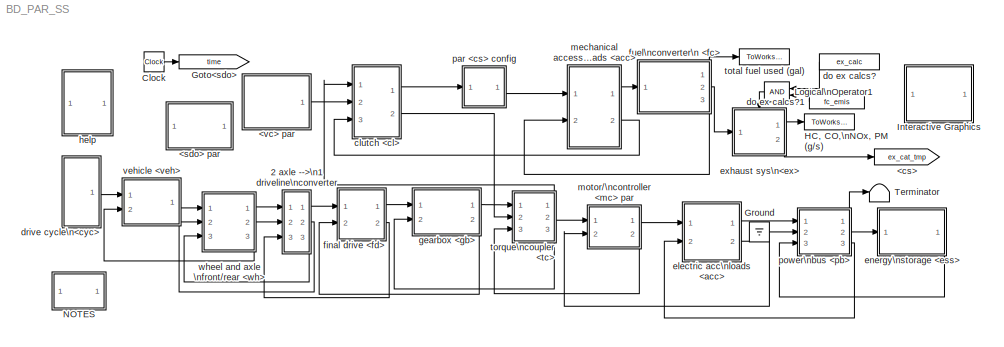
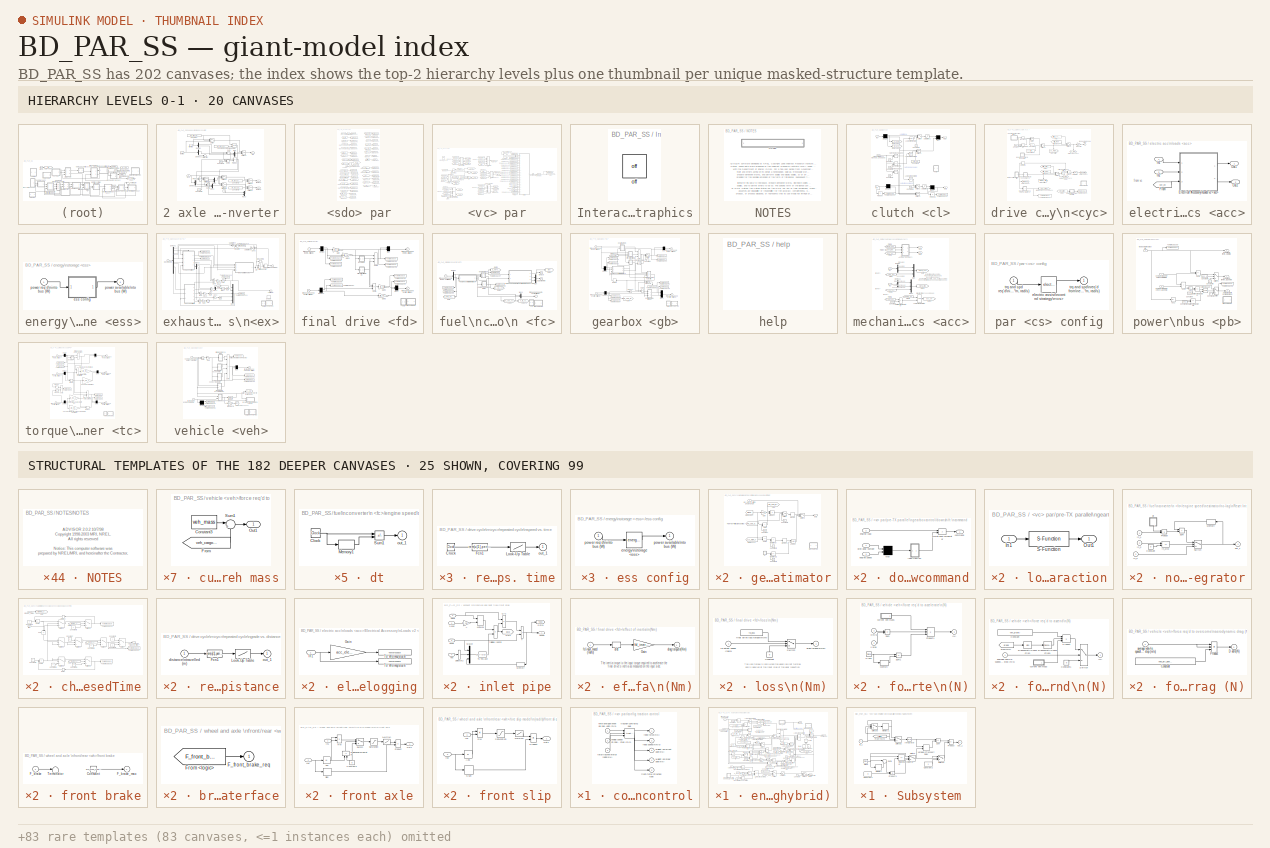
[diagram: thumbnail index - top-2 hierarchy levels (20 canvases) + 25 structural-template representatives of the remaining 182 canvases]
MODEL BD_PAR_SS
KIND model
BLOCK [SubSystem] 2 axle -->\n1 driveline\nconverter
  Ports = [3, 3]
  RequestExecContextInheritance = off
  SID = 1
  ShowPortLabels = none
BLOCK [Constant] 2 axle -->\n1 driveline\nconverter/Constant
  SID = 75
  Value = wh_front_active_bool
BLOCK [Constant] 2 axle -->\n1 driveline\nconverter/Constant1
  SID = 76
  Value = wh_rear_active_bool
BLOCK [Constant] 2 axle -->\n1 driveline\nconverter/Constant2
  SID = 77
  Value = wh_front_active_bool
BLOCK [Constant] 2 axle -->\n1 driveline\nconverter/Constant3
  SID = 78
  Value = wh_rear_active_bool
BLOCK [Constant] 2 axle -->\n1 driveline\nconverter/Constant4
  SID = 79
  Value = eps
BLOCK [Constant] 2 axle -->\n1 driveline\nconverter/Constant5
  SID = 80
  Value = 0
BLOCK [Demux] 2 axle -->\n1 driveline\nconverter/Demux
  Outputs = 2
  Ports = [1, 2]
  SID = 81
BLOCK [Demux] 2 axle -->\n1 driveline\nconverter/Demux1
  Outputs = 2
  Ports = [1, 2]
  SID = 82
BLOCK [Demux] 2 axle -->\n1 driveline\nconverter/Demux2
  Outputs = 2
  Ports = [1, 2]
  SID = 83
BLOCK [Ground] 2 axle -->\n1 driveline\nconverter/Ground
  SID = 84
BLOCK [Logic] 2 axle -->\n1 driveline\nconverter/Logical\nOperator
  Operator = NAND
  Ports = [2, 1]
  SID = 85
BLOCK [Mux] 2 axle -->\n1 driveline\nconverter/Mux
  DisplayOption = bar
  Inputs = 2
  Ports = [2, 1]
  SID = 86
BLOCK [Mux] 2 axle -->\n1 driveline\nconverter/Mux1
  DisplayOption = bar
  Inputs = 2
  Ports = [2, 1]
  SID = 87
BLOCK [Mux] 2 axle -->\n1 driveline\nconverter/Mux2
  DisplayOption = bar
  Inputs = 2
  Ports = [2, 1]
  SID = 88
BLOCK [Mux] 2 axle -->\n1 driveline\nconverter/Mux3
  DisplayOption = bar
  Inputs = 2
  Ports = [2, 1]
  SID = 89
BLOCK [Product] 2 axle -->\n1 driveline\nconverter/Product
  Inputs = */
  Ports = [2, 1]
  SID = 90
  SaturateOnIntegerOverflow = on
BLOCK [Product] 2 axle -->\n1 driveline\nconverter/Product1
  Ports = [2, 1]
  SID = 91
  SaturateOnIntegerOverflow = on
BLOCK [Sum] 2 axle -->\n1 driveline\nconverter/Sum
  IconShape = rectangular
  Ports = [2, 1]
  SID = 92
  SaturateOnIntegerOverflow = on
BLOCK [Sum] 2 axle -->\n1 driveline\nconverter/Sum1
  IconShape = rectangular
  Inputs = +-
  Ports = [2, 1]
  SID = 93
  SaturateOnIntegerOverflow = on
BLOCK [Sum] 2 axle -->\n1 driveline\nconverter/Sum2
  IconShape = rectangular
  Ports = [2, 1]
  SID = 94
  SaturateOnIntegerOverflow = on
BLOCK [Switch] 2 axle -->\n1 driveline\nconverter/Switch
  SID = 95
  Threshold = eps
BLOCK [Switch] 2 axle -->\n1 driveline\nconverter/Switch1
  SID = 96
  Threshold = eps
BLOCK [Switch] 2 axle -->\n1 driveline\nconverter/Switch2
  SID = 97
  Threshold = eps
BLOCK [Switch] 2 axle -->\n1 driveline\nconverter/Switch3
  SID = 98
  Threshold = eps
BLOCK [Switch] 2 axle -->\n1 driveline\nconverter/Switch4
  SID = 99
  Threshold = eps
BLOCK [Switch] 2 axle -->\n1 driveline\nconverter/Switch5
  SID = 100
  Threshold = eps
BLOCK [Switch] 2 axle -->\n1 driveline\nconverter/Switch6
  SID = 101
  Threshold = eps
BLOCK [Terminator] 2 axle -->\n1 driveline\nconverter/Terminator
  SID = 102
BLOCK [Inport] 2 axle -->\n1 driveline\nconverter/ach
  Port = 3
  SID = 74
BLOCK [Outport] 2 axle -->\n1 driveline\nconverter/front ach
  Port = 2
  SID = 104
BLOCK [Inport] 2 axle -->\n1 driveline\nconverter/front req
  SID = 72
BLOCK [Outport] 2 axle -->\n1 driveline\nconverter/rear ach
  Port = 3
  SID = 105
BLOCK [Inport] 2 axle -->\n1 driveline\nconverter/rear req
  Port = 2
  SID = 73
BLOCK [Outport] 2 axle -->\n1 driveline\nconverter/req
  SID = 103
BLOCK [Goto] <cs>
  GotoTag = ex_cat_tmp
  SID = 2
  TagVisibility = global
BLOCK [SubSystem] <sdo> par
  Ports = []
  RequestExecContextInheritance = off
  SID = 3
  ShowPortLabels = none
BLOCK [Constant] <sdo> par/Constant
  SID = 106
BLOCK [From] <sdo> par/From <vc>
  CloseFcn = tagdialog Close
  GotoTag = shifting
  SID = 107
  TagVisibility = global
BLOCK [From] <sdo> par/From <vc>1
  CloseFcn = tagdialog Close
  GotoTag = key_on
  SID = 108
  TagVisibility = global
BLOCK [From] <sdo> par/From <veh>
  CloseFcn = tagdialog Close
  GotoTag = mpha
  SID = 109
  TagVisibility = global
BLOCK [From] <sdo> par/From<cs>
  CloseFcn = tagdialog Close
  GotoTag = engine_on
  SID = 110
  TagVisibility = global
BLOCK [From] <sdo> par/From<cyc>
  CloseFcn = tagdialog Close
  GotoTag = grade
  SID = 111
  TagVisibility = global
BLOCK [From] <sdo> par/From<cyc>1
  CloseFcn = tagdialog Close
  GotoTag = elevation
  SID = 112
  TagVisibility = global
BLOCK [From] <sdo> par/From<cyc>2
  CloseFcn = tagdialog Close
  GotoTag = distance
  SID = 113
  TagVisibility = global
BLOCK [From] <sdo> par/From<ess>//limit power
  CloseFcn = tagdialog Close
  GotoTag = ess_pwr_limited
  SID = 114
  TagVisibility = global
BLOCK [From] <sdo> par/From<ess>//limit power1
  CloseFcn = tagdialog Close
  GotoTag = mc_voltage_limited
  SID = 115
  TagVisibility = global
BLOCK [From] <sdo> par/From<ess>//limit power2
  CloseFcn = tagdialog Close
  GotoTag = ess_soc_low_limited
  SID = 116
  TagVisibility = global
BLOCK [From] <sdo> par/From<ess>//limit power3
  CloseFcn = tagdialog Close
  GotoTag = ess_minV_limited
  SID = 117
  TagVisibility = global
BLOCK [From] <sdo> par/From<ess>//limit power4
  CloseFcn = tagdialog Close
  GotoTag = ess_maxV_limited
  SID = 118
  TagVisibility = global
BLOCK [From] <sdo> par/From<ess>//limit power5
  CloseFcn = tagdialog Close
  GotoTag = ess_soc_hi_limited
  SID = 119
  TagVisibility = global
BLOCK [From] <sdo> par/From<fc>
  CloseFcn = tagdialog Close
  GotoTag = fc_trq_out_a
  SID = 120
  TagVisibility = global
BLOCK [From] <sdo> par/From<fc>1
  CloseFcn = tagdialog Close
  GotoTag = fc_spd_out_a
  SID = 121
  TagVisibility = global
BLOCK [From] <sdo> par/From<main>
  CloseFcn = tagdialog Close
  GotoTag = time
  SID = 122
  TagVisibility = global
BLOCK [From] <sdo> par/From<mc>
  CloseFcn = tagdialog Close
  GotoTag = mc_spd_limited
  SID = 123
  TagVisibility = global
BLOCK [From] <sdo> par/From<mc>//enforce torque limit
  CloseFcn = tagdialog Close
  GotoTag = mc_trq_limited
  SID = 124
  TagVisibility = global
BLOCK [From] <sdo> par/From<mc>//motor controller logic
  CloseFcn = tagdialog Close
  GotoTag = mc_crrnt_limited
  SID = 125
  TagVisibility = global
BLOCK [From] <sdo> par/From<mc>1
  CloseFcn = tagdialog Close
  GotoTag = mc_trq_out_a
  SID = 126
  TagVisibility = global
BLOCK [From] <sdo> par/From<mc>2
  CloseFcn = tagdialog Close
  GotoTag = mc_spd_out_a
  SID = 127
  TagVisibility = global
BLOCK [From] <sdo> par/From<vc>
  CloseFcn = tagdialog Close
  GotoTag = gear_ratio
  SID = 128
  TagVisibility = global
BLOCK [From] <sdo> par/From<vc>//engine control
  CloseFcn = tagdialog Close
  GotoTag = fc_trq_limited
  SID = 129
  TagVisibility = global
BLOCK [From] <sdo> par/From<vc>//engine control2
  CloseFcn = tagdialog Close
  GotoTag = fc_spd_limited
  SID = 130
  TagVisibility = global
BLOCK [From] <sdo> par/From<vc>1
  CloseFcn = tagdialog Close
  GotoTag = SOC
  SID = 131
  TagVisibility = global
BLOCK [From] <sdo> par/From<vc>2
  CloseFcn = tagdialog Close
  GotoTag = clutch_state
  SID = 132
  TagVisibility = global
BLOCK [From] <sdo> par/From<vc>3
  CloseFcn = tagdialog Close
  GotoTag = cyc_mph_r
  SID = 133
  TagVisibility = global
BLOCK [From] <sdo> par/From<vc>4
  CloseFcn = tagdialog Close
  GotoTag = bus_voltage
  SID = 134
  TagVisibility = global
BLOCK [From] <sdo> par/From<vc>5
  CloseFcn = tagdialog Close
  GotoTag = clutch_state
  SID = 135
  TagVisibility = global
BLOCK [From] <sdo> par/From<vc>6
  CloseFcn = tagdialog Close
  GotoTag = gear_number
  SID = 136
  TagVisibility = global
BLOCK [From] <sdo> par/From<wh>
  CloseFcn = tagdialog Close
  GotoTag = slip_limited
  SID = 137
  TagVisibility = global
BLOCK [From] <sdo> par/From<wh>1
  CloseFcn = tagdialog Close
  GotoTag = brake_limited
  SID = 138
  TagVisibility = global
BLOCK [Goto] <sdo> par/Goto
  GotoTag = lim_clutch_dis
  SID = 2409
  TagVisibility = global
BLOCK [Logic] <sdo> par/Logical\nOperator
  Inputs = 1
  Operator = NOT
  Ports = [1, 1]
  SID = 139
BLOCK [Logic] <sdo> par/Logical\nOperator1
  Inputs = 1
  Operator = NOT
  Ports = [1, 1]
  SID = 140
BLOCK [RelationalOperator] <sdo> par/Relational\nOperator
  Operator = ==
  Ports = [2, 1]
  SID = 141
BLOCK [ToWorkspace] <sdo> par/To Workspace
  MaxDataPoints = inf
  Ports = [1]
  SID = 142
  VariableName = t
BLOCK [ToWorkspace] <sdo> par/To Workspace1
  MaxDataPoints = inf
  Ports = [1]
  SID = 143
  SampleTime = -1
  VariableName = mpha
BLOCK [ToWorkspace] <sdo> par/To Workspace2
  MaxDataPoints = inf
  Ports = [1]
  SID = 144
  SampleTime = -1
  VariableName = shifting
BLOCK [ToWorkspace] <sdo> par/To Workspace3
  MaxDataPoints = inf
  Ports = [1]
  SID = 145
  SampleTime = -1
  VariableName = gear_number
BLOCK [ToWorkspace] <sdo> par/To Workspace38
  MaxDataPoints = inf
  Ports = [1]
  SID = 146
  SampleTime = -1
  VariableName = lim_wh_traction
BLOCK [ToWorkspace] <sdo> par/To Workspace39
  MaxDataPoints = inf
  Ports = [1]
  SID = 147
  SampleTime = -1
  VariableName = gear_ratio
BLOCK [ToWorkspace] <sdo> par/To Workspace4
  MaxDataPoints = inf
  Ports = [1]
  SID = 148
  SampleTime = -1
  VariableName = fc_trq_out_a
BLOCK [ToWorkspace] <sdo> par/To Workspace40
  MaxDataPoints = inf
  Ports = [1]
  SID = 149
  SampleTime = -1
  VariableName = ess_soc_hist
BLOCK [ToWorkspace] <sdo> par/To Workspace41
  MaxDataPoints = inf
  Ports = [1]
  SID = 150
  SampleTime = -1
  VariableName = lim_wh_brake
BLOCK [ToWorkspace] <sdo> par/To Workspace42
  MaxDataPoints = inf
  Ports = [1]
  SID = 151
  SampleTime = -1
  VariableName = lim_key_off
BLOCK [ToWorkspace] <sdo> par/To Workspace43
  MaxDataPoints = inf
  Ports = [1]
  SID = 152
  SampleTime = -1
  VariableName = lim_ess_pwr
BLOCK [ToWorkspace] <sdo> par/To Workspace44
  MaxDataPoints = inf
  Ports = [1]
  SID = 153
  SampleTime = -1
  VariableName = cyc_mph_r
BLOCK [ToWorkspace] <sdo> par/To Workspace45
  MaxDataPoints = inf
  Ports = [1]
  SID = 154
  SampleTime = -1
  VariableName = lim_ess_soc_low
BLOCK [ToWorkspace] <sdo> par/To Workspace46
  MaxDataPoints = inf
  Ports = [1]
  SID = 155
  SampleTime = -1
  VariableName = lim_ess_soc_hi
BLOCK [ToWorkspace] <sdo> par/To Workspace47
  MaxDataPoints = inf
  Ports = [1]
  SID = 156
  SampleTime = -1
  VariableName = lim_mc_voltage
BLOCK [ToWorkspace] <sdo> par/To Workspace48
  MaxDataPoints = inf
  Ports = [1]
  SID = 157
  SampleTime = -1
  VariableName = lim_mc_crrnt
BLOCK [ToWorkspace] <sdo> par/To Workspace49
  MaxDataPoints = inf
  Ports = [1]
  SID = 158
  SampleTime = -1
  VariableName = lim_mc_trq
BLOCK [ToWorkspace] <sdo> par/To Workspace5
  MaxDataPoints = inf
  Ports = [1]
  SID = 159
  SampleTime = -1
  VariableName = fc_spd_out_a
BLOCK [ToWorkspace] <sdo> par/To Workspace50
  MaxDataPoints = inf
  Ports = [1]
  SID = 160
  SampleTime = -1
  VariableName = lim_mc_spd
BLOCK [ToWorkspace] <sdo> par/To Workspace51
  MaxDataPoints = inf
  Ports = [1]
  SID = 161
  SampleTime = -1
  VariableName = lim_fc_trq
BLOCK [ToWorkspace] <sdo> par/To Workspace52
  MaxDataPoints = inf
  Ports = [1]
  SID = 162
  SampleTime = -1
  VariableName = pb_voltage
BLOCK [ToWorkspace] <sdo> par/To Workspace53
  MaxDataPoints = inf
  Ports = [1]
  SID = 163
  SampleTime = -1
  VariableName = lim_ess_minV
BLOCK [ToWorkspace] <sdo> par/To Workspace54
  MaxDataPoints = inf
  Ports = [1]
  SID = 164
  SampleTime = -1
  VariableName = clutch_state
BLOCK [ToWorkspace] <sdo> par/To Workspace55
  MaxDataPoints = inf
  Ports = [1]
  SID = 165
  SampleTime = -1
  VariableName = lim_clutch_dis
BLOCK [ToWorkspace] <sdo> par/To Workspace56
  MaxDataPoints = inf
  Ports = [1]
  SID = 166
  SampleTime = -1
  VariableName = lim_engine_off
BLOCK [ToWorkspace] <sdo> par/To Workspace57
  MaxDataPoints = inf
  Ports = [1]
  SID = 167
  SampleTime = -1
  VariableName = lim_fc_spd
BLOCK [ToWorkspace] <sdo> par/To Workspace58
  MaxDataPoints = inf
  Ports = [1]
  SID = 168
  SampleTime = -1
  VariableName = lim_ess_maxV
BLOCK [ToWorkspace] <sdo> par/To Workspace59
  MaxDataPoints = inf
  Ports = [1]
  SID = 169
  SampleTime = -1
  VariableName = grade
BLOCK [ToWorkspace] <sdo> par/To Workspace6
  MaxDataPoints = inf
  Ports = [1]
  SID = 170
  SampleTime = -1
  VariableName = mc_trq_out_a
BLOCK [ToWorkspace] <sdo> par/To Workspace60
  MaxDataPoints = inf
  Ports = [1]
  SID = 171
  SampleTime = -1
  VariableName = elevation
BLOCK [ToWorkspace] <sdo> par/To Workspace61
  MaxDataPoints = inf
  Ports = [1]
  SID = 172
  SampleTime = -1
  VariableName = distance
BLOCK [ToWorkspace] <sdo> par/To Workspace7
  MaxDataPoints = inf
  Ports = [1]
  SID = 173
  SampleTime = -1
  VariableName = mc_spd_out_a
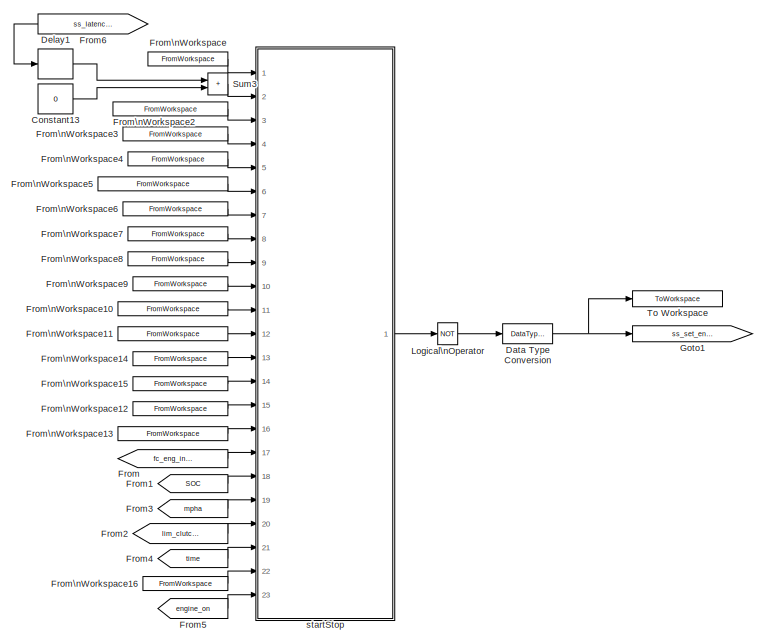
[diagram: <vc> par - part 1/2, right side, full height]
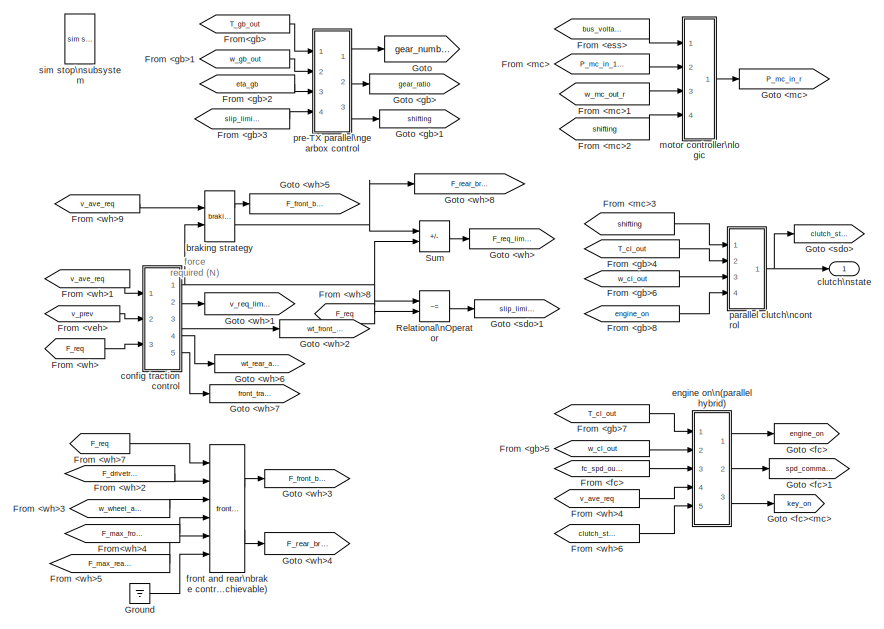
[diagram: <vc> par - part 2/2, left side, full height]
BLOCK [SubSystem] <vc> par
  Ports = [0, 1]
  RequestExecContextInheritance = off
  SID = 1779
  VariantControl = <vc> par
BLOCK [Constant] <vc> par/Constant13
  OutDataTypeStr = fixdt(0,1,1,0)
  SID = 2502
  Value = 0
BLOCK [DataTypeConversion] <vc> par/Data Type Conversion
  OutDataTypeStr = double
  RndMeth = Floor
  SID = 2410
  SaturateOnIntegerOverflow = off
BLOCK [Delay] <vc> par/Delay1
  DelayLength = 1
  InitialCondition = 0
  InputPortMap = u0
  Ports = [1, 1]
  SID = 2495
BLOCK [From] <vc> par/From
  GotoTag = fc_eng_int_temp
  SID = 2216
  TagVisibility = global
BLOCK [From] <vc> par/From <ess>
  CloseFcn = tagdialog Close
  GotoTag = bus_voltage
  NameLocation = top
  SID = 1780
  TagVisibility = global
BLOCK [From] <vc> par/From <fc>
  CloseFcn = tagdialog Close
  GotoTag = fc_spd_out_r
  SID = 1781
  TagVisibility = global
BLOCK [From] <vc> par/From <gb>1
  CloseFcn = tagdialog Close
  GotoTag = w_gb_out
  NameLocation = top
  SID = 1782
  TagVisibility = global
BLOCK [From] <vc> par/From <gb>2
  CloseFcn = tagdialog Close
  GotoTag = eta_gb
  SID = 1783
  TagVisibility = global
BLOCK [From] <vc> par/From <gb>3
  CloseFcn = tagdialog Close
  GotoTag = slip_limited
  SID = 1784
  TagVisibility = global
BLOCK [From] <vc> par/From <gb>4
  CloseFcn = tagdialog Close
  GotoTag = T_cl_out
  SID = 1785
  TagVisibility = global
BLOCK [From] <vc> par/From <gb>5
  CloseFcn = tagdialog Close
  GotoTag = w_cl_out
  NameLocation = top
  SID = 1786
  TagVisibility = global
BLOCK [From] <vc> par/From <gb>6
  CloseFcn = tagdialog Close
  GotoTag = w_cl_out
  SID = 1787
  TagVisibility = global
BLOCK [From] <vc> par/From <gb>7
  CloseFcn = tagdialog Close
  GotoTag = T_cl_out
  NameLocation = top
  SID = 1788
  TagVisibility = global
BLOCK [From] <vc> par/From <gb>8
  CloseFcn = tagdialog Close
  GotoTag = engine_on
  SID = 1789
  TagVisibility = global
BLOCK [From] <vc> par/From <mc>
  CloseFcn = tagdialog Close
  GotoTag = P_mc_in_1lim
  NameLocation = top
  SID = 1790
  TagVisibility = global
BLOCK [From] <vc> par/From <mc>1
  CloseFcn = tagdialog Close
  GotoTag = w_mc_out_r
  SID = 1791
  TagVisibility = global
BLOCK [From] <vc> par/From <mc>2
  CloseFcn = tagdialog Close
  GotoTag = shifting
  SID = 1792
  TagVisibility = global
BLOCK [From] <vc> par/From <mc>3
  CloseFcn = tagdialog Close
  GotoTag = shifting
  NameLocation = top
  SID = 1793
  TagVisibility = global
BLOCK [From] <vc> par/From <veh>
  CloseFcn = tagdialog Close
  GotoTag = v_prev
  SID = 1794
  TagVisibility = global
BLOCK [From] <vc> par/From <wh>
  CloseFcn = tagdialog Close
  GotoTag = F_req
  SID = 1795
  TagVisibility = global
BLOCK [From] <vc> par/From <wh>1
  CloseFcn = tagdialog Close
  GotoTag = v_ave_req
  NameLocation = top
  SID = 1796
  TagVisibility = global
BLOCK [From] <vc> par/From <wh>2
  CloseFcn = tagdialog Close
  GotoTag = F_drivetrain_ach
  NameLocation = top
  SID = 1797
  TagVisibility = global
BLOCK [From] <vc> par/From <wh>3
  CloseFcn = tagdialog Close
  GotoTag = w_wheel_ach
  NameLocation = top
  SID = 1798
  TagVisibility = global
BLOCK [From] <vc> par/From <wh>4
  CloseFcn = tagdialog Close
  GotoTag = v_ave_req
  SID = 1799
  TagVisibility = global
BLOCK [From] <vc> par/From <wh>5
  CloseFcn = tagdialog Close
  GotoTag = F_max_rear_brake
  SID = 1800
  TagVisibility = global
BLOCK [From] <vc> par/From <wh>6
  CloseFcn = tagdialog Close
  GotoTag = clutch_state
  SID = 1801
  TagVisibility = global
BLOCK [From] <vc> par/From <wh>7
  CloseFcn = tagdialog Close
  GotoTag = F_req
  NameLocation = top
  SID = 1802
  TagVisibility = global
BLOCK [From] <vc> par/From <wh>8
  CloseFcn = tagdialog Close
  GotoTag = F_req
  NameLocation = top
  SID = 1803
  TagVisibility = global
BLOCK [From] <vc> par/From <wh>9
  CloseFcn = tagdialog Close
  GotoTag = v_ave_req
  NameLocation = top
  SID = 1804
  TagVisibility = global
BLOCK [From] <vc> par/From1
  GotoTag = SOC
  SID = 2234
  TagVisibility = global
BLOCK [From] <vc> par/From2
  GotoTag = lim_clutch_dis
  SID = 2235
  TagVisibility = global
BLOCK [From] <vc> par/From3
  GotoTag = mpha
  SID = 2236
  TagVisibility = global
BLOCK [From] <vc> par/From4
  GotoTag = time
  SID = 2237
  TagVisibility = global
BLOCK [From] <vc> par/From5
  GotoTag = engine_on
  SID = 2238
  TagVisibility = global
BLOCK [From] <vc> par/From6
  GotoTag = ss_latency_status
  SID = 2497
  TagVisibility = global
BLOCK [From] <vc> par/From<gb>
  CloseFcn = tagdialog Close
  GotoTag = T_gb_out
  NameLocation = top
  SID = 1805
  TagVisibility = global
BLOCK [From] <vc> par/From<wh>4
  CloseFcn = tagdialog Close
  GotoTag = F_max_front_brake
  SID = 1806
  TagVisibility = global
BLOCK [FromWorkspace] <vc> par/From\nWorkspace
  SID = 2217
  VariableName = ss_button_pressed
BLOCK [FromWorkspace] <vc> par/From\nWorkspace10
  SID = 2219
  VariableName = ss_seatbelt_sensor_status
BLOCK [FromWorkspace] <vc> par/From\nWorkspace11
  SID = 2220
  VariableName = ss_air_cond_sensor_status
BLOCK [FromWorkspace] <vc> par/From\nWorkspace12
  SID = 2221
  VariableName = ss_door_sensor_value
BLOCK [FromWorkspace] <vc> par/From\nWorkspace13
  SID = 2222
  VariableName = ss_seatbelt_sensor_value
BLOCK [FromWorkspace] <vc> par/From\nWorkspace14
  SID = 2223
  VariableName = ss_hood_sensor_value
BLOCK [FromWorkspace] <vc> par/From\nWorkspace15
  SID = 2224
  VariableName = ss_trunk_sensor_value
BLOCK [FromWorkspace] <vc> par/From\nWorkspace16
  SID = 2225
  VariableName = ss_air_cond_speed
BLOCK [FromWorkspace] <vc> par/From\nWorkspace2
  SID = 2226
  VariableName = ss_start_stop_sensor_status
BLOCK [FromWorkspace] <vc> par/From\nWorkspace3
  SID = 2227
  VariableName = ss_speed_sensor_status
BLOCK [FromWorkspace] <vc> par/From\nWorkspace4
  SID = 2228
  VariableName = ss_brake_sensor_status
BLOCK [FromWorkspace] <vc> par/From\nWorkspace5
  SID = 2229
  VariableName = ss_engine_temp_sensor_status
BLOCK [FromWorkspace] <vc> par/From\nWorkspace6
  SID = 2230
  VariableName = ss_battery_sensor_status
BLOCK [FromWorkspace] <vc> par/From\nWorkspace7
  SID = 2231
  VariableName = ss_hood_sensor_status
BLOCK [FromWorkspace] <vc> par/From\nWorkspace8
  SID = 2232
  VariableName = ss_trunk_sensor_status
BLOCK [FromWorkspace] <vc> par/From\nWorkspace9
  SID = 2233
  VariableName = ss_door_sensor_status
BLOCK [Goto] <vc> par/Goto
  GotoTag = gear_number
  NameLocation = top
  SID = 1807
  TagVisibility = global
BLOCK [Goto] <vc> par/Goto <fc>
  GotoTag = engine_on
  NameLocation = top
  SID = 1808
  TagVisibility = global
BLOCK [Goto] <vc> par/Goto <fc>1
  GotoTag = spd_command
  SID = 1809
  TagVisibility = global
BLOCK [Goto] <vc> par/Goto <fc><mc>
  GotoTag = key_on
  SID = 1810
  TagVisibility = global
BLOCK [Goto] <vc> par/Goto <gb>
  GotoTag = gear_ratio
  SID = 1811
  TagVisibility = global
BLOCK [Goto] <vc> par/Goto <gb>1
  GotoTag = shifting
  SID = 1812
  TagVisibility = global
BLOCK [Goto] <vc> par/Goto <mc>
  GotoTag = P_mc_in_r
  SID = 1813
  TagVisibility = global
BLOCK [Goto] <vc> par/Goto <sdo>
  GotoTag = clutch_state
  NameLocation = top
  SID = 1814
  TagVisibility = global
BLOCK [Goto] <vc> par/Goto <sdo>1
  GotoTag = slip_limited
  SID = 1815
  TagVisibility = global
BLOCK [Goto] <vc> par/Goto <wh>
  GotoTag = F_req_limited
  NameLocation = top
  SID = 1816
  TagVisibility = global
BLOCK [Goto] <vc> par/Goto <wh>1
  GotoTag = v_req_limited
  SID = 1817
  TagVisibility = global
BLOCK [Goto] <vc> par/Goto <wh>2
  GotoTag = wt_front_axle
  SID = 1818
  TagVisibility = global
BLOCK [Goto] <vc> par/Goto <wh>3
  GotoTag = F_front_brake
  SID = 1819
  TagVisibility = global
BLOCK [Goto] <vc> par/Goto <wh>4
  GotoTag = F_rear_brake
  SID = 1820
  TagVisibility = global
BLOCK [Goto] <vc> par/Goto <wh>5
  GotoTag = F_front_brake_req
  SID = 1821
  TagVisibility = global
BLOCK [Goto] <vc> par/Goto <wh>6
  GotoTag = wt_rear_axle
  SID = 1822
  TagVisibility = global
BLOCK [Goto] <vc> par/Goto <wh>7
  GotoTag = front_traction_ratio
  SID = 1823
  TagVisibility = global
BLOCK [Goto] <vc> par/Goto <wh>8
  GotoTag = F_rear_brake_req
  SID = 1824
  TagVisibility = global
BLOCK [Goto] <vc> par/Goto1
  GotoTag = ss_set_engine_status
  SID = 2239
  TagVisibility = global
BLOCK [Ground] <vc> par/Ground
  SID = 1825
BLOCK [Logic] <vc> par/Logical\nOperator
  AllPortsSameDT = off
  Operator = NOT
  OutDataTypeStr = fixdt(0,1,1,0)
  Ports = [1, 1]
  SID = 2240
BLOCK [RelationalOperator] <vc> par/Relational\nOperator
  Operator = ~=
  Ports = [2, 1]
  SID = 1826
BLOCK [Sum] <vc> par/Sum
  IconShape = rectangular
  InputSameDT = on
  Inputs = -+
  OutDataTypeStr = Inherit: Same as first input
  Ports = [2, 1]
  SID = 1827
  SaturateOnIntegerOverflow = on
BLOCK [Sum] <vc> par/Sum3
  IconShape = rectangular
  OutDataTypeStr = fixdt(0,1,1,0)
  Ports = [2, 1]
  SID = 2503
BLOCK [ToWorkspace] <vc> par/To Workspace
  MaxDataPoints = inf
  Ports = [1]
  SID = 2241
  SampleTime = 1
  VariableName = ss_set_engine_status
BLOCK [Reference] <vc> par/braking strategy  REF=lib_controls/SubSystem/braking strategy
  AllowZeroVariantControls = off
  AutoFrameSizeCalculation = off
  Latency = 0
  NameLocation = top
  Ports = [2, 2]
  PropagateVariantConditions = off
  RTWMemSecDataConstants = Inherit from model
  RTWMemSecDataInternal = Inherit from model
  RTWMemSecDataParameters = Inherit from model
  RTWMemSecFuncExecute = Inherit from model
  RTWMemSecFuncInitTerm = Inherit from model
  SID = 1828
  ShowPortLabels = none
  SourceBlock = lib_controls/SubSystem/braking strategy
  SourceType = SubSystem
  SystemSampleTime = -1
  VariantActivationTime = update diagram
BLOCK [Outport] <vc> par/clutch\nstate
  SID = 2214
BLOCK [SubSystem] <vc> par/config traction control
  AttributesFormatString = %<BlockChoice>
  BlockChoice = traction control 2 axle
  MemberBlocks = traction control 2 axle,traction control J2452 2 axle
  Ports = [3, 5]
  RequestExecContextInheritance = off
  SID = 1829
  ShowPortLabels = none
  TemplateBlock = lib_controls/SubSystem/config traction control
BLOCK [Outport] <vc> par/config traction control/front//total \ntraction ratio
  Port = 5
  SID = 1829::714
BLOCK [Outport] <vc> par/config traction control/req'd force\n(N)
  SID = 1829::710
BLOCK [Outport] <vc> par/config traction control/req'd speed\n(m//s)
  Port = 2
  SID = 1829::711
BLOCK [Inport] <vc> par/config traction control/time-average\nvehicle speed\n req'd (m//s)
  SID = 1829::706
BLOCK [Inport] <vc> par/config traction control/total tractive\nforce req'd\n(N)
  Port = 3
  SID = 1829::708
BLOCK [Reference] <vc> par/config traction control/traction control\n2 axle  REF=lib_controls/SubSystem/traction control 2 axle
  AllowZeroVariantControls = off
  AutoFrameSizeCalculation = off
  Latency = 0
  Ports = [3, 5]
  PropagateVariantConditions = off
  RTWMemSecDataConstants = Inherit from model
  RTWMemSecDataInternal = Inherit from model
  RTWMemSecDataParameters = Inherit from model
  RTWMemSecFuncExecute = Inherit from model
  RTWMemSecFuncInitTerm = Inherit from model
  SID = 1829::709
  ShowPortLabels = none
  SourceBlock = lib_controls/SubSystem/traction control 2 axle
  SourceType = SubSystem
  SystemSampleTime = -1
  VariantActivationTime = update diagram
BLOCK [Inport] <vc> par/config traction control/vehicle speed at\nbeginning of time\n step (m//s)
  Port = 2
  SID = 1829::707
BLOCK [Outport] <vc> par/config traction control/weight on\nfront axle\n(N)
  Port = 3
  SID = 1829::712
BLOCK [Outport] <vc> par/config traction control/weight on\nrear axle\n(N)
  Port = 4
  SID = 1829::713
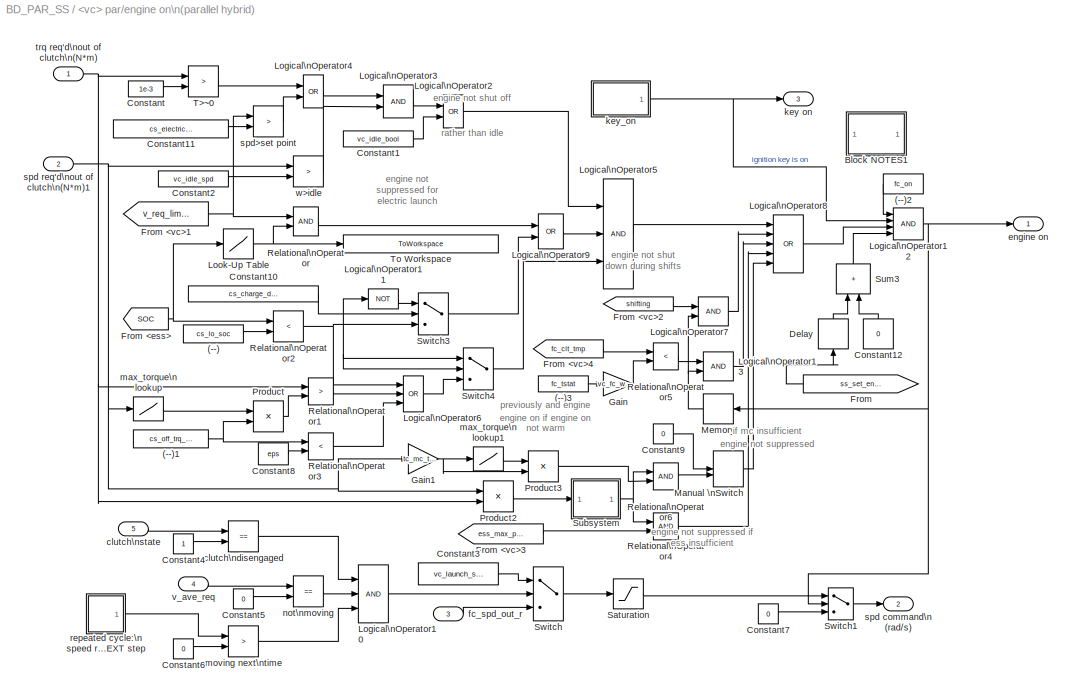
BLOCK [SubSystem] <vc> par/engine on\n(parallel hybrid)
  Ports = [5, 3]
  RequestExecContextInheritance = off
  SID = 1830
  ShowPortLabels = none
BLOCK [Constant] <vc> par/engine on\n(parallel hybrid)/(--)
  SID = 1836
  Value = cs_lo_soc
BLOCK [Constant] <vc> par/engine on\n(parallel hybrid)/(--)1
  SID = 1837
  Value = cs_off_trq_frac
BLOCK [Constant] <vc> par/engine on\n(parallel hybrid)/(--)2
  SID = 1838
  Value = fc_on
BLOCK [Constant] <vc> par/engine on\n(parallel hybrid)/(--)3
  SID = 1839
  Value = fc_tstat
BLOCK [SubSystem] <vc> par/engine on\n(parallel hybrid)/Block NOTES1
  Ports = []
  RequestExecContextInheritance = off
  SID = 1840
BLOCK [Constant] <vc> par/engine on\n(parallel hybrid)/Constant
  SID = 1842
  Value = 1e-3
BLOCK [Constant] <vc> par/engine on\n(parallel hybrid)/Constant1
  SID = 1843
  Value = vc_idle_bool
BLOCK [Constant] <vc> par/engine on\n(parallel hybrid)/Constant10
  SID = 1844
  Value = cs_charge_deplete_bool
BLOCK [Constant] <vc> par/engine on\n(parallel hybrid)/Constant11
  SID = 1845
  Value = cs_electric_decel_spd
BLOCK [Constant] <vc> par/engine on\n(parallel hybrid)/Constant12
  NameLocation = left
  SID = 2508
  Value = 0
BLOCK [Constant] <vc> par/engine on\n(parallel hybrid)/Constant2
  SID = 1846
  Value = vc_idle_spd
BLOCK [Constant] <vc> par/engine on\n(parallel hybrid)/Constant3
  SID = 1847
  Value = vc_launch_spd
BLOCK [Constant] <vc> par/engine on\n(parallel hybrid)/Constant4
  SID = 1848
BLOCK [Constant] <vc> par/engine on\n(parallel hybrid)/Constant5
  SID = 1849
  Value = 0
BLOCK [Constant] <vc> par/engine on\n(parallel hybrid)/Constant6
  SID = 1850
  Value = 0
BLOCK [Constant] <vc> par/engine on\n(parallel hybrid)/Constant7
  SID = 1851
  Value = 0
BLOCK [Constant] <vc> par/engine on\n(parallel hybrid)/Constant8
  SID = 1852
  Value = eps
BLOCK [Constant] <vc> par/engine on\n(parallel hybrid)/Constant9
  SID = 1853
  Value = 0
BLOCK [Delay] <vc> par/engine on\n(parallel hybrid)/Delay
  DelayLength = 1
  InitialCondition = 1
  InputPortMap = u0
  NameLocation = left
  Ports = [1, 1]
  SID = 2506
BLOCK [From] <vc> par/engine on\n(parallel hybrid)/From
  GotoTag = ss_set_engine_status
  SID = 2408
  TagVisibility = global
BLOCK [From] <vc> par/engine on\n(parallel hybrid)/From <ess>
  CloseFcn = tagdialog Close
  GotoTag = SOC
  NameLocation = top
  SID = 1854
  TagVisibility = global
BLOCK [From] <vc> par/engine on\n(parallel hybrid)/From <vc>1
  CloseFcn = tagdialog Close
  GotoTag = v_req_limited
  SID = 1855
  TagVisibility = global
BLOCK [From] <vc> par/engine on\n(parallel hybrid)/From <vc>2
  CloseFcn = tagdialog Close
  GotoTag = shifting
  SID = 1856
  TagVisibility = global
BLOCK [From] <vc> par/engine on\n(parallel hybrid)/From <vc>3
  CloseFcn = tagdialog Close
  GotoTag = ess_max_pwr
  SID = 1857
  TagVisibility = global
BLOCK [From] <vc> par/engine on\n(parallel hybrid)/From <vc>4
  CloseFcn = tagdialog Close
  GotoTag = fc_clt_tmp
  SID = 1858
  TagVisibility = global
BLOCK [Gain] <vc> par/engine on\n(parallel hybrid)/Gain
  Gain = vc_fc_warm_tmp_frac
  OutDataTypeStr = Inherit: Same as input
  ParamDataTypeStr = Inherit: Same as input
  SID = 1859
  SaturateOnIntegerOverflow = on
BLOCK [Gain] <vc> par/engine on\n(parallel hybrid)/Gain1
  Gain = tc_mc_to_fc_ratio
  OutDataTypeStr = Inherit: Same as input
  ParamDataTypeStr = Inherit: Same as input
  SID = 1860
  SaturateOnIntegerOverflow = on
BLOCK [Logic] <vc> par/engine on\n(parallel hybrid)/Logical\nOperator10
  Inputs = 3
  Ports = [3, 1]
  SID = 1861
BLOCK [Logic] <vc> par/engine on\n(parallel hybrid)/Logical\nOperator11
  Inputs = 1
  Operator = NOT
  Ports = [1, 1]
  SID = 1862
BLOCK [Logic] <vc> par/engine on\n(parallel hybrid)/Logical\nOperator12
  Inputs = 4
  Ports = [4, 1]
  SID = 1863
BLOCK [Logic] <vc> par/engine on\n(parallel hybrid)/Logical\nOperator13
  Ports = [2, 1]
  SID = 1864
BLOCK [Logic] <vc> par/engine on\n(parallel hybrid)/Logical\nOperator2
  Operator = OR
  Ports = [2, 1]
  SID = 1865
BLOCK [Logic] <vc> par/engine on\n(parallel hybrid)/Logical\nOperator3
  Ports = [2, 1]
  SID = 1866
BLOCK [Logic] <vc> par/engine on\n(parallel hybrid)/Logical\nOperator4
  Operator = OR
  Ports = [2, 1]
  SID = 1867
BLOCK [Logic] <vc> par/engine on\n(parallel hybrid)/Logical\nOperator5
  Inputs = 3
  Ports = [3, 1]
  SID = 1868
BLOCK [Logic] <vc> par/engine on\n(parallel hybrid)/Logical\nOperator6
  Inputs = 3
  Operator = OR
  Ports = [3, 1]
  SID = 1869
BLOCK [Logic] <vc> par/engine on\n(parallel hybrid)/Logical\nOperator7
  Ports = [2, 1]
  SID = 1870
BLOCK [Logic] <vc> par/engine on\n(parallel hybrid)/Logical\nOperator8
  Inputs = 5
  Operator = OR
  Ports = [5, 1]
  SID = 1871
BLOCK [Logic] <vc> par/engine on\n(parallel hybrid)/Logical\nOperator9
  Operator = OR
  Ports = [2, 1]
  SID = 1872
BLOCK [Lookup] <vc> par/engine on\n(parallel hybrid)/Look-Up Table
  InputValues = [cs_lo_soc cs_hi_soc cs_hi_soc+eps]
  SID = 1873
  Table = [cs_electric_launch_spd_lo cs_electric_launch_spd_hi cs_electric_launch_spd_hi]
BLOCK [ManualSwitch] <vc> par/engine on\n(parallel hybrid)/Manual \nSwitch
  SID = 1874
BLOCK [Memory] <vc> par/engine on\n(parallel hybrid)/Memory
  InitialCondition = cyc_mph(1,2)>0
  SID = 1875
BLOCK [Product] <vc> par/engine on\n(parallel hybrid)/Product
  InputSameDT = on
  OutDataTypeStr = Inherit: Same as first input
  Ports = [2, 1]
  RndMeth = Zero
  SID = 1876
  SaturateOnIntegerOverflow = on
BLOCK [Product] <vc> par/engine on\n(parallel hybrid)/Product2
  InputSameDT = on
  OutDataTypeStr = Inherit: Same as first input
  Ports = [2, 1]
  RndMeth = Zero
  SID = 1877
  SaturateOnIntegerOverflow = on
BLOCK [Product] <vc> par/engine on\n(parallel hybrid)/Product3
  InputSameDT = on
  OutDataTypeStr = Inherit: Same as first input
  Ports = [2, 1]
  RndMeth = Zero
  SID = 1878
  SaturateOnIntegerOverflow = on
BLOCK [RelationalOperator] <vc> par/engine on\n(parallel hybrid)/Relational\nOperator
  Ports = [2, 1]
  SID = 1879
BLOCK [RelationalOperator] <vc> par/engine on\n(parallel hybrid)/Relational\nOperator1
  Operator = >
  Ports = [2, 1]
  SID = 1880
BLOCK [RelationalOperator] <vc> par/engine on\n(parallel hybrid)/Relational\nOperator2
  Operator = <
  Ports = [2, 1]
  SID = 1881
BLOCK [RelationalOperator] <vc> par/engine on\n(parallel hybrid)/Relational\nOperator3
  Operator = <
  Ports = [2, 1]
  SID = 1882
BLOCK [RelationalOperator] <vc> par/engine on\n(parallel hybrid)/Relational\nOperator4
  Ports = [2, 1]
  SID = 1883
BLOCK [RelationalOperator] <vc> par/engine on\n(parallel hybrid)/Relational\nOperator5
  Operator = <
  Ports = [2, 1]
  SID = 1884
BLOCK [RelationalOperator] <vc> par/engine on\n(parallel hybrid)/Relational\nOperator6
  Ports = [2, 1]
  SID = 1885
BLOCK [Saturate] <vc> par/engine on\n(parallel hybrid)/Saturation
  LowerLimit = vc_idle_spd*vc_idle_bool
  SID = 1886
  UpperLimit = max(fc_map_spd)*fc_spd_scale
BLOCK [SubSystem] <vc> par/engine on\n(parallel hybrid)/Subsystem
  Ports = [1, 1]
  RequestExecContextInheritance = off
  SID = 1887
  ShowPortLabels = none
BLOCK [Clock] <vc> par/engine on\n(parallel hybrid)/Subsystem/Clock
  SID = 1889
BLOCK [Constant] <vc> par/engine on\n(parallel hybrid)/Subsystem/Constant1
  SID = 1890
  Value = n
BLOCK [Constant] <vc> par/engine on\n(parallel hybrid)/Subsystem/Constant2
  SID = 1891
BLOCK [From] <vc> par/engine on\n(parallel hybrid)/Subsystem/From <vc>2
  CloseFcn = tagdialog Close
  GotoTag = shifting
  SID = 1892
  TagVisibility = global
BLOCK [Integrator] <vc> par/engine on\n(parallel hybrid)/Subsystem/Integrator
  Ports = [1, 1]
  SID = 1893
BLOCK [Memory] <vc> par/engine on\n(parallel hybrid)/Subsystem/Memory
  InitialCondition = -0.1
  SID = 1894
BLOCK [Memory] <vc> par/engine on\n(parallel hybrid)/Subsystem/Memory1
  SID = 1895
BLOCK [Product] <vc> par/engine on\n(parallel hybrid)/Subsystem/Product
  InputSameDT = on
  Inputs = */
  OutDataTypeStr = Inherit: Same as first input
  Ports = [2, 1]
  RndMeth = Zero
  SID = 1896
  SaturateOnIntegerOverflow = on
BLOCK [Product] <vc> par/engine on\n(parallel hybrid)/Subsystem/Product1
  InputSameDT = on
  OutDataTypeStr = Inherit: Same as first input
  Ports = [2, 1]
  RndMeth = Zero
  SID = 1897
  SaturateOnIntegerOverflow = on
BLOCK [RelationalOperator] <vc> par/engine on\n(parallel hybrid)/Subsystem/Relational\nOperator
  Operator = <=
  Ports = [2, 1]
  SID = 1898
BLOCK [Sum] <vc> par/engine on\n(parallel hybrid)/Subsystem/Sum
  IconShape = rectangular
  InputSameDT = on
  Inputs = +-
  OutDataTypeStr = Inherit: Same as first input
  Ports = [2, 1]
  SID = 1899
  SaturateOnIntegerOverflow = on
BLOCK [Sum] <vc> par/engine on\n(parallel hybrid)/Subsystem/Sum1
  InputSameDT = on
  Inputs = |+-
  OutDataTypeStr = Inherit: Same as first input
  Ports = [2, 1]
  SID = 1900
  SaturateOnIntegerOverflow = on
BLOCK [Switch] <vc> par/engine on\n(parallel hybrid)/Subsystem/Switch
  SID = 1901
  Threshold = eps
BLOCK [Switch] <vc> par/engine on\n(parallel hybrid)/Subsystem/Switch1
  SID = 1902
  Threshold = eps
BLOCK [Switch] <vc> par/engine on\n(parallel hybrid)/Subsystem/Switch2
  SID = 1903
  Threshold = eps
BLOCK [Switch] <vc> par/engine on\n(parallel hybrid)/Subsystem/Switch3
  SID = 1904
  Threshold = eps
BLOCK [VariableTransportDelay] <vc> par/engine on\n(parallel hybrid)/Subsystem/Variable\nTransport Delay
  MaximumDelay = n
  Ports = [2, 1]
  SID = 1905
  ZeroDelay = on
BLOCK [Inport] <vc> par/engine on\n(parallel hybrid)/Subsystem/in_1
  SID = 1888
BLOCK [Outport] <vc> par/engine on\n(parallel hybrid)/Subsystem/out_1
  InitialOutput = 0
  SID = 1906
BLOCK [Sum] <vc> par/engine on\n(parallel hybrid)/Sum3
  IconShape = rectangular
  Inputs = +|+
  NameLocation = left
  Ports = [2, 1]
  SID = 2507
BLOCK [Switch] <vc> par/engine on\n(parallel hybrid)/Switch
  SID = 1907
  Threshold = eps
BLOCK [Switch] <vc> par/engine on\n(parallel hybrid)/Switch1
  SID = 1908
  Threshold = eps
BLOCK [Switch] <vc> par/engine on\n(parallel hybrid)/Switch3
  SID = 1909
  Threshold = eps
BLOCK [Switch] <vc> par/engine on\n(parallel hybrid)/Switch4
  SID = 1910
  Threshold = eps
BLOCK [RelationalOperator] <vc> par/engine on\n(parallel hybrid)/T>~0
  Operator = >
  Ports = [2, 1]
  SID = 1911
BLOCK [ToWorkspace] <vc> par/engine on\n(parallel hybrid)/To Workspace
  MaxDataPoints = inf
  Ports = [1]
  SID = 1912
  SampleTime = -1
  VariableName = cs_electric_launch_spd_probe
BLOCK [RelationalOperator] <vc> par/engine on\n(parallel hybrid)/clutch\ndisengaged
  Operator = ==
  Ports = [2, 1]
  SID = 1913
BLOCK [Inport] <vc> par/engine on\n(parallel hybrid)/clutch\nstate
  Port = 5
  SID = 1835
BLOCK [Outport] <vc> par/engine on\n(parallel hybrid)/engine on
  SID = 1933
BLOCK [Inport] <vc> par/engine on\n(parallel hybrid)/fc_spd_out_r
  Port = 3
  SID = 1833
BLOCK [Outport] <vc> par/engine on\n(parallel hybrid)/key on
  Port = 3
  SID = 1935
BLOCK [SubSystem] <vc> par/engine on\n(parallel hybrid)/key_on
  NameLocation = top
  Ports = [0, 1]
  RequestExecContextInheritance = off
  SID = 1914
  ShowPortLabels = none
BLOCK [Clock] <vc> par/engine on\n(parallel hybrid)/key_on/Clock
  SID = 1915
BLOCK [Fcn] <vc> par/engine on\n(parallel hybrid)/key_on/Fcn1
  Expr = rem(u[1],period)
  SID = 1916
BLOCK [Lookup] <vc> par/engine on\n(parallel hybrid)/key_on/Look-Up Table
  InputValues = t
  SID = 1917
  Table = y
BLOCK [Outport] <vc> par/engine on\n(parallel hybrid)/key_on/out_1
  InitialOutput = 0
  SID = 1918
BLOCK [Lookup] <vc> par/engine on\n(parallel hybrid)/max_torque\n lookup
  InputValues = fc_map_spd*fc_spd_scale
  NameLocation = top
  SID = 1919
  Table = fc_max_trq*fc_trq_scale
BLOCK [Lookup] <vc> par/engine on\n(parallel hybrid)/max_torque\n lookup1
  InputValues = mc_map_spd*mc_spd_scale
  NameLocation = top
  SID = 1920
  Table = mc_max_trq*mc_trq_scale*mc_overtrq_factor
BLOCK [RelationalOperator] <vc> par/engine on\n(parallel hybrid)/moving next\ntime
  Operator = >
  Ports = [2, 1]
  SID = 1921
BLOCK [RelationalOperator] <vc> par/engine on\n(parallel hybrid)/not\nmoving
  Operator = ==
  Ports = [2, 1]
  SID = 1922
BLOCK [SubSystem] <vc> par/engine on\n(parallel hybrid)/repeated cycle:\n speed required at\nend of NEXT step
  Ports = [0, 1]
  RequestExecContextInheritance = off
  SID = 1923
  ShowPortLabels = none
BLOCK [Clock] <vc> par/engine on\n(parallel hybrid)/repeated cycle:\n speed required at\nend of NEXT step/Clock
  SID = 1924
BLOCK [Fcn] <vc> par/engine on\n(parallel hybrid)/repeated cycle:\n speed required at\nend of NEXT step/Fcn1
  Expr = rem(u[1],period)
  SID = 1925
BLOCK [Lookup] <vc> par/engine on\n(parallel hybrid)/repeated cycle:\n speed required at\nend of NEXT step/Look-Up Table
  InputValues = t
  SID = 1926
  Table = y
BLOCK [Memory] <vc> par/engine on\n(parallel hybrid)/repeated cycle:\n speed required at\nend of NEXT step/Memory
  InitialCondition = -0.1
  SID = 1927
BLOCK [Sum] <vc> par/engine on\n(parallel hybrid)/repeated cycle:\n speed required at\nend of NEXT step/Sum
  IconShape = rectangular
  InputSameDT = on
  Inputs = +-
  OutDataTypeStr = Inherit: Same as first input
  Ports = [2, 1]
  SID = 1928
  SaturateOnIntegerOverflow = on
BLOCK [Sum] <vc> par/engine on\n(parallel hybrid)/repeated cycle:\n speed required at\nend of NEXT step/Sum1
  IconShape = rectangular
  InputSameDT = on
  OutDataTypeStr = Inherit: Same as first input
  Ports = [2, 1]
  SID = 1929
  SaturateOnIntegerOverflow = on
BLOCK [Outport] <vc> par/engine on\n(parallel hybrid)/repeated cycle:\n speed required at\nend of NEXT step/out_1
  InitialOutput = 0
  SID = 1930
BLOCK [Outport] <vc> par/engine on\n(parallel hybrid)/spd command\n (rad//s)
  Port = 2
  SID = 1934
BLOCK [Inport] <vc> par/engine on\n(parallel hybrid)/spd req'd\nout of clutch\n(N*m)1
  Port = 2
  SID = 1832
BLOCK [RelationalOperator] <vc> par/engine on\n(parallel hybrid)/spd>set point
  Operator = >
  Ports = [2, 1]
  SID = 1931
BLOCK [Inport] <vc> par/engine on\n(parallel hybrid)/trq req'd\nout of clutch\n(N*m)
  SID = 1831
BLOCK [Inport] <vc> par/engine on\n(parallel hybrid)/v_ave_req
  Port = 4
  SID = 1834
BLOCK [RelationalOperator] <vc> par/engine on\n(parallel hybrid)/w>idle
  Operator = >
  Ports = [2, 1]
  SID = 1932
BLOCK [Reference] <vc> par/front and rear\nbrake controller\n(achievable)  REF=lib_controls/SubSystem/front and rear\nbrake controller\n(achievable)
  AllowZeroVariantControls = off
  AutoFrameSizeCalculation = off
  Latency = 0
  Ports = [6, 2]
  PropagateVariantConditions = off
  RTWMemSecDataConstants = Inherit from model
  RTWMemSecDataInternal = Inherit from model
  RTWMemSecDataParameters = Inherit from model
  RTWMemSecFuncExecute = Inherit from model
  RTWMemSecFuncInitTerm = Inherit from model
  SID = 1942
  ShowPortLabels = none
  SourceBlock = lib_controls/SubSystem/front and rear\nbrake controller\n(achievable)
  SourceType = SubSystem
  SystemSampleTime = -1
  VariantActivationTime = update diagram
BLOCK [SubSystem] <vc> par/motor controller\nlogic
  Ports = [4, 1]
  RequestExecContextInheritance = off
  SID = 1943
  ShowPortLabels = none
BLOCK [Abs] <vc> par/motor controller\nlogic/Abs
  SID = 1948
BLOCK [Abs] <vc> par/motor controller\nlogic/Abs1
  SID = 1949
BLOCK [SubSystem] <vc> par/motor controller\nlogic/Block NOTES
  Ports = []
  RequestExecContextInheritance = off
  SID = 1950
BLOCK [Constant] <vc> par/motor controller\nlogic/Constant
  SID = 1952
  Value = mc_max_crrnt
BLOCK [Constant] <vc> par/motor controller\nlogic/Constant1
  SID = 1953
  Value = 0.001
BLOCK [Constant] <vc> par/motor controller\nlogic/Constant2
  SID = 1954
  Value = 0
BLOCK [Goto] <vc> par/motor controller\nlogic/Goto <sdo>
  GotoTag = mc_crrnt_limited
  SID = 1955
  TagVisibility = global
BLOCK [Logic] <vc> par/motor controller\nlogic/Logical\nOperator1
  Inputs = 1
  NameLocation = left
  Operator = NOT
  Ports = [1, 1]
  SID = 1956
BLOCK [Memory] <vc> par/motor controller\nlogic/Memory
  InitialCondition = ess_module_num*mean(ess_voc(1,:))
  SID = 1957
BLOCK [MinMax] <vc> par/motor controller\nlogic/MinMax
  InputSameDT = on
  Inputs = 2
  Ports = [2, 1]
  SID = 1958
  SaturateOnIntegerOverflow = on
BLOCK [Product] <vc> par/motor controller\nlogic/Product1
  InputSameDT = on
  OutDataTypeStr = Inherit: Same as first input
  Ports = [2, 1]
  RndMeth = Zero
  SID = 1959
  SaturateOnIntegerOverflow = on
BLOCK [RelationalOperator] <vc> par/motor controller\nlogic/Relational\nOperator
  Operator = <=
  Ports = [2, 1]
  SID = 1960
BLOCK [RelationalOperator] <vc> par/motor controller\nlogic/Relational\nOperator2
  Operator = ==
  Ports = [2, 1]
  SID = 1961
BLOCK [SubSystem] <vc> par/motor controller\nlogic/Sign
  Ports = [1, 1]
  RequestExecContextInheritance = off
  SID = 1962
  ShowPortLabels = none
BLOCK [Constant] <vc> par/motor controller\nlogic/Sign/Constant
  SID = 1964
  Value = 0
BLOCK [RelationalOperator] <vc> par/motor controller\nlogic/Sign/Relational\nOperator
  Operator = >
  Ports = [2, 1]
  SID = 1965
BLOCK [RelationalOperator] <vc> par/motor controller\nlogic/Sign/Relational\nOperator1
  Operator = <
  Ports = [2, 1]
  SID = 1966
BLOCK [Sum] <vc> par/motor controller\nlogic/Sign/Sum
  IconShape = rectangular
  InputSameDT = on
  Inputs = +-
  OutDataTypeStr = Inherit: Same as first input
  Ports = [2, 1]
  SID = 1967
  SaturateOnIntegerOverflow = on
BLOCK [Inport] <vc> par/motor controller\nlogic/Sign/in_1
  SID = 1963
BLOCK [Outport] <vc> par/motor controller\nlogic/Sign/out_1
  InitialOutput = 0
  SID = 1968
BLOCK [Switch] <vc> par/motor controller\nlogic/Switch
  SID = 1969
  Threshold = eps
BLOCK [Inport] <vc> par/motor controller\nlogic/bus voltage
  SID = 1944
BLOCK [Product] <vc> par/motor controller\nlogic/current-limited\npower
  InputSameDT = on
  OutDataTypeStr = Inherit: Same as first input
  Ports = [2, 1]
  RndMeth = Zero
  SID = 1970
  SaturateOnIntegerOverflow = on
BLOCK [Inport] <vc> par/motor controller\nlogic/req'd input\npower (W)
  Port = 2
  SID = 1945
BLOCK [Outport] <vc> par/motor controller\nlogic/req'd input\npower (W)1
  InitialOutput = 0
  SID = 1972
BLOCK [Inport] <vc> par/motor controller\nlogic/req'd output\nspd (rad//s)
  Port = 3
  SID = 1946
BLOCK [Inport] <vc> par/motor controller\nlogic/shifting
  Port = 4
  SID = 1947
BLOCK [Logic] <vc> par/motor controller\nlogic/true if motor\nshould be\nshut down
  Operator = OR
  Ports = [2, 1]
  SID = 1971
BLOCK [SubSystem] <vc> par/parallel clutch\ncontrol
  Ports = [4, 1]
  RequestExecContextInheritance = off
  SID = 1973
  ShowPortLabels = none
BLOCK [SubSystem] <vc> par/parallel clutch\ncontrol/Block NOTES
  Ports = []
  RequestExecContextInheritance = off
  SID = 1978
BLOCK [Clock] <vc> par/parallel clutch\ncontrol/Clock
  SID = 1980
BLOCK [Constant] <vc> par/parallel clutch\ncontrol/Constant
  SID = 1981
  Value = 1e-3
BLOCK [Constant] <vc> par/parallel clutch\ncontrol/Constant1
  SID = 1982
  Value = vc_clutch_bool
BLOCK [Constant] <vc> par/parallel clutch\ncontrol/Constant2
  SID = 1983
  Value = vc_idle_spd
BLOCK [Constant] <vc> par/parallel clutch\ncontrol/Constant3
  SID = 1984
  Value = 1e-3
BLOCK [Constant] <vc> par/parallel clutch\ncontrol/Constant4
  SID = 1985
  Value = vc_launch_spd
BLOCK [Constant] <vc> par/parallel clutch\ncontrol/Constant5
  SID = 1986
  Value = 2.5
BLOCK [Constant] <vc> par/parallel clutch\ncontrol/Constant6
  SID = 1987
BLOCK [Fcn] <vc> par/parallel clutch\ncontrol/Fcn:\n1 if clutch disengaged\n2 if clutch slipping\n3 if clutch engaged
  Expr = u[1]+2*u[2]*(1-u[1])*(1-u[3])+3*u[3]*(1-u[1])
  SID = 1988
BLOCK [Logic] <vc> par/parallel clutch\ncontrol/Logical\nOperator
  Ports = [2, 1]
  SID = 1989
BLOCK [Logic] <vc> par/parallel clutch\ncontrol/Logical\nOperator1
  Operator = OR
  Ports = [2, 1]
  SID = 1990
BLOCK [ManualSwitch] <vc> par/parallel clutch\ncontrol/Manual Switch
  SID = 1991
BLOCK [Memory] <vc> par/parallel clutch\ncontrol/Memory
  InitialCondition = 1+(2*(cyc_mph(1,2)>0))
  SID = 1992
BLOCK [Memory] <vc> par/parallel clutch\ncontrol/Memory1
  InitialCondition = cyc_mph(1,2)>0
  SID = 1993
BLOCK [Memory] <vc> par/parallel clutch\ncontrol/Memory2
  InitialCondition = -1
  SID = 1994
BLOCK [Mux] <vc> par/parallel clutch\ncontrol/Mux
  Inputs = 3
  Ports = [3, 1]
  SID = 1995
BLOCK [RelationalOperator] <vc> par/parallel clutch\ncontrol/Relational\nOperator
  Operator = <=
  Ports = [2, 1]
  SID = 1996
BLOCK [RelationalOperator] <vc> par/parallel clutch\ncontrol/Relational\nOperator1
  Operator = <
  Ports = [2, 1]
  SID = 1997
BLOCK [RelationalOperator] <vc> par/parallel clutch\ncontrol/Relational\nOperator2
  Operator = >
  Ports = [2, 1]
  SID = 1998
BLOCK [RelationalOperator] <vc> par/parallel clutch\ncontrol/Relational\nOperator3
  Operator = <
  Ports = [2, 1]
  SID = 1999
BLOCK [Sum] <vc> par/parallel clutch\ncontrol/Sum
  IconShape = rectangular
  InputSameDT = on
  Inputs = +-
  OutDataTypeStr = Inherit: Same as first input
  Ports = [2, 1]
  SID = 2000
  SaturateOnIntegerOverflow = on
BLOCK [Switch] <vc> par/parallel clutch\ncontrol/Switch
  SID = 2001
  Threshold = eps
BLOCK [Switch] <vc> par/parallel clutch\ncontrol/Switch1
  SID = 2002
  Threshold = 0.5
BLOCK [TransportDelay] <vc> par/parallel clutch\ncontrol/Transport\nDelay
  Ports = [1, 1]
  SID = 2003
BLOCK [RelationalOperator] <vc> par/parallel clutch\ncontrol/clutch was NOT\nfully engaged\nduring last time step
  Operator = <
  Ports = [2, 1]
  SID = 2009
BLOCK [Logic] <vc> par/parallel clutch\ncontrol/clutch\ndisengaged
  Operator = OR
  Ports = [2, 1]
  SID = 2004
BLOCK [Logic] <vc> par/parallel clutch\ncontrol/clutch\nengaged
  Operator = NOR
  Ports = [2, 1]
  SID = 2005
BLOCK [Logic] <vc> par/parallel clutch\ncontrol/clutch\nslipping
  Inputs = 3
  Ports = [3, 1]
  SID = 2006
BLOCK [Logic] <vc> par/parallel clutch\ncontrol/clutch\nslipping1
  Ports = [2, 1]
  SID = 2007
BLOCK [Logic] <vc> par/parallel clutch\ncontrol/clutch\nslipping2
  Ports = [2, 1]
  SID = 2008
BLOCK [Outport] <vc> par/parallel clutch\ncontrol/clutch\nstate
  SID = 2039
BLOCK [Inport] <vc> par/parallel clutch\ncontrol/engine on
  Port = 4
  SID = 1977
BLOCK [Inport] <vc> par/parallel clutch\ncontrol/gb_spd_in_r
  Port = 3
  SID = 1976
BLOCK [Inport] <vc> par/parallel clutch\ncontrol/gb_trq_in_r
  Port = 2
  SID = 1975
BLOCK [SubSystem] <vc> par/parallel clutch\ncontrol/gearbox speed\nestimator
  Ports = [1, 1]
  RequestExecContextInheritance = off
  SID = 2010
  ShowPortLabels = none
BLOCK [SubSystem] <vc> par/parallel clutch\ncontrol/gearbox speed\nestimator/Block NOTES
  Ports = []
  RequestExecContextInheritance = off
  SID = 2012
BLOCK [Constant] <vc> par/parallel clutch\ncontrol/gearbox speed\nestimator/Constant
  SID = 2014
  Value = eps
BLOCK [Constant] <vc> par/parallel clutch\ncontrol/gearbox speed\nestimator/Constant1
  SID = 2015
  Value = 0
BLOCK [Constant] <vc> par/parallel clutch\ncontrol/gearbox speed\nestimator/Constant2
  SID = 2016
BLOCK [Constant] <vc> par/parallel clutch\ncontrol/gearbox speed\nestimator/Constant3
  SID = 2017
  Value = 0.11
BLOCK [From] <vc> par/parallel clutch\ncontrol/gearbox speed\nestimator/From
  CloseFcn = tagdialog Close
  GotoTag = gb_spd_in_a
  SID = 2018
  TagVisibility = global
BLOCK [From] <vc> par/parallel clutch\ncontrol/gearbox speed\nestimator/From <cyc>
  CloseFcn = tagdialog Close
  GotoTag = cyc_mph_r
  SID = 2019
  TagVisibility = global
BLOCK [From] <vc> par/parallel clutch\ncontrol/gearbox speed\nestimator/From <veh>
  CloseFcn = tagdialog Close
  GotoTag = mpha
  SID = 2020
  TagVisibility = global
BLOCK [From] <vc> par/parallel clutch\ncontrol/gearbox speed\nestimator/From <wh>//\ntire slip model (m//s)
  CloseFcn = tagdialog Close
  GotoTag = veh_spd_a_rec
  SID = 2021
  TagVisibility = global
BLOCK [Gain] <vc> par/parallel clutch\ncontrol/gearbox speed\nestimator/Gain
  Gain = 0.447
  OutDataTypeStr = Inherit: Same as input
  ParamDataTypeStr = Inherit: Same as input
  SID = 2022
  SaturateOnIntegerOverflow = on
BLOCK [Logic] <vc> par/parallel clutch\ncontrol/gearbox speed\nestimator/Logical
  Ports = [2, 1]
  SID = 2023
BLOCK [Memory] <vc> par/parallel clutch\ncontrol/gearbox speed\nestimator/Memory
  InitialCondition = cyc_mph(1,2)*0.447/wh_radius*fd_ratio*gb_ratio(gb_num_init)
  SID = 2024
BLOCK [Memory] <vc> par/parallel clutch\ncontrol/gearbox speed\nestimator/Memory1
  InitialCondition = 1
  SID = 2025
BLOCK [Outport] <vc> par/parallel clutch\ncontrol/gearbox speed\nestimator/Out1
  SID = 2038
BLOCK [Product] <vc> par/parallel clutch\ncontrol/gearbox speed\nestimator/Product
  InputSameDT = on
  Inputs = **/
  OutDataTypeStr = Inherit: Same as first input
  Ports = [3, 1]
  RndMeth = Zero
  SID = 2026
  SaturateOnIntegerOverflow = on
BLOCK [RelationalOperator] <vc> par/parallel clutch\ncontrol/gearbox speed\nestimator/Relational
  Operator = >
  Ports = [2, 1]
  SID = 2027
BLOCK [RelationalOperator] <vc> par/parallel clutch\ncontrol/gearbox speed\nestimator/Relational1
  Operator = <=
  Ports = [2, 1]
  SID = 2028
BLOCK [Sum] <vc> par/parallel clutch\ncontrol/gearbox speed\nestimator/Sum
  IconShape = rectangular
  InputSameDT = on
  OutDataTypeStr = Inherit: Same as first input
  Ports = [2, 1]
  SID = 2029
  SaturateOnIntegerOverflow = on
BLOCK [Sum] <vc> par/parallel clutch\ncontrol/gearbox speed\nestimator/Sum1
  IconShape = rectangular
  InputSameDT = on
  Inputs = -+
  OutDataTypeStr = Inherit: Same as first input
  Ports = [2, 1]
  SID = 2030
  SaturateOnIntegerOverflow = on
BLOCK [Switch] <vc> par/parallel clutch\ncontrol/gearbox speed\nestimator/Switch
  SID = 2031
  Threshold = eps
BLOCK [Switch] <vc> par/parallel clutch\ncontrol/gearbox speed\nestimator/Switch1
  SID = 2032
  Threshold = eps
BLOCK [SubSystem] <vc> par/parallel clutch\ncontrol/gearbox speed\nestimator/dt
  Ports = [0, 1]
  RequestExecContextInheritance = off
  SID = 2033
  ShowPortLabels = none
BLOCK [Clock] <vc> par/parallel clutch\ncontrol/gearbox speed\nestimator/dt/Clock
  SID = 2034
BLOCK [Memory] <vc> par/parallel clutch\ncontrol/gearbox speed\nestimator/dt/Memory1
  InitialCondition = -1
  SID = 2035
BLOCK [Outport] <vc> par/parallel clutch\ncontrol/gearbox speed\nestimator/dt/Out1
  InitialOutput = 0
  SID = 2037
BLOCK [Sum] <vc> par/parallel clutch\ncontrol/gearbox speed\nestimator/dt/Sum4
  IconShape = rectangular
  InputSameDT = on
  Inputs = +-
  OutDataTypeStr = Inherit: Same as first input
  Ports = [2, 1]
  SID = 2036
  SaturateOnIntegerOverflow = on
BLOCK [Inport] <vc> par/parallel clutch\ncontrol/gearbox speed\nestimator/gb_spd_in_r\nif no gear change
  SID = 2011
BLOCK [Inport] <vc> par/parallel clutch\ncontrol/shifting
  SID = 1974
BLOCK [SubSystem] <vc> par/pre-TX parallel\ngearbox control
  Ports = [4, 3]
  RequestExecContextInheritance = off
  SID = 2040
  ShowPortLabels = none
BLOCK [SubSystem] <vc> par/pre-TX parallel\ngearbox control/Block NOTES
  Ports = []
  RequestExecContextInheritance = off
  SID = 2045
BLOCK [Constant] <vc> par/pre-TX parallel\ngearbox control/Constant
  SID = 2047
BLOCK [Constant] <vc> par/pre-TX parallel\ngearbox control/Constant1
  SID = 2048
  Value = 0
BLOCK [Constant] <vc> par/pre-TX parallel\ngearbox control/Constant14
  SID = 2049
  Value = tx_speed_dep
BLOCK [Constant] <vc> par/pre-TX parallel\ngearbox control/Constant15
  SID = 2050
  Value = tx_speed_dep
BLOCK [Constant] <vc> par/pre-TX parallel\ngearbox control/Constant2
  SID = 2051
  Value = 0
BLOCK [Demux] <vc> par/pre-TX parallel\ngearbox control/Demux
  DisplayOption = none
  Outputs = 2
  Ports = [1, 2]
  SID = 2052
BLOCK [From] <vc> par/pre-TX parallel\ngearbox control/From
  CloseFcn = tagdialog Close
  GotoTag = spd_dep_gear_num
  NameLocation = top
  SID = 2053
BLOCK [From] <vc> par/pre-TX parallel\ngearbox control/From <logic>2
  CloseFcn = tagdialog Close
  GotoTag = v_req_limited
  SID = 2054
  TagVisibility = global
BLOCK [From] <vc> par/pre-TX parallel\ngearbox control/From1
  CloseFcn = tagdialog Close
  GotoTag = def_gear_num
  SID = 2055
BLOCK [From] <vc> par/pre-TX parallel\ngearbox control/From2
  CloseFcn = tagdialog Close
  GotoTag = def_gear_ratio
  NameLocation = top
  SID = 2056
BLOCK [From] <vc> par/pre-TX parallel\ngearbox control/From3
  CloseFcn = tagdialog Close
  GotoTag = def_shifting
  SID = 2057
BLOCK [From] <vc> par/pre-TX parallel\ngearbox control/From4
  CloseFcn = tagdialog Close
  GotoTag = spd_dep_muxed
  SID = 2058
BLOCK [Gain] <vc> par/pre-TX parallel\ngearbox control/Gain1
  Gain = -1
  OutDataTypeStr = Inherit: Same as input
  ParamDataTypeStr = Inherit: Same as input
  SID = 2059
  SaturateOnIntegerOverflow = on
BLOCK [Goto] <vc> par/pre-TX parallel\ngearbox control/Goto
  GotoTag = spd_dep_muxed
  NameLocation = top
  SID = 2060
BLOCK [Goto] <vc> par/pre-TX parallel\ngearbox control/Goto1
  GotoTag = spd_dep_gear_num
  SID = 2061
BLOCK [Goto] <vc> par/pre-TX parallel\ngearbox control/Goto4
  GotoTag = def_gear_num
  SID = 2062
BLOCK [Goto] <vc> par/pre-TX parallel\ngearbox control/Goto5
  GotoTag = def_gear_ratio
  SID = 2063
BLOCK [Goto] <vc> par/pre-TX parallel\ngearbox control/Goto6
  GotoTag = def_shifting
  NameLocation = top
  SID = 2064
BLOCK [Mux] <vc> par/pre-TX parallel\ngearbox control/Mux
  DisplayOption = bar
  Inputs = 2
  Ports = [2, 1]
  SID = 2065
BLOCK [Product] <vc> par/pre-TX parallel\ngearbox control/Product2
  InputSameDT = on
  Inputs = */
  OutDataTypeStr = Inherit: Same as first input
  Ports = [2, 1]
  RndMeth = Zero
  SID = 2066
  SaturateOnIntegerOverflow = on
BLOCK [RateLimiter] <vc> par/pre-TX parallel\ngearbox control/Rate Limiter
  FallingSlewLimit = -1/(gb_shift_delay+eps)
  RisingSlewLimit = 1/(gb_shift_delay+eps)
  SID = 2067
BLOCK [Saturate] <vc> par/pre-TX parallel\ngearbox control/Saturation
  LowerLimit = 0.2
  SID = 2068
  UpperLimit = 1
BLOCK [Saturate] <vc> par/pre-TX parallel\ngearbox control/Saturation1
  LowerLimit = 1
  SID = 2069
  UpperLimit = gb_gears_num
BLOCK [Reference] <vc> par/pre-TX parallel\ngearbox control/Speed Dependent Shifting  REF=lib_controls/SubSystem/Speed Dependent Shifting
  AllowZeroVariantControls = off
  AutoFrameSizeCalculation = off
  Latency = 0
  Ports = [1, 2]
  PropagateVariantConditions = off
  RTWMemSecDataConstants = Inherit from model
  RTWMemSecDataInternal = Inherit from model
  RTWMemSecDataParameters = Inherit from model
  RTWMemSecFuncExecute = Inherit from model
  RTWMemSecFuncInitTerm = Inherit from model
  SID = 2070
  ShowPortLabels = none
  SourceBlock = lib_controls/SubSystem/Speed Dependent Shifting
  SourceType = SubSystem
  SystemSampleTime = -1
  VariantActivationTime = update diagram
BLOCK [Switch] <vc> par/pre-TX parallel\ngearbox control/Switch
  SID = 2071
  Threshold = eps
BLOCK [Switch] <vc> par/pre-TX parallel\ngearbox control/Switch1
  SID = 2072
  Threshold = eps
BLOCK [Switch] <vc> par/pre-TX parallel\ngearbox control/Switch2
  SID = 2073
  Threshold = eps
BLOCK [Switch] <vc> par/pre-TX parallel\ngearbox control/Switch3
  SID = 2074
  Threshold = 0.5
BLOCK [Switch] <vc> par/pre-TX parallel\ngearbox control/Switch4
  SID = 2075
  Threshold = 0.5
BLOCK [ToWorkspace] <vc> par/pre-TX parallel\ngearbox control/To WS
  MaxDataPoints = inf
  Ports = [1]
  SID = 2076
  SampleTime = -1
  VariableName = spd
BLOCK [SubSystem] <vc> par/pre-TX parallel\ngearbox control/allow downshift?
  Ports = [1, 1]
  RequestExecContextInheritance = off
  SID = 2077
  ShowPortLabels = none
BLOCK [Logic] <vc> par/pre-TX parallel\ngearbox control/allow downshift?/Logical\nOperator
  Operator = NOR
  Ports = [2, 1]
  SID = 2079
BLOCK [Memory] <vc> par/pre-TX parallel\ngearbox control/allow downshift?/Memory
  InitialCondition = 1
  SID = 2080
BLOCK [Memory] <vc> par/pre-TX parallel\ngearbox control/allow downshift?/Memory1
  InitialCondition = 1
  SID = 2081
BLOCK [RelationalOperator] <vc> par/pre-TX parallel\ngearbox control/allow downshift?/Relational\nOperator1
  Operator = >
  Ports = [2, 1]
  SID = 2082
BLOCK [RelationalOperator] <vc> par/pre-TX parallel\ngearbox control/allow downshift?/Relational\nOperator2
  Operator = >
  Ports = [2, 1]
  SID = 2083
BLOCK [Outport] <vc> par/pre-TX parallel\ngearbox control/allow downshift?/allow shift
  InitialOutput = 0
  SID = 2084
BLOCK [Inport] <vc> par/pre-TX parallel\ngearbox control/allow downshift?/prev gearnum
  SID = 2078
BLOCK [SubSystem] <vc> par/pre-TX parallel\ngearbox control/allow upshift?
  Ports = [4, 1]
  RequestExecContextInheritance = off
  SID = 2085
  ShowPortLabels = none
BLOCK [SubSystem] <vc> par/pre-TX parallel\ngearbox control/allow upshift?/Block NOTES1
  Ports = []
  RequestExecContextInheritance = off
  SID = 2090
BLOCK [Constant] <vc> par/pre-TX parallel\ngearbox control/allow upshift?/Constant
  SID = 2092
BLOCK [Constant] <vc> par/pre-TX parallel\ngearbox control/allow upshift?/Constant1
  SID = 2093
  Value = max(mc_map_spd)*mc_spd_scale/tc_mc_to_fc_ratio*.95
BLOCK [From] <vc> par/pre-TX parallel\ngearbox control/allow upshift?/From <vc>
  CloseFcn = tagdialog Close
  GotoTag = engine_on
  SID = 2094
  TagVisibility = global
BLOCK [Logic] <vc> par/pre-TX parallel\ngearbox control/allow upshift?/Logical\nOperator1
  Inputs = 3
  Operator = OR
  Ports = [3, 1]
  SID = 2095
BLOCK [Memory] <vc> par/pre-TX parallel\ngearbox control/allow upshift?/Memory
  InitialCondition = 1
  SID = 2096
BLOCK [Product] <vc> par/pre-TX parallel\ngearbox control/allow upshift?/Product
  InputSameDT = on
  OutDataTypeStr = Inherit: Same as first input
  Ports = [2, 1]
  RndMeth = Zero
  SID = 2097
  SaturateOnIntegerOverflow = on
BLOCK [RelationalOperator] <vc> par/pre-TX parallel\ngearbox control/allow upshift?/Relational\nOperator
  Operator = >
  Ports = [2, 1]
  SID = 2098
BLOCK [RelationalOperator] <vc> par/pre-TX parallel\ngearbox control/allow upshift?/Relational\nOperator1
  Operator = >
  Ports = [2, 1]
  SID = 2099
BLOCK [Saturate] <vc> par/pre-TX parallel\ngearbox control/allow upshift?/Saturation
  LowerLimit = 1
  SID = 2100
  UpperLimit = gb_gears_num
BLOCK [Sum] <vc> par/pre-TX parallel\ngearbox control/allow upshift?/Sum
  IconShape = rectangular
  InputSameDT = on
  OutDataTypeStr = Inherit: Same as first input
  Ports = [2, 1]
  SID = 2101
  SaturateOnIntegerOverflow = on
BLOCK [Outport] <vc> par/pre-TX parallel\ngearbox control/allow upshift?/allow shift
  InitialOutput = 0
  SID = 2108
BLOCK [Product] <vc> par/pre-TX parallel\ngearbox control/allow upshift?/est. req'd\ninput pwr\n(W)
  InputSameDT = on
  Inputs = **/
  OutDataTypeStr = Inherit: Same as first input
  Ports = [3, 1]
  RndMeth = Zero
  SID = 2102
  SaturateOnIntegerOverflow = on
BLOCK [Inport] <vc> par/pre-TX parallel\ngearbox control/allow upshift?/gb_spd_out_r
  Port = 3
  SID = 2088
BLOCK [Inport] <vc> par/pre-TX parallel\ngearbox control/allow upshift?/gb_trq_out_r
  Port = 2
  SID = 2087
BLOCK [Lookup] <vc> par/pre-TX parallel\ngearbox control/allow upshift?/gear ratio
  InputValues = [1:length(gb_ratio)]
  SID = 2103
  Table = gb_ratio
BLOCK [Lookup] <vc> par/pre-TX parallel\ngearbox control/allow upshift?/gear ratio1
  InputValues = [1:length(gb_ratio)]
  SID = 2104
  Table = gb_ratio
BLOCK [Product] <vc> par/pre-TX parallel\ngearbox control/allow upshift?/motor (input to gb)\npwr capability
  InputSameDT = on
  OutDataTypeStr = Inherit: Same as first input
  Ports = [2, 1]
  RndMeth = Zero
  SID = 2106
  SaturateOnIntegerOverflow = on
BLOCK [Lookup] <vc> par/pre-TX parallel\ngearbox control/allow upshift?/motor\ntorque\ncapability
  InputValues = mc_map_spd*mc_spd_scale
  SID = 2105
  Table = mc_max_trq*mc_trq_scale*mc_overtrq_factor+eps
BLOCK [Inport] <vc> par/pre-TX parallel\ngearbox control/allow upshift?/prev Pout//Pin
  Port = 4
  SID = 2089
BLOCK [Inport] <vc> par/pre-TX parallel\ngearbox control/allow upshift?/prev gearnum
  SID = 2086
BLOCK [Product] <vc> par/pre-TX parallel\ngearbox control/allow upshift?/req'd input spd\nif no gear change
  InputSameDT = on
  OutDataTypeStr = Inherit: Same as first input
  Ports = [2, 1]
  RndMeth = Zero
  SID = 2107
  SaturateOnIntegerOverflow = on
BLOCK [Sum] <vc> par/pre-TX parallel\ngearbox control/current\ngear\nnumber
  IconShape = rectangular
  InputSameDT = on
  OutDataTypeStr = Inherit: Same as first input
  Ports = [2, 1]
  SID = 2109
  SaturateOnIntegerOverflow = on
BLOCK [Switch] <vc> par/pre-TX parallel\ngearbox control/delta\ngear\nnumber
  SID = 2110
  Threshold = eps
BLOCK [SubSystem] <vc> par/pre-TX parallel\ngearbox control/downshift \ncommand
  Ports = [3, 1]
  RequestExecContextInheritance = off
  SID = 2111
  ShowPortLabels = none
BLOCK [Mux] <vc> par/pre-TX parallel\ngearbox control/downshift \ncommand/Mux
  Inputs = 2
  Ports = [2, 1]
  SID = 2115
BLOCK [RelationalOperator] <vc> par/pre-TX parallel\ngearbox control/downshift \ncommand/Relational\nOperator
  Operator = >
  Ports = [2, 1]
  SID = 2116
BLOCK [Outport] <vc> par/pre-TX parallel\ngearbox control/downshift \ncommand/command
  InitialOutput = 0
  SID = 2121
BLOCK [Inport] <vc> par/pre-TX parallel\ngearbox control/downshift \ncommand/engine load
  Port = 2
  SID = 2113
BLOCK [Inport] <vc> par/pre-TX parallel\ngearbox control/downshift \ncommand/engine speed
  Port = 3
  SID = 2114
BLOCK [SubSystem] <vc> par/pre-TX parallel\ngearbox control/downshift \ncommand/load fraction
  Ports = [1, 1]
  RequestExecContextInheritance = off
  SID = 2117
  ShowPortLabels = none
BLOCK [Inport] <vc> par/pre-TX parallel\ngearbox control/downshift \ncommand/load fraction/In1
  SID = 2118
BLOCK [Outport] <vc> par/pre-TX parallel\ngearbox control/downshift \ncommand/load fraction/Out1
  InitialOutput = 0
  SID = 2120
BLOCK [S-Function] <vc> par/pre-TX parallel\ngearbox control/downshift \ncommand/load fraction/S-Function
  EnableBusSupport = off
  FunctionName = sfun_gearbox
  Parameters = load, spd
  Ports = [1, 1]
  SFcnIsStateOwnerBlock = off
  SFunctionDeploymentMode = off
  SID = 2119
BLOCK [Inport] <vc> par/pre-TX parallel\ngearbox control/downshift \ncommand/prev gear number
  SID = 2112
BLOCK [Lookup] <vc> par/pre-TX parallel\ngearbox control/engine\ntorque\ncapability
  InputValues = fc_map_spd*fc_spd_scale
  NameLocation = right
  SID = 2122
  Table = fc_max_trq*fc_trq_scale+eps
BLOCK [Product] <vc> par/pre-TX parallel\ngearbox control/gb_spd_in_r
  InputSameDT = on
  OutDataTypeStr = Inherit: Same as first input
  Ports = [2, 1]
  RndMeth = Zero
  SID = 2123
  SaturateOnIntegerOverflow = on
BLOCK [Inport] <vc> par/pre-TX parallel\ngearbox control/gb_spd_out_r
  Port = 2
  SID = 2042
BLOCK [Inport] <vc> par/pre-TX parallel\ngearbox control/gb_trq_out_r
  SID = 2041
BLOCK [Outport] <vc> par/pre-TX parallel\ngearbox control/gear number, out
  InitialOutput = 0
  SID = 2206
BLOCK [Lookup] <vc> par/pre-TX parallel\ngearbox control/gear ratio
  InputValues = [1:length(gb_ratio)]
  SID = 2124
  Table = gb_ratio
BLOCK [Outport] <vc> par/pre-TX parallel\ngearbox control/gear ratio, out
  InitialOutput = 0
  Port = 2
  SID = 2207
BLOCK [Lookup] <vc> par/pre-TX parallel\ngearbox control/gear ratio1
  InputValues = [1:length(gb_ratio)]
  SID = 2125
  Table = gb_ratio
BLOCK [SubSystem] <vc> par/pre-TX parallel\ngearbox control/gearbox speed\nestimator
  Ports = [1, 1]
  RequestExecContextInheritance = off
  SID = 2126
  ShowPortLabels = none
BLOCK [SubSystem] <vc> par/pre-TX parallel\ngearbox control/gearbox speed\nestimator/Block NOTES
  Ports = []
  RequestExecContextInheritance = off
  SID = 2128
BLOCK [Constant] <vc> par/pre-TX parallel\ngearbox control/gearbox speed\nestimator/Constant
  SID = 2130
  Value = eps
BLOCK [Constant] <vc> par/pre-TX parallel\ngearbox control/gearbox speed\nestimator/Constant1
  SID = 2131
  Value = 0
BLOCK [Constant] <vc> par/pre-TX parallel\ngearbox control/gearbox speed\nestimator/Constant2
  SID = 2132
  Value = 2
BLOCK [Constant] <vc> par/pre-TX parallel\ngearbox control/gearbox speed\nestimator/Constant3
  SID = 2133
  Value = 0.11
BLOCK [From] <vc> par/pre-TX parallel\ngearbox control/gearbox speed\nestimator/From
  CloseFcn = tagdialog Close
  GotoTag = gb_spd_in_a
  SID = 2134
  TagVisibility = global
BLOCK [From] <vc> par/pre-TX parallel\ngearbox control/gearbox speed\nestimator/From <cyc>
  CloseFcn = tagdialog Close
  GotoTag = cyc_mph_r
  SID = 2135
  TagVisibility = global
BLOCK [From] <vc> par/pre-TX parallel\ngearbox control/gearbox speed\nestimator/From <veh>
  CloseFcn = tagdialog Close
  GotoTag = mpha
  SID = 2136
  TagVisibility = global
BLOCK [From] <vc> par/pre-TX parallel\ngearbox control/gearbox speed\nestimator/From <wh>//\ntire slip model (m//s)
  CloseFcn = tagdialog Close
  GotoTag = veh_spd_a_rec
  SID = 2137
  TagVisibility = global
BLOCK [Gain] <vc> par/pre-TX parallel\ngearbox control/gearbox speed\nestimator/Gain
  Gain = 0.447
  OutDataTypeStr = Inherit: Same as input
  ParamDataTypeStr = Inherit: Same as input
  SID = 2138
  SaturateOnIntegerOverflow = on
BLOCK [Logic] <vc> par/pre-TX parallel\ngearbox control/gearbox speed\nestimator/Logical
  Ports = [2, 1]
  SID = 2139
BLOCK [Memory] <vc> par/pre-TX parallel\ngearbox control/gearbox speed\nestimator/Memory
  InitialCondition = cyc_mph(1,2)*0.447/wh_radius*fd_ratio*gb_ratio(gb_num_init)
  SID = 2140
BLOCK [Memory] <vc> par/pre-TX parallel\ngearbox control/gearbox speed\nestimator/Memory1
  InitialCondition = 1
  SID = 2141
BLOCK [Outport] <vc> par/pre-TX parallel\ngearbox control/gearbox speed\nestimator/Out1
  SID = 2154
BLOCK [Product] <vc> par/pre-TX parallel\ngearbox control/gearbox speed\nestimator/Product
  InputSameDT = on
  Inputs = **/
  OutDataTypeStr = Inherit: Same as first input
  Ports = [3, 1]
  RndMeth = Zero
  SID = 2142
  SaturateOnIntegerOverflow = on
BLOCK [RelationalOperator] <vc> par/pre-TX parallel\ngearbox control/gearbox speed\nestimator/Relational
  Operator = >
  Ports = [2, 1]
  SID = 2143
BLOCK [RelationalOperator] <vc> par/pre-TX parallel\ngearbox control/gearbox speed\nestimator/Relational1
  Operator = <=
  Ports = [2, 1]
  SID = 2144
BLOCK [Sum] <vc> par/pre-TX parallel\ngearbox control/gearbox speed\nestimator/Sum
  IconShape = rectangular
  InputSameDT = on
  OutDataTypeStr = Inherit: Same as first input
  Ports = [2, 1]
  SID = 2145
  SaturateOnIntegerOverflow = on
BLOCK [Sum] <vc> par/pre-TX parallel\ngearbox control/gearbox speed\nestimator/Sum1
  IconShape = rectangular
  InputSameDT = on
  Inputs = -+
  OutDataTypeStr = Inherit: Same as first input
  Ports = [2, 1]
  SID = 2146
  SaturateOnIntegerOverflow = on
BLOCK [Switch] <vc> par/pre-TX parallel\ngearbox control/gearbox speed\nestimator/Switch
  SID = 2147
  Threshold = eps
BLOCK [Switch] <vc> par/pre-TX parallel\ngearbox control/gearbox speed\nestimator/Switch1
  SID = 2148
  Threshold = eps
BLOCK [SubSystem] <vc> par/pre-TX parallel\ngearbox control/gearbox speed\nestimator/dt
  Ports = [0, 1]
  RequestExecContextInheritance = off
  SID = 2149
  ShowPortLabels = none
BLOCK [Clock] <vc> par/pre-TX parallel\ngearbox control/gearbox speed\nestimator/dt/Clock
  SID = 2150
BLOCK [Memory] <vc> par/pre-TX parallel\ngearbox control/gearbox speed\nestimator/dt/Memory1
  InitialCondition = -1
  SID = 2151
BLOCK [Outport] <vc> par/pre-TX parallel\ngearbox control/gearbox speed\nestimator/dt/Out1
  InitialOutput = 0
  SID = 2153
BLOCK [Sum] <vc> par/pre-TX parallel\ngearbox control/gearbox speed\nestimator/dt/Sum4
  IconShape = rectangular
  InputSameDT = on
  Inputs = +-
  OutDataTypeStr = Inherit: Same as first input
  Ports = [2, 1]
  SID = 2152
  SaturateOnIntegerOverflow = on
BLOCK [Inport] <vc> par/pre-TX parallel\ngearbox control/gearbox speed\nestimator/gb_spd_in_r\nif no gear change
  SID = 2127
BLOCK [Saturate] <vc> par/pre-TX parallel\ngearbox control/load=T//\n(maxT\nat spd)
  LowerLimit = 0
  SID = 2155
  UpperLimit = 1
BLOCK [Memory] <vc> par/pre-TX parallel\ngearbox control/prev gear\nnumber
  InitialCondition = gb_num_init
  SID = 2156
BLOCK [Memory] <vc> par/pre-TX parallel\ngearbox control/prev gear\nratio
  InitialCondition = gb_ratio(gb_num_init)
  SID = 2157
BLOCK [Inport] <vc> par/pre-TX parallel\ngearbox control/prev.\nPout//Pin
  Port = 3
  SID = 2043
BLOCK [Outport] <vc> par/pre-TX parallel\ngearbox control/shifting, out
  InitialOutput = 0
  Port = 3
  SID = 2208
BLOCK [SubSystem] <vc> par/pre-TX parallel\ngearbox control/shifting1
  Ports = [1, 1]
  RequestExecContextInheritance = off
  SID = 2158
  ShowPortLabels = none
BLOCK [Constant] <vc> par/pre-TX parallel\ngearbox control/shifting1/Constant
  SID = 2160
  Value = gb_shift_delay-1e-6
BLOCK [RelationalOperator] <vc> par/pre-TX parallel\ngearbox control/shifting1/Relational\nOperator
  Operator = <
  Ports = [2, 1]
  SID = 2161
BLOCK [Inport] <vc> par/pre-TX parallel\ngearbox control/shifting1/gear\nnumber
  SID = 2159
BLOCK [Outport] <vc> par/pre-TX parallel\ngearbox control/shifting1/out_1
  InitialOutput = 0
  SID = 2193
BLOCK [SubSystem] <vc> par/pre-TX parallel\ngearbox control/shifting1/time since last shift
  Ports = [1, 1]
  RequestExecContextInheritance = off
  SID = 2162
  ShowPortLabels = none
BLOCK [Inport] <vc> par/pre-TX parallel\ngearbox control/shifting1/time since last shift/in_1
  SID = 2163
BLOCK [SubSystem] <vc> par/pre-TX parallel\ngearbox control/shifting1/time since last shift/just shifted
  Ports = [1, 1]
  RequestExecContextInheritance = off
  SID = 2164
  ShowPortLabels = none
BLOCK [Memory] <vc> par/pre-TX parallel\ngearbox control/shifting1/time since last shift/just shifted/Memory
  InitialCondition = 1
  SID = 2166
BLOCK [RelationalOperator] <vc> par/pre-TX parallel\ngearbox control/shifting1/time since last shift/just shifted/Relational\nOperator
  Operator = ~=
  Ports = [2, 1]
  SID = 2167
BLOCK [Inport] <vc> par/pre-TX parallel\ngearbox control/shifting1/time since last shift/just shifted/in_1
  SID = 2165
BLOCK [Outport] <vc> par/pre-TX parallel\ngearbox control/shifting1/time since last shift/just shifted/out_1
  InitialOutput = 0
  SID = 2168
BLOCK [Outport] <vc> par/pre-TX parallel\ngearbox control/shifting1/time since last shift/out_1
  InitialOutput = 0
  SID = 2192
BLOCK [SubSystem] <vc> par/pre-TX parallel\ngearbox control/shifting1/time since last shift/timer
  Ports = [1, 1]
  RequestExecContextInheritance = off
  SID = 2169
  ShowPortLabels = none
BLOCK [Constant] <vc> par/pre-TX parallel\ngearbox control/shifting1/time since last shift/timer/Constant
  SID = 2171
BLOCK [Constant] <vc> par/pre-TX parallel\ngearbox control/shifting1/time since last shift/timer/Constant1
  SID = 2172
  Value = 0
BLOCK [Constant] <vc> par/pre-TX parallel\ngearbox control/shifting1/time since last shift/timer/Constant2
  SID = 2173
  Value = 0
BLOCK [Switch] <vc> par/pre-TX parallel\ngearbox control/shifting1/time since last shift/timer/Switch
  SID = 2174
  Threshold = eps
BLOCK [SubSystem] <vc> par/pre-TX parallel\ngearbox control/shifting1/time since last shift/timer/no-lag\nReset Integrator
  Ports = [3, 1]
  RequestExecContextInheritance = off
  SID = 2175
  ShowPortLabels = none
BLOCK [Constant] <vc> par/pre-TX parallel\ngearbox control/shifting1/time since last shift/timer/no-lag\nReset Integrator/Constant
  NameLocation = left
  SID = 2179
  Value = 0
BLOCK [Memory] <vc> par/pre-TX parallel\ngearbox control/shifting1/time since last shift/timer/no-lag\nReset Integrator/Memory
  InitialCondition = initval
  SID = 2180
BLOCK [Product] <vc> par/pre-TX parallel\ngearbox control/shifting1/time since last shift/timer/no-lag\nReset Integrator/Product
  InputSameDT = on
  OutDataTypeStr = Inherit: Same as first input
  Ports = [2, 1]
  RndMeth = Zero
  SID = 2181
  SaturateOnIntegerOverflow = on
BLOCK [Sum] <vc> par/pre-TX parallel\ngearbox control/shifting1/time since last shift/timer/no-lag\nReset Integrator/Sum
  IconShape = rectangular
  InputSameDT = on
  OutDataTypeStr = Inherit: Same as first input
  Ports = [2, 1]
  SID = 2182
  SaturateOnIntegerOverflow = on
BLOCK [Switch] <vc> par/pre-TX parallel\ngearbox control/shifting1/time since last shift/timer/no-lag\nReset Integrator/Switch
  SID = 2183
  Threshold = eps
BLOCK [SubSystem] <vc> par/pre-TX parallel\ngearbox control/shifting1/time since last shift/timer/no-lag\nReset Integrator/dt
  NameLocation = right
  Ports = [0, 1]
  RequestExecContextInheritance = off
  SID = 2184
  ShowPortLabels = none
BLOCK [Clock] <vc> par/pre-TX parallel\ngearbox control/shifting1/time since last shift/timer/no-lag\nReset Integrator/dt/Clock
  SID = 2185
BLOCK [Memory] <vc> par/pre-TX parallel\ngearbox control/shifting1/time since last shift/timer/no-lag\nReset Integrator/dt/Memory1
  InitialCondition = -1
  SID = 2186
BLOCK [Sum] <vc> par/pre-TX parallel\ngearbox control/shifting1/time since last shift/timer/no-lag\nReset Integrator/dt/Sum1
  IconShape = rectangular
  InputSameDT = on
  Inputs = +-
  OutDataTypeStr = Inherit: Same as first input
  Ports = [2, 1]
  SID = 2187
  SaturateOnIntegerOverflow = on
BLOCK [Outport] <vc> par/pre-TX parallel\ngearbox control/shifting1/time since last shift/timer/no-lag\nReset Integrator/dt/out_1
  InitialOutput = 0
  SID = 2188
BLOCK [Inport] <vc> par/pre-TX parallel\ngearbox control/shifting1/time since last shift/timer/no-lag\nReset Integrator/in_1
  SID = 2176
BLOCK [Inport] <vc> par/pre-TX parallel\ngearbox control/shifting1/time since last shift/timer/no-lag\nReset Integrator/in_2
  Port = 2
  SID = 2177
BLOCK [RelationalOperator] <vc> par/pre-TX parallel\ngearbox control/shifting1/time since last shift/timer/no-lag\nReset Integrator/in_2==0
  Operator = ==
  Ports = [2, 1]
  SID = 2189
BLOCK [Inport] <vc> par/pre-TX parallel\ngearbox control/shifting1/time since last shift/timer/no-lag\nReset Integrator/in_3
  Port = 3
  SID = 2178
BLOCK [Outport] <vc> par/pre-TX parallel\ngearbox control/shifting1/time since last shift/timer/no-lag\nReset Integrator/out_1
  InitialOutput = 0
  SID = 2190
BLOCK [Outport] <vc> par/pre-TX parallel\ngearbox control/shifting1/time since last shift/timer/time
  InitialOutput = 0
  SID = 2191
BLOCK [Inport] <vc> par/pre-TX parallel\ngearbox control/shifting1/time since last shift/timer/trigger
  SID = 2170
BLOCK [Inport] <vc> par/pre-TX parallel\ngearbox control/tires are at\ntraction limit
  Port = 4
  SID = 2044
BLOCK [SubSystem] <vc> par/pre-TX parallel\ngearbox control/upshift\n command
  Ports = [3, 1]
  RequestExecContextInheritance = off
  SID = 2194
  ShowPortLabels = none
BLOCK [Mux] <vc> par/pre-TX parallel\ngearbox control/upshift\n command/Mux
  Inputs = 2
  Ports = [2, 1]
  SID = 2198
BLOCK [RelationalOperator] <vc> par/pre-TX parallel\ngearbox control/upshift\n command/Relational\nOperator
  Operator = <
  Ports = [2, 1]
  SID = 2199
BLOCK [Outport] <vc> par/pre-TX parallel\ngearbox control/upshift\n command/command
  InitialOutput = 0
  SID = 2204
BLOCK [Inport] <vc> par/pre-TX parallel\ngearbox control/upshift\n command/engine load
  Port = 2
  SID = 2196
BLOCK [Inport] <vc> par/pre-TX parallel\ngearbox control/upshift\n command/engine speed
  Port = 3
  SID = 2197
BLOCK [SubSystem] <vc> par/pre-TX parallel\ngearbox control/upshift\n command/load fraction
  Ports = [1, 1]
  RequestExecContextInheritance = off
  SID = 2200
  ShowPortLabels = none
BLOCK [Inport] <vc> par/pre-TX parallel\ngearbox control/upshift\n command/load fraction/In1
  SID = 2201
BLOCK [Outport] <vc> par/pre-TX parallel\ngearbox control/upshift\n command/load fraction/Out1
  InitialOutput = 0
  SID = 2203
BLOCK [S-Function] <vc> par/pre-TX parallel\ngearbox control/upshift\n command/load fraction/S-Function
  EnableBusSupport = off
  FunctionName = sfun_gearbox
  Parameters = load, spd
  Ports = [1, 1]
  SFcnIsStateOwnerBlock = off
  SFunctionDeploymentMode = off
  SID = 2202
BLOCK [Inport] <vc> par/pre-TX parallel\ngearbox control/upshift\n command/prev gear number
  SID = 2195
BLOCK [Product] <vc> par/pre-TX parallel\ngearbox control/~gb_trq_in_r
  InputSameDT = on
  Inputs = *//
  OutDataTypeStr = Inherit: Same as first input
  Ports = [3, 1]
  RndMeth = Zero
  SID = 2205
  SaturateOnIntegerOverflow = on
BLOCK [Reference] <vc> par/sim stop\nsubsystem  REF=lib_controls/SubSystem/sim stop\nsubsystem
  AllowZeroVariantControls = off
  AutoFrameSizeCalculation = off
  Latency = 0
  Ports = []
  PropagateVariantConditions = off
  RTWMemSecDataConstants = Inherit from model
  RTWMemSecDataInternal = Inherit from model
  RTWMemSecDataParameters = Inherit from model
  RTWMemSecFuncExecute = Inherit from model
  RTWMemSecFuncInitTerm = Inherit from model
  SID = 2213
  ShowPortLabels = FromPortIcon
  SourceBlock = lib_controls/SubSystem/sim stop\nsubsystem
  SourceType = SubSystem
  SystemSampleTime = -1
  VariantActivationTime = update diagram
BLOCK [SubSystem] <vc> par/startStop
  Ports = [23, 1]
  RequestExecContextInheritance = off
  SID = 2242
BLOCK [Constant] <vc> par/startStop/Constant
  OutDataTypeStr = fixdt(0,1,1,0)
  SID = 2266
  Value = 0
BLOCK [Constant] <vc> par/startStop/Constant13
  OutDataTypeStr = fixdt(0,1,1,0)
  SID = 2500
  Value = 0
BLOCK [DataTypeConversion] <vc> par/startStop/Data Type Conversion
  OutDataTypeStr = fixdt(0,16,1,0)
  RndMeth = Floor
  SID = 2504
  SaturateOnIntegerOverflow = off
BLOCK [DataTypeConversion] <vc> par/startStop/Data Type Conversion1
  OutDataTypeStr = fixdt(0,1,1,0)
  RndMeth = Floor
  SID = 2505
  SaturateOnIntegerOverflow = off
BLOCK [DataTypeConversion] <vc> par/startStop/Data Type Conversion10
  OutDataTypeStr = fixdt(0,1,1,0)
  RndMeth = Floor
  SID = 2517
  SaturateOnIntegerOverflow = off
BLOCK [DataTypeConversion] <vc> par/startStop/Data Type Conversion11
  OutDataTypeStr = fixdt(0,1,1,0)
  RndMeth = Floor
  SID = 2518
  SaturateOnIntegerOverflow = off
BLOCK [DataTypeConversion] <vc> par/startStop/Data Type Conversion12
  OutDataTypeStr = fixdt(0,1,1,0)
  RndMeth = Floor
  SID = 2519
  SaturateOnIntegerOverflow = off
BLOCK [DataTypeConversion] <vc> par/startStop/Data Type Conversion13
  OutDataTypeStr = fixdt(0,1,1,0)
  RndMeth = Floor
  SID = 2520
  SaturateOnIntegerOverflow = off
BLOCK [DataTypeConversion] <vc> par/startStop/Data Type Conversion14
  OutDataTypeStr = fixdt(0,1,1,0)
  RndMeth = Floor
  SID = 2521
  SaturateOnIntegerOverflow = off
BLOCK [DataTypeConversion] <vc> par/startStop/Data Type Conversion15
  OutDataTypeStr = fixdt(0,1,1,0)
  RndMeth = Floor
  SID = 2522
  SaturateOnIntegerOverflow = off
BLOCK [DataTypeConversion] <vc> par/startStop/Data Type Conversion16
  OutDataTypeStr = fixdt(0,1,1,0)
  RndMeth = Floor
  SID = 2523
  SaturateOnIntegerOverflow = off
BLOCK [DataTypeConversion] <vc> par/startStop/Data Type Conversion17
  OutDataTypeStr = fixdt(0,1,1,0)
  RndMeth = Floor
  SID = 2524
  SaturateOnIntegerOverflow = off
BLOCK [DataTypeConversion] <vc> par/startStop/Data Type Conversion18
  OutDataTypeStr = fixdt(0,1,1,0)
  RndMeth = Floor
  SID = 2525
  SaturateOnIntegerOverflow = off
BLOCK [DataTypeConversion] <vc> par/startStop/Data Type Conversion2
  OutDataTypeStr = fixdt(0,1,1,0)
  RndMeth = Floor
  SID = 2509
  SaturateOnIntegerOverflow = off
BLOCK [DataTypeConversion] <vc> par/startStop/Data Type Conversion3
  OutDataTypeStr = fixdt(0,2,1,0)
  RndMeth = Floor
  SID = 2510
  SaturateOnIntegerOverflow = off
BLOCK [DataTypeConversion] <vc> par/startStop/Data Type Conversion4
  OutDataTypeStr = fixdt(0,1,1,0)
  RndMeth = Floor
  SID = 2511
  SaturateOnIntegerOverflow = off
BLOCK [DataTypeConversion] <vc> par/startStop/Data Type Conversion5
  OutDataTypeStr = fixdt(0,1,1,0)
  RndMeth = Floor
  SID = 2512
  SaturateOnIntegerOverflow = off
BLOCK [DataTypeConversion] <vc> par/startStop/Data Type Conversion6
  OutDataTypeStr = fixdt(0,1,1,0)
  RndMeth = Floor
  SID = 2513
  SaturateOnIntegerOverflow = off
BLOCK [DataTypeConversion] <vc> par/startStop/Data Type Conversion7
  OutDataTypeStr = fixdt(0,1,1,0)
  RndMeth = Floor
  SID = 2514
  SaturateOnIntegerOverflow = off
BLOCK [DataTypeConversion] <vc> par/startStop/Data Type Conversion8
  OutDataTypeStr = fixdt(0,1,1,0)
  RndMeth = Floor
  SID = 2515
  SaturateOnIntegerOverflow = off
BLOCK [DataTypeConversion] <vc> par/startStop/Data Type Conversion9
  OutDataTypeStr = fixdt(0,1,1,0)
  RndMeth = Floor
  SID = 2516
  SaturateOnIntegerOverflow = off
BLOCK [Delay] <vc> par/startStop/Delay
  DelayLength = 1
  InitialCondition = 0
  InputPortMap = u0
  Ports = [1, 1]
  SID = 2492
BLOCK [From] <vc> par/startStop/From
  GotoTag = ss_start_stop_status
  SID = 2494
BLOCK [Goto] <vc> par/startStop/Goto
  GotoTag = ss_start_stop_status
  SID = 2493
BLOCK [Goto] <vc> par/startStop/Goto1
  GotoTag = ss_latency_status
  SID = 2496
  TagVisibility = global
BLOCK [Logic] <vc> par/startStop/Logical\nOperator
  AllPortsSameDT = off
  Inputs = 6
  NameLocation = right
  OutDataTypeStr = fixdt(0,1,1,0)
  Ports = [6, 1]
  SID = 2268
BLOCK [Logic] <vc> par/startStop/Logical\nOperator1
  AllPortsSameDT = off
  Operator = OR
  OutDataTypeStr = fixdt(0,1,1,0)
  Ports = [2, 1]
  SID = 2269
BLOCK [Inport] <vc> par/startStop/SOC
  Port = 18
  SID = 2260
BLOCK [Sum] <vc> par/startStop/Sum3
  IconShape = rectangular
  OutDataTypeStr = fixdt(0,1,1,0)
  Ports = [2, 1]
  SID = 2501
BLOCK [Switch] <vc> par/startStop/Switch
  InputSameDT = off
  OutDataTypeStr = fixdt(0,1,1,0)
  SID = 2270
  SaturateOnIntegerOverflow = off
  Threshold = 1
BLOCK [Switch] <vc> par/startStop/Switch1
  InputSameDT = off
  OutDataTypeStr = fixdt(0,1,1,0)
  SID = 2271
  SaturateOnIntegerOverflow = off
  Threshold = 1
BLOCK [ToWorkspace] <vc> par/startStop/To Workspace
  MaxDataPoints = inf
  Ports = [1]
  SID = 2272
  SampleTime = -1
  VariableName = ss_system_status
BLOCK [ToWorkspace] <vc> par/startStop/To Workspace1
  MaxDataPoints = inf
  Ports = [1]
  SID = 2273
  SampleTime = -1
  VariableName = ss_hardware_status
BLOCK [ToWorkspace] <vc> par/startStop/To Workspace2
  MaxDataPoints = inf
  Ports = [1]
  SID = 2274
  SampleTime = -1
  VariableName = ss_latency_status
BLOCK [ToWorkspace] <vc> par/startStop/To Workspace3
  MaxDataPoints = inf
  Ports = [1]
  SID = 2275
  SampleTime = -1
  VariableName = ss_start_stop_status
BLOCK [Inport] <vc> par/startStop/air_cond_sensor_status
  Port = 12
  SID = 2254
BLOCK [Inport] <vc> par/startStop/air_cond_speed
  Port = 22
  SID = 2264
BLOCK [Inport] <vc> par/startStop/battery_sensor_status
  Port = 7
  SID = 2249
BLOCK [Inport] <vc> par/startStop/brake_sensor_status
  Port = 5
  SID = 2247
BLOCK [Inport] <vc> par/startStop/button_pressed
  SID = 2243
BLOCK [SubSystem] <vc> par/startStop/checkAirCond
  Ports = [2, 1]
  RequestExecContextInheritance = off
  SID = 2276
BLOCK [Constant] <vc> par/startStop/checkAirCond/Constant
  OutDataTypeStr = fixdt(0,1,1,0)
  SID = 2279
  Value = 0
BLOCK [Constant] <vc> par/startStop/checkAirCond/Constant1
  OutDataTypeStr = fixdt(0,1,1,0)
  SID = 2280
BLOCK [Logic] <vc> par/startStop/checkAirCond/Logical\nOperator
  AllPortsSameDT = off
  Operator = NAND
  OutDataTypeStr = fixdt(0,1,1,0)
  Ports = [2, 1]
  SID = 2281
BLOCK [Switch] <vc> par/startStop/checkAirCond/Switch
  InputSameDT = off
  OutDataTypeStr = fixdt(0,1,1,0)
  SID = 2282
  SaturateOnIntegerOverflow = off
  Threshold = 3
BLOCK [Switch] <vc> par/startStop/checkAirCond/Switch1
  InputSameDT = off
  OutDataTypeStr = fixdt(0,1,1,0)
  SID = 2283
  SaturateOnIntegerOverflow = off
  Threshold = 0.7
BLOCK [Outport] <vc> par/startStop/checkAirCond/air_cond_check
  SID = 2284
BLOCK [Inport] <vc> par/startStop/checkAirCond/air_cond_speed
  OutDataTypeStr = fixdt(0,2,1,0)
  SID = 2277
BLOCK [Inport] <vc> par/startStop/checkAirCond/state_of_charge
  Port = 2
  SID = 2278
BLOCK [SubSystem] <vc> par/startStop/checkBattery
  Ports = [1, 1]
  RequestExecContextInheritance = off
  SID = 2285
BLOCK [Constant] <vc> par/startStop/checkBattery/Constant
  OutDataTypeStr = fixdt(0,1,1,0)
  SID = 2287
  Value = 0
BLOCK [Constant] <vc> par/startStop/checkBattery/Constant1
  OutDataTypeStr = fixdt(0,1,1,0)
  SID = 2288
BLOCK [Switch] <vc> par/startStop/checkBattery/Switch
  Criteria = u2 > Threshold
  InputSameDT = off
  OutDataTypeStr = fixdt(0,1,1,0)
  SID = 2289
  SaturateOnIntegerOverflow = off
  Threshold = 0.5
BLOCK [ToWorkspace] <vc> par/startStop/checkBattery/To Workspace
  MaxDataPoints = inf
  Ports = [1]
  SID = 2290
  SampleTime = -1
  VariableName = ss_state_of_charge
BLOCK [Outport] <vc> par/startStop/checkBattery/battery_check
  SID = 2291
BLOCK [Inport] <vc> par/startStop/checkBattery/state_of_charge
  SID = 2286
BLOCK [SubSystem] <vc> par/startStop/checkBrake
  Ports = [2, 1]
  RequestExecContextInheritance = off
  SID = 2292
BLOCK [Switch] <vc> par/startStop/checkBrake/Switch
  InputSameDT = off
  OutDataTypeStr = fixdt(0,1,1,0)
  SID = 2297
  SaturateOnIntegerOverflow = off
  Threshold = 1
BLOCK [ToWorkspace] <vc> par/startStop/checkBrake/To Workspace
  MaxDataPoints = inf
  Ports = [1]
  SID = 2300
  SampleTime = -1
  VariableName = ss_braking_status
BLOCK [Outport] <vc> par/startStop/checkBrake/brake_check
  SID = 2327
BLOCK [Inport] <vc> par/startStop/checkBrake/braking_status
  OutDataTypeStr = fixdt(0,1,1,0)
  SID = 2293
BLOCK [SubSystem] <vc> par/startStop/checkBrake/checkBrakingElapsedTime
  NameLocation = top
  Ports = [2, 1]
  RequestExecContextInheritance = off
  SID = 2303
BLOCK [Constant] <vc> par/startStop/checkBrake/checkBrakingElapsedTime/Constant
  OutDataTypeStr = fixdt(0,3,1,0)
  SID = 2306
  Value = 5
BLOCK [Constant] <vc> par/startStop/checkBrake/checkBrakingElapsedTime/Constant1
  OutDataTypeStr = fixdt(0,1,1,0)
  SID = 2307
BLOCK [Constant] <vc> par/startStop/checkBrake/checkBrakingElapsedTime/Constant2
  OutDataTypeStr = fixdt(0,1,1,0)
  SID = 2308
  Value = 0
BLOCK [Constant] <vc> par/startStop/checkBrake/checkBrakingElapsedTime/Constant3
  OutDataTypeStr = fixdt(0,1,1,0)
  SID = 2309
BLOCK [Constant] <vc> par/startStop/checkBrake/checkBrakingElapsedTime/Constant4
  OutDataTypeStr = fixdt(0,1,1,0)
  SID = 2411
  Value = 0
BLOCK [Constant] <vc> par/startStop/checkBrake/checkBrakingElapsedTime/Constant5
  OutDataTypeStr = fixdt(0,1,1,0)
  SID = 2414
  Value = 0
BLOCK [Constant] <vc> par/startStop/checkBrake/checkBrakingElapsedTime/Constant6
  OutDataTypeStr = fixdt(0,1,1,0)
  SID = 2447
  Value = 0
BLOCK [Constant] <vc> par/startStop/checkBrake/checkBrakingElapsedTime/Constant7
  OutDataTypeStr = fixdt(0,16,1,0)
  SID = 2450
  Value = 0
BLOCK [Constant] <vc> par/startStop/checkBrake/checkBrakingElapsedTime/Constant8
  OutDataTypeStr = fixdt(0,1,1,0)
  SID = 2453
  Value = 0
BLOCK [Delay] <vc> par/startStop/checkBrake/checkBrakingElapsedTime/Delay
  DelayLength = 1
  InitialCondition = 0
  InputPortMap = u0
  Ports = [1, 1]
  SID = 2457
BLOCK [Delay] <vc> par/startStop/checkBrake/checkBrakingElapsedTime/Delay1
  DelayLength = 1
  InitialCondition = 0
  InputPortMap = u0
  Ports = [1, 1]
  SID = 2458
BLOCK [From] <vc> par/startStop/checkBrake/checkBrakingElapsedTime/From
  GotoTag = braking_status
  SID = 2310
BLOCK [From] <vc> par/startStop/checkBrake/checkBrakingElapsedTime/From1
  GotoTag = braking_status
  SID = 2313
BLOCK [From] <vc> par/startStop/checkBrake/checkBrakingElapsedTime/From2
  GotoTag = braking_status
  SID = 2413
BLOCK [Goto] <vc> par/startStop/checkBrake/checkBrakingElapsedTime/Goto
  GotoTag = braking_status
  SID = 2314
BLOCK [Sum] <vc> par/startStop/checkBrake/checkBrakingElapsedTime/Sum
  IconShape = rectangular
  Inputs = -|+
  NameLocation = left
  OutDataTypeStr = fixdt(0,16,1,0)
  Ports = [2, 1]
  SID = 2315
BLOCK [Sum] <vc> par/startStop/checkBrake/checkBrakingElapsedTime/Sum1
  IconShape = rectangular
  OutDataTypeStr = fixdt(0,1,1,0)
  Ports = [2, 1]
  SID = 2448
BLOCK [Sum] <vc> par/startStop/checkBrake/checkBrakingElapsedTime/Sum2
  IconShape = rectangular
  OutDataTypeStr = fixdt(0,16,1,0)
  Ports = [2, 1]
  SID = 2451
BLOCK [Switch] <vc> par/startStop/checkBrake/checkBrakingElapsedTime/Switch
  InputSameDT = off
  OutDataTypeStr = fixdt(0,1,1,0)
  SID = 2316
  SaturateOnIntegerOverflow = off
  Threshold = 5
BLOCK [Switch] <vc> par/startStop/checkBrake/checkBrakingElapsedTime/Switch1
  InputSameDT = off
  OutDataTypeStr = fixdt(0,16,1,0)
  SID = 2317
  SaturateOnIntegerOverflow = off
  Threshold = 1
BLOCK [Switch] <vc> par/startStop/checkBrake/checkBrakingElapsedTime/Switch2
  InputSameDT = off
  OutDataTypeStr = fixdt(0,16,1,0)
  SID = 2318
  SaturateOnIntegerOverflow = off
  Threshold = 1
BLOCK [Switch] <vc> par/startStop/checkBrake/checkBrakingElapsedTime/Switch3
  InputSameDT = off
  OutDataTypeStr = fixdt(0,1,1,0)
  SID = 2319
  SaturateOnIntegerOverflow = off
  Threshold = 1
BLOCK [Switch] <vc> par/startStop/checkBrake/checkBrakingElapsedTime/Switch4
  InputSameDT = off
  SID = 2320
  SaturateOnIntegerOverflow = off
  Threshold = 5
BLOCK [Switch] <vc> par/startStop/checkBrake/checkBrakingElapsedTime/Switch5
  InputSameDT = off
  OutDataTypeStr = fixdt(0,1,1,0)
  SID = 2321
  SaturateOnIntegerOverflow = off
  Threshold = 1
BLOCK [Switch] <vc> par/startStop/checkBrake/checkBrakingElapsedTime/Switch7
  InputSameDT = off
  OutDataTypeStr = fixdt(0,16,1,0)
  SID = 2412
  SaturateOnIntegerOverflow = off
  Threshold = 1
BLOCK [Switch] <vc> par/startStop/checkBrake/checkBrakingElapsedTime/Switch8
  InputSameDT = off
  OutDataTypeStr = fixdt(0,16,1,0)
  SID = 2415
  SaturateOnIntegerOverflow = off
  Threshold = 1
BLOCK [ToWorkspace] <vc> par/startStop/checkBrake/checkBrakingElapsedTime/To Workspace1
  MaxDataPoints = inf
  Ports = [1]
  SID = 2323
  SampleTime = -1
  VariableName = ss_braking_start_time
BLOCK [ToWorkspace] <vc> par/startStop/checkBrake/checkBrakingElapsedTime/To Workspace2
  MaxDataPoints = inf
  Ports = [1]
  SID = 2324
  SampleTime = -1
  VariableName = ss_braking_timer_status
BLOCK [ToWorkspace] <vc> par/startStop/checkBrake/checkBrakingElapsedTime/To Workspace3
  MaxDataPoints = inf
  Ports = [1]
  SID = 2325
  SampleTime = -1
  VariableName = ss_braking_elapsed_time
BLOCK [Inport] <vc> par/startStop/checkBrake/checkBrakingElapsedTime/braking_status
  OutDataTypeStr = fixdt(0,1,1,0)
  Port = 2
  SID = 2305
BLOCK [Outport] <vc> par/startStop/checkBrake/checkBrakingElapsedTime/check_braking_elapsed_time
  SID = 2326
BLOCK [Inport] <vc> par/startStop/checkBrake/checkBrakingElapsedTime/time
  OutDataTypeStr = fixdt(0,16,1,0)
  SID = 2304
BLOCK [Inport] <vc> par/startStop/checkBrake/time
  OutDataTypeStr = fixdt(0,16,1,0)
  Port = 2
  SID = 2294
BLOCK [SubSystem] <vc> par/startStop/checkEngineTemp
  Ports = [1, 1]
  RequestExecContextInheritance = off
  SID = 2328
BLOCK [Constant] <vc> par/startStop/checkEngineTemp/Constant
  OutDataTypeStr = fixdt(0,1,1,0)
  SID = 2330
  Value = 0
BLOCK [Constant] <vc> par/startStop/checkEngineTemp/Constant1
  OutDataTypeStr = fixdt(0,1,1,0)
  SID = 2331
BLOCK [Logic] <vc> par/startStop/checkEngineTemp/Logical\nOperator
  AllPortsSameDT = off
  OutDataTypeStr = fixdt(0,1,1,0)
  Ports = [2, 1]
  SID = 2332
BLOCK [Switch] <vc> par/startStop/checkEngineTemp/Switch
  Criteria = u2 > Threshold
  InputSameDT = off
  OutDataTypeStr = fixdt(0,1,1,0)
  SID = 2333
  SaturateOnIntegerOverflow = off
  Threshold = 90
BLOCK [Switch] <vc> par/startStop/checkEngineTemp/Switch2
  InputSameDT = off
  OutDataTypeStr = fixdt(0,1,1,0)
  SID = 2334
  SaturateOnIntegerOverflow = off
  Threshold = 104
BLOCK [ToWorkspace] <vc> par/startStop/checkEngineTemp/To Workspace
  MaxDataPoints = inf
  Ports = [1]
  SID = 2335
  SampleTime = -1
  VariableName = ss_engine_internal_temp
BLOCK [Inport] <vc> par/startStop/checkEngineTemp/engine_internal_temp
  SID = 2329
BLOCK [Outport] <vc> par/startStop/checkEngineTemp/engine_temp_check
  SID = 2336
BLOCK [SubSystem] <vc> par/startStop/checkHardware
  Ports = [10, 1]
  RequestExecContextInheritance = off
  SID = 2337
BLOCK [Logic] <vc> par/startStop/checkHardware/Logical\nOperator
  AllPortsSameDT = off
  Inputs = 5
  OutDataTypeStr = fixdt(0,1,1,0)
  Ports = [5, 1]
  SID = 2348
BLOCK [Logic] <vc> par/startStop/checkHardware/Logical\nOperator1
  AllPortsSameDT = off
  OutDataTypeStr = fixdt(0,1,1,0)
  Ports = [2, 1]
  SID = 2349
BLOCK [Logic] <vc> par/startStop/checkHardware/OR
  AllPortsSameDT = off
  Inputs = 5
  Operator = OR
  OutDataTypeStr = fixdt(0,1,1,0)
  Ports = [5, 1]
  SID = 2350
BLOCK [Inport] <vc> par/startStop/checkHardware/air_cond_sensor_status
  OutDataTypeStr = fixdt(0,1,1,0)
  Port = 10
  SID = 2347
BLOCK [Inport] <vc> par/startStop/checkHardware/battery_sensor_status
  OutDataTypeStr = fixdt(0,1,1,0)
  Port = 5
  SID = 2342
BLOCK [Inport] <vc> par/startStop/checkHardware/brake_sensor_status
  OutDataTypeStr = fixdt(0,1,1,0)
  Port = 3
  SID = 2340
BLOCK [Inport] <vc> par/startStop/checkHardware/door_sensor_status
  OutDataTypeStr = fixdt(0,1,1,0)
  Port = 8
  SID = 2345
BLOCK [Inport] <vc> par/startStop/checkHardware/engine_temp_sensor_status
  OutDataTypeStr = fixdt(0,1,1,0)
  Port = 4
  SID = 2341
BLOCK [Outport] <vc> par/startStop/checkHardware/hardware_status
  SID = 2351
BLOCK [Inport] <vc> par/startStop/checkHardware/hood_sensor_status
  OutDataTypeStr = fixdt(0,1,1,0)
  Port = 6
  SID = 2343
BLOCK [Inport] <vc> par/startStop/checkHardware/seatbelt_sensor_status
  OutDataTypeStr = fixdt(0,1,1,0)
  Port = 9
  SID = 2346
BLOCK [Inport] <vc> par/startStop/checkHardware/speed_sensor_status
  OutDataTypeStr = fixdt(0,1,1,0)
  Port = 2
  SID = 2339
BLOCK [Inport] <vc> par/startStop/checkHardware/start_stop_sensor_status
  OutDataTypeStr = fixdt(0,1,1,0)
  SID = 2338
BLOCK [Inport] <vc> par/startStop/checkHardware/trunk_sensor_status
  OutDataTypeStr = fixdt(0,1,1,0)
  Port = 7
  SID = 2344
BLOCK [SubSystem] <vc> par/startStop/checkSafety
  Ports = [4, 1]
  RequestExecContextInheritance = off
  SID = 2352
BLOCK [Logic] <vc> par/startStop/checkSafety/OR
  AllPortsSameDT = off
  Inputs = 4
  Operator = OR
  OutDataTypeStr = fixdt(0,1,1,0)
  Ports = [4, 1]
  SID = 2357
BLOCK [Inport] <vc> par/startStop/checkSafety/door_sensor_value
  OutDataTypeStr = fixdt(0,1,1,0)
  Port = 3
  SID = 2355
BLOCK [Inport] <vc> par/startStop/checkSafety/hood_sensor_value
  OutDataTypeStr = fixdt(0,1,1,0)
  SID = 2353
BLOCK [Outport] <vc> par/startStop/checkSafety/safety_check
  SID = 2358
BLOCK [Inport] <vc> par/startStop/checkSafety/seatbelt_sensor_value
  OutDataTypeStr = fixdt(0,1,1,0)
  Port = 4
  SID = 2356
BLOCK [Inport] <vc> par/startStop/checkSafety/trunk_sensor_value
  OutDataTypeStr = fixdt(0,1,1,0)
  Port = 2
  SID = 2354
BLOCK [SubSystem] <vc> par/startStop/checkSpeed
  Ports = [1, 1]
  RequestExecContextInheritance = off
  SID = 2359
BLOCK [Constant] <vc> par/startStop/checkSpeed/Constant
  OutDataTypeStr = fixdt(0,1,1,0)
  SID = 2361
BLOCK [Constant] <vc> par/startStop/checkSpeed/Constant1
  OutDataTypeStr = fixdt(0,1,1,0)
  SID = 2362
  Value = 0
BLOCK [Switch] <vc> par/startStop/checkSpeed/Switch
  InputSameDT = off
  OutDataTypeStr = fixdt(0,1,1,0)
  SID = 2363
  SaturateOnIntegerOverflow = off
  Threshold = 5
BLOCK [ToWorkspace] <vc> par/startStop/checkSpeed/To Workspace2
  MaxDataPoints = inf
  Ports = [1]
  SID = 2364
  SampleTime = -1
  VariableName = ss_vehicle_speed_mph
BLOCK [Gain] <vc> par/startStop/checkSpeed/mph --> km//h
  Gain = 1.6095
  SID = 2365
BLOCK [Outport] <vc> par/startStop/checkSpeed/speed_check
  SID = 2366
BLOCK [Inport] <vc> par/startStop/checkSpeed/vehicle_speed_mph
  SID = 2360
BLOCK [SubSystem] <vc> par/startStop/checkSystemLatency
  Ports = [3, 1]
  RequestExecContextInheritance = off
  SID = 2367
BLOCK [Constant] <vc> par/startStop/checkSystemLatency/Constant2
  OutDataTypeStr = fixdt(0,1,1,0)
  SID = 2373
  Value = 0
BLOCK [Logic] <vc> par/startStop/checkSystemLatency/Logical\nOperator
  AllPortsSameDT = off
  Operator = NOR
  OutDataTypeStr = fixdt(0,1,1,0)
  Ports = [2, 1]
  SID = 2376
BLOCK [Switch] <vc> par/startStop/checkSystemLatency/Switch
  InputSameDT = off
  OutDataTypeStr = fixdt(0,1,1,0)
  SID = 2377
  SaturateOnIntegerOverflow = off
  Threshold = 1
BLOCK [SubSystem] <vc> par/startStop/checkSystemLatency/checkRestartEngineElapsedTime
  NameLocation = top
  Ports = [2, 1]
  RequestExecContextInheritance = off
  SID = 2382
BLOCK [Constant] <vc> par/startStop/checkSystemLatency/checkRestartEngineElapsedTime/Constant10
  OutDataTypeStr = fixdt(0,1,1,0)
  SID = 2465
  Value = 0
BLOCK [Constant] <vc> par/startStop/checkSystemLatency/checkRestartEngineElapsedTime/Constant11
  OutDataTypeStr = fixdt(0,1,1,0)
  SID = 2466
  Value = 0
BLOCK [Constant] <vc> par/startStop/checkSystemLatency/checkRestartEngineElapsedTime/Constant12
  OutDataTypeStr = fixdt(0,1,1,0)
  SID = 2467
  Value = 0
BLOCK [Constant] <vc> par/startStop/checkSystemLatency/checkRestartEngineElapsedTime/Constant13
  OutDataTypeStr = fixdt(0,16,1,0)
  SID = 2468
  Value = 0
BLOCK [Constant] <vc> par/startStop/checkSystemLatency/checkRestartEngineElapsedTime/Constant14
  OutDataTypeStr = fixdt(0,1,1,0)
  SID = 2469
  Value = 0
BLOCK [Constant] <vc> par/startStop/checkSystemLatency/checkRestartEngineElapsedTime/Constant6
  OutDataTypeStr = fixdt(0,2,1,0)
  SID = 2461
  Value = 2
BLOCK [Constant] <vc> par/startStop/checkSystemLatency/checkRestartEngineElapsedTime/Constant7
  OutDataTypeStr = fixdt(0,1,1,0)
  SID = 2462
BLOCK [Constant] <vc> par/startStop/checkSystemLatency/checkRestartEngineElapsedTime/Constant8
  OutDataTypeStr = fixdt(0,1,1,0)
  SID = 2463
  Value = 0
BLOCK [Constant] <vc> par/startStop/checkSystemLatency/checkRestartEngineElapsedTime/Constant9
  OutDataTypeStr = fixdt(0,1,1,0)
  SID = 2464
BLOCK [Delay] <vc> par/startStop/checkSystemLatency/checkRestartEngineElapsedTime/Delay
  DelayLength = 1
  InitialCondition = 0
  InputPortMap = u0
  Ports = [1, 1]
  SID = 2470
BLOCK [Delay] <vc> par/startStop/checkSystemLatency/checkRestartEngineElapsedTime/Delay1
  DelayLength = 1
  InitialCondition = 0
  InputPortMap = u0
  Ports = [1, 1]
  SID = 2471
BLOCK [From] <vc> par/startStop/checkSystemLatency/checkRestartEngineElapsedTime/From3
  GotoTag = checking_status
  SID = 2472
BLOCK [From] <vc> par/startStop/checkSystemLatency/checkRestartEngineElapsedTime/From4
  GotoTag = checking_status
  SID = 2473
BLOCK [From] <vc> par/startStop/checkSystemLatency/checkRestartEngineElapsedTime/From5
  GotoTag = checking_status
  SID = 2474
BLOCK [Goto] <vc> par/startStop/checkSystemLatency/checkRestartEngineElapsedTime/Goto
  GotoTag = checking_status
  SID = 2393
BLOCK [Sum] <vc> par/startStop/checkSystemLatency/checkRestartEngineElapsedTime/Sum1
  IconShape = rectangular
  Inputs = -|+
  NameLocation = left
  OutDataTypeStr = fixdt(0,16,1,0)
  Ports = [2, 1]
  SID = 2476
BLOCK [Sum] <vc> par/startStop/checkSystemLatency/checkRestartEngineElapsedTime/Sum2
  IconShape = rectangular
  OutDataTypeStr = fixdt(0,1,1,0)
  Ports = [2, 1]
  SID = 2477
BLOCK [Sum] <vc> par/startStop/checkSystemLatency/checkRestartEngineElapsedTime/Sum3
  IconShape = rectangular
  OutDataTypeStr = fixdt(0,16,1,0)
  Ports = [2, 1]
  SID = 2478
BLOCK [Switch] <vc> par/startStop/checkSystemLatency/checkRestartEngineElapsedTime/Switch10
  InputSameDT = off
  OutDataTypeStr = fixdt(0,16,1,0)
  SID = 2481
  SaturateOnIntegerOverflow = off
  Threshold = 1
BLOCK [Switch] <vc> par/startStop/checkSystemLatency/checkRestartEngineElapsedTime/Switch11
  InputSameDT = off
  OutDataTypeStr = fixdt(0,1,1,0)
  SID = 2482
  SaturateOnIntegerOverflow = off
  Threshold = 1
BLOCK [Switch] <vc> par/startStop/checkSystemLatency/checkRestartEngineElapsedTime/Switch12
  InputSameDT = off
  SID = 2483
  SaturateOnIntegerOverflow = off
  Threshold = 2
BLOCK [Switch] <vc> par/startStop/checkSystemLatency/checkRestartEngineElapsedTime/Switch13
  InputSameDT = off
  OutDataTypeStr = fixdt(0,1,1,0)
  SID = 2484
  SaturateOnIntegerOverflow = off
  Threshold = 1
BLOCK [Switch] <vc> par/startStop/checkSystemLatency/checkRestartEngineElapsedTime/Switch14
  InputSameDT = off
  SID = 2485
  SaturateOnIntegerOverflow = off
  Threshold = 1
BLOCK [Switch] <vc> par/startStop/checkSystemLatency/checkRestartEngineElapsedTime/Switch15
  InputSameDT = off
  OutDataTypeStr = fixdt(0,16,1,0)
  SID = 2486
  SaturateOnIntegerOverflow = off
  Threshold = 1
BLOCK [Switch] <vc> par/startStop/checkSystemLatency/checkRestartEngineElapsedTime/Switch8
  InputSameDT = off
  OutDataTypeStr = fixdt(0,1,1,0)
  SID = 2479
  SaturateOnIntegerOverflow = off
  Threshold = 2
BLOCK [Switch] <vc> par/startStop/checkSystemLatency/checkRestartEngineElapsedTime/Switch9
  InputSameDT = off
  SID = 2480
  SaturateOnIntegerOverflow = off
  Threshold = 1
BLOCK [ToWorkspace] <vc> par/startStop/checkSystemLatency/checkRestartEngineElapsedTime/To Workspace1
  MaxDataPoints = inf
  Ports = [1]
  SID = 2402
  SampleTime = -1
  VariableName = ss_restart_engine_start_time
BLOCK [ToWorkspace] <vc> par/startStop/checkSystemLatency/checkRestartEngineElapsedTime/To Workspace2
  MaxDataPoints = inf
  Ports = [1]
  SID = 2403
  SampleTime = -1
  VariableName = ss_restart_engine_timer_status
BLOCK [ToWorkspace] <vc> par/startStop/checkSystemLatency/checkRestartEngineElapsedTime/To Workspace3
  MaxDataPoints = inf
  Ports = [1]
  SID = 2404
  SampleTime = -1
  VariableName = ss_restart_engine_elapsed_time
BLOCK [Inport] <vc> par/startStop/checkSystemLatency/checkRestartEngineElapsedTime/braking_status
  Port = 2
  SID = 2460
BLOCK [Outport] <vc> par/startStop/checkSystemLatency/checkRestartEngineElapsedTime/check_restart_engine_elapsed_time
  SID = 2405
BLOCK [Inport] <vc> par/startStop/checkSystemLatency/checkRestartEngineElapsedTime/time
  OutDataTypeStr = fixdt(0,16,1,0)
  SID = 2383
BLOCK [Inport] <vc> par/startStop/checkSystemLatency/engine_status
  OutDataTypeStr = fixdt(0,1,1,0)
  Port = 2
  SID = 2369
BLOCK [Outport] <vc> par/startStop/checkSystemLatency/latency_check
  SID = 2406
BLOCK [Inport] <vc> par/startStop/checkSystemLatency/start_stop_status
  SID = 2368
BLOCK [Inport] <vc> par/startStop/checkSystemLatency/time
  Port = 3
  SID = 2370
BLOCK [Inport] <vc> par/startStop/door_sensor_status
  Port = 10
  SID = 2252
BLOCK [Inport] <vc> par/startStop/door_sensor_value
  Port = 15
  SID = 2257
BLOCK [Inport] <vc> par/startStop/engine_on
  Port = 23
  SID = 2265
BLOCK [Inport] <vc> par/startStop/engine_temp_sensor_status
  Port = 6
  SID = 2248
BLOCK [Inport] <vc> par/startStop/fc_tmp
  Port = 17
  SID = 2259
BLOCK [Inport] <vc> par/startStop/hood_sensor_status
  Port = 8
  SID = 2250
BLOCK [Inport] <vc> par/startStop/hood_sensor_value
  Port = 13
  SID = 2255
BLOCK [Inport] <vc> par/startStop/latency_status
  Port = 2
  SID = 2244
BLOCK [Inport] <vc> par/startStop/lim_clutch_dis
  Port = 20
  SID = 2262
BLOCK [Inport] <vc> par/startStop/mpha
  Port = 19
  SID = 2261
BLOCK [Inport] <vc> par/startStop/seatbelt_sensor_status
  Port = 11
  SID = 2253
BLOCK [Inport] <vc> par/startStop/seatbelt_sensor_value
  Port = 16
  SID = 2258
BLOCK [Inport] <vc> par/startStop/speed_sensor_status
  Port = 4
  SID = 2246
BLOCK [Inport] <vc> par/startStop/start_stop_sensor_status
  Port = 3
  SID = 2245
BLOCK [Outport] <vc> par/startStop/start_stop_status
  SID = 2407
BLOCK [Inport] <vc> par/startStop/time
  Port = 21
  SID = 2263
BLOCK [Inport] <vc> par/startStop/trunk_sensor_status
  Port = 9
  SID = 2251
BLOCK [Inport] <vc> par/startStop/trunk_sensor_value
  Port = 14
  SID = 2256
BLOCK [Clock] Clock
  SID = 4
BLOCK [Goto] Goto<sdo>
  GotoTag = time
  SID = 5
  TagVisibility = global
BLOCK [Ground] Ground
  SID = 6
BLOCK [ToWorkspace] HC, CO,\nNOx, PM (g//s)
  MaxDataPoints = inf
  Ports = [1]
  SID = 7
  VariableName = emis
BLOCK [SubSystem] Interactive Graphics
  AttributesFormatString = %<BlockChoice>
  BlockChoice = off
  MemberBlocks = off,on
  Ports = []
  RequestExecContextInheritance = off
  SID = 8
  TemplateBlock = lib_interactive/Interactive Graphics
BLOCK [Reference] Interactive Graphics/off  REF=lib_interactive/off
  AllowZeroVariantControls = off
  AutoFrameSizeCalculation = off
  Latency = 0
  Ports = []
  PropagateVariantConditions = off
  RTWMemSecDataConstants = Inherit from model
  RTWMemSecDataInternal = Inherit from model
  RTWMemSecDataParameters = Inherit from model
  RTWMemSecFuncExecute = Inherit from model
  RTWMemSecFuncInitTerm = Inherit from model
  SID = 8::2
  ShowPortLabels = FromPortIcon
  SourceBlock = lib_interactive/off
  SystemSampleTime = -1
  Tag = Altia_off
  VariantActivationTime = update diagram
BLOCK [Logic] Logical\nOperator1
  Ports = [2, 1]
  SID = 9
BLOCK [SubSystem] NOTES
  Ports = []
  RequestExecContextInheritance = off
  SID = 10
  ShowPortLabels = none
BLOCK [SubSystem] NOTES/NOTES
  OpenFcn = advisor_ver
  Ports = []
  RequestExecContextInheritance = off
  SID = 174
  ShowPortLabels = none
BLOCK [Terminator] Terminator
  SID = 11
BLOCK [SubSystem] clutch <cl>
  Ports = [3, 2]
  RequestExecContextInheritance = off
  SID = 12
  ShowPortLabels = none
BLOCK [Constant] clutch <cl>/Constant
  SID = 181
BLOCK [Constant] clutch <cl>/Constant1
  SID = 182
  Value = 2
BLOCK [Constant] clutch <cl>/Constant2
  SID = 183
  Value = 3
BLOCK [Constant] clutch <cl>/Constant3
  NameLocation = left
  SID = 184
  Value = 0
BLOCK [Constant] clutch <cl>/Constant4
  NameLocation = right
  SID = 185
  Value = slip_spd
BLOCK [Constant] clutch <cl>/Constant5
  SID = 186
  Value = 0
BLOCK [Demux] clutch <cl>/Demux
  Outputs = 2
  Ports = [1, 2]
  SID = 187
BLOCK [Demux] clutch <cl>/Demux1
  Outputs = 2
  Ports = [1, 2]
  SID = 188
BLOCK [Goto] clutch <cl>/Goto <sdo>
  GotoTag = T_cl_out
  SID = 189
  TagVisibility = global
BLOCK [Goto] clutch <cl>/Goto <sdo>1
  GotoTag = w_cl_out
  SID = 190
  TagVisibility = global
BLOCK [Inport] clutch <cl>/In1
  SID = 178
BLOCK [Inport] clutch <cl>/In2
  Port = 3
  SID = 180
BLOCK [Logic] clutch <cl>/Logical\nOperator
  Inputs = 1
  Operator = NOT
  Ports = [1, 1]
  SID = 191
BLOCK [Logic] clutch <cl>/Logical\nOperator1
  Inputs = 1
  Operator = NOT
  Ports = [1, 1]
  SID = 192
BLOCK [Logic] clutch <cl>/Logical\nOperator2
  Inputs = 1
  Operator = NOT
  Ports = [1, 1]
  SID = 193
BLOCK [Mux] clutch <cl>/Mux
  Inputs = 2
  Ports = [2, 1]
  SID = 194
BLOCK [Mux] clutch <cl>/Mux1
  Inputs = 2
  Ports = [2, 1]
  SID = 195
BLOCK [Outport] clutch <cl>/Out1
  SID = 210
BLOCK [Outport] clutch <cl>/Out2
  Port = 2
  SID = 211
BLOCK [Product] clutch <cl>/Product
  Inputs = 1
  Ports = [1, 1]
  SID = 196
  SaturateOnIntegerOverflow = on
BLOCK [Product] clutch <cl>/Product1
  Inputs = 1
  Ports = [1, 1]
  SID = 197
  SaturateOnIntegerOverflow = on
BLOCK [Saturate] clutch <cl>/Saturation
  LowerLimit = -maxtrq
  SID = 198
  UpperLimit = maxtrq
BLOCK [Saturate] clutch <cl>/Saturation1
  LowerLimit = -maxtrq
  SID = 199
  UpperLimit = maxtrq
BLOCK [Switch] clutch <cl>/Switch
  SID = 200
  Threshold = eps
BLOCK [Switch] clutch <cl>/Switch1
  SID = 201
  Threshold = eps
BLOCK [Switch] clutch <cl>/Switch2
  SID = 202
  Threshold = eps
BLOCK [Switch] clutch <cl>/Switch3
  SID = 203
  Threshold = eps
BLOCK [ToWorkspace] clutch <cl>/To Workspace1
  MaxDataPoints = inf
  Ports = [1]
  SID = 204
  SampleTime = -1
  VariableName = clutch_pwr_in_a
BLOCK [ToWorkspace] clutch <cl>/To Workspace2
  MaxDataPoints = inf
  Ports = [1]
  SID = 205
  SampleTime = -1
  VariableName = clutch_pwr_out_a
BLOCK [Inport] clutch <cl>/clutch state:\n1 => disengaged\n2 => slipping\n3 => engaged
  Port = 2
  SID = 179
BLOCK [RelationalOperator] clutch <cl>/clutch\ndisengaged
  Operator = ==
  Ports = [2, 1]
  SID = 206
BLOCK [RelationalOperator] clutch <cl>/clutch\nengaged
  Operator = ==
  Ports = [2, 1]
  SID = 207
BLOCK [RelationalOperator] clutch <cl>/clutch\nslipping
  Operator = ==
  Ports = [2, 1]
  SID = 208
BLOCK [SubSystem] clutch <cl>/help
  OpenFcn = web(['file:\\\\\\' which('clutch.htm')]);
  Ports = []
  RequestExecContextInheritance = off
  SID = 209
BLOCK [Constant] do ex calcs?
  SID = 13
  Value = ex_calc
BLOCK [Constant] do ex calcs?1
  SID = 14
  Value = fc_emis
BLOCK [SubSystem] drive cycle\n<cyc>
  Ports = [0, 1]
  RequestExecContextInheritance = off
  SID = 15
  ShowPortLabels = none
BLOCK [From] drive cycle\n<cyc>/Altia_Run
  CloseFcn = tagdialog Close
  GotoTag = Altia_Run
  SID = 212
  TagVisibility = global
BLOCK [From] drive cycle\n<cyc>/Altia_Run1
  CloseFcn = tagdialog Close
  GotoTag = Altia_Run
  SID = 213
  TagVisibility = global
BLOCK [Backlash] drive cycle\n<cyc>/Backlash
  BacklashWidth = 0.5
  SID = 214
BLOCK [SubSystem] drive cycle\n<cyc>/Block NOTES
  Ports = []
  RequestExecContextInheritance = off
  SID = 215
BLOCK [Constant] drive cycle\n<cyc>/Constant
  SID = 217
  Value = 0.001
BLOCK [Constant] drive cycle\n<cyc>/Constant1
  SID = 218
  Value = 0
BLOCK [Constant] drive cycle\n<cyc>/Constant2
  SID = 219
  Value = cyc_filter_bool
BLOCK [Derivative] drive cycle\n<cyc>/Derivative
  SID = 220
BLOCK [From] drive cycle\n<cyc>/From
  CloseFcn = tagdialog Close
  GotoTag = altia_cyc_mph_r
  SID = 221
BLOCK [From] drive cycle\n<cyc>/From1
  CloseFcn = tagdialog Close
  GotoTag = altia_grade
  SID = 222
BLOCK [From] drive cycle\n<cyc>/From2
  CloseFcn = tagdialog Close
  GotoTag = elevation
  SID = 223
  TagVisibility = global
BLOCK [Goto] drive cycle\n<cyc>/Goto <altia>
  GotoTag = cyc_mph_r_orig
  NameLocation = left
  SID = 226
  TagVisibility = global
BLOCK [Goto] drive cycle\n<cyc>/Goto <altia>1
  GotoTag = grade_orig
  NameLocation = left
  SID = 227
  TagVisibility = global
BLOCK [Goto] drive cycle\n<cyc>/Goto <sdo>1
  GotoTag = distance
  SID = 228
  TagVisibility = global
BLOCK [Goto] drive cycle\n<cyc>/Goto <sdo>2
  GotoTag = elevation
  SID = 229
  TagVisibility = global
BLOCK [Goto] drive cycle\n<cyc>/Goto <sdo><vc>
  GotoTag = cyc_mph_r
  NameLocation = right
  SID = 230
  TagVisibility = global
BLOCK [Goto] drive cycle\n<cyc>/Goto \n<veh><vc><sdo>
  GotoTag = grade
  SID = 224
  TagVisibility = global
BLOCK [Goto] drive cycle\n<cyc>/Goto \n<veh><vc><sdo>1
  GotoTag = veh_cargo_mass
  SID = 225
  TagVisibility = global
BLOCK [Integrator] drive cycle\n<cyc>/Integrator
  InitialCondition = cyc_elevation_init
  Ports = [1, 1]
  SID = 231
BLOCK [Product] drive cycle\n<cyc>/Product
  InputSameDT = on
  OutDataTypeStr = Inherit: Same as first input
  Ports = [2, 1]
  RndMeth = Zero
  SID = 232
  SaturateOnIntegerOverflow = on
BLOCK [RelationalOperator] drive cycle\n<cyc>/Relational\nOperator
  Operator = >
  Ports = [2, 1]
  SID = 233
BLOCK [Switch] drive cycle\n<cyc>/Switch
  SID = 234
  Threshold = eps
BLOCK [Switch] drive cycle\n<cyc>/Switch1
  SID = 235
  Threshold = eps
BLOCK [Switch] drive cycle\n<cyc>/Switch2
  SID = 236
  Threshold = 1
BLOCK [Switch] drive cycle\n<cyc>/Switch3
  NameLocation = top
  SID = 237
  Threshold = 1
BLOCK [ToWorkspace] drive cycle\n<cyc>/To Workspace
  MaxDataPoints = inf
  Ports = [1]
  SID = 238
  SampleTime = -1
  VariableName = veh_cargo_mass_vs_time
BLOCK [ToWorkspace] drive cycle\n<cyc>/To Workspace1
  MaxDataPoints = inf
  Ports = [1]
  SID = 239
  SampleTime = -1
  VariableName = ambient_pressure
BLOCK [Trigonometry] drive cycle\n<cyc>/Trigonometric\nFunction
  Ports = [1, 1]
  SID = 240
BLOCK [SubSystem] drive cycle\n<cyc>/ambient pressure\ncalc (atm)
  Ports = [1, 1]
  RequestExecContextInheritance = off
  SID = 241
  ShowPortLabels = none
BLOCK [Gain] drive cycle\n<cyc>/ambient pressure\ncalc (atm)/Gain1
  Gain = -1
  OutDataTypeStr = Inherit: Same as input
  ParamDataTypeStr = Inherit: Same as input
  SID = 243
  SaturateOnIntegerOverflow = on
BLOCK [Constant] drive cycle\n<cyc>/ambient pressure\ncalc (atm)/Height Scale Factor (1//m)
  SID = 244
  Value = 1.16546e-4
BLOCK [Math] drive cycle\n<cyc>/ambient pressure\ncalc (atm)/Math\nFunction
  Ports = [1, 1]
  SID = 245
  SignedPower = on
BLOCK [Outport] drive cycle\n<cyc>/ambient pressure\ncalc (atm)/Out1
  SID = 247
BLOCK [Product] drive cycle\n<cyc>/ambient pressure\ncalc (atm)/Product9
  InputSameDT = on
  OutDataTypeStr = Inherit: Same as first input
  Ports = [2, 1]
  RndMeth = Zero
  SID = 246
  SaturateOnIntegerOverflow = on
BLOCK [Inport] drive cycle\n<cyc>/ambient pressure\ncalc (atm)/elevation
  SID = 242
BLOCK [SubSystem] drive cycle\n<cyc>/distance\ntravelled (m)
  Ports = [0, 1]
  RequestExecContextInheritance = off
  SID = 248
  ShowPortLabels = none
BLOCK [SubSystem] drive cycle\n<cyc>/distance\ntravelled (m)/Block NOTES
  Ports = []
  RequestExecContextInheritance = off
  SID = 249
BLOCK [From] drive cycle\n<cyc>/distance\ntravelled (m)/From <veh>
  CloseFcn = tagdialog Close
  GotoTag = mpha
  SID = 251
  TagVisibility = global
BLOCK [Integrator] drive cycle\n<cyc>/distance\ntravelled (m)/Integrator
  Ports = [1, 1]
  SID = 252
BLOCK [Outport] drive cycle\n<cyc>/distance\ntravelled (m)/Out1
  InitialOutput = 0
  SID = 254
BLOCK [Gain] drive cycle\n<cyc>/distance\ntravelled (m)/mph-->m//s
  Gain = 0.447
  OutDataTypeStr = Inherit: Same as input
  ParamDataTypeStr = Inherit: Same as input
  SID = 253
  SaturateOnIntegerOverflow = on
BLOCK [Gain] drive cycle\n<cyc>/mph-->m//s
  Gain = 0.447
  OutDataTypeStr = Inherit: Same as input
  ParamDataTypeStr = Inherit: Same as input
  SID = 255
  SaturateOnIntegerOverflow = on
BLOCK [SubSystem] drive cycle\n<cyc>/repeated cycle\ngrade vs. distance
  Ports = [1, 1]
  RequestExecContextInheritance = off
  SID = 256
  ShowPortLabels = none
BLOCK [Fcn] drive cycle\n<cyc>/repeated cycle\ngrade vs. distance/Fcn1
  Expr = rem(u[1],period)
  SID = 258
BLOCK [Lookup] drive cycle\n<cyc>/repeated cycle\ngrade vs. distance/Look-Up Table
  InputValues = t
  SID = 259
  Table = y
BLOCK [Inport] drive cycle\n<cyc>/repeated cycle\ngrade vs. distance/distance\ntravelled (m)
  SID = 257
BLOCK [Outport] drive cycle\n<cyc>/repeated cycle\ngrade vs. distance/out_1
  InitialOutput = 0
  SID = 260
BLOCK [SubSystem] drive cycle\n<cyc>/repeated cycle\nspeed vs. time
  Ports = [0, 1]
  RequestExecContextInheritance = off
  SID = 261
  ShowPortLabels = none
BLOCK [Clock] drive cycle\n<cyc>/repeated cycle\nspeed vs. time/Clock
  SID = 262
BLOCK [Fcn] drive cycle\n<cyc>/repeated cycle\nspeed vs. time/Fcn1
  Expr = rem(u[1],period)
  SID = 263
BLOCK [Lookup] drive cycle\n<cyc>/repeated cycle\nspeed vs. time/Look-Up Table
  InputValues = t
  SID = 264
  Table = y
BLOCK [Outport] drive cycle\n<cyc>/repeated cycle\nspeed vs. time/out_1
  InitialOutput = 0
  SID = 265
BLOCK [SubSystem] drive cycle\n<cyc>/repeated cycle\nvehicle cargo mass vs. distance
  Ports = [1, 1]
  RequestExecContextInheritance = off
  SID = 266
  ShowPortLabels = none
BLOCK [Fcn] drive cycle\n<cyc>/repeated cycle\nvehicle cargo mass vs. distance/Fcn1
  Expr = rem(u[1],period)
  SID = 284
BLOCK [Lookup] drive cycle\n<cyc>/repeated cycle\nvehicle cargo mass vs. distance/Look-Up Table
  InputValues = t
  SID = 285
  Table = y
BLOCK [Inport] drive cycle\n<cyc>/repeated cycle\nvehicle cargo mass vs. distance/distance\ntravelled (m)
  SID = 283
BLOCK [Outport] drive cycle\n<cyc>/repeated cycle\nvehicle cargo mass vs. distance/out_1
  InitialOutput = 0
  SID = 286
BLOCK [Outport] drive cycle\n<cyc>/req'd vehicle\nspeed (m//s)
  InitialOutput = 0
  SID = 282
BLOCK [SubSystem] drive cycle\n<cyc>/super-smooth,\nno-lag trace
  Ports = [0, 1]
  RequestExecContextInheritance = off
  SID = 267
  ShowPortLabels = none
BLOCK [SubSystem] drive cycle\n<cyc>/super-smooth,\nno-lag trace/Subsystem
  Ports = [1, 1]
  RequestExecContextInheritance = off
  SID = 268
  ShowPortLabels = none
BLOCK [Constant] drive cycle\n<cyc>/super-smooth,\nno-lag trace/Subsystem/Constant1
  SID = 270
  Value = n
BLOCK [Integrator] drive cycle\n<cyc>/super-smooth,\nno-lag trace/Subsystem/Integrator
  Ports = [1, 1]
  SID = 271
BLOCK [Product] drive cycle\n<cyc>/super-smooth,\nno-lag trace/Subsystem/Product
  InputSameDT = on
  Inputs = */
  OutDataTypeStr = Inherit: Same as first input
  Ports = [2, 1]
  RndMeth = Zero
  SID = 272
  SaturateOnIntegerOverflow = on
BLOCK [Sum] drive cycle\n<cyc>/super-smooth,\nno-lag trace/Subsystem/Sum
  IconShape = rectangular
  InputSameDT = on
  Inputs = +-
  OutDataTypeStr = Inherit: Same as first input
  Ports = [2, 1]
  SID = 273
  SaturateOnIntegerOverflow = on
BLOCK [TransportDelay] drive cycle\n<cyc>/super-smooth,\nno-lag trace/Subsystem/Transport\nDelay
  DelayTime = n
  Ports = [1, 1]
  SID = 274
BLOCK [Inport] drive cycle\n<cyc>/super-smooth,\nno-lag trace/Subsystem/in_1
  SID = 269
BLOCK [Outport] drive cycle\n<cyc>/super-smooth,\nno-lag trace/Subsystem/out_1
  InitialOutput = 0
  SID = 275
BLOCK [Outport] drive cycle\n<cyc>/super-smooth,\nno-lag trace/out_1
  InitialOutput = 0
  SID = 281
BLOCK [SubSystem] drive cycle\n<cyc>/super-smooth,\nno-lag trace/repeated\ncycle
  Ports = [0, 1]
  RequestExecContextInheritance = off
  SID = 276
  ShowPortLabels = none
BLOCK [Clock] drive cycle\n<cyc>/super-smooth,\nno-lag trace/repeated\ncycle/Clock
  SID = 277
BLOCK [Fcn] drive cycle\n<cyc>/super-smooth,\nno-lag trace/repeated\ncycle/Fcn1
  Expr = rem(u+avgtime*0.75,period)
  SID = 278
BLOCK [Lookup] drive cycle\n<cyc>/super-smooth,\nno-lag trace/repeated\ncycle/Look-Up Table
  InputValues = t
  SID = 279
  Table = y
BLOCK [Outport] drive cycle\n<cyc>/super-smooth,\nno-lag trace/repeated\ncycle/out_1
  InitialOutput = 0
  SID = 280
BLOCK [SubSystem] electric acc\nloads <acc>
  Ports = [2, 2]
  RequestExecContextInheritance = off
  SID = 16
BLOCK [SubSystem] electric acc\nloads <acc>/Electrical Accessory\nLoads v2 <acc>
  Ports = [3, 2]
  RequestExecContextInheritance = off
  SID = 19
BLOCK [SubSystem] electric acc\nloads <acc>/Electrical Accessory\nLoads v2 <acc>/Accessory SDO
  Ports = [1]
  RequestExecContextInheritance = off
  SID = 290
BLOCK [Demux] electric acc\nloads <acc>/Electrical Accessory\nLoads v2 <acc>/Accessory SDO/Demux
  DisplayOption = none
  Outputs = 3
  Ports = [1, 3]
  SID = 292
BLOCK [ToWorkspace] electric acc\nloads <acc>/Electrical Accessory\nLoads v2 <acc>/Accessory SDO/To Workspace
  MaxDataPoints = inf
  Ports = [1]
  SID = 293
  SampleTime = -1
  VariableName = acc_elec_pwr_r
BLOCK [ToWorkspace] electric acc\nloads <acc>/Electrical Accessory\nLoads v2 <acc>/Accessory SDO/To Workspace3
  MaxDataPoints = inf
  Ports = [1]
  SID = 294
  SampleTime = -1
  VariableName = acc_elec_pwr_a
BLOCK [ToWorkspace] electric acc\nloads <acc>/Electrical Accessory\nLoads v2 <acc>/Accessory SDO/To Workspace4
  MaxDataPoints = inf
  Ports = [1]
  SID = 295
  SampleTime = -1
  VariableName = acc_elec_pwr_est
BLOCK [Inport] electric acc\nloads <acc>/Electrical Accessory\nLoads v2 <acc>/Accessory SDO/data bus
  SID = 291
BLOCK [SubSystem] electric acc\nloads <acc>/Electrical Accessory\nLoads v2 <acc>/Accessory SDO/electrical power logging
  Ports = [1]
  RequestExecContextInheritance = off
  SID = 296
  ShowPortLabels = none
BLOCK [Gain] electric acc\nloads <acc>/Electrical Accessory\nLoads v2 <acc>/Accessory SDO/electrical power logging/Gain
  Gain = acc_elec_eff
  OutDataTypeStr = Inherit: Same as input
  ParamDataTypeStr = Inherit: Same as input
  SID = 348
  SaturateOnIntegerOverflow = on
BLOCK [Inport] electric acc\nloads <acc>/Electrical Accessory\nLoads v2 <acc>/Accessory SDO/electrical power logging/In1
  SID = 347
BLOCK [ToWorkspace] electric acc\nloads <acc>/Electrical Accessory\nLoads v2 <acc>/Accessory SDO/electrical power logging/To Workspace6
  MaxDataPoints = inf
  Ports = [1]
  SID = 349
  SampleTime = -1
  VariableName = acc_elec_pwr_in_a
BLOCK [ToWorkspace] electric acc\nloads <acc>/Electrical Accessory\nLoads v2 <acc>/Accessory SDO/electrical power logging/To Workspace8
  MaxDataPoints = inf
  Ports = [1]
  SID = 350
  SampleTime = -1
  VariableName = acc_elec_pwr_out_a
BLOCK [SubSystem] electric acc\nloads <acc>/Electrical Accessory\nLoads v2 <acc>/Block NOTES
  Ports = []
  RequestExecContextInheritance = off
  SID = 297
BLOCK [From] electric acc\nloads <acc>/Electrical Accessory\nLoads v2 <acc>/From
  CloseFcn = tagdialog Close
  GotoTag = powersource_pwr_in_r
  SID = 300
BLOCK [From] electric acc\nloads <acc>/Electrical Accessory\nLoads v2 <acc>/From1
  CloseFcn = tagdialog Close
  GotoTag = acc_elec_pwr_r
  SID = 301
  TagVisibility = global
BLOCK [From] electric acc\nloads <acc>/Electrical Accessory\nLoads v2 <acc>/From10
  CloseFcn = tagdialog Close
  GotoTag = acc_elec_pwr_r
  SID = 302
  TagVisibility = global
BLOCK [From] electric acc\nloads <acc>/Electrical Accessory\nLoads v2 <acc>/From11
  CloseFcn = tagdialog Close
  GotoTag = acc_elec_pwr_a
  SID = 303
  TagVisibility = global
BLOCK [From] electric acc\nloads <acc>/Electrical Accessory\nLoads v2 <acc>/From13
  CloseFcn = tagdialog Close
  GotoTag = acc_elec_pwr_est
  SID = 304
  TagVisibility = global
BLOCK [From] electric acc\nloads <acc>/Electrical Accessory\nLoads v2 <acc>/From2
  CloseFcn = tagdialog Close
  GotoTag = driveline_pwr_out_a
  SID = 305
BLOCK [From] electric acc\nloads <acc>/Electrical Accessory\nLoads v2 <acc>/From3
  CloseFcn = tagdialog Close
  GotoTag = acc_on
  SID = 306
BLOCK [From] electric acc\nloads <acc>/Electrical Accessory\nLoads v2 <acc>/From4
  CloseFcn = tagdialog Close
  GotoTag = driveline_pwr_out_r
  SID = 307
BLOCK [From] electric acc\nloads <acc>/Electrical Accessory\nLoads v2 <acc>/From6
  CloseFcn = tagdialog Close
  GotoTag = powersource_pwr_in_a
  SID = 308
BLOCK [Goto] electric acc\nloads <acc>/Electrical Accessory\nLoads v2 <acc>/Goto
  GotoTag = driveline_pwr_out_r
  SID = 309
BLOCK [Goto] electric acc\nloads <acc>/Electrical Accessory\nLoads v2 <acc>/Goto1
  GotoTag = acc_elec_pwr_a
  SID = 310
  TagVisibility = global
BLOCK [Goto] electric acc\nloads <acc>/Electrical Accessory\nLoads v2 <acc>/Goto2
  GotoTag = powersource_pwr_in_a
  SID = 311
BLOCK [Goto] electric acc\nloads <acc>/Electrical Accessory\nLoads v2 <acc>/Goto3
  GotoTag = acc_elec_pwr_est
  SID = 312
  TagVisibility = global
BLOCK [Goto] electric acc\nloads <acc>/Electrical Accessory\nLoads v2 <acc>/Goto4
  GotoTag = powersource_pwr_in_r
  SID = 313
BLOCK [Goto] electric acc\nloads <acc>/Electrical Accessory\nLoads v2 <acc>/Goto5
  GotoTag = acc_on
  SID = 314
BLOCK [Goto] electric acc\nloads <acc>/Electrical Accessory\nLoads v2 <acc>/Goto6
  GotoTag = driveline_pwr_out_a
  SID = 315
BLOCK [Goto] electric acc\nloads <acc>/Electrical Accessory\nLoads v2 <acc>/Goto8
  GotoTag = acc_elec_pwr_r
  SID = 316
  TagVisibility = global
BLOCK [Mux] electric acc\nloads <acc>/Electrical Accessory\nLoads v2 <acc>/Mux3
  DisplayOption = bar
  Inputs = 3
  Ports = [3, 1]
  SID = 317
BLOCK [Outport] electric acc\nloads <acc>/Electrical Accessory\nLoads v2 <acc>/achieved electrical\nPower, out\nto the driveline\n(W)
  Port = 2
  SID = 343
BLOCK [Inport] electric acc\nloads <acc>/Electrical Accessory\nLoads v2 <acc>/achieved power\nin from power source\n(W)
  Port = 2
  SID = 288
BLOCK [SubSystem] electric acc\nloads <acc>/Electrical Accessory\nLoads v2 <acc>/backward model
  Ports = [2, 2]
  RequestExecContextInheritance = off
  SID = 318
BLOCK [Constant] electric acc\nloads <acc>/Electrical Accessory\nLoads v2 <acc>/backward model/Constant
  SID = 321
  Value = load_on
BLOCK [Product] electric acc\nloads <acc>/Electrical Accessory\nLoads v2 <acc>/backward model/Product
  InputSameDT = on
  Inputs = ***
  OutDataTypeStr = Inherit: Same as first input
  Ports = [3, 1]
  RndMeth = Zero
  SID = 322
  SaturateOnIntegerOverflow = on
BLOCK [Sum] electric acc\nloads <acc>/Electrical Accessory\nLoads v2 <acc>/backward model/Sum
  InputSameDT = on
  Inputs = |++
  OutDataTypeStr = Inherit: Same as first input
  Ports = [2, 1]
  SID = 323
  SaturateOnIntegerOverflow = on
BLOCK [Outport] electric acc\nloads <acc>/Electrical Accessory\nLoads v2 <acc>/backward model/elec_acc_out
  Port = 2
  SID = 326
BLOCK [Outport] electric acc\nloads <acc>/Electrical Accessory\nLoads v2 <acc>/backward model/elec_out
  SID = 325
BLOCK [SubSystem] electric acc\nloads <acc>/Electrical Accessory\nLoads v2 <acc>/backward model/electrical accessories (W)
  AttributesFormatString = %<BlockChoice>
  BlockChoice = Electrical Accessories: Time Variable
  MemberBlocks = Electrical Accessories: Constant,Electrical Accessories: Time Variable
  Ports = [0, 1]
  RequestExecContextInheritance = off
  SID = 324
  TemplateBlock = lib_accessory/electrical accessories (W)
BLOCK [Reference] electric acc\nloads <acc>/Electrical Accessory\nLoads v2 <acc>/backward model/electrical accessories (W)/Electrical Accessories:\nTime Variable  REF=lib_accessory/Electrical Accessories:\nTime Variable
  AllowZeroVariantControls = off
  AutoFrameSizeCalculation = off
  Latency = 0
  Ports = [0, 1]
  PropagateVariantConditions = off
  RTWMemSecDataConstants = Inherit from model
  RTWMemSecDataInternal = Inherit from model
  RTWMemSecDataParameters = Inherit from model
  RTWMemSecFuncExecute = Inherit from model
  RTWMemSecFuncInitTerm = Inherit from model
  SID = 324::266
  ShowPortLabels = none
  SourceBlock = lib_accessory/Electrical Accessories:\nTime Variable
  SystemSampleTime = -1
  VariantActivationTime = update diagram
BLOCK [Outport] electric acc\nloads <acc>/Electrical Accessory\nLoads v2 <acc>/backward model/electrical accessories (W)/P_elec_acc
  SID = 324::267
BLOCK [Inport] electric acc\nloads <acc>/Electrical Accessory\nLoads v2 <acc>/backward model/on//off
  Port = 2
  SID = 320
BLOCK [Inport] electric acc\nloads <acc>/Electrical Accessory\nLoads v2 <acc>/backward model/pwr_in
  SID = 319
BLOCK [SubSystem] electric acc\nloads <acc>/Electrical Accessory\nLoads v2 <acc>/forward model
  Ports = [2, 2]
  RequestExecContextInheritance = off
  SID = 330
BLOCK [Sum] electric acc\nloads <acc>/Electrical Accessory\nLoads v2 <acc>/forward model/Sum
  InputSameDT = on
  Inputs = |+-
  OutDataTypeStr = Inherit: Same as first input
  Ports = [2, 1]
  SID = 333
  SaturateOnIntegerOverflow = on
BLOCK [Inport] electric acc\nloads <acc>/Electrical Accessory\nLoads v2 <acc>/forward model/acc_pwr_in
  Port = 2
  SID = 332
BLOCK [Outport] electric acc\nloads <acc>/Electrical Accessory\nLoads v2 <acc>/forward model/acc_pwr_out
  Port = 2
  SID = 335
BLOCK [Inport] electric acc\nloads <acc>/Electrical Accessory\nLoads v2 <acc>/forward model/pwr_in
  SID = 331
BLOCK [Outport] electric acc\nloads <acc>/Electrical Accessory\nLoads v2 <acc>/forward model/pwr_out
  SID = 334
BLOCK [Memory] electric acc\nloads <acc>/Electrical Accessory\nLoads v2 <acc>/memory
  InitialCondition = acc_elec_pwr
  SID = 341
BLOCK [Inport] electric acc\nloads <acc>/Electrical Accessory\nLoads v2 <acc>/on//off
  Port = 3
  SID = 289
BLOCK [Outport] electric acc\nloads <acc>/Electrical Accessory\nLoads v2 <acc>/requested electrical\nPower, in from\nthe power source\n(W)
  SID = 342
BLOCK [Inport] electric acc\nloads <acc>/Electrical Accessory\nLoads v2 <acc>/requested electrical\nPower, out\nto the driveline\n(W)
  SID = 287
BLOCK [From] electric acc\nloads <acc>/From
  CloseFcn = tagdialog Close
  GotoTag = key_on
  SID = 20
  TagVisibility = global
BLOCK [Inport] electric acc\nloads <acc>/In1
  SID = 17
BLOCK [Inport] electric acc\nloads <acc>/In2
  Port = 2
  SID = 18
BLOCK [Outport] electric acc\nloads <acc>/Out1
  SID = 21
BLOCK [Outport] electric acc\nloads <acc>/Out2
  Port = 2
  SID = 22
BLOCK [SubSystem] energy\nstorage <ess>
  Ports = [1, 1]
  RequestExecContextInheritance = off
  SID = 24
  ShowPortLabels = none
BLOCK [SubSystem] energy\nstorage <ess>/ess config
  AttributesFormatString = %<BlockChoice>
  BlockChoice = energy storage <ess>
  MemberBlocks = Ultracapacitor  System,energy storage <ess>,energy storage <ess> RC,energy storage <ess> nnet,energy storage <ess> Saber,energy storage <ess> fundamental model,energy storage <ess> optima fundamental model
  Ports = [1, 1]
  RequestExecContextInheritance = off
  SID = 352
  ShowPortLabels = none
  TemplateBlock = lib_energy_storage/Ess Choices/ess config
BLOCK [Reference] energy\nstorage <ess>/ess config/energy\nstorage <ess>  REF=lib_energy_storage/Ess Choices/energy\nstorage <ess>
  AllowZeroVariantControls = off
  AutoFrameSizeCalculation = off
  Latency = 0
  Ports = [1, 1]
  PropagateVariantConditions = off
  RTWMemSecDataConstants = Inherit from model
  RTWMemSecDataInternal = Inherit from model
  RTWMemSecDataParameters = Inherit from model
  RTWMemSecFuncExecute = Inherit from model
  RTWMemSecFuncInitTerm = Inherit from model
  SID = 352::163
  ShowPortLabels = none
  SourceBlock = lib_energy_storage/Ess Choices/energy\nstorage <ess>
  SystemSampleTime = -1
  VariantActivationTime = update diagram
BLOCK [Outport] energy\nstorage <ess>/ess config/power available\nto bus (W)
  SID = 352::172
BLOCK [Inport] energy\nstorage <ess>/ess config/power req'd\ninto bus (W)
  SID = 352::170
BLOCK [Outport] energy\nstorage <ess>/power available\nto bus (W)
  InitialOutput = 0
  SID = 353
BLOCK [Inport] energy\nstorage <ess>/power req'd\ninto bus (W)
  SID = 351
BLOCK [SubSystem] exhaust sys\n<ex>
  Ports = [1, 2, 1]
  RequestExecContextInheritance = off
  SID = 25
  ShowPortLabels = none
  TreatAsAtomicUnit = on
BLOCK [MATLABFcn] exhaust sys\n<ex>/1-u
  MATLABFcn = 1.0-u
  Ports = [1, 1]
  SID = 356
BLOCK [Gain] exhaust sys\n<ex>/1//Ccm
  Gain = 1/(ex_cat_mon_mass*fc_pwr_scale*ex_cat_mon_cp)
  SID = 357
  SaturateOnIntegerOverflow = on
BLOCK [Gain] exhaust sys\n<ex>/1//Ccp
  Gain = 1/(ex_cat_pipe_mass*fc_pwr_scale*ex_cat_pipe_cp)
  SID = 358
  SaturateOnIntegerOverflow = on
BLOCK [Gain] exhaust sys\n<ex>/1//Ccx
  Gain = 1/(ex_cat_ext_mass*fc_pwr_scale*ex_cat_ext_cp)
  SID = 359
  SaturateOnIntegerOverflow = on
BLOCK [Gain] exhaust sys\n<ex>/1//Cm
  Gain = 1/(ex_manif_mass*fc_pwr_scale*ex_manif_cp)
  SID = 360
  SaturateOnIntegerOverflow = on
BLOCK [SubSystem] exhaust sys\n<ex>/Block NOTES
  Ports = []
  RequestExecContextInheritance = off
  SID = 361
BLOCK [MATLABFcn] exhaust sys\n<ex>/Break-\nthru
  MATLABFcn = u-ex_cat_lim
  NameLocation = top
  Ports = [1, 1]
  SID = 363
BLOCK [Demux] exhaust sys\n<ex>/Demux1
  Outputs = [1 4 1 1 1 1 4]
  Ports = [1, 7]
  SID = 364
BLOCK [Demux] exhaust sys\n<ex>/Demux2
  Ports = [1, 4]
  SID = 365
BLOCK [Inport] exhaust sys\n<ex>/EO emis\ninfo
  SID = 354
BLOCK [EnablePort] exhaust sys\n<ex>/Enable
  Ports = []
  SID = 355
  StatesWhenEnabling = reset
BLOCK [MinMax] exhaust sys\n<ex>/MinMax
  Function = max
  Inputs = 2
  Ports = [2, 1]
  SID = 366
BLOCK [Mux] exhaust sys\n<ex>/Mux1
  Inputs = 2
  NameLocation = top
  Ports = [2, 1]
  SID = 367
BLOCK [Mux] exhaust sys\n<ex>/Mux3
  Inputs = 5
  NameLocation = top
  Ports = [5, 1]
  SID = 368
BLOCK [Lookup] exhaust sys\n<ex>/PCM
  InputValues = ex_cat_pcm_tmp
  SID = 369
  Table = ex_cat_pcm_ecp
BLOCK [Fcn] exhaust sys\n<ex>/Q//Cci
  Expr = u(2)/(ex_cat_int_mass*fc_pwr_scale*ex_cat_int_cp+ex_cat_pcm_mass*u(1))
  SID = 370
BLOCK [Sum] exhaust sys\n<ex>/Qci
  IconShape = rectangular
  Inputs = -+
  NameLocation = top
  Ports = [2, 1]
  SID = 371
  SaturateOnIntegerOverflow = on
BLOCK [Sum] exhaust sys\n<ex>/Qcm
  IconShape = rectangular
  Inputs = +-+
  Ports = [3, 1]
  SID = 372
  SaturateOnIntegerOverflow = on
BLOCK [Sum] exhaust sys\n<ex>/Qcp
  IconShape = rectangular
  Inputs = -+
  Ports = [2, 1]
  SID = 373
  SaturateOnIntegerOverflow = on
BLOCK [Sum] exhaust sys\n<ex>/Qcp3
  IconShape = rectangular
  Inputs = +-
  Ports = [2, 1]
  SID = 374
  SaturateOnIntegerOverflow = on
BLOCK [Sum] exhaust sys\n<ex>/Qm
  IconShape = rectangular
  Inputs = -+
  Ports = [2, 1]
  SID = 375
  SaturateOnIntegerOverflow = on
BLOCK [Saturate] exhaust sys\n<ex>/Saturation3
  LowerLimit = 0
  SID = 376
  UpperLimit = Inf
BLOCK [Saturate] exhaust sys\n<ex>/Saturation4
  LowerLimit = eps
  SID = 377
  UpperLimit = Inf
BLOCK [Integrator] exhaust sys\n<ex>/Tci
  InitialCondition = ex_cat_int_init_tmp
  Ports = [1, 1]
  SID = 378
BLOCK [Integrator] exhaust sys\n<ex>/Tcm
  InitialCondition = ex_cat_mon_init_tmp
  Ports = [1, 1]
  SID = 379
BLOCK [Integrator] exhaust sys\n<ex>/Tcp
  InitialCondition = ex_cat_pipe_init_tmp
  Ports = [1, 1]
  SID = 380
BLOCK [Integrator] exhaust sys\n<ex>/Tcx
  InitialCondition = ex_cat_ext_init_tmp
  Ports = [1, 1]
  SID = 381
BLOCK [Integrator] exhaust sys\n<ex>/Tm
  InitialCondition = ex_manif_init_tmp
  Ports = [1, 1]
  SID = 382
BLOCK [ToWorkspace] exhaust sys\n<ex>/To Workspace10
  MaxDataPoints = inf
  NameLocation = left
  Ports = [1]
  SID = 383
  SampleTime = -1
  VariableName = ex_cat_tmp
BLOCK [ToWorkspace] exhaust sys\n<ex>/To Workspace11
  MaxDataPoints = inf
  Ports = [1]
  SID = 384
  SampleTime = -1
  VariableName = ex_tmp
BLOCK [ToWorkspace] exhaust sys\n<ex>/To Workspace14
  MaxDataPoints = inf
  NameLocation = top
  Ports = [1]
  SID = 385
  SampleTime = -1
  VariableName = ex_cat_th_pwr
BLOCK [ToWorkspace] exhaust sys\n<ex>/To Workspace15
  MaxDataPoints = inf
  Ports = [1]
  SID = 386
  SampleTime = -1
  VariableName = ex_cat_eff
BLOCK [ToWorkspace] exhaust sys\n<ex>/To Workspace8
  MaxDataPoints = inf
  Ports = [1]
  SID = 387
  SampleTime = -1
  VariableName = ex_gas_tmp
BLOCK [Outport] exhaust sys\n<ex>/cat tmp (C)
  InitialOutput = 0
  OutputWhenDisabled = reset
  Port = 2
  SID = 685
BLOCK [SubSystem] exhaust sys\n<ex>/ex gas heat flow
  Ports = [4, 3, 1]
  RequestExecContextInheritance = off
  SID = 388
  TreatAsAtomicUnit = on
BLOCK [Gain] exhaust sys\n<ex>/ex gas heat flow/%
  Gain = 100
  SID = 394
  SaturateOnIntegerOverflow = on
BLOCK [Gain] exhaust sys\n<ex>/ex gas heat flow/%1
  Gain = 669
  SID = 395
  SaturateOnIntegerOverflow = on
BLOCK [Gain] exhaust sys\n<ex>/ex gas heat flow/%2
  Gain = 121
  SID = 396
  SaturateOnIntegerOverflow = on
BLOCK [Gain] exhaust sys\n<ex>/ex gas heat flow/%3
  Gain = 93+79/3
  SID = 397
  SaturateOnIntegerOverflow = on
BLOCK [Gain] exhaust sys\n<ex>/ex gas heat flow/%5
  Gain = 0
  SID = 398
  SaturateOnIntegerOverflow = on
BLOCK [Product] exhaust sys\n<ex>/ex gas heat flow/(eo-tp)//exg
  Inputs = */
  NameLocation = top
  Ports = [2, 1]
  SID = 399
  SaturateOnIntegerOverflow = on
BLOCK [SubSystem] exhaust sys\n<ex>/ex gas heat flow/Block NOTES
  Ports = []
  RequestExecContextInheritance = off
  SID = 400
BLOCK [Demux] exhaust sys\n<ex>/ex gas heat flow/Demux3
  Ports = [1, 4]
  SID = 402
BLOCK [EnablePort] exhaust sys\n<ex>/ex gas heat flow/Enable
  Ports = []
  SID = 393
  StatesWhenEnabling = reset
BLOCK [From] exhaust sys\n<ex>/ex gas heat flow/From in pipe
  CloseFcn = tagdialog Close
  GotoTag = Qp2g
  SID = 403
  TagVisibility = global
BLOCK [From] exhaust sys\n<ex>/ex gas heat flow/From in pipe2
  CloseFcn = tagdialog Close
  GotoTag = Tgmo
  SID = 404
  TagVisibility = global
BLOCK [From] exhaust sys\n<ex>/ex gas heat flow/From in pipe3
  CloseFcn = tagdialog Close
  GotoTag = Tgpo
  SID = 405
  TagVisibility = global
BLOCK [From] exhaust sys\n<ex>/ex gas heat flow/From manif
  CloseFcn = tagdialog Close
  GotoTag = Qma2g
  SID = 406
  TagVisibility = global
BLOCK [Memory] exhaust sys\n<ex>/ex gas heat flow/Memory
  InitialCondition = [0 0 0 0]
  SID = 407
BLOCK [Mux] exhaust sys\n<ex>/ex gas heat flow/Mux17
  NameLocation = top
  Ports = [4, 1]
  SID = 408
BLOCK [Mux] exhaust sys\n<ex>/ex gas heat flow/Mux19
  Inputs = 3
  NameLocation = top
  Ports = [3, 1]
  SID = 409
BLOCK [Outport] exhaust sys\n<ex>/ex gas heat flow/Qcat
  InitialOutput = 0
  NameLocation = top
  OutputWhenDisabled = reset
  Port = 2
  SID = 471
BLOCK [Sum] exhaust sys\n<ex>/ex gas heat flow/Qcp5
  IconShape = rectangular
  Inputs = +-
  Ports = [2, 1]
  SID = 410
  SaturateOnIntegerOverflow = on
BLOCK [Outport] exhaust sys\n<ex>/ex gas heat flow/Qex
  InitialOutput = 0
  NameLocation = top
  OutputWhenDisabled = reset
  Port = 3
  SID = 472
BLOCK [Saturate] exhaust sys\n<ex>/ex gas heat flow/Saturation1
  LowerLimit = 0
  SID = 411
  UpperLimit = 1
BLOCK [Inport] exhaust sys\n<ex>/ex gas heat flow/Tex,eo
  Port = 3
  SID = 391
BLOCK [Outport] exhaust sys\n<ex>/ex gas heat flow/Tex,gas
  InitialOutput = amb_tmp
  NameLocation = top
  OutputWhenDisabled = reset
  SID = 470
BLOCK [SubSystem] exhaust sys\n<ex>/ex gas heat flow/converter
  Ports = [4, 3]
  RequestExecContextInheritance = off
  SID = 412
BLOCK [Product] exhaust sys\n<ex>/ex gas heat flow/converter/ Q//C
  Inputs = /*
  NameLocation = top
  Ports = [2, 1]
  SID = 417
  SaturateOnIntegerOverflow = on
BLOCK [Gain] exhaust sys\n<ex>/ex gas heat flow/converter/1//A
  Gain = 1/(ex_cat_moni_sarea+ex_cat_int_sarea-ex_cat_mon_sarea)
  SID = 418
  SaturateOnIntegerOverflow = on
BLOCK [Inport] exhaust sys\n<ex>/ex gas heat flow/converter/Cexg
  Port = 2
  SID = 414
BLOCK [Demux] exhaust sys\n<ex>/ex gas heat flow/converter/Demux3
  Outputs = 2
  Ports = [1, 2]
  SID = 419
BLOCK [MinMax] exhaust sys\n<ex>/ex gas heat flow/converter/MinMax
  Inputs = 2
  Ports = [2, 1]
  SID = 420
BLOCK [Mux] exhaust sys\n<ex>/ex gas heat flow/converter/Mux16
  NameLocation = top
  Ports = [4, 1]
  SID = 421
BLOCK [Outport] exhaust sys\n<ex>/ex gas heat flow/converter/Qci2g
  InitialOutput = 0
  NameLocation = left
  OutputWhenDisabled = reset
  Port = 3
  SID = 429
BLOCK [Fcn] exhaust sys\n<ex>/ex gas heat flow/converter/Qci2g_
  Expr = u(1)*(ex_cat_int_sarea - ex_cat_mon_sarea)*(u(3)-u(4))
  SID = 422
BLOCK [Outport] exhaust sys\n<ex>/ex gas heat flow/converter/Qcm2g
  InitialOutput = 0
  NameLocation = left
  OutputWhenDisabled = reset
  Port = 2
  SID = 428
BLOCK [Fcn] exhaust sys\n<ex>/ex gas heat flow/converter/Qcm2g_
  Expr = u(1)*ex_cat_moni_sarea*(u(2)-u(4))
  NameLocation = top
  SID = 423
BLOCK [Selector] exhaust sys\n<ex>/ex gas heat flow/converter/Selector3
  IndexOptions = Index vector (dialog)
  Indices = [ 1 2 ]
  InputPortWidth = 5
  OutputSizes = 1
  Ports = [1, 1]
  SID = 424
BLOCK [Sum] exhaust sys\n<ex>/ex gas heat flow/converter/T
  IconShape = rectangular
  NameLocation = top
  Ports = [2, 1]
  SID = 425
  SaturateOnIntegerOverflow = on
BLOCK [Sum] exhaust sys\n<ex>/ex gas heat flow/converter/T1
  IconShape = rectangular
  NameLocation = top
  Ports = [2, 1]
  SID = 426
  SaturateOnIntegerOverflow = on
BLOCK [Inport] exhaust sys\n<ex>/ex gas heat flow/converter/Tex
  Port = 4
  SID = 416
BLOCK [Inport] exhaust sys\n<ex>/ex gas heat flow/converter/Texgi
  Port = 3
  SID = 415
BLOCK [Outport] exhaust sys\n<ex>/ex gas heat flow/converter/Texgo
  InitialOutput = amb_tmp
  NameLocation = top
  OutputWhenDisabled = reset
  SID = 427
BLOCK [Inport] exhaust sys\n<ex>/ex gas heat flow/converter/h,exg
  SID = 413
BLOCK [Gain] exhaust sys\n<ex>/ex gas heat flow/cp,exg
  Gain = ex_gas_cp/1000
  SID = 430
  SaturateOnIntegerOverflow = on
BLOCK [Sum] exhaust sys\n<ex>/ex gas heat flow/dTcat
  IconShape = rectangular
  Inputs = ++++
  Ports = [4, 1]
  SID = 431
  SaturateOnIntegerOverflow = on
BLOCK [Inport] exhaust sys\n<ex>/ex gas heat flow/emis\ncat'd
  SID = 389
BLOCK [Inport] exhaust sys\n<ex>/ex gas heat flow/ex gas\nflow
  Port = 2
  SID = 390
BLOCK [Inport] exhaust sys\n<ex>/ex gas heat flow/ex_temp
  Port = 4
  SID = 392
BLOCK [Fcn] exhaust sys\n<ex>/ex gas heat flow/h,exg
  Expr = 23*((u/10)^0.8)
  SID = 432
BLOCK [SubSystem] exhaust sys\n<ex>/ex gas heat flow/inlet pipe
  Ports = [4, 1]
  RequestExecContextInheritance = off
  SID = 433
BLOCK [Product] exhaust sys\n<ex>/ex gas heat flow/inlet pipe/ Q//C
  Inputs = /*
  NameLocation = top
  Ports = [2, 1]
  SID = 438
  SaturateOnIntegerOverflow = on
BLOCK [Gain] exhaust sys\n<ex>/ex gas heat flow/inlet pipe/A
  Gain = ex_cat_pipe_sarea
  SID = 439
  SaturateOnIntegerOverflow = on
BLOCK [Inport] exhaust sys\n<ex>/ex gas heat flow/inlet pipe/Cexg
  Port = 2
  SID = 435
BLOCK [Goto] exhaust sys\n<ex>/ex gas heat flow/inlet pipe/Goto
  GotoTag = Qp2g
  SID = 440
  TagVisibility = global
BLOCK [Goto] exhaust sys\n<ex>/ex gas heat flow/inlet pipe/Goto1
  GotoTag = Tgpo
  SID = 441
  TagVisibility = global
BLOCK [Memory] exhaust sys\n<ex>/ex gas heat flow/inlet pipe/Memory
  InitialCondition = cyc_mph(1,2)*.447
  SID = 442
BLOCK [MinMax] exhaust sys\n<ex>/ex gas heat flow/inlet pipe/MinMax
  Inputs = 2
  Ports = [2, 1]
  SID = 443
BLOCK [Mux] exhaust sys\n<ex>/ex gas heat flow/inlet pipe/Mux19
  Inputs = 3
  NameLocation = top
  Ports = [3, 1]
  SID = 444
BLOCK [Selector] exhaust sys\n<ex>/ex gas heat flow/inlet pipe/Selector2
  IndexOptions = Index vector (dialog)
  Indices = 3
  InputPortWidth = 5
  OutputSizes = 1
  Ports = [1, 1]
  SID = 445
BLOCK [Sum] exhaust sys\n<ex>/ex gas heat flow/inlet pipe/T
  IconShape = rectangular
  NameLocation = top
  Ports = [2, 1]
  SID = 446
  SaturateOnIntegerOverflow = on
BLOCK [Inport] exhaust sys\n<ex>/ex gas heat flow/inlet pipe/Tex
  Port = 4
  SID = 437
BLOCK [Inport] exhaust sys\n<ex>/ex gas heat flow/inlet pipe/Texgi
  Port = 3
  SID = 436
BLOCK [Outport] exhaust sys\n<ex>/ex gas heat flow/inlet pipe/Texgo
  InitialOutput = amb_tmp
  NameLocation = top
  OutputWhenDisabled = reset
  SID = 449
BLOCK [Fcn] exhaust sys\n<ex>/ex gas heat flow/inlet pipe/Ts-Tex,ave
  Expr = u(2) - (u(3)+u(1))/2
  SID = 447
BLOCK [Inport] exhaust sys\n<ex>/ex gas heat flow/inlet pipe/h,exg
  SID = 434
BLOCK [Product] exhaust sys\n<ex>/ex gas heat flow/inlet pipe/tailpipe \nemis
  NameLocation = top
  Ports = [2, 1]
  SID = 448
  SaturateOnIntegerOverflow = on
BLOCK [SubSystem] exhaust sys\n<ex>/ex gas heat flow/manifold 
  Ports = [4, 1]
  RequestExecContextInheritance = off
  SID = 450
BLOCK [Product] exhaust sys\n<ex>/ex gas heat flow/manifold / Q//C
  Inputs = /*
  NameLocation = top
  Ports = [2, 1]
  SID = 455
  SaturateOnIntegerOverflow = on
BLOCK [Gain] exhaust sys\n<ex>/ex gas heat flow/manifold /A
  Gain = ex_manif_sarea
  SID = 456
  SaturateOnIntegerOverflow = on
BLOCK [Inport] exhaust sys\n<ex>/ex gas heat flow/manifold /Cexg
  Port = 2
  SID = 452
BLOCK [Goto] exhaust sys\n<ex>/ex gas heat flow/manifold /Goto
  GotoTag = Qma2g
  SID = 457
  TagVisibility = global
BLOCK [Goto] exhaust sys\n<ex>/ex gas heat flow/manifold /Goto2
  GotoTag = Tgmo
  SID = 458
  TagVisibility = global
BLOCK [Memory] exhaust sys\n<ex>/ex gas heat flow/manifold /Memory
  InitialCondition = cyc_mph(1,2)*.447
  SID = 459
BLOCK [MinMax] exhaust sys\n<ex>/ex gas heat flow/manifold /MinMax
  Inputs = 2
  Ports = [2, 1]
  SID = 460
BLOCK [Mux] exhaust sys\n<ex>/ex gas heat flow/manifold /Mux19
  Inputs = 3
  NameLocation = top
  Ports = [3, 1]
  SID = 461
BLOCK [Selector] exhaust sys\n<ex>/ex gas heat flow/manifold /Selector1
  IndexOptions = Index vector (dialog)
  Indices = 5
  InputPortWidth = 5
  OutputSizes = 1
  Ports = [1, 1]
  SID = 462
BLOCK [Sum] exhaust sys\n<ex>/ex gas heat flow/manifold /T
  IconShape = rectangular
  NameLocation = top
  Ports = [2, 1]
  SID = 463
  SaturateOnIntegerOverflow = on
BLOCK [Inport] exhaust sys\n<ex>/ex gas heat flow/manifold /Tex
  Port = 4
  SID = 454
BLOCK [Inport] exhaust sys\n<ex>/ex gas heat flow/manifold /Texgi
  Port = 3
  SID = 453
BLOCK [Outport] exhaust sys\n<ex>/ex gas heat flow/manifold /Texgo
  InitialOutput = amb_tmp
  NameLocation = top
  OutputWhenDisabled = reset
  SID = 466
BLOCK [Fcn] exhaust sys\n<ex>/ex gas heat flow/manifold /Ts-Tex,ave
  Expr = u(2) - (u(3)+u(1))/2
  SID = 464
BLOCK [Inport] exhaust sys\n<ex>/ex gas heat flow/manifold /h,exg
  SID = 451
BLOCK [Product] exhaust sys\n<ex>/ex gas heat flow/manifold /tailpipe \nemis
  NameLocation = top
  Ports = [2, 1]
  SID = 465
  SaturateOnIntegerOverflow = on
BLOCK [Gain] exhaust sys\n<ex>/ex gas heat flow/mol_EO//s
  Gain = [1/44.1 1/28 1/46 1/44]
  NameLocation = top
  SID = 467
  SaturateOnIntegerOverflow = on
BLOCK [Gain] exhaust sys\n<ex>/ex gas heat flow/mol_ex//s
  Gain = 1/29
  SID = 468
  SaturateOnIntegerOverflow = on
BLOCK [Product] exhaust sys\n<ex>/ex gas heat flow/tailpipe \nemis
  NameLocation = top
  Ports = [2, 1]
  SID = 469
  SaturateOnIntegerOverflow = on
BLOCK [SubSystem] exhaust sys\n<ex>/ex sys heat flow
  Ports = [3, 5]
  RequestExecContextInheritance = off
  SID = 473
BLOCK [SubSystem] exhaust sys\n<ex>/ex sys heat flow/Block NOTES
  Ports = []
  RequestExecContextInheritance = off
  SID = 477
BLOCK [Lookup] exhaust sys\n<ex>/ex sys heat flow/Cm2i
  InputValues = ex_cat_m2i_tmp
  SID = 479
  Table = ex_cat_m2i_th_cond
BLOCK [Mux] exhaust sys\n<ex>/ex sys heat flow/Mux1
  Inputs = 2
  NameLocation = top
  Ports = [2, 1]
  SID = 480
BLOCK [Mux] exhaust sys\n<ex>/ex sys heat flow/Mux2
  Inputs = 2
  NameLocation = top
  Ports = [2, 1]
  SID = 481
BLOCK [Mux] exhaust sys\n<ex>/ex sys heat flow/Mux3
  Inputs = 2
  NameLocation = top
  Ports = [2, 1]
  SID = 482
BLOCK [Mux] exhaust sys\n<ex>/ex sys heat flow/Mux4
  Inputs = 2
  NameLocation = top
  Ports = [2, 1]
  SID = 483
BLOCK [Mux] exhaust sys\n<ex>/ex sys heat flow/Mux5
  Inputs = 2
  NameLocation = top
  Ports = [2, 1]
  SID = 484
BLOCK [Mux] exhaust sys\n<ex>/ex sys heat flow/Mux6
  Inputs = 2
  NameLocation = top
  Ports = [2, 1]
  SID = 485
BLOCK [Mux] exhaust sys\n<ex>/ex sys heat flow/Mux8
  Inputs = 2
  NameLocation = top
  Ports = [2, 1]
  SID = 486
BLOCK [Outport] exhaust sys\n<ex>/ex sys heat flow/Qcat_i
  Port = 2
  SID = 517
BLOCK [Outport] exhaust sys\n<ex>/ex sys heat flow/Qcat_m
  SID = 516
BLOCK [Outport] exhaust sys\n<ex>/ex sys heat flow/Qcat_p
  Port = 3
  SID = 518
BLOCK [Outport] exhaust sys\n<ex>/ex sys heat flow/Qcat_x
  Port = 4
  SID = 519
BLOCK [Fcn] exhaust sys\n<ex>/ex sys heat flow/Qe2a,r
  Expr = ex_cat_ext_emisv*(5.67e-8)*ex_cat_ext_sarea*fc_pwr_scale^0.67*((amb_tmp+273)^4 - (u(4)+273)^4)
  SID = 487
BLOCK [Sum] exhaust sys\n<ex>/ex sys heat flow/Qi
  IconShape = rectangular
  Inputs = -++
  Ports = [3, 1]
  SID = 488
  SaturateOnIntegerOverflow = on
BLOCK [Sum] exhaust sys\n<ex>/ex sys heat flow/Qi1
  IconShape = rectangular
  Ports = [2, 1]
  SID = 489
  SaturateOnIntegerOverflow = on
BLOCK [Product] exhaust sys\n<ex>/ex sys heat flow/Qi2m
  Ports = [2, 1]
  SID = 490
  SaturateOnIntegerOverflow = on
BLOCK [Fcn] exhaust sys\n<ex>/ex sys heat flow/Qi2m,c
  Expr = u(2) - u(1)
  SID = 491
BLOCK [Sum] exhaust sys\n<ex>/ex sys heat flow/Qm
  IconShape = rectangular
  Ports = [2, 1]
  SID = 492
  SaturateOnIntegerOverflow = on
BLOCK [Fcn] exhaust sys\n<ex>/ex sys heat flow/Qm2a,r
  Expr = ex_manif_emisv*(5.67e-8)*ex_manif_sarea*fc_pwr_scale^0.67*((u(2)+273)^4 - (u(1)+273)^4)
  NameLocation = top
  SID = 493
BLOCK [Fcn] exhaust sys\n<ex>/ex sys heat flow/Qm2a,v
  Expr = u(2)*ex_manif_sarea*fc_pwr_scale^0.67*u(1)
  SID = 494
BLOCK [Outport] exhaust sys\n<ex>/ex sys heat flow/Qmanif
  Port = 5
  SID = 520
BLOCK [Sum] exhaust sys\n<ex>/ex sys heat flow/Qp
  IconShape = rectangular
  Inputs = --+++
  Ports = [5, 1]
  SID = 495
  SaturateOnIntegerOverflow = on
BLOCK [Fcn] exhaust sys\n<ex>/ex sys heat flow/Qp2a,r
  Expr = ex_cat_pipe_emisv*(5.67e-8)*ex_cat_pipe_sarea*fc_pwr_scale^0.67*((amb_tmp+273)^4 - (u(3)+273)^4)
  NameLocation = top
  SID = 496
BLOCK [Fcn] exhaust sys\n<ex>/ex sys heat flow/Qp2a,v
  Expr = u(2)*ex_cat_pipe_sarea*fc_pwr_scale^0.67*u(1)
  SID = 497
BLOCK [Fcn] exhaust sys\n<ex>/ex sys heat flow/Qp2a,v2
  Expr = amb_tmp-u(3)
  SID = 498
BLOCK [Fcn] exhaust sys\n<ex>/ex sys heat flow/Qp2a,v3
  Expr = u(2)*ex_cat_ext_sarea*fc_pwr_scale^0.67*u(1)
  NameLocation = top
  SID = 499
BLOCK [Fcn] exhaust sys\n<ex>/ex sys heat flow/Qp2a,v5
  Expr = amb_tmp-u(4)
  SID = 500
BLOCK [Fcn] exhaust sys\n<ex>/ex sys heat flow/Qp2a,v6
  Expr = u(2)-u(1)
  SID = 501
BLOCK [Fcn] exhaust sys\n<ex>/ex sys heat flow/Qp2i,c
  Expr = ex_cat_i2p_th_cond*(u(3) - u(2))
  SID = 502
BLOCK [Fcn] exhaust sys\n<ex>/ex sys heat flow/Qp2m,r
  Expr = ex_cat_m2p_emisv*(5.67e-8)*ex_cat_monf_sarea*fc_pwr_scale^0.67*((u(3)+273)^4 - (u(1)+273)^4)
  NameLocation = top
  SID = 503
BLOCK [Sum] exhaust sys\n<ex>/ex sys heat flow/Qx
  IconShape = rectangular
  Inputs = --++
  Ports = [4, 1]
  SID = 504
  SaturateOnIntegerOverflow = on
BLOCK [Fcn] exhaust sys\n<ex>/ex sys heat flow/Qx2i,c
  Expr = ex_cat_i2x_th_cond*(u(4) - u(2))
  SID = 505
BLOCK [Fcn] exhaust sys\n<ex>/ex sys heat flow/Qx2i,r
  Expr = ex_cat_i2x_emisv*(5.67e-8)*ex_cat_int_sarea*fc_pwr_scale^0.67*((u(4)+273)^4 - (u(2)+273)^4)
  NameLocation = top
  SID = 506
BLOCK [Sum] exhaust sys\n<ex>/ex sys heat flow/Qx2i,t
  IconShape = rectangular
  NameLocation = top
  Ports = [2, 1]
  SID = 507
  SaturateOnIntegerOverflow = on
BLOCK [Fcn] exhaust sys\n<ex>/ex sys heat flow/Qx2p,c
  Expr = ex_cat_p2x_th_cond*(u(4) - u(3))
  SID = 508
BLOCK [Selector] exhaust sys\n<ex>/ex sys heat flow/Selector
  IndexOptions = Index vector (dialog)
  Indices = 5
  InputPortWidth = 5
  OutputSizes = 1
  Ports = [1, 1]
  SID = 509
BLOCK [Selector] exhaust sys\n<ex>/ex sys heat flow/Selector1
  IndexOptions = Index vector (dialog)
  Indices = [2]
  InputPortWidth = 5
  OutputSizes = 1
  Ports = [1, 1]
  SID = 510
BLOCK [Selector] exhaust sys\n<ex>/ex sys heat flow/Selector2
  IndexOptions = Index vector (dialog)
  Indices = 3
  InputPortWidth = 4
  OutputSizes = 1
  Ports = [1, 1]
  SID = 511
BLOCK [Inport] exhaust sys\n<ex>/ex sys heat flow/Tfc,x
  Port = 2
  SID = 475
BLOCK [Gain] exhaust sys\n<ex>/ex sys heat flow/Va//Vv
  Gain = 0.75
  SID = 512
  SaturateOnIntegerOverflow = on
BLOCK [Inport] exhaust sys\n<ex>/ex sys heat flow/ex_temp
  Port = 3
  SID = 476
BLOCK [Fcn] exhaust sys\n<ex>/ex sys heat flow/h_m2a
  Expr = 6 + 6*(abs(u(1))/1000)^0.3 + 60*(abs(u(2))/21)^0.6
  SID = 513
BLOCK [Fcn] exhaust sys\n<ex>/ex sys heat flow/h_p2a
  Expr = 6 + 6*(abs(u(1))/1000)^0.3 + 60*(abs(u(2))/21)^0.6
  SID = 514
BLOCK [Fcn] exhaust sys\n<ex>/ex sys heat flow/h_x2a
  Expr = 6 + 6*((abs(u(1))/1000))^0.3 + 60*(abs(u(2))/21)^0.6
  SID = 515
BLOCK [Inport] exhaust sys\n<ex>/ex sys heat flow/veh spd
  SID = 474
BLOCK [SubSystem] exhaust sys\n<ex>/help
  OpenFcn = web(['file:\\\\\\' which('exhaust.htm')]);
  Ports = []
  RequestExecContextInheritance = off
  SID = 521
BLOCK [SubSystem] exhaust sys\n<ex>/removal efficiencies
  Ports = [5, 1]
  RequestExecContextInheritance = off
  SID = 522
BLOCK [Constant] exhaust sys\n<ex>/removal efficiencies/=1: use ORNL data\n=0: use base ADVISOR
  SID = 528
  Value = ex_ornl_bool
BLOCK [Inport] exhaust sys\n<ex>/removal efficiencies/Ex Cat T (C)
  Port = 5
  SID = 527
BLOCK [Inport] exhaust sys\n<ex>/removal efficiencies/Ex Gas T (C)
  Port = 2
  SID = 524
BLOCK [Inport] exhaust sys\n<ex>/removal efficiencies/O2_exh (g//s)
  Port = 3
  SID = 525
BLOCK [Switch] exhaust sys\n<ex>/removal efficiencies/Switch
  SID = 529
  Threshold = eps
BLOCK [Selector] exhaust sys\n<ex>/removal efficiencies/cat in \ngas tmp
  IndexOptions = Index vector (dialog)
  Indices = 2
  InputPortWidth = 3
  OutputSizes = 1
  Ports = [1, 1]
  SID = 530
BLOCK [Inport] exhaust sys\n<ex>/removal efficiencies/emis Engine Out\n(g//s)
  Port = 4
  SID = 526
BLOCK [Logic] exhaust sys\n<ex>/removal efficiencies/ex_ornl_bool=0
  Operator = NOT
  Ports = [1, 1]
  SID = 531
BLOCK [Inport] exhaust sys\n<ex>/removal efficiencies/gas_flow (g//s)
  SID = 523
BLOCK [SubSystem] exhaust sys\n<ex>/removal efficiencies/removal efficiencies\n(base ADVISOR)
  Ports = [1, 1, 1]
  RequestExecContextInheritance = off
  SID = 532
  TreatAsAtomicUnit = on
BLOCK [Lookup] exhaust sys\n<ex>/removal efficiencies/removal efficiencies\n(base ADVISOR)/CO temp eff
  InputValues = ex_cat_tmp_range
  SID = 535
  Table = ex_cat_co_frac
BLOCK [EnablePort] exhaust sys\n<ex>/removal efficiencies/removal efficiencies\n(base ADVISOR)/Enable
  Ports = []
  SID = 534
  StatesWhenEnabling = reset
BLOCK [Inport] exhaust sys\n<ex>/removal efficiencies/removal efficiencies\n(base ADVISOR)/Ex Cat T (C)
  SID = 533
BLOCK [Lookup] exhaust sys\n<ex>/removal efficiencies/removal efficiencies\n(base ADVISOR)/HC temp eff
  InputValues = ex_cat_tmp_range
  SID = 536
  Table = ex_cat_hc_frac
BLOCK [Mux] exhaust sys\n<ex>/removal efficiencies/removal efficiencies\n(base ADVISOR)/Mux
  Ports = [4, 1]
  SID = 537
BLOCK [Lookup] exhaust sys\n<ex>/removal efficiencies/removal efficiencies\n(base ADVISOR)/NOx temp eff
  InputValues = ex_cat_tmp_range
  SID = 538
  Table = ex_cat_nox_frac
BLOCK [Lookup] exhaust sys\n<ex>/removal efficiencies/removal efficiencies\n(base ADVISOR)/PM temp eff
  InputValues = ex_cat_tmp_range
  SID = 539
  Table = ex_cat_pm_frac
BLOCK [Outport] exhaust sys\n<ex>/removal efficiencies/removal efficiencies\n(base ADVISOR)/removal effs
  InitialOutput = 0
  OutputWhenDisabled = reset
  SID = 540
BLOCK [SubSystem] exhaust sys\n<ex>/removal efficiencies/removal efficiencies\nORNL
  Ports = [5, 1, 1]
  RequestExecContextInheritance = off
  SID = 541
  TreatAsAtomicUnit = on
BLOCK [Terminator] exhaust sys\n<ex>/removal efficiencies/removal efficiencies\nORNL/CO
  SID = 548
BLOCK [SubSystem] exhaust sys\n<ex>/removal efficiencies/removal efficiencies\nORNL/CO-Conversion
  Ports = [4, 1]
  RequestExecContextInheritance = off
  SID = 549
BLOCK [Constant] exhaust sys\n<ex>/removal efficiencies/removal efficiencies\nORNL/CO-Conversion/1//vol-hr
  SID = 554
BLOCK [Outport] exhaust sys\n<ex>/removal efficiencies/removal efficiencies\nORNL/CO-Conversion/CO_eff
  SID = 591
BLOCK [Constant] exhaust sys\n<ex>/removal efficiencies/removal efficiencies\nORNL/CO-Conversion/C_Kelvin
  SID = 555
  Value = 273
BLOCK [Constant] exhaust sys\n<ex>/removal efficiencies/removal efficiencies\nORNL/CO-Conversion/Constant
  SID = 556
  Value = -16222
BLOCK [Constant] exhaust sys\n<ex>/removal efficiencies/removal efficiencies\nORNL/CO-Conversion/Constant v
  SID = 557
  Value = .6213
BLOCK [Constant] exhaust sys\n<ex>/removal efficiencies/removal efficiencies\nORNL/CO-Conversion/Constant1
  SID = 558
BLOCK [Constant] exhaust sys\n<ex>/removal efficiencies/removal efficiencies\nORNL/CO-Conversion/Constant2
  SID = 559
  Value = -.5
BLOCK [Constant] exhaust sys\n<ex>/removal efficiencies/removal efficiencies\nORNL/CO-Conversion/Constant3
  SID = 560
BLOCK [Constant] exhaust sys\n<ex>/removal efficiencies/removal efficiencies\nORNL/CO-Conversion/Constant4
  SID = 561
  Value = 2
BLOCK [Constant] exhaust sys\n<ex>/removal efficiencies/removal efficiencies\nORNL/CO-Conversion/Constant5
  SID = 562
  Value = 4
BLOCK [Display] exhaust sys\n<ex>/removal efficiencies/removal efficiencies\nORNL/CO-Conversion/Display
  Decimation = 1
  Ports = [1]
  SID = 563
BLOCK [Display] exhaust sys\n<ex>/removal efficiencies/removal efficiencies\nORNL/CO-Conversion/Display1
  Decimation = 1
  Ports = [1]
  SID = 564
BLOCK [Gain] exhaust sys\n<ex>/removal efficiencies/removal efficiencies\nORNL/CO-Conversion/Gain
  Gain = .3702
  SID = 565
  SaturateOnIntegerOverflow = on
BLOCK [Gain] exhaust sys\n<ex>/removal efficiencies/removal efficiencies\nORNL/CO-Conversion/Gain1
  Gain = -3600
  SID = 566
  SaturateOnIntegerOverflow = on
BLOCK [Gain] exhaust sys\n<ex>/removal efficiencies/removal efficiencies\nORNL/CO-Conversion/Gain2
  Gain = 7.989E16
  SID = 567
  SaturateOnIntegerOverflow = on
BLOCK [Display] exhaust sys\n<ex>/removal efficiencies/removal efficiencies\nORNL/CO-Conversion/KT
  Decimation = 1
  Format = short_e
  Ports = [1]
  SID = 568
BLOCK [Display] exhaust sys\n<ex>/removal efficiencies/removal efficiencies\nORNL/CO-Conversion/Kmt
  Decimation = 1
  Format = short_e
  Ports = [1]
  SID = 569
BLOCK [Display] exhaust sys\n<ex>/removal efficiencies/removal efficiencies\nORNL/CO-Conversion/Kr
  Decimation = 1
  Ports = [1]
  SID = 570
BLOCK [Math] exhaust sys\n<ex>/removal efficiencies/removal efficiencies\nORNL/CO-Conversion/Math\nFunction
  Operator = pow
  Ports = [2, 1]
  SID = 571
BLOCK [Math] exhaust sys\n<ex>/removal efficiencies/removal efficiencies\nORNL/CO-Conversion/Math\nFunction1
  Ports = [1, 1]
  SID = 572
BLOCK [Math] exhaust sys\n<ex>/removal efficiencies/removal efficiencies\nORNL/CO-Conversion/Math\nFunction2
  Operator = magnitude^2
  Ports = [1, 1]
  SID = 573
BLOCK [Math] exhaust sys\n<ex>/removal efficiencies/removal efficiencies\nORNL/CO-Conversion/Math\nFunction3
  Operator = magnitude^2
  Ports = [1, 1]
  SID = 574
BLOCK [Math] exhaust sys\n<ex>/removal efficiencies/removal efficiencies\nORNL/CO-Conversion/Math\nFunction4
  Operator = pow
  Ports = [2, 1]
  SID = 575
BLOCK [Math] exhaust sys\n<ex>/removal efficiencies/removal efficiencies\nORNL/CO-Conversion/Math\nFunction5
  Ports = [1, 1]
  SID = 576
BLOCK [Math] exhaust sys\n<ex>/removal efficiencies/removal efficiencies\nORNL/CO-Conversion/Math\nFunction6
  Operator = pow
  Ports = [2, 1]
  SID = 577
BLOCK [Gain] exhaust sys\n<ex>/removal efficiencies/removal efficiencies\nORNL/CO-Conversion/MtWt_o2//air
  Gain = 0.90475
  SID = 578
  SaturateOnIntegerOverflow = on
BLOCK [Inport] exhaust sys\n<ex>/removal efficiencies/removal efficiencies\nORNL/CO-Conversion/O2_exh
  Port = 3
  SID = 552
BLOCK [Product] exhaust sys\n<ex>/removal efficiencies/removal efficiencies\nORNL/CO-Conversion/Product
  Ports = [2, 1]
  SID = 579
  SaturateOnIntegerOverflow = on
BLOCK [Product] exhaust sys\n<ex>/removal efficiencies/removal efficiencies\nORNL/CO-Conversion/Product1
  Inputs = /*
  Ports = [2, 1]
  SID = 580
  SaturateOnIntegerOverflow = on
BLOCK [Product] exhaust sys\n<ex>/removal efficiencies/removal efficiencies\nORNL/CO-Conversion/Product2
  Inputs = */
  Ports = [2, 1]
  SID = 581
  SaturateOnIntegerOverflow = on
BLOCK [Product] exhaust sys\n<ex>/removal efficiencies/removal efficiencies\nORNL/CO-Conversion/Product3
  Inputs = */
  Ports = [2, 1]
  SID = 582
  SaturateOnIntegerOverflow = on
BLOCK [Product] exhaust sys\n<ex>/removal efficiencies/removal efficiencies\nORNL/CO-Conversion/RCO
  Ports = [2, 1]
  SID = 583
  SaturateOnIntegerOverflow = on
BLOCK [Product] exhaust sys\n<ex>/removal efficiencies/removal efficiencies\nORNL/CO-Conversion/RCO//SV
  Inputs = /*
  Ports = [2, 1]
  SID = 584
  SaturateOnIntegerOverflow = on
BLOCK [Display] exhaust sys\n<ex>/removal efficiencies/removal efficiencies\nORNL/CO-Conversion/RCO_value
  Decimation = 1
  Ports = [1]
  SID = 585
BLOCK [Sum] exhaust sys\n<ex>/removal efficiencies/removal efficiencies\nORNL/CO-Conversion/Sum
  Inputs = |++
  Ports = [2, 1]
  SID = 586
  SaturateOnIntegerOverflow = on
BLOCK [Sum] exhaust sys\n<ex>/removal efficiencies/removal efficiencies\nORNL/CO-Conversion/Sum1
  Inputs = |++
  Ports = [2, 1]
  SID = 587
  SaturateOnIntegerOverflow = on
BLOCK [Sum] exhaust sys\n<ex>/removal efficiencies/removal efficiencies\nORNL/CO-Conversion/Sum2
  Inputs = |+-
  Ports = [2, 1]
  SID = 588
  SaturateOnIntegerOverflow = on
BLOCK [Inport] exhaust sys\n<ex>/removal efficiencies/removal efficiencies\nORNL/CO-Conversion/T_exh
  Port = 2
  SID = 551
BLOCK [Product] exhaust sys\n<ex>/removal efficiencies/removal efficiencies\nORNL/CO-Conversion/YO2
  Inputs = */
  Ports = [2, 1]
  SID = 589
  SaturateOnIntegerOverflow = on
BLOCK [Inport] exhaust sys\n<ex>/removal efficiencies/removal efficiencies\nORNL/CO-Conversion/ex_gas_flow
  Port = 4
  SID = 553
BLOCK [Display] exhaust sys\n<ex>/removal efficiencies/removal efficiencies\nORNL/CO-Conversion/space vel 1//hr
  Decimation = 1
  Format = short_e
  Ports = [1]
  SID = 590
BLOCK [Inport] exhaust sys\n<ex>/removal efficiencies/removal efficiencies\nORNL/CO-Conversion/vol_flow
  SID = 550
BLOCK [Constant] exhaust sys\n<ex>/removal efficiencies/removal efficiencies\nORNL/Constant
  SID = 592
  Value = 1200
BLOCK [Demux] exhaust sys\n<ex>/removal efficiencies/removal efficiencies\nORNL/Demux
  Ports = [1, 4]
  SID = 593
BLOCK [EnablePort] exhaust sys\n<ex>/removal efficiencies/removal efficiencies\nORNL/Enable
  Ports = []
  SID = 547
  StatesWhenEnabling = reset
BLOCK [Inport] exhaust sys\n<ex>/removal efficiencies/removal efficiencies\nORNL/Ex Cat T (C)
  Port = 5
  SID = 546
BLOCK [Inport] exhaust sys\n<ex>/removal efficiencies/removal efficiencies\nORNL/Ex Gas T (C)
  Port = 2
  SID = 543
BLOCK [SubSystem] exhaust sys\n<ex>/removal efficiencies/removal efficiencies\nORNL/HC-Conversion
  Ports = [4, 1]
  RequestExecContextInheritance = off
  SID = 594
BLOCK [Constant] exhaust sys\n<ex>/removal efficiencies/removal efficiencies\nORNL/HC-Conversion/1//vol-hr
  SID = 599
BLOCK [Constant] exhaust sys\n<ex>/removal efficiencies/removal efficiencies\nORNL/HC-Conversion/C_Kelvin
  SID = 600
  Value = 273
BLOCK [Constant] exhaust sys\n<ex>/removal efficiencies/removal efficiencies\nORNL/HC-Conversion/Constant
  SID = 601
  Value = -10956
BLOCK [Constant] exhaust sys\n<ex>/removal efficiencies/removal efficiencies\nORNL/HC-Conversion/Constant v
  SID = 602
  Value = .6436
BLOCK [Constant] exhaust sys\n<ex>/removal efficiencies/removal efficiencies\nORNL/HC-Conversion/Constant2
  SID = 603
  Value = -.1
BLOCK [Constant] exhaust sys\n<ex>/removal efficiencies/removal efficiencies\nORNL/HC-Conversion/Constant3
  SID = 604
BLOCK [Constant] exhaust sys\n<ex>/removal efficiencies/removal efficiencies\nORNL/HC-Conversion/Constant4
  SID = 605
  Value = -2171
BLOCK [Constant] exhaust sys\n<ex>/removal efficiencies/removal efficiencies\nORNL/HC-Conversion/Constant5
  SID = 606
  Value = 5.818
BLOCK [Constant] exhaust sys\n<ex>/removal efficiencies/removal efficiencies\nORNL/HC-Conversion/Constant6
  SID = 607
  Value = -10
BLOCK [Gain] exhaust sys\n<ex>/removal efficiencies/removal efficiencies\nORNL/HC-Conversion/Gain1
  Gain = -3600
  SID = 608
  SaturateOnIntegerOverflow = on
BLOCK [Gain] exhaust sys\n<ex>/removal efficiencies/removal efficiencies\nORNL/HC-Conversion/Gain2
  Gain = 3.731E11
  SID = 609
  SaturateOnIntegerOverflow = on
BLOCK [Outport] exhaust sys\n<ex>/removal efficiencies/removal efficiencies\nORNL/HC-Conversion/HC_eff
  SID = 633
BLOCK [Display] exhaust sys\n<ex>/removal efficiencies/removal efficiencies\nORNL/HC-Conversion/KT
  Decimation = 1
  Format = short_e
  Ports = [1]
  SID = 610
BLOCK [Display] exhaust sys\n<ex>/removal efficiencies/removal efficiencies\nORNL/HC-Conversion/Kmt
  Decimation = 1
  Format = short_e
  Ports = [1]
  SID = 611
BLOCK [Display] exhaust sys\n<ex>/removal efficiencies/removal efficiencies\nORNL/HC-Conversion/Kr
  Decimation = 1
  Ports = [1]
  SID = 612
BLOCK [Math] exhaust sys\n<ex>/removal efficiencies/removal efficiencies\nORNL/HC-Conversion/Math\nFunction
  Operator = pow
  Ports = [2, 1]
  SID = 613
BLOCK [Math] exhaust sys\n<ex>/removal efficiencies/removal efficiencies\nORNL/HC-Conversion/Math\nFunction1
  Ports = [1, 1]
  SID = 614
BLOCK [Math] exhaust sys\n<ex>/removal efficiencies/removal efficiencies\nORNL/HC-Conversion/Math\nFunction2
  Operator = pow
  Ports = [2, 1]
  SID = 615
BLOCK [Math] exhaust sys\n<ex>/removal efficiencies/removal efficiencies\nORNL/HC-Conversion/Math\nFunction3
  Operator = pow
  Ports = [2, 1]
  SID = 616
BLOCK [Math] exhaust sys\n<ex>/removal efficiencies/removal efficiencies\nORNL/HC-Conversion/Math\nFunction4
  Operator = pow
  Ports = [2, 1]
  SID = 617
BLOCK [Math] exhaust sys\n<ex>/removal efficiencies/removal efficiencies\nORNL/HC-Conversion/Math\nFunction5
  Ports = [1, 1]
  SID = 618
BLOCK [Math] exhaust sys\n<ex>/removal efficiencies/removal efficiencies\nORNL/HC-Conversion/Math\nFunction6
  NameLocation = left
  Ports = [1, 1]
  SID = 619
BLOCK [Gain] exhaust sys\n<ex>/removal efficiencies/removal efficiencies\nORNL/HC-Conversion/MtWt_o2//air
  Gain = 0.90475
  SID = 620
  SaturateOnIntegerOverflow = on
BLOCK [Inport] exhaust sys\n<ex>/removal efficiencies/removal efficiencies\nORNL/HC-Conversion/O2_exh
  Port = 3
  SID = 597
BLOCK [Product] exhaust sys\n<ex>/removal efficiencies/removal efficiencies\nORNL/HC-Conversion/Product
  Ports = [2, 1]
  SID = 621
  SaturateOnIntegerOverflow = on
BLOCK [Product] exhaust sys\n<ex>/removal efficiencies/removal efficiencies\nORNL/HC-Conversion/Product1
  Inputs = /*
  Ports = [2, 1]
  SID = 622
  SaturateOnIntegerOverflow = on
BLOCK [Product] exhaust sys\n<ex>/removal efficiencies/removal efficiencies\nORNL/HC-Conversion/Product4
  Inputs = */
  Ports = [2, 1]
  SID = 623
  SaturateOnIntegerOverflow = on
BLOCK [Product] exhaust sys\n<ex>/removal efficiencies/removal efficiencies\nORNL/HC-Conversion/Product5
  Inputs = 3
  Ports = [3, 1]
  SID = 624
  SaturateOnIntegerOverflow = on
BLOCK [Product] exhaust sys\n<ex>/removal efficiencies/removal efficiencies\nORNL/HC-Conversion/RHC
  Ports = [2, 1]
  SID = 625
  SaturateOnIntegerOverflow = on
BLOCK [Product] exhaust sys\n<ex>/removal efficiencies/removal efficiencies\nORNL/HC-Conversion/RHC//SV
  Inputs = /*
  Ports = [2, 1]
  SID = 626
  SaturateOnIntegerOverflow = on
BLOCK [Display] exhaust sys\n<ex>/removal efficiencies/removal efficiencies\nORNL/HC-Conversion/RHC_value
  Decimation = 1
  Ports = [1]
  SID = 627
BLOCK [Sum] exhaust sys\n<ex>/removal efficiencies/removal efficiencies\nORNL/HC-Conversion/Sum
  Inputs = |++
  Ports = [2, 1]
  SID = 628
  SaturateOnIntegerOverflow = on
BLOCK [Sum] exhaust sys\n<ex>/removal efficiencies/removal efficiencies\nORNL/HC-Conversion/Sum1
  Inputs = |++
  Ports = [2, 1]
  SID = 629
  SaturateOnIntegerOverflow = on
BLOCK [Sum] exhaust sys\n<ex>/removal efficiencies/removal efficiencies\nORNL/HC-Conversion/Sum2
  Inputs = |+-
  Ports = [2, 1]
  SID = 630
  SaturateOnIntegerOverflow = on
BLOCK [Inport] exhaust sys\n<ex>/removal efficiencies/removal efficiencies\nORNL/HC-Conversion/T_exh
  Port = 2
  SID = 596
BLOCK [Product] exhaust sys\n<ex>/removal efficiencies/removal efficiencies\nORNL/HC-Conversion/YO2
  Inputs = */
  Ports = [2, 1]
  SID = 631
  SaturateOnIntegerOverflow = on
BLOCK [Inport] exhaust sys\n<ex>/removal efficiencies/removal efficiencies\nORNL/HC-Conversion/ex_gas_flow
  Port = 4
  SID = 598
BLOCK [Display] exhaust sys\n<ex>/removal efficiencies/removal efficiencies\nORNL/HC-Conversion/space vel 1//hr
  Decimation = 1
  Format = short_e
  Ports = [1]
  SID = 632
BLOCK [Inport] exhaust sys\n<ex>/removal efficiencies/removal efficiencies\nORNL/HC-Conversion/vol_flow
  SID = 595
BLOCK [Mux] exhaust sys\n<ex>/removal efficiencies/removal efficiencies\nORNL/Mux
  Ports = [4, 1]
  SID = 634
BLOCK [SubSystem] exhaust sys\n<ex>/removal efficiencies/removal efficiencies\nORNL/NOx_Eff
  Ports = [4, 1]
  RequestExecContextInheritance = off
  SID = 635
BLOCK [Constant] exhaust sys\n<ex>/removal efficiencies/removal efficiencies\nORNL/NOx_Eff/1
  SID = 640
BLOCK [Saturate] exhaust sys\n<ex>/removal efficiencies/removal efficiencies\nORNL/NOx_Eff/>eps
  LowerLimit = eps
  SID = 641
  UpperLimit = inf
BLOCK [Inport] exhaust sys\n<ex>/removal efficiencies/removal efficiencies\nORNL/NOx_Eff/Ex_temp
  Port = 2
  SID = 637
BLOCK [Gain] exhaust sys\n<ex>/removal efficiencies/removal efficiencies\nORNL/NOx_Eff/Gain
  Gain = 2.875
  SID = 642
  SaturateOnIntegerOverflow = on
BLOCK [Gain] exhaust sys\n<ex>/removal efficiencies/removal efficiencies\nORNL/NOx_Eff/Gain1
  Gain = .01
  SID = 643
  SaturateOnIntegerOverflow = on
BLOCK [Inport] exhaust sys\n<ex>/removal efficiencies/removal efficiencies\nORNL/NOx_Eff/HC_Inlet
  Port = 3
  SID = 638
BLOCK [Product] exhaust sys\n<ex>/removal efficiencies/removal efficiencies\nORNL/NOx_Eff/HNR
  Inputs = */
  Ports = [2, 1]
  SID = 644
  SaturateOnIntegerOverflow = on
BLOCK [Math] exhaust sys\n<ex>/removal efficiencies/removal efficiencies\nORNL/NOx_Eff/HNR^.5
  Operator = sqrt
  Ports = [1, 1]
  SID = 645
BLOCK [Math] exhaust sys\n<ex>/removal efficiencies/removal efficiencies\nORNL/NOx_Eff/HNR^2
  Operator = square
  Ports = [1, 1]
  SID = 646
BLOCK [Product] exhaust sys\n<ex>/removal efficiencies/removal efficiencies\nORNL/NOx_Eff/HNR^3
  Ports = [2, 1]
  SID = 647
  SaturateOnIntegerOverflow = on
BLOCK [Inport] exhaust sys\n<ex>/removal efficiencies/removal efficiencies\nORNL/NOx_Eff/NOx_Inlet
  Port = 4
  SID = 639
BLOCK [Display] exhaust sys\n<ex>/removal efficiencies/removal efficiencies\nORNL/NOx_Eff/NOx_conv2
  Decimation = 1
  Ports = [1]
  SID = 648
BLOCK [Outport] exhaust sys\n<ex>/removal efficiencies/removal efficiencies\nORNL/NOx_Eff/NOx_eff
  NameLocation = right
  SID = 675
BLOCK [Math] exhaust sys\n<ex>/removal efficiencies/removal efficiencies\nORNL/NOx_Eff/SV^.5
  Operator = sqrt
  Ports = [1, 1]
  SID = 649
BLOCK [Math] exhaust sys\n<ex>/removal efficiencies/removal efficiencies\nORNL/NOx_Eff/SV^2
  Operator = square
  Ports = [1, 1]
  SID = 650
BLOCK [Product] exhaust sys\n<ex>/removal efficiencies/removal efficiencies\nORNL/NOx_Eff/SV^3
  Ports = [2, 1]
  SID = 651
  SaturateOnIntegerOverflow = on
BLOCK [Saturate] exhaust sys\n<ex>/removal efficiencies/removal efficiencies\nORNL/NOx_Eff/Saturation
  LowerLimit = 0.0
  SID = 652
  UpperLimit = 1.0
BLOCK [Sum] exhaust sys\n<ex>/removal efficiencies/removal efficiencies\nORNL/NOx_Eff/Sum
  Inputs = |+++++
  Ports = [5, 1]
  SID = 653
  SaturateOnIntegerOverflow = on
BLOCK [Sum] exhaust sys\n<ex>/removal efficiencies/removal efficiencies\nORNL/NOx_Eff/Sum1
  Inputs = |++++
  Ports = [4, 1]
  SID = 654
  SaturateOnIntegerOverflow = on
BLOCK [Sum] exhaust sys\n<ex>/removal efficiencies/removal efficiencies\nORNL/NOx_Eff/Sum2
  Inputs = |++++
  Ports = [4, 1]
  SID = 655
  SaturateOnIntegerOverflow = on
BLOCK [Sum] exhaust sys\n<ex>/removal efficiencies/removal efficiencies\nORNL/NOx_Eff/Sum3
  Inputs = |+++
  Ports = [3, 1]
  SID = 656
  SaturateOnIntegerOverflow = on
BLOCK [Product] exhaust sys\n<ex>/removal efficiencies/removal efficiencies\nORNL/NOx_Eff/TR
  Inputs = */
  Ports = [2, 1]
  SID = 657
  SaturateOnIntegerOverflow = on
BLOCK [Math] exhaust sys\n<ex>/removal efficiencies/removal efficiencies\nORNL/NOx_Eff/T^-.5
  Operator = sqrt
  Ports = [1, 1]
  SID = 658
BLOCK [Math] exhaust sys\n<ex>/removal efficiencies/removal efficiencies\nORNL/NOx_Eff/T^-2
  Operator = square
  Ports = [1, 1]
  SID = 659
BLOCK [Product] exhaust sys\n<ex>/removal efficiencies/removal efficiencies\nORNL/NOx_Eff/T^-3
  Ports = [2, 1]
  SID = 660
  SaturateOnIntegerOverflow = on
BLOCK [Constant] exhaust sys\n<ex>/removal efficiencies/removal efficiencies\nORNL/NOx_Eff/b0
  SID = 661
  Value = -1.2477959e2
BLOCK [Gain] exhaust sys\n<ex>/removal efficiencies/removal efficiencies\nORNL/NOx_Eff/b1
  Gain = -6.671239E-4
  SID = 662
  SaturateOnIntegerOverflow = on
BLOCK [Gain] exhaust sys\n<ex>/removal efficiencies/removal efficiencies\nORNL/NOx_Eff/b10
  Gain = -1.7874225E1
  SID = 663
  SaturateOnIntegerOverflow = on
BLOCK [Gain] exhaust sys\n<ex>/removal efficiencies/removal efficiencies\nORNL/NOx_Eff/b11
  Gain = -2.0607707
  SID = 664
  SaturateOnIntegerOverflow = on
BLOCK [Gain] exhaust sys\n<ex>/removal efficiencies/removal efficiencies\nORNL/NOx_Eff/b12
  Gain = 1.3883777E-1
  SID = 665
  SaturateOnIntegerOverflow = on
BLOCK [Gain] exhaust sys\n<ex>/removal efficiencies/removal efficiencies\nORNL/NOx_Eff/b13
  SID = 666
  SaturateOnIntegerOverflow = on
BLOCK [Gain] exhaust sys\n<ex>/removal efficiencies/removal efficiencies\nORNL/NOx_Eff/b2
  Gain = 8.308073E-2
  SID = 667
  SaturateOnIntegerOverflow = on
BLOCK [Gain] exhaust sys\n<ex>/removal efficiencies/removal efficiencies\nORNL/NOx_Eff/b3
  Gain = 7.9852675E-9
  SID = 668
  SaturateOnIntegerOverflow = on
BLOCK [Gain] exhaust sys\n<ex>/removal efficiencies/removal efficiencies\nORNL/NOx_Eff/b4
  Gain = -3.7023358E-14
  SID = 669
  SaturateOnIntegerOverflow = on
BLOCK [Gain] exhaust sys\n<ex>/removal efficiencies/removal efficiencies\nORNL/NOx_Eff/b5
  Gain = -5.4929168E4
  SID = 670
  SaturateOnIntegerOverflow = on
BLOCK [Gain] exhaust sys\n<ex>/removal efficiencies/removal efficiencies\nORNL/NOx_Eff/b6
  Gain = 4.9229015e3
  SID = 671
  SaturateOnIntegerOverflow = on
BLOCK [Gain] exhaust sys\n<ex>/removal efficiencies/removal efficiencies\nORNL/NOx_Eff/b7
  Gain = 2.959987e6
  SID = 672
  SaturateOnIntegerOverflow = on
BLOCK [Gain] exhaust sys\n<ex>/removal efficiencies/removal efficiencies\nORNL/NOx_Eff/b8
  Gain = -1.022441e8
  SID = 673
  SaturateOnIntegerOverflow = on
BLOCK [Gain] exhaust sys\n<ex>/removal efficiencies/removal efficiencies\nORNL/NOx_Eff/b9
  Gain = 1.3710201E1
  SID = 674
  SaturateOnIntegerOverflow = on
BLOCK [Inport] exhaust sys\n<ex>/removal efficiencies/removal efficiencies\nORNL/NOx_Eff/vol_flow
  SID = 636
BLOCK [Inport] exhaust sys\n<ex>/removal efficiencies/removal efficiencies\nORNL/O2_exh\n(g//s)
  Port = 3
  SID = 544
BLOCK [Terminator] exhaust sys\n<ex>/removal efficiencies/removal efficiencies\nORNL/PM
  SID = 676
BLOCK [Lookup] exhaust sys\n<ex>/removal efficiencies/removal efficiencies\nORNL/PM temp eff
  InputValues = ex_cat_tmp_range
  SID = 677
  Table = ex_cat_pm_frac
BLOCK [Product] exhaust sys\n<ex>/removal efficiencies/removal efficiencies\nORNL/Product
  Inputs = /*
  Ports = [2, 1]
  SID = 678
  SaturateOnIntegerOverflow = on
BLOCK [Gain] exhaust sys\n<ex>/removal efficiencies/removal efficiencies\nORNL/Volume \nFlow\n(m^3//sec)
  Gain = 2.96E6
  SID = 679
  SaturateOnIntegerOverflow = on
BLOCK [Inport] exhaust sys\n<ex>/removal efficiencies/removal efficiencies\nORNL/emis Engine Out\n(g//s)
  Port = 4
  SID = 545
BLOCK [Inport] exhaust sys\n<ex>/removal efficiencies/removal efficiencies\nORNL/gas_flow\n(g//s)
  SID = 542
BLOCK [Outport] exhaust sys\n<ex>/removal efficiencies/removal efficiencies\nORNL/removal effs
  InitialOutput = 0
  OutputWhenDisabled = reset
  SID = 680
BLOCK [Outport] exhaust sys\n<ex>/removal efficiencies/removal effs
  InitialOutput = 0
  OutputWhenDisabled = reset
  SID = 681
BLOCK [Product] exhaust sys\n<ex>/tailpipe \nemis
  Ports = [2, 1]
  SID = 682
  SaturateOnIntegerOverflow = on
BLOCK [Outport] exhaust sys\n<ex>/tailpipe\nemis (g//s)
  InitialOutput = 0
  OutputWhenDisabled = reset
  SID = 684
BLOCK [Product] exhaust sys\n<ex>/tot cat eff1
  Inputs = /*
  NameLocation = top
  Ports = [2, 1]
  SID = 683
  SaturateOnIntegerOverflow = on
BLOCK [SubSystem] final drive <fd>
  Ports = [2, 2]
  RequestExecContextInheritance = off
  SID = 26
  ShowPortLabels = none
BLOCK [SubSystem] final drive <fd>/Block NOTES
  Ports = []
  RequestExecContextInheritance = off
  SID = 690
BLOCK [Demux] final drive <fd>/Demux
  Outputs = 2
  Ports = [1, 2]
  SID = 694
BLOCK [Demux] final drive <fd>/Demux1
  Outputs = 2
  Ports = [1, 2]
  SID = 695
BLOCK [Gain] final drive <fd>/Gain
  Gain = fd_ratio
  SID = 696
  SaturateOnIntegerOverflow = on
BLOCK [Gain] final drive <fd>/Gain1
  Gain = 1/fd_ratio
  SID = 697
  SaturateOnIntegerOverflow = on
BLOCK [Gain] final drive <fd>/Gain2
  Gain = fd_ratio
  SID = 698
  SaturateOnIntegerOverflow = on
BLOCK [Gain] final drive <fd>/Gain3
  Gain = 1/fd_ratio
  SID = 699
  SaturateOnIntegerOverflow = on
BLOCK [Mux] final drive <fd>/Mux
  Inputs = 2
  Ports = [2, 1]
  SID = 700
BLOCK [Mux] final drive <fd>/Mux1
  Inputs = 2
  Ports = [2, 1]
  SID = 701
BLOCK [Sum] final drive <fd>/Sum1
  IconShape = rectangular
  Inputs = --+
  Ports = [3, 1]
  SID = 702
  SaturateOnIntegerOverflow = on
BLOCK [Sum] final drive <fd>/Sum2
  IconShape = rectangular
  Inputs = +++
  Ports = [3, 1]
  SID = 703
  SaturateOnIntegerOverflow = on
BLOCK [ToWorkspace] final drive <fd>/To Workspace2
  MaxDataPoints = inf
  Ports = [1]
  SID = 704
  SampleTime = -1
  VariableName = fd_trq_out_r
BLOCK [ToWorkspace] final drive <fd>/To Workspace3
  MaxDataPoints = inf
  Ports = [1]
  SID = 705
  SampleTime = -1
  VariableName = fd_spd_out_r
BLOCK [ToWorkspace] final drive <fd>/To Workspace4
  MaxDataPoints = inf
  Ports = [1]
  SID = 706
  SampleTime = -1
  VariableName = fd_trq_in_r
BLOCK [ToWorkspace] final drive <fd>/To Workspace5
  MaxDataPoints = inf
  Ports = [1]
  SID = 707
  SampleTime = -1
  VariableName = fd_spd_in_r
BLOCK [ToWorkspace] final drive <fd>/To Workspace6
  MaxDataPoints = inf
  Ports = [1]
  SID = 708
  SampleTime = -1
  VariableName = fd_trq_in_a
BLOCK [ToWorkspace] final drive <fd>/To Workspace7
  MaxDataPoints = inf
  Ports = [1]
  SID = 709
  SampleTime = -1
  VariableName = fd_spd_in_a
BLOCK [ToWorkspace] final drive <fd>/To Workspace8
  MaxDataPoints = inf
  Ports = [1]
  SID = 710
  SampleTime = -1
  VariableName = fd_trq_out_a
BLOCK [ToWorkspace] final drive <fd>/To Workspace9
  MaxDataPoints = inf
  Ports = [1]
  SID = 711
  SampleTime = -1
  VariableName = fd_spd_out_a
BLOCK [SubSystem] final drive <fd>/effect of inertia\n(Nm)
  Ports = [1, 1]
  RequestExecContextInheritance = off
  SID = 712
  ShowPortLabels = none
BLOCK [Gain] final drive <fd>/effect of inertia\n(Nm)/Gain
  Gain = fd_inertia
  SID = 714
  SaturateOnIntegerOverflow = on
BLOCK [Derivative] final drive <fd>/effect of inertia\n(Nm)/d//dt
  SID = 715
BLOCK [Outport] final drive <fd>/effect of inertia\n(Nm)/drag torque\n(Nm)
  InitialOutput = 0
  SID = 716
BLOCK [Inport] final drive <fd>/effect of inertia\n(Nm)/fd input speed (rad//s)
  SID = 713
BLOCK [SubSystem] final drive <fd>/help
  OpenFcn = web(['file:\\\\\\' which('wheel_axle.htm')]);
  Ports = []
  RequestExecContextInheritance = off
  SID = 718
BLOCK [SubSystem] final drive <fd>/loss\n(Nm)
  Ports = [1, 1]
  RequestExecContextInheritance = off
  SID = 719
  ShowPortLabels = none
BLOCK [Constant] final drive <fd>/loss\n(Nm)/Constant
  NameLocation = right
  SID = 721
  Value = 0
BLOCK [Switch] final drive <fd>/loss\n(Nm)/Switch
  SID = 722
  Threshold = eps
BLOCK [Outport] final drive <fd>/loss\n(Nm)/drag torque\n(Nm)
  InitialOutput = 0
  SID = 724
BLOCK [Inport] final drive <fd>/loss\n(Nm)/fd output speed (rad//s)
  SID = 720
BLOCK [Constant] final drive <fd>/loss\n(Nm)/final drive loss torque\n(Nm)
  SID = 723
  Value = fd_loss
BLOCK [Inport] final drive <fd>/torque and speed avail.\nat input side of final drive\n(Nm), (rad//s)
  Port = 2
  SID = 689
BLOCK [Outport] final drive <fd>/torque and speed avail.\nat output side of final drive\n(Nm), (rad//s)
  InitialOutput = 0
  Port = 2
  SID = 727
BLOCK [Outport] final drive <fd>/torque and speed req'd\nat input side of final drive\n(Nm), (rad//s)
  InitialOutput = 0
  SID = 726
BLOCK [Inport] final drive <fd>/torque and speed req'd\nat output side of final drive\n(Nm), (rad//s)
  SID = 688
BLOCK [SubSystem] fuel\nconverter\n <fc>
  Ports = [1, 3]
  RequestExecContextInheritance = off
  SID = 27
  ShowPortLabels = none
BLOCK [Goto] fuel\nconverter\n <fc>/<sdo>
  GotoTag = fc_spd_out_a
  SID = 729
  TagVisibility = global
BLOCK [Goto] fuel\nconverter\n <fc>/<sdo>1
  GotoTag = fc_trq_out_a
  SID = 730
  TagVisibility = global
BLOCK [SubSystem] fuel\nconverter\n <fc>/Block NOTES
  Ports = []
  RequestExecContextInheritance = off
  SID = 731
BLOCK [Demux] fuel\nconverter\n <fc>/Demux
  DisplayOption = none
  Outputs = 2
  Ports = [1, 2]
  SID = 733
BLOCK [Outport] fuel\nconverter\n <fc>/EO emis\ninfo
  InitialOutput = 0
  Port = 2
  SID = 895
BLOCK [Goto] fuel\nconverter\n <fc>/Goto
  GotoTag = fc_spd_out_r
  SID = 734
BLOCK [Goto] fuel\nconverter\n <fc>/Goto1
  GotoTag = fuel
  SID = 735
  TagVisibility = global
BLOCK [Goto] fuel\nconverter\n <fc>/Goto2
  GotoTag = fc_spd_est
  SID = 736
  TagVisibility = global
BLOCK [Goto] fuel\nconverter\n <fc>/Goto3
  GotoTag = fc_brake_trq
  SID = 737
  TagVisibility = global
BLOCK [Mux] fuel\nconverter\n <fc>/Mux
  Inputs = 2
  Ports = [2, 1]
  SID = 738
BLOCK [Mux] fuel\nconverter\n <fc>/Mux1
  Inputs = 2
  Ports = [2, 1]
  SID = 739
BLOCK [ToWorkspace] fuel\nconverter\n <fc>/To Workspace2
  MaxDataPoints = inf
  Ports = [1]
  SID = 740
  SampleTime = -1
  VariableName = fc_trq_out_r
BLOCK [ToWorkspace] fuel\nconverter\n <fc>/To Workspace3
  MaxDataPoints = inf
  Ports = [1]
  SID = 741
  SampleTime = -1
  VariableName = fc_spd_out_r
BLOCK [ToWorkspace] fuel\nconverter\n <fc>/To Workspace7
  MaxDataPoints = inf
  Ports = [1]
  SID = 742
  SampleTime = -1
  VariableName = fc_brake_trq
BLOCK [ToWorkspace] fuel\nconverter\n <fc>/To Workspace9
  MaxDataPoints = inf
  Ports = [1]
  SID = 743
  SampleTime = -1
  VariableName = fc_spd_est
BLOCK [SubSystem] fuel\nconverter\n <fc>/engine controller\ninterface
  Ports = [1, 1]
  RequestExecContextInheritance = off
  SID = 744
BLOCK [From] fuel\nconverter\n <fc>/engine controller\ninterface/From <vc>1
  CloseFcn = tagdialog Close
  GotoTag = spd_command
  SID = 746
  TagVisibility = global
BLOCK [Goto] fuel\nconverter\n <fc>/engine controller\ninterface/Goto1
  GotoTag = fc_spd_out_r
  SID = 747
  TagVisibility = global
BLOCK [Inport] fuel\nconverter\n <fc>/engine controller\ninterface/fc_spd_out_r
  SID = 745
BLOCK [Outport] fuel\nconverter\n <fc>/engine controller\ninterface/spd command
  SID = 748
BLOCK [SubSystem] fuel\nconverter\n <fc>/engine speed\nestimator
  Ports = [1, 1]
  RequestExecContextInheritance = off
  SID = 749
  ShowPortLabels = none
BLOCK [Saturate] fuel\nconverter\n <fc>/engine speed\nestimator/<= max spd
  LowerLimit = -inf
  SID = 751
  UpperLimit = max(fc_map_spd)*fc_spd_scale
BLOCK [SubSystem] fuel\nconverter\n <fc>/engine speed\nestimator/Block NOTES
  Ports = []
  RequestExecContextInheritance = off
  SID = 752
BLOCK [Constant] fuel\nconverter\n <fc>/engine speed\nestimator/Constant
  SID = 754
  Value = eps
BLOCK [Constant] fuel\nconverter\n <fc>/engine speed\nestimator/Constant1
  SID = 755
  Value = 0
BLOCK [Constant] fuel\nconverter\n <fc>/engine speed\nestimator/Constant2
  SID = 756
  Value = 2
BLOCK [Constant] fuel\nconverter\n <fc>/engine speed\nestimator/Constant3
  SID = 757
  Value = 2
BLOCK [Constant] fuel\nconverter\n <fc>/engine speed\nestimator/Constant4
  SID = 758
  Value = vc_idle_spd
BLOCK [Constant] fuel\nconverter\n <fc>/engine speed\nestimator/Constant5
  SID = 759
BLOCK [From] fuel\nconverter\n <fc>/engine speed\nestimator/From
  CloseFcn = tagdialog Close
  GotoTag = acc_mech_trq_est
  SID = 760
  TagVisibility = global
BLOCK [From] fuel\nconverter\n <fc>/engine speed\nestimator/From <cyc>
  CloseFcn = tagdialog Close
  GotoTag = cyc_mph_r
  SID = 761
  TagVisibility = global
BLOCK [From] fuel\nconverter\n <fc>/engine speed\nestimator/From <vc>
  CloseFcn = tagdialog Close
  GotoTag = clutch_state
  SID = 762
  TagVisibility = global
BLOCK [From] fuel\nconverter\n <fc>/engine speed\nestimator/From <vc>1
  CloseFcn = tagdialog Close
  GotoTag = engine_on
  SID = 763
  TagVisibility = global
BLOCK [From] fuel\nconverter\n <fc>/engine speed\nestimator/From <veh>
  CloseFcn = tagdialog Close
  GotoTag = mpha
  SID = 764
  TagVisibility = global
BLOCK [From] fuel\nconverter\n <fc>/engine speed\nestimator/From <wh>//\ntire slip model (m//s)
  CloseFcn = tagdialog Close
  GotoTag = veh_spd_a_rec
  SID = 765
  TagVisibility = global
BLOCK [Gain] fuel\nconverter\n <fc>/engine speed\nestimator/Gain
  Gain = 0.447
  OutDataTypeStr = Inherit: Same as input
  ParamDataTypeStr = Inherit: Same as input
  SID = 766
  SaturateOnIntegerOverflow = on
BLOCK [Goto] fuel\nconverter\n <fc>/engine speed\nestimator/Goto <sdo>1
  GotoTag = fc_spd_limited
  SID = 767
  TagVisibility = global
BLOCK [Logic] fuel\nconverter\n <fc>/engine speed\nestimator/Logical\nOperator
  Ports = [2, 1]
  SID = 768
BLOCK [Logic] fuel\nconverter\n <fc>/engine speed\nestimator/Logical\nOperator1
  Ports = [2, 1]
  SID = 769
BLOCK [Logic] fuel\nconverter\n <fc>/engine speed\nestimator/Logical\nOperator2
  Inputs = 1
  Operator = NOT
  Ports = [1, 1]
  SID = 770
BLOCK [Memory] fuel\nconverter\n <fc>/engine speed\nestimator/Memory
  InitialCondition = cyc_mph(1,2)*0.447/wh_radius*fd_ratio*gb_ratio(gb_num_init)
  SID = 771
BLOCK [Memory] fuel\nconverter\n <fc>/engine speed\nestimator/Memory1
  SID = 772
BLOCK [Memory] fuel\nconverter\n <fc>/engine speed\nestimator/Memory2
  SID = 773
BLOCK [Memory] fuel\nconverter\n <fc>/engine speed\nestimator/Memory3
  InitialCondition = cyc_mph(1,2)*0.447/wh_radius*fd_ratio*max(gb_ratio)
  SID = 774
BLOCK [MinMax] fuel\nconverter\n <fc>/engine speed\nestimator/MinMax
  InputSameDT = on
  Inputs = 2
  Ports = [2, 1]
  SID = 775
  SaturateOnIntegerOverflow = on
BLOCK [MinMax] fuel\nconverter\n <fc>/engine speed\nestimator/MinMax1
  Function = max
  InputSameDT = on
  Inputs = 2
  Ports = [2, 1]
  SID = 776
  SaturateOnIntegerOverflow = on
BLOCK [Outport] fuel\nconverter\n <fc>/engine speed\nestimator/Out1
  SID = 834
BLOCK [Product] fuel\nconverter\n <fc>/engine speed\nestimator/Product
  InputSameDT = on
  Inputs = **/
  OutDataTypeStr = Inherit: Same as first input
  Ports = [3, 1]
  RndMeth = Zero
  SID = 777
  SaturateOnIntegerOverflow = on
BLOCK [Product] fuel\nconverter\n <fc>/engine speed\nestimator/Product1
  InputSameDT = on
  OutDataTypeStr = Inherit: Same as first input
  Ports = [2, 1]
  RndMeth = Zero
  SID = 778
  SaturateOnIntegerOverflow = on
BLOCK [Product] fuel\nconverter\n <fc>/engine speed\nestimator/Product2
  InputSameDT = on
  OutDataTypeStr = Inherit: Same as first input
  Ports = [2, 1]
  RndMeth = Zero
  SID = 779
  SaturateOnIntegerOverflow = on
BLOCK [RelationalOperator] fuel\nconverter\n <fc>/engine speed\nestimator/Relational
  Operator = >
  Ports = [2, 1]
  SID = 780
BLOCK [RelationalOperator] fuel\nconverter\n <fc>/engine speed\nestimator/Relational\nOperator
  Operator = ~=
  Ports = [2, 1]
  SID = 781
BLOCK [RelationalOperator] fuel\nconverter\n <fc>/engine speed\nestimator/Relational\nOperator1
  Operator = ~=
  Ports = [2, 1]
  SID = 782
BLOCK [RelationalOperator] fuel\nconverter\n <fc>/engine speed\nestimator/Relational\nOperator2
  Ports = [2, 1]
  SID = 783
BLOCK [Sum] fuel\nconverter\n <fc>/engine speed\nestimator/Sum
  IconShape = rectangular
  InputSameDT = on
  OutDataTypeStr = Inherit: Same as first input
  Ports = [2, 1]
  SID = 784
  SaturateOnIntegerOverflow = on
BLOCK [Sum] fuel\nconverter\n <fc>/engine speed\nestimator/Sum1
  IconShape = rectangular
  InputSameDT = on
  Inputs = -+
  OutDataTypeStr = Inherit: Same as first input
  Ports = [2, 1]
  SID = 785
  SaturateOnIntegerOverflow = on
BLOCK [Sum] fuel\nconverter\n <fc>/engine speed\nestimator/Sum2
  IconShape = rectangular
  InputSameDT = on
  Inputs = +-
  OutDataTypeStr = Inherit: Same as first input
  Ports = [2, 1]
  SID = 786
  SaturateOnIntegerOverflow = on
BLOCK [Sum] fuel\nconverter\n <fc>/engine speed\nestimator/Sum3
  IconShape = rectangular
  InputSameDT = on
  OutDataTypeStr = Inherit: Same as first input
  Ports = [2, 1]
  SID = 787
  SaturateOnIntegerOverflow = on
BLOCK [Sum] fuel\nconverter\n <fc>/engine speed\nestimator/Sum4
  IconShape = rectangular
  InputSameDT = on
  OutDataTypeStr = Inherit: Same as first input
  Ports = [2, 1]
  SID = 788
  SaturateOnIntegerOverflow = on
BLOCK [Switch] fuel\nconverter\n <fc>/engine speed\nestimator/Switch
  SID = 789
  Threshold = eps
BLOCK [Switch] fuel\nconverter\n <fc>/engine speed\nestimator/Switch1
  SID = 790
  Threshold = eps
BLOCK [Switch] fuel\nconverter\n <fc>/engine speed\nestimator/Switch2
  SID = 791
  Threshold = eps
BLOCK [Switch] fuel\nconverter\n <fc>/engine speed\nestimator/Switch:\nmap torque
  SID = 792
  Threshold = eps
BLOCK [Lookup] fuel\nconverter\n <fc>/engine speed\nestimator/T closed\nthrottle
  InputValues = fc_map_spd*fc_spd_scale
  SID = 793
  Table = fc_ct_trq*fc_trq_scale
BLOCK [Lookup] fuel\nconverter\n <fc>/engine speed\nestimator/T_max
  InputValues = fc_map_spd*fc_spd_scale
  SID = 794
  Table = fc_max_trq*fc_trq_scale
BLOCK [Gain] fuel\nconverter\n <fc>/engine speed\nestimator/alpha
  Gain = 1/(fc_inertia+eps)
  OutDataTypeStr = Inherit: Same as input
  ParamDataTypeStr = Inherit: Same as input
  SID = 795
  SaturateOnIntegerOverflow = on
BLOCK [RelationalOperator] fuel\nconverter\n <fc>/engine speed\nestimator/clutch\ndisengaged
  Operator = ==
  Ports = [2, 1]
  SID = 796
BLOCK [SubSystem] fuel\nconverter\n <fc>/engine speed\nestimator/dt
  Ports = [0, 1]
  RequestExecContextInheritance = off
  SID = 797
  ShowPortLabels = none
BLOCK [Clock] fuel\nconverter\n <fc>/engine speed\nestimator/dt/Clock
  SID = 798
BLOCK [Memory] fuel\nconverter\n <fc>/engine speed\nestimator/dt/Memory1
  InitialCondition = -0.1
  SID = 799
BLOCK [Sum] fuel\nconverter\n <fc>/engine speed\nestimator/dt/Sum1
  IconShape = rectangular
  InputSameDT = on
  Inputs = +-
  OutDataTypeStr = Inherit: Same as first input
  Ports = [2, 1]
  SID = 800
  SaturateOnIntegerOverflow = on
BLOCK [Outport] fuel\nconverter\n <fc>/engine speed\nestimator/dt/out_1
  InitialOutput = 0
  SID = 801
BLOCK [SubSystem] fuel\nconverter\n <fc>/engine speed\nestimator/effect of inertia\n(Nm)
  Ports = [2, 1]
  RequestExecContextInheritance = off
  SID = 802
  ShowPortLabels = none
BLOCK [Outport] fuel\nconverter\n <fc>/engine speed\nestimator/effect of inertia\n(Nm)/(Nm)
  InitialOutput = 0
  SID = 811
BLOCK [Clock] fuel\nconverter\n <fc>/engine speed\nestimator/effect of inertia\n(Nm)/Clock
  SID = 805
BLOCK [Constant] fuel\nconverter\n <fc>/engine speed\nestimator/effect of inertia\n(Nm)/Constant
  SID = 806
  Value = fc_inertia
BLOCK [Memory] fuel\nconverter\n <fc>/engine speed\nestimator/effect of inertia\n(Nm)/Memory
  InitialCondition = -0.1
  SID = 807
BLOCK [Product] fuel\nconverter\n <fc>/engine speed\nestimator/effect of inertia\n(Nm)/Product1
  InputSameDT = on
  Inputs = **/
  OutDataTypeStr = Inherit: Same as first input
  Ports = [3, 1]
  RndMeth = Zero
  SID = 808
  SaturateOnIntegerOverflow = on
BLOCK [Sum] fuel\nconverter\n <fc>/engine speed\nestimator/effect of inertia\n(Nm)/Sum
  IconShape = rectangular
  InputSameDT = on
  Inputs = +-
  OutDataTypeStr = Inherit: Same as first input
  Ports = [2, 1]
  SID = 809
  SaturateOnIntegerOverflow = on
BLOCK [Sum] fuel\nconverter\n <fc>/engine speed\nestimator/effect of inertia\n(Nm)/Sum1
  IconShape = rectangular
  InputSameDT = on
  Inputs = +-
  OutDataTypeStr = Inherit: Same as first input
  Ports = [2, 1]
  SID = 810
  SaturateOnIntegerOverflow = on
BLOCK [Inport] fuel\nconverter\n <fc>/engine speed\nestimator/effect of inertia\n(Nm)/prev spd
  Port = 2
  SID = 804
BLOCK [Inport] fuel\nconverter\n <fc>/engine speed\nestimator/effect of inertia\n(Nm)/req'd spd\n(rad//s)
  SID = 803
BLOCK [SubSystem] fuel\nconverter\n <fc>/engine speed\nestimator/just started\nspin-down//spin-up
  Ports = [1, 1]
  RequestExecContextInheritance = off
  SID = 812
  ShowPortLabels = none
BLOCK [Logic] fuel\nconverter\n <fc>/engine speed\nestimator/just started\nspin-down//spin-up/Logical\nOperator
  Ports = [2, 1]
  SID = 814
BLOCK [Logic] fuel\nconverter\n <fc>/engine speed\nestimator/just started\nspin-down//spin-up/Logical\nOperator1
  Inputs = 1
  Operator = NOT
  Ports = [1, 1]
  SID = 815
BLOCK [Memory] fuel\nconverter\n <fc>/engine speed\nestimator/just started\nspin-down//spin-up/Memory1
  InitialCondition = 1
  SID = 816
BLOCK [Inport] fuel\nconverter\n <fc>/engine speed\nestimator/just started\nspin-down//spin-up/state
  SID = 813
BLOCK [Outport] fuel\nconverter\n <fc>/engine speed\nestimator/just started\nspin-down//spin-up/trigger
  InitialOutput = 0
  SID = 817
BLOCK [SubSystem] fuel\nconverter\n <fc>/engine speed\nestimator/no-lag\nReset Integrator
  Ports = [3, 1]
  RequestExecContextInheritance = off
  SID = 818
  ShowPortLabels = none
BLOCK [Constant] fuel\nconverter\n <fc>/engine speed\nestimator/no-lag\nReset Integrator/Constant
  SID = 822
  Value = 0
BLOCK [Memory] fuel\nconverter\n <fc>/engine speed\nestimator/no-lag\nReset Integrator/Memory
  InitialCondition = initval
  SID = 823
BLOCK [Product] fuel\nconverter\n <fc>/engine speed\nestimator/no-lag\nReset Integrator/Product
  InputSameDT = on
  OutDataTypeStr = Inherit: Same as first input
  Ports = [2, 1]
  RndMeth = Zero
  SID = 824
  SaturateOnIntegerOverflow = on
BLOCK [Sum] fuel\nconverter\n <fc>/engine speed\nestimator/no-lag\nReset Integrator/Sum
  IconShape = rectangular
  InputSameDT = on
  OutDataTypeStr = Inherit: Same as first input
  Ports = [2, 1]
  SID = 825
  SaturateOnIntegerOverflow = on
BLOCK [Switch] fuel\nconverter\n <fc>/engine speed\nestimator/no-lag\nReset Integrator/Switch
  SID = 826
  Threshold = eps
BLOCK [SubSystem] fuel\nconverter\n <fc>/engine speed\nestimator/no-lag\nReset Integrator/dt
  NameLocation = right
  Ports = [0, 1]
  RequestExecContextInheritance = off
  SID = 827
  ShowPortLabels = none
BLOCK [Clock] fuel\nconverter\n <fc>/engine speed\nestimator/no-lag\nReset Integrator/dt/Clock
  SID = 828
BLOCK [Memory] fuel\nconverter\n <fc>/engine speed\nestimator/no-lag\nReset Integrator/dt/Memory1
  InitialCondition = -0.1
  SID = 829
BLOCK [Sum] fuel\nconverter\n <fc>/engine speed\nestimator/no-lag\nReset Integrator/dt/Sum1
  IconShape = rectangular
  InputSameDT = on
  Inputs = +-
  OutDataTypeStr = Inherit: Same as first input
  Ports = [2, 1]
  SID = 830
  SaturateOnIntegerOverflow = on
BLOCK [Outport] fuel\nconverter\n <fc>/engine speed\nestimator/no-lag\nReset Integrator/dt/out_1
  InitialOutput = 0
  SID = 831
BLOCK [Inport] fuel\nconverter\n <fc>/engine speed\nestimator/no-lag\nReset Integrator/in_1
  SID = 819
BLOCK [Inport] fuel\nconverter\n <fc>/engine speed\nestimator/no-lag\nReset Integrator/in_2
  Port = 2
  SID = 820
BLOCK [RelationalOperator] fuel\nconverter\n <fc>/engine speed\nestimator/no-lag\nReset Integrator/in_2==0
  Operator = ==
  Ports = [2, 1]
  SID = 832
BLOCK [Inport] fuel\nconverter\n <fc>/engine speed\nestimator/no-lag\nReset Integrator/in_3
  Port = 3
  SID = 821
BLOCK [Outport] fuel\nconverter\n <fc>/engine speed\nestimator/no-lag\nReset Integrator/out_1
  InitialOutput = 0
  SID = 833
BLOCK [Inport] fuel\nconverter\n <fc>/engine speed\nestimator/spd\ncommand
  SID = 750
BLOCK [SubSystem] fuel\nconverter\n <fc>/engine torque
  Ports = [3, 2]
  RequestExecContextInheritance = off
  SID = 835
  ShowPortLabels = none
BLOCK [SubSystem] fuel\nconverter\n <fc>/engine torque/Block NOTES
  Ports = []
  RequestExecContextInheritance = off
  SID = 839
BLOCK [Constant] fuel\nconverter\n <fc>/engine torque/Constant1
  SID = 841
  Value = 0
BLOCK [Constant] fuel\nconverter\n <fc>/engine torque/Constant3
  SID = 842
BLOCK [From] fuel\nconverter\n <fc>/engine torque/From <vc>
  CloseFcn = tagdialog Close
  GotoTag = clutch_state
  SID = 843
  TagVisibility = global
BLOCK [Goto] fuel\nconverter\n <fc>/engine torque/Goto <sdo>
  GotoTag = fc_trq_limited
  SID = 844
  TagVisibility = global
BLOCK [Logic] fuel\nconverter\n <fc>/engine torque/Logical\nOperator
  Operator = OR
  Ports = [2, 1]
  SID = 845
BLOCK [MinMax] fuel\nconverter\n <fc>/engine torque/MinMax
  InputSameDT = on
  Inputs = 2
  Ports = [2, 1]
  SID = 846
  SaturateOnIntegerOverflow = on
BLOCK [MinMax] fuel\nconverter\n <fc>/engine torque/MinMax1
  Function = max
  InputSameDT = on
  Inputs = 2
  Ports = [2, 1]
  SID = 847
  SaturateOnIntegerOverflow = on
BLOCK [Sum] fuel\nconverter\n <fc>/engine torque/Sum
  IconShape = rectangular
  InputSameDT = on
  OutDataTypeStr = Inherit: Same as first input
  Ports = [2, 1]
  SID = 848
  SaturateOnIntegerOverflow = on
BLOCK [Sum] fuel\nconverter\n <fc>/engine torque/Sum1
  IconShape = rectangular
  InputSameDT = on
  Inputs = +-
  OutDataTypeStr = Inherit: Same as first input
  Ports = [2, 1]
  SID = 849
  SaturateOnIntegerOverflow = on
BLOCK [Switch] fuel\nconverter\n <fc>/engine torque/Switch
  SID = 850
  Threshold = eps
BLOCK [Switch] fuel\nconverter\n <fc>/engine torque/Switch1
  SID = 851
  Threshold = eps
BLOCK [SubSystem] fuel\nconverter\n <fc>/engine torque/T_closed\nthrottle
  Ports = [1, 1]
  RequestExecContextInheritance = off
  SID = 852
  ShowPortLabels = none
BLOCK [Saturate] fuel\nconverter\n <fc>/engine torque/T_closed\nthrottle/Saturation
  LowerLimit = min(fc_map_spd)*fc_spd_scale
  SID = 854
  UpperLimit = max(fc_map_spd)*fc_spd_scale
BLOCK [Outport] fuel\nconverter\n <fc>/engine torque/T_closed\nthrottle/T_closed\nthrottle
  InitialOutput = 0
  SID = 856
BLOCK [Lookup] fuel\nconverter\n <fc>/engine torque/T_closed\nthrottle/ctt lookup
  InputValues = fc_map_spd*fc_spd_scale
  SID = 855
  Table = fc_ct_trq*fc_trq_scale
BLOCK [Inport] fuel\nconverter\n <fc>/engine torque/T_closed\nthrottle/w_APU
  SID = 853
BLOCK [SubSystem] fuel\nconverter\n <fc>/engine torque/T_max
  Ports = [1, 1]
  RequestExecContextInheritance = off
  SID = 857
  ShowPortLabels = none
BLOCK [Goto] fuel\nconverter\n <fc>/engine torque/T_max/Goto Fuzzy controller <cs>
  GotoTag = engine_rpm
  SID = 859
  TagVisibility = global
BLOCK [Saturate] fuel\nconverter\n <fc>/engine torque/T_max/Saturation1
  LowerLimit = min(fc_map_spd)*fc_spd_scale
  SID = 860
  UpperLimit = max(fc_map_spd)*fc_spd_scale
BLOCK [Outport] fuel\nconverter\n <fc>/engine torque/T_max/T_max
  InitialOutput = 0
  SID = 862
BLOCK [Lookup] fuel\nconverter\n <fc>/engine torque/T_max/max_torque lookup
  InputValues = fc_map_spd*fc_spd_scale
  SID = 861
  Table = fc_max_trq*fc_trq_scale
BLOCK [Inport] fuel\nconverter\n <fc>/engine torque/T_max/w_APU
  SID = 858
BLOCK [RelationalOperator] fuel\nconverter\n <fc>/engine torque/clutch not\ndisengaged
  Operator = ~=
  Ports = [2, 1]
  SID = 863
BLOCK [SubSystem] fuel\nconverter\n <fc>/engine torque/effect of inertia\n(Nm)
  Ports = [1, 1]
  RequestExecContextInheritance = off
  SID = 864
  ShowPortLabels = none
BLOCK [Outport] fuel\nconverter\n <fc>/engine torque/effect of inertia\n(Nm)/(Nm)
  InitialOutput = 0
  SID = 887
BLOCK [Saturate] fuel\nconverter\n <fc>/engine torque/effect of inertia\n(Nm)/>=0
  LowerLimit = 0
  SID = 866
  UpperLimit = inf
BLOCK [SubSystem] fuel\nconverter\n <fc>/engine torque/effect of inertia\n(Nm)/Block NOTES
  Ports = []
  RequestExecContextInheritance = off
  SID = 867
BLOCK [Clock] fuel\nconverter\n <fc>/engine torque/effect of inertia\n(Nm)/Clock
  SID = 869
BLOCK [Constant] fuel\nconverter\n <fc>/engine torque/effect of inertia\n(Nm)/Constant
  SID = 870
  Value = fc_inertia
BLOCK [Constant] fuel\nconverter\n <fc>/engine torque/effect of inertia\n(Nm)/Constant1
  SID = 871
  Value = max(fc_max_trq)*fc_trq_scale
BLOCK [Constant] fuel\nconverter\n <fc>/engine torque/effect of inertia\n(Nm)/Constant2
  SID = 872
  Value = 0.01
BLOCK [From] fuel\nconverter\n <fc>/engine torque/effect of inertia\n(Nm)/From <cyc>
  CloseFcn = tagdialog Close
  GotoTag = cyc_mph_r
  SID = 873
  TagVisibility = global
BLOCK [From] fuel\nconverter\n <fc>/engine torque/effect of inertia\n(Nm)/From <veh>
  CloseFcn = tagdialog Close
  GotoTag = mpha
  SID = 874
  TagVisibility = global
BLOCK [Memory] fuel\nconverter\n <fc>/engine torque/effect of inertia\n(Nm)/Memory
  InitialCondition = -0.1
  SID = 875
BLOCK [Memory] fuel\nconverter\n <fc>/engine torque/effect of inertia\n(Nm)/Memory1
  InitialCondition = vc_idle_spd*vc_key_on(1,2)
  SID = 876
BLOCK [Memory] fuel\nconverter\n <fc>/engine torque/effect of inertia\n(Nm)/Memory2
  SID = 877
BLOCK [MinMax] fuel\nconverter\n <fc>/engine torque/effect of inertia\n(Nm)/MinMax
  InputSameDT = on
  Inputs = 2
  Ports = [2, 1]
  SID = 878
  SaturateOnIntegerOverflow = on
BLOCK [Product] fuel\nconverter\n <fc>/engine torque/effect of inertia\n(Nm)/Product
  InputSameDT = on
  OutDataTypeStr = Inherit: Same as first input
  Ports = [2, 1]
  RndMeth = Zero
  SID = 879
  SaturateOnIntegerOverflow = on
BLOCK [Product] fuel\nconverter\n <fc>/engine torque/effect of inertia\n(Nm)/Product1
  InputSameDT = on
  Inputs = */*
  OutDataTypeStr = Inherit: Same as first input
  Ports = [3, 1]
  RndMeth = Zero
  SID = 880
  SaturateOnIntegerOverflow = on
BLOCK [RelationalOperator] fuel\nconverter\n <fc>/engine torque/effect of inertia\n(Nm)/Relational
  Operator = >
  Ports = [2, 1]
  SID = 881
BLOCK [Sum] fuel\nconverter\n <fc>/engine torque/effect of inertia\n(Nm)/Sum
  IconShape = rectangular
  InputSameDT = on
  Inputs = +-
  OutDataTypeStr = Inherit: Same as first input
  Ports = [2, 1]
  SID = 882
  SaturateOnIntegerOverflow = on
BLOCK [Sum] fuel\nconverter\n <fc>/engine torque/effect of inertia\n(Nm)/Sum1
  IconShape = rectangular
  InputSameDT = on
  Inputs = +-
  OutDataTypeStr = Inherit: Same as first input
  Ports = [2, 1]
  SID = 883
  SaturateOnIntegerOverflow = on
BLOCK [Sum] fuel\nconverter\n <fc>/engine torque/effect of inertia\n(Nm)/Sum2
  IconShape = rectangular
  InputSameDT = on
  Inputs = -+
  OutDataTypeStr = Inherit: Same as first input
  Ports = [2, 1]
  SID = 884
  SaturateOnIntegerOverflow = on
BLOCK [Switch] fuel\nconverter\n <fc>/engine torque/effect of inertia\n(Nm)/Switch
  SID = 885
  Threshold = eps
BLOCK [SubSystem] fuel\nconverter\n <fc>/engine torque/effect of inertia\n(Nm)/engine inertia as a function of total\nvehicle inertia (generous approximation)
  NameLocation = right
  Ports = [0, 1]
  RequestExecContextInheritance = off
  SID = 886
  ShowPortLabels = none
BLOCK [From] fuel\nconverter\n <fc>/engine torque/effect of inertia\n(Nm)/engine inertia as a function of total\nvehicle inertia (generous approximation)/From <vc>
  CloseFcn = tagdialog Close
  GotoTag = gear_ratio
  NameLocation = right
  SID = 897
  TagVisibility = global
BLOCK [Outport] fuel\nconverter\n <fc>/engine torque/effect of inertia\n(Nm)/engine inertia as a function of total\nvehicle inertia (generous approximation)/Out1
  NameLocation = right
  SID = 903
BLOCK [Product] fuel\nconverter\n <fc>/engine torque/effect of inertia\n(Nm)/engine inertia as a function of total\nvehicle inertia (generous approximation)/Product
  InputSameDT = on
  Inputs = */
  NameLocation = left
  OutDataTypeStr = Inherit: Same as first input
  Ports = [2, 1]
  RndMeth = Zero
  SID = 898
  SaturateOnIntegerOverflow = on
BLOCK [Sum] fuel\nconverter\n <fc>/engine torque/effect of inertia\n(Nm)/engine inertia as a function of total\nvehicle inertia (generous approximation)/Sum
  InputSameDT = on
  Inputs = ++|
  NameLocation = right
  OutDataTypeStr = Inherit: Same as first input
  Ports = [2, 1]
  SID = 899
  SaturateOnIntegerOverflow = on
BLOCK [Fcn] fuel\nconverter\n <fc>/engine torque/effect of inertia\n(Nm)/engine inertia as a function of total\nvehicle inertia (generous approximation)/engine inertia\nas a fraction of\ntotal vehicle\ninertia \n(generous\napproximation)--denomenator
  Expr = fc_inertia*(u*fd_ratio/wh_radius)^2
  NameLocation = right
  SID = 900
BLOCK [Fcn] fuel\nconverter\n <fc>/engine torque/effect of inertia\n(Nm)/engine inertia as a function of total\nvehicle inertia (generous approximation)/engine inertia\nas a fraction of\ntotal vehicle\ninertia \n(generous\napproximation)--numerator
  Expr = fc_inertia*(u*fd_ratio/wh_radius)^2
  NameLocation = right
  SID = 901
BLOCK [SubSystem] fuel\nconverter\n <fc>/engine torque/effect of inertia\n(Nm)/engine inertia as a function of total\nvehicle inertia (generous approximation)/veh mass calc
  Ports = [0, 1]
  RequestExecContextInheritance = off
  SID = 902
  ShowPortLabels = none
BLOCK [Constant] fuel\nconverter\n <fc>/engine torque/effect of inertia\n(Nm)/engine inertia as a function of total\nvehicle inertia (generous approximation)/veh mass calc/Constant
  SID = 904
  Value = veh_mass
BLOCK [From] fuel\nconverter\n <fc>/engine torque/effect of inertia\n(Nm)/engine inertia as a function of total\nvehicle inertia (generous approximation)/veh mass calc/From
  CloseFcn = tagdialog Close
  GotoTag = veh_cargo_mass
  SID = 905
  TagVisibility = global
BLOCK [Outport] fuel\nconverter\n <fc>/engine torque/effect of inertia\n(Nm)/engine inertia as a function of total\nvehicle inertia (generous approximation)/veh mass calc/Out1
  SID = 907
BLOCK [Sum] fuel\nconverter\n <fc>/engine torque/effect of inertia\n(Nm)/engine inertia as a function of total\nvehicle inertia (generous approximation)/veh mass calc/Sum
  InputSameDT = on
  Inputs = |++
  OutDataTypeStr = Inherit: Same as first input
  Ports = [2, 1]
  SID = 906
  SaturateOnIntegerOverflow = on
BLOCK [Inport] fuel\nconverter\n <fc>/engine torque/effect of inertia\n(Nm)/engine spd\n(rad//s)
  SID = 865
BLOCK [RelationalOperator] fuel\nconverter\n <fc>/engine torque/engine commanded\nnot to decelerate
  Operator = <=
  Ports = [2, 1]
  SID = 888
BLOCK [Inport] fuel\nconverter\n <fc>/engine torque/engine spd
  Port = 3
  SID = 838
BLOCK [Inport] fuel\nconverter\n <fc>/engine torque/fc_trq_out_r
  SID = 836
BLOCK [RelationalOperator] fuel\nconverter\n <fc>/engine torque/limited
  Operator = ~=
  Ports = [2, 1]
  SID = 889
BLOCK [Outport] fuel\nconverter\n <fc>/engine torque/map torque (Nm)
  SID = 890
BLOCK [Inport] fuel\nconverter\n <fc>/engine torque/spd command
  Port = 2
  SID = 837
BLOCK [Outport] fuel\nconverter\n <fc>/engine torque/torque to shaft (Nm)
  Port = 2
  SID = 891
BLOCK [Outport] fuel\nconverter\n <fc>/fuel use
  InitialOutput = 0
  SID = 894
BLOCK [SubSystem] fuel\nconverter\n <fc>/fuel use and EO emis Configurable Subsystem
  AttributesFormatString = %<BlockChoice>
  BlockChoice = fuel use and EO emis
  MemberBlocks = fuel use and EO emis,fuel use and EO emis Neural Network Model
  Ports = [2, 3]
  RequestExecContextInheritance = off
  SID = 892
  TemplateBlock = lib_fuel_converter/configurable subsystems/fuel use and EO emis Configurable Subsystem
BLOCK [Outport] fuel\nconverter\n <fc>/fuel use and EO emis Configurable Subsystem/FC ON?,\nEOem,\nMFex,\nTex,\nO2ex
  Port = 2
  SID = 892::465
BLOCK [Inport] fuel\nconverter\n <fc>/fuel use and EO emis Configurable Subsystem/T (Nm)
  SID = 892::461
BLOCK [Outport] fuel\nconverter\n <fc>/fuel use and EO emis Configurable Subsystem/Vv,Tfc
  Port = 3
  SID = 892::466
BLOCK [Outport] fuel\nconverter\n <fc>/fuel use and EO emis Configurable Subsystem/cumulative fuel \nuse (gal)
  SID = 892::464
BLOCK [Reference] fuel\nconverter\n <fc>/fuel use and EO emis Configurable Subsystem/fuel use and EO emis  REF=lib_fuel_converter/configurable subsystems/fuel use and EO emis
  AllowZeroVariantControls = off
  AutoFrameSizeCalculation = off
  Latency = 0
  Ports = [2, 3]
  PropagateVariantConditions = off
  RTWMemSecDataConstants = Inherit from model
  RTWMemSecDataInternal = Inherit from model
  RTWMemSecDataParameters = Inherit from model
  RTWMemSecFuncExecute = Inherit from model
  RTWMemSecFuncInitTerm = Inherit from model
  SID = 892::463
  ShowPortLabels = FromPortIcon
  SourceBlock = lib_fuel_converter/configurable subsystems/fuel use and EO emis
  SourceType = SubSystem
  SystemSampleTime = -1
  VariantActivationTime = update diagram
BLOCK [Inport] fuel\nconverter\n <fc>/fuel use and EO emis Configurable Subsystem/w (rad//s)
  Port = 2
  SID = 892::462
BLOCK [SubSystem] fuel\nconverter\n <fc>/help
  OpenFcn = web(['file:\\\\\\' which('fuel_converter.htm')]);
  Ports = []
  RequestExecContextInheritance = off
  SID = 893
BLOCK [Outport] fuel\nconverter\n <fc>/torque and speed\n avail. to driveline\n(Nm), (rad//s)
  InitialOutput = 0
  NameLocation = top
  Port = 3
  SID = 896
BLOCK [Inport] fuel\nconverter\n <fc>/torque and speed\n req'd at engine \noutput shaft\n(Nm)
  SID = 728
BLOCK [SubSystem] gearbox <gb>
  Ports = [2, 2]
  RequestExecContextInheritance = off
  SID = 28
  ShowPortLabels = none
BLOCK [SubSystem] gearbox <gb>/Block NOTES
  Ports = []
  RequestExecContextInheritance = off
  SID = 910
BLOCK [Constant] gearbox <gb>/Constant
  SID = 916
  Value = 0
BLOCK [Demux] gearbox <gb>/Demux
  Outputs = 2
  Ports = [1, 2]
  SID = 917
BLOCK [Demux] gearbox <gb>/Demux1
  Outputs = 2
  Ports = [1, 2]
  SID = 918
BLOCK [From] gearbox <gb>/From <vc>
  CloseFcn = tagdialog Close
  GotoTag = gear_number
  NameLocation = top
  SID = 919
  TagVisibility = global
BLOCK [Goto] gearbox <gb>/Goto
  GotoTag = gb_spd_in_a
  SID = 920
  TagVisibility = global
BLOCK [Logic] gearbox <gb>/Logical\nOperator
  Inputs = 1
  Operator = NOT
  Ports = [1, 1]
  SID = 921
BLOCK [Memory] gearbox <gb>/Memory
  SID = 922
BLOCK [Mux] gearbox <gb>/Mux
  Inputs = 2
  Ports = [2, 1]
  SID = 923
BLOCK [Mux] gearbox <gb>/Mux1
  Inputs = 2
  Ports = [2, 1]
  SID = 924
BLOCK [SubSystem] gearbox <gb>/Pout//Pin,\nneglecting inertia
  Ports = [4, 1]
  RequestExecContextInheritance = off
  SID = 925
  ShowPortLabels = none
BLOCK [Constant] gearbox <gb>/Pout//Pin,\nneglecting inertia/Constant1
  NameLocation = right
  SID = 930
  Value = 0
BLOCK [Outport] gearbox <gb>/Pout//Pin,\nneglecting inertia/Pout//Pin
  InitialOutput = 0
  SID = 953
BLOCK [SubSystem] gearbox <gb>/Pout//Pin,\nneglecting inertia/Pout//Pin\n(neglecting\ninertia)
  Ports = [2, 1]
  RequestExecContextInheritance = off
  SID = 931
  ShowPortLabels = none
BLOCK [Fcn] gearbox <gb>/Pout//Pin,\nneglecting inertia/Pout//Pin\n(neglecting\ninertia)/Fcn
  Expr = 1/u
  SID = 934
BLOCK [Product] gearbox <gb>/Pout//Pin,\nneglecting inertia/Pout//Pin\n(neglecting\ninertia)/Product
  Ports = [2, 1]
  SID = 935
  SaturateOnIntegerOverflow = on
BLOCK [Inport] gearbox <gb>/Pout//Pin,\nneglecting inertia/Pout//Pin\n(neglecting\ninertia)/in_1
  SID = 932
BLOCK [Inport] gearbox <gb>/Pout//Pin,\nneglecting inertia/Pout//Pin\n(neglecting\ninertia)/in_2
  Port = 2
  SID = 933
BLOCK [Outport] gearbox <gb>/Pout//Pin,\nneglecting inertia/Pout//Pin\n(neglecting\ninertia)/out_1
  InitialOutput = 0
  SID = 936
BLOCK [Product] gearbox <gb>/Pout//Pin,\nneglecting inertia/Product
  Ports = [2, 1]
  SID = 937
  SaturateOnIntegerOverflow = on
BLOCK [RelationalOperator] gearbox <gb>/Pout//Pin,\nneglecting inertia/Relational\nOperator
  Operator = ~=
  Ports = [2, 1]
  SID = 938
BLOCK [Saturate] gearbox <gb>/Pout//Pin,\nneglecting inertia/Saturation
  LowerLimit = 0
  SID = 939
  UpperLimit = inf
BLOCK [Switch] gearbox <gb>/Pout//Pin,\nneglecting inertia/Switch
  SID = 940
  Threshold = eps
BLOCK [Inport] gearbox <gb>/Pout//Pin,\nneglecting inertia/Tin
  SID = 926
BLOCK [Sum] gearbox <gb>/Pout//Pin,\nneglecting inertia/Tin-Tinertia
  IconShape = rectangular
  Inputs = +-
  Ports = [2, 1]
  SID = 941
  SaturateOnIntegerOverflow = on
BLOCK [Inport] gearbox <gb>/Pout//Pin,\nneglecting inertia/Tinertia
  Port = 2
  SID = 927
BLOCK [Inport] gearbox <gb>/Pout//Pin,\nneglecting inertia/Tout
  Port = 3
  SID = 928
BLOCK [Inport] gearbox <gb>/Pout//Pin,\nneglecting inertia/gear ratio
  Port = 4
  SID = 929
BLOCK [SubSystem] gearbox <gb>/Pout//Pin,\nneglecting inertia/make division\nbombproof
  Ports = [1, 1]
  RequestExecContextInheritance = off
  SID = 942
  ShowPortLabels = none
BLOCK [SubSystem] gearbox <gb>/Pout//Pin,\nneglecting inertia/make division\nbombproof/Block NOTES
  Ports = []
  RequestExecContextInheritance = off
  SID = 944
BLOCK [Constant] gearbox <gb>/Pout//Pin,\nneglecting inertia/make division\nbombproof/Constant
  NameLocation = right
  SID = 946
  Value = eps
BLOCK [Constant] gearbox <gb>/Pout//Pin,\nneglecting inertia/make division\nbombproof/Constant1
  NameLocation = right
  SID = 947
  Value = 0
BLOCK [Outport] gearbox <gb>/Pout//Pin,\nneglecting inertia/make division\nbombproof/Out1
  SID = 951
BLOCK [Product] gearbox <gb>/Pout//Pin,\nneglecting inertia/make division\nbombproof/Product
  Ports = [2, 1]
  SID = 948
  SaturateOnIntegerOverflow = on
BLOCK [RelationalOperator] gearbox <gb>/Pout//Pin,\nneglecting inertia/make division\nbombproof/Relational\nOperator1
  Operator = ==
  Ports = [2, 1]
  SID = 949
BLOCK [Inport] gearbox <gb>/Pout//Pin,\nneglecting inertia/make division\nbombproof/Tin-Tinertia
  SID = 943
BLOCK [Sum] gearbox <gb>/Pout//Pin,\nneglecting inertia/make division\nbombproof/make division\nbombproof
  IconShape = rectangular
  Ports = [2, 1]
  SID = 950
  SaturateOnIntegerOverflow = on
BLOCK [Product] gearbox <gb>/Product
  Ports = [2, 1]
  SID = 955
  SaturateOnIntegerOverflow = on
BLOCK [Product] gearbox <gb>/Product1
  Ports = [2, 1]
  SID = 956
  SaturateOnIntegerOverflow = on
BLOCK [Sum] gearbox <gb>/Sum2
  IconShape = rectangular
  Inputs = +++
  Ports = [3, 1]
  SID = 957
  SaturateOnIntegerOverflow = on
BLOCK [Sum] gearbox <gb>/Sum3
  IconShape = rectangular
  Inputs = -+
  Ports = [2, 1]
  SID = 958
  SaturateOnIntegerOverflow = on
BLOCK [Switch] gearbox <gb>/Switch
  SID = 959
  Threshold = eps
BLOCK [ToWorkspace] gearbox <gb>/To Workspace10
  MaxDataPoints = inf
  NameLocation = left
  Ports = [1]
  SID = 960
  SampleTime = -1
  VariableName = gb_ni_trq_out_a
BLOCK [ToWorkspace] gearbox <gb>/To Workspace2
  MaxDataPoints = inf
  Ports = [1]
  SID = 961
  SampleTime = -1
  VariableName = gb_trq_out_r
BLOCK [ToWorkspace] gearbox <gb>/To Workspace3
  MaxDataPoints = inf
  Ports = [1]
  SID = 962
  SampleTime = -1
  VariableName = gb_spd_out_r
BLOCK [ToWorkspace] gearbox <gb>/To Workspace4
  MaxDataPoints = inf
  Ports = [1]
  SID = 963
  SampleTime = -1
  VariableName = gb_trq_out_a
BLOCK [ToWorkspace] gearbox <gb>/To Workspace5
  MaxDataPoints = inf
  Ports = [1]
  SID = 964
  SampleTime = -1
  VariableName = gb_spd_out_a
BLOCK [ToWorkspace] gearbox <gb>/To Workspace6
  MaxDataPoints = inf
  Ports = [1]
  SID = 965
  SampleTime = -1
  VariableName = gb_trq_in_a
BLOCK [ToWorkspace] gearbox <gb>/To Workspace7
  MaxDataPoints = inf
  Ports = [1]
  SID = 966
  SampleTime = -1
  VariableName = gb_spd_in_a
BLOCK [ToWorkspace] gearbox <gb>/To Workspace8
  MaxDataPoints = inf
  Ports = [1]
  SID = 967
  SampleTime = -1
  VariableName = gb_trq_in_r
BLOCK [ToWorkspace] gearbox <gb>/To Workspace9
  MaxDataPoints = inf
  Ports = [1]
  SID = 968
  SampleTime = -1
  VariableName = gb_spd_in_r
BLOCK [SubSystem] gearbox <gb>/effect of inertia\n(Nm)
  Ports = [1, 1]
  RequestExecContextInheritance = off
  SID = 969
  ShowPortLabels = none
BLOCK [Gain] gearbox <gb>/effect of inertia\n(Nm)/Gain
  Gain = gb_inertia
  SID = 971
  SaturateOnIntegerOverflow = on
BLOCK [Derivative] gearbox <gb>/effect of inertia\n(Nm)/d//dt
  SID = 972
BLOCK [Outport] gearbox <gb>/effect of inertia\n(Nm)/drag torque\n(Nm)
  InitialOutput = 0
  SID = 973
BLOCK [Inport] gearbox <gb>/effect of inertia\n(Nm)/gb input speed (rad//s)
  SID = 970
BLOCK [SubSystem] gearbox <gb>/gearbox controller interface
  Ports = [3, 2]
  RequestExecContextInheritance = off
  SID = 975
BLOCK [From] gearbox <gb>/gearbox controller interface/From <vc>
  CloseFcn = tagdialog Close
  GotoTag = gear_ratio
  SID = 979
  TagVisibility = global
BLOCK [From] gearbox <gb>/gearbox controller interface/From <vc>1
  CloseFcn = tagdialog Close
  GotoTag = shifting
  SID = 980
  TagVisibility = global
BLOCK [Goto] gearbox <gb>/gearbox controller interface/Goto <vc>
  GotoTag = T_gb_out
  SID = 981
  TagVisibility = global
BLOCK [Goto] gearbox <gb>/gearbox controller interface/Goto <vc>1
  GotoTag = w_gb_out
  SID = 982
  TagVisibility = global
BLOCK [Goto] gearbox <gb>/gearbox controller interface/Goto <vc>2
  GotoTag = eta_gb
  SID = 983
  TagVisibility = global
BLOCK [Inport] gearbox <gb>/gearbox controller interface/T_gb_out
  SID = 976
BLOCK [Inport] gearbox <gb>/gearbox controller interface/eta_gb
  Port = 3
  SID = 978
BLOCK [Outport] gearbox <gb>/gearbox controller interface/gear_ratio
  InitialOutput = 0
  SID = 984
BLOCK [Outport] gearbox <gb>/gearbox controller interface/shifting
  InitialOutput = 0
  Port = 2
  SID = 985
BLOCK [Inport] gearbox <gb>/gearbox controller interface/w_gb_out
  Port = 2
  SID = 977
BLOCK [SubSystem] gearbox <gb>/gearing\n(Nm), (rad//s)
  Ports = [2, 2]
  RequestExecContextInheritance = off
  SID = 986
  ShowPortLabels = none
BLOCK [Demux] gearbox <gb>/gearing\n(Nm), (rad//s)/Demux
  Outputs = 2
  Ports = [1, 2]
  SID = 989
BLOCK [Fcn] gearbox <gb>/gearing\n(Nm), (rad//s)/Fcn1
  Expr = 1/u
  SID = 990
BLOCK [Product] gearbox <gb>/gearing\n(Nm), (rad//s)/Product2
  Ports = [2, 1]
  SID = 991
  SaturateOnIntegerOverflow = on
BLOCK [Product] gearbox <gb>/gearing\n(Nm), (rad//s)/Product3
  Ports = [2, 1]
  SID = 992
  SaturateOnIntegerOverflow = on
BLOCK [Inport] gearbox <gb>/gearing\n(Nm), (rad//s)/gear ratio
  Port = 2
  SID = 988
BLOCK [Outport] gearbox <gb>/gearing\n(Nm), (rad//s)/input shaft speed (rad//s)
  InitialOutput = 0
  Port = 2
  SID = 994
BLOCK [Outport] gearbox <gb>/gearing\n(Nm), (rad//s)/input shaft torque (Nm)
  InitialOutput = 0
  SID = 993
BLOCK [Inport] gearbox <gb>/gearing\n(Nm), (rad//s)/output shaft\ntorque and speed\n (Nm), (rad//s)
  SID = 987
BLOCK [SubSystem] gearbox <gb>/gearing\n(Nm), (rad//s)1
  Ports = [3, 2]
  RequestExecContextInheritance = off
  SID = 995
  ShowPortLabels = none
BLOCK [Fcn] gearbox <gb>/gearing\n(Nm), (rad//s)1/Fcn1
  Expr = 1/u
  SID = 999
BLOCK [Product] gearbox <gb>/gearing\n(Nm), (rad//s)1/Product2
  Ports = [2, 1]
  SID = 1000
  SaturateOnIntegerOverflow = on
BLOCK [Product] gearbox <gb>/gearing\n(Nm), (rad//s)1/Product3
  Ports = [2, 1]
  SID = 1001
  SaturateOnIntegerOverflow = on
BLOCK [Inport] gearbox <gb>/gearing\n(Nm), (rad//s)1/gear ratio
  Port = 3
  SID = 998
BLOCK [Inport] gearbox <gb>/gearing\n(Nm), (rad//s)1/input shaft speed (rad//s)
  Port = 2
  SID = 997
BLOCK [Inport] gearbox <gb>/gearing\n(Nm), (rad//s)1/input shaft torque (Nm)
  SID = 996
BLOCK [Outport] gearbox <gb>/gearing\n(Nm), (rad//s)1/output shaft speed (rad//s)
  InitialOutput = 0
  Port = 2
  SID = 1003
BLOCK [Outport] gearbox <gb>/gearing\n(Nm), (rad//s)1/output shaft torque (Nm)
  InitialOutput = 0
  SID = 1002
BLOCK [SubSystem] gearbox <gb>/help
  OpenFcn = web(['file:\\\\\\' which('gearbox.htm')]);
  Ports = []
  RequestExecContextInheritance = off
  SID = 1004
BLOCK [SubSystem] gearbox <gb>/loss\n(Nm)
  Ports = [3, 1]
  RequestExecContextInheritance = off
  SID = 1005
  ShowPortLabels = none
BLOCK [SubSystem] gearbox <gb>/loss\n(Nm)/3D discrete lookup\ntable (sfun)
  Ports = [3, 1]
  RequestExecContextInheritance = off
  SID = 1011
  ShowPortLabels = none
BLOCK [Mux] gearbox <gb>/loss\n(Nm)/3D discrete lookup\ntable (sfun)/Mux
  DisplayOption = bar
  Inputs = 3
  Ports = [3, 1]
  SID = 1076
BLOCK [Saturate] gearbox <gb>/loss\n(Nm)/3D discrete lookup\ntable (sfun)/Saturation
  LowerLimit = min(tx_map_spd)
  SID = 1077
  UpperLimit = max(tx_map_spd)
BLOCK [Saturate] gearbox <gb>/loss\n(Nm)/3D discrete lookup\ntable (sfun)/Saturation1
  LowerLimit = min(tx_map_trq)
  SID = 1078
  UpperLimit = max(tx_map_trq)
BLOCK [Saturate] gearbox <gb>/loss\n(Nm)/3D discrete lookup\ntable (sfun)/Saturation2
  LowerLimit = 1
  SID = 1079
  UpperLimit = size(tx_eff_map,3)
BLOCK [S-Function] gearbox <gb>/loss\n(Nm)/3D discrete lookup\ntable (sfun)/discrete interp2d
  EnableBusSupport = off
  FunctionName = sfun_discreteLookup3d
  Parameters = tx_map_trq, tx_map_spd, tx_eff_map
  Ports = [1, 1]
  SFcnIsStateOwnerBlock = off
  SFunctionDeploymentMode = off
  SID = 1080
BLOCK [Inport] gearbox <gb>/loss\n(Nm)/3D discrete lookup\ntable (sfun)/gear_number \n(e.g., 1, 2, 3)
  Port = 3
  SID = 1075
BLOCK [Inport] gearbox <gb>/loss\n(Nm)/3D discrete lookup\ntable (sfun)/lookup speed (rad//s)
  SID = 1073
BLOCK [Inport] gearbox <gb>/loss\n(Nm)/3D discrete lookup\ntable (sfun)/lookup trq (Nm)
  Port = 2
  SID = 1074
BLOCK [Outport] gearbox <gb>/loss\n(Nm)/3D discrete lookup\ntable (sfun)/tx_eff
  SID = 1081
BLOCK [Abs] gearbox <gb>/loss\n(Nm)/Abs
  SID = 1012
BLOCK [SubSystem] gearbox <gb>/loss\n(Nm)/Block NOTES
  Ports = []
  RequestExecContextInheritance = off
  SID = 1013
BLOCK [Constant] gearbox <gb>/loss\n(Nm)/Constant
  SID = 1016
  Value = 0
BLOCK [Constant] gearbox <gb>/loss\n(Nm)/Constant1
  SID = 1017
BLOCK [Constant] gearbox <gb>/loss\n(Nm)/Constant2
  SID = 1018
  Value = eps
BLOCK [Constant] gearbox <gb>/loss\n(Nm)/Constant3
  SID = 1019
  Value = 0
BLOCK [Constant] gearbox <gb>/loss\n(Nm)/Constant4
  SID = 1020
  Value = 0
BLOCK [Demux] gearbox <gb>/loss\n(Nm)/Demux
  Outputs = 2
  Ports = [1, 2]
  SID = 1021
BLOCK [From] gearbox <gb>/loss\n(Nm)/From
  CloseFcn = tagdialog Close
  GotoTag = T_out
  SID = 1022
BLOCK [From] gearbox <gb>/loss\n(Nm)/From10
  CloseFcn = tagdialog Close
  GotoTag = tx_eff
  SID = 1023
BLOCK [From] gearbox <gb>/loss\n(Nm)/From11
  CloseFcn = tagdialog Close
  GotoTag = w_out
  NameLocation = top
  SID = 1024
BLOCK [From] gearbox <gb>/loss\n(Nm)/From4
  CloseFcn = tagdialog Close
  GotoTag = one_minus_tx_eff
  SID = 1025
BLOCK [From] gearbox <gb>/loss\n(Nm)/From5
  CloseFcn = tagdialog Close
  GotoTag = T_out_abs
  SID = 1026
BLOCK [From] gearbox <gb>/loss\n(Nm)/From6
  CloseFcn = tagdialog Close
  GotoTag = gear_ratio
  SID = 1027
BLOCK [From] gearbox <gb>/loss\n(Nm)/From7
  CloseFcn = tagdialog Close
  GotoTag = one_minus_tx_eff
  SID = 1028
BLOCK [From] gearbox <gb>/loss\n(Nm)/From8
  CloseFcn = tagdialog Close
  GotoTag = T_out_abs
  SID = 1029
BLOCK [From] gearbox <gb>/loss\n(Nm)/From9
  CloseFcn = tagdialog Close
  GotoTag = gear_ratio
  SID = 1030
BLOCK [Goto] gearbox <gb>/loss\n(Nm)/Goto
  GotoTag = gear_number
  SID = 1031
BLOCK [Goto] gearbox <gb>/loss\n(Nm)/Goto1
  GotoTag = gear_ratio
  SID = 1032
BLOCK [Goto] gearbox <gb>/loss\n(Nm)/Goto2
  GotoTag = T_out
  NameLocation = top
  SID = 1033
BLOCK [Goto] gearbox <gb>/loss\n(Nm)/Goto3
  GotoTag = w_out
  SID = 1034
BLOCK [Goto] gearbox <gb>/loss\n(Nm)/Goto4
  GotoTag = tx_eff
  SID = 1035
BLOCK [Goto] gearbox <gb>/loss\n(Nm)/Goto5
  GotoTag = one_minus_tx_eff
  SID = 1036
BLOCK [Goto] gearbox <gb>/loss\n(Nm)/Goto6
  GotoTag = T_out_abs
  SID = 1037
BLOCK [Product] gearbox <gb>/loss\n(Nm)/Product
  Inputs = **//
  Ports = [4, 1]
  SID = 1038
  SaturateOnIntegerOverflow = on
BLOCK [Product] gearbox <gb>/loss\n(Nm)/Product1
  Inputs = **/
  Ports = [3, 1]
  SID = 1039
  SaturateOnIntegerOverflow = on
BLOCK [RelationalOperator] gearbox <gb>/loss\n(Nm)/Relational\nOperator
  Ports = [2, 1]
  SID = 1040
BLOCK [RelationalOperator] gearbox <gb>/loss\n(Nm)/Relational\nOperator1
  Operator = >
  Ports = [2, 1]
  SID = 1041
BLOCK [Sum] gearbox <gb>/loss\n(Nm)/Sum
  Inputs = |-+
  Ports = [2, 1]
  SID = 1042
  SaturateOnIntegerOverflow = on
BLOCK [Switch] gearbox <gb>/loss\n(Nm)/Switch
  SID = 1043
  Threshold = 0.5
BLOCK [Switch] gearbox <gb>/loss\n(Nm)/Switch1
  SID = 1044
  Threshold = 0.5
BLOCK [Switch] gearbox <gb>/loss\n(Nm)/Switch2
  SID = 1045
  Threshold = eps
BLOCK [Switch] gearbox <gb>/loss\n(Nm)/Switch3
  SID = 1046
  Threshold = eps
BLOCK [ToWorkspace] gearbox <gb>/loss\n(Nm)/To Workspace
  MaxDataPoints = 1
  Ports = [1]
  SID = 1047
  SampleTime = -1
  VariableName = current_gear_ratio
BLOCK [Saturate] gearbox <gb>/loss\n(Nm)/ensure efficiency\nis between \n0% and 100%,\ninclusive
  LowerLimit = 0
  NameLocation = top
  SID = 1048
  UpperLimit = 1
BLOCK [From] gearbox <gb>/loss\n(Nm)/gear number (1st, 2nd, 3rd, etc.)
  CloseFcn = tagdialog Close
  GotoTag = gear_number
  SID = 1049
BLOCK [Inport] gearbox <gb>/loss\n(Nm)/gear ratio
  Port = 2
  SID = 1009
BLOCK [Inport] gearbox <gb>/loss\n(Nm)/gear_number
  Port = 3
  SID = 1010
BLOCK [Outport] gearbox <gb>/loss\n(Nm)/loss torque at\ninput shaft (Nm)
  InitialOutput = 0
  SID = 1057
BLOCK [Inport] gearbox <gb>/loss\n(Nm)/output torque\nand speed\n(Nm), (rad//s)
  SID = 1008
BLOCK [Product] gearbox <gb>/loss\n(Nm)/product1
  Ports = [2, 1]
  SID = 1050
  SaturateOnIntegerOverflow = on
BLOCK [Product] gearbox <gb>/loss\n(Nm)/scaled trq_out
  Inputs = */
  Ports = [2, 1]
  SID = 1051
  SaturateOnIntegerOverflow = on
BLOCK [Product] gearbox <gb>/loss\n(Nm)/scaled w_out
  Inputs = /*
  NameLocation = top
  Ports = [2, 1]
  SID = 1052
  SaturateOnIntegerOverflow = on
BLOCK [Constant] gearbox <gb>/loss\n(Nm)/spd scale
  NameLocation = top
  SID = 1053
  Value = gb_spd_scale
BLOCK [From] gearbox <gb>/loss\n(Nm)/spd_out
  CloseFcn = tagdialog Close
  GotoTag = w_out
  SID = 1054
BLOCK [From] gearbox <gb>/loss\n(Nm)/trq out
  CloseFcn = tagdialog Close
  GotoTag = T_out
  NameLocation = top
  SID = 1055
BLOCK [Constant] gearbox <gb>/loss\n(Nm)/trq scale
  SID = 1056
  Value = gb_trq_scale
BLOCK [Inport] gearbox <gb>/torque and speed avail.\nat input side of gearbox\n(Nm), (rad//s)
  Port = 2
  SID = 909
BLOCK [Outport] gearbox <gb>/torque and speed avail.\nat output side of gearbox\n(Nm), (rad//s)
  InitialOutput = 0
  Port = 2
  SID = 1007
BLOCK [Outport] gearbox <gb>/torque and speed req'd\nat input side of gearbox\n(Nm), (rad//s)
  InitialOutput = 0
  SID = 1006
BLOCK [Inport] gearbox <gb>/torque and speed req'd\nat output side of gearbox\n(Nm), (rad//s)
  SID = 908
BLOCK [SubSystem] help
  OpenFcn = web(['file:\\\\\\' which('advisor_doc.htm')]);
  Ports = []
  RequestExecContextInheritance = off
  SID = 29
BLOCK [SubSystem] mechanical accessory\nloads <acc>
  Ports = [2, 2]
  RequestExecContextInheritance = off
  SID = 30
BLOCK [Constant] mechanical accessory\nloads <acc>/Constant
  SID = 33
  Value = eps
BLOCK [Demux] mechanical accessory\nloads <acc>/Demux
  DisplayOption = none
  Outputs = 2
  Ports = [1, 2]
  SID = 34
BLOCK [Demux] mechanical accessory\nloads <acc>/Demux1
  DisplayOption = none
  Outputs = 2
  Ports = [1, 2]
  SID = 35
BLOCK [From] mechanical accessory\nloads <acc>/From
  CloseFcn = tagdialog Close
  GotoTag = fc_spd_est
  SID = 36
  TagVisibility = global
BLOCK [From] mechanical accessory\nloads <acc>/From1
  CloseFcn = tagdialog Close
  GotoTag = engine_on
  SID = 37
  TagVisibility = global
BLOCK [From] mechanical accessory\nloads <acc>/From2
  CloseFcn = tagdialog Close
  GotoTag = fc_spd_est
  SID = 38
  TagVisibility = global
BLOCK [From] mechanical accessory\nloads <acc>/From3
  CloseFcn = tagdialog Close
  GotoTag = signal_one
  SID = 39
BLOCK [From] mechanical accessory\nloads <acc>/From4
  CloseFcn = tagdialog Close
  GotoTag = signal_two
  SID = 40
BLOCK [From] mechanical accessory\nloads <acc>/From5
  CloseFcn = tagdialog Close
  GotoTag = fc_spd_est
  SID = 41
  TagVisibility = global
BLOCK [From] mechanical accessory\nloads <acc>/From6
  CloseFcn = tagdialog Close
  GotoTag = acc_on
  SID = 42
BLOCK [Goto] mechanical accessory\nloads <acc>/Goto
  GotoTag = signal_one
  SID = 43
BLOCK [Goto] mechanical accessory\nloads <acc>/Goto1
  GotoTag = signal_two
  SID = 44
BLOCK [Goto] mechanical accessory\nloads <acc>/Goto2
  GotoTag = acc_on
  SID = 45
BLOCK [Inport] mechanical accessory\nloads <acc>/In1
  SID = 31
BLOCK [Inport] mechanical accessory\nloads <acc>/In2
  Port = 2
  SID = 32
BLOCK [Logic] mechanical accessory\nloads <acc>/Logical\nOperator
  Ports = [2, 1]
  SID = 46
BLOCK [SubSystem] mechanical accessory\nloads <acc>/Mechanical Accessory\nLoads v2 <acc>
  Ports = [3, 2]
  RequestExecContextInheritance = off
  SID = 47
BLOCK [SubSystem] mechanical accessory\nloads <acc>/Mechanical Accessory\nLoads v2 <acc>/Accessory SDO
  Ports = [1]
  RequestExecContextInheritance = off
  SID = 1085
BLOCK [Demux] mechanical accessory\nloads <acc>/Mechanical Accessory\nLoads v2 <acc>/Accessory SDO/Demux
  DisplayOption = none
  Outputs = 6
  Ports = [1, 6]
  SID = 1087
BLOCK [ToWorkspace] mechanical accessory\nloads <acc>/Mechanical Accessory\nLoads v2 <acc>/Accessory SDO/To Workspace
  MaxDataPoints = inf
  Ports = [1]
  SID = 1088
  SampleTime = -1
  VariableName = acc_mech_trq_r
BLOCK [ToWorkspace] mechanical accessory\nloads <acc>/Mechanical Accessory\nLoads v2 <acc>/Accessory SDO/To Workspace1
  MaxDataPoints = inf
  Ports = [1]
  SID = 1089
  SampleTime = -1
  VariableName = acc_mech_pwr_a
BLOCK [ToWorkspace] mechanical accessory\nloads <acc>/Mechanical Accessory\nLoads v2 <acc>/Accessory SDO/To Workspace2
  MaxDataPoints = inf
  Ports = [1]
  SID = 1090
  SampleTime = -1
  VariableName = acc_mech_trq_est
BLOCK [ToWorkspace] mechanical accessory\nloads <acc>/Mechanical Accessory\nLoads v2 <acc>/Accessory SDO/To Workspace3
  MaxDataPoints = inf
  Ports = [1]
  SID = 1091
  SampleTime = -1
  VariableName = acc_mech_pwr_r
BLOCK [ToWorkspace] mechanical accessory\nloads <acc>/Mechanical Accessory\nLoads v2 <acc>/Accessory SDO/To Workspace4
  MaxDataPoints = inf
  Ports = [1]
  SID = 1092
  SampleTime = -1
  VariableName = acc_mech_trq_a
BLOCK [ToWorkspace] mechanical accessory\nloads <acc>/Mechanical Accessory\nLoads v2 <acc>/Accessory SDO/To Workspace5
  MaxDataPoints = inf
  Ports = [1]
  SID = 1093
  SampleTime = -1
  VariableName = acc_mech_pwr_est
BLOCK [Inport] mechanical accessory\nloads <acc>/Mechanical Accessory\nLoads v2 <acc>/Accessory SDO/data bus
  SID = 1086
BLOCK [SubSystem] mechanical accessory\nloads <acc>/Mechanical Accessory\nLoads v2 <acc>/Accessory SDO/mechanical power logging
  Ports = [1]
  RequestExecContextInheritance = off
  SID = 1094
  ShowPortLabels = none
BLOCK [Gain] mechanical accessory\nloads <acc>/Mechanical Accessory\nLoads v2 <acc>/Accessory SDO/mechanical power logging/Gain
  Gain = acc_mech_eff
  OutDataTypeStr = Inherit: Same as input
  ParamDataTypeStr = Inherit: Same as input
  SID = 1196
  SaturateOnIntegerOverflow = on
BLOCK [Inport] mechanical accessory\nloads <acc>/Mechanical Accessory\nLoads v2 <acc>/Accessory SDO/mechanical power logging/In1
  SID = 1195
BLOCK [ToWorkspace] mechanical accessory\nloads <acc>/Mechanical Accessory\nLoads v2 <acc>/Accessory SDO/mechanical power logging/To Workspace6
  MaxDataPoints = inf
  Ports = [1]
  SID = 1197
  SampleTime = -1
  VariableName = acc_mech_pwr_in_a
BLOCK [ToWorkspace] mechanical accessory\nloads <acc>/Mechanical Accessory\nLoads v2 <acc>/Accessory SDO/mechanical power logging/To Workspace8
  MaxDataPoints = inf
  Ports = [1]
  SID = 1198
  SampleTime = -1
  VariableName = acc_mech_pwr_out_a
BLOCK [SubSystem] mechanical accessory\nloads <acc>/Mechanical Accessory\nLoads v2 <acc>/Block NOTES
  Ports = []
  RequestExecContextInheritance = off
  SID = 1095
BLOCK [Demux] mechanical accessory\nloads <acc>/Mechanical Accessory\nLoads v2 <acc>/Demux
  DisplayOption = none
  Outputs = 3
  Ports = [1, 3]
  SID = 1100
BLOCK [Demux] mechanical accessory\nloads <acc>/Mechanical Accessory\nLoads v2 <acc>/Demux1
  DisplayOption = none
  Outputs = 3
  Ports = [1, 3]
  SID = 1101
BLOCK [From] mechanical accessory\nloads <acc>/Mechanical Accessory\nLoads v2 <acc>/From
  CloseFcn = tagdialog Close
  GotoTag = eng_shaft_trq_in_r
  SID = 1102
BLOCK [From] mechanical accessory\nloads <acc>/Mechanical Accessory\nLoads v2 <acc>/From1
  CloseFcn = tagdialog Close
  GotoTag = eng_shaft_spd_in_r
  SID = 1103
BLOCK [From] mechanical accessory\nloads <acc>/Mechanical Accessory\nLoads v2 <acc>/From10
  CloseFcn = tagdialog Close
  GotoTag = acc_mech_pwr_r
  SID = 1104
  TagVisibility = global
BLOCK [From] mechanical accessory\nloads <acc>/Mechanical Accessory\nLoads v2 <acc>/From11
  CloseFcn = tagdialog Close
  GotoTag = acc_mech_pwr_a
  SID = 1105
  TagVisibility = global
BLOCK [From] mechanical accessory\nloads <acc>/Mechanical Accessory\nLoads v2 <acc>/From12
  CloseFcn = tagdialog Close
  GotoTag = acc_mech_trq_a
  SID = 1106
  TagVisibility = global
BLOCK [From] mechanical accessory\nloads <acc>/Mechanical Accessory\nLoads v2 <acc>/From13
  CloseFcn = tagdialog Close
  GotoTag = acc_mech_trq_est
  SID = 1107
  TagVisibility = global
BLOCK [From] mechanical accessory\nloads <acc>/Mechanical Accessory\nLoads v2 <acc>/From14
  CloseFcn = tagdialog Close
  GotoTag = acc_mech_spd_r
  SID = 1108
BLOCK [From] mechanical accessory\nloads <acc>/Mechanical Accessory\nLoads v2 <acc>/From15
  CloseFcn = tagdialog Close
  GotoTag = acc_mech_spd_a
  SID = 1109
BLOCK [From] mechanical accessory\nloads <acc>/Mechanical Accessory\nLoads v2 <acc>/From16
  CloseFcn = tagdialog Close
  GotoTag = acc_mech_trq_r
  SID = 1110
  TagVisibility = global
BLOCK [From] mechanical accessory\nloads <acc>/Mechanical Accessory\nLoads v2 <acc>/From17
  CloseFcn = tagdialog Close
  GotoTag = acc_mech_pwr_est
  SID = 1111
  TagVisibility = global
BLOCK [From] mechanical accessory\nloads <acc>/Mechanical Accessory\nLoads v2 <acc>/From18
  CloseFcn = tagdialog Close
  GotoTag = acc_on_bool
  SID = 1112
BLOCK [From] mechanical accessory\nloads <acc>/Mechanical Accessory\nLoads v2 <acc>/From19
  CloseFcn = tagdialog Close
  GotoTag = acc_mech_pwr_a
  SID = 1113
  TagVisibility = global
BLOCK [From] mechanical accessory\nloads <acc>/Mechanical Accessory\nLoads v2 <acc>/From2
  CloseFcn = tagdialog Close
  GotoTag = driveline_trq_out_a
  SID = 1114
BLOCK [From] mechanical accessory\nloads <acc>/Mechanical Accessory\nLoads v2 <acc>/From3
  CloseFcn = tagdialog Close
  GotoTag = driveline_spd_out_a
  SID = 1115
BLOCK [From] mechanical accessory\nloads <acc>/Mechanical Accessory\nLoads v2 <acc>/From4
  CloseFcn = tagdialog Close
  GotoTag = driveline_trq_out_r
  SID = 1116
BLOCK [From] mechanical accessory\nloads <acc>/Mechanical Accessory\nLoads v2 <acc>/From5
  CloseFcn = tagdialog Close
  GotoTag = driveline_spd_out_r
  SID = 1117
BLOCK [From] mechanical accessory\nloads <acc>/Mechanical Accessory\nLoads v2 <acc>/From6
  CloseFcn = tagdialog Close
  GotoTag = eng_shaft_trq_in_a
  SID = 1118
BLOCK [From] mechanical accessory\nloads <acc>/Mechanical Accessory\nLoads v2 <acc>/From7
  CloseFcn = tagdialog Close
  GotoTag = eng_shaft_spd_in_a
  SID = 1119
BLOCK [From] mechanical accessory\nloads <acc>/Mechanical Accessory\nLoads v2 <acc>/From8
  CloseFcn = tagdialog Close
  GotoTag = acc_mech_trq_a
  SID = 1120
  TagVisibility = global
BLOCK [From] mechanical accessory\nloads <acc>/Mechanical Accessory\nLoads v2 <acc>/From9
  CloseFcn = tagdialog Close
  GotoTag = acc_mech_trq_r
  SID = 1121
  TagVisibility = global
BLOCK [Goto] mechanical accessory\nloads <acc>/Mechanical Accessory\nLoads v2 <acc>/Goto
  GotoTag = driveline_trq_out_r
  SID = 1122
BLOCK [Goto] mechanical accessory\nloads <acc>/Mechanical Accessory\nLoads v2 <acc>/Goto1
  GotoTag = driveline_spd_out_r
  SID = 1123
BLOCK [Goto] mechanical accessory\nloads <acc>/Mechanical Accessory\nLoads v2 <acc>/Goto10
  GotoTag = acc_mech_trq_a
  SID = 1124
  TagVisibility = global
BLOCK [Goto] mechanical accessory\nloads <acc>/Mechanical Accessory\nLoads v2 <acc>/Goto11
  GotoTag = acc_mech_pwr_a
  SID = 1125
  TagVisibility = global
BLOCK [Goto] mechanical accessory\nloads <acc>/Mechanical Accessory\nLoads v2 <acc>/Goto12
  GotoTag = acc_mech_trq_est
  SID = 1126
  TagVisibility = global
BLOCK [Goto] mechanical accessory\nloads <acc>/Mechanical Accessory\nLoads v2 <acc>/Goto13
  GotoTag = acc_mech_spd_r
  SID = 1127
BLOCK [Goto] mechanical accessory\nloads <acc>/Mechanical Accessory\nLoads v2 <acc>/Goto14
  GotoTag = acc_on_bool
  SID = 1128
BLOCK [Goto] mechanical accessory\nloads <acc>/Mechanical Accessory\nLoads v2 <acc>/Goto15
  GotoTag = acc_mech_spd_a
  SID = 1129
BLOCK [Goto] mechanical accessory\nloads <acc>/Mechanical Accessory\nLoads v2 <acc>/Goto16
  GotoTag = acc_mech_pwr_est
  SID = 1130
  TagVisibility = global
BLOCK [Goto] mechanical accessory\nloads <acc>/Mechanical Accessory\nLoads v2 <acc>/Goto2
  GotoTag = eng_shaft_trq_in_a
  SID = 1131
BLOCK [Goto] mechanical accessory\nloads <acc>/Mechanical Accessory\nLoads v2 <acc>/Goto3
  GotoTag = eng_shaft_spd_in_a
  SID = 1132
BLOCK [Goto] mechanical accessory\nloads <acc>/Mechanical Accessory\nLoads v2 <acc>/Goto4
  GotoTag = eng_shaft_trq_in_r
  SID = 1133
BLOCK [Goto] mechanical accessory\nloads <acc>/Mechanical Accessory\nLoads v2 <acc>/Goto5
  GotoTag = eng_shaft_spd_in_r
  SID = 1134
BLOCK [Goto] mechanical accessory\nloads <acc>/Mechanical Accessory\nLoads v2 <acc>/Goto6
  GotoTag = driveline_trq_out_a
  SID = 1135
BLOCK [Goto] mechanical accessory\nloads <acc>/Mechanical Accessory\nLoads v2 <acc>/Goto7
  GotoTag = driveline_spd_out_a
  SID = 1136
BLOCK [Goto] mechanical accessory\nloads <acc>/Mechanical Accessory\nLoads v2 <acc>/Goto8
  GotoTag = acc_mech_trq_r
  SID = 1137
  TagVisibility = global
BLOCK [Goto] mechanical accessory\nloads <acc>/Mechanical Accessory\nLoads v2 <acc>/Goto9
  GotoTag = acc_mech_pwr_r
  SID = 1138
  TagVisibility = global
BLOCK [Mux] mechanical accessory\nloads <acc>/Mechanical Accessory\nLoads v2 <acc>/Mux1
  DisplayOption = bar
  Inputs = 2
  Ports = [2, 1]
  SID = 1139
BLOCK [Mux] mechanical accessory\nloads <acc>/Mechanical Accessory\nLoads v2 <acc>/Mux2
  DisplayOption = bar
  Inputs = 2
  Ports = [2, 1]
  SID = 1140
BLOCK [Mux] mechanical accessory\nloads <acc>/Mechanical Accessory\nLoads v2 <acc>/Mux3
  DisplayOption = bar
  Inputs = 6
  Ports = [6, 1]
  SID = 1141
BLOCK [Saturate] mechanical accessory\nloads <acc>/Mechanical Accessory\nLoads v2 <acc>/Saturation
  LowerLimit = acc_min_spd
  SID = 1142
  UpperLimit = acc_max_spd
BLOCK [Saturate] mechanical accessory\nloads <acc>/Mechanical Accessory\nLoads v2 <acc>/Saturation1
  LowerLimit = acc_min_spd
  SID = 1143
  UpperLimit = acc_max_spd
BLOCK [Inport] mechanical accessory\nloads <acc>/Mechanical Accessory\nLoads v2 <acc>/accessory on//off
  Port = 3
  SID = 1084
BLOCK [Outport] mechanical accessory\nloads <acc>/Mechanical Accessory\nLoads v2 <acc>/achieved shaft T and w, out\nto the driveline\n(Nm ; rad//s)
  Port = 2
  SID = 1191
BLOCK [Inport] mechanical accessory\nloads <acc>/Mechanical Accessory\nLoads v2 <acc>/achieved shaft and belt\nT and w, in\nfrom the prime mover\n(Nm ; rad//s)
  Port = 2
  SID = 1083
BLOCK [SubSystem] mechanical accessory\nloads <acc>/Mechanical Accessory\nLoads v2 <acc>/backward model
  Ports = [3, 3]
  RequestExecContextInheritance = off
  SID = 1144
BLOCK [From] mechanical accessory\nloads <acc>/Mechanical Accessory\nLoads v2 <acc>/backward model/From
  CloseFcn = tagdialog Close
  GotoTag = acc_on
  SID = 1148
BLOCK [From] mechanical accessory\nloads <acc>/Mechanical Accessory\nLoads v2 <acc>/backward model/From1
  CloseFcn = tagdialog Close
  GotoTag = acc_on
  SID = 1149
BLOCK [Goto] mechanical accessory\nloads <acc>/Mechanical Accessory\nLoads v2 <acc>/backward model/Goto
  GotoTag = acc_on
  SID = 1150
BLOCK [Product] mechanical accessory\nloads <acc>/Mechanical Accessory\nLoads v2 <acc>/backward model/Product
  InputSameDT = on
  Inputs = **
  OutDataTypeStr = Inherit: Same as first input
  Ports = [2, 1]
  RndMeth = Zero
  SID = 1151
  SaturateOnIntegerOverflow = on
BLOCK [Product] mechanical accessory\nloads <acc>/Mechanical Accessory\nLoads v2 <acc>/backward model/Product1
  InputSameDT = on
  Inputs = **
  OutDataTypeStr = Inherit: Same as first input
  Ports = [2, 1]
  RndMeth = Zero
  SID = 1152
  SaturateOnIntegerOverflow = on
BLOCK [Sum] mechanical accessory\nloads <acc>/Mechanical Accessory\nLoads v2 <acc>/backward model/Sum
  InputSameDT = on
  Inputs = |++
  OutDataTypeStr = Inherit: Same as first input
  Ports = [2, 1]
  SID = 1153
  SaturateOnIntegerOverflow = on
BLOCK [Inport] mechanical accessory\nloads <acc>/Mechanical Accessory\nLoads v2 <acc>/backward model/acc on//off
  Port = 3
  SID = 1147
BLOCK [Outport] mechanical accessory\nloads <acc>/Mechanical Accessory\nLoads v2 <acc>/backward model/acc_mech_pwr_r
  Port = 3
  SID = 1158
BLOCK [Outport] mechanical accessory\nloads <acc>/Mechanical Accessory\nLoads v2 <acc>/backward model/acc_mech_trq_r
  Port = 2
  SID = 1157
BLOCK [ToWorkspace] mechanical accessory\nloads <acc>/Mechanical Accessory\nLoads v2 <acc>/backward model/acc_mech_var_loads
  MaxDataPoints = inf
  Ports = [1]
  SID = 1154
  SampleTime = -1
  SaveFormat = Structure
  VariableName = acc_mech_var_load
BLOCK [SubSystem] mechanical accessory\nloads <acc>/Mechanical Accessory\nLoads v2 <acc>/backward model/mechanical accessories (Nm)
  AttributesFormatString = %<BlockChoice>
  BlockChoice = Mechanical Accessories: Const Mech Var Elect
  MemberBlocks = Mechanical Accessories: Const Mech Var Elect,Mechanical Accessories: Constant Mechanical & Electrical,Mechanical Accessories: Speed Dependant and Variable Electrical,Saber Dual Voltage Cosim,Saber Single Voltage Cosim,SindaTransAC
  Ports = [1, 3]
  RequestExecContextInheritance = off
  SID = 1155
  ShowPortLabels = none
  TemplateBlock = lib_accessory/mechanical accessories (Nm)
BLOCK [Reference] mechanical accessory\nloads <acc>/Mechanical Accessory\nLoads v2 <acc>/backward model/mechanical accessories (Nm)/Mechanical Accessories:\nConst Mech Var Elect  REF=lib_accessory/Mechanical Accessories:\nConst Mech Var Elect
  AllowZeroVariantControls = off
  AutoFrameSizeCalculation = off
  Latency = 0
  Ports = [1, 3]
  PropagateVariantConditions = off
  RTWMemSecDataConstants = Inherit from model
  RTWMemSecDataInternal = Inherit from model
  RTWMemSecDataParameters = Inherit from model
  RTWMemSecFuncExecute = Inherit from model
  RTWMemSecFuncInitTerm = Inherit from model
  SID = 1155::1122
  ShowPortLabels = none
  SourceBlock = lib_accessory/Mechanical Accessories:\nConst Mech Var Elect
  SystemSampleTime = -1
  VariantActivationTime = update diagram
BLOCK [Outport] mechanical accessory\nloads <acc>/Mechanical Accessory\nLoads v2 <acc>/backward model/mechanical accessories (Nm)/P_mech_acc
  Port = 2
  SID = 1155::1124
BLOCK [Outport] mechanical accessory\nloads <acc>/Mechanical Accessory\nLoads v2 <acc>/backward model/mechanical accessories (Nm)/T_acc
  SID = 1155::1123
BLOCK [Outport] mechanical accessory\nloads <acc>/Mechanical Accessory\nLoads v2 <acc>/backward model/mechanical accessories (Nm)/probes
  Port = 3
  SID = 1155::1125
BLOCK [Inport] mechanical accessory\nloads <acc>/Mechanical Accessory\nLoads v2 <acc>/backward model/mechanical accessories (Nm)/w_APU
  SID = 1155::1121
BLOCK [Inport] mechanical accessory\nloads <acc>/Mechanical Accessory\nLoads v2 <acc>/backward model/spd_in
  Port = 2
  SID = 1146
BLOCK [Inport] mechanical accessory\nloads <acc>/Mechanical Accessory\nLoads v2 <acc>/backward model/trq_in
  SID = 1145
BLOCK [Outport] mechanical accessory\nloads <acc>/Mechanical Accessory\nLoads v2 <acc>/backward model/trq_out
  SID = 1156
BLOCK [SubSystem] mechanical accessory\nloads <acc>/Mechanical Accessory\nLoads v2 <acc>/forward model
  Ports = [3, 3]
  RequestExecContextInheritance = off
  SID = 1165
BLOCK [From] mechanical accessory\nloads <acc>/Mechanical Accessory\nLoads v2 <acc>/forward model/From1
  CloseFcn = tagdialog Close
  GotoTag = pm_trq_a
  SID = 1169
BLOCK [From] mechanical accessory\nloads <acc>/Mechanical Accessory\nLoads v2 <acc>/forward model/From2
  CloseFcn = tagdialog Close
  GotoTag = acc_spd
  SID = 1170
BLOCK [From] mechanical accessory\nloads <acc>/Mechanical Accessory\nLoads v2 <acc>/forward model/From3
  CloseFcn = tagdialog Close
  GotoTag = acc_trq_r
  SID = 1171
BLOCK [Goto] mechanical accessory\nloads <acc>/Mechanical Accessory\nLoads v2 <acc>/forward model/Goto1
  GotoTag = acc_spd
  SID = 1172
BLOCK [Goto] mechanical accessory\nloads <acc>/Mechanical Accessory\nLoads v2 <acc>/forward model/Goto2
  GotoTag = pm_trq_a
  SID = 1173
BLOCK [Goto] mechanical accessory\nloads <acc>/Mechanical Accessory\nLoads v2 <acc>/forward model/Goto3
  GotoTag = acc_trq_r
  SID = 1174
BLOCK [Product] mechanical accessory\nloads <acc>/Mechanical Accessory\nLoads v2 <acc>/forward model/Product1
  InputSameDT = on
  Inputs = **
  OutDataTypeStr = Inherit: Same as first input
  Ports = [2, 1]
  RndMeth = Zero
  SID = 1175
  SaturateOnIntegerOverflow = on
BLOCK [Sum] mechanical accessory\nloads <acc>/Mechanical Accessory\nLoads v2 <acc>/forward model/Sum
  InputSameDT = on
  Inputs = |+-
  OutDataTypeStr = Inherit: Same as first input
  Ports = [2, 1]
  SID = 1176
  SaturateOnIntegerOverflow = on
BLOCK [Outport] mechanical accessory\nloads <acc>/Mechanical Accessory\nLoads v2 <acc>/forward model/acc_mech_pwr_a
  Port = 3
  SID = 1179
BLOCK [Outport] mechanical accessory\nloads <acc>/Mechanical Accessory\nLoads v2 <acc>/forward model/acc_mech_trq_a
  Port = 2
  SID = 1178
BLOCK [Inport] mechanical accessory\nloads <acc>/Mechanical Accessory\nLoads v2 <acc>/forward model/acc_trq_req
  Port = 3
  SID = 1168
BLOCK [Inport] mechanical accessory\nloads <acc>/Mechanical Accessory\nLoads v2 <acc>/forward model/spd_in
  Port = 2
  SID = 1167
BLOCK [Inport] mechanical accessory\nloads <acc>/Mechanical Accessory\nLoads v2 <acc>/forward model/trq_in
  SID = 1166
BLOCK [Outport] mechanical accessory\nloads <acc>/Mechanical Accessory\nLoads v2 <acc>/forward model/trq_out
  SID = 1177
BLOCK [Memory] mechanical accessory\nloads <acc>/Mechanical Accessory\nLoads v2 <acc>/memory
  InitialCondition = ic_mech_trq
  SID = 1188
BLOCK [Memory] mechanical accessory\nloads <acc>/Mechanical Accessory\nLoads v2 <acc>/memory1
  InitialCondition = ic_mech_pwr
  SID = 1189
BLOCK [Outport] mechanical accessory\nloads <acc>/Mechanical Accessory\nLoads v2 <acc>/requested shaft and belt\nT and w, in from\nthe prime mover\n(Nm ; rad//s)
  SID = 1190
BLOCK [Inport] mechanical accessory\nloads <acc>/Mechanical Accessory\nLoads v2 <acc>/requested shaft\nT and w, out\nto the driveline \n(Nm ; rad//s; rad//s)
  SID = 1082
BLOCK [Mux] mechanical accessory\nloads <acc>/Mux
  DisplayOption = bar
  Inputs = 3
  Ports = [3, 1]
  SID = 48
BLOCK [Mux] mechanical accessory\nloads <acc>/Mux1
  DisplayOption = bar
  Inputs = 3
  Ports = [3, 1]
  SID = 49
BLOCK [Outport] mechanical accessory\nloads <acc>/Out1
  SID = 51
BLOCK [Outport] mechanical accessory\nloads <acc>/Out2
  Port = 2
  SID = 52
BLOCK [RelationalOperator] mechanical accessory\nloads <acc>/Relational\nOperator
  Operator = >
  Ports = [2, 1]
  SID = 50
BLOCK [SubSystem] motor//\ncontroller <mc> par
  Ports = [2, 2]
  RequestExecContextInheritance = off
  SID = 64
  ShowPortLabels = none
BLOCK [Goto] motor//\ncontroller <mc> par/<sdo>
  GotoTag = mc_trq_out_a
  SID = 1201
  TagVisibility = global
BLOCK [Goto] motor//\ncontroller <mc> par/<sdo>1
  GotoTag = mc_spd_out_a
  SID = 1202
  TagVisibility = global
BLOCK [From] motor//\ncontroller <mc> par/<vc>
  CloseFcn = tagdialog Close
  GotoTag = v_prev
  SID = 1203
  TagVisibility = global
BLOCK [SubSystem] motor//\ncontroller <mc> par/Block NOTES
  Ports = []
  RequestExecContextInheritance = off
  SID = 1204
BLOCK [Constant] motor//\ncontroller <mc> par/Constant
  SID = 1207
  Value = mc_eff_scale
BLOCK [Demux] motor//\ncontroller <mc> par/Demux
  Outputs = 2
  Ports = [1, 2]
  SID = 1208
BLOCK [Fcn] motor//\ncontroller <mc> par/Fcn
  Expr = u[3]-u[1]*u[2]
  SID = 1209
BLOCK [From] motor//\ncontroller <mc> par/From <vc>
  CloseFcn = tagdialog Close
  GotoTag = key_on
  SID = 1210
  TagVisibility = global
BLOCK [Mux] motor//\ncontroller <mc> par/Mux2
  Inputs = 2
  Ports = [2, 1]
  SID = 1211
BLOCK [Mux] motor//\ncontroller <mc> par/Mux3
  Inputs = 3
  Ports = [3, 1]
  SID = 1212
BLOCK [SubSystem] motor//\ncontroller <mc> par/N-m drive torque\nper W input
  Ports = [2, 1]
  RequestExecContextInheritance = off
  SID = 1213
  ShowPortLabels = none
BLOCK [SubSystem] motor//\ncontroller <mc> par/N-m drive torque\nper W input/Block NOTES
  Ports = []
  RequestExecContextInheritance = off
  SID = 1216
BLOCK [Constant] motor//\ncontroller <mc> par/N-m drive torque\nper W input/Constant
  SID = 1218
  Value = eps
BLOCK [Constant] motor//\ncontroller <mc> par/N-m drive torque\nper W input/Constant1
  SID = 1219
  Value = 0
BLOCK [Constant] motor//\ncontroller <mc> par/N-m drive torque\nper W input/Constant2
  SID = 1220
  Value = inf
BLOCK [Outport] motor//\ncontroller <mc> par/N-m drive torque\nper W input/Nm per W
  InitialOutput = 0
  SID = 1225
BLOCK [Product] motor//\ncontroller <mc> par/N-m drive torque\nper W input/Product
  Inputs = /*
  Ports = [2, 1]
  SID = 1221
  SaturateOnIntegerOverflow = on
BLOCK [RelationalOperator] motor//\ncontroller <mc> par/N-m drive torque\nper W input/Relational\nOperator
  Operator = ~=
  Ports = [2, 1]
  SID = 1222
BLOCK [Sum] motor//\ncontroller <mc> par/N-m drive torque\nper W input/Sum
  IconShape = rectangular
  Ports = [2, 1]
  SID = 1223
  SaturateOnIntegerOverflow = on
BLOCK [Switch] motor//\ncontroller <mc> par/N-m drive torque\nper W input/Switch
  SID = 1224
  Threshold = eps
BLOCK [Inport] motor//\ncontroller <mc> par/N-m drive torque\nper W input/req'd input power\n(W)
  SID = 1214
BLOCK [Inport] motor//\ncontroller <mc> par/N-m drive torque\nper W input/req'd rotor drive torque\n(Nm)
  Port = 2
  SID = 1215
BLOCK [Product] motor//\ncontroller <mc> par/Product
  Ports = [2, 1]
  SID = 1226
  SaturateOnIntegerOverflow = on
BLOCK [Product] motor//\ncontroller <mc> par/Product1
  Inputs = */
  Ports = [2, 1]
  SID = 1227
  SaturateOnIntegerOverflow = on
BLOCK [Saturate] motor//\ncontroller <mc> par/Saturation
  LowerLimit = 0
  SID = 1228
  UpperLimit = max(mc_map_spd)*mc_spd_scale
BLOCK [Sum] motor//\ncontroller <mc> par/Sum
  IconShape = rectangular
  Ports = [2, 1]
  SID = 1229
  SaturateOnIntegerOverflow = on
BLOCK [Sum] motor//\ncontroller <mc> par/Sum1
  IconShape = rectangular
  Inputs = -+
  Ports = [2, 1]
  SID = 1230
  SaturateOnIntegerOverflow = on
BLOCK [Switch] motor//\ncontroller <mc> par/Switch
  SID = 1231
BLOCK [ToWorkspace] motor//\ncontroller <mc> par/To WS1
  MaxDataPoints = 50000
  NameLocation = left
  Ports = [1]
  SID = 1232
  VariableName = mc_pwr_loss
BLOCK [ToWorkspace] motor//\ncontroller <mc> par/To WS2
  MaxDataPoints = 50000
  Ports = [1]
  SID = 1233
  VariableName = mc_tmp
BLOCK [ToWorkspace] motor//\ncontroller <mc> par/To WS4
  MaxDataPoints = 50000
  Ports = [1]
  SID = 1234
  VariableName = mc_clt_th_pwr
BLOCK [ToWorkspace] motor//\ncontroller <mc> par/To Workspace10
  MaxDataPoints = inf
  NameLocation = left
  Ports = [1]
  SID = 1235
  SampleTime = -1
  VariableName = mc_ni_trq_out_a
BLOCK [ToWorkspace] motor//\ncontroller <mc> par/To Workspace4
  MaxDataPoints = inf
  Ports = [1]
  SID = 1236
  SampleTime = -1
  VariableName = mc_trq_out_r
BLOCK [ToWorkspace] motor//\ncontroller <mc> par/To Workspace5
  MaxDataPoints = inf
  Ports = [1]
  SID = 1237
  SampleTime = -1
  VariableName = mc_spd_out_r
BLOCK [ToWorkspace] motor//\ncontroller <mc> par/To Workspace8
  MaxDataPoints = inf
  Ports = [1]
  SID = 1238
  SampleTime = -1
  VariableName = mc_pwr_in_a
BLOCK [ToWorkspace] motor//\ncontroller <mc> par/To Workspace9
  MaxDataPoints = inf
  Ports = [1]
  SID = 1239
  SampleTime = -1
  VariableName = mc_pwr_in_r
BLOCK [Inport] motor//\ncontroller <mc> par/available motor\ninput power (W)
  Port = 2
  SID = 1200
BLOCK [Constant] motor//\ncontroller <mc> par/do ex calcs?
  NameLocation = right
  SID = 1240
  Value = mc_th_calc
BLOCK [SubSystem] motor//\ncontroller <mc> par/documentation10
  OpenFcn = web(['file:\\\\\\' which('motor_controller.htm')]);
  Ports = []
  RequestExecContextInheritance = off
  SID = 1241
  ShowPortLabels = none
BLOCK [Outport] motor//\ncontroller <mc> par/drive torque and\nspeed avail. at rotor\n(Nm), (rad//s)
  InitialOutput = 0
  NameLocation = top
  Port = 2
  SID = 1350
BLOCK [SubSystem] motor//\ncontroller <mc> par/effect of inertia\n(Nm)
  Ports = [1, 1]
  RequestExecContextInheritance = off
  SID = 1242
  ShowPortLabels = none
BLOCK [SubSystem] motor//\ncontroller <mc> par/effect of inertia\n(Nm)/Block NOTES
  Ports = []
  RequestExecContextInheritance = off
  SID = 1244
BLOCK [Constant] motor//\ncontroller <mc> par/effect of inertia\n(Nm)/Constant
  SID = 1246
  Value = eps
BLOCK [Constant] motor//\ncontroller <mc> par/effect of inertia\n(Nm)/Constant1
  SID = 1247
  Value = max(mc_max_trq)*mc_trq_scale*mc_overtrq_factor
BLOCK [Constant] motor//\ncontroller <mc> par/effect of inertia\n(Nm)/Constant2
  SID = 1248
  Value = gb_ratio(1)*fd_ratio/wh_radius
BLOCK [From] motor//\ncontroller <mc> par/effect of inertia\n(Nm)/From <wh>//\ntire slip model (m//s)
  CloseFcn = tagdialog Close
  GotoTag = veh_spd_a_rec
  SID = 1249
  TagVisibility = global
BLOCK [Gain] motor//\ncontroller <mc> par/effect of inertia\n(Nm)/Gain
  Gain = mc_inertia
  SID = 1250
  SaturateOnIntegerOverflow = on
BLOCK [Memory] motor//\ncontroller <mc> par/effect of inertia\n(Nm)/Memory
  SID = 1251
BLOCK [MinMax] motor//\ncontroller <mc> par/effect of inertia\n(Nm)/MinMax
  Inputs = 2
  Ports = [2, 1]
  SID = 1252
BLOCK [Product] motor//\ncontroller <mc> par/effect of inertia\n(Nm)/Product
  Ports = [2, 1]
  SID = 1253
  SaturateOnIntegerOverflow = on
BLOCK [Sum] motor//\ncontroller <mc> par/effect of inertia\n(Nm)/Sum
  IconShape = rectangular
  Ports = [2, 1]
  SID = 1254
  SaturateOnIntegerOverflow = on
BLOCK [Switch] motor//\ncontroller <mc> par/effect of inertia\n(Nm)/Switch
  SID = 1255
  Threshold = eps
BLOCK [Derivative] motor//\ncontroller <mc> par/effect of inertia\n(Nm)/alpha
  SID = 1256
BLOCK [Inport] motor//\ncontroller <mc> par/effect of inertia\n(Nm)/mc_spd_out_a
  SID = 1243
BLOCK [SubSystem] motor//\ncontroller <mc> par/effect of inertia\n(Nm)/motor inertia as a function of total\nvehicle inertia (generous approximation)
  NameLocation = right
  Ports = [1, 1]
  RequestExecContextInheritance = off
  SID = 1257
  ShowPortLabels = none
BLOCK [Outport] motor//\ncontroller <mc> par/effect of inertia\n(Nm)/motor inertia as a function of total\nvehicle inertia (generous approximation)/Out1
  NameLocation = right
  SID = 1357
BLOCK [Product] motor//\ncontroller <mc> par/effect of inertia\n(Nm)/motor inertia as a function of total\nvehicle inertia (generous approximation)/Product
  Inputs = */
  NameLocation = left
  Ports = [2, 1]
  SID = 1352
  SaturateOnIntegerOverflow = on
BLOCK [Sum] motor//\ncontroller <mc> par/effect of inertia\n(Nm)/motor inertia as a function of total\nvehicle inertia (generous approximation)/Sum
  Inputs = ++|
  NameLocation = right
  Ports = [2, 1]
  SID = 1353
  SaturateOnIntegerOverflow = on
BLOCK [Fcn] motor//\ncontroller <mc> par/effect of inertia\n(Nm)/motor inertia as a function of total\nvehicle inertia (generous approximation)/engine inertia\nas a fraction of\ntotal vehicle\ninertia \n(generous\napproximation)--denomenator
  Expr = mc_inertia*u^2
  NameLocation = right
  SID = 1354
BLOCK [Fcn] motor//\ncontroller <mc> par/effect of inertia\n(Nm)/motor inertia as a function of total\nvehicle inertia (generous approximation)/engine inertia\nas a fraction of\ntotal vehicle\ninertia \n(generous\napproximation)--numerator
  Expr = mc_inertia*u^2
  NameLocation = right
  SID = 1355
BLOCK [Inport] motor//\ncontroller <mc> par/effect of inertia\n(Nm)/motor inertia as a function of total\nvehicle inertia (generous approximation)/gear ratio
  NameLocation = left
  SID = 1351
BLOCK [SubSystem] motor//\ncontroller <mc> par/effect of inertia\n(Nm)/motor inertia as a function of total\nvehicle inertia (generous approximation)/veh mass calc
  Ports = [0, 1]
  RequestExecContextInheritance = off
  SID = 1356
  ShowPortLabels = none
BLOCK [Constant] motor//\ncontroller <mc> par/effect of inertia\n(Nm)/motor inertia as a function of total\nvehicle inertia (generous approximation)/veh mass calc/Constant
  SID = 1358
  Value = veh_mass
BLOCK [From] motor//\ncontroller <mc> par/effect of inertia\n(Nm)/motor inertia as a function of total\nvehicle inertia (generous approximation)/veh mass calc/From
  CloseFcn = tagdialog Close
  GotoTag = veh_cargo_mass
  SID = 1359
  TagVisibility = global
BLOCK [Outport] motor//\ncontroller <mc> par/effect of inertia\n(Nm)/motor inertia as a function of total\nvehicle inertia (generous approximation)/veh mass calc/Out1
  SID = 1361
BLOCK [Sum] motor//\ncontroller <mc> par/effect of inertia\n(Nm)/motor inertia as a function of total\nvehicle inertia (generous approximation)/veh mass calc/Sum
  Inputs = |++
  Ports = [2, 1]
  SID = 1360
  SaturateOnIntegerOverflow = on
BLOCK [Outport] motor//\ncontroller <mc> par/effect of inertia\n(Nm)/out_1
  InitialOutput = 0
  SID = 1259
BLOCK [Product] motor//\ncontroller <mc> par/effect of inertia\n(Nm)/overall gear ratio\n//\nwh_radius
  Inputs = */
  Ports = [2, 1]
  SID = 1258
  SaturateOnIntegerOverflow = on
BLOCK [SubSystem] motor//\ncontroller <mc> par/enforce\ntorque\nlimit
  Ports = [2, 1]
  RequestExecContextInheritance = off
  SID = 1260
  ShowPortLabels = none
BLOCK [SubSystem] motor//\ncontroller <mc> par/enforce\ntorque\nlimit/Block NOTES
  Ports = []
  RequestExecContextInheritance = off
  SID = 1263
BLOCK [Goto] motor//\ncontroller <mc> par/enforce\ntorque\nlimit/Goto <sdo>
  GotoTag = mc_trq_limited
  SID = 1265
  TagVisibility = global
BLOCK [MinMax] motor//\ncontroller <mc> par/enforce\ntorque\nlimit/MinMax
  Inputs = 2
  Ports = [2, 1]
  SID = 1266
BLOCK [MinMax] motor//\ncontroller <mc> par/enforce\ntorque\nlimit/MinMax1
  Function = max
  Inputs = 2
  Ports = [2, 1]
  SID = 1267
BLOCK [RelationalOperator] motor//\ncontroller <mc> par/enforce\ntorque\nlimit/Relational\nOperator2
  Operator = ~=
  Ports = [2, 1]
  SID = 1268
BLOCK [Switch] motor//\ncontroller <mc> par/enforce\ntorque\nlimit/Switch
  SID = 1269
BLOCK [ToWorkspace] motor//\ncontroller <mc> par/enforce\ntorque\nlimit/To WS2
  MaxDataPoints = 50000
  Ports = [1]
  SID = 1270
  VariableName = mc_max_trq_vec
BLOCK [Inport] motor//\ncontroller <mc> par/enforce\ntorque\nlimit/limited motor\nspeed (rad//s)
  Port = 2
  SID = 1262
BLOCK [Outport] motor//\ncontroller <mc> par/enforce\ntorque\nlimit/limited motor\ntorque (Nm)
  SID = 1273
BLOCK [Lookup] motor//\ncontroller <mc> par/enforce\ntorque\nlimit/max gen torque
  InputValues = mc_map_spd*mc_spd_scale
  SID = 1271
  Table = mc_max_gen_trq*mc_overtrq_factor*mc_trq_scale
BLOCK [Lookup] motor//\ncontroller <mc> par/enforce\ntorque\nlimit/max torque
  InputValues = mc_map_spd*mc_spd_scale
  SID = 1272
  Table = mc_max_trq*mc_overtrq_factor*mc_trq_scale
BLOCK [Inport] motor//\ncontroller <mc> par/enforce\ntorque\nlimit/req'd motor\ntorque (Nm)
  SID = 1261
BLOCK [SubSystem] motor//\ncontroller <mc> par/mc tmp
  Ports = [3, 2, 1]
  RequestExecContextInheritance = off
  SID = 1274
  TreatAsAtomicUnit = on
BLOCK [Gain] motor//\ncontroller <mc> par/mc tmp/1//mcp
  Gain = 1/(mc_mass*mc_cp)
  SID = 1279
  SaturateOnIntegerOverflow = on
BLOCK [Saturate] motor//\ncontroller <mc> par/mc tmp/>=0
  LowerLimit = 0
  NameLocation = top
  SID = 1280
  UpperLimit = Inf
BLOCK [Saturate] motor//\ncontroller <mc> par/mc tmp/>=0 
  LowerLimit = 0
  NameLocation = top
  SID = 1281
  UpperLimit = Inf
BLOCK [SubSystem] motor//\ncontroller <mc> par/mc tmp/Block NOTES
  Ports = []
  RequestExecContextInheritance = off
  SID = 1282
BLOCK [EnablePort] motor//\ncontroller <mc> par/mc tmp/Enable
  Ports = []
  SID = 1278
  StatesWhenEnabling = reset
BLOCK [Mux] motor//\ncontroller <mc> par/mc tmp/Mux10
  Inputs = 2
  NameLocation = top
  Ports = [2, 1]
  SID = 1284
BLOCK [Mux] motor//\ncontroller <mc> par/mc tmp/Mux9
  Inputs = 2
  NameLocation = top
  Ports = [2, 1]
  SID = 1285
BLOCK [Fcn] motor//\ncontroller <mc> par/mc tmp/Qa
  Expr = u(1)*(mc_sarea*mc_trq_scale*mc_spd_scale)*u(2)
  NameLocation = top
  SID = 1286
BLOCK [Sum] motor//\ncontroller <mc> par/mc tmp/Qc1
  IconShape = rectangular
  Inputs = -+
  Ports = [2, 1]
  SID = 1287
  SaturateOnIntegerOverflow = on
BLOCK [Outport] motor//\ncontroller <mc> par/mc tmp/Qmc_clt
  InitialOutput = 0
  OutputWhenDisabled = reset
  Port = 2
  SID = 1303
BLOCK [Inport] motor//\ncontroller <mc> par/mc tmp/Qmc_gen
  NameLocation = top
  SID = 1275
BLOCK [Sum] motor//\ncontroller <mc> par/mc tmp/Qnet
  IconShape = rectangular
  Inputs = +++
  NameLocation = top
  Ports = [3, 1]
  SID = 1288
  SaturateOnIntegerOverflow = on
BLOCK [Fcn] motor//\ncontroller <mc> par/mc tmp/Qp2a,v7
  Expr = amb_tmp-u(1)
  SID = 1289
BLOCK [Fcn] motor//\ncontroller <mc> par/mc tmp/Qr
  Expr = 0.9*(5.67e-8)*(mc_sarea*mc_trq_scale*mc_spd_scale)*((amb_tmp+273)^4 - (u(1)+273)^4)
  SID = 1290
BLOCK [Outport] motor//\ncontroller <mc> par/mc tmp/Tmc
  InitialOutput = 0
  SID = 1302
BLOCK [Integrator] motor//\ncontroller <mc> par/mc tmp/Tmc3
  InitialCondition = mc_init_tmp
  Ports = [1, 1]
  SID = 1291
BLOCK [Gain] motor//\ncontroller <mc> par/mc tmp/Va//Vv
  Gain = 0.5
  SID = 1292
  SaturateOnIntegerOverflow = on
BLOCK [Fcn] motor//\ncontroller <mc> par/mc tmp/ha
  Expr = 6 + 6*((abs(u(2))/1000))^0.25 + 60*(abs(u(1))/30)^0.63
  NameLocation = top
  SID = 1293
BLOCK [Inport] motor//\ncontroller <mc> par/mc tmp/key ON?
  NameLocation = top
  Port = 3
  SID = 1277
BLOCK [SubSystem] motor//\ncontroller <mc> par/mc tmp/mc coolant
  Ports = [2, 1, 1]
  RequestExecContextInheritance = off
  SID = 1294
  TreatAsAtomicUnit = on
BLOCK [Constant] motor//\ncontroller <mc> par/mc tmp/mc coolant/Constant
  SID = 1298
  Value = mc_tstat
BLOCK [EnablePort] motor//\ncontroller <mc> par/mc tmp/mc coolant/Enable
  NameLocation = top
  Ports = []
  SID = 1297
  StatesWhenEnabling = reset
BLOCK [Product] motor//\ncontroller <mc> par/mc tmp/mc coolant/Product1
  Ports = [2, 1]
  SID = 1299
  SaturateOnIntegerOverflow = on
BLOCK [Inport] motor//\ncontroller <mc> par/mc tmp/mc coolant/Qmc 
  Port = 2
  SID = 1296
BLOCK [Outport] motor//\ncontroller <mc> par/mc tmp/mc coolant/Qmc_clt
  InitialOutput = 0
  NameLocation = top
  OutputWhenDisabled = reset
  SID = 1301
BLOCK [RelationalOperator] motor//\ncontroller <mc> par/mc tmp/mc coolant/Relational\nOperator
  Operator = <=
  Ports = [2, 1]
  SID = 1300
BLOCK [Inport] motor//\ncontroller <mc> par/mc tmp/mc coolant/Tcl
  NameLocation = top
  SID = 1295
BLOCK [Inport] motor//\ncontroller <mc> par/mc tmp/veh spd
  Port = 2
  SID = 1276
BLOCK [SubSystem] motor//\ncontroller <mc> par/motor controller\nlogic interface
  Ports = [2, 1]
  RequestExecContextInheritance = off
  SID = 1304
BLOCK [From] motor//\ncontroller <mc> par/motor controller\nlogic interface/From <vc>
  CloseFcn = tagdialog Close
  GotoTag = P_mc_in_r
  SID = 1307
  TagVisibility = global
BLOCK [Goto] motor//\ncontroller <mc> par/motor controller\nlogic interface/Goto <vc>
  GotoTag = w_mc_out_r
  SID = 1308
  TagVisibility = global
BLOCK [Goto] motor//\ncontroller <mc> par/motor controller\nlogic interface/Goto <vc>1
  GotoTag = P_mc_in_1lim
  SID = 1309
  TagVisibility = global
BLOCK [Inport] motor//\ncontroller <mc> par/motor controller\nlogic interface/P_mc_in_1lim
  Port = 2
  SID = 1306
BLOCK [Outport] motor//\ncontroller <mc> par/motor controller\nlogic interface/P_mc_in_r
  InitialOutput = 0
  SID = 1310
BLOCK [Inport] motor//\ncontroller <mc> par/motor controller\nlogic interface/w_mc_out_r
  SID = 1305
BLOCK [SubSystem] motor//\ncontroller <mc> par/motor speed\nestimator
  Ports = [1, 1]
  RequestExecContextInheritance = off
  SID = 1311
  ShowPortLabels = none
BLOCK [Saturate] motor//\ncontroller <mc> par/motor speed\nestimator/<= max spd
  LowerLimit = -inf
  SID = 1313
  UpperLimit = max(mc_map_spd)*mc_spd_scale
BLOCK [SubSystem] motor//\ncontroller <mc> par/motor speed\nestimator/Block NOTES
  Ports = []
  RequestExecContextInheritance = off
  SID = 1314
BLOCK [Constant] motor//\ncontroller <mc> par/motor speed\nestimator/Constant
  SID = 1316
  Value = eps
BLOCK [Constant] motor//\ncontroller <mc> par/motor speed\nestimator/Constant1
  SID = 1317
  Value = 0
BLOCK [Constant] motor//\ncontroller <mc> par/motor speed\nestimator/Constant2
  SID = 1318
  Value = 2
BLOCK [From] motor//\ncontroller <mc> par/motor speed\nestimator/From <cyc>
  CloseFcn = tagdialog Close
  GotoTag = cyc_mph_r
  SID = 1319
  TagVisibility = global
BLOCK [From] motor//\ncontroller <mc> par/motor speed\nestimator/From <veh>
  CloseFcn = tagdialog Close
  GotoTag = mpha
  SID = 1320
  TagVisibility = global
BLOCK [From] motor//\ncontroller <mc> par/motor speed\nestimator/From <wh>//\ntire slip model (m//s)
  CloseFcn = tagdialog Close
  GotoTag = veh_spd_a_rec
  SID = 1321
  TagVisibility = global
BLOCK [Gain] motor//\ncontroller <mc> par/motor speed\nestimator/Gain
  Gain = 0.447
  SID = 1322
  SaturateOnIntegerOverflow = on
BLOCK [Goto] motor//\ncontroller <mc> par/motor speed\nestimator/Goto <sdo>1
  GotoTag = mc_spd_limited
  SID = 1323
  TagVisibility = global
BLOCK [Logic] motor//\ncontroller <mc> par/motor speed\nestimator/Logical\nOperator1
  Ports = [2, 1]
  SID = 1324
BLOCK [Memory] motor//\ncontroller <mc> par/motor speed\nestimator/Memory
  InitialCondition = cyc_mph(1,2)*0.447/wh_radius*fd_ratio*max(gb_ratio)*tc_mc_to_fc_ratio
  SID = 1325
BLOCK [Memory] motor//\ncontroller <mc> par/motor speed\nestimator/Memory1
  InitialCondition = 1
  SID = 1326
BLOCK [Memory] motor//\ncontroller <mc> par/motor speed\nestimator/Memory2
  SID = 1327
BLOCK [Outport] motor//\ncontroller <mc> par/motor speed\nestimator/Out1
  SID = 1336
BLOCK [Product] motor//\ncontroller <mc> par/motor speed\nestimator/Product
  Inputs = **/
  Ports = [3, 1]
  SID = 1328
  SaturateOnIntegerOverflow = on
BLOCK [RelationalOperator] motor//\ncontroller <mc> par/motor speed\nestimator/Relational
  Operator = >
  Ports = [2, 1]
  SID = 1329
BLOCK [RelationalOperator] motor//\ncontroller <mc> par/motor speed\nestimator/Relational\nOperator1
  Operator = ~=
  Ports = [2, 1]
  SID = 1330
BLOCK [Sum] motor//\ncontroller <mc> par/motor speed\nestimator/Sum
  IconShape = rectangular
  Ports = [2, 1]
  SID = 1331
  SaturateOnIntegerOverflow = on
BLOCK [Sum] motor//\ncontroller <mc> par/motor speed\nestimator/Sum1
  IconShape = rectangular
  Inputs = -+
  Ports = [2, 1]
  SID = 1332
  SaturateOnIntegerOverflow = on
BLOCK [Switch] motor//\ncontroller <mc> par/motor speed\nestimator/Switch
  SID = 1333
  Threshold = eps
BLOCK [Switch] motor//\ncontroller <mc> par/motor speed\nestimator/Switch1
  SID = 1334
  Threshold = eps
BLOCK [ToWorkspace] motor//\ncontroller <mc> par/motor speed\nestimator/To Workspace7
  MaxDataPoints = inf
  Ports = [1]
  SID = 1335
  SampleTime = -1
  VariableName = mc_spd_est
BLOCK [Inport] motor//\ncontroller <mc> par/motor speed\nestimator/mc_spd_out_a
  SID = 1312
BLOCK [Lookup2D] motor//\ncontroller <mc> par/motor//controller\ninput power\nmap (W)
  ColumnIndex = mc_map_trq*mc_trq_scale
  RowIndex = mc_map_spd*mc_spd_scale
  SID = 1337
  Table = mc_inpwr_map*mc_spd_scale*mc_trq_scale
BLOCK [Outport] motor//\ncontroller <mc> par/req'd motor\ninput power (W)
  InitialOutput = 0
  SID = 1349
BLOCK [SubSystem] motor//\ncontroller <mc> par/rotor drive torque\navailable (Nm)
  Ports = [2, 1]
  RequestExecContextInheritance = off
  SID = 1338
  ShowPortLabels = none
BLOCK [SubSystem] motor//\ncontroller <mc> par/rotor drive torque\navailable (Nm)/Block NOTES
  Ports = []
  RequestExecContextInheritance = off
  SID = 1341
BLOCK [Constant] motor//\ncontroller <mc> par/rotor drive torque\navailable (Nm)/Constant2
  SID = 1343
  Value = inf
BLOCK [Constant] motor//\ncontroller <mc> par/rotor drive torque\navailable (Nm)/Constant3
  SID = 1344
  Value = 0
BLOCK [Product] motor//\ncontroller <mc> par/rotor drive torque\navailable (Nm)/Product
  Ports = [2, 1]
  SID = 1345
  SaturateOnIntegerOverflow = on
BLOCK [RelationalOperator] motor//\ncontroller <mc> par/rotor drive torque\navailable (Nm)/Relational\nOperator
  Operator = ~=
  Ports = [2, 1]
  SID = 1346
BLOCK [Switch] motor//\ncontroller <mc> par/rotor drive torque\navailable (Nm)/Switch
  SID = 1347
  Threshold = eps
BLOCK [Inport] motor//\ncontroller <mc> par/rotor drive torque\navailable (Nm)/available input power\n(W)
  Port = 2
  SID = 1340
BLOCK [Outport] motor//\ncontroller <mc> par/rotor drive torque\navailable (Nm)/rotor drive\ntorque\navailable
  InitialOutput = 0
  SID = 1348
BLOCK [Inport] motor//\ncontroller <mc> par/rotor drive torque\navailable (Nm)/torque per unit\ninput power (N-m//W)
  SID = 1339
BLOCK [Inport] motor//\ncontroller <mc> par/torque and speed\n req'd at rotor\n(Nm), (rad//s)
  SID = 1199
BLOCK [SubSystem] par <cs> config
  AttributesFormatString = %<BlockChoice>
  BlockChoice = electric assist control strategy <cs>
  MemberBlocks = Adaptive control strategy <cs>,Fuzzy Logic control strategy <cs>,Fuzzy Logic control strategy with Emissions <cs>,electric assist control strategy <cs>,electric assist control strategy bal <cs>
  Ports = [1, 1]
  RequestExecContextInheritance = off
  SID = 65
  ShowPortLabels = none
  TemplateBlock = lib_controls/par <cs> config
BLOCK [Reference] par <cs> config/electric assist\ncontrol strategy\n<cs>  REF=lib_controls/electric assist\ncontrol strategy\n<cs>
  AllowZeroVariantControls = off
  AutoFrameSizeCalculation = off
  Latency = 0
  Ports = [1, 1]
  PropagateVariantConditions = off
  RTWMemSecDataConstants = Inherit from model
  RTWMemSecDataInternal = Inherit from model
  RTWMemSecDataParameters = Inherit from model
  RTWMemSecFuncExecute = Inherit from model
  RTWMemSecFuncInitTerm = Inherit from model
  SID = 65::6705
  ShowPortLabels = none
  SourceBlock = lib_controls/electric assist\ncontrol strategy\n<cs>
  SystemSampleTime = -1
  VariantActivationTime = update diagram
BLOCK [Inport] par <cs> config/trq and spd req'd\ninto clutch\n(N*m, rad//s)
  SID = 65::6704
BLOCK [Outport] par <cs> config/trq and spd\nreq'd from\nengine\n(N*m, rad//s)
  SID = 65::6706
BLOCK [SubSystem] power\nbus <pb>
  Ports = [3, 3]
  RequestExecContextInheritance = off
  SID = 67
  ShowPortLabels = none
BLOCK [Abs] power\nbus <pb>/Abs
  SID = 1365
BLOCK [Abs] power\nbus <pb>/Abs1
  SID = 1366
BLOCK [SubSystem] power\nbus <pb>/Block NOTES
  Ports = []
  RequestExecContextInheritance = off
  SID = 1367
BLOCK [Constant] power\nbus <pb>/Constant
  SID = 1369
  Value = 1e-9
BLOCK [Constant] power\nbus <pb>/Constant1
  SID = 1370
  Value = 1e-11
BLOCK [Constant] power\nbus <pb>/Constant2
  SID = 1371
  Value = 0
BLOCK [Constant] power\nbus <pb>/Constant7
  SID = 1372
  Value = ess_on
BLOCK [Constant] power\nbus <pb>/Constant8
  NameLocation = right
  SID = 1373
  Value = 0
BLOCK [RelationalOperator] power\nbus <pb>/Relational\nOperator
  Operator = <=
  Ports = [2, 1]
  SID = 1374
BLOCK [RelationalOperator] power\nbus <pb>/Relational\nOperator1
  Operator = <=
  Ports = [2, 1]
  SID = 1375
BLOCK [Sum] power\nbus <pb>/Sum1
  IconShape = rectangular
  Inputs = +-
  Ports = [2, 1]
  SID = 1376
  SaturateOnIntegerOverflow = on
BLOCK [Sum] power\nbus <pb>/Sum2
  IconShape = rectangular
  Ports = [2, 1]
  SID = 1377
  SaturateOnIntegerOverflow = on
BLOCK [Switch] power\nbus <pb>/Switch
  SID = 1378
  Threshold = eps
BLOCK [Switch] power\nbus <pb>/Switch1
  SID = 1379
  Threshold = eps
BLOCK [ToWorkspace] power\nbus <pb>/To Workspace8
  MaxDataPoints = inf
  Ports = [1]
  SID = 1380
  SampleTime = -1
  VariableName = pb_pwr_out_a
BLOCK [ToWorkspace] power\nbus <pb>/To Workspace9
  MaxDataPoints = inf
  Ports = [1]
  SID = 1381
  SampleTime = -1
  VariableName = pb_pwr_out_r
BLOCK [Logic] power\nbus <pb>/not(and(u1,u2))
  NameLocation = top
  Operator = NAND
  Ports = [2, 1]
  SID = 1382
BLOCK [Outport] power\nbus <pb>/output power\n available at bus
  NameLocation = top
  Port = 3
  SID = 1385
BLOCK [Inport] power\nbus <pb>/power available\nfrom energy storage\n(W)
  Port = 3
  SID = 1364
BLOCK [Inport] power\nbus <pb>/power available\nfrom generator\n(W)
  Port = 2
  SID = 1363
BLOCK [Outport] power\nbus <pb>/power req'd from\nenergy storage\n(W)
  NameLocation = top
  Port = 2
  SID = 1384
BLOCK [Outport] power\nbus <pb>/power req'd from\ngenerator (W)
  SID = 1383
BLOCK [Inport] power\nbus <pb>/req'd power\noutput (W)
  SID = 1362
BLOCK [SubSystem] torque\ncoupler <tc>
  Ports = [3, 3]
  RequestExecContextInheritance = off
  SID = 68
  ShowPortLabels = none
BLOCK [SubSystem] torque\ncoupler <tc>/Block NOTES
  Ports = []
  RequestExecContextInheritance = off
  SID = 1389
BLOCK [Demux] torque\ncoupler <tc>/Demux
  Outputs = 2
  Ports = [1, 2]
  SID = 1392
BLOCK [Demux] torque\ncoupler <tc>/Demux1
  Outputs = 2
  Ports = [1, 2]
  SID = 1393
BLOCK [Demux] torque\ncoupler <tc>/Demux2
  Outputs = 2
  Ports = [1, 2]
  SID = 1394
BLOCK [MinMax] torque\ncoupler <tc>/MinMax
  Inputs = 2
  Ports = [2, 1]
  SID = 1395
BLOCK [MinMax] torque\ncoupler <tc>/MinMax1
  Inputs = 2
  Ports = [2, 1]
  SID = 1396
BLOCK [Mux] torque\ncoupler <tc>/Mux
  Inputs = 2
  Ports = [2, 1]
  SID = 1397
BLOCK [Mux] torque\ncoupler <tc>/Mux1
  Inputs = 2
  Ports = [2, 1]
  SID = 1398
BLOCK [Mux] torque\ncoupler <tc>/Mux2
  Inputs = 2
  Ports = [2, 1]
  SID = 1399
BLOCK [Product] torque\ncoupler <tc>/Product
  Inputs = 1
  Ports = [1, 1]
  SID = 1400
  SaturateOnIntegerOverflow = on
BLOCK [Product] torque\ncoupler <tc>/Product1
  Inputs = 1
  Ports = [1, 1]
  SID = 1401
  SaturateOnIntegerOverflow = on
BLOCK [ToWorkspace] torque\ncoupler <tc>/To Workspace2
  MaxDataPoints = inf
  Ports = [1]
  SID = 1402
  SampleTime = -1
  VariableName = tc_trq_out_r
BLOCK [ToWorkspace] torque\ncoupler <tc>/To Workspace3
  MaxDataPoints = inf
  Ports = [1]
  SID = 1403
  SampleTime = -1
  VariableName = tc_spd_out_r
BLOCK [ToWorkspace] torque\ncoupler <tc>/To Workspace4
  MaxDataPoints = inf
  Ports = [1]
  SID = 1404
  SampleTime = -1
  VariableName = tc_trq_out_a
BLOCK [ToWorkspace] torque\ncoupler <tc>/To Workspace5
  MaxDataPoints = inf
  Ports = [1]
  SID = 1405
  SampleTime = -1
  VariableName = tc_spd_out_a
BLOCK [ToWorkspace] torque\ncoupler <tc>/To Workspace6
  MaxDataPoints = inf
  Ports = [1]
  SID = 1406
  SampleTime = -1
  VariableName = tc_pwr_in_a
BLOCK [Gain] torque\ncoupler <tc>/effect of motor torque\nat output of tc (Nm)
  Gain = tc_mc_to_fc_ratio
  SID = 1407
  SaturateOnIntegerOverflow = on
BLOCK [SubSystem] torque\ncoupler <tc>/help
  OpenFcn = web(['file:\\\\\\' which('torque_coupler.htm')]);
  Ports = []
  RequestExecContextInheritance = off
  SID = 1408
BLOCK [SubSystem] torque\ncoupler <tc>/loss\n(Nm)
  Ports = [1, 1]
  RequestExecContextInheritance = off
  SID = 1409
  ShowPortLabels = none
BLOCK [Constant] torque\ncoupler <tc>/loss\n(Nm)/Constant
  NameLocation = right
  SID = 1411
  Value = 0
BLOCK [Switch] torque\ncoupler <tc>/loss\n(Nm)/Switch
  SID = 1412
  Threshold = eps
BLOCK [Outport] torque\ncoupler <tc>/loss\n(Nm)/drag torque\n(Nm)
  InitialOutput = 0
  SID = 1414
BLOCK [Inport] torque\ncoupler <tc>/loss\n(Nm)/tc output speed (rad//s)
  SID = 1410
BLOCK [Constant] torque\ncoupler <tc>/loss\n(Nm)/torque coupler loss torque\n(Nm)
  SID = 1413
  Value = tc_loss
BLOCK [Gain] torque\ncoupler <tc>/speed of output gear\ncorresponding to motor spd\n(rad//s)
  Gain = 1/tc_mc_to_fc_ratio
  SID = 1416
  SaturateOnIntegerOverflow = on
BLOCK [Gain] torque\ncoupler <tc>/speed req'd\nof motor (rad//s)
  Gain = tc_mc_to_fc_ratio
  SID = 1417
  SaturateOnIntegerOverflow = on
BLOCK [Sum] torque\ncoupler <tc>/sum\n
  IconShape = rectangular
  Ports = [2, 1]
  SID = 1418
  SaturateOnIntegerOverflow = on
BLOCK [Inport] torque\ncoupler <tc>/torque and speed avail.\nat main input\n(Nm), (rad//s)
  Port = 2
  SID = 1387
BLOCK [Inport] torque\ncoupler <tc>/torque and speed avail.\nat motor input to tc\n(Nm), (rad//s)
  Port = 3
  SID = 1388
BLOCK [Outport] torque\ncoupler <tc>/torque and speed avail.\nat output side of torque coupler\n(Nm), (rad//s)
  InitialOutput = 0
  Port = 3
  SID = 1425
BLOCK [Outport] torque\ncoupler <tc>/torque and speed req'd\nat main input to torque coupler\n(Nm), (rad//s)
  InitialOutput = 0
  SID = 1423
BLOCK [Outport] torque\ncoupler <tc>/torque and speed req'd\nat motor input to torque coupler\n(Nm), (rad//s)
  InitialOutput = 0
  Port = 2
  SID = 1424
BLOCK [Inport] torque\ncoupler <tc>/torque and speed req'd\nat output side of torque coupler\n(Nm), (rad//s)
  SID = 1386
BLOCK [Sum] torque\ncoupler <tc>/torque avail.\nat output side\nof tc (Nm)
  IconShape = rectangular
  Inputs = -++
  Ports = [3, 1]
  SID = 1419
  SaturateOnIntegerOverflow = on
BLOCK [Gain] torque\ncoupler <tc>/total torque req'd\nof motor (Nm)
  Gain = 1/tc_mc_to_fc_ratio
  SID = 1421
  SaturateOnIntegerOverflow = on
BLOCK [Sum] torque\ncoupler <tc>/total torque\nreq'd at output\ngear (Nm)
  IconShape = rectangular
  Ports = [2, 1]
  SID = 1420
  SaturateOnIntegerOverflow = on
BLOCK [Sum] torque\ncoupler <tc>/unmet\ntorque\nrequest\n(Nm)
  IconShape = rectangular
  Inputs = +-
  Ports = [2, 1]
  SID = 1422
  SaturateOnIntegerOverflow = on
BLOCK [ToWorkspace] total fuel used (gal)
  MaxDataPoints = inf
  Ports = [1]
  SID = 69
  VariableName = gal
BLOCK [SubSystem] vehicle <veh>
  Ports = [2, 1]
  RequestExecContextInheritance = off
  SID = 70
  ShowPortLabels = none
BLOCK [Gain] vehicle <veh>/(m//s) -> (mph)1
  Gain = 2.23713646532438
  SID = 1428
  SaturateOnIntegerOverflow = on
BLOCK [SubSystem] vehicle <veh>/Block NOTES
  Ports = []
  RequestExecContextInheritance = off
  SID = 1429
BLOCK [Demux] vehicle <veh>/Demux1
  Outputs = 2
  Ports = [1, 2]
  SID = 1434
BLOCK [Gain] vehicle <veh>/Gain
  Gain = 0.5
  SID = 1435
  SaturateOnIntegerOverflow = on
BLOCK [Goto] vehicle <veh>/Goto <sdo><cyc>
  GotoTag = mpha
  SID = 1436
  TagVisibility = global
BLOCK [Goto] vehicle <veh>/Goto <vc> and\n<wh>//tire slip model
  GotoTag = v_prev
  SID = 1437
  TagVisibility = global
BLOCK [Memory] vehicle <veh>/Memory
  InitialCondition = cyc_mph(1,2)*.447
  SID = 1438
BLOCK [Mux] vehicle <veh>/Mux
  Inputs = 2
  Ports = [2, 1]
  SID = 1439
BLOCK [ToWorkspace] vehicle <veh>/Rolling Resistance Force (N)
  MaxDataPoints = inf
  Ports = [1]
  SID = 1440
  SampleTime = -1
  VariableName = Fr
BLOCK [Sum] vehicle <veh>/Sum
  IconShape = rectangular
  Ports = [2, 1]
  SID = 1441
  SaturateOnIntegerOverflow = on
BLOCK [Sum] vehicle <veh>/Sum1
  IconShape = rectangular
  Inputs = ++++
  Ports = [4, 1]
  SID = 1442
  SaturateOnIntegerOverflow = on
BLOCK [ToWorkspace] vehicle <veh>/To Workspace2
  MaxDataPoints = inf
  Ports = [1]
  SID = 1443
  SampleTime = -1
  VariableName = veh_force_r
BLOCK [ToWorkspace] vehicle <veh>/To Workspace3
  MaxDataPoints = inf
  Ports = [1]
  SID = 1444
  SampleTime = -1
  VariableName = veh_spd_r
BLOCK [ToWorkspace] vehicle <veh>/To Workspace4
  MaxDataPoints = inf
  Ports = [1]
  SID = 1445
  SampleTime = -1
  VariableName = veh_force_a
BLOCK [ToWorkspace] vehicle <veh>/To Workspace5
  MaxDataPoints = inf
  Ports = [1]
  SID = 1446
  SampleTime = -1
  VariableName = veh_spd_a
BLOCK [SubSystem] vehicle <veh>/force req'd to accelerate\n(N)
  Ports = [2, 1]
  RequestExecContextInheritance = off
  SID = 1447
  ShowPortLabels = none
BLOCK [Outport] vehicle <veh>/force req'd to accelerate\n(N)/(N)
  InitialOutput = 0
  SID = 1456
BLOCK [Clock] vehicle <veh>/force req'd to accelerate\n(N)/Clock
  SID = 1450
BLOCK [Memory] vehicle <veh>/force req'd to accelerate\n(N)/Memory
  InitialCondition = -0.1
  SID = 1451
BLOCK [Product] vehicle <veh>/force req'd to accelerate\n(N)/Product1
  Inputs = **/
  Ports = [3, 1]
  SID = 1452
  SaturateOnIntegerOverflow = on
BLOCK [Sum] vehicle <veh>/force req'd to accelerate\n(N)/Sum
  IconShape = rectangular
  Inputs = +-
  Ports = [2, 1]
  SID = 1453
  SaturateOnIntegerOverflow = on
BLOCK [Sum] vehicle <veh>/force req'd to accelerate\n(N)/Sum1
  IconShape = rectangular
  Inputs = +-
  Ports = [2, 1]
  SID = 1454
  SaturateOnIntegerOverflow = on
BLOCK [SubSystem] vehicle <veh>/force req'd to accelerate\n(N)/current veh mass
  Ports = [0, 1]
  RequestExecContextInheritance = off
  SID = 1455
  ShowPortLabels = none
BLOCK [Constant] vehicle <veh>/force req'd to accelerate\n(N)/current veh mass/Constant3
  SID = 1503
  Value = veh_mass
BLOCK [From] vehicle <veh>/force req'd to accelerate\n(N)/current veh mass/From
  CloseFcn = tagdialog Close
  GotoTag = veh_cargo_mass
  SID = 1504
  TagVisibility = global
BLOCK [Outport] vehicle <veh>/force req'd to accelerate\n(N)/current veh mass/Out1
  SID = 1506
BLOCK [Sum] vehicle <veh>/force req'd to accelerate\n(N)/current veh mass/Sum1
  Inputs = |++
  Ports = [2, 1]
  SID = 1505
  SaturateOnIntegerOverflow = on
BLOCK [Inport] vehicle <veh>/force req'd to accelerate\n(N)/v prev
  Port = 2
  SID = 1449
BLOCK [Inport] vehicle <veh>/force req'd to accelerate\n(N)/v(m//s)
  SID = 1448
BLOCK [SubSystem] vehicle <veh>/force req'd to ascend\n(N)
  Ports = [1, 1]
  RequestExecContextInheritance = off
  SID = 1457
  ShowPortLabels = none
BLOCK [Outport] vehicle <veh>/force req'd to ascend\n(N)/(N)
  InitialOutput = 0
  SID = 1467
BLOCK [Constant] vehicle <veh>/force req'd to ascend\n(N)/Constant
  SID = 1459
  Value = veh_gravity
BLOCK [Constant] vehicle <veh>/force req'd to ascend\n(N)/Constant1
  SID = 1460
  Value = 0
BLOCK [From] vehicle <veh>/force req'd to ascend\n(N)/From<cyc>
  CloseFcn = tagdialog Close
  GotoTag = grade
  SID = 1461
  TagVisibility = global
BLOCK [Product] vehicle <veh>/force req'd to ascend\n(N)/Product
  Inputs = 3
  Ports = [3, 1]
  SID = 1462
  SaturateOnIntegerOverflow = on
BLOCK [Switch] vehicle <veh>/force req'd to ascend\n(N)/Switch
  SID = 1463
BLOCK [Trigonometry] vehicle <veh>/force req'd to ascend\n(N)/Trigonometric\nFunction
  Operator = atan
  Ports = [1, 1]
  SID = 1464
BLOCK [Trigonometry] vehicle <veh>/force req'd to ascend\n(N)/Trigonometric\nFunction1
  Ports = [1, 1]
  SID = 1465
BLOCK [Inport] vehicle <veh>/force req'd to ascend\n(N)/average vehicle speed\nover time step (m//s)
  SID = 1458
BLOCK [SubSystem] vehicle <veh>/force req'd to ascend\n(N)/current veh mass
  Ports = [0, 1]
  RequestExecContextInheritance = off
  SID = 1466
  ShowPortLabels = none
BLOCK [Constant] vehicle <veh>/force req'd to ascend\n(N)/current veh mass/Constant3
  SID = 1507
  Value = veh_mass
BLOCK [From] vehicle <veh>/force req'd to ascend\n(N)/current veh mass/From
  CloseFcn = tagdialog Close
  GotoTag = veh_cargo_mass
  SID = 1508
  TagVisibility = global
BLOCK [Outport] vehicle <veh>/force req'd to ascend\n(N)/current veh mass/Out1
  SID = 1510
BLOCK [Sum] vehicle <veh>/force req'd to ascend\n(N)/current veh mass/Sum1
  Inputs = |++
  Ports = [2, 1]
  SID = 1509
  SaturateOnIntegerOverflow = on
BLOCK [SubSystem] vehicle <veh>/force req'd to overcome\naerodynamic drag (N)
  Ports = [1, 1]
  RequestExecContextInheritance = off
  SID = 1468
  ShowPortLabels = none
BLOCK [Constant] vehicle <veh>/force req'd to overcome\naerodynamic drag (N)/Constant
  SID = 1470
  Value = veh_air_density*veh_CD*veh_FA*0.5
BLOCK [Outport] vehicle <veh>/force req'd to overcome\naerodynamic drag (N)/D aero(N)
  InitialOutput = 0
  SID = 1472
BLOCK [Product] vehicle <veh>/force req'd to overcome\naerodynamic drag (N)/Product
  Inputs = 3
  Ports = [3, 1]
  SID = 1471
  SaturateOnIntegerOverflow = on
BLOCK [Inport] vehicle <veh>/force req'd to overcome\naerodynamic drag (N)/average vehicle speed\nover time step (m//s)
  SID = 1469
BLOCK [SubSystem] vehicle <veh>/help
  OpenFcn = web(['file:\\\\\\' which('vehicle.htm')]);
  Ports = []
  RequestExecContextInheritance = off
  SID = 1473
BLOCK [SubSystem] vehicle <veh>/record achieved\nforce outputs
  Ports = [2]
  RequestExecContextInheritance = off
  SID = 1474
BLOCK [From] vehicle <veh>/record achieved\nforce outputs/From
  CloseFcn = tagdialog Close
  GotoTag = vel_ave
  SID = 1477
BLOCK [From] vehicle <veh>/record achieved\nforce outputs/From1
  CloseFcn = tagdialog Close
  GotoTag = vel_ave
  SID = 1478
BLOCK [From] vehicle <veh>/record achieved\nforce outputs/From2
  CloseFcn = tagdialog Close
  GotoTag = vel_ave
  SID = 1479
BLOCK [From] vehicle <veh>/record achieved\nforce outputs/From3
  CloseFcn = tagdialog Close
  GotoTag = vel_ave
  SID = 1480
BLOCK [Gain] vehicle <veh>/record achieved\nforce outputs/Gain1
  Gain = 0.5
  SID = 1481
  SaturateOnIntegerOverflow = on
BLOCK [Goto] vehicle <veh>/record achieved\nforce outputs/Goto4
  GotoTag = veh_pwr_accel_a
  SID = 1482
  TagVisibility = global
BLOCK [Goto] vehicle <veh>/record achieved\nforce outputs/Goto5
  GotoTag = veh_pwr_drag_a
  SID = 1483
  TagVisibility = global
BLOCK [Goto] vehicle <veh>/record achieved\nforce outputs/Goto6
  GotoTag = vel_ave
  SID = 1484
BLOCK [Goto] vehicle <veh>/record achieved\nforce outputs/Goto7
  GotoTag = veh_pwr_ascent_a
  SID = 1485
  TagVisibility = global
BLOCK [Goto] vehicle <veh>/record achieved\nforce outputs/Goto9
  GotoTag = veh_pwr_rr_a
  SID = 1486
  TagVisibility = global
BLOCK [Product] vehicle <veh>/record achieved\nforce outputs/Product
  Ports = [2, 1]
  SID = 1487
  SaturateOnIntegerOverflow = on
BLOCK [Product] vehicle <veh>/record achieved\nforce outputs/Product1
  Ports = [2, 1]
  SID = 1488
  SaturateOnIntegerOverflow = on
BLOCK [Product] vehicle <veh>/record achieved\nforce outputs/Product2
  Ports = [2, 1]
  SID = 1489
  SaturateOnIntegerOverflow = on
BLOCK [Product] vehicle <veh>/record achieved\nforce outputs/Product3
  Ports = [2, 1]
  SID = 1490
  SaturateOnIntegerOverflow = on
BLOCK [Sum] vehicle <veh>/record achieved\nforce outputs/Sum2
  IconShape = rectangular
  Ports = [2, 1]
  SID = 1491
  SaturateOnIntegerOverflow = on
BLOCK [ToWorkspace] vehicle <veh>/record achieved\nforce outputs/To Workspace1
  MaxDataPoints = inf
  Ports = [1]
  SID = 1492
  SampleTime = -1
  VariableName = veh_pwr_rr_a
BLOCK [ToWorkspace] vehicle <veh>/record achieved\nforce outputs/To Workspace4
  MaxDataPoints = inf
  Ports = [1]
  SID = 1493
  SampleTime = -1
  VariableName = veh_pwr_accel_a
BLOCK [ToWorkspace] vehicle <veh>/record achieved\nforce outputs/To Workspace6
  MaxDataPoints = inf
  Ports = [1]
  SID = 1494
  SampleTime = -1
  VariableName = veh_pwr_drag_a
BLOCK [ToWorkspace] vehicle <veh>/record achieved\nforce outputs/To Workspace7
  MaxDataPoints = inf
  Ports = [1]
  SID = 1495
  SampleTime = -1
  VariableName = veh_pwr_ascent_a
BLOCK [SubSystem] vehicle <veh>/record achieved\nforce outputs/force req'd to accelerate\n(N)1
  Ports = [2, 1]
  RequestExecContextInheritance = off
  SID = 1496
  ShowPortLabels = none
BLOCK [Outport] vehicle <veh>/record achieved\nforce outputs/force req'd to accelerate\n(N)1/(N)
  InitialOutput = 0
  SID = 1519
BLOCK [Clock] vehicle <veh>/record achieved\nforce outputs/force req'd to accelerate\n(N)1/Clock
  SID = 1513
BLOCK [Memory] vehicle <veh>/record achieved\nforce outputs/force req'd to accelerate\n(N)1/Memory
  InitialCondition = -0.1
  SID = 1514
BLOCK [Product] vehicle <veh>/record achieved\nforce outputs/force req'd to accelerate\n(N)1/Product1
  Inputs = **/
  Ports = [3, 1]
  SID = 1515
  SaturateOnIntegerOverflow = on
BLOCK [Sum] vehicle <veh>/record achieved\nforce outputs/force req'd to accelerate\n(N)1/Sum
  IconShape = rectangular
  Inputs = +-
  Ports = [2, 1]
  SID = 1516
  SaturateOnIntegerOverflow = on
BLOCK [Sum] vehicle <veh>/record achieved\nforce outputs/force req'd to accelerate\n(N)1/Sum1
  IconShape = rectangular
  Inputs = +-
  Ports = [2, 1]
  SID = 1517
  SaturateOnIntegerOverflow = on
BLOCK [SubSystem] vehicle <veh>/record achieved\nforce outputs/force req'd to accelerate\n(N)1/current veh mass
  Ports = [0, 1]
  RequestExecContextInheritance = off
  SID = 1518
  ShowPortLabels = none
BLOCK [Constant] vehicle <veh>/record achieved\nforce outputs/force req'd to accelerate\n(N)1/current veh mass/Constant3
  SID = 1520
  Value = veh_mass
BLOCK [From] vehicle <veh>/record achieved\nforce outputs/force req'd to accelerate\n(N)1/current veh mass/From
  CloseFcn = tagdialog Close
  GotoTag = veh_cargo_mass
  SID = 1521
  TagVisibility = global
BLOCK [Outport] vehicle <veh>/record achieved\nforce outputs/force req'd to accelerate\n(N)1/current veh mass/Out1
  SID = 1523
BLOCK [Sum] vehicle <veh>/record achieved\nforce outputs/force req'd to accelerate\n(N)1/current veh mass/Sum1
  Inputs = |++
  Ports = [2, 1]
  SID = 1522
  SaturateOnIntegerOverflow = on
BLOCK [Inport] vehicle <veh>/record achieved\nforce outputs/force req'd to accelerate\n(N)1/v prev
  Port = 2
  SID = 1512
BLOCK [Inport] vehicle <veh>/record achieved\nforce outputs/force req'd to accelerate\n(N)1/v(m//s)
  SID = 1511
BLOCK [SubSystem] vehicle <veh>/record achieved\nforce outputs/force req'd to ascend\n(N)1
  Ports = [1, 1]
  RequestExecContextInheritance = off
  SID = 1497
  ShowPortLabels = none
BLOCK [Outport] vehicle <veh>/record achieved\nforce outputs/force req'd to ascend\n(N)1/(N)
  InitialOutput = 0
  SID = 1533
BLOCK [Constant] vehicle <veh>/record achieved\nforce outputs/force req'd to ascend\n(N)1/Constant
  SID = 1525
  Value = veh_gravity
BLOCK [Constant] vehicle <veh>/record achieved\nforce outputs/force req'd to ascend\n(N)1/Constant1
  SID = 1526
  Value = 0
BLOCK [From] vehicle <veh>/record achieved\nforce outputs/force req'd to ascend\n(N)1/From<cyc>
  CloseFcn = tagdialog Close
  GotoTag = grade
  SID = 1527
  TagVisibility = global
BLOCK [Product] vehicle <veh>/record achieved\nforce outputs/force req'd to ascend\n(N)1/Product
  Inputs = 3
  Ports = [3, 1]
  SID = 1528
  SaturateOnIntegerOverflow = on
BLOCK [Switch] vehicle <veh>/record achieved\nforce outputs/force req'd to ascend\n(N)1/Switch
  SID = 1529
BLOCK [Trigonometry] vehicle <veh>/record achieved\nforce outputs/force req'd to ascend\n(N)1/Trigonometric\nFunction
  Operator = atan
  Ports = [1, 1]
  SID = 1530
BLOCK [Trigonometry] vehicle <veh>/record achieved\nforce outputs/force req'd to ascend\n(N)1/Trigonometric\nFunction1
  Ports = [1, 1]
  SID = 1531
BLOCK [Inport] vehicle <veh>/record achieved\nforce outputs/force req'd to ascend\n(N)1/average vehicle speed\nover time step (m//s)
  SID = 1524
BLOCK [SubSystem] vehicle <veh>/record achieved\nforce outputs/force req'd to ascend\n(N)1/current veh mass
  Ports = [0, 1]
  RequestExecContextInheritance = off
  SID = 1532
  ShowPortLabels = none
BLOCK [Constant] vehicle <veh>/record achieved\nforce outputs/force req'd to ascend\n(N)1/current veh mass/Constant3
  SID = 1534
  Value = veh_mass
BLOCK [From] vehicle <veh>/record achieved\nforce outputs/force req'd to ascend\n(N)1/current veh mass/From
  CloseFcn = tagdialog Close
  GotoTag = veh_cargo_mass
  SID = 1535
  TagVisibility = global
BLOCK [Outport] vehicle <veh>/record achieved\nforce outputs/force req'd to ascend\n(N)1/current veh mass/Out1
  SID = 1537
BLOCK [Sum] vehicle <veh>/record achieved\nforce outputs/force req'd to ascend\n(N)1/current veh mass/Sum1
  Inputs = |++
  Ports = [2, 1]
  SID = 1536
  SaturateOnIntegerOverflow = on
BLOCK [SubSystem] vehicle <veh>/record achieved\nforce outputs/force req'd to overcome\naerodynamic drag (N)1
  Ports = [1, 1]
  RequestExecContextInheritance = off
  SID = 1498
  ShowPortLabels = none
BLOCK [Constant] vehicle <veh>/record achieved\nforce outputs/force req'd to overcome\naerodynamic drag (N)1/Constant
  SID = 1539
  Value = veh_air_density*veh_CD*veh_FA*0.5
BLOCK [Outport] vehicle <veh>/record achieved\nforce outputs/force req'd to overcome\naerodynamic drag (N)1/D aero(N)
  InitialOutput = 0
  SID = 1541
BLOCK [Product] vehicle <veh>/record achieved\nforce outputs/force req'd to overcome\naerodynamic drag (N)1/Product
  Inputs = 3
  Ports = [3, 1]
  SID = 1540
  SaturateOnIntegerOverflow = on
BLOCK [Inport] vehicle <veh>/record achieved\nforce outputs/force req'd to overcome\naerodynamic drag (N)1/average vehicle speed\nover time step (m//s)
  SID = 1538
BLOCK [SubSystem] vehicle <veh>/record achieved\nforce outputs/rolling resistance force
  AttributesFormatString = %<BlockChoice>
  BlockChoice = force req'd to overcome rolling resistance (N)
  MemberBlocks = force req'd to overcome rolling resistance (N),force req'd to overcome rolling resistance (N) j2452
  Ports = [1, 1]
  RequestExecContextInheritance = off
  SID = 1499
  ShowPortLabels = none
  TemplateBlock = lib_vehicle/Submodels/rolling resistance force
BLOCK [Outport] vehicle <veh>/record achieved\nforce outputs/rolling resistance force/Fr\n(N)
  SID = 1499::21
BLOCK [Inport] vehicle <veh>/record achieved\nforce outputs/rolling resistance force/average vehicle speed\nover time step (m//s)
  SID = 1499::19
BLOCK [Reference] vehicle <veh>/record achieved\nforce outputs/rolling resistance force/force req'd to overcome\nrolling resistance (N)  REF=lib_vehicle/Submodels/force req'd to overcome\nrolling resistance (N)
  AllowZeroVariantControls = off
  AutoFrameSizeCalculation = off
  Latency = 0
  Ports = [1, 1]
  PropagateVariantConditions = off
  RTWMemSecDataConstants = Inherit from model
  RTWMemSecDataInternal = Inherit from model
  RTWMemSecDataParameters = Inherit from model
  RTWMemSecFuncExecute = Inherit from model
  RTWMemSecFuncInitTerm = Inherit from model
  SID = 1499::20
  ShowPortLabels = none
  SourceBlock = lib_vehicle/Submodels/force req'd to overcome\nrolling resistance (N)
  SourceType = SubSystem
  SystemSampleTime = -1
  VariantActivationTime = update diagram
BLOCK [Inport] vehicle <veh>/record achieved\nforce outputs/spd
  Port = 2
  SID = 1476
BLOCK [Inport] vehicle <veh>/record achieved\nforce outputs/spd_prev
  SID = 1475
BLOCK [SubSystem] vehicle <veh>/rolling resistance force
  AttributesFormatString = %<BlockChoice>
  BlockChoice = force req'd to overcome rolling resistance (N)
  MemberBlocks = force req'd to overcome rolling resistance (N),force req'd to overcome rolling resistance (N) j2452
  Ports = [1, 1]
  RequestExecContextInheritance = off
  SID = 1500
  ShowPortLabels = none
  TemplateBlock = lib_vehicle/Submodels/rolling resistance force
BLOCK [Outport] vehicle <veh>/rolling resistance force/Fr\n(N)
  SID = 1500::21
BLOCK [Inport] vehicle <veh>/rolling resistance force/average vehicle speed\nover time step (m//s)
  SID = 1500::19
BLOCK [Reference] vehicle <veh>/rolling resistance force/force req'd to overcome\nrolling resistance (N)  REF=lib_vehicle/Submodels/force req'd to overcome\nrolling resistance (N)
  AllowZeroVariantControls = off
  AutoFrameSizeCalculation = off
  Latency = 0
  Ports = [1, 1]
  PropagateVariantConditions = off
  RTWMemSecDataConstants = Inherit from model
  RTWMemSecDataInternal = Inherit from model
  RTWMemSecDataParameters = Inherit from model
  RTWMemSecFuncExecute = Inherit from model
  RTWMemSecFuncInitTerm = Inherit from model
  SID = 1500::20
  ShowPortLabels = none
  SourceBlock = lib_vehicle/Submodels/force req'd to overcome\nrolling resistance (N)
  SourceType = SubSystem
  SystemSampleTime = -1
  VariantActivationTime = update diagram
BLOCK [Outport] vehicle <veh>/tractive force and speed\nrequired of tire and wheel\n(N), (m//s)
  InitialOutput = 0
  SID = 1502
BLOCK [Inport] vehicle <veh>/tractive force and\nlinear speed\nachievable\n(N)
  Port = 2
  SID = 1427
BLOCK [SubSystem] vehicle <veh>/vehicle speed
  AttributesFormatString = %<BlockChoice>
  BlockChoice = vehicle speed (m/s)
  MemberBlocks = vehicle speed (m/s),vehicle speed (m/s) j2452
  Ports = [2, 1]
  RequestExecContextInheritance = off
  SID = 1501
  ShowPortLabels = none
  TemplateBlock = lib_vehicle/Submodels/vehicle speed
BLOCK [Inport] vehicle <veh>/vehicle speed/available tractive force\nand linear speed\n(N), (m//s)
  Port = 2
  SID = 1501::127
BLOCK [Reference] vehicle <veh>/vehicle speed/vehicle speed (m//s)  REF=lib_vehicle/Submodels/vehicle speed (m//s)
  AllowZeroVariantControls = off
  AutoFrameSizeCalculation = off
  Latency = 0
  Ports = [2, 1]
  PropagateVariantConditions = off
  RTWMemSecDataConstants = Inherit from model
  RTWMemSecDataInternal = Inherit from model
  RTWMemSecDataParameters = Inherit from model
  RTWMemSecFuncExecute = Inherit from model
  RTWMemSecFuncInitTerm = Inherit from model
  SID = 1501::128
  ShowPortLabels = none
  SourceBlock = lib_vehicle/Submodels/vehicle speed (m//s)
  SourceType = SubSystem
  SystemSampleTime = -1
  VariantActivationTime = update diagram
BLOCK [Inport] vehicle <veh>/vehicle speed/vehicle speed at\nbeginning of time step\n(m//s)
  SID = 1501::126
BLOCK [Outport] vehicle <veh>/vehicle speed/vehicle speed\nachievable at\nend of time step\n(m//s)
  SID = 1501::129
BLOCK [Inport] vehicle <veh>/vehicle speed\nreq'd at end of\ntime step (m//s)
  SID = 1426
BLOCK [SubSystem] wheel and axle \nfront//rear <wh>
  Ports = [3, 3]
  RequestExecContextInheritance = off
  SID = 71
  ShowPortLabels = none
BLOCK [SubSystem] wheel and axle \nfront//rear <wh>/Block NOTES
  Ports = []
  RequestExecContextInheritance = off
  SID = 1545
BLOCK [Constant] wheel and axle \nfront//rear <wh>/Constant
  SID = 1547
  Value = wh_front_active_bool
BLOCK [Demux] wheel and axle \nfront//rear <wh>/Demux
  Outputs = 2
  Ports = [1, 2]
  SID = 1548
BLOCK [Demux] wheel and axle \nfront//rear <wh>/Demux1
  Outputs = 2
  Ports = [1, 2]
  SID = 1549
BLOCK [Demux] wheel and axle \nfront//rear <wh>/Demux2
  Outputs = 2
  Ports = [1, 2]
  SID = 1550
BLOCK [Goto] wheel and axle \nfront//rear <wh>/Goto
  GotoTag = wh_trq_a
  SID = 1551
  TagVisibility = global
BLOCK [Mux] wheel and axle \nfront//rear <wh>/Mux
  Inputs = 2
  Ports = [2, 1]
  SID = 1552
BLOCK [Mux] wheel and axle \nfront//rear <wh>/Mux1
  Inputs = 2
  Ports = [2, 1]
  SID = 1553
BLOCK [Mux] wheel and axle \nfront//rear <wh>/Mux2
  Inputs = 2
  Ports = [2, 1]
  SID = 1554
BLOCK [Sum] wheel and axle \nfront//rear <wh>/Sum
  IconShape = rectangular
  Inputs = +++
  Ports = [3, 1]
  SID = 1555
  SaturateOnIntegerOverflow = on
BLOCK [Sum] wheel and axle \nfront//rear <wh>/Sum1
  IconShape = rectangular
  Inputs = --+
  Ports = [3, 1]
  SID = 1556
  SaturateOnIntegerOverflow = on
BLOCK [Sum] wheel and axle \nfront//rear <wh>/Sum4
  IconShape = rectangular
  Inputs = +++
  Ports = [3, 1]
  SID = 1557
  SaturateOnIntegerOverflow = on
BLOCK [Sum] wheel and axle \nfront//rear <wh>/Sum5
  IconShape = rectangular
  Inputs = --+
  Ports = [3, 1]
  SID = 1558
  SaturateOnIntegerOverflow = on
BLOCK [Switch] wheel and axle \nfront//rear <wh>/Switch
  SID = 1559
  Threshold = eps
BLOCK [ToWorkspace] wheel and axle \nfront//rear <wh>/To Workspace1
  MaxDataPoints = inf
  Ports = [1]
  SID = 1560
  SampleTime = -1
  VariableName = wh_rear_trq_r
BLOCK [ToWorkspace] wheel and axle \nfront//rear <wh>/To Workspace10
  MaxDataPoints = inf
  Ports = [1]
  SID = 1561
  SampleTime = -1
  VariableName = wh_wt_rear_axle
BLOCK [ToWorkspace] wheel and axle \nfront//rear <wh>/To Workspace11
  MaxDataPoints = inf
  Ports = [1]
  SID = 1562
  SampleTime = -1
  VariableName = wh_front_traction_ratio
BLOCK [ToWorkspace] wheel and axle \nfront//rear <wh>/To Workspace12
  MaxDataPoints = inf
  Ports = [1]
  SID = 1563
  SampleTime = -1
  VariableName = wh_rear_spd_r
BLOCK [ToWorkspace] wheel and axle \nfront//rear <wh>/To Workspace13
  MaxDataPoints = inf
  Ports = [1]
  SID = 1564
  SampleTime = -1
  VariableName = wh_front_brake_a
BLOCK [ToWorkspace] wheel and axle \nfront//rear <wh>/To Workspace2
  MaxDataPoints = inf
  Ports = [1]
  SID = 1565
  SampleTime = -1
  VariableName = wh_trq_r
BLOCK [ToWorkspace] wheel and axle \nfront//rear <wh>/To Workspace3
  MaxDataPoints = inf
  Ports = [1]
  SID = 1566
  SampleTime = -1
  VariableName = wh_spd_r
BLOCK [ToWorkspace] wheel and axle \nfront//rear <wh>/To Workspace4
  MaxDataPoints = inf
  Ports = [1]
  SID = 1567
  SampleTime = -1
  VariableName = wh_trq_a
BLOCK [ToWorkspace] wheel and axle \nfront//rear <wh>/To Workspace5
  MaxDataPoints = inf
  Ports = [1]
  SID = 1568
  SampleTime = -1
  VariableName = wh_spd_a
BLOCK [ToWorkspace] wheel and axle \nfront//rear <wh>/To Workspace6
  MaxDataPoints = inf
  Ports = [1]
  SID = 1569
  SampleTime = -1
  VariableName = wh_rear_brake_a
BLOCK [ToWorkspace] wheel and axle \nfront//rear <wh>/To Workspace7
  MaxDataPoints = inf
  Ports = [1]
  SID = 1570
  SampleTime = -1
  VariableName = wh_rear_trq_a
BLOCK [ToWorkspace] wheel and axle \nfront//rear <wh>/To Workspace8
  MaxDataPoints = inf
  Ports = [1]
  SID = 1571
  SampleTime = -1
  VariableName = wh_rear_spd_a
BLOCK [ToWorkspace] wheel and axle \nfront//rear <wh>/To Workspace9
  MaxDataPoints = inf
  Ports = [1]
  SID = 1572
  SampleTime = -1
  VariableName = wh_wt_front_axle
BLOCK [SubSystem] wheel and axle \nfront//rear <wh>/effect of \ninertia (Nm)
  Ports = [1, 1]
  RequestExecContextInheritance = off
  SID = 1573
  ShowPortLabels = none
BLOCK [Constant] wheel and axle \nfront//rear <wh>/effect of \ninertia (Nm)/Constant
  SID = 1575
  Value = wh_inertia
BLOCK [Product] wheel and axle \nfront//rear <wh>/effect of \ninertia (Nm)/Product
  Ports = [2, 1]
  SID = 1576
  SaturateOnIntegerOverflow = on
BLOCK [Inport] wheel and axle \nfront//rear <wh>/effect of \ninertia (Nm)/axle input speed (rad//s)
  SID = 1574
BLOCK [Derivative] wheel and axle \nfront//rear <wh>/effect of \ninertia (Nm)/d//dt
  SID = 1577
BLOCK [Outport] wheel and axle \nfront//rear <wh>/effect of \ninertia (Nm)/inertia torque\n(Nm)
  InitialOutput = 0
  SID = 1578
BLOCK [Gain] wheel and axle \nfront//rear <wh>/front \nactive?
  Gain = wh_front_active_bool
  SID = 1580
  SaturateOnIntegerOverflow = on
BLOCK [Gain] wheel and axle \nfront//rear <wh>/front \nactive?1
  Gain = wh_front_active_bool
  SID = 1581
  SaturateOnIntegerOverflow = on
BLOCK [Gain] wheel and axle \nfront//rear <wh>/front \nactive?2
  Gain = wh_front_active_bool
  SID = 1582
  SaturateOnIntegerOverflow = on
BLOCK [SubSystem] wheel and axle \nfront//rear <wh>/front brake
  Ports = [1, 1]
  RequestExecContextInheritance = off
  SID = 1583
  ShowPortLabels = none
BLOCK [Constant] wheel and axle \nfront//rear <wh>/front brake/Constant
  SID = 1585
  Value = wh_max_front_brake_force
BLOCK [Inport] wheel and axle \nfront//rear <wh>/front brake/F_brake
  SID = 1584
BLOCK [Outport] wheel and axle \nfront//rear <wh>/front brake/F_brake_max
  InitialOutput = 0
  SID = 1587
BLOCK [Terminator] wheel and axle \nfront//rear <wh>/front brake/Terminator
  SID = 1586
BLOCK [SubSystem] wheel and axle \nfront//rear <wh>/front force
  Ports = [2, 1]
  RequestExecContextInheritance = off
  SID = 1588
  ShowPortLabels = none
BLOCK [Inport] wheel and axle \nfront//rear <wh>/front force/In1
  NameLocation = right
  SID = 1589
BLOCK [Inport] wheel and axle \nfront//rear <wh>/front force/In2
  Port = 2
  SID = 1590
BLOCK [Outport] wheel and axle \nfront//rear <wh>/front force/Out1
  SID = 1598
BLOCK [Product] wheel and axle \nfront//rear <wh>/front force/Product1
  Ports = [2, 1]
  SID = 1591
  SaturateOnIntegerOverflow = on
BLOCK [Sum] wheel and axle \nfront//rear <wh>/front force/Sum2
  IconShape = rectangular
  Inputs = -+
  Ports = [2, 1]
  SID = 1592
  SaturateOnIntegerOverflow = on
BLOCK [ToWorkspace] wheel and axle \nfront//rear <wh>/front force/To Workspace12
  MaxDataPoints = inf
  Ports = [1]
  SID = 1593
  SampleTime = -1
  VariableName = wh_front_brake_r
BLOCK [SubSystem] wheel and axle \nfront//rear <wh>/front force/brake request \ncontroller interface
  Ports = [0, 1]
  RequestExecContextInheritance = off
  SID = 1594
BLOCK [Outport] wheel and axle \nfront//rear <wh>/front force/brake request \ncontroller interface/F_front_brake_req
  InitialOutput = 0
  SID = 1596
BLOCK [From] wheel and axle \nfront//rear <wh>/front force/brake request \ncontroller interface/From <logic>
  CloseFcn = tagdialog Close
  GotoTag = F_front_brake_req
  SID = 1595
  TagVisibility = global
BLOCK [Gain] wheel and axle \nfront//rear <wh>/front force/tractive torque\nreq//d of drivetrain\n(Nm)
  Gain = wh_radius
  SID = 1597
  SaturateOnIntegerOverflow = on
BLOCK [Sum] wheel and axle \nfront//rear <wh>/front tire\ntractive force\n(N)
  IconShape = rectangular
  Ports = [2, 1]
  SID = 1599
  SaturateOnIntegerOverflow = on
BLOCK [SubSystem] wheel and axle \nfront//rear <wh>/front//rear brake controller interface\n(achievable)
  Ports = [5, 2]
  RequestExecContextInheritance = off
  SID = 1600
BLOCK [Inport] wheel and axle \nfront//rear <wh>/front//rear brake controller interface\n(achievable)/F_drivetrain_ach
  SID = 1601
BLOCK [Outport] wheel and axle \nfront//rear <wh>/front//rear brake controller interface\n(achievable)/F_front_brake
  InitialOutput = 0
  SID = 1613
BLOCK [Inport] wheel and axle \nfront//rear <wh>/front//rear brake controller interface\n(achievable)/F_max_front_brake
  Port = 4
  SID = 1604
BLOCK [Inport] wheel and axle \nfront//rear <wh>/front//rear brake controller interface\n(achievable)/F_max_rear_brake
  Port = 5
  SID = 1605
BLOCK [Outport] wheel and axle \nfront//rear <wh>/front//rear brake controller interface\n(achievable)/F_rear_brake
  InitialOutput = 0
  Port = 2
  SID = 1614
BLOCK [Inport] wheel and axle \nfront//rear <wh>/front//rear brake controller interface\n(achievable)/F_rear_drivetrain_ach
  Port = 3
  SID = 1603
BLOCK [From] wheel and axle \nfront//rear <wh>/front//rear brake controller interface\n(achievable)/From <logic>
  CloseFcn = tagdialog Close
  GotoTag = F_front_brake
  SID = 1606
  TagVisibility = global
BLOCK [From] wheel and axle \nfront//rear <wh>/front//rear brake controller interface\n(achievable)/From <logic>1
  CloseFcn = tagdialog Close
  GotoTag = F_rear_brake
  SID = 1607
  TagVisibility = global
BLOCK [Goto] wheel and axle \nfront//rear <wh>/front//rear brake controller interface\n(achievable)/Goto <logic>
  GotoTag = F_drivetrain_ach
  SID = 1608
  TagVisibility = global
BLOCK [Goto] wheel and axle \nfront//rear <wh>/front//rear brake controller interface\n(achievable)/Goto <logic>1
  GotoTag = w_wheel_ach
  SID = 1609
  TagVisibility = global
BLOCK [Goto] wheel and axle \nfront//rear <wh>/front//rear brake controller interface\n(achievable)/Goto <logic>2
  GotoTag = F_max_front_brake
  SID = 1610
  TagVisibility = global
BLOCK [Goto] wheel and axle \nfront//rear <wh>/front//rear brake controller interface\n(achievable)/Goto <logic>3
  GotoTag = F_max_rear_brake
  SID = 1611
  TagVisibility = global
BLOCK [Goto] wheel and axle \nfront//rear <wh>/front//rear brake controller interface\n(achievable)/Goto <logic>4
  GotoTag = F_rear_drivetrain_ach
  SID = 1612
  TagVisibility = global
BLOCK [Inport] wheel and axle \nfront//rear <wh>/front//rear brake controller interface\n(achievable)/w_wheel_ach
  Port = 2
  SID = 1602
BLOCK [SubSystem] wheel and axle \nfront//rear <wh>/help
  OpenFcn = web(['file:\\\\\\' which('advisor_doc.htm')]);
  Ports = []
  RequestExecContextInheritance = off
  SID = 1615
BLOCK [SubSystem] wheel and axle \nfront//rear <wh>/limits and losses\ndiagnostics
  Ports = [5]
  RequestExecContextInheritance = off
  SID = 1616
  ShowPortLabels = none
BLOCK [Gain] wheel and axle \nfront//rear <wh>/limits and losses\ndiagnostics/Gain
  Gain = -1
  SID = 1622
  SaturateOnIntegerOverflow = on
BLOCK [Goto] wheel and axle \nfront//rear <wh>/limits and losses\ndiagnostics/Goto <sdo>1
  GotoTag = brake_limited
  SID = 1623
  TagVisibility = global
BLOCK [Logic] wheel and axle \nfront//rear <wh>/limits and losses\ndiagnostics/Logical\nOperator
  Operator = OR
  Ports = [2, 1]
  SID = 1624
BLOCK [Product] wheel and axle \nfront//rear <wh>/limits and losses\ndiagnostics/Product
  Ports = [2, 1]
  SID = 1625
  SaturateOnIntegerOverflow = on
BLOCK [RelationalOperator] wheel and axle \nfront//rear <wh>/limits and losses\ndiagnostics/Relational\nOperator1
  Operator = ==
  Ports = [2, 1]
  SID = 1626
BLOCK [RelationalOperator] wheel and axle \nfront//rear <wh>/limits and losses\ndiagnostics/Relational\nOperator2
  Operator = ==
  Ports = [2, 1]
  SID = 1627
BLOCK [Sum] wheel and axle \nfront//rear <wh>/limits and losses\ndiagnostics/Sum3
  IconShape = rectangular
  Ports = [2, 1]
  SID = 1628
  SaturateOnIntegerOverflow = on
BLOCK [ToWorkspace] wheel and axle \nfront//rear <wh>/limits and losses\ndiagnostics/To Workspace6
  MaxDataPoints = inf
  Ports = [1]
  SID = 1629
  SampleTime = -1
  VariableName = wh_brake_loss_pwr
BLOCK [Inport] wheel and axle \nfront//rear <wh>/limits and losses\ndiagnostics/front brake
  Port = 2
  SID = 1618
BLOCK [Inport] wheel and axle \nfront//rear <wh>/limits and losses\ndiagnostics/front brake max
  Port = 3
  SID = 1619
BLOCK [Inport] wheel and axle \nfront//rear <wh>/limits and losses\ndiagnostics/rear brake
  Port = 5
  SID = 1621
BLOCK [Inport] wheel and axle \nfront//rear <wh>/limits and losses\ndiagnostics/rear brake max
  Port = 4
  SID = 1620
BLOCK [Inport] wheel and axle \nfront//rear <wh>/limits and losses\ndiagnostics/speed
  NameLocation = right
  SID = 1617
BLOCK [SubSystem] wheel and axle \nfront//rear <wh>/loss\n(Nm)
  Ports = [1, 1]
  RequestExecContextInheritance = off
  SID = 1630
  ShowPortLabels = none
BLOCK [Constant] wheel and axle \nfront//rear <wh>/loss\n(Nm)/Constant
  NameLocation = right
  SID = 1632
  Value = 0
BLOCK [Switch] wheel and axle \nfront//rear <wh>/loss\n(Nm)/Switch
  SID = 1633
  Threshold = eps
BLOCK [Inport] wheel and axle \nfront//rear <wh>/loss\n(Nm)/axle speed (rad//s)
  SID = 1631
BLOCK [Outport] wheel and axle \nfront//rear <wh>/loss\n(Nm)/drag torque\n(Nm)
  InitialOutput = 0
  SID = 1636
BLOCK [SubSystem] wheel and axle \nfront//rear <wh>/loss\n(Nm)/veh mass calc
  Ports = [0, 1]
  RequestExecContextInheritance = off
  SID = 1634
  ShowPortLabels = none
BLOCK [Constant] wheel and axle \nfront//rear <wh>/loss\n(Nm)/veh mass calc/Constant
  SID = 1773
  Value = veh_mass
BLOCK [From] wheel and axle \nfront//rear <wh>/loss\n(Nm)/veh mass calc/From
  CloseFcn = tagdialog Close
  GotoTag = veh_cargo_mass
  SID = 1774
  TagVisibility = global
BLOCK [Outport] wheel and axle \nfront//rear <wh>/loss\n(Nm)/veh mass calc/Out1
  SID = 1776
BLOCK [Sum] wheel and axle \nfront//rear <wh>/loss\n(Nm)/veh mass calc/Sum
  Inputs = |++
  Ports = [2, 1]
  SID = 1775
  SaturateOnIntegerOverflow = on
BLOCK [Lookup] wheel and axle \nfront//rear <wh>/loss\n(Nm)/wheel & axle\nbearing drag (Nm)
  InputValues = wh_axle_loss_mass
  SID = 1635
  Table = wh_axle_loss_trq
BLOCK [Gain] wheel and axle \nfront//rear <wh>/rear \nactive?
  Gain = wh_rear_active_bool
  SID = 1638
  SaturateOnIntegerOverflow = on
BLOCK [Gain] wheel and axle \nfront//rear <wh>/rear \nactive?1
  Gain = wh_rear_active_bool
  SID = 1639
  SaturateOnIntegerOverflow = on
BLOCK [Gain] wheel and axle \nfront//rear <wh>/rear \nactive?2
  Gain = wh_rear_active_bool
  SID = 1640
  SaturateOnIntegerOverflow = on
BLOCK [SubSystem] wheel and axle \nfront//rear <wh>/rear brake
  Ports = [1, 1]
  RequestExecContextInheritance = off
  SID = 1641
  ShowPortLabels = none
BLOCK [Constant] wheel and axle \nfront//rear <wh>/rear brake/Constant
  SID = 1643
  Value = wh_max_rear_brake_force
BLOCK [Inport] wheel and axle \nfront//rear <wh>/rear brake/F_brake
  SID = 1642
BLOCK [Outport] wheel and axle \nfront//rear <wh>/rear brake/F_brake_max
  InitialOutput = 0
  SID = 1645
BLOCK [Terminator] wheel and axle \nfront//rear <wh>/rear brake/Terminator
  SID = 1644
BLOCK [SubSystem] wheel and axle \nfront//rear <wh>/rear force
  Ports = [2, 1]
  RequestExecContextInheritance = off
  SID = 1646
  ShowPortLabels = none
BLOCK [Inport] wheel and axle \nfront//rear <wh>/rear force/In1
  SID = 1647
BLOCK [Inport] wheel and axle \nfront//rear <wh>/rear force/In2
  Port = 2
  SID = 1648
BLOCK [Outport] wheel and axle \nfront//rear <wh>/rear force/Out1
  SID = 1657
BLOCK [Product] wheel and axle \nfront//rear <wh>/rear force/Product2
  Ports = [2, 1]
  SID = 1649
  SaturateOnIntegerOverflow = on
BLOCK [Sum] wheel and axle \nfront//rear <wh>/rear force/Sum1
  IconShape = rectangular
  Inputs = -+
  Ports = [2, 1]
  SID = 1650
  SaturateOnIntegerOverflow = on
BLOCK [Sum] wheel and axle \nfront//rear <wh>/rear force/Sum4
  IconShape = rectangular
  Inputs = -+
  Ports = [2, 1]
  SID = 1651
  SaturateOnIntegerOverflow = on
BLOCK [ToWorkspace] wheel and axle \nfront//rear <wh>/rear force/To Workspace12
  MaxDataPoints = inf
  Ports = [1]
  SID = 1652
  SampleTime = -1
  VariableName = wh_rear_brake_r
BLOCK [SubSystem] wheel and axle \nfront//rear <wh>/rear force/brake request controller interface1
  Ports = [0, 1]
  RequestExecContextInheritance = off
  SID = 1653
BLOCK [Outport] wheel and axle \nfront//rear <wh>/rear force/brake request controller interface1/F_rear_brake_req
  InitialOutput = 0
  SID = 1655
BLOCK [From] wheel and axle \nfront//rear <wh>/rear force/brake request controller interface1/From <logic>
  CloseFcn = tagdialog Close
  GotoTag = F_rear_brake_req
  SID = 1654
  TagVisibility = global
BLOCK [Gain] wheel and axle \nfront//rear <wh>/rear force/tractive torque\nreq//d of drivetrain\n(Nm)1
  Gain = wh_radius
  SID = 1656
  SaturateOnIntegerOverflow = on
BLOCK [Sum] wheel and axle \nfront//rear <wh>/rear tire\ntractive force\n(N)
  IconShape = rectangular
  Ports = [2, 1]
  SID = 1658
  SaturateOnIntegerOverflow = on
BLOCK [Gain] wheel and axle \nfront//rear <wh>/split inertia\nfront//rear
  Gain = 1/(wh_front_active_bool+wh_rear_active_bool)
  SID = 1659
  SaturateOnIntegerOverflow = on
BLOCK [Gain] wheel and axle \nfront//rear <wh>/split loss \nfront//rear
  Gain = 1/(wh_front_active_bool+wh_rear_active_bool)
  SID = 1660
  SaturateOnIntegerOverflow = on
BLOCK [SubSystem] wheel and axle \nfront//rear <wh>/tire slip model\n(m//s)
  Ports = [7, 1]
  RequestExecContextInheritance = off
  SID = 1661
  ShowPortLabels = none
BLOCK [Abs] wheel and axle \nfront//rear <wh>/tire slip model\n(m//s)/Abs1
  SID = 1669
BLOCK [SubSystem] wheel and axle \nfront//rear <wh>/tire slip model\n(m//s)/Block NOTES
  Ports = []
  RequestExecContextInheritance = off
  SID = 1670
BLOCK [Constant] wheel and axle \nfront//rear <wh>/tire slip model\n(m//s)/Constant
  SID = 1672
  Value = 1e-3
BLOCK [Constant] wheel and axle \nfront//rear <wh>/tire slip model\n(m//s)/Constant5
  SID = 1673
BLOCK [Constant] wheel and axle \nfront//rear <wh>/tire slip model\n(m//s)/Constant6
  SID = 1674
  Value = wh_radius
BLOCK [Fcn] wheel and axle \nfront//rear <wh>/tire slip model\n(m//s)/Fcn
  Expr = 1/u
  SID = 1675
BLOCK [Goto] wheel and axle \nfront//rear <wh>/tire slip model\n(m//s)/Goto <sdo>1
  GotoTag = veh_spd_a_rec
  SID = 1676
  TagVisibility = global
BLOCK [RelationalOperator] wheel and axle \nfront//rear <wh>/tire slip model\n(m//s)/Relational\nOperator1
  Operator = >
  Ports = [2, 1]
  SID = 1677
BLOCK [Sum] wheel and axle \nfront//rear <wh>/tire slip model\n(m//s)/Sum1
  IconShape = rectangular
  Inputs = +-
  Ports = [2, 1]
  SID = 1678
  SaturateOnIntegerOverflow = on
BLOCK [Sum] wheel and axle \nfront//rear <wh>/tire slip model\n(m//s)/Sum2
  IconShape = rectangular
  Ports = [2, 1]
  SID = 1679
  SaturateOnIntegerOverflow = on
BLOCK [Sum] wheel and axle \nfront//rear <wh>/tire slip model\n(m//s)/Sum3
  IconShape = rectangular
  Ports = [2, 1]
  SID = 1680
  SaturateOnIntegerOverflow = on
BLOCK [Sum] wheel and axle \nfront//rear <wh>/tire slip model\n(m//s)/Sum4
  IconShape = rectangular
  Inputs = -+
  Ports = [2, 1]
  SID = 1681
  SaturateOnIntegerOverflow = on
BLOCK [Switch] wheel and axle \nfront//rear <wh>/tire slip model\n(m//s)/Switch1
  SID = 1682
  Threshold = eps
BLOCK [Inport] wheel and axle \nfront//rear <wh>/tire slip model\n(m//s)/axle speed available\n(rad//s)
  Port = 3
  SID = 1664
BLOCK [Inport] wheel and axle \nfront//rear <wh>/tire slip model\n(m//s)/axle speed\nreq'd (rad//s)
  Port = 4
  SID = 1665
BLOCK [SubSystem] wheel and axle \nfront//rear <wh>/tire slip model\n(m//s)/front axle
  Ports = [2, 1]
  RequestExecContextInheritance = off
  SID = 1683
BLOCK [Abs] wheel and axle \nfront//rear <wh>/tire slip model\n(m//s)/front axle/Abs
  SID = 1686
BLOCK [Constant] wheel and axle \nfront//rear <wh>/tire slip model\n(m//s)/front axle/Constant3
  NameLocation = right
  SID = 1687
  Value = 0
BLOCK [Product] wheel and axle \nfront//rear <wh>/tire slip model\n(m//s)/front axle/F//W
  Inputs = */
  Ports = [2, 1]
  SID = 1688
  SaturateOnIntegerOverflow = on
BLOCK [Inport] wheel and axle \nfront//rear <wh>/tire slip model\n(m//s)/front axle/In1
  SID = 1684
BLOCK [Inport] wheel and axle \nfront//rear <wh>/tire slip model\n(m//s)/front axle/In2
  Port = 2
  SID = 1685
BLOCK [Outport] wheel and axle \nfront//rear <wh>/tire slip model\n(m//s)/front axle/Out1
  SID = 1695
BLOCK [Product] wheel and axle \nfront//rear <wh>/tire slip model\n(m//s)/front axle/Product
  Ports = [2, 1]
  SID = 1689
  SaturateOnIntegerOverflow = on
BLOCK [RelationalOperator] wheel and axle \nfront//rear <wh>/tire slip model\n(m//s)/front axle/Relational\nOperator
  NameLocation = right
  Operator = ~=
  Ports = [2, 1]
  SID = 1690
BLOCK [Saturate] wheel and axle \nfront//rear <wh>/tire slip model\n(m//s)/front axle/Saturation
  LowerLimit = min(wh_slip_force_coeff)
  SID = 1691
  UpperLimit = max(wh_slip_force_coeff)
BLOCK [Signum] wheel and axle \nfront//rear <wh>/tire slip model\n(m//s)/front axle/Sign
  SID = 1692
BLOCK [Switch] wheel and axle \nfront//rear <wh>/tire slip model\n(m//s)/front axle/Switch
  SID = 1693
BLOCK [Lookup] wheel and axle \nfront//rear <wh>/tire slip model\n(m//s)/front axle/s=s(F//W)
  InputValues = wh_slip_force_coeff
  SID = 1694
  Table = wh_slip
BLOCK [Product] wheel and axle \nfront//rear <wh>/tire slip model\n(m//s)/front frac
  Ports = [2, 1]
  SID = 1696
  SaturateOnIntegerOverflow = on
BLOCK [Inport] wheel and axle \nfront//rear <wh>/tire slip model\n(m//s)/front fraction
  Port = 7
  SID = 1668
BLOCK [Outport] wheel and axle \nfront//rear <wh>/tire slip model\n(m//s)/possible vehicle\nspeed\n(m//s)
  InitialOutput = 0
  SID = 1711
BLOCK [SubSystem] wheel and axle \nfront//rear <wh>/tire slip model\n(m//s)/rear axle
  Ports = [2, 1]
  RequestExecContextInheritance = off
  SID = 1697
BLOCK [Abs] wheel and axle \nfront//rear <wh>/tire slip model\n(m//s)/rear axle/Abs
  SID = 1700
BLOCK [Constant] wheel and axle \nfront//rear <wh>/tire slip model\n(m//s)/rear axle/Constant3
  NameLocation = right
  SID = 1701
  Value = 0
BLOCK [Product] wheel and axle \nfront//rear <wh>/tire slip model\n(m//s)/rear axle/F//W
  Inputs = */
  Ports = [2, 1]
  SID = 1702
  SaturateOnIntegerOverflow = on
BLOCK [Inport] wheel and axle \nfront//rear <wh>/tire slip model\n(m//s)/rear axle/In1
  SID = 1698
BLOCK [Inport] wheel and axle \nfront//rear <wh>/tire slip model\n(m//s)/rear axle/In2
  Port = 2
  SID = 1699
BLOCK [Outport] wheel and axle \nfront//rear <wh>/tire slip model\n(m//s)/rear axle/Out1
  SID = 1709
BLOCK [Product] wheel and axle \nfront//rear <wh>/tire slip model\n(m//s)/rear axle/Product
  Ports = [2, 1]
  SID = 1703
  SaturateOnIntegerOverflow = on
BLOCK [RelationalOperator] wheel and axle \nfront//rear <wh>/tire slip model\n(m//s)/rear axle/Relational\nOperator
  NameLocation = right
  Operator = ~=
  Ports = [2, 1]
  SID = 1704
BLOCK [Saturate] wheel and axle \nfront//rear <wh>/tire slip model\n(m//s)/rear axle/Saturation
  LowerLimit = min(wh_slip_force_coeff)
  SID = 1705
  UpperLimit = max(wh_slip_force_coeff)
BLOCK [Signum] wheel and axle \nfront//rear <wh>/tire slip model\n(m//s)/rear axle/Sign
  SID = 1706
BLOCK [Switch] wheel and axle \nfront//rear <wh>/tire slip model\n(m//s)/rear axle/Switch
  SID = 1707
BLOCK [Lookup] wheel and axle \nfront//rear <wh>/tire slip model\n(m//s)/rear axle/s=s(F//W)
  InputValues = wh_slip_force_coeff
  SID = 1708
  Table = wh_slip
BLOCK [Inport] wheel and axle \nfront//rear <wh>/tire slip model\n(m//s)/total tractive \nforce available\n(N)
  Port = 2
  SID = 1663
BLOCK [Product] wheel and axle \nfront//rear <wh>/tire slip model\n(m//s)/vehicle speed\n(m//s)
  Inputs = 3
  Ports = [3, 1]
  SID = 1710
  SaturateOnIntegerOverflow = on
BLOCK [Inport] wheel and axle \nfront//rear <wh>/tire slip model\n(m//s)/vehicle speed\nrequired (m//s)
  Port = 5
  SID = 1666
BLOCK [Inport] wheel and axle \nfront//rear <wh>/tire slip model\n(m//s)/weight borne \nby front axle\n(N)
  SID = 1662
BLOCK [Inport] wheel and axle \nfront//rear <wh>/tire slip model\n(m//s)/weight borne by \nrear axle (N)
  Port = 6
  SID = 1667
BLOCK [SubSystem] wheel and axle \nfront//rear <wh>/tire slip model\n(rad//s)
  Ports = [5, 1]
  RequestExecContextInheritance = off
  SID = 1713
  ShowPortLabels = none
BLOCK [Constant] wheel and axle \nfront//rear <wh>/tire slip model\n(rad//s)/Constant5
  SID = 1719
BLOCK [Constant] wheel and axle \nfront//rear <wh>/tire slip model\n(rad//s)/Constant6
  NameLocation = right
  SID = 1720
  Value = 1/wh_radius
BLOCK [Sum] wheel and axle \nfront//rear <wh>/tire slip model\n(rad//s)/Sum1
  IconShape = rectangular
  Inputs = +-
  Ports = [2, 1]
  SID = 1721
  SaturateOnIntegerOverflow = on
BLOCK [Sum] wheel and axle \nfront//rear <wh>/tire slip model\n(rad//s)/Sum2
  IconShape = rectangular
  Ports = [2, 1]
  SID = 1722
  SaturateOnIntegerOverflow = on
BLOCK [Sum] wheel and axle \nfront//rear <wh>/tire slip model\n(rad//s)/Sum3
  IconShape = rectangular
  Ports = [2, 1]
  SID = 1723
  SaturateOnIntegerOverflow = on
BLOCK [ToWorkspace] wheel and axle \nfront//rear <wh>/tire slip model\n(rad//s)/To Workspace6
  MaxDataPoints = inf
  Ports = [1]
  SID = 1724
  SampleTime = -1
  VariableName = wh_slip_r
BLOCK [Product] wheel and axle \nfront//rear <wh>/tire slip model\n(rad//s)/front frac
  Ports = [2, 1]
  SID = 1725
  SaturateOnIntegerOverflow = on
BLOCK [SubSystem] wheel and axle \nfront//rear <wh>/tire slip model\n(rad//s)/front slip
  Ports = [2, 1]
  RequestExecContextInheritance = off
  SID = 1726
BLOCK [Abs] wheel and axle \nfront//rear <wh>/tire slip model\n(rad//s)/front slip/Abs
  SID = 1729
BLOCK [Product] wheel and axle \nfront//rear <wh>/tire slip model\n(rad//s)/front slip/F//W
  Inputs = */
  Ports = [2, 1]
  SID = 1730
  SaturateOnIntegerOverflow = on
BLOCK [Inport] wheel and axle \nfront//rear <wh>/tire slip model\n(rad//s)/front slip/In1
  SID = 1727
BLOCK [Inport] wheel and axle \nfront//rear <wh>/tire slip model\n(rad//s)/front slip/In2
  Port = 2
  SID = 1728
BLOCK [Outport] wheel and axle \nfront//rear <wh>/tire slip model\n(rad//s)/front slip/Out1
  SID = 1735
BLOCK [Product] wheel and axle \nfront//rear <wh>/tire slip model\n(rad//s)/front slip/Product
  Ports = [2, 1]
  SID = 1731
  SaturateOnIntegerOverflow = on
BLOCK [Saturate] wheel and axle \nfront//rear <wh>/tire slip model\n(rad//s)/front slip/Saturation
  LowerLimit = min(wh_slip_force_coeff)
  SID = 1732
  UpperLimit = max(wh_slip_force_coeff)
BLOCK [Signum] wheel and axle \nfront//rear <wh>/tire slip model\n(rad//s)/front slip/Sign
  SID = 1733
BLOCK [Lookup] wheel and axle \nfront//rear <wh>/tire slip model\n(rad//s)/front slip/s=s(F//W)
  InputValues = wh_slip_force_coeff
  SID = 1734
  Table = wh_slip
BLOCK [Inport] wheel and axle \nfront//rear <wh>/tire slip model\n(rad//s)/front traction ratio
  Port = 5
  SID = 1718
BLOCK [SubSystem] wheel and axle \nfront//rear <wh>/tire slip model\n(rad//s)/rear slip
  Ports = [2, 1]
  RequestExecContextInheritance = off
  SID = 1736
BLOCK [Abs] wheel and axle \nfront//rear <wh>/tire slip model\n(rad//s)/rear slip/Abs
  SID = 1739
BLOCK [Product] wheel and axle \nfront//rear <wh>/tire slip model\n(rad//s)/rear slip/F//W
  Inputs = */
  Ports = [2, 1]
  SID = 1740
  SaturateOnIntegerOverflow = on
BLOCK [Inport] wheel and axle \nfront//rear <wh>/tire slip model\n(rad//s)/rear slip/In1
  SID = 1737
BLOCK [Inport] wheel and axle \nfront//rear <wh>/tire slip model\n(rad//s)/rear slip/In2
  Port = 2
  SID = 1738
BLOCK [Outport] wheel and axle \nfront//rear <wh>/tire slip model\n(rad//s)/rear slip/Out1
  SID = 1745
BLOCK [Product] wheel and axle \nfront//rear <wh>/tire slip model\n(rad//s)/rear slip/Product
  Ports = [2, 1]
  SID = 1741
  SaturateOnIntegerOverflow = on
BLOCK [Saturate] wheel and axle \nfront//rear <wh>/tire slip model\n(rad//s)/rear slip/Saturation
  LowerLimit = min(wh_slip_force_coeff)
  SID = 1742
  UpperLimit = max(wh_slip_force_coeff)
BLOCK [Signum] wheel and axle \nfront//rear <wh>/tire slip model\n(rad//s)/rear slip/Sign
  SID = 1743
BLOCK [Lookup] wheel and axle \nfront//rear <wh>/tire slip model\n(rad//s)/rear slip/s=s(F//W)
  InputValues = wh_slip_force_coeff
  SID = 1744
  Table = wh_slip
BLOCK [Inport] wheel and axle \nfront//rear <wh>/tire slip model\n(rad//s)/requested time-step\naverage vehicle speed\n(m//s)
  Port = 2
  SID = 1715
BLOCK [Outport] wheel and axle \nfront//rear <wh>/tire slip model\n(rad//s)/slip-augmented rotational\nspeed (rad//s)
  InitialOutput = 0
  SID = 1747
BLOCK [Inport] wheel and axle \nfront//rear <wh>/tire slip model\n(rad//s)/total tractive \nforce requested\n(N)
  SID = 1714
BLOCK [Inport] wheel and axle \nfront//rear <wh>/tire slip model\n(rad//s)/weight borne by \nrear axle\n(N)1
  Port = 4
  SID = 1717
BLOCK [Inport] wheel and axle \nfront//rear <wh>/tire slip model\n(rad//s)/weight borne by\nfront axle\n(N)
  Port = 3
  SID = 1716
BLOCK [Product] wheel and axle \nfront//rear <wh>/tire slip model\n(rad//s)/wheel speed\n(rad//s)
  Inputs = 3
  Ports = [3, 1]
  SID = 1746
  SaturateOnIntegerOverflow = on
BLOCK [Outport] wheel and axle \nfront//rear <wh>/torque and speed req'd\nfrom drivetrain into front axle\n(Nm),(rad//s)
  InitialOutput = 0
  SID = 1769
BLOCK [Outport] wheel and axle \nfront//rear <wh>/torque and speed req'd\nfrom drivetrain into rear axle\n(Nm),(rad//s)
  InitialOutput = 0
  Port = 2
  SID = 1770
BLOCK [Inport] wheel and axle \nfront//rear <wh>/torque and speed\navailable from\ndrivetrain into front axle\n(Nm), (rad//s)
  Port = 2
  SID = 1543
BLOCK [Inport] wheel and axle \nfront//rear <wh>/torque and speed\navailable from\ndrivetrain into rear axle\n(Nm), (rad//s)
  Port = 3
  SID = 1544
BLOCK [Sum] wheel and axle \nfront//rear <wh>/total tractive \nforce (N)
  IconShape = rectangular
  Ports = [2, 1]
  SID = 1751
  SaturateOnIntegerOverflow = on
BLOCK [SubSystem] wheel and axle \nfront//rear <wh>/traction controller interface
  Ports = [2, 5]
  RequestExecContextInheritance = off
  SID = 1752
BLOCK [Inport] wheel and axle \nfront//rear <wh>/traction controller interface/F_req
  SID = 1753
BLOCK [Outport] wheel and axle \nfront//rear <wh>/traction controller interface/F_req_limited
  InitialOutput = 0
  SID = 1762
BLOCK [From] wheel and axle \nfront//rear <wh>/traction controller interface/From <logic>
  CloseFcn = tagdialog Close
  GotoTag = F_req_limited
  SID = 1755
  TagVisibility = global
BLOCK [From] wheel and axle \nfront//rear <wh>/traction controller interface/From <logic>1
  CloseFcn = tagdialog Close
  GotoTag = v_req_limited
  SID = 1756
  TagVisibility = global
BLOCK [From] wheel and axle \nfront//rear <wh>/traction controller interface/From <logic>2
  CloseFcn = tagdialog Close
  GotoTag = wt_front_axle
  SID = 1757
  TagVisibility = global
BLOCK [From] wheel and axle \nfront//rear <wh>/traction controller interface/From <logic>3
  CloseFcn = tagdialog Close
  GotoTag = wt_rear_axle
  SID = 1758
  TagVisibility = global
BLOCK [From] wheel and axle \nfront//rear <wh>/traction controller interface/From <logic>4
  CloseFcn = tagdialog Close
  GotoTag = front_traction_ratio
  SID = 1759
  TagVisibility = global
BLOCK [Goto] wheel and axle \nfront//rear <wh>/traction controller interface/Goto <logic>
  GotoTag = F_req
  SID = 1760
  TagVisibility = global
BLOCK [Goto] wheel and axle \nfront//rear <wh>/traction controller interface/Goto <logic>1
  GotoTag = v_ave_req
  SID = 1761
  TagVisibility = global
BLOCK [Outport] wheel and axle \nfront//rear <wh>/traction controller interface/front_traction_ratio
  InitialOutput = 0
  Port = 5
  SID = 1766
BLOCK [Inport] wheel and axle \nfront//rear <wh>/traction controller interface/v_ave_req
  Port = 2
  SID = 1754
BLOCK [Outport] wheel and axle \nfront//rear <wh>/traction controller interface/v_req_limited
  InitialOutput = 0
  Port = 2
  SID = 1763
BLOCK [Outport] wheel and axle \nfront//rear <wh>/traction controller interface/wt_front_axle
  InitialOutput = 0
  Port = 3
  SID = 1764
BLOCK [Outport] wheel and axle \nfront//rear <wh>/traction controller interface/wt_rear_axle
  InitialOutput = 0
  Port = 4
  SID = 1765
BLOCK [Gain] wheel and axle \nfront//rear <wh>/tractive force \nat tire patch \ndue to driveline\n(Nm)
  Gain = 1/wh_radius
  SID = 1767
  SaturateOnIntegerOverflow = on
BLOCK [Gain] wheel and axle \nfront//rear <wh>/tractive force \nat tire patch \ndue to driveline\n(Nm)1
  Gain = 1/wh_radius
  SID = 1768
  SaturateOnIntegerOverflow = on
BLOCK [Inport] wheel and axle \nfront//rear <wh>/tractive force and speed\nreq'd of tire//road interface\n(N), (m//s)
  SID = 1542
BLOCK [Outport] wheel and axle \nfront//rear <wh>/tractive force and\nlinear speed \nachievable
  InitialOutput = 0
  Port = 3
  SID = 1771
ANNOTATION <vc> par: force\nrequired (N)
ANNOTATION <vc> par/engine on\n(parallel hybrid): engine not \nsuppressed for\nelectric launch
ANNOTATION <vc> par/engine on\n(parallel hybrid): engine not shut \ndown during shifts
ANNOTATION <vc> par/engine on\n(parallel hybrid): engine not shut off\n rather than idle
ANNOTATION <vc> par/engine on\n(parallel hybrid): engine not suppressed if \ness insufficient
ANNOTATION <vc> par/engine on\n(parallel hybrid): engine not suppressed\nif mc insufficient
ANNOTATION <vc> par/engine on\n(parallel hybrid): engine on if engine on \npreviously and engine \nnot warm
ANNOTATION <vc> par/engine on\n(parallel hybrid)/Block NOTES1: This engine state computer keeps the engine on if:\n[\n1) key is on, AND\n2) (trq is too high AND speed is too high for idle) OR engine is allowed to idle, AND\n3) vehicle speed >= cs_electric_launch_spd [ in m/s ], AND\n4) req'd trq > (cs_off_trq_frac * max_trq_at_spd) OR SOC<cs_lo_soc\n]\nOR\n[ engine was previously on AND the transmission is shifting ]\n\nThe last condition is added to prevent ...<+82ch>
ANNOTATION <vc> par/motor controller\nlogic/Block NOTES: This block models a motor/controller's logic, modulating the power input requirement as follows:\n- enforcing the maximum current limit of the motor/controller\n- shutting the motor off if the average speed over the time step ==0\n- shutting the motor off if the transmission is shifting.
ANNOTATION <vc> par/parallel clutch\ncontrol/Block NOTES: This clutch control block determines the clutch state given the req'd clutch output torque \nand speed (labelled as gearbox input torque and speed), and the gear number history.\n conditions clutch state\ngear is being shifted OR (trq ~ 0) AND (spd < launch speed) AND clutch 2 == slipping \nwas not engaged during previous time step \n\nneither of above sets of conditions are met 3 == engaged\n\nBu...<+90ch>
ANNOTATION <vc> par/parallel clutch\ncontrol/gearbox speed\nestimator/Block NOTES: The requested engine speed is replaced by an estimate of the\nengine's previous speed whenever the vehicle missed the trace\n by more than 1 mph on the last time step.
ANNOTATION <vc> par/pre-TX parallel\ngearbox control: default gear number\ncalculation
ANNOTATION <vc> par/pre-TX parallel\ngearbox control: default gear ratio\ncalculation
ANNOTATION <vc> par/pre-TX parallel\ngearbox control: default shifting\ncalculation
ANNOTATION <vc> par/pre-TX parallel\ngearbox control: local GOTO blocks:
ANNOTATION <vc> par/pre-TX parallel\ngearbox control/Block NOTES: This gearbox control block computes the current gear number given the gearbox's\nreq'd output torque and speed and an estimate its efficiency. Upshifts occur, given a\ncertain engine speed, when the estimated engine load falls below the upshift curve\nin engine speed/load space, and downshifts likewise occur when estimated engine\nload rises above the downshift curve. Separate upshift and downshif...<+262ch>
ANNOTATION <vc> par/pre-TX parallel\ngearbox control/allow upshift?/Block NOTES1: This block prevents an upshift if it the engine is not on and\nthe upshift would make the motor power low enough that it\ncould not provide the required input power. However, an upshift\nis allowed if to stay in the current gear would put the motor\nbeyond 95% of its maximum speed.\n\nThis block is to be used in pretransmission parallel hybrids\n(where the engine and motor torques are combined on ...<+43ch>
ANNOTATION <vc> par/pre-TX parallel\ngearbox control/gearbox speed\nestimator/Block NOTES: The requested engine speed is replaced by an estimate of the\nengine's previous speed whenever the vehicle missed the trace\n by more than 1 mph on the last time step.
ANNOTATION <vc> par/startStop: Hardware Check
ANNOTATION <vc> par/startStop: Initial Check
ANNOTATION <vc> par/startStop: Latency Check
ANNOTATION <vc> par/startStop: System Check
ANNOTATION NOTES: ADVISOR software developed at NREL. <copyright redacted>\nNotice: These data were produced by the Midwest Research Institute (MRI) under Contract No. DE-AC98GO10337\n with the Department of Energy (DOE). For a five-year period from November 6, 1998, the Government is granted for\nitself and others acting on its behalf a nonexclusive, paid-up, irrevocable ...<+396ch>
ANNOTATION NOTES: license in this data to reproduce, prepare derivative works, distribute copies to the public, perform publicly and display\npublicly, and to permit others to do so. The specific term of the license can be identified by inquiry made to the MRI\nor DOE. Neither the United States nor the DOE, nor any of their employees, make any warranty, express or implied, or\nassumes any legal liability or respons...<+179ch>
ANNOTATION NOTES/NOTES: ADVISOR 2.0.2 10/7/98\nCopyright 1998-2003 MRI, NREL.\nAll rights reserved\n\n Notice: This computer software was \n prepared by NREL/MRI, and hereinafter the Contractor, \nunder Contract No. DE-AC36-83CH10093 with \nthe Department of Energy (DOE). All rights \nin the computer software are reserved by DOE \non behalf of the United States Government and \nthe Contractor as provided in the contract....<+375ch>
ANNOTATION drive cycle\n<cyc>/Block NOTES: This block determines the speed required of the vehicle. If cyc_filter_bool\nis true, a centered-in-time average of the trace, with backlash, is required of\nthe vehicle. This may be useful to smooth out jumps in the trace. Otherwise,\nthe trace, exactly as published, is required of the vehicle.\nThis block also determines the roadway grade of the cycle and the \nelevation as a function of the dis...<+17ch>
ANNOTATION drive cycle\n<cyc>/distance\ntravelled (m)/Block NOTES: This block calculates the distance travelled by the\n vehicle based on the achieved speed.
ANNOTATION electric acc\nloads <acc>: from vc
ANNOTATION electric acc\nloads <acc>/Electrical Accessory\nLoads v2 <acc>: Backward-Forward Models
ANNOTATION electric acc\nloads <acc>/Electrical Accessory\nLoads v2 <acc>: Data Logging
ANNOTATION electric acc\nloads <acc>/Electrical Accessory\nLoads v2 <acc>: INTERFACE
ANNOTATION electric acc\nloads <acc>/Electrical Accessory\nLoads v2 <acc>/Block NOTES: In terms of an interface, the model assumes electrical power generated from\na powersource (or powersources)\n\nThis model takes in requested driveline electrical power output requests and\naugments power to account for electrically driven accessories.\n\nThe power passed along down to the driveline is only power to move the\nvehicle.
ANNOTATION electric acc\nloads <acc>/Electrical Accessory\nLoads v2 <acc>/Block NOTES: This is the electrical auxiliary loads model.
ANNOTATION electric acc\nloads <acc>/Electrical Accessory\nLoads v2 <acc>/backward model: P, W, for driveline
ANNOTATION electric acc\nloads <acc>/Electrical Accessory\nLoads v2 <acc>/backward model: Power Electrical\nAccessory\n(W)
ANNOTATION electric acc\nloads <acc>/Electrical Accessory\nLoads v2 <acc>/backward model: Pwr, W, powersource out
ANNOTATION electric acc\nloads <acc>/Electrical Accessory\nLoads v2 <acc>/forward model: ASSUMPTIONS
ANNOTATION electric acc\nloads <acc>/Electrical Accessory\nLoads v2 <acc>/forward model: Power Available
ANNOTATION electric acc\nloads <acc>/Electrical Accessory\nLoads v2 <acc>/forward model: Power to driveline
ANNOTATION electric acc\nloads <acc>/Electrical Accessory\nLoads v2 <acc>/forward model: This calculation assumes that the power provider is never so power limited as to \nnot be able to provide at least the value of acc_pwr_in.
ANNOTATION electric acc\nloads <acc>/Electrical Accessory\nLoads v2 <acc>/forward model: electric \naccessory\npower (W)
ANNOTATION exhaust sys\n<ex>: EO emis
ANNOTATION exhaust sys\n<ex>: fc on?
ANNOTATION exhaust sys\n<ex>/Block NOTES: This block models the exhaust system of an internal combustion engine (ICE). Emphasis is on the catalytic converter \naftertreatment of emissions. Since converter performance is tied to operating temperature, the temperature and heat\nflows of the exhaust gas, converter, and engine manifold/downpipe are predicted.
ANNOTATION exhaust sys\n<ex>/ex gas heat flow/Block NOTES: EXHAUST GAS HEAT TRANSFER\nThis block models the heat loss from the exhaust gas as it flows from the engine through the manifold, \ndownpipe, and catalytic converter. Also included is the increase in gas temperature within the converter \ndue to the catalysis of HC, CO, and NOx. The block is conditionally executed only if engine_on=1.
ANNOTATION exhaust sys\n<ex>/ex sys heat flow/Block NOTES: CATALYTIC CONVERTER HEAT LOSS\nThis block models the heat loss from a catalytic converter (conventional or vacuum-insulated). \nConvection (as a function of vehicle speed), radiation, and conduction effects are included.\nConverter monolith (m), interior (i), pipe (p), and exterior (x) and engine manifold \nheat flows are estimated based on the temperatures from the previous iteration.
ANNOTATION final drive <fd>/Block NOTES: The inertia torque is the input torque required to accelerate the\nfinal drive's inertia as measured on the input side.
ANNOTATION final drive <fd>/Block NOTES: The loss torque is zero when the gears are not turning,\nand is applied at the input side of the gear reduction.
ANNOTATION final drive <fd>/Block NOTES: This final drive model includes loss data, rotational inertia, and a gear reduction.
ANNOTATION final drive <fd>/effect of inertia\n(Nm): The inertia torque is the input torque required to accelerate the\nfinal drive's inertia as measured on the input side.
ANNOTATION final drive <fd>/loss\n(Nm): The loss torque is zero when the gears are not turning,\nand is applied at the input side of the gear reduction.
ANNOTATION fuel\nconverter\n <fc>/Block NOTES: This block models the internal combustion engine, and includes inertia effects,\nperformance limits, accessory loads, and temperature transient effects on fuel\nuse, engine-out emissions, and catalyst efficiency. There are 'leads' to the\nengine controller here, which controller determines whether the engine is on.
ANNOTATION fuel\nconverter\n <fc>/engine speed\nestimator/Block NOTES: If the clutch is engaged and the trace was missed in the previous time step:\nThe estimated engine speed for the current time step is the actual engine\nspeed from the previous time step.\n\nIf the clutch is disengaged and the speed is commanded to increase (spin up):\nThe engine speed is the lesser of the commanded speed and the maximum\nspeed attainable given the engine capability.\n\nIf the clu...<+363ch>
ANNOTATION fuel\nconverter\n <fc>/engine torque/Block NOTES: If the engine is not spinning down with the clutch disengaged:\n1. Engine brake (aka map) torque is given by the required shaft\ntorque plus enough torque to accelerate the engine's rotating\nparts as commanded and torque to power the accessories, \nsubject to the engine's torque limits at the current speed.\n2. Shaft torque is engine brake torque less the effects of inertia\nand accessories.\n\nI...<+115ch>
ANNOTATION fuel\nconverter\n <fc>/engine torque/effect of inertia\n(Nm)/Block NOTES: Torque required to accelerate the engine inertia is taken from the engine\nacceleration, and is assumed to be no less than zero if the trace was missed\nat all on the previous time step.\n\nThe torque required to accelerate the engine's inertia is never assumed to\nbe more than the product of the engine's maximum torque and the engine's\ncontribution to the total vehicle inertia.
ANNOTATION gearbox <gb>/Block NOTES: Available output torque is estimated assuming that the gearbox efficiency for theavailable input\ntorque andspeed is the same as the gearbox efficiency for the REQUESTED input torque.
ANNOTATION gearbox <gb>/Block NOTES: The inertia torque is the input torque required to accelerate the\nfinal drive's inertia as measured on the input side.
ANNOTATION gearbox <gb>/Block NOTES: The loss torque is zero when the gears are not turning,\nand is applied at the input side of the gear reduction.
ANNOTATION gearbox <gb>/Block NOTES: This gearbox model includes loss data, rotational inertia, and a gear reduction.
ANNOTATION gearbox <gb>/Block NOTES: This is a good assumption, at least for the VW 4-speed manual transaxle of SAE 820741. \nIn the VW transaxle, efficiency is fairly independent of torque and speed at high torques.
ANNOTATION gearbox <gb>/Pout//Pin,\nneglecting inertia: Pout/Pin, neglecting inertia, is used to estimate the output torque given the\ninput torque in a very simple forward-facing calculation.
ANNOTATION gearbox <gb>/Pout//Pin,\nneglecting inertia/make division\nbombproof: only add eps if Tin-Tinertia is == 0 (this avoids problems when Tin-Tineratia == -eps \nwhich happens from time to time
ANNOTATION gearbox <gb>/Pout//Pin,\nneglecting inertia/make division\nbombproof/Block NOTES: this block added 10 July 2001 by mpo:\noriginally a -eps was added to the denominator by default. \nHowever, cases were ecountered where Tin-Tineratia was equal to -eps causing\nthe denominator to be zero. This added checking is more rhobust
ANNOTATION gearbox <gb>/effect of inertia\n(Nm): The inertia torque is the input torque required to accelerate the\ngearbox's inertia as measured on the input side.
ANNOTATION gearbox <gb>/loss\n(Nm): Normal \"Powered\" case\n(energy flow from engine\nthrough transmission to wheels)
ANNOTATION gearbox <gb>/loss\n(Nm): Note: saturation block keeps\nloss positive-- for both powered\nand regen cases, a\npositive value represents a \"loss\"
ANNOTATION gearbox <gb>/loss\n(Nm): Switch for Powered\n or Regen Case
ANNOTATION gearbox <gb>/loss\n(Nm): Switch to Determine \nif Gears are Turning\n--No loss if gears \nare not turning
ANNOTATION gearbox <gb>/loss\n(Nm): T_loss_at_input
ANNOTATION gearbox <gb>/loss\n(Nm): \"Regen\" case\n(energy flowing from\nwheel side of transmission\nto engine side of transmission)
ANNOTATION gearbox <gb>/loss\n(Nm): \nLOOKUP TABLE FOR TRANSMISSION EFFICIENCY\n
ANNOTATION gearbox <gb>/loss\n(Nm): \nTORQUE LOSS CALCULATION\n
ANNOTATION gearbox <gb>/loss\n(Nm): gear
ANNOTATION gearbox <gb>/loss\n(Nm): no_loss case
ANNOTATION gearbox <gb>/loss\n(Nm): spd
ANNOTATION gearbox <gb>/loss\n(Nm): speed at transmission output, rad/s
ANNOTATION gearbox <gb>/loss\n(Nm): torque at transmission output, Nm
ANNOTATION gearbox <gb>/loss\n(Nm): trq
ANNOTATION gearbox <gb>/loss\n(Nm)/Block NOTES: 09/20/02:tm modifed lower input to switch after T_loss_at_input to pass the \ntotal torque input as the loss when tx_eff=0\n5 July 2001:mpo changing loss block to a lookup table methodology\n12/20/00:tm revised loss saturation block. lower limit changed \nfrom 1 to 0 and upper limit changed from 100 to inf to prevent over or under penalties
ANNOTATION gearbox <gb>/loss\n(Nm)/Block NOTES: Revision Notes:
ANNOTATION mechanical accessory\nloads <acc>: In order to load the engine,\nthe engine must be on and\nthe shaft speed must \nbe greater than zero (fc_spd_est is assumed\nto bound itself to max fc speed and idle speed)\n\nThe basic assumption is that the aux. loads\nwill not change the requested engine speed--\nonly the torque
ANNOTATION mechanical accessory\nloads <acc>: \"kill switch\" for accessory loads
ANNOTATION mechanical accessory\nloads <acc>: aux spd achieved
ANNOTATION mechanical accessory\nloads <acc>: aux spd req
ANNOTATION mechanical accessory\nloads <acc>: from
ANNOTATION mechanical accessory\nloads <acc>: speed achieved
ANNOTATION mechanical accessory\nloads <acc>: speed req
ANNOTATION mechanical accessory\nloads <acc>: torque achieved
ANNOTATION mechanical accessory\nloads <acc>: torque req
ANNOTATION mechanical accessory\nloads <acc>/Mechanical Accessory\nLoads v2 <acc>: Backward-Forward Models
ANNOTATION mechanical accessory\nloads <acc>/Mechanical Accessory\nLoads v2 <acc>: Data Logging
ANNOTATION mechanical accessory\nloads <acc>/Mechanical Accessory\nLoads v2 <acc>: INTERFACE
ANNOTATION mechanical accessory\nloads <acc>/Mechanical Accessory\nLoads v2 <acc>/Block NOTES: A third input is given for accessory load speed. This is done so that\nthe accessory block can use fc_spd_est which is an estimated vehicle speed\n(equal to fc_spd_out under normal circumstances).\nUsing fc_spd_est provides total compatibility with ADVISOR v3.2
ANNOTATION mechanical accessory\nloads <acc>/Mechanical Accessory\nLoads v2 <acc>/Block NOTES: In terms of an interface, the model assumes belt-driven mechanical loads\nthat run off of a prime mover shaft (e.g., engine shaft)\n\nThis model takes in requested driveline torque and speed requests and\naugments torque due to belt driven accessories.\n\nThe torque passed along down to the driveline is only torque to move the\nvehicle.
ANNOTATION mechanical accessory\nloads <acc>/Mechanical Accessory\nLoads v2 <acc>/Block NOTES: In this model, only one speed is used to predict accessory\nloading. The forward model is \"dummied\" out.
ANNOTATION mechanical accessory\nloads <acc>/Mechanical Accessory\nLoads v2 <acc>/Block NOTES: This is the mechanical auxiliary loads model.
ANNOTATION mechanical accessory\nloads <acc>/Mechanical Accessory\nLoads v2 <acc>/backward model: Power, W, input to accessory
ANNOTATION mechanical accessory\nloads <acc>/Mechanical Accessory\nLoads v2 <acc>/backward model: T, Nm, accessory
ANNOTATION mechanical accessory\nloads <acc>/Mechanical Accessory\nLoads v2 <acc>/backward model: T, Nm, driveline
ANNOTATION mechanical accessory\nloads <acc>/Mechanical Accessory\nLoads v2 <acc>/backward model: T, Nm, shaft out
ANNOTATION mechanical accessory\nloads <acc>/Mechanical Accessory\nLoads v2 <acc>/backward model: w_apu, rad/s
ANNOTATION mechanical accessory\nloads <acc>/Mechanical Accessory\nLoads v2 <acc>/forward model: NOTES
ANNOTATION mechanical accessory\nloads <acc>/Mechanical Accessory\nLoads v2 <acc>/forward model: Power, W, input to accessory
ANNOTATION mechanical accessory\nloads <acc>/Mechanical Accessory\nLoads v2 <acc>/forward model: T, Nm, accessory
ANNOTATION mechanical accessory\nloads <acc>/Mechanical Accessory\nLoads v2 <acc>/forward model: T, Nm, shaft out
ANNOTATION mechanical accessory\nloads <acc>/Mechanical Accessory\nLoads v2 <acc>/forward model: This simplistic model may not correctly account for accessory torque and/or power\nwhen the upstream torque provider is torque or speed limited
ANNOTATION mechanical accessory\nloads <acc>/Mechanical Accessory\nLoads v2 <acc>/forward model: acc speed, rad/s
ANNOTATION mechanical accessory\nloads <acc>/Mechanical Accessory\nLoads v2 <acc>/forward model: acc torque, Nm
ANNOTATION mechanical accessory\nloads <acc>/Mechanical Accessory\nLoads v2 <acc>/forward model: driveline and \nacc torque, Nm
ANNOTATION motor//\ncontroller <mc> par/Block NOTES: Available torque is computed from available power by assuming that the ratio of rotor torque to input\n(electric) power is the same for the actual/achievable situation as was computed for the request. This\nis mathematically equivalent to assuming that the motor/controller efficiency. Rotor speed for the\nactual/achievable calculations is as computed in the 'request' branch.
ANNOTATION motor//\ncontroller <mc> par/Block NOTES: This motor/controller model includes loss data, rotational inertia, and performance limits.
ANNOTATION motor//\ncontroller <mc> par/N-m drive torque\nper W input/Block NOTES: This block determines the ratio of req'd rotor torque to req'd electrical input power,\n which is proportional to efficiency if the motor is providing torque. This ratio is used\nto compute actual rotor torque given some input power which may be different from\nthe req'd value.\n\nIf the denominator, the req'd input power, is zero, this block outputs inf,\nwhich is a flag used by the block .../rot...<+31ch>
ANNOTATION motor//\ncontroller <mc> par/effect of inertia\n(Nm)/Block NOTES: Torque required to accelerate the motor's inertia is calculated from the rate of change\nof mc_spd_out_a. It is no greater than the product of the maximum motor torque and\nthe fractional contribution of the motor's inertia to the total vehicle inertia.
ANNOTATION motor//\ncontroller <mc> par/enforce\ntorque\nlimit/Block NOTES: This block enforces the maximum torque production and absorption\ncapability limits of the motor. It assumes that exactly as much torque\ncan be absorbed as can be produced at a given speed.
ANNOTATION motor//\ncontroller <mc> par/mc tmp/Block NOTES: This block models the thermal behavior of a motor \nand controller with active fluid cooling.\nThe module is modeled as a single lumped thermal mass. \nThe fan is on whenever the battery temp is > the set temp.
ANNOTATION motor//\ncontroller <mc> par/motor speed\nestimator/Block NOTES: The requested motor speed is replaced by an estimate of the\nmotor's previous speed, for loss and max. torque calculations,\nwhenever the vehicle missed the trace by more than 1 mph\non the last time step.
ANNOTATION motor//\ncontroller <mc> par/rotor drive torque\navailable (Nm)/Block NOTES: This block computes the actual rotor torque given the actual motor input power and\nthe ratio (req'd rotor torque)/(req'd input power).\n\nIf the above ratio has the value inf, which implies that the req'd input power is zero,\nthen the actual rotor torque is assumed to be zero. This is not reflective of reality, of course:\nwith zero input power, the rotor torque would be the motor spin-loss torq...<+170ch>
ANNOTATION power\nbus <pb>/Block NOTES: This power bus requires power from (or distributes power to)\nthe generator first, taking the balance from the energy\nstorage system.
ANNOTATION torque\ncoupler <tc>/Block NOTES: This block models a chain- or belt-driven torque coupler, with three gears: one each\nfor the motor, main input (the engine or gearbox), and main output (to the gearbox\nor final drive). It includes losses in the chain or belt, but leaves inertia effects to be\nconsidered in the appropriate component.\n\nThe entire torque required out of the torque coupler (plus losses) is required from the\nengin...<+580ch>
ANNOTATION torque\ncoupler <tc>/Block NOTES: speed, while the motor's speed may be different. The ratio of motor speed to main\noutput speed is stored in the variable tc_mc_to_fc_spd_ratio.
ANNOTATION torque\ncoupler <tc>/loss\n(Nm): The loss torque is zero when the gears are not turning,\nand is applied at the torque coupler's output gear.
ANNOTATION vehicle <veh>/Block NOTES: A slight simplification, the assumption that (speed_at_end_of_time_step)^2 is roughly equal to\n(speed_at_end_of_time_step)*(speed_at_beginning_of_time_step), is used to avoid solving\na quadratic equation in the solution of v=v(Ftract).
ANNOTATION vehicle <veh>/Block NOTES: Given the tractive force available, this block uses the same equations to determine the achievable speed.
ANNOTATION vehicle <veh>/Block NOTES: If no drivetrain component ran up against its performance limit during the time step, the achieved speed\nis taken to be the requested speed.
ANNOTATION vehicle <veh>/Block NOTES: This block uses the required vehicle speed with vehicle parameters and the previous speed\nand classic, straightforward equations to determine the tractive force required at the tire/road interface.
ANNOTATION wheel and axle \nfront//rear <wh>: NOTE: Rear speed terminated for now, May need to take the min/max of front/rear (tm:020703)
ANNOTATION wheel and axle \nfront//rear <wh>/Block NOTES: This block determines the required axle torque and speed given the tractive force and\nspeed required to meet the trace in the top blocks, and determines the available tractive\nforce and possible vehicle speed given the drivetrain-input torque and rotational speed\nin the bottom blocks. The \"wheel control\" blocks apply the braking strategy and ensure\nthat accelerations beyond the capability of...<+29ch>
ANNOTATION wheel and axle \nfront//rear <wh>/effect of \ninertia (Nm): This block computes the torque required to overcome the inertia of the\nwheels and axle.
ANNOTATION wheel and axle \nfront//rear <wh>/loss\n(Nm): The loss torque is zero when the axle is not turning.
ANNOTATION wheel and axle \nfront//rear <wh>/tire slip model\n(m//s): See note regarding sum in backward path
ANNOTATION wheel and axle \nfront//rear <wh>/tire slip model\n(m//s)/Block NOTES: This block implements the effects of finite tire slip (with respect to the road) on the\nvehicle speed/wheel speed relationship. Slip is defined as s=(omega*r - v) / v. The\none-to-one mapping of slip to normalized tractive force, F_tract/W_front_axle, up to\nthe maximum, is stored in the variables \"wh_slip\" and \"wh_slip_force_coeff.\" The\nslip calculation here is overridden if the actual axle...<+111ch>
ANNOTATION wheel and axle \nfront//rear <wh>/tire slip model\n(rad//s): Question: for front and rear, is it the sum of or min/max? tm:020703
ANNOTATION wheel and axle \nfront//rear <wh>/tire slip model\n(rad//s): Slip is defined as s=(omega*r - v) / v. The one-to-one mapping of slip to normalized\ntractive force, F_tract/W_front_axle, up to the maximum, is stored in the variables\n\"wh_slip\" and \"wh_slip_force_coeff.\"
ANNOTATION wheel and axle \nfront//rear <wh>/tire slip model\n(rad//s): This block implements the effects of finite tire slip\n(with respect to the road) on the vehicle speed/wheel speed relationship.
LINE 2 axle -->\n1 driveline\nconverter/Constant1:1 -> 2 axle -->\n1 driveline\nconverter/Logical\nOperator:2
LINE 2 axle -->\n1 driveline\nconverter/Constant2:1 -> 2 axle -->\n1 driveline\nconverter/Switch3:2
LINE 2 axle -->\n1 driveline\nconverter/Constant3:1 -> 2 axle -->\n1 driveline\nconverter/Switch4:2
LINE 2 axle -->\n1 driveline\nconverter/Constant4:1 -> 2 axle -->\n1 driveline\nconverter/Sum2:2
LINE 2 axle -->\n1 driveline\nconverter/Constant5:1 -> 2 axle -->\n1 driveline\nconverter/Switch6:3
NET 2 axle -->\n1 driveline\nconverter/Constant:1 -> 2 axle -->\n1 driveline\nconverter/Logical\nOperator:1, 2 axle -->\n1 driveline\nconverter/Switch:2
LINE 2 axle -->\n1 driveline\nconverter/Demux1:1 -> 2 axle -->\n1 driveline\nconverter/Sum:2
LINE 2 axle -->\n1 driveline\nconverter/Demux1:2 -> 2 axle -->\n1 driveline\nconverter/Terminator:1
NET 2 axle -->\n1 driveline\nconverter/Demux2:1 -> 2 axle -->\n1 driveline\nconverter/Product1:2, 2 axle -->\n1 driveline\nconverter/Sum1:1
NET 2 axle -->\n1 driveline\nconverter/Demux2:2 -> 2 axle -->\n1 driveline\nconverter/Mux1:2, 2 axle -->\n1 driveline\nconverter/Mux2:2, 2 axle -->\n1 driveline\nconverter/Mux3:2
NET 2 axle -->\n1 driveline\nconverter/Demux:1 -> 2 axle -->\n1 driveline\nconverter/Product:1, 2 axle -->\n1 driveline\nconverter/Sum:1
LINE 2 axle -->\n1 driveline\nconverter/Demux:2 -> 2 axle -->\n1 driveline\nconverter/Mux:2
LINE 2 axle -->\n1 driveline\nconverter/Ground:1 -> 2 axle -->\n1 driveline\nconverter/Mux3:1
NET 2 axle -->\n1 driveline\nconverter/Logical\nOperator:1 -> 2 axle -->\n1 driveline\nconverter/Switch1:2, 2 axle -->\n1 driveline\nconverter/Switch2:2, 2 axle -->\n1 driveline\nconverter/Switch5:2
LINE 2 axle -->\n1 driveline\nconverter/Mux1:1 -> 2 axle -->\n1 driveline\nconverter/Switch5:3
LINE 2 axle -->\n1 driveline\nconverter/Mux2:1 -> 2 axle -->\n1 driveline\nconverter/Switch2:3
NET 2 axle -->\n1 driveline\nconverter/Mux3:1 -> 2 axle -->\n1 driveline\nconverter/Switch3:3, 2 axle -->\n1 driveline\nconverter/Switch4:3
LINE 2 axle -->\n1 driveline\nconverter/Mux:1 -> 2 axle -->\n1 driveline\nconverter/Switch1:3
LINE 2 axle -->\n1 driveline\nconverter/Product1:1 -> 2 axle -->\n1 driveline\nconverter/Switch6:1
LINE 2 axle -->\n1 driveline\nconverter/Product:1 -> 2 axle -->\n1 driveline\nconverter/Product1:1
LINE 2 axle -->\n1 driveline\nconverter/Sum1:1 -> 2 axle -->\n1 driveline\nconverter/Mux1:1
LINE 2 axle -->\n1 driveline\nconverter/Sum2:1 -> 2 axle -->\n1 driveline\nconverter/Product:2
NET 2 axle -->\n1 driveline\nconverter/Sum:1 -> 2 axle -->\n1 driveline\nconverter/Mux:1, 2 axle -->\n1 driveline\nconverter/Sum2:1, 2 axle -->\n1 driveline\nconverter/Switch6:2
LINE 2 axle -->\n1 driveline\nconverter/Switch1:1 -> 2 axle -->\n1 driveline\nconverter/req:1
LINE 2 axle -->\n1 driveline\nconverter/Switch2:1 -> 2 axle -->\n1 driveline\nconverter/Switch3:1
LINE 2 axle -->\n1 driveline\nconverter/Switch3:1 -> 2 axle -->\n1 driveline\nconverter/front ach:1
LINE 2 axle -->\n1 driveline\nconverter/Switch4:1 -> 2 axle -->\n1 driveline\nconverter/rear ach:1
LINE 2 axle -->\n1 driveline\nconverter/Switch5:1 -> 2 axle -->\n1 driveline\nconverter/Switch4:1
NET 2 axle -->\n1 driveline\nconverter/Switch6:1 -> 2 axle -->\n1 driveline\nconverter/Mux2:1, 2 axle -->\n1 driveline\nconverter/Sum1:2
LINE 2 axle -->\n1 driveline\nconverter/Switch:1 -> 2 axle -->\n1 driveline\nconverter/Switch1:1
NET 2 axle -->\n1 driveline\nconverter/ach:1 -> 2 axle -->\n1 driveline\nconverter/Demux2:1, 2 axle -->\n1 driveline\nconverter/Switch2:1, 2 axle -->\n1 driveline\nconverter/Switch5:1
NET 2 axle -->\n1 driveline\nconverter/front req:1 -> 2 axle -->\n1 driveline\nconverter/Demux:1, 2 axle -->\n1 driveline\nconverter/Switch:1
NET 2 axle -->\n1 driveline\nconverter/rear req:1 -> 2 axle -->\n1 driveline\nconverter/Demux1:1, 2 axle -->\n1 driveline\nconverter/Switch:3
LINE 2 axle -->\n1 driveline\nconverter:1 -> final drive <fd>:1
LINE 2 axle -->\n1 driveline\nconverter:2 -> wheel and axle \nfront//rear <wh>:2
LINE 2 axle -->\n1 driveline\nconverter:3 -> wheel and axle \nfront//rear <wh>:3
LINE <sdo> par/Constant:1 -> <sdo> par/Relational\nOperator:2
LINE <sdo> par/From <vc>1:1 -> <sdo> par/Logical\nOperator1:1
LINE <sdo> par/From <vc>:1 -> <sdo> par/To Workspace2:1
LINE <sdo> par/From <veh>:1 -> <sdo> par/To Workspace1:1
LINE <sdo> par/From<cs>:1 -> <sdo> par/Logical\nOperator:1
LINE <sdo> par/From<cyc>1:1 -> <sdo> par/To Workspace60:1
LINE <sdo> par/From<cyc>2:1 -> <sdo> par/To Workspace61:1
LINE <sdo> par/From<cyc>:1 -> <sdo> par/To Workspace59:1
LINE <sdo> par/From<ess>//limit power1:1 -> <sdo> par/To Workspace47:1
LINE <sdo> par/From<ess>//limit power2:1 -> <sdo> par/To Workspace45:1
LINE <sdo> par/From<ess>//limit power3:1 -> <sdo> par/To Workspace53:1
LINE <sdo> par/From<ess>//limit power4:1 -> <sdo> par/To Workspace58:1
LINE <sdo> par/From<ess>//limit power5:1 -> <sdo> par/To Workspace46:1
LINE <sdo> par/From<ess>//limit power:1 -> <sdo> par/To Workspace43:1
LINE <sdo> par/From<fc>1:1 -> <sdo> par/To Workspace5:1
LINE <sdo> par/From<fc>:1 -> <sdo> par/To Workspace4:1
LINE <sdo> par/From<main>:1 -> <sdo> par/To Workspace:1
LINE <sdo> par/From<mc>//enforce torque limit:1 -> <sdo> par/To Workspace49:1
LINE <sdo> par/From<mc>//motor controller logic:1 -> <sdo> par/To Workspace48:1
LINE <sdo> par/From<mc>1:1 -> <sdo> par/To Workspace6:1
LINE <sdo> par/From<mc>2:1 -> <sdo> par/To Workspace7:1
LINE <sdo> par/From<mc>:1 -> <sdo> par/To Workspace50:1
LINE <sdo> par/From<vc>//engine control2:1 -> <sdo> par/To Workspace57:1
LINE <sdo> par/From<vc>//engine control:1 -> <sdo> par/To Workspace51:1
LINE <sdo> par/From<vc>1:1 -> <sdo> par/To Workspace40:1
LINE <sdo> par/From<vc>2:1 -> <sdo> par/To Workspace54:1
LINE <sdo> par/From<vc>3:1 -> <sdo> par/To Workspace44:1
LINE <sdo> par/From<vc>4:1 -> <sdo> par/To Workspace52:1
LINE <sdo> par/From<vc>5:1 -> <sdo> par/Relational\nOperator:1
LINE <sdo> par/From<vc>6:1 -> <sdo> par/To Workspace3:1
LINE <sdo> par/From<vc>:1 -> <sdo> par/To Workspace39:1
LINE <sdo> par/From<wh>1:1 -> <sdo> par/To Workspace41:1
LINE <sdo> par/From<wh>:1 -> <sdo> par/To Workspace38:1
LINE <sdo> par/Logical\nOperator1:1 -> <sdo> par/To Workspace42:1
LINE <sdo> par/Logical\nOperator:1 -> <sdo> par/To Workspace56:1
NET <sdo> par/Relational\nOperator:1 -> <sdo> par/Goto:1, <sdo> par/To Workspace55:1
LINE <vc> par/Constant13:1 -> <vc> par/Sum3:2
NET <vc> par/Data Type Conversion:1 -> <vc> par/Goto1:1, <vc> par/To Workspace:1
LINE <vc> par/Delay1:1 -> <vc> par/Sum3:1
LINE <vc> par/From <ess>:1 -> <vc> par/motor controller\nlogic:1
LINE <vc> par/From <fc>:1 -> <vc> par/engine on\n(parallel hybrid):3
LINE <vc> par/From <gb>1:1 -> <vc> par/pre-TX parallel\ngearbox control:2
LINE <vc> par/From <gb>2:1 -> <vc> par/pre-TX parallel\ngearbox control:3
LINE <vc> par/From <gb>3:1 -> <vc> par/pre-TX parallel\ngearbox control:4
LINE <vc> par/From <gb>4:1 -> <vc> par/parallel clutch\ncontrol:2
LINE <vc> par/From <gb>5:1 -> <vc> par/engine on\n(parallel hybrid):2
LINE <vc> par/From <gb>6:1 -> <vc> par/parallel clutch\ncontrol:3
LINE <vc> par/From <gb>7:1 -> <vc> par/engine on\n(parallel hybrid):1
LINE <vc> par/From <gb>8:1 -> <vc> par/parallel clutch\ncontrol:4
LINE <vc> par/From <mc>1:1 -> <vc> par/motor controller\nlogic:3
LINE <vc> par/From <mc>2:1 -> <vc> par/motor controller\nlogic:4
LINE <vc> par/From <mc>3:1 -> <vc> par/parallel clutch\ncontrol:1
LINE <vc> par/From <mc>:1 -> <vc> par/motor controller\nlogic:2
LINE <vc> par/From <veh>:1 -> <vc> par/config traction control:2
LINE <vc> par/From <wh>1:1 -> <vc> par/config traction control:1
LINE <vc> par/From <wh>2:1 -> <vc> par/front and rear\nbrake controller\n(achievable):2
LINE <vc> par/From <wh>3:1 -> <vc> par/front and rear\nbrake controller\n(achievable):3
LINE <vc> par/From <wh>4:1 -> <vc> par/engine on\n(parallel hybrid):4
LINE <vc> par/From <wh>5:1 -> <vc> par/front and rear\nbrake controller\n(achievable):5
LINE <vc> par/From <wh>6:1 -> <vc> par/engine on\n(parallel hybrid):5
LINE <vc> par/From <wh>7:1 -> <vc> par/front and rear\nbrake controller\n(achievable):1
LINE <vc> par/From <wh>8:1 -> <vc> par/Relational\nOperator:2
LINE <vc> par/From <wh>9:1 -> <vc> par/braking strategy:1
LINE <vc> par/From <wh>:1 -> <vc> par/config traction control:3
LINE <vc> par/From1:1 -> <vc> par/startStop:18
LINE <vc> par/From2:1 -> <vc> par/startStop:20
LINE <vc> par/From3:1 -> <vc> par/startStop:19
LINE <vc> par/From4:1 -> <vc> par/startStop:21
LINE <vc> par/From5:1 -> <vc> par/startStop:23
LINE <vc> par/From6:1 -> <vc> par/Delay1:1
LINE <vc> par/From:1 -> <vc> par/startStop:17
LINE <vc> par/From<gb>:1 -> <vc> par/pre-TX parallel\ngearbox control:1
LINE <vc> par/From<wh>4:1 -> <vc> par/front and rear\nbrake controller\n(achievable):4
LINE <vc> par/From\nWorkspace10:1 -> <vc> par/startStop:11
LINE <vc> par/From\nWorkspace11:1 -> <vc> par/startStop:12
LINE <vc> par/From\nWorkspace12:1 -> <vc> par/startStop:15
LINE <vc> par/From\nWorkspace13:1 -> <vc> par/startStop:16
LINE <vc> par/From\nWorkspace14:1 -> <vc> par/startStop:13
LINE <vc> par/From\nWorkspace15:1 -> <vc> par/startStop:14
LINE <vc> par/From\nWorkspace16:1 -> <vc> par/startStop:22
LINE <vc> par/From\nWorkspace2:1 -> <vc> par/startStop:3
LINE <vc> par/From\nWorkspace3:1 -> <vc> par/startStop:4
LINE <vc> par/From\nWorkspace4:1 -> <vc> par/startStop:5
LINE <vc> par/From\nWorkspace5:1 -> <vc> par/startStop:6
LINE <vc> par/From\nWorkspace6:1 -> <vc> par/startStop:7
LINE <vc> par/From\nWorkspace7:1 -> <vc> par/startStop:8
LINE <vc> par/From\nWorkspace8:1 -> <vc> par/startStop:9
LINE <vc> par/From\nWorkspace9:1 -> <vc> par/startStop:10
LINE <vc> par/From\nWorkspace:1 -> <vc> par/startStop:1
LINE <vc> par/Ground:1 -> <vc> par/front and rear\nbrake controller\n(achievable):6
LINE <vc> par/Logical\nOperator:1 -> <vc> par/Data Type Conversion:1
LINE <vc> par/Relational\nOperator:1 -> <vc> par/Goto <sdo>1:1
LINE <vc> par/Sum3:1 -> <vc> par/startStop:2
LINE <vc> par/Sum:1 -> <vc> par/Goto <wh>:1
LINE <vc> par/braking strategy:1 -> <vc> par/Goto <wh>5:1
NET <vc> par/braking strategy:2 -> <vc> par/Goto <wh>8:1, <vc> par/Sum:1
LINE <vc> par/config traction control/time-average\nvehicle speed\n req'd (m//s):1 -> <vc> par/config traction control/traction control\n2 axle:1
LINE <vc> par/config traction control/total tractive\nforce req'd\n(N):1 -> <vc> par/config traction control/traction control\n2 axle:3
LINE <vc> par/config traction control/traction control\n2 axle:1 -> <vc> par/config traction control/req'd force\n(N):1
LINE <vc> par/config traction control/traction control\n2 axle:2 -> <vc> par/config traction control/req'd speed\n(m//s):1
LINE <vc> par/config traction control/traction control\n2 axle:3 -> <vc> par/config traction control/weight on\nfront axle\n(N):1
LINE <vc> par/config traction control/traction control\n2 axle:4 -> <vc> par/config traction control/weight on\nrear axle\n(N):1
LINE <vc> par/config traction control/traction control\n2 axle:5 -> <vc> par/config traction control/front//total \ntraction ratio:1
LINE <vc> par/config traction control/vehicle speed at\nbeginning of time\n step (m//s):1 -> <vc> par/config traction control/traction control\n2 axle:2
NET <vc> par/config traction control:1 -> <vc> par/Relational\nOperator:1, <vc> par/Sum:2, <vc> par/braking strategy:2
LINE <vc> par/config traction control:2 -> <vc> par/Goto <wh>1:1
LINE <vc> par/config traction control:3 -> <vc> par/Goto <wh>2:1
LINE <vc> par/config traction control:4 -> <vc> par/Goto <wh>6:1
LINE <vc> par/config traction control:5 -> <vc> par/Goto <wh>7:1
NET <vc> par/engine on\n(parallel hybrid)/(--)1:1 -> <vc> par/engine on\n(parallel hybrid)/Product:2, <vc> par/engine on\n(parallel hybrid)/Relational\nOperator3:1
LINE <vc> par/engine on\n(parallel hybrid)/(--)2:1 -> <vc> par/engine on\n(parallel hybrid)/Logical\nOperator12:1
LINE <vc> par/engine on\n(parallel hybrid)/(--)3:1 -> <vc> par/engine on\n(parallel hybrid)/Gain:1
LINE <vc> par/engine on\n(parallel hybrid)/(--):1 -> <vc> par/engine on\n(parallel hybrid)/Relational\nOperator2:2
NET <vc> par/engine on\n(parallel hybrid)/Constant10:1 -> <vc> par/engine on\n(parallel hybrid)/Logical\nOperator11:1, <vc> par/engine on\n(parallel hybrid)/Switch3:2, <vc> par/engine on\n(parallel hybrid)/Switch4:1, <vc> par/engine on\n(parallel hybrid)/Switch4:2
LINE <vc> par/engine on\n(parallel hybrid)/Constant11:1 -> <vc> par/engine on\n(parallel hybrid)/spd>set point:2
LINE <vc> par/engine on\n(parallel hybrid)/Constant12:1 -> <vc> par/engine on\n(parallel hybrid)/Sum3:2
LINE <vc> par/engine on\n(parallel hybrid)/Constant1:1 -> <vc> par/engine on\n(parallel hybrid)/Logical\nOperator2:2
LINE <vc> par/engine on\n(parallel hybrid)/Constant2:1 -> <vc> par/engine on\n(parallel hybrid)/w>idle:2
LINE <vc> par/engine on\n(parallel hybrid)/Constant3:1 -> <vc> par/engine on\n(parallel hybrid)/Switch:1
LINE <vc> par/engine on\n(parallel hybrid)/Constant4:1 -> <vc> par/engine on\n(parallel hybrid)/clutch\ndisengaged:2
LINE <vc> par/engine on\n(parallel hybrid)/Constant5:1 -> <vc> par/engine on\n(parallel hybrid)/not\nmoving:2
LINE <vc> par/engine on\n(parallel hybrid)/Constant6:1 -> <vc> par/engine on\n(parallel hybrid)/moving next\ntime:2
LINE <vc> par/engine on\n(parallel hybrid)/Constant7:1 -> <vc> par/engine on\n(parallel hybrid)/Switch1:3
LINE <vc> par/engine on\n(parallel hybrid)/Constant8:1 -> <vc> par/engine on\n(parallel hybrid)/Relational\nOperator3:2
LINE <vc> par/engine on\n(parallel hybrid)/Constant9:1 -> <vc> par/engine on\n(parallel hybrid)/Manual \nSwitch:1
LINE <vc> par/engine on\n(parallel hybrid)/Constant:1 -> <vc> par/engine on\n(parallel hybrid)/T>~0:2
LINE <vc> par/engine on\n(parallel hybrid)/Delay:1 -> <vc> par/engine on\n(parallel hybrid)/Sum3:1
NET <vc> par/engine on\n(parallel hybrid)/From <ess>:1 -> <vc> par/engine on\n(parallel hybrid)/Look-Up Table:1, <vc> par/engine on\n(parallel hybrid)/Relational\nOperator2:1
NET <vc> par/engine on\n(parallel hybrid)/From <vc>1:1 -> <vc> par/engine on\n(parallel hybrid)/Relational\nOperator:1, <vc> par/engine on\n(parallel hybrid)/spd>set point:1
LINE <vc> par/engine on\n(parallel hybrid)/From <vc>2:1 -> <vc> par/engine on\n(parallel hybrid)/Logical\nOperator7:1
LINE <vc> par/engine on\n(parallel hybrid)/From <vc>3:1 -> <vc> par/engine on\n(parallel hybrid)/Relational\nOperator4:2
LINE <vc> par/engine on\n(parallel hybrid)/From <vc>4:1 -> <vc> par/engine on\n(parallel hybrid)/Relational\nOperator5:1
LINE <vc> par/engine on\n(parallel hybrid)/From:1 -> <vc> par/engine on\n(parallel hybrid)/Delay:1
NET <vc> par/engine on\n(parallel hybrid)/Gain1:1 -> <vc> par/engine on\n(parallel hybrid)/Product3:2, <vc> par/engine on\n(parallel hybrid)/max_torque\n lookup1:1
LINE <vc> par/engine on\n(parallel hybrid)/Gain:1 -> <vc> par/engine on\n(parallel hybrid)/Relational\nOperator5:2
LINE <vc> par/engine on\n(parallel hybrid)/Logical\nOperator10:1 -> <vc> par/engine on\n(parallel hybrid)/Switch:2
LINE <vc> par/engine on\n(parallel hybrid)/Logical\nOperator11:1 -> <vc> par/engine on\n(parallel hybrid)/Switch3:1
NET <vc> par/engine on\n(parallel hybrid)/Logical\nOperator12:1 -> <vc> par/engine on\n(parallel hybrid)/Memory:1, <vc> par/engine on\n(parallel hybrid)/Switch1:2, <vc> par/engine on\n(parallel hybrid)/engine on:1
LINE <vc> par/engine on\n(parallel hybrid)/Logical\nOperator13:1 -> <vc> par/engine on\n(parallel hybrid)/Logical\nOperator8:3
LINE <vc> par/engine on\n(parallel hybrid)/Logical\nOperator2:1 -> <vc> par/engine on\n(parallel hybrid)/Logical\nOperator5:1
LINE <vc> par/engine on\n(parallel hybrid)/Logical\nOperator3:1 -> <vc> par/engine on\n(parallel hybrid)/Logical\nOperator2:1
LINE <vc> par/engine on\n(parallel hybrid)/Logical\nOperator4:1 -> <vc> par/engine on\n(parallel hybrid)/Logical\nOperator3:1
LINE <vc> par/engine on\n(parallel hybrid)/Logical\nOperator5:1 -> <vc> par/engine on\n(parallel hybrid)/Logical\nOperator8:1
LINE <vc> par/engine on\n(parallel hybrid)/Logical\nOperator6:1 -> <vc> par/engine on\n(parallel hybrid)/Switch4:3
LINE <vc> par/engine on\n(parallel hybrid)/Logical\nOperator7:1 -> <vc> par/engine on\n(parallel hybrid)/Logical\nOperator8:2
LINE <vc> par/engine on\n(parallel hybrid)/Logical\nOperator8:1 -> <vc> par/engine on\n(parallel hybrid)/Logical\nOperator12:3
LINE <vc> par/engine on\n(parallel hybrid)/Logical\nOperator9:1 -> <vc> par/engine on\n(parallel hybrid)/Logical\nOperator5:2
NET <vc> par/engine on\n(parallel hybrid)/Look-Up Table:1 -> <vc> par/engine on\n(parallel hybrid)/Relational\nOperator:2, <vc> par/engine on\n(parallel hybrid)/To Workspace:1
LINE <vc> par/engine on\n(parallel hybrid)/Manual \nSwitch:1 -> <vc> par/engine on\n(parallel hybrid)/Logical\nOperator8:5
NET <vc> par/engine on\n(parallel hybrid)/Memory:1 -> <vc> par/engine on\n(parallel hybrid)/Logical\nOperator13:2, <vc> par/engine on\n(parallel hybrid)/Logical\nOperator7:2
LINE <vc> par/engine on\n(parallel hybrid)/Product2:1 -> <vc> par/engine on\n(parallel hybrid)/Subsystem:1
LINE <vc> par/engine on\n(parallel hybrid)/Product3:1 -> <vc> par/engine on\n(parallel hybrid)/Relational\nOperator6:2
LINE <vc> par/engine on\n(parallel hybrid)/Product:1 -> <vc> par/engine on\n(parallel hybrid)/Relational\nOperator1:2
LINE <vc> par/engine on\n(parallel hybrid)/Relational\nOperator1:1 -> <vc> par/engine on\n(parallel hybrid)/Logical\nOperator6:2
NET <vc> par/engine on\n(parallel hybrid)/Relational\nOperator2:1 -> <vc> par/engine on\n(parallel hybrid)/Logical\nOperator6:1, <vc> par/engine on\n(parallel hybrid)/Switch3:3
LINE <vc> par/engine on\n(parallel hybrid)/Relational\nOperator3:1 -> <vc> par/engine on\n(parallel hybrid)/Logical\nOperator6:3
LINE <vc> par/engine on\n(parallel hybrid)/Relational\nOperator4:1 -> <vc> par/engine on\n(parallel hybrid)/Logical\nOperator8:4
LINE <vc> par/engine on\n(parallel hybrid)/Relational\nOperator5:1 -> <vc> par/engine on\n(parallel hybrid)/Logical\nOperator13:1
LINE <vc> par/engine on\n(parallel hybrid)/Relational\nOperator6:1 -> <vc> par/engine on\n(parallel hybrid)/Manual \nSwitch:2
LINE <vc> par/engine on\n(parallel hybrid)/Relational\nOperator:1 -> <vc> par/engine on\n(parallel hybrid)/Logical\nOperator9:1
LINE <vc> par/engine on\n(parallel hybrid)/Saturation:1 -> <vc> par/engine on\n(parallel hybrid)/Switch1:1
NET <vc> par/engine on\n(parallel hybrid)/Subsystem/Clock:1 -> <vc> par/engine on\n(parallel hybrid)/Subsystem/Memory:1, <vc> par/engine on\n(parallel hybrid)/Subsystem/Relational\nOperator:1, <vc> par/engine on\n(parallel hybrid)/Subsystem/Sum1:1, <vc> par/engine on\n(parallel hybrid)/Subsystem/Switch:1
LINE <vc> par/engine on\n(parallel hybrid)/Subsystem/Constant1:1 -> <vc> par/engine on\n(parallel hybrid)/Subsystem/Product1:2
LINE <vc> par/engine on\n(parallel hybrid)/Subsystem/Constant2:1 -> <vc> par/engine on\n(parallel hybrid)/Subsystem/Switch1:3
NET <vc> par/engine on\n(parallel hybrid)/Subsystem/From <vc>2:1 -> <vc> par/engine on\n(parallel hybrid)/Subsystem/Switch2:2, <vc> par/engine on\n(parallel hybrid)/Subsystem/Switch3:2
NET <vc> par/engine on\n(parallel hybrid)/Subsystem/Integrator:1 -> <vc> par/engine on\n(parallel hybrid)/Subsystem/Sum:1, <vc> par/engine on\n(parallel hybrid)/Subsystem/Variable\nTransport Delay:1
NET <vc> par/engine on\n(parallel hybrid)/Subsystem/Memory1:1 -> <vc> par/engine on\n(parallel hybrid)/Subsystem/Switch2:1, <vc> par/engine on\n(parallel hybrid)/Subsystem/Switch3:1
LINE <vc> par/engine on\n(parallel hybrid)/Subsystem/Memory:1 -> <vc> par/engine on\n(parallel hybrid)/Subsystem/Sum1:2
NET <vc> par/engine on\n(parallel hybrid)/Subsystem/Product1:1 -> <vc> par/engine on\n(parallel hybrid)/Subsystem/Relational\nOperator:2, <vc> par/engine on\n(parallel hybrid)/Subsystem/Switch:3
LINE <vc> par/engine on\n(parallel hybrid)/Subsystem/Product:1 -> <vc> par/engine on\n(parallel hybrid)/Subsystem/out_1:1
LINE <vc> par/engine on\n(parallel hybrid)/Subsystem/Relational\nOperator:1 -> <vc> par/engine on\n(parallel hybrid)/Subsystem/Switch:2
LINE <vc> par/engine on\n(parallel hybrid)/Subsystem/Sum1:1 -> <vc> par/engine on\n(parallel hybrid)/Subsystem/Product1:1
LINE <vc> par/engine on\n(parallel hybrid)/Subsystem/Sum:1 -> <vc> par/engine on\n(parallel hybrid)/Subsystem/Product:1
LINE <vc> par/engine on\n(parallel hybrid)/Subsystem/Switch1:1 -> <vc> par/engine on\n(parallel hybrid)/Subsystem/Product:2
LINE <vc> par/engine on\n(parallel hybrid)/Subsystem/Switch2:1 -> <vc> par/engine on\n(parallel hybrid)/Subsystem/Integrator:1
LINE <vc> par/engine on\n(parallel hybrid)/Subsystem/Switch3:1 -> <vc> par/engine on\n(parallel hybrid)/Subsystem/Memory1:1
NET <vc> par/engine on\n(parallel hybrid)/Subsystem/Switch:1 -> <vc> par/engine on\n(parallel hybrid)/Subsystem/Switch1:1, <vc> par/engine on\n(parallel hybrid)/Subsystem/Switch1:2, <vc> par/engine on\n(parallel hybrid)/Subsystem/Variable\nTransport Delay:2
LINE <vc> par/engine on\n(parallel hybrid)/Subsystem/Variable\nTransport Delay:1 -> <vc> par/engine on\n(parallel hybrid)/Subsystem/Sum:2
NET <vc> par/engine on\n(parallel hybrid)/Subsystem/in_1:1 -> <vc> par/engine on\n(parallel hybrid)/Subsystem/Switch2:3, <vc> par/engine on\n(parallel hybrid)/Subsystem/Switch3:3
NET <vc> par/engine on\n(parallel hybrid)/Subsystem:1 -> <vc> par/engine on\n(parallel hybrid)/Relational\nOperator4:1, <vc> par/engine on\n(parallel hybrid)/Relational\nOperator6:1
LINE <vc> par/engine on\n(parallel hybrid)/Sum3:1 -> <vc> par/engine on\n(parallel hybrid)/Logical\nOperator12:4
LINE <vc> par/engine on\n(parallel hybrid)/Switch1:1 -> <vc> par/engine on\n(parallel hybrid)/spd command\n (rad//s):1
LINE <vc> par/engine on\n(parallel hybrid)/Switch3:1 -> <vc> par/engine on\n(parallel hybrid)/Logical\nOperator9:2
LINE <vc> par/engine on\n(parallel hybrid)/Switch4:1 -> <vc> par/engine on\n(parallel hybrid)/Logical\nOperator5:3
LINE <vc> par/engine on\n(parallel hybrid)/Switch:1 -> <vc> par/engine on\n(parallel hybrid)/Saturation:1
LINE <vc> par/engine on\n(parallel hybrid)/T>~0:1 -> <vc> par/engine on\n(parallel hybrid)/Logical\nOperator4:1
LINE <vc> par/engine on\n(parallel hybrid)/clutch\ndisengaged:1 -> <vc> par/engine on\n(parallel hybrid)/Logical\nOperator10:1
LINE <vc> par/engine on\n(parallel hybrid)/clutch\nstate:1 -> <vc> par/engine on\n(parallel hybrid)/clutch\ndisengaged:1
LINE <vc> par/engine on\n(parallel hybrid)/fc_spd_out_r:1 -> <vc> par/engine on\n(parallel hybrid)/Switch:3
LINE <vc> par/engine on\n(parallel hybrid)/key_on/Clock:1 -> <vc> par/engine on\n(parallel hybrid)/key_on/Fcn1:1
LINE <vc> par/engine on\n(parallel hybrid)/key_on/Fcn1:1 -> <vc> par/engine on\n(parallel hybrid)/key_on/Look-Up Table:1
LINE <vc> par/engine on\n(parallel hybrid)/key_on/Look-Up Table:1 -> <vc> par/engine on\n(parallel hybrid)/key_on/out_1:1
NET <vc> par/engine on\n(parallel hybrid)/key_on:1 -> <vc> par/engine on\n(parallel hybrid)/Logical\nOperator12:2, <vc> par/engine on\n(parallel hybrid)/key on:1
LINE <vc> par/engine on\n(parallel hybrid)/max_torque\n lookup1:1 -> <vc> par/engine on\n(parallel hybrid)/Product3:1
LINE <vc> par/engine on\n(parallel hybrid)/max_torque\n lookup:1 -> <vc> par/engine on\n(parallel hybrid)/Product:1
LINE <vc> par/engine on\n(parallel hybrid)/moving next\ntime:1 -> <vc> par/engine on\n(parallel hybrid)/Logical\nOperator10:3
LINE <vc> par/engine on\n(parallel hybrid)/not\nmoving:1 -> <vc> par/engine on\n(parallel hybrid)/Logical\nOperator10:2
NET <vc> par/engine on\n(parallel hybrid)/repeated cycle:\n speed required at\nend of NEXT step/Clock:1 -> <vc> par/engine on\n(parallel hybrid)/repeated cycle:\n speed required at\nend of NEXT step/Fcn1:1, <vc> par/engine on\n(parallel hybrid)/repeated cycle:\n speed required at\nend of NEXT step/Memory:1, <vc> par/engine on\n(parallel hybrid)/repeated cycle:\n speed required at\nend of NEXT step/Sum:1
LINE <vc> par/engine on\n(parallel hybrid)/repeated cycle:\n speed required at\nend of NEXT step/Fcn1:1 -> <vc> par/engine on\n(parallel hybrid)/repeated cycle:\n speed required at\nend of NEXT step/Sum1:1
LINE <vc> par/engine on\n(parallel hybrid)/repeated cycle:\n speed required at\nend of NEXT step/Look-Up Table:1 -> <vc> par/engine on\n(parallel hybrid)/repeated cycle:\n speed required at\nend of NEXT step/out_1:1
LINE <vc> par/engine on\n(parallel hybrid)/repeated cycle:\n speed required at\nend of NEXT step/Memory:1 -> <vc> par/engine on\n(parallel hybrid)/repeated cycle:\n speed required at\nend of NEXT step/Sum:2
LINE <vc> par/engine on\n(parallel hybrid)/repeated cycle:\n speed required at\nend of NEXT step/Sum1:1 -> <vc> par/engine on\n(parallel hybrid)/repeated cycle:\n speed required at\nend of NEXT step/Look-Up Table:1
LINE <vc> par/engine on\n(parallel hybrid)/repeated cycle:\n speed required at\nend of NEXT step/Sum:1 -> <vc> par/engine on\n(parallel hybrid)/repeated cycle:\n speed required at\nend of NEXT step/Sum1:2
LINE <vc> par/engine on\n(parallel hybrid)/repeated cycle:\n speed required at\nend of NEXT step:1 -> <vc> par/engine on\n(parallel hybrid)/moving next\ntime:1
NET <vc> par/engine on\n(parallel hybrid)/spd req'd\nout of clutch\n(N*m)1:1 -> <vc> par/engine on\n(parallel hybrid)/Gain1:1, <vc> par/engine on\n(parallel hybrid)/Product2:1, <vc> par/engine on\n(parallel hybrid)/max_torque\n lookup:1, <vc> par/engine on\n(parallel hybrid)/w>idle:1
LINE <vc> par/engine on\n(parallel hybrid)/spd>set point:1 -> <vc> par/engine on\n(parallel hybrid)/Logical\nOperator4:2
NET <vc> par/engine on\n(parallel hybrid)/trq req'd\nout of clutch\n(N*m):1 -> <vc> par/engine on\n(parallel hybrid)/Product2:2, <vc> par/engine on\n(parallel hybrid)/Relational\nOperator1:1, <vc> par/engine on\n(parallel hybrid)/T>~0:1
LINE <vc> par/engine on\n(parallel hybrid)/v_ave_req:1 -> <vc> par/engine on\n(parallel hybrid)/not\nmoving:1
LINE <vc> par/engine on\n(parallel hybrid)/w>idle:1 -> <vc> par/engine on\n(parallel hybrid)/Logical\nOperator3:2
LINE <vc> par/engine on\n(parallel hybrid):1 -> <vc> par/Goto <fc>:1
LINE <vc> par/engine on\n(parallel hybrid):2 -> <vc> par/Goto <fc>1:1
LINE <vc> par/engine on\n(parallel hybrid):3 -> <vc> par/Goto <fc><mc>:1
LINE <vc> par/front and rear\nbrake controller\n(achievable):1 -> <vc> par/Goto <wh>3:1
LINE <vc> par/front and rear\nbrake controller\n(achievable):2 -> <vc> par/Goto <wh>4:1
LINE <vc> par/motor controller\nlogic/Abs1:1 -> <vc> par/motor controller\nlogic/Relational\nOperator:1
LINE <vc> par/motor controller\nlogic/Abs:1 -> <vc> par/motor controller\nlogic/MinMax:2
LINE <vc> par/motor controller\nlogic/Constant1:1 -> <vc> par/motor controller\nlogic/Relational\nOperator:2
LINE <vc> par/motor controller\nlogic/Constant2:1 -> <vc> par/motor controller\nlogic/Switch:3
LINE <vc> par/motor controller\nlogic/Constant:1 -> <vc> par/motor controller\nlogic/Product1:2
LINE <vc> par/motor controller\nlogic/Logical\nOperator1:1 -> <vc> par/motor controller\nlogic/Switch:2
LINE <vc> par/motor controller\nlogic/Memory:1 -> <vc> par/motor controller\nlogic/Product1:1
NET <vc> par/motor controller\nlogic/MinMax:1 -> <vc> par/motor controller\nlogic/Relational\nOperator2:2, <vc> par/motor controller\nlogic/current-limited\npower:1
NET <vc> par/motor controller\nlogic/Product1:1 -> <vc> par/motor controller\nlogic/MinMax:1, <vc> par/motor controller\nlogic/Relational\nOperator2:1
LINE <vc> par/motor controller\nlogic/Relational\nOperator2:1 -> <vc> par/motor controller\nlogic/Goto <sdo>:1
LINE <vc> par/motor controller\nlogic/Relational\nOperator:1 -> <vc> par/motor controller\nlogic/true if motor\nshould be\nshut down:1
NET <vc> par/motor controller\nlogic/Sign/Constant:1 -> <vc> par/motor controller\nlogic/Sign/Relational\nOperator1:2, <vc> par/motor controller\nlogic/Sign/Relational\nOperator:2
LINE <vc> par/motor controller\nlogic/Sign/Relational\nOperator1:1 -> <vc> par/motor controller\nlogic/Sign/Sum:2
LINE <vc> par/motor controller\nlogic/Sign/Relational\nOperator:1 -> <vc> par/motor controller\nlogic/Sign/Sum:1
LINE <vc> par/motor controller\nlogic/Sign/Sum:1 -> <vc> par/motor controller\nlogic/Sign/out_1:1
NET <vc> par/motor controller\nlogic/Sign/in_1:1 -> <vc> par/motor controller\nlogic/Sign/Relational\nOperator1:1, <vc> par/motor controller\nlogic/Sign/Relational\nOperator:1
LINE <vc> par/motor controller\nlogic/Sign:1 -> <vc> par/motor controller\nlogic/current-limited\npower:2
LINE <vc> par/motor controller\nlogic/Switch:1 -> <vc> par/motor controller\nlogic/req'd input\npower (W)1:1
LINE <vc> par/motor controller\nlogic/bus voltage:1 -> <vc> par/motor controller\nlogic/Memory:1
LINE <vc> par/motor controller\nlogic/current-limited\npower:1 -> <vc> par/motor controller\nlogic/Switch:1
NET <vc> par/motor controller\nlogic/req'd input\npower (W):1 -> <vc> par/motor controller\nlogic/Abs:1, <vc> par/motor controller\nlogic/Sign:1
LINE <vc> par/motor controller\nlogic/req'd output\nspd (rad//s):1 -> <vc> par/motor controller\nlogic/Abs1:1
LINE <vc> par/motor controller\nlogic/shifting:1 -> <vc> par/motor controller\nlogic/true if motor\nshould be\nshut down:2
LINE <vc> par/motor controller\nlogic/true if motor\nshould be\nshut down:1 -> <vc> par/motor controller\nlogic/Logical\nOperator1:1
LINE <vc> par/motor controller\nlogic:1 -> <vc> par/Goto <mc>:1
NET <vc> par/parallel clutch\ncontrol/Clock:1 -> <vc> par/parallel clutch\ncontrol/Memory2:1, <vc> par/parallel clutch\ncontrol/Sum:1
LINE <vc> par/parallel clutch\ncontrol/Constant1:1 -> <vc> par/parallel clutch\ncontrol/Logical\nOperator1:1
LINE <vc> par/parallel clutch\ncontrol/Constant2:1 -> <vc> par/parallel clutch\ncontrol/Relational\nOperator1:2
LINE <vc> par/parallel clutch\ncontrol/Constant3:1 -> <vc> par/parallel clutch\ncontrol/Relational\nOperator2:2
LINE <vc> par/parallel clutch\ncontrol/Constant4:1 -> <vc> par/parallel clutch\ncontrol/Relational\nOperator3:2
LINE <vc> par/parallel clutch\ncontrol/Constant5:1 -> <vc> par/parallel clutch\ncontrol/clutch was NOT\nfully engaged\nduring last time step:2
LINE <vc> par/parallel clutch\ncontrol/Constant6:1 -> <vc> par/parallel clutch\ncontrol/Switch:3
LINE <vc> par/parallel clutch\ncontrol/Constant:1 -> <vc> par/parallel clutch\ncontrol/Relational\nOperator:2
LINE <vc> par/parallel clutch\ncontrol/Fcn:\n1 if clutch disengaged\n2 if clutch slipping\n3 if clutch engaged:1 -> <vc> par/parallel clutch\ncontrol/Switch:1
LINE <vc> par/parallel clutch\ncontrol/Logical\nOperator1:1 -> <vc> par/parallel clutch\ncontrol/Logical\nOperator:2
LINE <vc> par/parallel clutch\ncontrol/Logical\nOperator:1 -> <vc> par/parallel clutch\ncontrol/clutch\ndisengaged:2
LINE <vc> par/parallel clutch\ncontrol/Manual Switch:1 -> <vc> par/parallel clutch\ncontrol/Switch:2
LINE <vc> par/parallel clutch\ncontrol/Memory1:1 -> <vc> par/parallel clutch\ncontrol/clutch\nslipping1:2
LINE <vc> par/parallel clutch\ncontrol/Memory2:1 -> <vc> par/parallel clutch\ncontrol/Sum:2
LINE <vc> par/parallel clutch\ncontrol/Memory:1 -> <vc> par/parallel clutch\ncontrol/clutch was NOT\nfully engaged\nduring last time step:1
LINE <vc> par/parallel clutch\ncontrol/Mux:1 -> <vc> par/parallel clutch\ncontrol/Fcn:\n1 if clutch disengaged\n2 if clutch slipping\n3 if clutch engaged:1
LINE <vc> par/parallel clutch\ncontrol/Relational\nOperator1:1 -> <vc> par/parallel clutch\ncontrol/Logical\nOperator1:2
LINE <vc> par/parallel clutch\ncontrol/Relational\nOperator2:1 -> <vc> par/parallel clutch\ncontrol/clutch\nslipping:1
LINE <vc> par/parallel clutch\ncontrol/Relational\nOperator3:1 -> <vc> par/parallel clutch\ncontrol/clutch\nslipping:2
LINE <vc> par/parallel clutch\ncontrol/Relational\nOperator:1 -> <vc> par/parallel clutch\ncontrol/Logical\nOperator:1
LINE <vc> par/parallel clutch\ncontrol/Sum:1 -> <vc> par/parallel clutch\ncontrol/Switch1:2
LINE <vc> par/parallel clutch\ncontrol/Switch1:1 -> <vc> par/parallel clutch\ncontrol/Manual Switch:2
NET <vc> par/parallel clutch\ncontrol/Switch:1 -> <vc> par/parallel clutch\ncontrol/Memory:1, <vc> par/parallel clutch\ncontrol/clutch\nstate:1
LINE <vc> par/parallel clutch\ncontrol/Transport\nDelay:1 -> <vc> par/parallel clutch\ncontrol/clutch\nslipping2:2
LINE <vc> par/parallel clutch\ncontrol/clutch was NOT\nfully engaged\nduring last time step:1 -> <vc> par/parallel clutch\ncontrol/clutch\nslipping:3
NET <vc> par/parallel clutch\ncontrol/clutch\ndisengaged:1 -> <vc> par/parallel clutch\ncontrol/Mux:1, <vc> par/parallel clutch\ncontrol/clutch\nengaged:1
LINE <vc> par/parallel clutch\ncontrol/clutch\nengaged:1 -> <vc> par/parallel clutch\ncontrol/Mux:3
LINE <vc> par/parallel clutch\ncontrol/clutch\nslipping1:1 -> <vc> par/parallel clutch\ncontrol/Switch1:1
LINE <vc> par/parallel clutch\ncontrol/clutch\nslipping2:1 -> <vc> par/parallel clutch\ncontrol/Switch1:3
NET <vc> par/parallel clutch\ncontrol/clutch\nslipping:1 -> <vc> par/parallel clutch\ncontrol/Mux:2, <vc> par/parallel clutch\ncontrol/clutch\nengaged:2
NET <vc> par/parallel clutch\ncontrol/engine on:1 -> <vc> par/parallel clutch\ncontrol/Manual Switch:1, <vc> par/parallel clutch\ncontrol/Memory1:1, <vc> par/parallel clutch\ncontrol/Transport\nDelay:1, <vc> par/parallel clutch\ncontrol/clutch\nslipping1:1, <vc> par/parallel clutch\ncontrol/clutch\nslipping2:1
LINE <vc> par/parallel clutch\ncontrol/gb_spd_in_r:1 -> <vc> par/parallel clutch\ncontrol/gearbox speed\nestimator:1
NET <vc> par/parallel clutch\ncontrol/gb_trq_in_r:1 -> <vc> par/parallel clutch\ncontrol/Relational\nOperator2:1, <vc> par/parallel clutch\ncontrol/Relational\nOperator:1
LINE <vc> par/parallel clutch\ncontrol/gearbox speed\nestimator/Constant1:1 -> <vc> par/parallel clutch\ncontrol/gearbox speed\nestimator/Switch:3
LINE <vc> par/parallel clutch\ncontrol/gearbox speed\nestimator/Constant2:1 -> <vc> par/parallel clutch\ncontrol/gearbox speed\nestimator/Relational:2
LINE <vc> par/parallel clutch\ncontrol/gearbox speed\nestimator/Constant3:1 -> <vc> par/parallel clutch\ncontrol/gearbox speed\nestimator/Relational1:2
LINE <vc> par/parallel clutch\ncontrol/gearbox speed\nestimator/Constant:1 -> <vc> par/parallel clutch\ncontrol/gearbox speed\nestimator/Sum:2
LINE <vc> par/parallel clutch\ncontrol/gearbox speed\nestimator/From <cyc>:1 -> <vc> par/parallel clutch\ncontrol/gearbox speed\nestimator/Sum1:2
NET <vc> par/parallel clutch\ncontrol/gearbox speed\nestimator/From <veh>:1 -> <vc> par/parallel clutch\ncontrol/gearbox speed\nestimator/Gain:1, <vc> par/parallel clutch\ncontrol/gearbox speed\nestimator/Sum1:1
NET <vc> par/parallel clutch\ncontrol/gearbox speed\nestimator/From <wh>//\ntire slip model (m//s):1 -> <vc> par/parallel clutch\ncontrol/gearbox speed\nestimator/Sum:1, <vc> par/parallel clutch\ncontrol/gearbox speed\nestimator/Switch:2
LINE <vc> par/parallel clutch\ncontrol/gearbox speed\nestimator/From:1 -> <vc> par/parallel clutch\ncontrol/gearbox speed\nestimator/Product:1
LINE <vc> par/parallel clutch\ncontrol/gearbox speed\nestimator/Gain:1 -> <vc> par/parallel clutch\ncontrol/gearbox speed\nestimator/Product:2
LINE <vc> par/parallel clutch\ncontrol/gearbox speed\nestimator/Logical:1 -> <vc> par/parallel clutch\ncontrol/gearbox speed\nestimator/Switch1:2
LINE <vc> par/parallel clutch\ncontrol/gearbox speed\nestimator/Memory1:1 -> <vc> par/parallel clutch\ncontrol/gearbox speed\nestimator/Logical:1
LINE <vc> par/parallel clutch\ncontrol/gearbox speed\nestimator/Memory:1 -> <vc> par/parallel clutch\ncontrol/gearbox speed\nestimator/Switch1:1
LINE <vc> par/parallel clutch\ncontrol/gearbox speed\nestimator/Product:1 -> <vc> par/parallel clutch\ncontrol/gearbox speed\nestimator/Switch:1
LINE <vc> par/parallel clutch\ncontrol/gearbox speed\nestimator/Relational1:1 -> <vc> par/parallel clutch\ncontrol/gearbox speed\nestimator/Logical:2
LINE <vc> par/parallel clutch\ncontrol/gearbox speed\nestimator/Relational:1 -> <vc> par/parallel clutch\ncontrol/gearbox speed\nestimator/Memory1:1
LINE <vc> par/parallel clutch\ncontrol/gearbox speed\nestimator/Sum1:1 -> <vc> par/parallel clutch\ncontrol/gearbox speed\nestimator/Relational:1
LINE <vc> par/parallel clutch\ncontrol/gearbox speed\nestimator/Sum:1 -> <vc> par/parallel clutch\ncontrol/gearbox speed\nestimator/Product:3
LINE <vc> par/parallel clutch\ncontrol/gearbox speed\nestimator/Switch1:1 -> <vc> par/parallel clutch\ncontrol/gearbox speed\nestimator/Out1:1
LINE <vc> par/parallel clutch\ncontrol/gearbox speed\nestimator/Switch:1 -> <vc> par/parallel clutch\ncontrol/gearbox speed\nestimator/Memory:1
NET <vc> par/parallel clutch\ncontrol/gearbox speed\nestimator/dt/Clock:1 -> <vc> par/parallel clutch\ncontrol/gearbox speed\nestimator/dt/Memory1:1, <vc> par/parallel clutch\ncontrol/gearbox speed\nestimator/dt/Sum4:1
LINE <vc> par/parallel clutch\ncontrol/gearbox speed\nestimator/dt/Memory1:1 -> <vc> par/parallel clutch\ncontrol/gearbox speed\nestimator/dt/Sum4:2
LINE <vc> par/parallel clutch\ncontrol/gearbox speed\nestimator/dt/Sum4:1 -> <vc> par/parallel clutch\ncontrol/gearbox speed\nestimator/dt/Out1:1
LINE <vc> par/parallel clutch\ncontrol/gearbox speed\nestimator/dt:1 -> <vc> par/parallel clutch\ncontrol/gearbox speed\nestimator/Relational1:1
LINE <vc> par/parallel clutch\ncontrol/gearbox speed\nestimator/gb_spd_in_r\nif no gear change:1 -> <vc> par/parallel clutch\ncontrol/gearbox speed\nestimator/Switch1:3
NET <vc> par/parallel clutch\ncontrol/gearbox speed\nestimator:1 -> <vc> par/parallel clutch\ncontrol/Relational\nOperator1:1, <vc> par/parallel clutch\ncontrol/Relational\nOperator3:1
LINE <vc> par/parallel clutch\ncontrol/shifting:1 -> <vc> par/parallel clutch\ncontrol/clutch\ndisengaged:1
NET <vc> par/parallel clutch\ncontrol:1 -> <vc> par/Goto <sdo>:1, <vc> par/clutch\nstate:1
LINE <vc> par/pre-TX parallel\ngearbox control/Constant14:1 -> <vc> par/pre-TX parallel\ngearbox control/Switch3:2
LINE <vc> par/pre-TX parallel\ngearbox control/Constant15:1 -> <vc> par/pre-TX parallel\ngearbox control/Switch4:2
LINE <vc> par/pre-TX parallel\ngearbox control/Constant1:1 -> <vc> par/pre-TX parallel\ngearbox control/Switch2:3
LINE <vc> par/pre-TX parallel\ngearbox control/Constant2:1 -> <vc> par/pre-TX parallel\ngearbox control/Switch1:3
LINE <vc> par/pre-TX parallel\ngearbox control/Constant:1 -> <vc> par/pre-TX parallel\ngearbox control/Switch:1
LINE <vc> par/pre-TX parallel\ngearbox control/Demux:1 -> <vc> par/pre-TX parallel\ngearbox control/gear ratio, out:1
LINE <vc> par/pre-TX parallel\ngearbox control/Demux:2 -> <vc> par/pre-TX parallel\ngearbox control/shifting, out:1
LINE <vc> par/pre-TX parallel\ngearbox control/From <logic>2:1 -> <vc> par/pre-TX parallel\ngearbox control/Speed Dependent Shifting:1
LINE <vc> par/pre-TX parallel\ngearbox control/From1:1 -> <vc> par/pre-TX parallel\ngearbox control/Switch3:3
LINE <vc> par/pre-TX parallel\ngearbox control/From2:1 -> <vc> par/pre-TX parallel\ngearbox control/Mux:1
LINE <vc> par/pre-TX parallel\ngearbox control/From3:1 -> <vc> par/pre-TX parallel\ngearbox control/Mux:2
LINE <vc> par/pre-TX parallel\ngearbox control/From4:1 -> <vc> par/pre-TX parallel\ngearbox control/Switch4:1
LINE <vc> par/pre-TX parallel\ngearbox control/From:1 -> <vc> par/pre-TX parallel\ngearbox control/Switch3:1
LINE <vc> par/pre-TX parallel\ngearbox control/Gain1:1 -> <vc> par/pre-TX parallel\ngearbox control/Switch1:1
LINE <vc> par/pre-TX parallel\ngearbox control/Mux:1 -> <vc> par/pre-TX parallel\ngearbox control/Switch4:3
LINE <vc> par/pre-TX parallel\ngearbox control/Product2:1 -> <vc> par/pre-TX parallel\ngearbox control/load=T//\n(maxT\nat spd):1
LINE <vc> par/pre-TX parallel\ngearbox control/Rate Limiter:1 -> <vc> par/pre-TX parallel\ngearbox control/gear ratio:1
NET <vc> par/pre-TX parallel\ngearbox control/Saturation1:1 -> <vc> par/pre-TX parallel\ngearbox control/Goto4:1, <vc> par/pre-TX parallel\ngearbox control/Rate Limiter:1, <vc> par/pre-TX parallel\ngearbox control/gear ratio1:1, <vc> par/pre-TX parallel\ngearbox control/prev gear\nnumber:1, <vc> par/pre-TX parallel\ngearbox control/shifting1:1
NET <vc> par/pre-TX parallel\ngearbox control/Saturation:1 -> <vc> par/pre-TX parallel\ngearbox control/allow upshift?:4, <vc> par/pre-TX parallel\ngearbox control/~gb_trq_in_r:2
LINE <vc> par/pre-TX parallel\ngearbox control/Speed Dependent Shifting:1 -> <vc> par/pre-TX parallel\ngearbox control/Goto:1
LINE <vc> par/pre-TX parallel\ngearbox control/Speed Dependent Shifting:2 -> <vc> par/pre-TX parallel\ngearbox control/Goto1:1
LINE <vc> par/pre-TX parallel\ngearbox control/Switch1:1 -> <vc> par/pre-TX parallel\ngearbox control/delta\ngear\nnumber:3
NET <vc> par/pre-TX parallel\ngearbox control/Switch2:1 -> <vc> par/pre-TX parallel\ngearbox control/delta\ngear\nnumber:1, <vc> par/pre-TX parallel\ngearbox control/delta\ngear\nnumber:2
LINE <vc> par/pre-TX parallel\ngearbox control/Switch3:1 -> <vc> par/pre-TX parallel\ngearbox control/gear number, out:1
LINE <vc> par/pre-TX parallel\ngearbox control/Switch4:1 -> <vc> par/pre-TX parallel\ngearbox control/Demux:1
NET <vc> par/pre-TX parallel\ngearbox control/Switch:1 -> <vc> par/pre-TX parallel\ngearbox control/downshift \ncommand:2, <vc> par/pre-TX parallel\ngearbox control/upshift\n command:2
LINE <vc> par/pre-TX parallel\ngearbox control/allow downshift?/Logical\nOperator:1 -> <vc> par/pre-TX parallel\ngearbox control/allow downshift?/allow shift:1
LINE <vc> par/pre-TX parallel\ngearbox control/allow downshift?/Memory1:1 -> <vc> par/pre-TX parallel\ngearbox control/allow downshift?/Relational\nOperator2:2
NET <vc> par/pre-TX parallel\ngearbox control/allow downshift?/Memory:1 -> <vc> par/pre-TX parallel\ngearbox control/allow downshift?/Memory1:1, <vc> par/pre-TX parallel\ngearbox control/allow downshift?/Relational\nOperator1:2
LINE <vc> par/pre-TX parallel\ngearbox control/allow downshift?/Relational\nOperator1:1 -> <vc> par/pre-TX parallel\ngearbox control/allow downshift?/Logical\nOperator:1
LINE <vc> par/pre-TX parallel\ngearbox control/allow downshift?/Relational\nOperator2:1 -> <vc> par/pre-TX parallel\ngearbox control/allow downshift?/Logical\nOperator:2
NET <vc> par/pre-TX parallel\ngearbox control/allow downshift?/prev gearnum:1 -> <vc> par/pre-TX parallel\ngearbox control/allow downshift?/Memory:1, <vc> par/pre-TX parallel\ngearbox control/allow downshift?/Relational\nOperator1:1, <vc> par/pre-TX parallel\ngearbox control/allow downshift?/Relational\nOperator2:1
LINE <vc> par/pre-TX parallel\ngearbox control/allow downshift?:1 -> <vc> par/pre-TX parallel\ngearbox control/Switch1:2
LINE <vc> par/pre-TX parallel\ngearbox control/allow upshift?/Constant1:1 -> <vc> par/pre-TX parallel\ngearbox control/allow upshift?/Relational\nOperator1:2
LINE <vc> par/pre-TX parallel\ngearbox control/allow upshift?/Constant:1 -> <vc> par/pre-TX parallel\ngearbox control/allow upshift?/Sum:2
LINE <vc> par/pre-TX parallel\ngearbox control/allow upshift?/From <vc>:1 -> <vc> par/pre-TX parallel\ngearbox control/allow upshift?/Memory:1
LINE <vc> par/pre-TX parallel\ngearbox control/allow upshift?/Logical\nOperator1:1 -> <vc> par/pre-TX parallel\ngearbox control/allow upshift?/allow shift:1
LINE <vc> par/pre-TX parallel\ngearbox control/allow upshift?/Memory:1 -> <vc> par/pre-TX parallel\ngearbox control/allow upshift?/Logical\nOperator1:2
NET <vc> par/pre-TX parallel\ngearbox control/allow upshift?/Product:1 -> <vc> par/pre-TX parallel\ngearbox control/allow upshift?/motor (input to gb)\npwr capability:1, <vc> par/pre-TX parallel\ngearbox control/allow upshift?/motor\ntorque\ncapability:1
LINE <vc> par/pre-TX parallel\ngearbox control/allow upshift?/Relational\nOperator1:1 -> <vc> par/pre-TX parallel\ngearbox control/allow upshift?/Logical\nOperator1:3
LINE <vc> par/pre-TX parallel\ngearbox control/allow upshift?/Relational\nOperator:1 -> <vc> par/pre-TX parallel\ngearbox control/allow upshift?/Logical\nOperator1:1
LINE <vc> par/pre-TX parallel\ngearbox control/allow upshift?/Saturation:1 -> <vc> par/pre-TX parallel\ngearbox control/allow upshift?/gear ratio:1
LINE <vc> par/pre-TX parallel\ngearbox control/allow upshift?/Sum:1 -> <vc> par/pre-TX parallel\ngearbox control/allow upshift?/Saturation:1
LINE <vc> par/pre-TX parallel\ngearbox control/allow upshift?/est. req'd\ninput pwr\n(W):1 -> <vc> par/pre-TX parallel\ngearbox control/allow upshift?/Relational\nOperator:2
NET <vc> par/pre-TX parallel\ngearbox control/allow upshift?/gb_spd_out_r:1 -> <vc> par/pre-TX parallel\ngearbox control/allow upshift?/Product:2, <vc> par/pre-TX parallel\ngearbox control/allow upshift?/est. req'd\ninput pwr\n(W):1, <vc> par/pre-TX parallel\ngearbox control/allow upshift?/req'd input spd\nif no gear change:2
LINE <vc> par/pre-TX parallel\ngearbox control/allow upshift?/gb_trq_out_r:1 -> <vc> par/pre-TX parallel\ngearbox control/allow upshift?/est. req'd\ninput pwr\n(W):2
LINE <vc> par/pre-TX parallel\ngearbox control/allow upshift?/gear ratio1:1 -> <vc> par/pre-TX parallel\ngearbox control/allow upshift?/req'd input spd\nif no gear change:1
LINE <vc> par/pre-TX parallel\ngearbox control/allow upshift?/gear ratio:1 -> <vc> par/pre-TX parallel\ngearbox control/allow upshift?/Product:1
LINE <vc> par/pre-TX parallel\ngearbox control/allow upshift?/motor (input to gb)\npwr capability:1 -> <vc> par/pre-TX parallel\ngearbox control/allow upshift?/Relational\nOperator:1
LINE <vc> par/pre-TX parallel\ngearbox control/allow upshift?/motor\ntorque\ncapability:1 -> <vc> par/pre-TX parallel\ngearbox control/allow upshift?/motor (input to gb)\npwr capability:2
LINE <vc> par/pre-TX parallel\ngearbox control/allow upshift?/prev Pout//Pin:1 -> <vc> par/pre-TX parallel\ngearbox control/allow upshift?/est. req'd\ninput pwr\n(W):3
NET <vc> par/pre-TX parallel\ngearbox control/allow upshift?/prev gearnum:1 -> <vc> par/pre-TX parallel\ngearbox control/allow upshift?/Sum:1, <vc> par/pre-TX parallel\ngearbox control/allow upshift?/gear ratio1:1
LINE <vc> par/pre-TX parallel\ngearbox control/allow upshift?/req'd input spd\nif no gear change:1 -> <vc> par/pre-TX parallel\ngearbox control/allow upshift?/Relational\nOperator1:1
LINE <vc> par/pre-TX parallel\ngearbox control/allow upshift?:1 -> <vc> par/pre-TX parallel\ngearbox control/Switch2:2
LINE <vc> par/pre-TX parallel\ngearbox control/current\ngear\nnumber:1 -> <vc> par/pre-TX parallel\ngearbox control/Saturation1:1
LINE <vc> par/pre-TX parallel\ngearbox control/delta\ngear\nnumber:1 -> <vc> par/pre-TX parallel\ngearbox control/current\ngear\nnumber:2
LINE <vc> par/pre-TX parallel\ngearbox control/downshift \ncommand/Mux:1 -> <vc> par/pre-TX parallel\ngearbox control/downshift \ncommand/load fraction:1
LINE <vc> par/pre-TX parallel\ngearbox control/downshift \ncommand/Relational\nOperator:1 -> <vc> par/pre-TX parallel\ngearbox control/downshift \ncommand/command:1
LINE <vc> par/pre-TX parallel\ngearbox control/downshift \ncommand/engine load:1 -> <vc> par/pre-TX parallel\ngearbox control/downshift \ncommand/Relational\nOperator:1
LINE <vc> par/pre-TX parallel\ngearbox control/downshift \ncommand/engine speed:1 -> <vc> par/pre-TX parallel\ngearbox control/downshift \ncommand/Mux:2
LINE <vc> par/pre-TX parallel\ngearbox control/downshift \ncommand/load fraction/In1:1 -> <vc> par/pre-TX parallel\ngearbox control/downshift \ncommand/load fraction/S-Function:1
LINE <vc> par/pre-TX parallel\ngearbox control/downshift \ncommand/load fraction/S-Function:1 -> <vc> par/pre-TX parallel\ngearbox control/downshift \ncommand/load fraction/Out1:1
LINE <vc> par/pre-TX parallel\ngearbox control/downshift \ncommand/load fraction:1 -> <vc> par/pre-TX parallel\ngearbox control/downshift \ncommand/Relational\nOperator:2
LINE <vc> par/pre-TX parallel\ngearbox control/downshift \ncommand/prev gear number:1 -> <vc> par/pre-TX parallel\ngearbox control/downshift \ncommand/Mux:1
LINE <vc> par/pre-TX parallel\ngearbox control/downshift \ncommand:1 -> <vc> par/pre-TX parallel\ngearbox control/Gain1:1
LINE <vc> par/pre-TX parallel\ngearbox control/engine\ntorque\ncapability:1 -> <vc> par/pre-TX parallel\ngearbox control/Product2:2
LINE <vc> par/pre-TX parallel\ngearbox control/gb_spd_in_r:1 -> <vc> par/pre-TX parallel\ngearbox control/gearbox speed\nestimator:1
NET <vc> par/pre-TX parallel\ngearbox control/gb_spd_out_r:1 -> <vc> par/pre-TX parallel\ngearbox control/allow upshift?:3, <vc> par/pre-TX parallel\ngearbox control/gb_spd_in_r:1
NET <vc> par/pre-TX parallel\ngearbox control/gb_trq_out_r:1 -> <vc> par/pre-TX parallel\ngearbox control/allow upshift?:2, <vc> par/pre-TX parallel\ngearbox control/~gb_trq_in_r:1
LINE <vc> par/pre-TX parallel\ngearbox control/gear ratio1:1 -> <vc> par/pre-TX parallel\ngearbox control/Goto5:1
LINE <vc> par/pre-TX parallel\ngearbox control/gear ratio:1 -> <vc> par/pre-TX parallel\ngearbox control/prev gear\nratio:1
LINE <vc> par/pre-TX parallel\ngearbox control/gearbox speed\nestimator/Constant1:1 -> <vc> par/pre-TX parallel\ngearbox control/gearbox speed\nestimator/Switch:3
LINE <vc> par/pre-TX parallel\ngearbox control/gearbox speed\nestimator/Constant2:1 -> <vc> par/pre-TX parallel\ngearbox control/gearbox speed\nestimator/Relational:2
LINE <vc> par/pre-TX parallel\ngearbox control/gearbox speed\nestimator/Constant3:1 -> <vc> par/pre-TX parallel\ngearbox control/gearbox speed\nestimator/Relational1:2
LINE <vc> par/pre-TX parallel\ngearbox control/gearbox speed\nestimator/Constant:1 -> <vc> par/pre-TX parallel\ngearbox control/gearbox speed\nestimator/Sum:2
LINE <vc> par/pre-TX parallel\ngearbox control/gearbox speed\nestimator/From <cyc>:1 -> <vc> par/pre-TX parallel\ngearbox control/gearbox speed\nestimator/Sum1:2
NET <vc> par/pre-TX parallel\ngearbox control/gearbox speed\nestimator/From <veh>:1 -> <vc> par/pre-TX parallel\ngearbox control/gearbox speed\nestimator/Gain:1, <vc> par/pre-TX parallel\ngearbox control/gearbox speed\nestimator/Sum1:1
NET <vc> par/pre-TX parallel\ngearbox control/gearbox speed\nestimator/From <wh>//\ntire slip model (m//s):1 -> <vc> par/pre-TX parallel\ngearbox control/gearbox speed\nestimator/Sum:1, <vc> par/pre-TX parallel\ngearbox control/gearbox speed\nestimator/Switch:2
LINE <vc> par/pre-TX parallel\ngearbox control/gearbox speed\nestimator/From:1 -> <vc> par/pre-TX parallel\ngearbox control/gearbox speed\nestimator/Product:1
LINE <vc> par/pre-TX parallel\ngearbox control/gearbox speed\nestimator/Gain:1 -> <vc> par/pre-TX parallel\ngearbox control/gearbox speed\nestimator/Product:2
LINE <vc> par/pre-TX parallel\ngearbox control/gearbox speed\nestimator/Logical:1 -> <vc> par/pre-TX parallel\ngearbox control/gearbox speed\nestimator/Switch1:2
LINE <vc> par/pre-TX parallel\ngearbox control/gearbox speed\nestimator/Memory1:1 -> <vc> par/pre-TX parallel\ngearbox control/gearbox speed\nestimator/Logical:1
LINE <vc> par/pre-TX parallel\ngearbox control/gearbox speed\nestimator/Memory:1 -> <vc> par/pre-TX parallel\ngearbox control/gearbox speed\nestimator/Switch1:1
LINE <vc> par/pre-TX parallel\ngearbox control/gearbox speed\nestimator/Product:1 -> <vc> par/pre-TX parallel\ngearbox control/gearbox speed\nestimator/Switch:1
LINE <vc> par/pre-TX parallel\ngearbox control/gearbox speed\nestimator/Relational1:1 -> <vc> par/pre-TX parallel\ngearbox control/gearbox speed\nestimator/Logical:2
LINE <vc> par/pre-TX parallel\ngearbox control/gearbox speed\nestimator/Relational:1 -> <vc> par/pre-TX parallel\ngearbox control/gearbox speed\nestimator/Memory1:1
LINE <vc> par/pre-TX parallel\ngearbox control/gearbox speed\nestimator/Sum1:1 -> <vc> par/pre-TX parallel\ngearbox control/gearbox speed\nestimator/Relational:1
LINE <vc> par/pre-TX parallel\ngearbox control/gearbox speed\nestimator/Sum:1 -> <vc> par/pre-TX parallel\ngearbox control/gearbox speed\nestimator/Product:3
LINE <vc> par/pre-TX parallel\ngearbox control/gearbox speed\nestimator/Switch1:1 -> <vc> par/pre-TX parallel\ngearbox control/gearbox speed\nestimator/Out1:1
LINE <vc> par/pre-TX parallel\ngearbox control/gearbox speed\nestimator/Switch:1 -> <vc> par/pre-TX parallel\ngearbox control/gearbox speed\nestimator/Memory:1
NET <vc> par/pre-TX parallel\ngearbox control/gearbox speed\nestimator/dt/Clock:1 -> <vc> par/pre-TX parallel\ngearbox control/gearbox speed\nestimator/dt/Memory1:1, <vc> par/pre-TX parallel\ngearbox control/gearbox speed\nestimator/dt/Sum4:1
LINE <vc> par/pre-TX parallel\ngearbox control/gearbox speed\nestimator/dt/Memory1:1 -> <vc> par/pre-TX parallel\ngearbox control/gearbox speed\nestimator/dt/Sum4:2
LINE <vc> par/pre-TX parallel\ngearbox control/gearbox speed\nestimator/dt/Sum4:1 -> <vc> par/pre-TX parallel\ngearbox control/gearbox speed\nestimator/dt/Out1:1
LINE <vc> par/pre-TX parallel\ngearbox control/gearbox speed\nestimator/dt:1 -> <vc> par/pre-TX parallel\ngearbox control/gearbox speed\nestimator/Relational1:1
LINE <vc> par/pre-TX parallel\ngearbox control/gearbox speed\nestimator/gb_spd_in_r\nif no gear change:1 -> <vc> par/pre-TX parallel\ngearbox control/gearbox speed\nestimator/Switch1:3
NET <vc> par/pre-TX parallel\ngearbox control/gearbox speed\nestimator:1 -> <vc> par/pre-TX parallel\ngearbox control/To WS:1, <vc> par/pre-TX parallel\ngearbox control/downshift \ncommand:3, <vc> par/pre-TX parallel\ngearbox control/engine\ntorque\ncapability:1, <vc> par/pre-TX parallel\ngearbox control/upshift\n command:3
LINE <vc> par/pre-TX parallel\ngearbox control/load=T//\n(maxT\nat spd):1 -> <vc> par/pre-TX parallel\ngearbox control/Switch:3
NET <vc> par/pre-TX parallel\ngearbox control/prev gear\nnumber:1 -> <vc> par/pre-TX parallel\ngearbox control/allow downshift?:1, <vc> par/pre-TX parallel\ngearbox control/allow upshift?:1, <vc> par/pre-TX parallel\ngearbox control/current\ngear\nnumber:1, <vc> par/pre-TX parallel\ngearbox control/downshift \ncommand:1, <vc> par/pre-TX parallel\ngearbox control/upshift\n command:1
NET <vc> par/pre-TX parallel\ngearbox control/prev gear\nratio:1 -> <vc> par/pre-TX parallel\ngearbox control/gb_spd_in_r:2, <vc> par/pre-TX parallel\ngearbox control/~gb_trq_in_r:3
LINE <vc> par/pre-TX parallel\ngearbox control/prev.\nPout//Pin:1 -> <vc> par/pre-TX parallel\ngearbox control/Saturation:1
LINE <vc> par/pre-TX parallel\ngearbox control/shifting1/Constant:1 -> <vc> par/pre-TX parallel\ngearbox control/shifting1/Relational\nOperator:2
LINE <vc> par/pre-TX parallel\ngearbox control/shifting1/Relational\nOperator:1 -> <vc> par/pre-TX parallel\ngearbox control/shifting1/out_1:1
LINE <vc> par/pre-TX parallel\ngearbox control/shifting1/gear\nnumber:1 -> <vc> par/pre-TX parallel\ngearbox control/shifting1/time since last shift:1
LINE <vc> par/pre-TX parallel\ngearbox control/shifting1/time since last shift/in_1:1 -> <vc> par/pre-TX parallel\ngearbox control/shifting1/time since last shift/just shifted:1
LINE <vc> par/pre-TX parallel\ngearbox control/shifting1/time since last shift/just shifted/Memory:1 -> <vc> par/pre-TX parallel\ngearbox control/shifting1/time since last shift/just shifted/Relational\nOperator:1
LINE <vc> par/pre-TX parallel\ngearbox control/shifting1/time since last shift/just shifted/Relational\nOperator:1 -> <vc> par/pre-TX parallel\ngearbox control/shifting1/time since last shift/just shifted/out_1:1
NET <vc> par/pre-TX parallel\ngearbox control/shifting1/time since last shift/just shifted/in_1:1 -> <vc> par/pre-TX parallel\ngearbox control/shifting1/time since last shift/just shifted/Memory:1, <vc> par/pre-TX parallel\ngearbox control/shifting1/time since last shift/just shifted/Relational\nOperator:2
LINE <vc> par/pre-TX parallel\ngearbox control/shifting1/time since last shift/just shifted:1 -> <vc> par/pre-TX parallel\ngearbox control/shifting1/time since last shift/timer:1
LINE <vc> par/pre-TX parallel\ngearbox control/shifting1/time since last shift/timer/Constant1:1 -> <vc> par/pre-TX parallel\ngearbox control/shifting1/time since last shift/timer/no-lag\nReset Integrator:3
LINE <vc> par/pre-TX parallel\ngearbox control/shifting1/time since last shift/timer/Constant2:1 -> <vc> par/pre-TX parallel\ngearbox control/shifting1/time since last shift/timer/Switch:1
LINE <vc> par/pre-TX parallel\ngearbox control/shifting1/time since last shift/timer/Constant:1 -> <vc> par/pre-TX parallel\ngearbox control/shifting1/time since last shift/timer/no-lag\nReset Integrator:1
LINE <vc> par/pre-TX parallel\ngearbox control/shifting1/time since last shift/timer/Switch:1 -> <vc> par/pre-TX parallel\ngearbox control/shifting1/time since last shift/timer/time:1
LINE <vc> par/pre-TX parallel\ngearbox control/shifting1/time since last shift/timer/no-lag\nReset Integrator/Constant:1 -> <vc> par/pre-TX parallel\ngearbox control/shifting1/time since last shift/timer/no-lag\nReset Integrator/in_2==0:2
LINE <vc> par/pre-TX parallel\ngearbox control/shifting1/time since last shift/timer/no-lag\nReset Integrator/Memory:1 -> <vc> par/pre-TX parallel\ngearbox control/shifting1/time since last shift/timer/no-lag\nReset Integrator/Sum:1
LINE <vc> par/pre-TX parallel\ngearbox control/shifting1/time since last shift/timer/no-lag\nReset Integrator/Product:1 -> <vc> par/pre-TX parallel\ngearbox control/shifting1/time since last shift/timer/no-lag\nReset Integrator/Sum:2
LINE <vc> par/pre-TX parallel\ngearbox control/shifting1/time since last shift/timer/no-lag\nReset Integrator/Sum:1 -> <vc> par/pre-TX parallel\ngearbox control/shifting1/time since last shift/timer/no-lag\nReset Integrator/Switch:1
NET <vc> par/pre-TX parallel\ngearbox control/shifting1/time since last shift/timer/no-lag\nReset Integrator/Switch:1 -> <vc> par/pre-TX parallel\ngearbox control/shifting1/time since last shift/timer/no-lag\nReset Integrator/Memory:1, <vc> par/pre-TX parallel\ngearbox control/shifting1/time since last shift/timer/no-lag\nReset Integrator/out_1:1
NET <vc> par/pre-TX parallel\ngearbox control/shifting1/time since last shift/timer/no-lag\nReset Integrator/dt/Clock:1 -> <vc> par/pre-TX parallel\ngearbox control/shifting1/time since last shift/timer/no-lag\nReset Integrator/dt/Memory1:1, <vc> par/pre-TX parallel\ngearbox control/shifting1/time since last shift/timer/no-lag\nReset Integrator/dt/Sum1:1
LINE <vc> par/pre-TX parallel\ngearbox control/shifting1/time since last shift/timer/no-lag\nReset Integrator/dt/Memory1:1 -> <vc> par/pre-TX parallel\ngearbox control/shifting1/time since last shift/timer/no-lag\nReset Integrator/dt/Sum1:2
LINE <vc> par/pre-TX parallel\ngearbox control/shifting1/time since last shift/timer/no-lag\nReset Integrator/dt/Sum1:1 -> <vc> par/pre-TX parallel\ngearbox control/shifting1/time since last shift/timer/no-lag\nReset Integrator/dt/out_1:1
LINE <vc> par/pre-TX parallel\ngearbox control/shifting1/time since last shift/timer/no-lag\nReset Integrator/dt:1 -> <vc> par/pre-TX parallel\ngearbox control/shifting1/time since last shift/timer/no-lag\nReset Integrator/Product:1
LINE <vc> par/pre-TX parallel\ngearbox control/shifting1/time since last shift/timer/no-lag\nReset Integrator/in_1:1 -> <vc> par/pre-TX parallel\ngearbox control/shifting1/time since last shift/timer/no-lag\nReset Integrator/Product:2
LINE <vc> par/pre-TX parallel\ngearbox control/shifting1/time since last shift/timer/no-lag\nReset Integrator/in_2:1 -> <vc> par/pre-TX parallel\ngearbox control/shifting1/time since last shift/timer/no-lag\nReset Integrator/in_2==0:1
LINE <vc> par/pre-TX parallel\ngearbox control/shifting1/time since last shift/timer/no-lag\nReset Integrator/in_2==0:1 -> <vc> par/pre-TX parallel\ngearbox control/shifting1/time since last shift/timer/no-lag\nReset Integrator/Switch:2
LINE <vc> par/pre-TX parallel\ngearbox control/shifting1/time since last shift/timer/no-lag\nReset Integrator/in_3:1 -> <vc> par/pre-TX parallel\ngearbox control/shifting1/time since last shift/timer/no-lag\nReset Integrator/Switch:3
LINE <vc> par/pre-TX parallel\ngearbox control/shifting1/time since last shift/timer/no-lag\nReset Integrator:1 -> <vc> par/pre-TX parallel\ngearbox control/shifting1/time since last shift/timer/Switch:3
NET <vc> par/pre-TX parallel\ngearbox control/shifting1/time since last shift/timer/trigger:1 -> <vc> par/pre-TX parallel\ngearbox control/shifting1/time since last shift/timer/Switch:2, <vc> par/pre-TX parallel\ngearbox control/shifting1/time since last shift/timer/no-lag\nReset Integrator:2
LINE <vc> par/pre-TX parallel\ngearbox control/shifting1/time since last shift/timer:1 -> <vc> par/pre-TX parallel\ngearbox control/shifting1/time since last shift/out_1:1
LINE <vc> par/pre-TX parallel\ngearbox control/shifting1/time since last shift:1 -> <vc> par/pre-TX parallel\ngearbox control/shifting1/Relational\nOperator:1
LINE <vc> par/pre-TX parallel\ngearbox control/shifting1:1 -> <vc> par/pre-TX parallel\ngearbox control/Goto6:1
LINE <vc> par/pre-TX parallel\ngearbox control/tires are at\ntraction limit:1 -> <vc> par/pre-TX parallel\ngearbox control/Switch:2
LINE <vc> par/pre-TX parallel\ngearbox control/upshift\n command/Mux:1 -> <vc> par/pre-TX parallel\ngearbox control/upshift\n command/load fraction:1
LINE <vc> par/pre-TX parallel\ngearbox control/upshift\n command/Relational\nOperator:1 -> <vc> par/pre-TX parallel\ngearbox control/upshift\n command/command:1
LINE <vc> par/pre-TX parallel\ngearbox control/upshift\n command/engine load:1 -> <vc> par/pre-TX parallel\ngearbox control/upshift\n command/Relational\nOperator:1
LINE <vc> par/pre-TX parallel\ngearbox control/upshift\n command/engine speed:1 -> <vc> par/pre-TX parallel\ngearbox control/upshift\n command/Mux:2
LINE <vc> par/pre-TX parallel\ngearbox control/upshift\n command/load fraction/In1:1 -> <vc> par/pre-TX parallel\ngearbox control/upshift\n command/load fraction/S-Function:1
LINE <vc> par/pre-TX parallel\ngearbox control/upshift\n command/load fraction/S-Function:1 -> <vc> par/pre-TX parallel\ngearbox control/upshift\n command/load fraction/Out1:1
LINE <vc> par/pre-TX parallel\ngearbox control/upshift\n command/load fraction:1 -> <vc> par/pre-TX parallel\ngearbox control/upshift\n command/Relational\nOperator:2
LINE <vc> par/pre-TX parallel\ngearbox control/upshift\n command/prev gear number:1 -> <vc> par/pre-TX parallel\ngearbox control/upshift\n command/Mux:1
LINE <vc> par/pre-TX parallel\ngearbox control/upshift\n command:1 -> <vc> par/pre-TX parallel\ngearbox control/Switch2:1
LINE <vc> par/pre-TX parallel\ngearbox control/~gb_trq_in_r:1 -> <vc> par/pre-TX parallel\ngearbox control/Product2:1
LINE <vc> par/pre-TX parallel\ngearbox control:1 -> <vc> par/Goto:1
LINE <vc> par/pre-TX parallel\ngearbox control:2 -> <vc> par/Goto <gb>:1
LINE <vc> par/pre-TX parallel\ngearbox control:3 -> <vc> par/Goto <gb>1:1
LINE <vc> par/startStop/Constant13:1 -> <vc> par/startStop/Sum3:2
LINE <vc> par/startStop/Constant:1 -> <vc> par/startStop/Switch:1
LINE <vc> par/startStop/Data Type Conversion10:1 -> <vc> par/startStop/checkHardware:8
LINE <vc> par/startStop/Data Type Conversion11:1 -> <vc> par/startStop/checkHardware:7
LINE <vc> par/startStop/Data Type Conversion12:1 -> <vc> par/startStop/checkHardware:6
LINE <vc> par/startStop/Data Type Conversion13:1 -> <vc> par/startStop/checkHardware:5
LINE <vc> par/startStop/Data Type Conversion14:1 -> <vc> par/startStop/checkHardware:4
LINE <vc> par/startStop/Data Type Conversion15:1 -> <vc> par/startStop/checkHardware:3
LINE <vc> par/startStop/Data Type Conversion16:1 -> <vc> par/startStop/checkHardware:2
LINE <vc> par/startStop/Data Type Conversion17:1 -> <vc> par/startStop/checkHardware:1
LINE <vc> par/startStop/Data Type Conversion18:1 -> <vc> par/startStop/Logical\nOperator1:1
LINE <vc> par/startStop/Data Type Conversion1:1 -> <vc> par/startStop/checkBrake:1
LINE <vc> par/startStop/Data Type Conversion2:1 -> <vc> par/startStop/checkSystemLatency:2
LINE <vc> par/startStop/Data Type Conversion3:1 -> <vc> par/startStop/checkAirCond:1
LINE <vc> par/startStop/Data Type Conversion4:1 -> <vc> par/startStop/checkSafety:4
LINE <vc> par/startStop/Data Type Conversion5:1 -> <vc> par/startStop/checkSafety:3
LINE <vc> par/startStop/Data Type Conversion6:1 -> <vc> par/startStop/checkSafety:2
LINE <vc> par/startStop/Data Type Conversion7:1 -> <vc> par/startStop/checkSafety:1
LINE <vc> par/startStop/Data Type Conversion8:1 -> <vc> par/startStop/checkHardware:10
LINE <vc> par/startStop/Data Type Conversion9:1 -> <vc> par/startStop/checkHardware:9
NET <vc> par/startStop/Data Type Conversion:1 -> <vc> par/startStop/checkBrake:2, <vc> par/startStop/checkSystemLatency:3
LINE <vc> par/startStop/Delay:1 -> <vc> par/startStop/Sum3:1
LINE <vc> par/startStop/From:1 -> <vc> par/startStop/Delay:1
LINE <vc> par/startStop/Logical\nOperator1:1 -> <vc> par/startStop/Switch:2
NET <vc> par/startStop/Logical\nOperator:1 -> <vc> par/startStop/Switch1:1, <vc> par/startStop/To Workspace:1
NET <vc> par/startStop/SOC:1 -> <vc> par/startStop/checkAirCond:2, <vc> par/startStop/checkBattery:1
LINE <vc> par/startStop/Sum3:1 -> <vc> par/startStop/checkSystemLatency:1
LINE <vc> par/startStop/Switch1:1 -> <vc> par/startStop/Switch:3
NET <vc> par/startStop/Switch:1 -> <vc> par/startStop/Goto:1, <vc> par/startStop/To Workspace3:1, <vc> par/startStop/start_stop_status:1
LINE <vc> par/startStop/air_cond_sensor_status:1 -> <vc> par/startStop/Data Type Conversion8:1
LINE <vc> par/startStop/air_cond_speed:1 -> <vc> par/startStop/Data Type Conversion3:1
LINE <vc> par/startStop/battery_sensor_status:1 -> <vc> par/startStop/Data Type Conversion13:1
LINE <vc> par/startStop/brake_sensor_status:1 -> <vc> par/startStop/Data Type Conversion15:1
LINE <vc> par/startStop/button_pressed:1 -> <vc> par/startStop/Data Type Conversion18:1
NET <vc> par/startStop/checkAirCond/Constant1:1 -> <vc> par/startStop/checkAirCond/Switch1:1, <vc> par/startStop/checkAirCond/Switch:1
NET <vc> par/startStop/checkAirCond/Constant:1 -> <vc> par/startStop/checkAirCond/Switch1:3, <vc> par/startStop/checkAirCond/Switch:3
LINE <vc> par/startStop/checkAirCond/Logical\nOperator:1 -> <vc> par/startStop/checkAirCond/air_cond_check:1
LINE <vc> par/startStop/checkAirCond/Switch1:1 -> <vc> par/startStop/checkAirCond/Logical\nOperator:2
LINE <vc> par/startStop/checkAirCond/Switch:1 -> <vc> par/startStop/checkAirCond/Logical\nOperator:1
LINE <vc> par/startStop/checkAirCond/air_cond_speed:1 -> <vc> par/startStop/checkAirCond/Switch:2
LINE <vc> par/startStop/checkAirCond/state_of_charge:1 -> <vc> par/startStop/checkAirCond/Switch1:2
LINE <vc> par/startStop/checkAirCond:1 -> <vc> par/startStop/Logical\nOperator:6
LINE <vc> par/startStop/checkBattery/Constant1:1 -> <vc> par/startStop/checkBattery/Switch:1
LINE <vc> par/startStop/checkBattery/Constant:1 -> <vc> par/startStop/checkBattery/Switch:3
LINE <vc> par/startStop/checkBattery/Switch:1 -> <vc> par/startStop/checkBattery/battery_check:1
NET <vc> par/startStop/checkBattery/state_of_charge:1 -> <vc> par/startStop/checkBattery/Switch:2, <vc> par/startStop/checkBattery/To Workspace:1
LINE <vc> par/startStop/checkBattery:1 -> <vc> par/startStop/Logical\nOperator:3
LINE <vc> par/startStop/checkBrake/Switch:1 -> <vc> par/startStop/checkBrake/brake_check:1
NET <vc> par/startStop/checkBrake/braking_status:1 -> <vc> par/startStop/checkBrake/Switch:2, <vc> par/startStop/checkBrake/Switch:3, <vc> par/startStop/checkBrake/To Workspace:1, <vc> par/startStop/checkBrake/checkBrakingElapsedTime:2
LINE <vc> par/startStop/checkBrake/checkBrakingElapsedTime/Constant1:1 -> <vc> par/startStop/checkBrake/checkBrakingElapsedTime/Switch:1
LINE <vc> par/startStop/checkBrake/checkBrakingElapsedTime/Constant2:1 -> <vc> par/startStop/checkBrake/checkBrakingElapsedTime/Switch:3
LINE <vc> par/startStop/checkBrake/checkBrakingElapsedTime/Constant3:1 -> <vc> par/startStop/checkBrake/checkBrakingElapsedTime/Switch3:3
LINE <vc> par/startStop/checkBrake/checkBrakingElapsedTime/Constant4:1 -> <vc> par/startStop/checkBrake/checkBrakingElapsedTime/Switch5:3
LINE <vc> par/startStop/checkBrake/checkBrakingElapsedTime/Constant5:1 -> <vc> par/startStop/checkBrake/checkBrakingElapsedTime/Switch7:3
LINE <vc> par/startStop/checkBrake/checkBrakingElapsedTime/Constant6:1 -> <vc> par/startStop/checkBrake/checkBrakingElapsedTime/Sum1:1
LINE <vc> par/startStop/checkBrake/checkBrakingElapsedTime/Constant7:1 -> <vc> par/startStop/checkBrake/checkBrakingElapsedTime/Sum2:2
LINE <vc> par/startStop/checkBrake/checkBrakingElapsedTime/Constant8:1 -> <vc> par/startStop/checkBrake/checkBrakingElapsedTime/Switch8:3
LINE <vc> par/startStop/checkBrake/checkBrakingElapsedTime/Constant:1 -> <vc> par/startStop/checkBrake/checkBrakingElapsedTime/Switch4:1
LINE <vc> par/startStop/checkBrake/checkBrakingElapsedTime/Delay1:1 -> <vc> par/startStop/checkBrake/checkBrakingElapsedTime/Sum2:1
LINE <vc> par/startStop/checkBrake/checkBrakingElapsedTime/Delay:1 -> <vc> par/startStop/checkBrake/checkBrakingElapsedTime/Sum1:2
LINE <vc> par/startStop/checkBrake/checkBrakingElapsedTime/From1:1 -> <vc> par/startStop/checkBrake/checkBrakingElapsedTime/Switch8:2
LINE <vc> par/startStop/checkBrake/checkBrakingElapsedTime/From2:1 -> <vc> par/startStop/checkBrake/checkBrakingElapsedTime/Switch7:2
LINE <vc> par/startStop/checkBrake/checkBrakingElapsedTime/From:1 -> <vc> par/startStop/checkBrake/checkBrakingElapsedTime/Switch5:2
NET <vc> par/startStop/checkBrake/checkBrakingElapsedTime/Sum1:1 -> <vc> par/startStop/checkBrake/checkBrakingElapsedTime/Switch1:2, <vc> par/startStop/checkBrake/checkBrakingElapsedTime/Switch1:3, <vc> par/startStop/checkBrake/checkBrakingElapsedTime/Switch2:2, <vc> par/startStop/checkBrake/checkBrakingElapsedTime/Switch3:1, <vc> par/startStop/checkBrake/checkBrakingElapsedTime/Switch3:2
NET <vc> par/startStop/checkBrake/checkBrakingElapsedTime/Sum2:1 -> <vc> par/startStop/checkBrake/checkBrakingElapsedTime/Sum:1, <vc> par/startStop/checkBrake/checkBrakingElapsedTime/Switch2:1
LINE <vc> par/startStop/checkBrake/checkBrakingElapsedTime/Sum:1 -> <vc> par/startStop/checkBrake/checkBrakingElapsedTime/Switch1:1
NET <vc> par/startStop/checkBrake/checkBrakingElapsedTime/Switch1:1 -> <vc> par/startStop/checkBrake/checkBrakingElapsedTime/Switch4:2, <vc> par/startStop/checkBrake/checkBrakingElapsedTime/Switch4:3
LINE <vc> par/startStop/checkBrake/checkBrakingElapsedTime/Switch2:1 -> <vc> par/startStop/checkBrake/checkBrakingElapsedTime/Switch8:1
LINE <vc> par/startStop/checkBrake/checkBrakingElapsedTime/Switch3:1 -> <vc> par/startStop/checkBrake/checkBrakingElapsedTime/Switch5:1
LINE <vc> par/startStop/checkBrake/checkBrakingElapsedTime/Switch4:1 -> <vc> par/startStop/checkBrake/checkBrakingElapsedTime/Switch7:1
NET <vc> par/startStop/checkBrake/checkBrakingElapsedTime/Switch5:1 -> <vc> par/startStop/checkBrake/checkBrakingElapsedTime/Delay:1, <vc> par/startStop/checkBrake/checkBrakingElapsedTime/To Workspace2:1
NET <vc> par/startStop/checkBrake/checkBrakingElapsedTime/Switch7:1 -> <vc> par/startStop/checkBrake/checkBrakingElapsedTime/Switch:2, <vc> par/startStop/checkBrake/checkBrakingElapsedTime/To Workspace3:1
NET <vc> par/startStop/checkBrake/checkBrakingElapsedTime/Switch8:1 -> <vc> par/startStop/checkBrake/checkBrakingElapsedTime/Delay1:1, <vc> par/startStop/checkBrake/checkBrakingElapsedTime/To Workspace1:1
LINE <vc> par/startStop/checkBrake/checkBrakingElapsedTime/Switch:1 -> <vc> par/startStop/checkBrake/checkBrakingElapsedTime/check_braking_elapsed_time:1
LINE <vc> par/startStop/checkBrake/checkBrakingElapsedTime/braking_status:1 -> <vc> par/startStop/checkBrake/checkBrakingElapsedTime/Goto:1
NET <vc> par/startStop/checkBrake/checkBrakingElapsedTime/time:1 -> <vc> par/startStop/checkBrake/checkBrakingElapsedTime/Sum:2, <vc> par/startStop/checkBrake/checkBrakingElapsedTime/Switch2:3
LINE <vc> par/startStop/checkBrake/checkBrakingElapsedTime:1 -> <vc> par/startStop/checkBrake/Switch:1
LINE <vc> par/startStop/checkBrake/time:1 -> <vc> par/startStop/checkBrake/checkBrakingElapsedTime:1
LINE <vc> par/startStop/checkBrake:1 -> <vc> par/startStop/Logical\nOperator:5
NET <vc> par/startStop/checkEngineTemp/Constant1:1 -> <vc> par/startStop/checkEngineTemp/Switch2:3, <vc> par/startStop/checkEngineTemp/Switch:1
NET <vc> par/startStop/checkEngineTemp/Constant:1 -> <vc> par/startStop/checkEngineTemp/Switch2:1, <vc> par/startStop/checkEngineTemp/Switch:3
LINE <vc> par/startStop/checkEngineTemp/Logical\nOperator:1 -> <vc> par/startStop/checkEngineTemp/engine_temp_check:1
LINE <vc> par/startStop/checkEngineTemp/Switch2:1 -> <vc> par/startStop/checkEngineTemp/Logical\nOperator:2
LINE <vc> par/startStop/checkEngineTemp/Switch:1 -> <vc> par/startStop/checkEngineTemp/Logical\nOperator:1
NET <vc> par/startStop/checkEngineTemp/engine_internal_temp:1 -> <vc> par/startStop/checkEngineTemp/Switch2:2, <vc> par/startStop/checkEngineTemp/Switch:2, <vc> par/startStop/checkEngineTemp/To Workspace:1
LINE <vc> par/startStop/checkEngineTemp:1 -> <vc> par/startStop/Logical\nOperator:2
LINE <vc> par/startStop/checkHardware/Logical\nOperator1:1 -> <vc> par/startStop/checkHardware/hardware_status:1
LINE <vc> par/startStop/checkHardware/Logical\nOperator:1 -> <vc> par/startStop/checkHardware/Logical\nOperator1:1
LINE <vc> par/startStop/checkHardware/OR:1 -> <vc> par/startStop/checkHardware/Logical\nOperator1:2
LINE <vc> par/startStop/checkHardware/air_cond_sensor_status:1 -> <vc> par/startStop/checkHardware/OR:5
LINE <vc> par/startStop/checkHardware/battery_sensor_status:1 -> <vc> par/startStop/checkHardware/Logical\nOperator:5
LINE <vc> par/startStop/checkHardware/brake_sensor_status:1 -> <vc> par/startStop/checkHardware/Logical\nOperator:3
LINE <vc> par/startStop/checkHardware/door_sensor_status:1 -> <vc> par/startStop/checkHardware/OR:3
LINE <vc> par/startStop/checkHardware/engine_temp_sensor_status:1 -> <vc> par/startStop/checkHardware/Logical\nOperator:4
LINE <vc> par/startStop/checkHardware/hood_sensor_status:1 -> <vc> par/startStop/checkHardware/OR:1
LINE <vc> par/startStop/checkHardware/seatbelt_sensor_status:1 -> <vc> par/startStop/checkHardware/OR:4
LINE <vc> par/startStop/checkHardware/speed_sensor_status:1 -> <vc> par/startStop/checkHardware/Logical\nOperator:2
LINE <vc> par/startStop/checkHardware/start_stop_sensor_status:1 -> <vc> par/startStop/checkHardware/Logical\nOperator:1
LINE <vc> par/startStop/checkHardware/trunk_sensor_status:1 -> <vc> par/startStop/checkHardware/OR:2
NET <vc> par/startStop/checkHardware:1 -> <vc> par/startStop/Switch1:2, <vc> par/startStop/Switch1:3, <vc> par/startStop/To Workspace1:1
LINE <vc> par/startStop/checkSafety/OR:1 -> <vc> par/startStop/checkSafety/safety_check:1
LINE <vc> par/startStop/checkSafety/door_sensor_value:1 -> <vc> par/startStop/checkSafety/OR:3
LINE <vc> par/startStop/checkSafety/hood_sensor_value:1 -> <vc> par/startStop/checkSafety/OR:1
LINE <vc> par/startStop/checkSafety/seatbelt_sensor_value:1 -> <vc> par/startStop/checkSafety/OR:4
LINE <vc> par/startStop/checkSafety/trunk_sensor_value:1 -> <vc> par/startStop/checkSafety/OR:2
LINE <vc> par/startStop/checkSafety:1 -> <vc> par/startStop/Logical\nOperator:1
LINE <vc> par/startStop/checkSpeed/Constant1:1 -> <vc> par/startStop/checkSpeed/Switch:1
LINE <vc> par/startStop/checkSpeed/Constant:1 -> <vc> par/startStop/checkSpeed/Switch:3
LINE <vc> par/startStop/checkSpeed/Switch:1 -> <vc> par/startStop/checkSpeed/speed_check:1
LINE <vc> par/startStop/checkSpeed/mph --> km//h:1 -> <vc> par/startStop/checkSpeed/Switch:2
NET <vc> par/startStop/checkSpeed/vehicle_speed_mph:1 -> <vc> par/startStop/checkSpeed/To Workspace2:1, <vc> par/startStop/checkSpeed/mph --> km//h:1
LINE <vc> par/startStop/checkSpeed:1 -> <vc> par/startStop/Logical\nOperator:4
LINE <vc> par/startStop/checkSystemLatency/Constant2:1 -> <vc> par/startStop/checkSystemLatency/Switch:3
NET <vc> par/startStop/checkSystemLatency/Logical\nOperator:1 -> <vc> par/startStop/checkSystemLatency/Switch:2, <vc> par/startStop/checkSystemLatency/checkRestartEngineElapsedTime:2
LINE <vc> par/startStop/checkSystemLatency/Switch:1 -> <vc> par/startStop/checkSystemLatency/latency_check:1
LINE <vc> par/startStop/checkSystemLatency/checkRestartEngineElapsedTime/Constant10:1 -> <vc> par/startStop/checkSystemLatency/checkRestartEngineElapsedTime/Switch13:3
LINE <vc> par/startStop/checkSystemLatency/checkRestartEngineElapsedTime/Constant11:1 -> <vc> par/startStop/checkSystemLatency/checkRestartEngineElapsedTime/Switch14:3
LINE <vc> par/startStop/checkSystemLatency/checkRestartEngineElapsedTime/Constant12:1 -> <vc> par/startStop/checkSystemLatency/checkRestartEngineElapsedTime/Sum2:1
LINE <vc> par/startStop/checkSystemLatency/checkRestartEngineElapsedTime/Constant13:1 -> <vc> par/startStop/checkSystemLatency/checkRestartEngineElapsedTime/Sum3:2
LINE <vc> par/startStop/checkSystemLatency/checkRestartEngineElapsedTime/Constant14:1 -> <vc> par/startStop/checkSystemLatency/checkRestartEngineElapsedTime/Switch15:3
LINE <vc> par/startStop/checkSystemLatency/checkRestartEngineElapsedTime/Constant6:1 -> <vc> par/startStop/checkSystemLatency/checkRestartEngineElapsedTime/Switch12:1
LINE <vc> par/startStop/checkSystemLatency/checkRestartEngineElapsedTime/Constant7:1 -> <vc> par/startStop/checkSystemLatency/checkRestartEngineElapsedTime/Switch8:1
LINE <vc> par/startStop/checkSystemLatency/checkRestartEngineElapsedTime/Constant8:1 -> <vc> par/startStop/checkSystemLatency/checkRestartEngineElapsedTime/Switch8:3
LINE <vc> par/startStop/checkSystemLatency/checkRestartEngineElapsedTime/Constant9:1 -> <vc> par/startStop/checkSystemLatency/checkRestartEngineElapsedTime/Switch11:3
LINE <vc> par/startStop/checkSystemLatency/checkRestartEngineElapsedTime/Delay1:1 -> <vc> par/startStop/checkSystemLatency/checkRestartEngineElapsedTime/Sum3:1
LINE <vc> par/startStop/checkSystemLatency/checkRestartEngineElapsedTime/Delay:1 -> <vc> par/startStop/checkSystemLatency/checkRestartEngineElapsedTime/Sum2:2
LINE <vc> par/startStop/checkSystemLatency/checkRestartEngineElapsedTime/From3:1 -> <vc> par/startStop/checkSystemLatency/checkRestartEngineElapsedTime/Switch13:2
LINE <vc> par/startStop/checkSystemLatency/checkRestartEngineElapsedTime/From4:1 -> <vc> par/startStop/checkSystemLatency/checkRestartEngineElapsedTime/Switch15:2
LINE <vc> par/startStop/checkSystemLatency/checkRestartEngineElapsedTime/From5:1 -> <vc> par/startStop/checkSystemLatency/checkRestartEngineElapsedTime/Switch14:2
LINE <vc> par/startStop/checkSystemLatency/checkRestartEngineElapsedTime/Sum1:1 -> <vc> par/startStop/checkSystemLatency/checkRestartEngineElapsedTime/Switch9:1
NET <vc> par/startStop/checkSystemLatency/checkRestartEngineElapsedTime/Sum2:1 -> <vc> par/startStop/checkSystemLatency/checkRestartEngineElapsedTime/Switch10:2, <vc> par/startStop/checkSystemLatency/checkRestartEngineElapsedTime/Switch11:1, <vc> par/startStop/checkSystemLatency/checkRestartEngineElapsedTime/Switch11:2, <vc> par/startStop/checkSystemLatency/checkRestartEngineElapsedTime/Switch9:2, <vc> par/startStop/checkSystemLatency/checkRestartEngineElapsedTime/Switch9:3
NET <vc> par/startStop/checkSystemLatency/checkRestartEngineElapsedTime/Sum3:1 -> <vc> par/startStop/checkSystemLatency/checkRestartEngineElapsedTime/Sum1:1, <vc> par/startStop/checkSystemLatency/checkRestartEngineElapsedTime/Switch10:1
LINE <vc> par/startStop/checkSystemLatency/checkRestartEngineElapsedTime/Switch10:1 -> <vc> par/startStop/checkSystemLatency/checkRestartEngineElapsedTime/Switch15:1
LINE <vc> par/startStop/checkSystemLatency/checkRestartEngineElapsedTime/Switch11:1 -> <vc> par/startStop/checkSystemLatency/checkRestartEngineElapsedTime/Switch13:1
LINE <vc> par/startStop/checkSystemLatency/checkRestartEngineElapsedTime/Switch12:1 -> <vc> par/startStop/checkSystemLatency/checkRestartEngineElapsedTime/Switch14:1
NET <vc> par/startStop/checkSystemLatency/checkRestartEngineElapsedTime/Switch13:1 -> <vc> par/startStop/checkSystemLatency/checkRestartEngineElapsedTime/Delay:1, <vc> par/startStop/checkSystemLatency/checkRestartEngineElapsedTime/To Workspace2:1
NET <vc> par/startStop/checkSystemLatency/checkRestartEngineElapsedTime/Switch14:1 -> <vc> par/startStop/checkSystemLatency/checkRestartEngineElapsedTime/Switch8:2, <vc> par/startStop/checkSystemLatency/checkRestartEngineElapsedTime/To Workspace3:1
NET <vc> par/startStop/checkSystemLatency/checkRestartEngineElapsedTime/Switch15:1 -> <vc> par/startStop/checkSystemLatency/checkRestartEngineElapsedTime/Delay1:1, <vc> par/startStop/checkSystemLatency/checkRestartEngineElapsedTime/To Workspace1:1
LINE <vc> par/startStop/checkSystemLatency/checkRestartEngineElapsedTime/Switch8:1 -> <vc> par/startStop/checkSystemLatency/checkRestartEngineElapsedTime/check_restart_engine_elapsed_time:1
NET <vc> par/startStop/checkSystemLatency/checkRestartEngineElapsedTime/Switch9:1 -> <vc> par/startStop/checkSystemLatency/checkRestartEngineElapsedTime/Switch12:2, <vc> par/startStop/checkSystemLatency/checkRestartEngineElapsedTime/Switch12:3
LINE <vc> par/startStop/checkSystemLatency/checkRestartEngineElapsedTime/braking_status:1 -> <vc> par/startStop/checkSystemLatency/checkRestartEngineElapsedTime/Goto:1
NET <vc> par/startStop/checkSystemLatency/checkRestartEngineElapsedTime/time:1 -> <vc> par/startStop/checkSystemLatency/checkRestartEngineElapsedTime/Sum1:2, <vc> par/startStop/checkSystemLatency/checkRestartEngineElapsedTime/Switch10:3
LINE <vc> par/startStop/checkSystemLatency/checkRestartEngineElapsedTime:1 -> <vc> par/startStop/checkSystemLatency/Switch:1
LINE <vc> par/startStop/checkSystemLatency/engine_status:1 -> <vc> par/startStop/checkSystemLatency/Logical\nOperator:2
LINE <vc> par/startStop/checkSystemLatency/start_stop_status:1 -> <vc> par/startStop/checkSystemLatency/Logical\nOperator:1
LINE <vc> par/startStop/checkSystemLatency/time:1 -> <vc> par/startStop/checkSystemLatency/checkRestartEngineElapsedTime:1
NET <vc> par/startStop/checkSystemLatency:1 -> <vc> par/startStop/Goto1:1, <vc> par/startStop/To Workspace2:1
LINE <vc> par/startStop/door_sensor_status:1 -> <vc> par/startStop/Data Type Conversion10:1
LINE <vc> par/startStop/door_sensor_value:1 -> <vc> par/startStop/Data Type Conversion5:1
LINE <vc> par/startStop/engine_on:1 -> <vc> par/startStop/Data Type Conversion2:1
LINE <vc> par/startStop/engine_temp_sensor_status:1 -> <vc> par/startStop/Data Type Conversion14:1
LINE <vc> par/startStop/fc_tmp:1 -> <vc> par/startStop/checkEngineTemp:1
LINE <vc> par/startStop/hood_sensor_status:1 -> <vc> par/startStop/Data Type Conversion12:1
LINE <vc> par/startStop/hood_sensor_value:1 -> <vc> par/startStop/Data Type Conversion7:1
LINE <vc> par/startStop/latency_status:1 -> <vc> par/startStop/Logical\nOperator1:2
LINE <vc> par/startStop/lim_clutch_dis:1 -> <vc> par/startStop/Data Type Conversion1:1
LINE <vc> par/startStop/mpha:1 -> <vc> par/startStop/checkSpeed:1
LINE <vc> par/startStop/seatbelt_sensor_status:1 -> <vc> par/startStop/Data Type Conversion9:1
LINE <vc> par/startStop/seatbelt_sensor_value:1 -> <vc> par/startStop/Data Type Conversion4:1
LINE <vc> par/startStop/speed_sensor_status:1 -> <vc> par/startStop/Data Type Conversion16:1
LINE <vc> par/startStop/start_stop_sensor_status:1 -> <vc> par/startStop/Data Type Conversion17:1
LINE <vc> par/startStop/time:1 -> <vc> par/startStop/Data Type Conversion:1
LINE <vc> par/startStop/trunk_sensor_status:1 -> <vc> par/startStop/Data Type Conversion11:1
LINE <vc> par/startStop/trunk_sensor_value:1 -> <vc> par/startStop/Data Type Conversion6:1
LINE <vc> par/startStop:1 -> <vc> par/Logical\nOperator:1
LINE <vc> par:1 -> clutch <cl>:2
LINE Clock:1 -> Goto<sdo>:1
LINE Ground:1 -> power\nbus <pb>:2
LINE Logical\nOperator1:1 -> exhaust sys\n<ex>:enable
LINE clutch <cl>/Constant1:1 -> clutch <cl>/clutch\nslipping:2
LINE clutch <cl>/Constant2:1 -> clutch <cl>/clutch\nengaged:2
LINE clutch <cl>/Constant3:1 -> clutch <cl>/Switch:3
LINE clutch <cl>/Constant4:1 -> clutch <cl>/Switch1:3
LINE clutch <cl>/Constant5:1 -> clutch <cl>/Switch2:3
LINE clutch <cl>/Constant:1 -> clutch <cl>/clutch\ndisengaged:2
LINE clutch <cl>/Demux1:1 -> clutch <cl>/Switch2:1
LINE clutch <cl>/Demux1:2 -> clutch <cl>/Switch3:1
NET clutch <cl>/Demux:1 -> clutch <cl>/Goto <sdo>:1, clutch <cl>/Switch:1
NET clutch <cl>/Demux:2 -> clutch <cl>/Goto <sdo>1:1, clutch <cl>/Switch1:1, clutch <cl>/Switch3:3
LINE clutch <cl>/In1:1 -> clutch <cl>/Demux:1
NET clutch <cl>/In2:1 -> clutch <cl>/Demux1:1, clutch <cl>/Product:1
LINE clutch <cl>/Logical\nOperator1:1 -> clutch <cl>/Switch1:2
LINE clutch <cl>/Logical\nOperator2:1 -> clutch <cl>/Switch2:2
LINE clutch <cl>/Logical\nOperator:1 -> clutch <cl>/Switch:2
NET clutch <cl>/Mux1:1 -> clutch <cl>/Out2:1, clutch <cl>/Product1:1
LINE clutch <cl>/Mux:1 -> clutch <cl>/Out1:1
LINE clutch <cl>/Product1:1 -> clutch <cl>/To Workspace2:1
LINE clutch <cl>/Product:1 -> clutch <cl>/To Workspace1:1
LINE clutch <cl>/Saturation1:1 -> clutch <cl>/Mux:1
LINE clutch <cl>/Saturation:1 -> clutch <cl>/Mux1:1
LINE clutch <cl>/Switch1:1 -> clutch <cl>/Mux:2
LINE clutch <cl>/Switch2:1 -> clutch <cl>/Saturation:1
LINE clutch <cl>/Switch3:1 -> clutch <cl>/Mux1:2
LINE clutch <cl>/Switch:1 -> clutch <cl>/Saturation1:1
NET clutch <cl>/clutch state:\n1 => disengaged\n2 => slipping\n3 => engaged:1 -> clutch <cl>/clutch\ndisengaged:1, clutch <cl>/clutch\nengaged:1, clutch <cl>/clutch\nslipping:1
NET clutch <cl>/clutch\ndisengaged:1 -> clutch <cl>/Logical\nOperator2:1, clutch <cl>/Logical\nOperator:1
LINE clutch <cl>/clutch\nengaged:1 -> clutch <cl>/Switch3:2
LINE clutch <cl>/clutch\nslipping:1 -> clutch <cl>/Logical\nOperator1:1
LINE clutch <cl>:1 -> par <cs> config:1
LINE clutch <cl>:2 -> torque\ncoupler <tc>:2
LINE do ex calcs?1:1 -> Logical\nOperator1:2
LINE do ex calcs?:1 -> Logical\nOperator1:1
LINE drive cycle\n<cyc>/Altia_Run1:1 -> drive cycle\n<cyc>/Switch2:2
LINE drive cycle\n<cyc>/Altia_Run:1 -> drive cycle\n<cyc>/Switch3:2
LINE drive cycle\n<cyc>/Backlash:1 -> drive cycle\n<cyc>/Switch:1
LINE drive cycle\n<cyc>/Constant1:1 -> drive cycle\n<cyc>/Switch:3
LINE drive cycle\n<cyc>/Constant2:1 -> drive cycle\n<cyc>/Switch1:2
LINE drive cycle\n<cyc>/Constant:1 -> drive cycle\n<cyc>/Relational\nOperator:2
LINE drive cycle\n<cyc>/Derivative:1 -> drive cycle\n<cyc>/Product:1
LINE drive cycle\n<cyc>/From1:1 -> drive cycle\n<cyc>/Switch3:1
LINE drive cycle\n<cyc>/From2:1 -> drive cycle\n<cyc>/ambient pressure\ncalc (atm):1
LINE drive cycle\n<cyc>/From:1 -> drive cycle\n<cyc>/Switch2:1
LINE drive cycle\n<cyc>/Integrator:1 -> drive cycle\n<cyc>/Goto <sdo>2:1
LINE drive cycle\n<cyc>/Product:1 -> drive cycle\n<cyc>/Integrator:1
LINE drive cycle\n<cyc>/Relational\nOperator:1 -> drive cycle\n<cyc>/Switch:2
NET drive cycle\n<cyc>/Switch1:1 -> drive cycle\n<cyc>/Goto <altia>:1, drive cycle\n<cyc>/Switch2:3
NET drive cycle\n<cyc>/Switch2:1 -> drive cycle\n<cyc>/Goto <sdo><vc>:1, drive cycle\n<cyc>/mph-->m//s:1
NET drive cycle\n<cyc>/Switch3:1 -> drive cycle\n<cyc>/Goto \n<veh><vc><sdo>:1, drive cycle\n<cyc>/Trigonometric\nFunction:1
LINE drive cycle\n<cyc>/Switch:1 -> drive cycle\n<cyc>/Switch1:1
LINE drive cycle\n<cyc>/Trigonometric\nFunction:1 -> drive cycle\n<cyc>/Product:2
LINE drive cycle\n<cyc>/ambient pressure\ncalc (atm)/Gain1:1 -> drive cycle\n<cyc>/ambient pressure\ncalc (atm)/Product9:1
LINE drive cycle\n<cyc>/ambient pressure\ncalc (atm)/Height Scale Factor (1//m):1 -> drive cycle\n<cyc>/ambient pressure\ncalc (atm)/Product9:2
LINE drive cycle\n<cyc>/ambient pressure\ncalc (atm)/Math\nFunction:1 -> drive cycle\n<cyc>/ambient pressure\ncalc (atm)/Out1:1
LINE drive cycle\n<cyc>/ambient pressure\ncalc (atm)/Product9:1 -> drive cycle\n<cyc>/ambient pressure\ncalc (atm)/Math\nFunction:1
LINE drive cycle\n<cyc>/ambient pressure\ncalc (atm)/elevation:1 -> drive cycle\n<cyc>/ambient pressure\ncalc (atm)/Gain1:1
LINE drive cycle\n<cyc>/ambient pressure\ncalc (atm):1 -> drive cycle\n<cyc>/To Workspace1:1
LINE drive cycle\n<cyc>/distance\ntravelled (m)/From <veh>:1 -> drive cycle\n<cyc>/distance\ntravelled (m)/mph-->m//s:1
LINE drive cycle\n<cyc>/distance\ntravelled (m)/Integrator:1 -> drive cycle\n<cyc>/distance\ntravelled (m)/Out1:1
LINE drive cycle\n<cyc>/distance\ntravelled (m)/mph-->m//s:1 -> drive cycle\n<cyc>/distance\ntravelled (m)/Integrator:1
NET drive cycle\n<cyc>/distance\ntravelled (m):1 -> drive cycle\n<cyc>/Derivative:1, drive cycle\n<cyc>/Goto <sdo>1:1, drive cycle\n<cyc>/repeated cycle\ngrade vs. distance:1, drive cycle\n<cyc>/repeated cycle\nvehicle cargo mass vs. distance:1
LINE drive cycle\n<cyc>/mph-->m//s:1 -> drive cycle\n<cyc>/req'd vehicle\nspeed (m//s):1
LINE drive cycle\n<cyc>/repeated cycle\ngrade vs. distance/Fcn1:1 -> drive cycle\n<cyc>/repeated cycle\ngrade vs. distance/Look-Up Table:1
LINE drive cycle\n<cyc>/repeated cycle\ngrade vs. distance/Look-Up Table:1 -> drive cycle\n<cyc>/repeated cycle\ngrade vs. distance/out_1:1
LINE drive cycle\n<cyc>/repeated cycle\ngrade vs. distance/distance\ntravelled (m):1 -> drive cycle\n<cyc>/repeated cycle\ngrade vs. distance/Fcn1:1
NET drive cycle\n<cyc>/repeated cycle\ngrade vs. distance:1 -> drive cycle\n<cyc>/Goto <altia>1:1, drive cycle\n<cyc>/Switch3:3
LINE drive cycle\n<cyc>/repeated cycle\nspeed vs. time/Clock:1 -> drive cycle\n<cyc>/repeated cycle\nspeed vs. time/Fcn1:1
LINE drive cycle\n<cyc>/repeated cycle\nspeed vs. time/Fcn1:1 -> drive cycle\n<cyc>/repeated cycle\nspeed vs. time/Look-Up Table:1
LINE drive cycle\n<cyc>/repeated cycle\nspeed vs. time/Look-Up Table:1 -> drive cycle\n<cyc>/repeated cycle\nspeed vs. time/out_1:1
LINE drive cycle\n<cyc>/repeated cycle\nspeed vs. time:1 -> drive cycle\n<cyc>/Switch1:3
LINE drive cycle\n<cyc>/repeated cycle\nvehicle cargo mass vs. distance/Fcn1:1 -> drive cycle\n<cyc>/repeated cycle\nvehicle cargo mass vs. distance/Look-Up Table:1
LINE drive cycle\n<cyc>/repeated cycle\nvehicle cargo mass vs. distance/Look-Up Table:1 -> drive cycle\n<cyc>/repeated cycle\nvehicle cargo mass vs. distance/out_1:1
LINE drive cycle\n<cyc>/repeated cycle\nvehicle cargo mass vs. distance/distance\ntravelled (m):1 -> drive cycle\n<cyc>/repeated cycle\nvehicle cargo mass vs. distance/Fcn1:1
NET drive cycle\n<cyc>/repeated cycle\nvehicle cargo mass vs. distance:1 -> drive cycle\n<cyc>/Goto \n<veh><vc><sdo>1:1, drive cycle\n<cyc>/To Workspace:1
LINE drive cycle\n<cyc>/super-smooth,\nno-lag trace/Subsystem/Constant1:1 -> drive cycle\n<cyc>/super-smooth,\nno-lag trace/Subsystem/Product:2
NET drive cycle\n<cyc>/super-smooth,\nno-lag trace/Subsystem/Integrator:1 -> drive cycle\n<cyc>/super-smooth,\nno-lag trace/Subsystem/Sum:1, drive cycle\n<cyc>/super-smooth,\nno-lag trace/Subsystem/Transport\nDelay:1
LINE drive cycle\n<cyc>/super-smooth,\nno-lag trace/Subsystem/Product:1 -> drive cycle\n<cyc>/super-smooth,\nno-lag trace/Subsystem/out_1:1
LINE drive cycle\n<cyc>/super-smooth,\nno-lag trace/Subsystem/Sum:1 -> drive cycle\n<cyc>/super-smooth,\nno-lag trace/Subsystem/Product:1
LINE drive cycle\n<cyc>/super-smooth,\nno-lag trace/Subsystem/Transport\nDelay:1 -> drive cycle\n<cyc>/super-smooth,\nno-lag trace/Subsystem/Sum:2
LINE drive cycle\n<cyc>/super-smooth,\nno-lag trace/Subsystem/in_1:1 -> drive cycle\n<cyc>/super-smooth,\nno-lag trace/Subsystem/Integrator:1
LINE drive cycle\n<cyc>/super-smooth,\nno-lag trace/Subsystem:1 -> drive cycle\n<cyc>/super-smooth,\nno-lag trace/out_1:1
LINE drive cycle\n<cyc>/super-smooth,\nno-lag trace/repeated\ncycle/Clock:1 -> drive cycle\n<cyc>/super-smooth,\nno-lag trace/repeated\ncycle/Fcn1:1
LINE drive cycle\n<cyc>/super-smooth,\nno-lag trace/repeated\ncycle/Fcn1:1 -> drive cycle\n<cyc>/super-smooth,\nno-lag trace/repeated\ncycle/Look-Up Table:1
LINE drive cycle\n<cyc>/super-smooth,\nno-lag trace/repeated\ncycle/Look-Up Table:1 -> drive cycle\n<cyc>/super-smooth,\nno-lag trace/repeated\ncycle/out_1:1
LINE drive cycle\n<cyc>/super-smooth,\nno-lag trace/repeated\ncycle:1 -> drive cycle\n<cyc>/super-smooth,\nno-lag trace/Subsystem:1
NET drive cycle\n<cyc>/super-smooth,\nno-lag trace:1 -> drive cycle\n<cyc>/Backlash:1, drive cycle\n<cyc>/Relational\nOperator:1
LINE drive cycle\n<cyc>:1 -> vehicle <veh>:1
LINE electric acc\nloads <acc>/Electrical Accessory\nLoads v2 <acc>/Accessory SDO/Demux:1 -> electric acc\nloads <acc>/Electrical Accessory\nLoads v2 <acc>/Accessory SDO/To Workspace:1
NET electric acc\nloads <acc>/Electrical Accessory\nLoads v2 <acc>/Accessory SDO/Demux:2 -> electric acc\nloads <acc>/Electrical Accessory\nLoads v2 <acc>/Accessory SDO/To Workspace3:1, electric acc\nloads <acc>/Electrical Accessory\nLoads v2 <acc>/Accessory SDO/electrical power logging:1
LINE electric acc\nloads <acc>/Electrical Accessory\nLoads v2 <acc>/Accessory SDO/Demux:3 -> electric acc\nloads <acc>/Electrical Accessory\nLoads v2 <acc>/Accessory SDO/To Workspace4:1
LINE electric acc\nloads <acc>/Electrical Accessory\nLoads v2 <acc>/Accessory SDO/data bus:1 -> electric acc\nloads <acc>/Electrical Accessory\nLoads v2 <acc>/Accessory SDO/Demux:1
LINE electric acc\nloads <acc>/Electrical Accessory\nLoads v2 <acc>/Accessory SDO/electrical power logging/Gain:1 -> electric acc\nloads <acc>/Electrical Accessory\nLoads v2 <acc>/Accessory SDO/electrical power logging/To Workspace8:1
NET electric acc\nloads <acc>/Electrical Accessory\nLoads v2 <acc>/Accessory SDO/electrical power logging/In1:1 -> electric acc\nloads <acc>/Electrical Accessory\nLoads v2 <acc>/Accessory SDO/electrical power logging/Gain:1, electric acc\nloads <acc>/Electrical Accessory\nLoads v2 <acc>/Accessory SDO/electrical power logging/To Workspace6:1
LINE electric acc\nloads <acc>/Electrical Accessory\nLoads v2 <acc>/From10:1 -> electric acc\nloads <acc>/Electrical Accessory\nLoads v2 <acc>/Mux3:1
LINE electric acc\nloads <acc>/Electrical Accessory\nLoads v2 <acc>/From11:1 -> electric acc\nloads <acc>/Electrical Accessory\nLoads v2 <acc>/Mux3:2
LINE electric acc\nloads <acc>/Electrical Accessory\nLoads v2 <acc>/From13:1 -> electric acc\nloads <acc>/Electrical Accessory\nLoads v2 <acc>/Mux3:3
LINE electric acc\nloads <acc>/Electrical Accessory\nLoads v2 <acc>/From1:1 -> electric acc\nloads <acc>/Electrical Accessory\nLoads v2 <acc>/forward model:2
LINE electric acc\nloads <acc>/Electrical Accessory\nLoads v2 <acc>/From2:1 -> electric acc\nloads <acc>/Electrical Accessory\nLoads v2 <acc>/achieved electrical\nPower, out\nto the driveline\n(W):1
LINE electric acc\nloads <acc>/Electrical Accessory\nLoads v2 <acc>/From3:1 -> electric acc\nloads <acc>/Electrical Accessory\nLoads v2 <acc>/backward model:2
LINE electric acc\nloads <acc>/Electrical Accessory\nLoads v2 <acc>/From4:1 -> electric acc\nloads <acc>/Electrical Accessory\nLoads v2 <acc>/backward model:1
LINE electric acc\nloads <acc>/Electrical Accessory\nLoads v2 <acc>/From6:1 -> electric acc\nloads <acc>/Electrical Accessory\nLoads v2 <acc>/forward model:1
LINE electric acc\nloads <acc>/Electrical Accessory\nLoads v2 <acc>/From:1 -> electric acc\nloads <acc>/Electrical Accessory\nLoads v2 <acc>/requested electrical\nPower, in from\nthe power source\n(W):1
LINE electric acc\nloads <acc>/Electrical Accessory\nLoads v2 <acc>/Mux3:1 -> electric acc\nloads <acc>/Electrical Accessory\nLoads v2 <acc>/Accessory SDO:1
LINE electric acc\nloads <acc>/Electrical Accessory\nLoads v2 <acc>/achieved power\nin from power source\n(W):1 -> electric acc\nloads <acc>/Electrical Accessory\nLoads v2 <acc>/Goto2:1
LINE electric acc\nloads <acc>/Electrical Accessory\nLoads v2 <acc>/backward model/Constant:1 -> electric acc\nloads <acc>/Electrical Accessory\nLoads v2 <acc>/backward model/Product:3
NET electric acc\nloads <acc>/Electrical Accessory\nLoads v2 <acc>/backward model/Product:1 -> electric acc\nloads <acc>/Electrical Accessory\nLoads v2 <acc>/backward model/Sum:2, electric acc\nloads <acc>/Electrical Accessory\nLoads v2 <acc>/backward model/elec_acc_out:1
LINE electric acc\nloads <acc>/Electrical Accessory\nLoads v2 <acc>/backward model/Sum:1 -> electric acc\nloads <acc>/Electrical Accessory\nLoads v2 <acc>/backward model/elec_out:1
LINE electric acc\nloads <acc>/Electrical Accessory\nLoads v2 <acc>/backward model/electrical accessories (W)/Electrical Accessories:\nTime Variable:1 -> electric acc\nloads <acc>/Electrical Accessory\nLoads v2 <acc>/backward model/electrical accessories (W)/P_elec_acc:1
LINE electric acc\nloads <acc>/Electrical Accessory\nLoads v2 <acc>/backward model/electrical accessories (W):1 -> electric acc\nloads <acc>/Electrical Accessory\nLoads v2 <acc>/backward model/Product:1
LINE electric acc\nloads <acc>/Electrical Accessory\nLoads v2 <acc>/backward model/on//off:1 -> electric acc\nloads <acc>/Electrical Accessory\nLoads v2 <acc>/backward model/Product:2
LINE electric acc\nloads <acc>/Electrical Accessory\nLoads v2 <acc>/backward model/pwr_in:1 -> electric acc\nloads <acc>/Electrical Accessory\nLoads v2 <acc>/backward model/Sum:1
LINE electric acc\nloads <acc>/Electrical Accessory\nLoads v2 <acc>/backward model:1 -> electric acc\nloads <acc>/Electrical Accessory\nLoads v2 <acc>/Goto4:1
LINE electric acc\nloads <acc>/Electrical Accessory\nLoads v2 <acc>/backward model:2 -> electric acc\nloads <acc>/Electrical Accessory\nLoads v2 <acc>/Goto8:1
LINE electric acc\nloads <acc>/Electrical Accessory\nLoads v2 <acc>/forward model/Sum:1 -> electric acc\nloads <acc>/Electrical Accessory\nLoads v2 <acc>/forward model/pwr_out:1
NET electric acc\nloads <acc>/Electrical Accessory\nLoads v2 <acc>/forward model/acc_pwr_in:1 -> electric acc\nloads <acc>/Electrical Accessory\nLoads v2 <acc>/forward model/Sum:2, electric acc\nloads <acc>/Electrical Accessory\nLoads v2 <acc>/forward model/acc_pwr_out:1
LINE electric acc\nloads <acc>/Electrical Accessory\nLoads v2 <acc>/forward model/pwr_in:1 -> electric acc\nloads <acc>/Electrical Accessory\nLoads v2 <acc>/forward model/Sum:1
LINE electric acc\nloads <acc>/Electrical Accessory\nLoads v2 <acc>/forward model:1 -> electric acc\nloads <acc>/Electrical Accessory\nLoads v2 <acc>/Goto6:1
NET electric acc\nloads <acc>/Electrical Accessory\nLoads v2 <acc>/forward model:2 -> electric acc\nloads <acc>/Electrical Accessory\nLoads v2 <acc>/Goto1:1, electric acc\nloads <acc>/Electrical Accessory\nLoads v2 <acc>/memory:1
LINE electric acc\nloads <acc>/Electrical Accessory\nLoads v2 <acc>/memory:1 -> electric acc\nloads <acc>/Electrical Accessory\nLoads v2 <acc>/Goto3:1
LINE electric acc\nloads <acc>/Electrical Accessory\nLoads v2 <acc>/on//off:1 -> electric acc\nloads <acc>/Electrical Accessory\nLoads v2 <acc>/Goto5:1
LINE electric acc\nloads <acc>/Electrical Accessory\nLoads v2 <acc>/requested electrical\nPower, out\nto the driveline\n(W):1 -> electric acc\nloads <acc>/Electrical Accessory\nLoads v2 <acc>/Goto:1
LINE electric acc\nloads <acc>/Electrical Accessory\nLoads v2 <acc>:1 -> electric acc\nloads <acc>/Out1:1
LINE electric acc\nloads <acc>/Electrical Accessory\nLoads v2 <acc>:2 -> electric acc\nloads <acc>/Out2:1
LINE electric acc\nloads <acc>/From:1 -> electric acc\nloads <acc>/Electrical Accessory\nLoads v2 <acc>:3
LINE electric acc\nloads <acc>/In1:1 -> electric acc\nloads <acc>/Electrical Accessory\nLoads v2 <acc>:1
LINE electric acc\nloads <acc>/In2:1 -> electric acc\nloads <acc>/Electrical Accessory\nLoads v2 <acc>:2
LINE electric acc\nloads <acc>:1 -> power\nbus <pb>:1
LINE electric acc\nloads <acc>:2 -> motor//\ncontroller <mc> par:2
LINE energy\nstorage <ess>/ess config/energy\nstorage <ess>:1 -> energy\nstorage <ess>/ess config/power available\nto bus (W):1
LINE energy\nstorage <ess>/ess config/power req'd\ninto bus (W):1 -> energy\nstorage <ess>/ess config/energy\nstorage <ess>:1
LINE energy\nstorage <ess>/ess config:1 -> energy\nstorage <ess>/power available\nto bus (W):1
LINE energy\nstorage <ess>/power req'd\ninto bus (W):1 -> energy\nstorage <ess>/ess config:1
LINE energy\nstorage <ess>:1 -> power\nbus <pb>:3
LINE exhaust sys\n<ex>/1-u:1 -> exhaust sys\n<ex>/tailpipe \nemis:2
LINE exhaust sys\n<ex>/1//Ccm:1 -> exhaust sys\n<ex>/Tcm:1
LINE exhaust sys\n<ex>/1//Ccp:1 -> exhaust sys\n<ex>/Tcp:1
LINE exhaust sys\n<ex>/1//Ccx:1 -> exhaust sys\n<ex>/Tcx:1
LINE exhaust sys\n<ex>/1//Cm:1 -> exhaust sys\n<ex>/Tm:1
LINE exhaust sys\n<ex>/Break-\nthru:1 -> exhaust sys\n<ex>/MinMax:1
LINE exhaust sys\n<ex>/Demux1:1 -> exhaust sys\n<ex>/ex gas heat flow:enable
NET exhaust sys\n<ex>/Demux1:2 -> exhaust sys\n<ex>/Break-\nthru:1, exhaust sys\n<ex>/Qcp3:1, exhaust sys\n<ex>/Saturation4:1, exhaust sys\n<ex>/removal efficiencies:4, exhaust sys\n<ex>/tailpipe \nemis:1
NET exhaust sys\n<ex>/Demux1:3 -> exhaust sys\n<ex>/ex gas heat flow:2, exhaust sys\n<ex>/removal efficiencies:1
LINE exhaust sys\n<ex>/Demux1:4 -> exhaust sys\n<ex>/ex gas heat flow:3
LINE exhaust sys\n<ex>/Demux1:5 -> exhaust sys\n<ex>/removal efficiencies:3
LINE exhaust sys\n<ex>/Demux1:6 -> exhaust sys\n<ex>/ex sys heat flow:1
LINE exhaust sys\n<ex>/Demux1:7 -> exhaust sys\n<ex>/ex sys heat flow:2
LINE exhaust sys\n<ex>/Demux2:1 -> exhaust sys\n<ex>/Qcm:2
LINE exhaust sys\n<ex>/Demux2:2 -> exhaust sys\n<ex>/Qci:1
LINE exhaust sys\n<ex>/Demux2:3 -> exhaust sys\n<ex>/Qcp:1
LINE exhaust sys\n<ex>/Demux2:4 -> exhaust sys\n<ex>/Qm:1
LINE exhaust sys\n<ex>/EO emis\ninfo:1 -> exhaust sys\n<ex>/Demux1:1
NET exhaust sys\n<ex>/MinMax:1 -> exhaust sys\n<ex>/Qcp3:2, exhaust sys\n<ex>/tailpipe\nemis (g//s):1
LINE exhaust sys\n<ex>/Mux1:1 -> exhaust sys\n<ex>/Q//Cci:1
NET exhaust sys\n<ex>/Mux3:1 -> exhaust sys\n<ex>/To Workspace11:1, exhaust sys\n<ex>/ex gas heat flow:4, exhaust sys\n<ex>/ex sys heat flow:3
LINE exhaust sys\n<ex>/PCM:1 -> exhaust sys\n<ex>/Mux1:1
LINE exhaust sys\n<ex>/Q//Cci:1 -> exhaust sys\n<ex>/Tci:1
LINE exhaust sys\n<ex>/Qci:1 -> exhaust sys\n<ex>/Mux1:2
LINE exhaust sys\n<ex>/Qcm:1 -> exhaust sys\n<ex>/1//Ccm:1
LINE exhaust sys\n<ex>/Qcp3:1 -> exhaust sys\n<ex>/Saturation3:1
LINE exhaust sys\n<ex>/Qcp:1 -> exhaust sys\n<ex>/1//Ccp:1
LINE exhaust sys\n<ex>/Qm:1 -> exhaust sys\n<ex>/1//Cm:1
NET exhaust sys\n<ex>/Saturation3:1 -> exhaust sys\n<ex>/ex gas heat flow:1, exhaust sys\n<ex>/tot cat eff1:2
LINE exhaust sys\n<ex>/Saturation4:1 -> exhaust sys\n<ex>/tot cat eff1:1
NET exhaust sys\n<ex>/Tci:1 -> exhaust sys\n<ex>/Mux3:2, exhaust sys\n<ex>/PCM:1
NET exhaust sys\n<ex>/Tcm:1 -> exhaust sys\n<ex>/Mux3:1, exhaust sys\n<ex>/To Workspace10:1, exhaust sys\n<ex>/cat tmp (C):1, exhaust sys\n<ex>/removal efficiencies:5
LINE exhaust sys\n<ex>/Tcp:1 -> exhaust sys\n<ex>/Mux3:3
LINE exhaust sys\n<ex>/Tcx:1 -> exhaust sys\n<ex>/Mux3:4
LINE exhaust sys\n<ex>/Tm:1 -> exhaust sys\n<ex>/Mux3:5
LINE exhaust sys\n<ex>/ex gas heat flow/%1:1 -> exhaust sys\n<ex>/ex gas heat flow/dTcat:1
LINE exhaust sys\n<ex>/ex gas heat flow/%2:1 -> exhaust sys\n<ex>/ex gas heat flow/dTcat:3
LINE exhaust sys\n<ex>/ex gas heat flow/%3:1 -> exhaust sys\n<ex>/ex gas heat flow/dTcat:2
LINE exhaust sys\n<ex>/ex gas heat flow/%5:1 -> exhaust sys\n<ex>/ex gas heat flow/dTcat:4
LINE exhaust sys\n<ex>/ex gas heat flow/%:1 -> exhaust sys\n<ex>/ex gas heat flow/Demux3:1
LINE exhaust sys\n<ex>/ex gas heat flow/(eo-tp)//exg:1 -> exhaust sys\n<ex>/ex gas heat flow/Saturation1:1
LINE exhaust sys\n<ex>/ex gas heat flow/Demux3:1 -> exhaust sys\n<ex>/ex gas heat flow/%1:1
LINE exhaust sys\n<ex>/ex gas heat flow/Demux3:2 -> exhaust sys\n<ex>/ex gas heat flow/Qcp5:1
NET exhaust sys\n<ex>/ex gas heat flow/Demux3:3 -> exhaust sys\n<ex>/ex gas heat flow/%2:1, exhaust sys\n<ex>/ex gas heat flow/Qcp5:2
LINE exhaust sys\n<ex>/ex gas heat flow/Demux3:4 -> exhaust sys\n<ex>/ex gas heat flow/%5:1
LINE exhaust sys\n<ex>/ex gas heat flow/From in pipe2:1 -> exhaust sys\n<ex>/ex gas heat flow/Mux19:3
LINE exhaust sys\n<ex>/ex gas heat flow/From in pipe3:1 -> exhaust sys\n<ex>/ex gas heat flow/Mux19:2
LINE exhaust sys\n<ex>/ex gas heat flow/From in pipe:1 -> exhaust sys\n<ex>/ex gas heat flow/Mux17:3
LINE exhaust sys\n<ex>/ex gas heat flow/From manif:1 -> exhaust sys\n<ex>/ex gas heat flow/Mux17:4
LINE exhaust sys\n<ex>/ex gas heat flow/Memory:1 -> exhaust sys\n<ex>/ex gas heat flow/mol_EO//s:1
LINE exhaust sys\n<ex>/ex gas heat flow/Mux17:1 -> exhaust sys\n<ex>/ex gas heat flow/Qex:1
LINE exhaust sys\n<ex>/ex gas heat flow/Mux19:1 -> exhaust sys\n<ex>/ex gas heat flow/Tex,gas:1
LINE exhaust sys\n<ex>/ex gas heat flow/Qcp5:1 -> exhaust sys\n<ex>/ex gas heat flow/%3:1
LINE exhaust sys\n<ex>/ex gas heat flow/Saturation1:1 -> exhaust sys\n<ex>/ex gas heat flow/%:1
LINE exhaust sys\n<ex>/ex gas heat flow/Tex,eo:1 -> exhaust sys\n<ex>/ex gas heat flow/manifold :3
LINE exhaust sys\n<ex>/ex gas heat flow/converter/ Q//C:1 -> exhaust sys\n<ex>/ex gas heat flow/converter/T:1
LINE exhaust sys\n<ex>/ex gas heat flow/converter/1//A:1 -> exhaust sys\n<ex>/ex gas heat flow/converter/MinMax:1
NET exhaust sys\n<ex>/ex gas heat flow/converter/Cexg:1 -> exhaust sys\n<ex>/ex gas heat flow/converter/ Q//C:1, exhaust sys\n<ex>/ex gas heat flow/converter/1//A:1
LINE exhaust sys\n<ex>/ex gas heat flow/converter/Demux3:1 -> exhaust sys\n<ex>/ex gas heat flow/converter/Mux16:2
LINE exhaust sys\n<ex>/ex gas heat flow/converter/Demux3:2 -> exhaust sys\n<ex>/ex gas heat flow/converter/Mux16:3
LINE exhaust sys\n<ex>/ex gas heat flow/converter/MinMax:1 -> exhaust sys\n<ex>/ex gas heat flow/converter/Mux16:1
NET exhaust sys\n<ex>/ex gas heat flow/converter/Mux16:1 -> exhaust sys\n<ex>/ex gas heat flow/converter/Qci2g_:1, exhaust sys\n<ex>/ex gas heat flow/converter/Qcm2g_:1
NET exhaust sys\n<ex>/ex gas heat flow/converter/Qci2g_:1 -> exhaust sys\n<ex>/ex gas heat flow/converter/Qci2g:1, exhaust sys\n<ex>/ex gas heat flow/converter/T1:2
NET exhaust sys\n<ex>/ex gas heat flow/converter/Qcm2g_:1 -> exhaust sys\n<ex>/ex gas heat flow/converter/Qcm2g:1, exhaust sys\n<ex>/ex gas heat flow/converter/T1:1
LINE exhaust sys\n<ex>/ex gas heat flow/converter/Selector3:1 -> exhaust sys\n<ex>/ex gas heat flow/converter/Demux3:1
LINE exhaust sys\n<ex>/ex gas heat flow/converter/T1:1 -> exhaust sys\n<ex>/ex gas heat flow/converter/ Q//C:2
LINE exhaust sys\n<ex>/ex gas heat flow/converter/T:1 -> exhaust sys\n<ex>/ex gas heat flow/converter/Texgo:1
LINE exhaust sys\n<ex>/ex gas heat flow/converter/Tex:1 -> exhaust sys\n<ex>/ex gas heat flow/converter/Selector3:1
NET exhaust sys\n<ex>/ex gas heat flow/converter/Texgi:1 -> exhaust sys\n<ex>/ex gas heat flow/converter/Mux16:4, exhaust sys\n<ex>/ex gas heat flow/converter/T:2
LINE exhaust sys\n<ex>/ex gas heat flow/converter/h,exg:1 -> exhaust sys\n<ex>/ex gas heat flow/converter/MinMax:2
LINE exhaust sys\n<ex>/ex gas heat flow/converter:1 -> exhaust sys\n<ex>/ex gas heat flow/Mux19:1
LINE exhaust sys\n<ex>/ex gas heat flow/converter:2 -> exhaust sys\n<ex>/ex gas heat flow/Mux17:1
LINE exhaust sys\n<ex>/ex gas heat flow/converter:3 -> exhaust sys\n<ex>/ex gas heat flow/Mux17:2
NET exhaust sys\n<ex>/ex gas heat flow/cp,exg:1 -> exhaust sys\n<ex>/ex gas heat flow/converter:2, exhaust sys\n<ex>/ex gas heat flow/inlet pipe:2, exhaust sys\n<ex>/ex gas heat flow/manifold :2, exhaust sys\n<ex>/ex gas heat flow/tailpipe \nemis:2
LINE exhaust sys\n<ex>/ex gas heat flow/dTcat:1 -> exhaust sys\n<ex>/ex gas heat flow/tailpipe \nemis:1
LINE exhaust sys\n<ex>/ex gas heat flow/emis\ncat'd:1 -> exhaust sys\n<ex>/ex gas heat flow/Memory:1
NET exhaust sys\n<ex>/ex gas heat flow/ex gas\nflow:1 -> exhaust sys\n<ex>/ex gas heat flow/cp,exg:1, exhaust sys\n<ex>/ex gas heat flow/h,exg:1, exhaust sys\n<ex>/ex gas heat flow/mol_ex//s:1
NET exhaust sys\n<ex>/ex gas heat flow/ex_temp:1 -> exhaust sys\n<ex>/ex gas heat flow/converter:4, exhaust sys\n<ex>/ex gas heat flow/inlet pipe:4, exhaust sys\n<ex>/ex gas heat flow/manifold :4
NET exhaust sys\n<ex>/ex gas heat flow/h,exg:1 -> exhaust sys\n<ex>/ex gas heat flow/converter:1, exhaust sys\n<ex>/ex gas heat flow/inlet pipe:1, exhaust sys\n<ex>/ex gas heat flow/manifold :1
LINE exhaust sys\n<ex>/ex gas heat flow/inlet pipe/ Q//C:1 -> exhaust sys\n<ex>/ex gas heat flow/inlet pipe/T:1
LINE exhaust sys\n<ex>/ex gas heat flow/inlet pipe/A:1 -> exhaust sys\n<ex>/ex gas heat flow/inlet pipe/MinMax:2
NET exhaust sys\n<ex>/ex gas heat flow/inlet pipe/Cexg:1 -> exhaust sys\n<ex>/ex gas heat flow/inlet pipe/ Q//C:1, exhaust sys\n<ex>/ex gas heat flow/inlet pipe/MinMax:1
LINE exhaust sys\n<ex>/ex gas heat flow/inlet pipe/Memory:1 -> exhaust sys\n<ex>/ex gas heat flow/inlet pipe/Mux19:3
LINE exhaust sys\n<ex>/ex gas heat flow/inlet pipe/MinMax:1 -> exhaust sys\n<ex>/ex gas heat flow/inlet pipe/tailpipe \nemis:1
LINE exhaust sys\n<ex>/ex gas heat flow/inlet pipe/Mux19:1 -> exhaust sys\n<ex>/ex gas heat flow/inlet pipe/Ts-Tex,ave:1
LINE exhaust sys\n<ex>/ex gas heat flow/inlet pipe/Selector2:1 -> exhaust sys\n<ex>/ex gas heat flow/inlet pipe/Mux19:2
NET exhaust sys\n<ex>/ex gas heat flow/inlet pipe/T:1 -> exhaust sys\n<ex>/ex gas heat flow/inlet pipe/Goto1:1, exhaust sys\n<ex>/ex gas heat flow/inlet pipe/Memory:1, exhaust sys\n<ex>/ex gas heat flow/inlet pipe/Texgo:1
LINE exhaust sys\n<ex>/ex gas heat flow/inlet pipe/Tex:1 -> exhaust sys\n<ex>/ex gas heat flow/inlet pipe/Selector2:1
NET exhaust sys\n<ex>/ex gas heat flow/inlet pipe/Texgi:1 -> exhaust sys\n<ex>/ex gas heat flow/inlet pipe/Mux19:1, exhaust sys\n<ex>/ex gas heat flow/inlet pipe/T:2
LINE exhaust sys\n<ex>/ex gas heat flow/inlet pipe/Ts-Tex,ave:1 -> exhaust sys\n<ex>/ex gas heat flow/inlet pipe/tailpipe \nemis:2
LINE exhaust sys\n<ex>/ex gas heat flow/inlet pipe/h,exg:1 -> exhaust sys\n<ex>/ex gas heat flow/inlet pipe/A:1
NET exhaust sys\n<ex>/ex gas heat flow/inlet pipe/tailpipe \nemis:1 -> exhaust sys\n<ex>/ex gas heat flow/inlet pipe/ Q//C:2, exhaust sys\n<ex>/ex gas heat flow/inlet pipe/Goto:1
LINE exhaust sys\n<ex>/ex gas heat flow/inlet pipe:1 -> exhaust sys\n<ex>/ex gas heat flow/converter:3
LINE exhaust sys\n<ex>/ex gas heat flow/manifold / Q//C:1 -> exhaust sys\n<ex>/ex gas heat flow/manifold /T:1
LINE exhaust sys\n<ex>/ex gas heat flow/manifold /A:1 -> exhaust sys\n<ex>/ex gas heat flow/manifold /MinMax:2
NET exhaust sys\n<ex>/ex gas heat flow/manifold /Cexg:1 -> exhaust sys\n<ex>/ex gas heat flow/manifold / Q//C:1, exhaust sys\n<ex>/ex gas heat flow/manifold /MinMax:1
LINE exhaust sys\n<ex>/ex gas heat flow/manifold /Memory:1 -> exhaust sys\n<ex>/ex gas heat flow/manifold /Mux19:3
LINE exhaust sys\n<ex>/ex gas heat flow/manifold /MinMax:1 -> exhaust sys\n<ex>/ex gas heat flow/manifold /tailpipe \nemis:1
LINE exhaust sys\n<ex>/ex gas heat flow/manifold /Mux19:1 -> exhaust sys\n<ex>/ex gas heat flow/manifold /Ts-Tex,ave:1
LINE exhaust sys\n<ex>/ex gas heat flow/manifold /Selector1:1 -> exhaust sys\n<ex>/ex gas heat flow/manifold /Mux19:2
NET exhaust sys\n<ex>/ex gas heat flow/manifold /T:1 -> exhaust sys\n<ex>/ex gas heat flow/manifold /Goto2:1, exhaust sys\n<ex>/ex gas heat flow/manifold /Memory:1, exhaust sys\n<ex>/ex gas heat flow/manifold /Texgo:1
LINE exhaust sys\n<ex>/ex gas heat flow/manifold /Tex:1 -> exhaust sys\n<ex>/ex gas heat flow/manifold /Selector1:1
NET exhaust sys\n<ex>/ex gas heat flow/manifold /Texgi:1 -> exhaust sys\n<ex>/ex gas heat flow/manifold /Mux19:1, exhaust sys\n<ex>/ex gas heat flow/manifold /T:2
LINE exhaust sys\n<ex>/ex gas heat flow/manifold /Ts-Tex,ave:1 -> exhaust sys\n<ex>/ex gas heat flow/manifold /tailpipe \nemis:2
LINE exhaust sys\n<ex>/ex gas heat flow/manifold /h,exg:1 -> exhaust sys\n<ex>/ex gas heat flow/manifold /A:1
NET exhaust sys\n<ex>/ex gas heat flow/manifold /tailpipe \nemis:1 -> exhaust sys\n<ex>/ex gas heat flow/manifold / Q//C:2, exhaust sys\n<ex>/ex gas heat flow/manifold /Goto:1
LINE exhaust sys\n<ex>/ex gas heat flow/manifold :1 -> exhaust sys\n<ex>/ex gas heat flow/inlet pipe:3
LINE exhaust sys\n<ex>/ex gas heat flow/mol_EO//s:1 -> exhaust sys\n<ex>/ex gas heat flow/(eo-tp)//exg:1
LINE exhaust sys\n<ex>/ex gas heat flow/mol_ex//s:1 -> exhaust sys\n<ex>/ex gas heat flow/(eo-tp)//exg:2
LINE exhaust sys\n<ex>/ex gas heat flow/tailpipe \nemis:1 -> exhaust sys\n<ex>/ex gas heat flow/Qcat:1
NET exhaust sys\n<ex>/ex gas heat flow:1 -> exhaust sys\n<ex>/To Workspace8:1, exhaust sys\n<ex>/removal efficiencies:2
NET exhaust sys\n<ex>/ex gas heat flow:2 -> exhaust sys\n<ex>/Qcm:1, exhaust sys\n<ex>/To Workspace14:1
LINE exhaust sys\n<ex>/ex gas heat flow:3 -> exhaust sys\n<ex>/Demux2:1
LINE exhaust sys\n<ex>/ex sys heat flow/Cm2i:1 -> exhaust sys\n<ex>/ex sys heat flow/Qi2m:1
LINE exhaust sys\n<ex>/ex sys heat flow/Mux1:1 -> exhaust sys\n<ex>/ex sys heat flow/h_p2a:1
LINE exhaust sys\n<ex>/ex sys heat flow/Mux2:1 -> exhaust sys\n<ex>/ex sys heat flow/Qp2a,v:1
LINE exhaust sys\n<ex>/ex sys heat flow/Mux3:1 -> exhaust sys\n<ex>/ex sys heat flow/h_x2a:1
LINE exhaust sys\n<ex>/ex sys heat flow/Mux4:1 -> exhaust sys\n<ex>/ex sys heat flow/Qp2a,v3:1
LINE exhaust sys\n<ex>/ex sys heat flow/Mux5:1 -> exhaust sys\n<ex>/ex sys heat flow/h_m2a:1
LINE exhaust sys\n<ex>/ex sys heat flow/Mux6:1 -> exhaust sys\n<ex>/ex sys heat flow/Qm2a,v:1
NET exhaust sys\n<ex>/ex sys heat flow/Mux8:1 -> exhaust sys\n<ex>/ex sys heat flow/Qm2a,r:1, exhaust sys\n<ex>/ex sys heat flow/Qp2a,v6:1
LINE exhaust sys\n<ex>/ex sys heat flow/Qe2a,r:1 -> exhaust sys\n<ex>/ex sys heat flow/Qx:4
LINE exhaust sys\n<ex>/ex sys heat flow/Qi1:1 -> exhaust sys\n<ex>/ex sys heat flow/Qcat_m:1
LINE exhaust sys\n<ex>/ex sys heat flow/Qi2m,c:1 -> exhaust sys\n<ex>/ex sys heat flow/Qi2m:2
NET exhaust sys\n<ex>/ex sys heat flow/Qi2m:1 -> exhaust sys\n<ex>/ex sys heat flow/Qi1:2, exhaust sys\n<ex>/ex sys heat flow/Qi:1
LINE exhaust sys\n<ex>/ex sys heat flow/Qi:1 -> exhaust sys\n<ex>/ex sys heat flow/Qcat_i:1
LINE exhaust sys\n<ex>/ex sys heat flow/Qm2a,r:1 -> exhaust sys\n<ex>/ex sys heat flow/Qm:1
LINE exhaust sys\n<ex>/ex sys heat flow/Qm2a,v:1 -> exhaust sys\n<ex>/ex sys heat flow/Qm:2
LINE exhaust sys\n<ex>/ex sys heat flow/Qm:1 -> exhaust sys\n<ex>/ex sys heat flow/Qmanif:1
LINE exhaust sys\n<ex>/ex sys heat flow/Qp2a,r:1 -> exhaust sys\n<ex>/ex sys heat flow/Qp:3
NET exhaust sys\n<ex>/ex sys heat flow/Qp2a,v2:1 -> exhaust sys\n<ex>/ex sys heat flow/Mux1:1, exhaust sys\n<ex>/ex sys heat flow/Mux2:1
LINE exhaust sys\n<ex>/ex sys heat flow/Qp2a,v3:1 -> exhaust sys\n<ex>/ex sys heat flow/Qx:3
NET exhaust sys\n<ex>/ex sys heat flow/Qp2a,v5:1 -> exhaust sys\n<ex>/ex sys heat flow/Mux3:1, exhaust sys\n<ex>/ex sys heat flow/Mux4:1
NET exhaust sys\n<ex>/ex sys heat flow/Qp2a,v6:1 -> exhaust sys\n<ex>/ex sys heat flow/Mux5:1, exhaust sys\n<ex>/ex sys heat flow/Mux6:1
LINE exhaust sys\n<ex>/ex sys heat flow/Qp2a,v:1 -> exhaust sys\n<ex>/ex sys heat flow/Qp:4
NET exhaust sys\n<ex>/ex sys heat flow/Qp2i,c:1 -> exhaust sys\n<ex>/ex sys heat flow/Qi:3, exhaust sys\n<ex>/ex sys heat flow/Qp:2
NET exhaust sys\n<ex>/ex sys heat flow/Qp2m,r:1 -> exhaust sys\n<ex>/ex sys heat flow/Qi1:1, exhaust sys\n<ex>/ex sys heat flow/Qp:1
LINE exhaust sys\n<ex>/ex sys heat flow/Qp:1 -> exhaust sys\n<ex>/ex sys heat flow/Qcat_p:1
LINE exhaust sys\n<ex>/ex sys heat flow/Qx2i,c:1 -> exhaust sys\n<ex>/ex sys heat flow/Qx2i,t:2
LINE exhaust sys\n<ex>/ex sys heat flow/Qx2i,r:1 -> exhaust sys\n<ex>/ex sys heat flow/Qx2i,t:1
NET exhaust sys\n<ex>/ex sys heat flow/Qx2i,t:1 -> exhaust sys\n<ex>/ex sys heat flow/Qi:2, exhaust sys\n<ex>/ex sys heat flow/Qx:1
NET exhaust sys\n<ex>/ex sys heat flow/Qx2p,c:1 -> exhaust sys\n<ex>/ex sys heat flow/Qp:5, exhaust sys\n<ex>/ex sys heat flow/Qx:2
LINE exhaust sys\n<ex>/ex sys heat flow/Qx:1 -> exhaust sys\n<ex>/ex sys heat flow/Qcat_x:1
LINE exhaust sys\n<ex>/ex sys heat flow/Selector1:1 -> exhaust sys\n<ex>/ex sys heat flow/Cm2i:1
LINE exhaust sys\n<ex>/ex sys heat flow/Selector2:1 -> exhaust sys\n<ex>/ex sys heat flow/Mux8:2
LINE exhaust sys\n<ex>/ex sys heat flow/Selector:1 -> exhaust sys\n<ex>/ex sys heat flow/Mux8:1
LINE exhaust sys\n<ex>/ex sys heat flow/Tfc,x:1 -> exhaust sys\n<ex>/ex sys heat flow/Selector2:1
NET exhaust sys\n<ex>/ex sys heat flow/Va//Vv:1 -> exhaust sys\n<ex>/ex sys heat flow/Mux1:2, exhaust sys\n<ex>/ex sys heat flow/Mux3:2, exhaust sys\n<ex>/ex sys heat flow/Mux5:2
NET exhaust sys\n<ex>/ex sys heat flow/ex_temp:1 -> exhaust sys\n<ex>/ex sys heat flow/Qe2a,r:1, exhaust sys\n<ex>/ex sys heat flow/Qi2m,c:1, exhaust sys\n<ex>/ex sys heat flow/Qp2a,r:1, exhaust sys\n<ex>/ex sys heat flow/Qp2a,v2:1, exhaust sys\n<ex>/ex sys heat flow/Qp2a,v5:1, exhaust sys\n<ex>/ex sys heat flow/Qp2i,c:1, exhaust sys\n<ex>/ex sys heat flow/Qp2m,r:1, exhaust sys\n<ex>/ex sys heat flow/Qx2i,c:1, exhaust sys\n<ex>/ex sys heat flow/Qx2i,r:1, exhaust sys\n<ex>/ex sys heat flow/Qx2p,c:1, exhaust sys\n<ex>/ex sys heat flow/Selector1:1, exhaust sys\n<ex>/ex sys heat flow/Selector:1
LINE exhaust sys\n<ex>/ex sys heat flow/h_m2a:1 -> exhaust sys\n<ex>/ex sys heat flow/Mux6:2
LINE exhaust sys\n<ex>/ex sys heat flow/h_p2a:1 -> exhaust sys\n<ex>/ex sys heat flow/Mux2:2
LINE exhaust sys\n<ex>/ex sys heat flow/h_x2a:1 -> exhaust sys\n<ex>/ex sys heat flow/Mux4:2
LINE exhaust sys\n<ex>/ex sys heat flow/veh spd:1 -> exhaust sys\n<ex>/ex sys heat flow/Va//Vv:1
LINE exhaust sys\n<ex>/ex sys heat flow:1 -> exhaust sys\n<ex>/Qcm:3
LINE exhaust sys\n<ex>/ex sys heat flow:2 -> exhaust sys\n<ex>/Qci:2
LINE exhaust sys\n<ex>/ex sys heat flow:3 -> exhaust sys\n<ex>/Qcp:2
LINE exhaust sys\n<ex>/ex sys heat flow:4 -> exhaust sys\n<ex>/1//Ccx:1
LINE exhaust sys\n<ex>/ex sys heat flow:5 -> exhaust sys\n<ex>/Qm:2
NET exhaust sys\n<ex>/removal efficiencies/=1: use ORNL data\n=0: use base ADVISOR:1 -> exhaust sys\n<ex>/removal efficiencies/ex_ornl_bool=0:1, exhaust sys\n<ex>/removal efficiencies/removal efficiencies\nORNL:enable
NET exhaust sys\n<ex>/removal efficiencies/Ex Cat T (C):1 -> exhaust sys\n<ex>/removal efficiencies/removal efficiencies\n(base ADVISOR):1, exhaust sys\n<ex>/removal efficiencies/removal efficiencies\nORNL:5
LINE exhaust sys\n<ex>/removal efficiencies/Ex Gas T (C):1 -> exhaust sys\n<ex>/removal efficiencies/cat in \ngas tmp:1
LINE exhaust sys\n<ex>/removal efficiencies/O2_exh (g//s):1 -> exhaust sys\n<ex>/removal efficiencies/removal efficiencies\nORNL:3
LINE exhaust sys\n<ex>/removal efficiencies/Switch:1 -> exhaust sys\n<ex>/removal efficiencies/removal effs:1
LINE exhaust sys\n<ex>/removal efficiencies/cat in \ngas tmp:1 -> exhaust sys\n<ex>/removal efficiencies/removal efficiencies\nORNL:2
LINE exhaust sys\n<ex>/removal efficiencies/emis Engine Out\n(g//s):1 -> exhaust sys\n<ex>/removal efficiencies/removal efficiencies\nORNL:4
NET exhaust sys\n<ex>/removal efficiencies/ex_ornl_bool=0:1 -> exhaust sys\n<ex>/removal efficiencies/Switch:2, exhaust sys\n<ex>/removal efficiencies/removal efficiencies\n(base ADVISOR):enable
LINE exhaust sys\n<ex>/removal efficiencies/gas_flow (g//s):1 -> exhaust sys\n<ex>/removal efficiencies/removal efficiencies\nORNL:1
LINE exhaust sys\n<ex>/removal efficiencies/removal efficiencies\n(base ADVISOR)/CO temp eff:1 -> exhaust sys\n<ex>/removal efficiencies/removal efficiencies\n(base ADVISOR)/Mux:2
NET exhaust sys\n<ex>/removal efficiencies/removal efficiencies\n(base ADVISOR)/Ex Cat T (C):1 -> exhaust sys\n<ex>/removal efficiencies/removal efficiencies\n(base ADVISOR)/CO temp eff:1, exhaust sys\n<ex>/removal efficiencies/removal efficiencies\n(base ADVISOR)/HC temp eff:1, exhaust sys\n<ex>/removal efficiencies/removal efficiencies\n(base ADVISOR)/NOx temp eff:1, exhaust sys\n<ex>/removal efficiencies/removal efficiencies\n(base ADVISOR)/PM temp eff:1
LINE exhaust sys\n<ex>/removal efficiencies/removal efficiencies\n(base ADVISOR)/HC temp eff:1 -> exhaust sys\n<ex>/removal efficiencies/removal efficiencies\n(base ADVISOR)/Mux:1
LINE exhaust sys\n<ex>/removal efficiencies/removal efficiencies\n(base ADVISOR)/Mux:1 -> exhaust sys\n<ex>/removal efficiencies/removal efficiencies\n(base ADVISOR)/removal effs:1
LINE exhaust sys\n<ex>/removal efficiencies/removal efficiencies\n(base ADVISOR)/NOx temp eff:1 -> exhaust sys\n<ex>/removal efficiencies/removal efficiencies\n(base ADVISOR)/Mux:3
LINE exhaust sys\n<ex>/removal efficiencies/removal efficiencies\n(base ADVISOR)/PM temp eff:1 -> exhaust sys\n<ex>/removal efficiencies/removal efficiencies\n(base ADVISOR)/Mux:4
LINE exhaust sys\n<ex>/removal efficiencies/removal efficiencies\n(base ADVISOR):1 -> exhaust sys\n<ex>/removal efficiencies/Switch:1
LINE exhaust sys\n<ex>/removal efficiencies/removal efficiencies\nORNL/CO-Conversion/1//vol-hr:1 -> exhaust sys\n<ex>/removal efficiencies/removal efficiencies\nORNL/CO-Conversion/Product:2
LINE exhaust sys\n<ex>/removal efficiencies/removal efficiencies\nORNL/CO-Conversion/C_Kelvin:1 -> exhaust sys\n<ex>/removal efficiencies/removal efficiencies\nORNL/CO-Conversion/Sum:2
LINE exhaust sys\n<ex>/removal efficiencies/removal efficiencies\nORNL/CO-Conversion/Constant v:1 -> exhaust sys\n<ex>/removal efficiencies/removal efficiencies\nORNL/CO-Conversion/Math\nFunction:2
NET exhaust sys\n<ex>/removal efficiencies/removal efficiencies\nORNL/CO-Conversion/Constant1:1 -> exhaust sys\n<ex>/removal efficiencies/removal efficiencies\nORNL/CO-Conversion/Product2:1, exhaust sys\n<ex>/removal efficiencies/removal efficiencies\nORNL/CO-Conversion/Product3:1
LINE exhaust sys\n<ex>/removal efficiencies/removal efficiencies\nORNL/CO-Conversion/Constant2:1 -> exhaust sys\n<ex>/removal efficiencies/removal efficiencies\nORNL/CO-Conversion/Math\nFunction4:2
LINE exhaust sys\n<ex>/removal efficiencies/removal efficiencies\nORNL/CO-Conversion/Constant3:1 -> exhaust sys\n<ex>/removal efficiencies/removal efficiencies\nORNL/CO-Conversion/Sum2:1
LINE exhaust sys\n<ex>/removal efficiencies/removal efficiencies\nORNL/CO-Conversion/Constant4:1 -> exhaust sys\n<ex>/removal efficiencies/removal efficiencies\nORNL/CO-Conversion/Math\nFunction6:1
LINE exhaust sys\n<ex>/removal efficiencies/removal efficiencies\nORNL/CO-Conversion/Constant5:1 -> exhaust sys\n<ex>/removal efficiencies/removal efficiencies\nORNL/CO-Conversion/Math\nFunction6:2
LINE exhaust sys\n<ex>/removal efficiencies/removal efficiencies\nORNL/CO-Conversion/Constant:1 -> exhaust sys\n<ex>/removal efficiencies/removal efficiencies\nORNL/CO-Conversion/Product1:2
LINE exhaust sys\n<ex>/removal efficiencies/removal efficiencies\nORNL/CO-Conversion/Gain1:1 -> exhaust sys\n<ex>/removal efficiencies/removal efficiencies\nORNL/CO-Conversion/Math\nFunction5:1
NET exhaust sys\n<ex>/removal efficiencies/removal efficiencies\nORNL/CO-Conversion/Gain2:1 -> exhaust sys\n<ex>/removal efficiencies/removal efficiencies\nORNL/CO-Conversion/Kr:1, exhaust sys\n<ex>/removal efficiencies/removal efficiencies\nORNL/CO-Conversion/Math\nFunction3:1
NET exhaust sys\n<ex>/removal efficiencies/removal efficiencies\nORNL/CO-Conversion/Gain:1 -> exhaust sys\n<ex>/removal efficiencies/removal efficiencies\nORNL/CO-Conversion/Kmt:1, exhaust sys\n<ex>/removal efficiencies/removal efficiencies\nORNL/CO-Conversion/Math\nFunction2:1
LINE exhaust sys\n<ex>/removal efficiencies/removal efficiencies\nORNL/CO-Conversion/Math\nFunction1:1 -> exhaust sys\n<ex>/removal efficiencies/removal efficiencies\nORNL/CO-Conversion/Gain2:1
LINE exhaust sys\n<ex>/removal efficiencies/removal efficiencies\nORNL/CO-Conversion/Math\nFunction2:1 -> exhaust sys\n<ex>/removal efficiencies/removal efficiencies\nORNL/CO-Conversion/Product2:2
LINE exhaust sys\n<ex>/removal efficiencies/removal efficiencies\nORNL/CO-Conversion/Math\nFunction3:1 -> exhaust sys\n<ex>/removal efficiencies/removal efficiencies\nORNL/CO-Conversion/Product3:2
NET exhaust sys\n<ex>/removal efficiencies/removal efficiencies\nORNL/CO-Conversion/Math\nFunction4:1 -> exhaust sys\n<ex>/removal efficiencies/removal efficiencies\nORNL/CO-Conversion/KT:1, exhaust sys\n<ex>/removal efficiencies/removal efficiencies\nORNL/CO-Conversion/RCO:1
LINE exhaust sys\n<ex>/removal efficiencies/removal efficiencies\nORNL/CO-Conversion/Math\nFunction5:1 -> exhaust sys\n<ex>/removal efficiencies/removal efficiencies\nORNL/CO-Conversion/Sum2:2
LINE exhaust sys\n<ex>/removal efficiencies/removal efficiencies\nORNL/CO-Conversion/Math\nFunction6:1 -> exhaust sys\n<ex>/removal efficiencies/removal efficiencies\nORNL/CO-Conversion/Display1:1
LINE exhaust sys\n<ex>/removal efficiencies/removal efficiencies\nORNL/CO-Conversion/Math\nFunction:1 -> exhaust sys\n<ex>/removal efficiencies/removal efficiencies\nORNL/CO-Conversion/Gain:1
NET exhaust sys\n<ex>/removal efficiencies/removal efficiencies\nORNL/CO-Conversion/MtWt_o2//air:1 -> exhaust sys\n<ex>/removal efficiencies/removal efficiencies\nORNL/CO-Conversion/Display:1, exhaust sys\n<ex>/removal efficiencies/removal efficiencies\nORNL/CO-Conversion/RCO:2
LINE exhaust sys\n<ex>/removal efficiencies/removal efficiencies\nORNL/CO-Conversion/O2_exh:1 -> exhaust sys\n<ex>/removal efficiencies/removal efficiencies\nORNL/CO-Conversion/YO2:1
LINE exhaust sys\n<ex>/removal efficiencies/removal efficiencies\nORNL/CO-Conversion/Product1:1 -> exhaust sys\n<ex>/removal efficiencies/removal efficiencies\nORNL/CO-Conversion/Math\nFunction1:1
LINE exhaust sys\n<ex>/removal efficiencies/removal efficiencies\nORNL/CO-Conversion/Product2:1 -> exhaust sys\n<ex>/removal efficiencies/removal efficiencies\nORNL/CO-Conversion/Sum1:1
LINE exhaust sys\n<ex>/removal efficiencies/removal efficiencies\nORNL/CO-Conversion/Product3:1 -> exhaust sys\n<ex>/removal efficiencies/removal efficiencies\nORNL/CO-Conversion/Sum1:2
NET exhaust sys\n<ex>/removal efficiencies/removal efficiencies\nORNL/CO-Conversion/Product:1 -> exhaust sys\n<ex>/removal efficiencies/removal efficiencies\nORNL/CO-Conversion/Math\nFunction:1, exhaust sys\n<ex>/removal efficiencies/removal efficiencies\nORNL/CO-Conversion/RCO//SV:1, exhaust sys\n<ex>/removal efficiencies/removal efficiencies\nORNL/CO-Conversion/space vel 1//hr:1
LINE exhaust sys\n<ex>/removal efficiencies/removal efficiencies\nORNL/CO-Conversion/RCO//SV:1 -> exhaust sys\n<ex>/removal efficiencies/removal efficiencies\nORNL/CO-Conversion/Gain1:1
NET exhaust sys\n<ex>/removal efficiencies/removal efficiencies\nORNL/CO-Conversion/RCO:1 -> exhaust sys\n<ex>/removal efficiencies/removal efficiencies\nORNL/CO-Conversion/RCO//SV:2, exhaust sys\n<ex>/removal efficiencies/removal efficiencies\nORNL/CO-Conversion/RCO_value:1
LINE exhaust sys\n<ex>/removal efficiencies/removal efficiencies\nORNL/CO-Conversion/Sum1:1 -> exhaust sys\n<ex>/removal efficiencies/removal efficiencies\nORNL/CO-Conversion/Math\nFunction4:1
LINE exhaust sys\n<ex>/removal efficiencies/removal efficiencies\nORNL/CO-Conversion/Sum2:1 -> exhaust sys\n<ex>/removal efficiencies/removal efficiencies\nORNL/CO-Conversion/CO_eff:1
LINE exhaust sys\n<ex>/removal efficiencies/removal efficiencies\nORNL/CO-Conversion/Sum:1 -> exhaust sys\n<ex>/removal efficiencies/removal efficiencies\nORNL/CO-Conversion/Product1:1
LINE exhaust sys\n<ex>/removal efficiencies/removal efficiencies\nORNL/CO-Conversion/T_exh:1 -> exhaust sys\n<ex>/removal efficiencies/removal efficiencies\nORNL/CO-Conversion/Sum:1
LINE exhaust sys\n<ex>/removal efficiencies/removal efficiencies\nORNL/CO-Conversion/YO2:1 -> exhaust sys\n<ex>/removal efficiencies/removal efficiencies\nORNL/CO-Conversion/MtWt_o2//air:1
LINE exhaust sys\n<ex>/removal efficiencies/removal efficiencies\nORNL/CO-Conversion/ex_gas_flow:1 -> exhaust sys\n<ex>/removal efficiencies/removal efficiencies\nORNL/CO-Conversion/YO2:2
LINE exhaust sys\n<ex>/removal efficiencies/removal efficiencies\nORNL/CO-Conversion/vol_flow:1 -> exhaust sys\n<ex>/removal efficiencies/removal efficiencies\nORNL/CO-Conversion/Product:1
LINE exhaust sys\n<ex>/removal efficiencies/removal efficiencies\nORNL/CO-Conversion:1 -> exhaust sys\n<ex>/removal efficiencies/removal efficiencies\nORNL/Mux:2
LINE exhaust sys\n<ex>/removal efficiencies/removal efficiencies\nORNL/Constant:1 -> exhaust sys\n<ex>/removal efficiencies/removal efficiencies\nORNL/Product:1
LINE exhaust sys\n<ex>/removal efficiencies/removal efficiencies\nORNL/Demux:1 -> exhaust sys\n<ex>/removal efficiencies/removal efficiencies\nORNL/NOx_Eff:3
LINE exhaust sys\n<ex>/removal efficiencies/removal efficiencies\nORNL/Demux:2 -> exhaust sys\n<ex>/removal efficiencies/removal efficiencies\nORNL/CO:1
LINE exhaust sys\n<ex>/removal efficiencies/removal efficiencies\nORNL/Demux:3 -> exhaust sys\n<ex>/removal efficiencies/removal efficiencies\nORNL/NOx_Eff:4
LINE exhaust sys\n<ex>/removal efficiencies/removal efficiencies\nORNL/Demux:4 -> exhaust sys\n<ex>/removal efficiencies/removal efficiencies\nORNL/PM:1
LINE exhaust sys\n<ex>/removal efficiencies/removal efficiencies\nORNL/Ex Cat T (C):1 -> exhaust sys\n<ex>/removal efficiencies/removal efficiencies\nORNL/PM temp eff:1
NET exhaust sys\n<ex>/removal efficiencies/removal efficiencies\nORNL/Ex Gas T (C):1 -> exhaust sys\n<ex>/removal efficiencies/removal efficiencies\nORNL/CO-Conversion:2, exhaust sys\n<ex>/removal efficiencies/removal efficiencies\nORNL/HC-Conversion:2, exhaust sys\n<ex>/removal efficiencies/removal efficiencies\nORNL/NOx_Eff:2
LINE exhaust sys\n<ex>/removal efficiencies/removal efficiencies\nORNL/HC-Conversion/1//vol-hr:1 -> exhaust sys\n<ex>/removal efficiencies/removal efficiencies\nORNL/HC-Conversion/Product:2
LINE exhaust sys\n<ex>/removal efficiencies/removal efficiencies\nORNL/HC-Conversion/C_Kelvin:1 -> exhaust sys\n<ex>/removal efficiencies/removal efficiencies\nORNL/HC-Conversion/Sum:2
LINE exhaust sys\n<ex>/removal efficiencies/removal efficiencies\nORNL/HC-Conversion/Constant v:1 -> exhaust sys\n<ex>/removal efficiencies/removal efficiencies\nORNL/HC-Conversion/Math\nFunction:2
LINE exhaust sys\n<ex>/removal efficiencies/removal efficiencies\nORNL/HC-Conversion/Constant2:1 -> exhaust sys\n<ex>/removal efficiencies/removal efficiencies\nORNL/HC-Conversion/Math\nFunction4:2
LINE exhaust sys\n<ex>/removal efficiencies/removal efficiencies\nORNL/HC-Conversion/Constant3:1 -> exhaust sys\n<ex>/removal efficiencies/removal efficiencies\nORNL/HC-Conversion/Sum2:1
LINE exhaust sys\n<ex>/removal efficiencies/removal efficiencies\nORNL/HC-Conversion/Constant4:1 -> exhaust sys\n<ex>/removal efficiencies/removal efficiencies\nORNL/HC-Conversion/Product4:1
LINE exhaust sys\n<ex>/removal efficiencies/removal efficiencies\nORNL/HC-Conversion/Constant5:1 -> exhaust sys\n<ex>/removal efficiencies/removal efficiencies\nORNL/HC-Conversion/Product5:1
NET exhaust sys\n<ex>/removal efficiencies/removal efficiencies\nORNL/HC-Conversion/Constant6:1 -> exhaust sys\n<ex>/removal efficiencies/removal efficiencies\nORNL/HC-Conversion/Math\nFunction2:2, exhaust sys\n<ex>/removal efficiencies/removal efficiencies\nORNL/HC-Conversion/Math\nFunction3:2
LINE exhaust sys\n<ex>/removal efficiencies/removal efficiencies\nORNL/HC-Conversion/Constant:1 -> exhaust sys\n<ex>/removal efficiencies/removal efficiencies\nORNL/HC-Conversion/Product1:2
LINE exhaust sys\n<ex>/removal efficiencies/removal efficiencies\nORNL/HC-Conversion/Gain1:1 -> exhaust sys\n<ex>/removal efficiencies/removal efficiencies\nORNL/HC-Conversion/Math\nFunction5:1
NET exhaust sys\n<ex>/removal efficiencies/removal efficiencies\nORNL/HC-Conversion/Gain2:1 -> exhaust sys\n<ex>/removal efficiencies/removal efficiencies\nORNL/HC-Conversion/Kr:1, exhaust sys\n<ex>/removal efficiencies/removal efficiencies\nORNL/HC-Conversion/Math\nFunction3:1
LINE exhaust sys\n<ex>/removal efficiencies/removal efficiencies\nORNL/HC-Conversion/Math\nFunction1:1 -> exhaust sys\n<ex>/removal efficiencies/removal efficiencies\nORNL/HC-Conversion/Gain2:1
LINE exhaust sys\n<ex>/removal efficiencies/removal efficiencies\nORNL/HC-Conversion/Math\nFunction2:1 -> exhaust sys\n<ex>/removal efficiencies/removal efficiencies\nORNL/HC-Conversion/Sum1:1
LINE exhaust sys\n<ex>/removal efficiencies/removal efficiencies\nORNL/HC-Conversion/Math\nFunction3:1 -> exhaust sys\n<ex>/removal efficiencies/removal efficiencies\nORNL/HC-Conversion/Sum1:2
NET exhaust sys\n<ex>/removal efficiencies/removal efficiencies\nORNL/HC-Conversion/Math\nFunction4:1 -> exhaust sys\n<ex>/removal efficiencies/removal efficiencies\nORNL/HC-Conversion/KT:1, exhaust sys\n<ex>/removal efficiencies/removal efficiencies\nORNL/HC-Conversion/RHC:1
LINE exhaust sys\n<ex>/removal efficiencies/removal efficiencies\nORNL/HC-Conversion/Math\nFunction5:1 -> exhaust sys\n<ex>/removal efficiencies/removal efficiencies\nORNL/HC-Conversion/Sum2:2
LINE exhaust sys\n<ex>/removal efficiencies/removal efficiencies\nORNL/HC-Conversion/Math\nFunction6:1 -> exhaust sys\n<ex>/removal efficiencies/removal efficiencies\nORNL/HC-Conversion/Product5:3
LINE exhaust sys\n<ex>/removal efficiencies/removal efficiencies\nORNL/HC-Conversion/Math\nFunction:1 -> exhaust sys\n<ex>/removal efficiencies/removal efficiencies\nORNL/HC-Conversion/Product5:2
LINE exhaust sys\n<ex>/removal efficiencies/removal efficiencies\nORNL/HC-Conversion/MtWt_o2//air:1 -> exhaust sys\n<ex>/removal efficiencies/removal efficiencies\nORNL/HC-Conversion/RHC:2
LINE exhaust sys\n<ex>/removal efficiencies/removal efficiencies\nORNL/HC-Conversion/O2_exh:1 -> exhaust sys\n<ex>/removal efficiencies/removal efficiencies\nORNL/HC-Conversion/YO2:1
LINE exhaust sys\n<ex>/removal efficiencies/removal efficiencies\nORNL/HC-Conversion/Product1:1 -> exhaust sys\n<ex>/removal efficiencies/removal efficiencies\nORNL/HC-Conversion/Math\nFunction1:1
LINE exhaust sys\n<ex>/removal efficiencies/removal efficiencies\nORNL/HC-Conversion/Product4:1 -> exhaust sys\n<ex>/removal efficiencies/removal efficiencies\nORNL/HC-Conversion/Math\nFunction6:1
NET exhaust sys\n<ex>/removal efficiencies/removal efficiencies\nORNL/HC-Conversion/Product5:1 -> exhaust sys\n<ex>/removal efficiencies/removal efficiencies\nORNL/HC-Conversion/Kmt:1, exhaust sys\n<ex>/removal efficiencies/removal efficiencies\nORNL/HC-Conversion/Math\nFunction2:1
NET exhaust sys\n<ex>/removal efficiencies/removal efficiencies\nORNL/HC-Conversion/Product:1 -> exhaust sys\n<ex>/removal efficiencies/removal efficiencies\nORNL/HC-Conversion/Math\nFunction:1, exhaust sys\n<ex>/removal efficiencies/removal efficiencies\nORNL/HC-Conversion/RHC//SV:1, exhaust sys\n<ex>/removal efficiencies/removal efficiencies\nORNL/HC-Conversion/space vel 1//hr:1
LINE exhaust sys\n<ex>/removal efficiencies/removal efficiencies\nORNL/HC-Conversion/RHC//SV:1 -> exhaust sys\n<ex>/removal efficiencies/removal efficiencies\nORNL/HC-Conversion/Gain1:1
NET exhaust sys\n<ex>/removal efficiencies/removal efficiencies\nORNL/HC-Conversion/RHC:1 -> exhaust sys\n<ex>/removal efficiencies/removal efficiencies\nORNL/HC-Conversion/RHC//SV:2, exhaust sys\n<ex>/removal efficiencies/removal efficiencies\nORNL/HC-Conversion/RHC_value:1
LINE exhaust sys\n<ex>/removal efficiencies/removal efficiencies\nORNL/HC-Conversion/Sum1:1 -> exhaust sys\n<ex>/removal efficiencies/removal efficiencies\nORNL/HC-Conversion/Math\nFunction4:1
LINE exhaust sys\n<ex>/removal efficiencies/removal efficiencies\nORNL/HC-Conversion/Sum2:1 -> exhaust sys\n<ex>/removal efficiencies/removal efficiencies\nORNL/HC-Conversion/HC_eff:1
NET exhaust sys\n<ex>/removal efficiencies/removal efficiencies\nORNL/HC-Conversion/Sum:1 -> exhaust sys\n<ex>/removal efficiencies/removal efficiencies\nORNL/HC-Conversion/Product1:1, exhaust sys\n<ex>/removal efficiencies/removal efficiencies\nORNL/HC-Conversion/Product4:2
LINE exhaust sys\n<ex>/removal efficiencies/removal efficiencies\nORNL/HC-Conversion/T_exh:1 -> exhaust sys\n<ex>/removal efficiencies/removal efficiencies\nORNL/HC-Conversion/Sum:1
LINE exhaust sys\n<ex>/removal efficiencies/removal efficiencies\nORNL/HC-Conversion/YO2:1 -> exhaust sys\n<ex>/removal efficiencies/removal efficiencies\nORNL/HC-Conversion/MtWt_o2//air:1
LINE exhaust sys\n<ex>/removal efficiencies/removal efficiencies\nORNL/HC-Conversion/ex_gas_flow:1 -> exhaust sys\n<ex>/removal efficiencies/removal efficiencies\nORNL/HC-Conversion/YO2:2
LINE exhaust sys\n<ex>/removal efficiencies/removal efficiencies\nORNL/HC-Conversion/vol_flow:1 -> exhaust sys\n<ex>/removal efficiencies/removal efficiencies\nORNL/HC-Conversion/Product:1
LINE exhaust sys\n<ex>/removal efficiencies/removal efficiencies\nORNL/HC-Conversion:1 -> exhaust sys\n<ex>/removal efficiencies/removal efficiencies\nORNL/Mux:1
LINE exhaust sys\n<ex>/removal efficiencies/removal efficiencies\nORNL/Mux:1 -> exhaust sys\n<ex>/removal efficiencies/removal efficiencies\nORNL/removal effs:1
LINE exhaust sys\n<ex>/removal efficiencies/removal efficiencies\nORNL/NOx_Eff/1:1 -> exhaust sys\n<ex>/removal efficiencies/removal efficiencies\nORNL/NOx_Eff/TR:1
LINE exhaust sys\n<ex>/removal efficiencies/removal efficiencies\nORNL/NOx_Eff/>eps:1 -> exhaust sys\n<ex>/removal efficiencies/removal efficiencies\nORNL/NOx_Eff/HNR:2
LINE exhaust sys\n<ex>/removal efficiencies/removal efficiencies\nORNL/NOx_Eff/Ex_temp:1 -> exhaust sys\n<ex>/removal efficiencies/removal efficiencies\nORNL/NOx_Eff/TR:2
LINE exhaust sys\n<ex>/removal efficiencies/removal efficiencies\nORNL/NOx_Eff/Gain1:1 -> exhaust sys\n<ex>/removal efficiencies/removal efficiencies\nORNL/NOx_Eff/Saturation:1
NET exhaust sys\n<ex>/removal efficiencies/removal efficiencies\nORNL/NOx_Eff/Gain:1 -> exhaust sys\n<ex>/removal efficiencies/removal efficiencies\nORNL/NOx_Eff/HNR^.5:1, exhaust sys\n<ex>/removal efficiencies/removal efficiencies\nORNL/NOx_Eff/HNR^2:1, exhaust sys\n<ex>/removal efficiencies/removal efficiencies\nORNL/NOx_Eff/HNR^3:2, exhaust sys\n<ex>/removal efficiencies/removal efficiencies\nORNL/NOx_Eff/b9:1
LINE exhaust sys\n<ex>/removal efficiencies/removal efficiencies\nORNL/NOx_Eff/HC_Inlet:1 -> exhaust sys\n<ex>/removal efficiencies/removal efficiencies\nORNL/NOx_Eff/HNR:1
LINE exhaust sys\n<ex>/removal efficiencies/removal efficiencies\nORNL/NOx_Eff/HNR:1 -> exhaust sys\n<ex>/removal efficiencies/removal efficiencies\nORNL/NOx_Eff/Gain:1
LINE exhaust sys\n<ex>/removal efficiencies/removal efficiencies\nORNL/NOx_Eff/HNR^.5:1 -> exhaust sys\n<ex>/removal efficiencies/removal efficiencies\nORNL/NOx_Eff/b10:1
NET exhaust sys\n<ex>/removal efficiencies/removal efficiencies\nORNL/NOx_Eff/HNR^2:1 -> exhaust sys\n<ex>/removal efficiencies/removal efficiencies\nORNL/NOx_Eff/HNR^3:1, exhaust sys\n<ex>/removal efficiencies/removal efficiencies\nORNL/NOx_Eff/b11:1
LINE exhaust sys\n<ex>/removal efficiencies/removal efficiencies\nORNL/NOx_Eff/HNR^3:1 -> exhaust sys\n<ex>/removal efficiencies/removal efficiencies\nORNL/NOx_Eff/b12:1
LINE exhaust sys\n<ex>/removal efficiencies/removal efficiencies\nORNL/NOx_Eff/NOx_Inlet:1 -> exhaust sys\n<ex>/removal efficiencies/removal efficiencies\nORNL/NOx_Eff/>eps:1
LINE exhaust sys\n<ex>/removal efficiencies/removal efficiencies\nORNL/NOx_Eff/SV^.5:1 -> exhaust sys\n<ex>/removal efficiencies/removal efficiencies\nORNL/NOx_Eff/b2:1
NET exhaust sys\n<ex>/removal efficiencies/removal efficiencies\nORNL/NOx_Eff/SV^2:1 -> exhaust sys\n<ex>/removal efficiencies/removal efficiencies\nORNL/NOx_Eff/SV^3:2, exhaust sys\n<ex>/removal efficiencies/removal efficiencies\nORNL/NOx_Eff/b3:1
LINE exhaust sys\n<ex>/removal efficiencies/removal efficiencies\nORNL/NOx_Eff/SV^3:1 -> exhaust sys\n<ex>/removal efficiencies/removal efficiencies\nORNL/NOx_Eff/b4:1
NET exhaust sys\n<ex>/removal efficiencies/removal efficiencies\nORNL/NOx_Eff/Saturation:1 -> exhaust sys\n<ex>/removal efficiencies/removal efficiencies\nORNL/NOx_Eff/NOx_conv2:1, exhaust sys\n<ex>/removal efficiencies/removal efficiencies\nORNL/NOx_Eff/NOx_eff:1
LINE exhaust sys\n<ex>/removal efficiencies/removal efficiencies\nORNL/NOx_Eff/Sum1:1 -> exhaust sys\n<ex>/removal efficiencies/removal efficiencies\nORNL/NOx_Eff/Sum3:2
LINE exhaust sys\n<ex>/removal efficiencies/removal efficiencies\nORNL/NOx_Eff/Sum2:1 -> exhaust sys\n<ex>/removal efficiencies/removal efficiencies\nORNL/NOx_Eff/Sum3:3
LINE exhaust sys\n<ex>/removal efficiencies/removal efficiencies\nORNL/NOx_Eff/Sum3:1 -> exhaust sys\n<ex>/removal efficiencies/removal efficiencies\nORNL/NOx_Eff/Gain1:1
LINE exhaust sys\n<ex>/removal efficiencies/removal efficiencies\nORNL/NOx_Eff/Sum:1 -> exhaust sys\n<ex>/removal efficiencies/removal efficiencies\nORNL/NOx_Eff/Sum3:1
NET exhaust sys\n<ex>/removal efficiencies/removal efficiencies\nORNL/NOx_Eff/TR:1 -> exhaust sys\n<ex>/removal efficiencies/removal efficiencies\nORNL/NOx_Eff/T^-.5:1, exhaust sys\n<ex>/removal efficiencies/removal efficiencies\nORNL/NOx_Eff/T^-2:1, exhaust sys\n<ex>/removal efficiencies/removal efficiencies\nORNL/NOx_Eff/T^-3:2, exhaust sys\n<ex>/removal efficiencies/removal efficiencies\nORNL/NOx_Eff/b5:1
LINE exhaust sys\n<ex>/removal efficiencies/removal efficiencies\nORNL/NOx_Eff/T^-.5:1 -> exhaust sys\n<ex>/removal efficiencies/removal efficiencies\nORNL/NOx_Eff/b6:1
NET exhaust sys\n<ex>/removal efficiencies/removal efficiencies\nORNL/NOx_Eff/T^-2:1 -> exhaust sys\n<ex>/removal efficiencies/removal efficiencies\nORNL/NOx_Eff/T^-3:1, exhaust sys\n<ex>/removal efficiencies/removal efficiencies\nORNL/NOx_Eff/b7:1
LINE exhaust sys\n<ex>/removal efficiencies/removal efficiencies\nORNL/NOx_Eff/T^-3:1 -> exhaust sys\n<ex>/removal efficiencies/removal efficiencies\nORNL/NOx_Eff/b8:1
LINE exhaust sys\n<ex>/removal efficiencies/removal efficiencies\nORNL/NOx_Eff/b0:1 -> exhaust sys\n<ex>/removal efficiencies/removal efficiencies\nORNL/NOx_Eff/Sum:1
LINE exhaust sys\n<ex>/removal efficiencies/removal efficiencies\nORNL/NOx_Eff/b10:1 -> exhaust sys\n<ex>/removal efficiencies/removal efficiencies\nORNL/NOx_Eff/Sum2:2
LINE exhaust sys\n<ex>/removal efficiencies/removal efficiencies\nORNL/NOx_Eff/b11:1 -> exhaust sys\n<ex>/removal efficiencies/removal efficiencies\nORNL/NOx_Eff/Sum2:3
LINE exhaust sys\n<ex>/removal efficiencies/removal efficiencies\nORNL/NOx_Eff/b12:1 -> exhaust sys\n<ex>/removal efficiencies/removal efficiencies\nORNL/NOx_Eff/Sum2:4
NET exhaust sys\n<ex>/removal efficiencies/removal efficiencies\nORNL/NOx_Eff/b13:1 -> exhaust sys\n<ex>/removal efficiencies/removal efficiencies\nORNL/NOx_Eff/SV^.5:1, exhaust sys\n<ex>/removal efficiencies/removal efficiencies\nORNL/NOx_Eff/SV^2:1, exhaust sys\n<ex>/removal efficiencies/removal efficiencies\nORNL/NOx_Eff/SV^3:1, exhaust sys\n<ex>/removal efficiencies/removal efficiencies\nORNL/NOx_Eff/b1:1
LINE exhaust sys\n<ex>/removal efficiencies/removal efficiencies\nORNL/NOx_Eff/b1:1 -> exhaust sys\n<ex>/removal efficiencies/removal efficiencies\nORNL/NOx_Eff/Sum:3
LINE exhaust sys\n<ex>/removal efficiencies/removal efficiencies\nORNL/NOx_Eff/b2:1 -> exhaust sys\n<ex>/removal efficiencies/removal efficiencies\nORNL/NOx_Eff/Sum:2
LINE exhaust sys\n<ex>/removal efficiencies/removal efficiencies\nORNL/NOx_Eff/b3:1 -> exhaust sys\n<ex>/removal efficiencies/removal efficiencies\nORNL/NOx_Eff/Sum:5
LINE exhaust sys\n<ex>/removal efficiencies/removal efficiencies\nORNL/NOx_Eff/b4:1 -> exhaust sys\n<ex>/removal efficiencies/removal efficiencies\nORNL/NOx_Eff/Sum:4
LINE exhaust sys\n<ex>/removal efficiencies/removal efficiencies\nORNL/NOx_Eff/b5:1 -> exhaust sys\n<ex>/removal efficiencies/removal efficiencies\nORNL/NOx_Eff/Sum1:1
LINE exhaust sys\n<ex>/removal efficiencies/removal efficiencies\nORNL/NOx_Eff/b6:1 -> exhaust sys\n<ex>/removal efficiencies/removal efficiencies\nORNL/NOx_Eff/Sum1:2
LINE exhaust sys\n<ex>/removal efficiencies/removal efficiencies\nORNL/NOx_Eff/b7:1 -> exhaust sys\n<ex>/removal efficiencies/removal efficiencies\nORNL/NOx_Eff/Sum1:3
LINE exhaust sys\n<ex>/removal efficiencies/removal efficiencies\nORNL/NOx_Eff/b8:1 -> exhaust sys\n<ex>/removal efficiencies/removal efficiencies\nORNL/NOx_Eff/Sum1:4
LINE exhaust sys\n<ex>/removal efficiencies/removal efficiencies\nORNL/NOx_Eff/b9:1 -> exhaust sys\n<ex>/removal efficiencies/removal efficiencies\nORNL/NOx_Eff/Sum2:1
LINE exhaust sys\n<ex>/removal efficiencies/removal efficiencies\nORNL/NOx_Eff/vol_flow:1 -> exhaust sys\n<ex>/removal efficiencies/removal efficiencies\nORNL/NOx_Eff/b13:1
LINE exhaust sys\n<ex>/removal efficiencies/removal efficiencies\nORNL/NOx_Eff:1 -> exhaust sys\n<ex>/removal efficiencies/removal efficiencies\nORNL/Mux:3
NET exhaust sys\n<ex>/removal efficiencies/removal efficiencies\nORNL/O2_exh\n(g//s):1 -> exhaust sys\n<ex>/removal efficiencies/removal efficiencies\nORNL/CO-Conversion:3, exhaust sys\n<ex>/removal efficiencies/removal efficiencies\nORNL/HC-Conversion:3
LINE exhaust sys\n<ex>/removal efficiencies/removal efficiencies\nORNL/PM temp eff:1 -> exhaust sys\n<ex>/removal efficiencies/removal efficiencies\nORNL/Mux:4
LINE exhaust sys\n<ex>/removal efficiencies/removal efficiencies\nORNL/Product:1 -> exhaust sys\n<ex>/removal efficiencies/removal efficiencies\nORNL/Volume \nFlow\n(m^3//sec):1
NET exhaust sys\n<ex>/removal efficiencies/removal efficiencies\nORNL/Volume \nFlow\n(m^3//sec):1 -> exhaust sys\n<ex>/removal efficiencies/removal efficiencies\nORNL/CO-Conversion:1, exhaust sys\n<ex>/removal efficiencies/removal efficiencies\nORNL/HC-Conversion:1, exhaust sys\n<ex>/removal efficiencies/removal efficiencies\nORNL/NOx_Eff:1
LINE exhaust sys\n<ex>/removal efficiencies/removal efficiencies\nORNL/emis Engine Out\n(g//s):1 -> exhaust sys\n<ex>/removal efficiencies/removal efficiencies\nORNL/Demux:1
NET exhaust sys\n<ex>/removal efficiencies/removal efficiencies\nORNL/gas_flow\n(g//s):1 -> exhaust sys\n<ex>/removal efficiencies/removal efficiencies\nORNL/CO-Conversion:4, exhaust sys\n<ex>/removal efficiencies/removal efficiencies\nORNL/HC-Conversion:4, exhaust sys\n<ex>/removal efficiencies/removal efficiencies\nORNL/Product:2
LINE exhaust sys\n<ex>/removal efficiencies/removal efficiencies\nORNL:1 -> exhaust sys\n<ex>/removal efficiencies/Switch:3
LINE exhaust sys\n<ex>/removal efficiencies:1 -> exhaust sys\n<ex>/1-u:1
LINE exhaust sys\n<ex>/tailpipe \nemis:1 -> exhaust sys\n<ex>/MinMax:2
LINE exhaust sys\n<ex>/tot cat eff1:1 -> exhaust sys\n<ex>/To Workspace15:1
LINE exhaust sys\n<ex>:1 -> HC, CO,\nNOx, PM (g//s):1
LINE exhaust sys\n<ex>:2 -> <cs>:1
NET final drive <fd>/Demux1:1 -> final drive <fd>/Sum1:3, final drive <fd>/To Workspace6:1
NET final drive <fd>/Demux1:2 -> final drive <fd>/Gain3:1, final drive <fd>/To Workspace7:1
NET final drive <fd>/Demux:1 -> final drive <fd>/Gain1:1, final drive <fd>/To Workspace2:1
NET final drive <fd>/Demux:2 -> final drive <fd>/Gain:1, final drive <fd>/To Workspace3:1
LINE final drive <fd>/Gain1:1 -> final drive <fd>/Sum2:1
NET final drive <fd>/Gain2:1 -> final drive <fd>/Mux1:1, final drive <fd>/To Workspace8:1
NET final drive <fd>/Gain3:1 -> final drive <fd>/Mux1:2, final drive <fd>/To Workspace9:1
NET final drive <fd>/Gain:1 -> final drive <fd>/Mux:2, final drive <fd>/To Workspace5:1, final drive <fd>/effect of inertia\n(Nm):1, final drive <fd>/loss\n(Nm):1
LINE final drive <fd>/Mux1:1 -> final drive <fd>/torque and speed avail.\nat output side of final drive\n(Nm), (rad//s):1
LINE final drive <fd>/Mux:1 -> final drive <fd>/torque and speed req'd\nat input side of final drive\n(Nm), (rad//s):1
LINE final drive <fd>/Sum1:1 -> final drive <fd>/Gain2:1
NET final drive <fd>/Sum2:1 -> final drive <fd>/Mux:1, final drive <fd>/To Workspace4:1
LINE final drive <fd>/effect of inertia\n(Nm)/Gain:1 -> final drive <fd>/effect of inertia\n(Nm)/drag torque\n(Nm):1
LINE final drive <fd>/effect of inertia\n(Nm)/d//dt:1 -> final drive <fd>/effect of inertia\n(Nm)/Gain:1
LINE final drive <fd>/effect of inertia\n(Nm)/fd input speed (rad//s):1 -> final drive <fd>/effect of inertia\n(Nm)/d//dt:1
NET final drive <fd>/effect of inertia\n(Nm):1 -> final drive <fd>/Sum1:2, final drive <fd>/Sum2:3
LINE final drive <fd>/loss\n(Nm)/Constant:1 -> final drive <fd>/loss\n(Nm)/Switch:3
LINE final drive <fd>/loss\n(Nm)/Switch:1 -> final drive <fd>/loss\n(Nm)/drag torque\n(Nm):1
LINE final drive <fd>/loss\n(Nm)/fd output speed (rad//s):1 -> final drive <fd>/loss\n(Nm)/Switch:2
LINE final drive <fd>/loss\n(Nm)/final drive loss torque\n(Nm):1 -> final drive <fd>/loss\n(Nm)/Switch:1
NET final drive <fd>/loss\n(Nm):1 -> final drive <fd>/Sum1:1, final drive <fd>/Sum2:2
LINE final drive <fd>/torque and speed avail.\nat input side of final drive\n(Nm), (rad//s):1 -> final drive <fd>/Demux1:1
LINE final drive <fd>/torque and speed req'd\nat output side of final drive\n(Nm), (rad//s):1 -> final drive <fd>/Demux:1
LINE final drive <fd>:1 -> gearbox <gb>:1
LINE final drive <fd>:2 -> 2 axle -->\n1 driveline\nconverter:3
NET fuel\nconverter\n <fc>/Demux:1 -> fuel\nconverter\n <fc>/To Workspace2:1, fuel\nconverter\n <fc>/engine torque:1
NET fuel\nconverter\n <fc>/Demux:2 -> fuel\nconverter\n <fc>/Goto:1, fuel\nconverter\n <fc>/To Workspace3:1, fuel\nconverter\n <fc>/engine controller\ninterface:1
LINE fuel\nconverter\n <fc>/Mux1:1 -> fuel\nconverter\n <fc>/torque and speed\n avail. to driveline\n(Nm), (rad//s):1
LINE fuel\nconverter\n <fc>/Mux:1 -> fuel\nconverter\n <fc>/EO emis\ninfo:1
LINE fuel\nconverter\n <fc>/engine controller\ninterface/From <vc>1:1 -> fuel\nconverter\n <fc>/engine controller\ninterface/spd command:1
LINE fuel\nconverter\n <fc>/engine controller\ninterface/fc_spd_out_r:1 -> fuel\nconverter\n <fc>/engine controller\ninterface/Goto1:1
NET fuel\nconverter\n <fc>/engine controller\ninterface:1 -> fuel\nconverter\n <fc>/<sdo>:1, fuel\nconverter\n <fc>/Mux1:2, fuel\nconverter\n <fc>/engine speed\nestimator:1, fuel\nconverter\n <fc>/engine torque:2
NET fuel\nconverter\n <fc>/engine speed\nestimator/<= max spd:1 -> fuel\nconverter\n <fc>/engine speed\nestimator/MinMax1:1, fuel\nconverter\n <fc>/engine speed\nestimator/Relational\nOperator1:2
LINE fuel\nconverter\n <fc>/engine speed\nestimator/Constant1:1 -> fuel\nconverter\n <fc>/engine speed\nestimator/Switch:3
LINE fuel\nconverter\n <fc>/engine speed\nestimator/Constant2:1 -> fuel\nconverter\n <fc>/engine speed\nestimator/Relational:2
LINE fuel\nconverter\n <fc>/engine speed\nestimator/Constant3:1 -> fuel\nconverter\n <fc>/engine speed\nestimator/Relational\nOperator:2
LINE fuel\nconverter\n <fc>/engine speed\nestimator/Constant4:1 -> fuel\nconverter\n <fc>/engine speed\nestimator/Product2:1
LINE fuel\nconverter\n <fc>/engine speed\nestimator/Constant5:1 -> fuel\nconverter\n <fc>/engine speed\nestimator/clutch\ndisengaged:2
LINE fuel\nconverter\n <fc>/engine speed\nestimator/Constant:1 -> fuel\nconverter\n <fc>/engine speed\nestimator/Sum:2
LINE fuel\nconverter\n <fc>/engine speed\nestimator/From <cyc>:1 -> fuel\nconverter\n <fc>/engine speed\nestimator/Sum1:2
LINE fuel\nconverter\n <fc>/engine speed\nestimator/From <vc>1:1 -> fuel\nconverter\n <fc>/engine speed\nestimator/Product2:2
NET fuel\nconverter\n <fc>/engine speed\nestimator/From <vc>:1 -> fuel\nconverter\n <fc>/engine speed\nestimator/Relational\nOperator:1, fuel\nconverter\n <fc>/engine speed\nestimator/clutch\ndisengaged:1
NET fuel\nconverter\n <fc>/engine speed\nestimator/From <veh>:1 -> fuel\nconverter\n <fc>/engine speed\nestimator/Gain:1, fuel\nconverter\n <fc>/engine speed\nestimator/Sum1:1
NET fuel\nconverter\n <fc>/engine speed\nestimator/From <wh>//\ntire slip model (m//s):1 -> fuel\nconverter\n <fc>/engine speed\nestimator/Sum:1, fuel\nconverter\n <fc>/engine speed\nestimator/Switch:2
NET fuel\nconverter\n <fc>/engine speed\nestimator/From:1 -> fuel\nconverter\n <fc>/engine speed\nestimator/Sum2:2, fuel\nconverter\n <fc>/engine speed\nestimator/Sum4:2
LINE fuel\nconverter\n <fc>/engine speed\nestimator/Gain:1 -> fuel\nconverter\n <fc>/engine speed\nestimator/Product:2
LINE fuel\nconverter\n <fc>/engine speed\nestimator/Logical\nOperator1:1 -> fuel\nconverter\n <fc>/engine speed\nestimator/Goto <sdo>1:1
LINE fuel\nconverter\n <fc>/engine speed\nestimator/Logical\nOperator2:1 -> fuel\nconverter\n <fc>/engine speed\nestimator/Switch2:2
LINE fuel\nconverter\n <fc>/engine speed\nestimator/Logical\nOperator:1 -> fuel\nconverter\n <fc>/engine speed\nestimator/Switch1:2
LINE fuel\nconverter\n <fc>/engine speed\nestimator/Memory1:1 -> fuel\nconverter\n <fc>/engine speed\nestimator/Logical\nOperator:1
LINE fuel\nconverter\n <fc>/engine speed\nestimator/Memory2:1 -> fuel\nconverter\n <fc>/engine speed\nestimator/Logical\nOperator1:2
NET fuel\nconverter\n <fc>/engine speed\nestimator/Memory3:1 -> fuel\nconverter\n <fc>/engine speed\nestimator/Relational\nOperator2:2, fuel\nconverter\n <fc>/engine speed\nestimator/Sum3:2, fuel\nconverter\n <fc>/engine speed\nestimator/T closed\nthrottle:1, fuel\nconverter\n <fc>/engine speed\nestimator/T_max:1, fuel\nconverter\n <fc>/engine speed\nestimator/effect of inertia\n(Nm):2
LINE fuel\nconverter\n <fc>/engine speed\nestimator/Memory:1 -> fuel\nconverter\n <fc>/engine speed\nestimator/Switch1:1
NET fuel\nconverter\n <fc>/engine speed\nestimator/MinMax1:1 -> fuel\nconverter\n <fc>/engine speed\nestimator/Memory3:1, fuel\nconverter\n <fc>/engine speed\nestimator/Out1:1
LINE fuel\nconverter\n <fc>/engine speed\nestimator/MinMax:1 -> fuel\nconverter\n <fc>/engine speed\nestimator/Switch:\nmap torque:1
LINE fuel\nconverter\n <fc>/engine speed\nestimator/Product1:1 -> fuel\nconverter\n <fc>/engine speed\nestimator/Sum3:1
LINE fuel\nconverter\n <fc>/engine speed\nestimator/Product2:1 -> fuel\nconverter\n <fc>/engine speed\nestimator/MinMax1:2
LINE fuel\nconverter\n <fc>/engine speed\nestimator/Product:1 -> fuel\nconverter\n <fc>/engine speed\nestimator/Switch:1
LINE fuel\nconverter\n <fc>/engine speed\nestimator/Relational:1 -> fuel\nconverter\n <fc>/engine speed\nestimator/Memory1:1
NET fuel\nconverter\n <fc>/engine speed\nestimator/Relational\nOperator1:1 -> fuel\nconverter\n <fc>/engine speed\nestimator/Logical\nOperator1:1, fuel\nconverter\n <fc>/engine speed\nestimator/Memory2:1
LINE fuel\nconverter\n <fc>/engine speed\nestimator/Relational\nOperator2:1 -> fuel\nconverter\n <fc>/engine speed\nestimator/Switch:\nmap torque:2
LINE fuel\nconverter\n <fc>/engine speed\nestimator/Relational\nOperator:1 -> fuel\nconverter\n <fc>/engine speed\nestimator/Logical\nOperator:2
LINE fuel\nconverter\n <fc>/engine speed\nestimator/Sum1:1 -> fuel\nconverter\n <fc>/engine speed\nestimator/Relational:1
LINE fuel\nconverter\n <fc>/engine speed\nestimator/Sum2:1 -> fuel\nconverter\n <fc>/engine speed\nestimator/alpha:1
LINE fuel\nconverter\n <fc>/engine speed\nestimator/Sum3:1 -> fuel\nconverter\n <fc>/engine speed\nestimator/no-lag\nReset Integrator:3
LINE fuel\nconverter\n <fc>/engine speed\nestimator/Sum4:1 -> fuel\nconverter\n <fc>/engine speed\nestimator/MinMax:2
LINE fuel\nconverter\n <fc>/engine speed\nestimator/Sum:1 -> fuel\nconverter\n <fc>/engine speed\nestimator/Product:3
LINE fuel\nconverter\n <fc>/engine speed\nestimator/Switch1:1 -> fuel\nconverter\n <fc>/engine speed\nestimator/Switch2:1
NET fuel\nconverter\n <fc>/engine speed\nestimator/Switch2:1 -> fuel\nconverter\n <fc>/engine speed\nestimator/<= max spd:1, fuel\nconverter\n <fc>/engine speed\nestimator/Relational\nOperator1:1
LINE fuel\nconverter\n <fc>/engine speed\nestimator/Switch:1 -> fuel\nconverter\n <fc>/engine speed\nestimator/Memory:1
LINE fuel\nconverter\n <fc>/engine speed\nestimator/Switch:\nmap torque:1 -> fuel\nconverter\n <fc>/engine speed\nestimator/Sum2:1
LINE fuel\nconverter\n <fc>/engine speed\nestimator/T closed\nthrottle:1 -> fuel\nconverter\n <fc>/engine speed\nestimator/Switch:\nmap torque:3
LINE fuel\nconverter\n <fc>/engine speed\nestimator/T_max:1 -> fuel\nconverter\n <fc>/engine speed\nestimator/MinMax:1
NET fuel\nconverter\n <fc>/engine speed\nestimator/alpha:1 -> fuel\nconverter\n <fc>/engine speed\nestimator/Product1:1, fuel\nconverter\n <fc>/engine speed\nestimator/no-lag\nReset Integrator:1
NET fuel\nconverter\n <fc>/engine speed\nestimator/clutch\ndisengaged:1 -> fuel\nconverter\n <fc>/engine speed\nestimator/Logical\nOperator2:1, fuel\nconverter\n <fc>/engine speed\nestimator/just started\nspin-down//spin-up:1
NET fuel\nconverter\n <fc>/engine speed\nestimator/dt/Clock:1 -> fuel\nconverter\n <fc>/engine speed\nestimator/dt/Memory1:1, fuel\nconverter\n <fc>/engine speed\nestimator/dt/Sum1:1
LINE fuel\nconverter\n <fc>/engine speed\nestimator/dt/Memory1:1 -> fuel\nconverter\n <fc>/engine speed\nestimator/dt/Sum1:2
LINE fuel\nconverter\n <fc>/engine speed\nestimator/dt/Sum1:1 -> fuel\nconverter\n <fc>/engine speed\nestimator/dt/out_1:1
LINE fuel\nconverter\n <fc>/engine speed\nestimator/dt:1 -> fuel\nconverter\n <fc>/engine speed\nestimator/Product1:2
NET fuel\nconverter\n <fc>/engine speed\nestimator/effect of inertia\n(Nm)/Clock:1 -> fuel\nconverter\n <fc>/engine speed\nestimator/effect of inertia\n(Nm)/Memory:1, fuel\nconverter\n <fc>/engine speed\nestimator/effect of inertia\n(Nm)/Sum1:1
LINE fuel\nconverter\n <fc>/engine speed\nestimator/effect of inertia\n(Nm)/Constant:1 -> fuel\nconverter\n <fc>/engine speed\nestimator/effect of inertia\n(Nm)/Product1:1
LINE fuel\nconverter\n <fc>/engine speed\nestimator/effect of inertia\n(Nm)/Memory:1 -> fuel\nconverter\n <fc>/engine speed\nestimator/effect of inertia\n(Nm)/Sum1:2
LINE fuel\nconverter\n <fc>/engine speed\nestimator/effect of inertia\n(Nm)/Product1:1 -> fuel\nconverter\n <fc>/engine speed\nestimator/effect of inertia\n(Nm)/(Nm):1
LINE fuel\nconverter\n <fc>/engine speed\nestimator/effect of inertia\n(Nm)/Sum1:1 -> fuel\nconverter\n <fc>/engine speed\nestimator/effect of inertia\n(Nm)/Product1:3
LINE fuel\nconverter\n <fc>/engine speed\nestimator/effect of inertia\n(Nm)/Sum:1 -> fuel\nconverter\n <fc>/engine speed\nestimator/effect of inertia\n(Nm)/Product1:2
LINE fuel\nconverter\n <fc>/engine speed\nestimator/effect of inertia\n(Nm)/prev spd:1 -> fuel\nconverter\n <fc>/engine speed\nestimator/effect of inertia\n(Nm)/Sum:2
LINE fuel\nconverter\n <fc>/engine speed\nestimator/effect of inertia\n(Nm)/req'd spd\n(rad//s):1 -> fuel\nconverter\n <fc>/engine speed\nestimator/effect of inertia\n(Nm)/Sum:1
LINE fuel\nconverter\n <fc>/engine speed\nestimator/effect of inertia\n(Nm):1 -> fuel\nconverter\n <fc>/engine speed\nestimator/Sum4:1
LINE fuel\nconverter\n <fc>/engine speed\nestimator/just started\nspin-down//spin-up/Logical\nOperator1:1 -> fuel\nconverter\n <fc>/engine speed\nestimator/just started\nspin-down//spin-up/Logical\nOperator:2
LINE fuel\nconverter\n <fc>/engine speed\nestimator/just started\nspin-down//spin-up/Logical\nOperator:1 -> fuel\nconverter\n <fc>/engine speed\nestimator/just started\nspin-down//spin-up/trigger:1
LINE fuel\nconverter\n <fc>/engine speed\nestimator/just started\nspin-down//spin-up/Memory1:1 -> fuel\nconverter\n <fc>/engine speed\nestimator/just started\nspin-down//spin-up/Logical\nOperator1:1
NET fuel\nconverter\n <fc>/engine speed\nestimator/just started\nspin-down//spin-up/state:1 -> fuel\nconverter\n <fc>/engine speed\nestimator/just started\nspin-down//spin-up/Logical\nOperator:1, fuel\nconverter\n <fc>/engine speed\nestimator/just started\nspin-down//spin-up/Memory1:1
LINE fuel\nconverter\n <fc>/engine speed\nestimator/just started\nspin-down//spin-up:1 -> fuel\nconverter\n <fc>/engine speed\nestimator/no-lag\nReset Integrator:2
LINE fuel\nconverter\n <fc>/engine speed\nestimator/no-lag\nReset Integrator/Constant:1 -> fuel\nconverter\n <fc>/engine speed\nestimator/no-lag\nReset Integrator/in_2==0:2
LINE fuel\nconverter\n <fc>/engine speed\nestimator/no-lag\nReset Integrator/Memory:1 -> fuel\nconverter\n <fc>/engine speed\nestimator/no-lag\nReset Integrator/Sum:1
LINE fuel\nconverter\n <fc>/engine speed\nestimator/no-lag\nReset Integrator/Product:1 -> fuel\nconverter\n <fc>/engine speed\nestimator/no-lag\nReset Integrator/Sum:2
LINE fuel\nconverter\n <fc>/engine speed\nestimator/no-lag\nReset Integrator/Sum:1 -> fuel\nconverter\n <fc>/engine speed\nestimator/no-lag\nReset Integrator/Switch:1
NET fuel\nconverter\n <fc>/engine speed\nestimator/no-lag\nReset Integrator/Switch:1 -> fuel\nconverter\n <fc>/engine speed\nestimator/no-lag\nReset Integrator/Memory:1, fuel\nconverter\n <fc>/engine speed\nestimator/no-lag\nReset Integrator/out_1:1
NET fuel\nconverter\n <fc>/engine speed\nestimator/no-lag\nReset Integrator/dt/Clock:1 -> fuel\nconverter\n <fc>/engine speed\nestimator/no-lag\nReset Integrator/dt/Memory1:1, fuel\nconverter\n <fc>/engine speed\nestimator/no-lag\nReset Integrator/dt/Sum1:1
LINE fuel\nconverter\n <fc>/engine speed\nestimator/no-lag\nReset Integrator/dt/Memory1:1 -> fuel\nconverter\n <fc>/engine speed\nestimator/no-lag\nReset Integrator/dt/Sum1:2
LINE fuel\nconverter\n <fc>/engine speed\nestimator/no-lag\nReset Integrator/dt/Sum1:1 -> fuel\nconverter\n <fc>/engine speed\nestimator/no-lag\nReset Integrator/dt/out_1:1
LINE fuel\nconverter\n <fc>/engine speed\nestimator/no-lag\nReset Integrator/dt:1 -> fuel\nconverter\n <fc>/engine speed\nestimator/no-lag\nReset Integrator/Product:1
LINE fuel\nconverter\n <fc>/engine speed\nestimator/no-lag\nReset Integrator/in_1:1 -> fuel\nconverter\n <fc>/engine speed\nestimator/no-lag\nReset Integrator/Product:2
LINE fuel\nconverter\n <fc>/engine speed\nestimator/no-lag\nReset Integrator/in_2:1 -> fuel\nconverter\n <fc>/engine speed\nestimator/no-lag\nReset Integrator/in_2==0:1
LINE fuel\nconverter\n <fc>/engine speed\nestimator/no-lag\nReset Integrator/in_2==0:1 -> fuel\nconverter\n <fc>/engine speed\nestimator/no-lag\nReset Integrator/Switch:2
LINE fuel\nconverter\n <fc>/engine speed\nestimator/no-lag\nReset Integrator/in_3:1 -> fuel\nconverter\n <fc>/engine speed\nestimator/no-lag\nReset Integrator/Switch:3
LINE fuel\nconverter\n <fc>/engine speed\nestimator/no-lag\nReset Integrator:1 -> fuel\nconverter\n <fc>/engine speed\nestimator/Switch2:3
NET fuel\nconverter\n <fc>/engine speed\nestimator/spd\ncommand:1 -> fuel\nconverter\n <fc>/engine speed\nestimator/Product:1, fuel\nconverter\n <fc>/engine speed\nestimator/Relational\nOperator2:1, fuel\nconverter\n <fc>/engine speed\nestimator/Switch1:3, fuel\nconverter\n <fc>/engine speed\nestimator/effect of inertia\n(Nm):1
NET fuel\nconverter\n <fc>/engine speed\nestimator:1 -> fuel\nconverter\n <fc>/Goto2:1, fuel\nconverter\n <fc>/To Workspace9:1, fuel\nconverter\n <fc>/engine torque:3, fuel\nconverter\n <fc>/fuel use and EO emis Configurable Subsystem:2
LINE fuel\nconverter\n <fc>/engine torque/Constant1:1 -> fuel\nconverter\n <fc>/engine torque/Switch1:3
LINE fuel\nconverter\n <fc>/engine torque/Constant3:1 -> fuel\nconverter\n <fc>/engine torque/clutch not\ndisengaged:2
LINE fuel\nconverter\n <fc>/engine torque/From <vc>:1 -> fuel\nconverter\n <fc>/engine torque/clutch not\ndisengaged:1
LINE fuel\nconverter\n <fc>/engine torque/Logical\nOperator:1 -> fuel\nconverter\n <fc>/engine torque/Switch:2
NET fuel\nconverter\n <fc>/engine torque/MinMax1:1 -> fuel\nconverter\n <fc>/engine torque/Sum1:1, fuel\nconverter\n <fc>/engine torque/limited:2, fuel\nconverter\n <fc>/engine torque/map torque (Nm):1
LINE fuel\nconverter\n <fc>/engine torque/MinMax:1 -> fuel\nconverter\n <fc>/engine torque/MinMax1:1
LINE fuel\nconverter\n <fc>/engine torque/Sum1:1 -> fuel\nconverter\n <fc>/engine torque/Switch1:1
LINE fuel\nconverter\n <fc>/engine torque/Sum:1 -> fuel\nconverter\n <fc>/engine torque/Switch:1
LINE fuel\nconverter\n <fc>/engine torque/Switch1:1 -> fuel\nconverter\n <fc>/engine torque/torque to shaft (Nm):1
NET fuel\nconverter\n <fc>/engine torque/Switch:1 -> fuel\nconverter\n <fc>/engine torque/MinMax:1, fuel\nconverter\n <fc>/engine torque/limited:1
LINE fuel\nconverter\n <fc>/engine torque/T_closed\nthrottle/Saturation:1 -> fuel\nconverter\n <fc>/engine torque/T_closed\nthrottle/ctt lookup:1
LINE fuel\nconverter\n <fc>/engine torque/T_closed\nthrottle/ctt lookup:1 -> fuel\nconverter\n <fc>/engine torque/T_closed\nthrottle/T_closed\nthrottle:1
LINE fuel\nconverter\n <fc>/engine torque/T_closed\nthrottle/w_APU:1 -> fuel\nconverter\n <fc>/engine torque/T_closed\nthrottle/Saturation:1
NET fuel\nconverter\n <fc>/engine torque/T_closed\nthrottle:1 -> fuel\nconverter\n <fc>/engine torque/MinMax1:2, fuel\nconverter\n <fc>/engine torque/Switch:3
NET fuel\nconverter\n <fc>/engine torque/T_max/Saturation1:1 -> fuel\nconverter\n <fc>/engine torque/T_max/Goto Fuzzy controller <cs>:1, fuel\nconverter\n <fc>/engine torque/T_max/max_torque lookup:1
LINE fuel\nconverter\n <fc>/engine torque/T_max/max_torque lookup:1 -> fuel\nconverter\n <fc>/engine torque/T_max/T_max:1
LINE fuel\nconverter\n <fc>/engine torque/T_max/w_APU:1 -> fuel\nconverter\n <fc>/engine torque/T_max/Saturation1:1
LINE fuel\nconverter\n <fc>/engine torque/T_max:1 -> fuel\nconverter\n <fc>/engine torque/MinMax:2
NET fuel\nconverter\n <fc>/engine torque/clutch not\ndisengaged:1 -> fuel\nconverter\n <fc>/engine torque/Logical\nOperator:2, fuel\nconverter\n <fc>/engine torque/Switch1:2
LINE fuel\nconverter\n <fc>/engine torque/effect of inertia\n(Nm)/>=0:1 -> fuel\nconverter\n <fc>/engine torque/effect of inertia\n(Nm)/Switch:1
NET fuel\nconverter\n <fc>/engine torque/effect of inertia\n(Nm)/Clock:1 -> fuel\nconverter\n <fc>/engine torque/effect of inertia\n(Nm)/Memory:1, fuel\nconverter\n <fc>/engine torque/effect of inertia\n(Nm)/Sum1:1
LINE fuel\nconverter\n <fc>/engine torque/effect of inertia\n(Nm)/Constant1:1 -> fuel\nconverter\n <fc>/engine torque/effect of inertia\n(Nm)/Product:2
LINE fuel\nconverter\n <fc>/engine torque/effect of inertia\n(Nm)/Constant2:1 -> fuel\nconverter\n <fc>/engine torque/effect of inertia\n(Nm)/Relational:2
LINE fuel\nconverter\n <fc>/engine torque/effect of inertia\n(Nm)/Constant:1 -> fuel\nconverter\n <fc>/engine torque/effect of inertia\n(Nm)/Product1:3
LINE fuel\nconverter\n <fc>/engine torque/effect of inertia\n(Nm)/From <cyc>:1 -> fuel\nconverter\n <fc>/engine torque/effect of inertia\n(Nm)/Sum2:2
LINE fuel\nconverter\n <fc>/engine torque/effect of inertia\n(Nm)/From <veh>:1 -> fuel\nconverter\n <fc>/engine torque/effect of inertia\n(Nm)/Sum2:1
LINE fuel\nconverter\n <fc>/engine torque/effect of inertia\n(Nm)/Memory1:1 -> fuel\nconverter\n <fc>/engine torque/effect of inertia\n(Nm)/Sum:2
LINE fuel\nconverter\n <fc>/engine torque/effect of inertia\n(Nm)/Memory2:1 -> fuel\nconverter\n <fc>/engine torque/effect of inertia\n(Nm)/Switch:2
LINE fuel\nconverter\n <fc>/engine torque/effect of inertia\n(Nm)/Memory:1 -> fuel\nconverter\n <fc>/engine torque/effect of inertia\n(Nm)/Sum1:2
LINE fuel\nconverter\n <fc>/engine torque/effect of inertia\n(Nm)/MinMax:1 -> fuel\nconverter\n <fc>/engine torque/effect of inertia\n(Nm)/(Nm):1
LINE fuel\nconverter\n <fc>/engine torque/effect of inertia\n(Nm)/Product1:1 -> fuel\nconverter\n <fc>/engine torque/effect of inertia\n(Nm)/MinMax:2
LINE fuel\nconverter\n <fc>/engine torque/effect of inertia\n(Nm)/Product:1 -> fuel\nconverter\n <fc>/engine torque/effect of inertia\n(Nm)/MinMax:1
LINE fuel\nconverter\n <fc>/engine torque/effect of inertia\n(Nm)/Relational:1 -> fuel\nconverter\n <fc>/engine torque/effect of inertia\n(Nm)/Memory2:1
LINE fuel\nconverter\n <fc>/engine torque/effect of inertia\n(Nm)/Sum1:1 -> fuel\nconverter\n <fc>/engine torque/effect of inertia\n(Nm)/Product1:2
LINE fuel\nconverter\n <fc>/engine torque/effect of inertia\n(Nm)/Sum2:1 -> fuel\nconverter\n <fc>/engine torque/effect of inertia\n(Nm)/Relational:1
NET fuel\nconverter\n <fc>/engine torque/effect of inertia\n(Nm)/Sum:1 -> fuel\nconverter\n <fc>/engine torque/effect of inertia\n(Nm)/>=0:1, fuel\nconverter\n <fc>/engine torque/effect of inertia\n(Nm)/Switch:3
LINE fuel\nconverter\n <fc>/engine torque/effect of inertia\n(Nm)/Switch:1 -> fuel\nconverter\n <fc>/engine torque/effect of inertia\n(Nm)/Product1:1
NET fuel\nconverter\n <fc>/engine torque/effect of inertia\n(Nm)/engine inertia as a function of total\nvehicle inertia (generous approximation)/From <vc>:1 -> fuel\nconverter\n <fc>/engine torque/effect of inertia\n(Nm)/engine inertia as a function of total\nvehicle inertia (generous approximation)/engine inertia\nas a fraction of\ntotal vehicle\ninertia \n(generous\napproximation)--denomenator:1, fuel\nconverter\n <fc>/engine torque/effect of inertia\n(Nm)/engine inertia as a function of total\nvehicle inertia (generous approximation)/engine inertia\nas a fraction of\ntotal vehicle\ninertia \n(generous\napproximation)--numerator:1
LINE fuel\nconverter\n <fc>/engine torque/effect of inertia\n(Nm)/engine inertia as a function of total\nvehicle inertia (generous approximation)/Product:1 -> fuel\nconverter\n <fc>/engine torque/effect of inertia\n(Nm)/engine inertia as a function of total\nvehicle inertia (generous approximation)/Out1:1
LINE fuel\nconverter\n <fc>/engine torque/effect of inertia\n(Nm)/engine inertia as a function of total\nvehicle inertia (generous approximation)/Sum:1 -> fuel\nconverter\n <fc>/engine torque/effect of inertia\n(Nm)/engine inertia as a function of total\nvehicle inertia (generous approximation)/Product:2
LINE fuel\nconverter\n <fc>/engine torque/effect of inertia\n(Nm)/engine inertia as a function of total\nvehicle inertia (generous approximation)/engine inertia\nas a fraction of\ntotal vehicle\ninertia \n(generous\napproximation)--denomenator:1 -> fuel\nconverter\n <fc>/engine torque/effect of inertia\n(Nm)/engine inertia as a function of total\nvehicle inertia (generous approximation)/Sum:2
LINE fuel\nconverter\n <fc>/engine torque/effect of inertia\n(Nm)/engine inertia as a function of total\nvehicle inertia (generous approximation)/engine inertia\nas a fraction of\ntotal vehicle\ninertia \n(generous\napproximation)--numerator:1 -> fuel\nconverter\n <fc>/engine torque/effect of inertia\n(Nm)/engine inertia as a function of total\nvehicle inertia (generous approximation)/Product:1
LINE fuel\nconverter\n <fc>/engine torque/effect of inertia\n(Nm)/engine inertia as a function of total\nvehicle inertia (generous approximation)/veh mass calc/Constant:1 -> fuel\nconverter\n <fc>/engine torque/effect of inertia\n(Nm)/engine inertia as a function of total\nvehicle inertia (generous approximation)/veh mass calc/Sum:2
LINE fuel\nconverter\n <fc>/engine torque/effect of inertia\n(Nm)/engine inertia as a function of total\nvehicle inertia (generous approximation)/veh mass calc/From:1 -> fuel\nconverter\n <fc>/engine torque/effect of inertia\n(Nm)/engine inertia as a function of total\nvehicle inertia (generous approximation)/veh mass calc/Sum:1
LINE fuel\nconverter\n <fc>/engine torque/effect of inertia\n(Nm)/engine inertia as a function of total\nvehicle inertia (generous approximation)/veh mass calc/Sum:1 -> fuel\nconverter\n <fc>/engine torque/effect of inertia\n(Nm)/engine inertia as a function of total\nvehicle inertia (generous approximation)/veh mass calc/Out1:1
LINE fuel\nconverter\n <fc>/engine torque/effect of inertia\n(Nm)/engine inertia as a function of total\nvehicle inertia (generous approximation)/veh mass calc:1 -> fuel\nconverter\n <fc>/engine torque/effect of inertia\n(Nm)/engine inertia as a function of total\nvehicle inertia (generous approximation)/Sum:1
LINE fuel\nconverter\n <fc>/engine torque/effect of inertia\n(Nm)/engine inertia as a function of total\nvehicle inertia (generous approximation):1 -> fuel\nconverter\n <fc>/engine torque/effect of inertia\n(Nm)/Product:1
NET fuel\nconverter\n <fc>/engine torque/effect of inertia\n(Nm)/engine spd\n(rad//s):1 -> fuel\nconverter\n <fc>/engine torque/effect of inertia\n(Nm)/Memory1:1, fuel\nconverter\n <fc>/engine torque/effect of inertia\n(Nm)/Sum:1
NET fuel\nconverter\n <fc>/engine torque/effect of inertia\n(Nm):1 -> fuel\nconverter\n <fc>/engine torque/Sum1:2, fuel\nconverter\n <fc>/engine torque/Sum:2
LINE fuel\nconverter\n <fc>/engine torque/engine commanded\nnot to decelerate:1 -> fuel\nconverter\n <fc>/engine torque/Logical\nOperator:1
NET fuel\nconverter\n <fc>/engine torque/engine spd:1 -> fuel\nconverter\n <fc>/engine torque/T_closed\nthrottle:1, fuel\nconverter\n <fc>/engine torque/T_max:1, fuel\nconverter\n <fc>/engine torque/effect of inertia\n(Nm):1, fuel\nconverter\n <fc>/engine torque/engine commanded\nnot to decelerate:1
LINE fuel\nconverter\n <fc>/engine torque/fc_trq_out_r:1 -> fuel\nconverter\n <fc>/engine torque/Sum:1
LINE fuel\nconverter\n <fc>/engine torque/limited:1 -> fuel\nconverter\n <fc>/engine torque/Goto <sdo>:1
LINE fuel\nconverter\n <fc>/engine torque/spd command:1 -> fuel\nconverter\n <fc>/engine torque/engine commanded\nnot to decelerate:2
NET fuel\nconverter\n <fc>/engine torque:1 -> fuel\nconverter\n <fc>/Goto3:1, fuel\nconverter\n <fc>/To Workspace7:1, fuel\nconverter\n <fc>/fuel use and EO emis Configurable Subsystem:1
NET fuel\nconverter\n <fc>/engine torque:2 -> fuel\nconverter\n <fc>/<sdo>1:1, fuel\nconverter\n <fc>/Mux1:1
LINE fuel\nconverter\n <fc>/fuel use and EO emis Configurable Subsystem/T (Nm):1 -> fuel\nconverter\n <fc>/fuel use and EO emis Configurable Subsystem/fuel use and EO emis:1
LINE fuel\nconverter\n <fc>/fuel use and EO emis Configurable Subsystem/fuel use and EO emis:1 -> fuel\nconverter\n <fc>/fuel use and EO emis Configurable Subsystem/cumulative fuel \nuse (gal):1
LINE fuel\nconverter\n <fc>/fuel use and EO emis Configurable Subsystem/fuel use and EO emis:2 -> fuel\nconverter\n <fc>/fuel use and EO emis Configurable Subsystem/FC ON?,\nEOem,\nMFex,\nTex,\nO2ex:1
LINE fuel\nconverter\n <fc>/fuel use and EO emis Configurable Subsystem/fuel use and EO emis:3 -> fuel\nconverter\n <fc>/fuel use and EO emis Configurable Subsystem/Vv,Tfc:1
LINE fuel\nconverter\n <fc>/fuel use and EO emis Configurable Subsystem/w (rad//s):1 -> fuel\nconverter\n <fc>/fuel use and EO emis Configurable Subsystem/fuel use and EO emis:2
NET fuel\nconverter\n <fc>/fuel use and EO emis Configurable Subsystem:1 -> fuel\nconverter\n <fc>/Goto1:1, fuel\nconverter\n <fc>/fuel use:1
LINE fuel\nconverter\n <fc>/fuel use and EO emis Configurable Subsystem:2 -> fuel\nconverter\n <fc>/Mux:1
LINE fuel\nconverter\n <fc>/fuel use and EO emis Configurable Subsystem:3 -> fuel\nconverter\n <fc>/Mux:2
LINE fuel\nconverter\n <fc>/torque and speed\n req'd at engine \noutput shaft\n(Nm):1 -> fuel\nconverter\n <fc>/Demux:1
LINE fuel\nconverter\n <fc>:1 -> total fuel used (gal):1
LINE fuel\nconverter\n <fc>:2 -> exhaust sys\n<ex>:1
LINE fuel\nconverter\n <fc>:3 -> mechanical accessory\nloads <acc>:2
LINE gearbox <gb>/Constant:1 -> gearbox <gb>/Switch:3
NET gearbox <gb>/Demux1:1 -> gearbox <gb>/Product:2, gearbox <gb>/To Workspace6:1
NET gearbox <gb>/Demux1:2 -> gearbox <gb>/Goto:1, gearbox <gb>/To Workspace7:1, gearbox <gb>/gearing\n(Nm), (rad//s)1:2
NET gearbox <gb>/Demux:1 -> gearbox <gb>/Pout//Pin,\nneglecting inertia:3, gearbox <gb>/To Workspace2:1, gearbox <gb>/gearbox controller interface:1
NET gearbox <gb>/Demux:2 -> gearbox <gb>/To Workspace3:1, gearbox <gb>/gearbox controller interface:2
LINE gearbox <gb>/From <vc>:1 -> gearbox <gb>/loss\n(Nm):3
LINE gearbox <gb>/Logical\nOperator:1 -> gearbox <gb>/Switch:2
LINE gearbox <gb>/Memory:1 -> gearbox <gb>/gearbox controller interface:3
LINE gearbox <gb>/Mux1:1 -> gearbox <gb>/torque and speed avail.\nat output side of gearbox\n(Nm), (rad//s):1
LINE gearbox <gb>/Mux:1 -> gearbox <gb>/torque and speed req'd\nat input side of gearbox\n(Nm), (rad//s):1
NET gearbox <gb>/Pout//Pin,\nneglecting inertia/Constant1:1 -> gearbox <gb>/Pout//Pin,\nneglecting inertia/Relational\nOperator:2, gearbox <gb>/Pout//Pin,\nneglecting inertia/Switch:3
LINE gearbox <gb>/Pout//Pin,\nneglecting inertia/Pout//Pin\n(neglecting\ninertia)/Fcn:1 -> gearbox <gb>/Pout//Pin,\nneglecting inertia/Pout//Pin\n(neglecting\ninertia)/Product:2
LINE gearbox <gb>/Pout//Pin,\nneglecting inertia/Pout//Pin\n(neglecting\ninertia)/Product:1 -> gearbox <gb>/Pout//Pin,\nneglecting inertia/Pout//Pin\n(neglecting\ninertia)/out_1:1
LINE gearbox <gb>/Pout//Pin,\nneglecting inertia/Pout//Pin\n(neglecting\ninertia)/in_1:1 -> gearbox <gb>/Pout//Pin,\nneglecting inertia/Pout//Pin\n(neglecting\ninertia)/Product:1
LINE gearbox <gb>/Pout//Pin,\nneglecting inertia/Pout//Pin\n(neglecting\ninertia)/in_2:1 -> gearbox <gb>/Pout//Pin,\nneglecting inertia/Pout//Pin\n(neglecting\ninertia)/Fcn:1
LINE gearbox <gb>/Pout//Pin,\nneglecting inertia/Pout//Pin\n(neglecting\ninertia):1 -> gearbox <gb>/Pout//Pin,\nneglecting inertia/Switch:1
LINE gearbox <gb>/Pout//Pin,\nneglecting inertia/Product:1 -> gearbox <gb>/Pout//Pin,\nneglecting inertia/Pout//Pin\n(neglecting\ninertia):2
LINE gearbox <gb>/Pout//Pin,\nneglecting inertia/Relational\nOperator:1 -> gearbox <gb>/Pout//Pin,\nneglecting inertia/Switch:2
LINE gearbox <gb>/Pout//Pin,\nneglecting inertia/Saturation:1 -> gearbox <gb>/Pout//Pin,\nneglecting inertia/Pout//Pin:1
LINE gearbox <gb>/Pout//Pin,\nneglecting inertia/Switch:1 -> gearbox <gb>/Pout//Pin,\nneglecting inertia/Saturation:1
NET gearbox <gb>/Pout//Pin,\nneglecting inertia/Tin-Tinertia:1 -> gearbox <gb>/Pout//Pin,\nneglecting inertia/Relational\nOperator:1, gearbox <gb>/Pout//Pin,\nneglecting inertia/make division\nbombproof:1
LINE gearbox <gb>/Pout//Pin,\nneglecting inertia/Tin:1 -> gearbox <gb>/Pout//Pin,\nneglecting inertia/Tin-Tinertia:1
LINE gearbox <gb>/Pout//Pin,\nneglecting inertia/Tinertia:1 -> gearbox <gb>/Pout//Pin,\nneglecting inertia/Tin-Tinertia:2
LINE gearbox <gb>/Pout//Pin,\nneglecting inertia/Tout:1 -> gearbox <gb>/Pout//Pin,\nneglecting inertia/Pout//Pin\n(neglecting\ninertia):1
LINE gearbox <gb>/Pout//Pin,\nneglecting inertia/gear ratio:1 -> gearbox <gb>/Pout//Pin,\nneglecting inertia/Product:1
LINE gearbox <gb>/Pout//Pin,\nneglecting inertia/make division\nbombproof/Constant1:1 -> gearbox <gb>/Pout//Pin,\nneglecting inertia/make division\nbombproof/Relational\nOperator1:2
LINE gearbox <gb>/Pout//Pin,\nneglecting inertia/make division\nbombproof/Constant:1 -> gearbox <gb>/Pout//Pin,\nneglecting inertia/make division\nbombproof/Product:2
LINE gearbox <gb>/Pout//Pin,\nneglecting inertia/make division\nbombproof/Product:1 -> gearbox <gb>/Pout//Pin,\nneglecting inertia/make division\nbombproof/make division\nbombproof:2
LINE gearbox <gb>/Pout//Pin,\nneglecting inertia/make division\nbombproof/Relational\nOperator1:1 -> gearbox <gb>/Pout//Pin,\nneglecting inertia/make division\nbombproof/Product:1
NET gearbox <gb>/Pout//Pin,\nneglecting inertia/make division\nbombproof/Tin-Tinertia:1 -> gearbox <gb>/Pout//Pin,\nneglecting inertia/make division\nbombproof/Relational\nOperator1:1, gearbox <gb>/Pout//Pin,\nneglecting inertia/make division\nbombproof/make division\nbombproof:1
LINE gearbox <gb>/Pout//Pin,\nneglecting inertia/make division\nbombproof/make division\nbombproof:1 -> gearbox <gb>/Pout//Pin,\nneglecting inertia/make division\nbombproof/Out1:1
LINE gearbox <gb>/Pout//Pin,\nneglecting inertia/make division\nbombproof:1 -> gearbox <gb>/Pout//Pin,\nneglecting inertia/Product:2
NET gearbox <gb>/Pout//Pin,\nneglecting inertia:1 -> gearbox <gb>/Memory:1, gearbox <gb>/Product:1
LINE gearbox <gb>/Product1:1 -> gearbox <gb>/To Workspace10:1
NET gearbox <gb>/Product:1 -> gearbox <gb>/Product1:2, gearbox <gb>/Sum3:2
NET gearbox <gb>/Sum2:1 -> gearbox <gb>/Pout//Pin,\nneglecting inertia:1, gearbox <gb>/Switch:1
LINE gearbox <gb>/Sum3:1 -> gearbox <gb>/gearing\n(Nm), (rad//s)1:1
NET gearbox <gb>/Switch:1 -> gearbox <gb>/Mux:1, gearbox <gb>/To Workspace8:1
LINE gearbox <gb>/effect of inertia\n(Nm)/Gain:1 -> gearbox <gb>/effect of inertia\n(Nm)/drag torque\n(Nm):1
LINE gearbox <gb>/effect of inertia\n(Nm)/d//dt:1 -> gearbox <gb>/effect of inertia\n(Nm)/Gain:1
LINE gearbox <gb>/effect of inertia\n(Nm)/gb input speed (rad//s):1 -> gearbox <gb>/effect of inertia\n(Nm)/d//dt:1
NET gearbox <gb>/effect of inertia\n(Nm):1 -> gearbox <gb>/Pout//Pin,\nneglecting inertia:2, gearbox <gb>/Sum2:3, gearbox <gb>/Sum3:1
LINE gearbox <gb>/gearbox controller interface/From <vc>1:1 -> gearbox <gb>/gearbox controller interface/shifting:1
LINE gearbox <gb>/gearbox controller interface/From <vc>:1 -> gearbox <gb>/gearbox controller interface/gear_ratio:1
LINE gearbox <gb>/gearbox controller interface/T_gb_out:1 -> gearbox <gb>/gearbox controller interface/Goto <vc>:1
LINE gearbox <gb>/gearbox controller interface/eta_gb:1 -> gearbox <gb>/gearbox controller interface/Goto <vc>2:1
LINE gearbox <gb>/gearbox controller interface/w_gb_out:1 -> gearbox <gb>/gearbox controller interface/Goto <vc>1:1
NET gearbox <gb>/gearbox controller interface:1 -> gearbox <gb>/Pout//Pin,\nneglecting inertia:4, gearbox <gb>/Product1:1, gearbox <gb>/gearing\n(Nm), (rad//s)1:3, gearbox <gb>/gearing\n(Nm), (rad//s):2, gearbox <gb>/loss\n(Nm):2
LINE gearbox <gb>/gearbox controller interface:2 -> gearbox <gb>/Logical\nOperator:1
LINE gearbox <gb>/gearing\n(Nm), (rad//s)/Demux:1 -> gearbox <gb>/gearing\n(Nm), (rad//s)/Product2:1
LINE gearbox <gb>/gearing\n(Nm), (rad//s)/Demux:2 -> gearbox <gb>/gearing\n(Nm), (rad//s)/Product3:1
LINE gearbox <gb>/gearing\n(Nm), (rad//s)/Fcn1:1 -> gearbox <gb>/gearing\n(Nm), (rad//s)/Product2:2
LINE gearbox <gb>/gearing\n(Nm), (rad//s)/Product2:1 -> gearbox <gb>/gearing\n(Nm), (rad//s)/input shaft torque (Nm):1
LINE gearbox <gb>/gearing\n(Nm), (rad//s)/Product3:1 -> gearbox <gb>/gearing\n(Nm), (rad//s)/input shaft speed (rad//s):1
NET gearbox <gb>/gearing\n(Nm), (rad//s)/gear ratio:1 -> gearbox <gb>/gearing\n(Nm), (rad//s)/Fcn1:1, gearbox <gb>/gearing\n(Nm), (rad//s)/Product3:2
LINE gearbox <gb>/gearing\n(Nm), (rad//s)/output shaft\ntorque and speed\n (Nm), (rad//s):1 -> gearbox <gb>/gearing\n(Nm), (rad//s)/Demux:1
LINE gearbox <gb>/gearing\n(Nm), (rad//s)1/Fcn1:1 -> gearbox <gb>/gearing\n(Nm), (rad//s)1/Product3:1
LINE gearbox <gb>/gearing\n(Nm), (rad//s)1/Product2:1 -> gearbox <gb>/gearing\n(Nm), (rad//s)1/output shaft torque (Nm):1
LINE gearbox <gb>/gearing\n(Nm), (rad//s)1/Product3:1 -> gearbox <gb>/gearing\n(Nm), (rad//s)1/output shaft speed (rad//s):1
NET gearbox <gb>/gearing\n(Nm), (rad//s)1/gear ratio:1 -> gearbox <gb>/gearing\n(Nm), (rad//s)1/Fcn1:1, gearbox <gb>/gearing\n(Nm), (rad//s)1/Product2:2
LINE gearbox <gb>/gearing\n(Nm), (rad//s)1/input shaft speed (rad//s):1 -> gearbox <gb>/gearing\n(Nm), (rad//s)1/Product3:2
LINE gearbox <gb>/gearing\n(Nm), (rad//s)1/input shaft torque (Nm):1 -> gearbox <gb>/gearing\n(Nm), (rad//s)1/Product2:1
NET gearbox <gb>/gearing\n(Nm), (rad//s)1:1 -> gearbox <gb>/Mux1:1, gearbox <gb>/To Workspace4:1
NET gearbox <gb>/gearing\n(Nm), (rad//s)1:2 -> gearbox <gb>/Mux1:2, gearbox <gb>/To Workspace5:1
LINE gearbox <gb>/gearing\n(Nm), (rad//s):1 -> gearbox <gb>/Sum2:1
NET gearbox <gb>/gearing\n(Nm), (rad//s):2 -> gearbox <gb>/Mux:2, gearbox <gb>/To Workspace9:1, gearbox <gb>/effect of inertia\n(Nm):1
LINE gearbox <gb>/loss\n(Nm)/3D discrete lookup\ntable (sfun)/Mux:1 -> gearbox <gb>/loss\n(Nm)/3D discrete lookup\ntable (sfun)/discrete interp2d:1
LINE gearbox <gb>/loss\n(Nm)/3D discrete lookup\ntable (sfun)/Saturation1:1 -> gearbox <gb>/loss\n(Nm)/3D discrete lookup\ntable (sfun)/Mux:2
LINE gearbox <gb>/loss\n(Nm)/3D discrete lookup\ntable (sfun)/Saturation2:1 -> gearbox <gb>/loss\n(Nm)/3D discrete lookup\ntable (sfun)/Mux:3
LINE gearbox <gb>/loss\n(Nm)/3D discrete lookup\ntable (sfun)/Saturation:1 -> gearbox <gb>/loss\n(Nm)/3D discrete lookup\ntable (sfun)/Mux:1
LINE gearbox <gb>/loss\n(Nm)/3D discrete lookup\ntable (sfun)/discrete interp2d:1 -> gearbox <gb>/loss\n(Nm)/3D discrete lookup\ntable (sfun)/tx_eff:1
LINE gearbox <gb>/loss\n(Nm)/3D discrete lookup\ntable (sfun)/gear_number \n(e.g., 1, 2, 3):1 -> gearbox <gb>/loss\n(Nm)/3D discrete lookup\ntable (sfun)/Saturation2:1
LINE gearbox <gb>/loss\n(Nm)/3D discrete lookup\ntable (sfun)/lookup speed (rad//s):1 -> gearbox <gb>/loss\n(Nm)/3D discrete lookup\ntable (sfun)/Saturation:1
LINE gearbox <gb>/loss\n(Nm)/3D discrete lookup\ntable (sfun)/lookup trq (Nm):1 -> gearbox <gb>/loss\n(Nm)/3D discrete lookup\ntable (sfun)/Saturation1:1
LINE gearbox <gb>/loss\n(Nm)/3D discrete lookup\ntable (sfun):1 -> gearbox <gb>/loss\n(Nm)/ensure efficiency\nis between \n0% and 100%,\ninclusive:1
LINE gearbox <gb>/loss\n(Nm)/Abs:1 -> gearbox <gb>/loss\n(Nm)/Goto6:1
LINE gearbox <gb>/loss\n(Nm)/Constant1:1 -> gearbox <gb>/loss\n(Nm)/Sum:2
LINE gearbox <gb>/loss\n(Nm)/Constant2:1 -> gearbox <gb>/loss\n(Nm)/Switch2:3
LINE gearbox <gb>/loss\n(Nm)/Constant3:1 -> gearbox <gb>/loss\n(Nm)/Relational\nOperator1:2
LINE gearbox <gb>/loss\n(Nm)/Constant4:1 -> gearbox <gb>/loss\n(Nm)/Switch1:3
LINE gearbox <gb>/loss\n(Nm)/Constant:1 -> gearbox <gb>/loss\n(Nm)/Relational\nOperator:2
NET gearbox <gb>/loss\n(Nm)/Demux:1 -> gearbox <gb>/loss\n(Nm)/Abs:1, gearbox <gb>/loss\n(Nm)/Goto2:1
LINE gearbox <gb>/loss\n(Nm)/Demux:2 -> gearbox <gb>/loss\n(Nm)/Goto3:1
NET gearbox <gb>/loss\n(Nm)/From10:1 -> gearbox <gb>/loss\n(Nm)/Switch2:1, gearbox <gb>/loss\n(Nm)/Switch2:2, gearbox <gb>/loss\n(Nm)/Switch3:2
LINE gearbox <gb>/loss\n(Nm)/From11:1 -> gearbox <gb>/loss\n(Nm)/Relational\nOperator1:1
LINE gearbox <gb>/loss\n(Nm)/From4:1 -> gearbox <gb>/loss\n(Nm)/Product1:1
LINE gearbox <gb>/loss\n(Nm)/From5:1 -> gearbox <gb>/loss\n(Nm)/Product1:2
LINE gearbox <gb>/loss\n(Nm)/From6:1 -> gearbox <gb>/loss\n(Nm)/Product1:3
LINE gearbox <gb>/loss\n(Nm)/From7:1 -> gearbox <gb>/loss\n(Nm)/Product:1
NET gearbox <gb>/loss\n(Nm)/From8:1 -> gearbox <gb>/loss\n(Nm)/Product:2, gearbox <gb>/loss\n(Nm)/product1:1
NET gearbox <gb>/loss\n(Nm)/From9:1 -> gearbox <gb>/loss\n(Nm)/Product:3, gearbox <gb>/loss\n(Nm)/product1:2
LINE gearbox <gb>/loss\n(Nm)/From:1 -> gearbox <gb>/loss\n(Nm)/Relational\nOperator:1
LINE gearbox <gb>/loss\n(Nm)/Product1:1 -> gearbox <gb>/loss\n(Nm)/Switch:3
LINE gearbox <gb>/loss\n(Nm)/Product:1 -> gearbox <gb>/loss\n(Nm)/Switch3:1
LINE gearbox <gb>/loss\n(Nm)/Relational\nOperator1:1 -> gearbox <gb>/loss\n(Nm)/Switch1:2
LINE gearbox <gb>/loss\n(Nm)/Relational\nOperator:1 -> gearbox <gb>/loss\n(Nm)/Switch:2
LINE gearbox <gb>/loss\n(Nm)/Sum:1 -> gearbox <gb>/loss\n(Nm)/Goto5:1
LINE gearbox <gb>/loss\n(Nm)/Switch1:1 -> gearbox <gb>/loss\n(Nm)/loss torque at\ninput shaft (Nm):1
LINE gearbox <gb>/loss\n(Nm)/Switch2:1 -> gearbox <gb>/loss\n(Nm)/Product:4
LINE gearbox <gb>/loss\n(Nm)/Switch3:1 -> gearbox <gb>/loss\n(Nm)/Switch:1
LINE gearbox <gb>/loss\n(Nm)/Switch:1 -> gearbox <gb>/loss\n(Nm)/Switch1:1
NET gearbox <gb>/loss\n(Nm)/ensure efficiency\nis between \n0% and 100%,\ninclusive:1 -> gearbox <gb>/loss\n(Nm)/Goto4:1, gearbox <gb>/loss\n(Nm)/Sum:1
LINE gearbox <gb>/loss\n(Nm)/gear number (1st, 2nd, 3rd, etc.):1 -> gearbox <gb>/loss\n(Nm)/3D discrete lookup\ntable (sfun):3
NET gearbox <gb>/loss\n(Nm)/gear ratio:1 -> gearbox <gb>/loss\n(Nm)/Goto1:1, gearbox <gb>/loss\n(Nm)/To Workspace:1
LINE gearbox <gb>/loss\n(Nm)/gear_number:1 -> gearbox <gb>/loss\n(Nm)/Goto:1
LINE gearbox <gb>/loss\n(Nm)/output torque\nand speed\n(Nm), (rad//s):1 -> gearbox <gb>/loss\n(Nm)/Demux:1
LINE gearbox <gb>/loss\n(Nm)/product1:1 -> gearbox <gb>/loss\n(Nm)/Switch3:3
LINE gearbox <gb>/loss\n(Nm)/scaled trq_out:1 -> gearbox <gb>/loss\n(Nm)/3D discrete lookup\ntable (sfun):2
LINE gearbox <gb>/loss\n(Nm)/scaled w_out:1 -> gearbox <gb>/loss\n(Nm)/3D discrete lookup\ntable (sfun):1
LINE gearbox <gb>/loss\n(Nm)/spd scale:1 -> gearbox <gb>/loss\n(Nm)/scaled w_out:1
LINE gearbox <gb>/loss\n(Nm)/spd_out:1 -> gearbox <gb>/loss\n(Nm)/scaled w_out:2
LINE gearbox <gb>/loss\n(Nm)/trq out:1 -> gearbox <gb>/loss\n(Nm)/scaled trq_out:1
LINE gearbox <gb>/loss\n(Nm)/trq scale:1 -> gearbox <gb>/loss\n(Nm)/scaled trq_out:2
LINE gearbox <gb>/loss\n(Nm):1 -> gearbox <gb>/Sum2:2
LINE gearbox <gb>/torque and speed avail.\nat input side of gearbox\n(Nm), (rad//s):1 -> gearbox <gb>/Demux1:1
NET gearbox <gb>/torque and speed req'd\nat output side of gearbox\n(Nm), (rad//s):1 -> gearbox <gb>/Demux:1, gearbox <gb>/gearing\n(Nm), (rad//s):1, gearbox <gb>/loss\n(Nm):1
LINE gearbox <gb>:1 -> torque\ncoupler <tc>:1
LINE gearbox <gb>:2 -> final drive <fd>:2
LINE mechanical accessory\nloads <acc>/Constant:1 -> mechanical accessory\nloads <acc>/Relational\nOperator:2
LINE mechanical accessory\nloads <acc>/Demux1:1 -> mechanical accessory\nloads <acc>/Mux1:1
LINE mechanical accessory\nloads <acc>/Demux1:2 -> mechanical accessory\nloads <acc>/Mux1:2
LINE mechanical accessory\nloads <acc>/Demux:1 -> mechanical accessory\nloads <acc>/Mux:1
LINE mechanical accessory\nloads <acc>/Demux:2 -> mechanical accessory\nloads <acc>/Mux:2
LINE mechanical accessory\nloads <acc>/From1:1 -> mechanical accessory\nloads <acc>/Logical\nOperator:1
LINE mechanical accessory\nloads <acc>/From2:1 -> mechanical accessory\nloads <acc>/Mux1:3
LINE mechanical accessory\nloads <acc>/From3:1 -> mechanical accessory\nloads <acc>/Mechanical Accessory\nLoads v2 <acc>:1
LINE mechanical accessory\nloads <acc>/From4:1 -> mechanical accessory\nloads <acc>/Mechanical Accessory\nLoads v2 <acc>:2
LINE mechanical accessory\nloads <acc>/From5:1 -> mechanical accessory\nloads <acc>/Relational\nOperator:1
LINE mechanical accessory\nloads <acc>/From6:1 -> mechanical accessory\nloads <acc>/Mechanical Accessory\nLoads v2 <acc>:3
LINE mechanical accessory\nloads <acc>/From:1 -> mechanical accessory\nloads <acc>/Mux:3
LINE mechanical accessory\nloads <acc>/In1:1 -> mechanical accessory\nloads <acc>/Demux:1
LINE mechanical accessory\nloads <acc>/In2:1 -> mechanical accessory\nloads <acc>/Demux1:1
LINE mechanical accessory\nloads <acc>/Logical\nOperator:1 -> mechanical accessory\nloads <acc>/Goto2:1
LINE mechanical accessory\nloads <acc>/Mechanical Accessory\nLoads v2 <acc>/Accessory SDO/Demux:1 -> mechanical accessory\nloads <acc>/Mechanical Accessory\nLoads v2 <acc>/Accessory SDO/To Workspace:1
LINE mechanical accessory\nloads <acc>/Mechanical Accessory\nLoads v2 <acc>/Accessory SDO/Demux:2 -> mechanical accessory\nloads <acc>/Mechanical Accessory\nLoads v2 <acc>/Accessory SDO/To Workspace3:1
LINE mechanical accessory\nloads <acc>/Mechanical Accessory\nLoads v2 <acc>/Accessory SDO/Demux:3 -> mechanical accessory\nloads <acc>/Mechanical Accessory\nLoads v2 <acc>/Accessory SDO/To Workspace4:1
NET mechanical accessory\nloads <acc>/Mechanical Accessory\nLoads v2 <acc>/Accessory SDO/Demux:4 -> mechanical accessory\nloads <acc>/Mechanical Accessory\nLoads v2 <acc>/Accessory SDO/To Workspace1:1, mechanical accessory\nloads <acc>/Mechanical Accessory\nLoads v2 <acc>/Accessory SDO/mechanical power logging:1
LINE mechanical accessory\nloads <acc>/Mechanical Accessory\nLoads v2 <acc>/Accessory SDO/Demux:5 -> mechanical accessory\nloads <acc>/Mechanical Accessory\nLoads v2 <acc>/Accessory SDO/To Workspace2:1
LINE mechanical accessory\nloads <acc>/Mechanical Accessory\nLoads v2 <acc>/Accessory SDO/Demux:6 -> mechanical accessory\nloads <acc>/Mechanical Accessory\nLoads v2 <acc>/Accessory SDO/To Workspace5:1
LINE mechanical accessory\nloads <acc>/Mechanical Accessory\nLoads v2 <acc>/Accessory SDO/data bus:1 -> mechanical accessory\nloads <acc>/Mechanical Accessory\nLoads v2 <acc>/Accessory SDO/Demux:1
LINE mechanical accessory\nloads <acc>/Mechanical Accessory\nLoads v2 <acc>/Accessory SDO/mechanical power logging/Gain:1 -> mechanical accessory\nloads <acc>/Mechanical Accessory\nLoads v2 <acc>/Accessory SDO/mechanical power logging/To Workspace8:1
NET mechanical accessory\nloads <acc>/Mechanical Accessory\nLoads v2 <acc>/Accessory SDO/mechanical power logging/In1:1 -> mechanical accessory\nloads <acc>/Mechanical Accessory\nLoads v2 <acc>/Accessory SDO/mechanical power logging/Gain:1, mechanical accessory\nloads <acc>/Mechanical Accessory\nLoads v2 <acc>/Accessory SDO/mechanical power logging/To Workspace6:1
LINE mechanical accessory\nloads <acc>/Mechanical Accessory\nLoads v2 <acc>/Demux1:1 -> mechanical accessory\nloads <acc>/Mechanical Accessory\nLoads v2 <acc>/Goto2:1
LINE mechanical accessory\nloads <acc>/Mechanical Accessory\nLoads v2 <acc>/Demux1:2 -> mechanical accessory\nloads <acc>/Mechanical Accessory\nLoads v2 <acc>/Goto3:1
LINE mechanical accessory\nloads <acc>/Mechanical Accessory\nLoads v2 <acc>/Demux1:3 -> mechanical accessory\nloads <acc>/Mechanical Accessory\nLoads v2 <acc>/Goto15:1
LINE mechanical accessory\nloads <acc>/Mechanical Accessory\nLoads v2 <acc>/Demux:1 -> mechanical accessory\nloads <acc>/Mechanical Accessory\nLoads v2 <acc>/Goto:1
LINE mechanical accessory\nloads <acc>/Mechanical Accessory\nLoads v2 <acc>/Demux:2 -> mechanical accessory\nloads <acc>/Mechanical Accessory\nLoads v2 <acc>/Goto1:1
LINE mechanical accessory\nloads <acc>/Mechanical Accessory\nLoads v2 <acc>/Demux:3 -> mechanical accessory\nloads <acc>/Mechanical Accessory\nLoads v2 <acc>/Goto13:1
LINE mechanical accessory\nloads <acc>/Mechanical Accessory\nLoads v2 <acc>/From10:1 -> mechanical accessory\nloads <acc>/Mechanical Accessory\nLoads v2 <acc>/Mux3:2
LINE mechanical accessory\nloads <acc>/Mechanical Accessory\nLoads v2 <acc>/From11:1 -> mechanical accessory\nloads <acc>/Mechanical Accessory\nLoads v2 <acc>/Mux3:4
LINE mechanical accessory\nloads <acc>/Mechanical Accessory\nLoads v2 <acc>/From12:1 -> mechanical accessory\nloads <acc>/Mechanical Accessory\nLoads v2 <acc>/Mux3:3
LINE mechanical accessory\nloads <acc>/Mechanical Accessory\nLoads v2 <acc>/From13:1 -> mechanical accessory\nloads <acc>/Mechanical Accessory\nLoads v2 <acc>/Mux3:5
LINE mechanical accessory\nloads <acc>/Mechanical Accessory\nLoads v2 <acc>/From14:1 -> mechanical accessory\nloads <acc>/Mechanical Accessory\nLoads v2 <acc>/Saturation:1
LINE mechanical accessory\nloads <acc>/Mechanical Accessory\nLoads v2 <acc>/From15:1 -> mechanical accessory\nloads <acc>/Mechanical Accessory\nLoads v2 <acc>/Saturation1:1
LINE mechanical accessory\nloads <acc>/Mechanical Accessory\nLoads v2 <acc>/From16:1 -> mechanical accessory\nloads <acc>/Mechanical Accessory\nLoads v2 <acc>/forward model:3
LINE mechanical accessory\nloads <acc>/Mechanical Accessory\nLoads v2 <acc>/From17:1 -> mechanical accessory\nloads <acc>/Mechanical Accessory\nLoads v2 <acc>/Mux3:6
LINE mechanical accessory\nloads <acc>/Mechanical Accessory\nLoads v2 <acc>/From18:1 -> mechanical accessory\nloads <acc>/Mechanical Accessory\nLoads v2 <acc>/backward model:3
LINE mechanical accessory\nloads <acc>/Mechanical Accessory\nLoads v2 <acc>/From19:1 -> mechanical accessory\nloads <acc>/Mechanical Accessory\nLoads v2 <acc>/memory1:1
LINE mechanical accessory\nloads <acc>/Mechanical Accessory\nLoads v2 <acc>/From1:1 -> mechanical accessory\nloads <acc>/Mechanical Accessory\nLoads v2 <acc>/Mux1:2
LINE mechanical accessory\nloads <acc>/Mechanical Accessory\nLoads v2 <acc>/From2:1 -> mechanical accessory\nloads <acc>/Mechanical Accessory\nLoads v2 <acc>/Mux2:1
LINE mechanical accessory\nloads <acc>/Mechanical Accessory\nLoads v2 <acc>/From3:1 -> mechanical accessory\nloads <acc>/Mechanical Accessory\nLoads v2 <acc>/Mux2:2
LINE mechanical accessory\nloads <acc>/Mechanical Accessory\nLoads v2 <acc>/From4:1 -> mechanical accessory\nloads <acc>/Mechanical Accessory\nLoads v2 <acc>/backward model:1
LINE mechanical accessory\nloads <acc>/Mechanical Accessory\nLoads v2 <acc>/From5:1 -> mechanical accessory\nloads <acc>/Mechanical Accessory\nLoads v2 <acc>/Goto5:1
LINE mechanical accessory\nloads <acc>/Mechanical Accessory\nLoads v2 <acc>/From6:1 -> mechanical accessory\nloads <acc>/Mechanical Accessory\nLoads v2 <acc>/forward model:1
LINE mechanical accessory\nloads <acc>/Mechanical Accessory\nLoads v2 <acc>/From7:1 -> mechanical accessory\nloads <acc>/Mechanical Accessory\nLoads v2 <acc>/Goto7:1
LINE mechanical accessory\nloads <acc>/Mechanical Accessory\nLoads v2 <acc>/From8:1 -> mechanical accessory\nloads <acc>/Mechanical Accessory\nLoads v2 <acc>/memory:1
LINE mechanical accessory\nloads <acc>/Mechanical Accessory\nLoads v2 <acc>/From9:1 -> mechanical accessory\nloads <acc>/Mechanical Accessory\nLoads v2 <acc>/Mux3:1
LINE mechanical accessory\nloads <acc>/Mechanical Accessory\nLoads v2 <acc>/From:1 -> mechanical accessory\nloads <acc>/Mechanical Accessory\nLoads v2 <acc>/Mux1:1
LINE mechanical accessory\nloads <acc>/Mechanical Accessory\nLoads v2 <acc>/Mux1:1 -> mechanical accessory\nloads <acc>/Mechanical Accessory\nLoads v2 <acc>/requested shaft and belt\nT and w, in from\nthe prime mover\n(Nm ; rad//s):1
LINE mechanical accessory\nloads <acc>/Mechanical Accessory\nLoads v2 <acc>/Mux2:1 -> mechanical accessory\nloads <acc>/Mechanical Accessory\nLoads v2 <acc>/achieved shaft T and w, out\nto the driveline\n(Nm ; rad//s):1
LINE mechanical accessory\nloads <acc>/Mechanical Accessory\nLoads v2 <acc>/Mux3:1 -> mechanical accessory\nloads <acc>/Mechanical Accessory\nLoads v2 <acc>/Accessory SDO:1
LINE mechanical accessory\nloads <acc>/Mechanical Accessory\nLoads v2 <acc>/Saturation1:1 -> mechanical accessory\nloads <acc>/Mechanical Accessory\nLoads v2 <acc>/forward model:2
LINE mechanical accessory\nloads <acc>/Mechanical Accessory\nLoads v2 <acc>/Saturation:1 -> mechanical accessory\nloads <acc>/Mechanical Accessory\nLoads v2 <acc>/backward model:2
LINE mechanical accessory\nloads <acc>/Mechanical Accessory\nLoads v2 <acc>/accessory on//off:1 -> mechanical accessory\nloads <acc>/Mechanical Accessory\nLoads v2 <acc>/Goto14:1
LINE mechanical accessory\nloads <acc>/Mechanical Accessory\nLoads v2 <acc>/achieved shaft and belt\nT and w, in\nfrom the prime mover\n(Nm ; rad//s):1 -> mechanical accessory\nloads <acc>/Mechanical Accessory\nLoads v2 <acc>/Demux1:1
LINE mechanical accessory\nloads <acc>/Mechanical Accessory\nLoads v2 <acc>/backward model/From1:1 -> mechanical accessory\nloads <acc>/Mechanical Accessory\nLoads v2 <acc>/backward model/Product1:2
LINE mechanical accessory\nloads <acc>/Mechanical Accessory\nLoads v2 <acc>/backward model/From:1 -> mechanical accessory\nloads <acc>/Mechanical Accessory\nLoads v2 <acc>/backward model/Product:1
LINE mechanical accessory\nloads <acc>/Mechanical Accessory\nLoads v2 <acc>/backward model/Product1:1 -> mechanical accessory\nloads <acc>/Mechanical Accessory\nLoads v2 <acc>/backward model/acc_mech_pwr_r:1
NET mechanical accessory\nloads <acc>/Mechanical Accessory\nLoads v2 <acc>/backward model/Product:1 -> mechanical accessory\nloads <acc>/Mechanical Accessory\nLoads v2 <acc>/backward model/Sum:2, mechanical accessory\nloads <acc>/Mechanical Accessory\nLoads v2 <acc>/backward model/acc_mech_trq_r:1
LINE mechanical accessory\nloads <acc>/Mechanical Accessory\nLoads v2 <acc>/backward model/Sum:1 -> mechanical accessory\nloads <acc>/Mechanical Accessory\nLoads v2 <acc>/backward model/trq_out:1
LINE mechanical accessory\nloads <acc>/Mechanical Accessory\nLoads v2 <acc>/backward model/acc on//off:1 -> mechanical accessory\nloads <acc>/Mechanical Accessory\nLoads v2 <acc>/backward model/Goto:1
LINE mechanical accessory\nloads <acc>/Mechanical Accessory\nLoads v2 <acc>/backward model/mechanical accessories (Nm)/Mechanical Accessories:\nConst Mech Var Elect:1 -> mechanical accessory\nloads <acc>/Mechanical Accessory\nLoads v2 <acc>/backward model/mechanical accessories (Nm)/T_acc:1
LINE mechanical accessory\nloads <acc>/Mechanical Accessory\nLoads v2 <acc>/backward model/mechanical accessories (Nm)/Mechanical Accessories:\nConst Mech Var Elect:2 -> mechanical accessory\nloads <acc>/Mechanical Accessory\nLoads v2 <acc>/backward model/mechanical accessories (Nm)/P_mech_acc:1
LINE mechanical accessory\nloads <acc>/Mechanical Accessory\nLoads v2 <acc>/backward model/mechanical accessories (Nm)/Mechanical Accessories:\nConst Mech Var Elect:3 -> mechanical accessory\nloads <acc>/Mechanical Accessory\nLoads v2 <acc>/backward model/mechanical accessories (Nm)/probes:1
LINE mechanical accessory\nloads <acc>/Mechanical Accessory\nLoads v2 <acc>/backward model/mechanical accessories (Nm)/w_APU:1 -> mechanical accessory\nloads <acc>/Mechanical Accessory\nLoads v2 <acc>/backward model/mechanical accessories (Nm)/Mechanical Accessories:\nConst Mech Var Elect:1
LINE mechanical accessory\nloads <acc>/Mechanical Accessory\nLoads v2 <acc>/backward model/mechanical accessories (Nm):1 -> mechanical accessory\nloads <acc>/Mechanical Accessory\nLoads v2 <acc>/backward model/Product:2
LINE mechanical accessory\nloads <acc>/Mechanical Accessory\nLoads v2 <acc>/backward model/mechanical accessories (Nm):2 -> mechanical accessory\nloads <acc>/Mechanical Accessory\nLoads v2 <acc>/backward model/Product1:1
LINE mechanical accessory\nloads <acc>/Mechanical Accessory\nLoads v2 <acc>/backward model/mechanical accessories (Nm):3 -> mechanical accessory\nloads <acc>/Mechanical Accessory\nLoads v2 <acc>/backward model/acc_mech_var_loads:1
LINE mechanical accessory\nloads <acc>/Mechanical Accessory\nLoads v2 <acc>/backward model/spd_in:1 -> mechanical accessory\nloads <acc>/Mechanical Accessory\nLoads v2 <acc>/backward model/mechanical accessories (Nm):1
LINE mechanical accessory\nloads <acc>/Mechanical Accessory\nLoads v2 <acc>/backward model/trq_in:1 -> mechanical accessory\nloads <acc>/Mechanical Accessory\nLoads v2 <acc>/backward model/Sum:1
LINE mechanical accessory\nloads <acc>/Mechanical Accessory\nLoads v2 <acc>/backward model:1 -> mechanical accessory\nloads <acc>/Mechanical Accessory\nLoads v2 <acc>/Goto4:1
LINE mechanical accessory\nloads <acc>/Mechanical Accessory\nLoads v2 <acc>/backward model:2 -> mechanical accessory\nloads <acc>/Mechanical Accessory\nLoads v2 <acc>/Goto8:1
LINE mechanical accessory\nloads <acc>/Mechanical Accessory\nLoads v2 <acc>/backward model:3 -> mechanical accessory\nloads <acc>/Mechanical Accessory\nLoads v2 <acc>/Goto9:1
LINE mechanical accessory\nloads <acc>/Mechanical Accessory\nLoads v2 <acc>/forward model/From1:1 -> mechanical accessory\nloads <acc>/Mechanical Accessory\nLoads v2 <acc>/forward model/Sum:1
LINE mechanical accessory\nloads <acc>/Mechanical Accessory\nLoads v2 <acc>/forward model/From2:1 -> mechanical accessory\nloads <acc>/Mechanical Accessory\nLoads v2 <acc>/forward model/Product1:2
NET mechanical accessory\nloads <acc>/Mechanical Accessory\nLoads v2 <acc>/forward model/From3:1 -> mechanical accessory\nloads <acc>/Mechanical Accessory\nLoads v2 <acc>/forward model/Product1:1, mechanical accessory\nloads <acc>/Mechanical Accessory\nLoads v2 <acc>/forward model/Sum:2, mechanical accessory\nloads <acc>/Mechanical Accessory\nLoads v2 <acc>/forward model/acc_mech_trq_a:1
LINE mechanical accessory\nloads <acc>/Mechanical Accessory\nLoads v2 <acc>/forward model/Product1:1 -> mechanical accessory\nloads <acc>/Mechanical Accessory\nLoads v2 <acc>/forward model/acc_mech_pwr_a:1
LINE mechanical accessory\nloads <acc>/Mechanical Accessory\nLoads v2 <acc>/forward model/Sum:1 -> mechanical accessory\nloads <acc>/Mechanical Accessory\nLoads v2 <acc>/forward model/trq_out:1
LINE mechanical accessory\nloads <acc>/Mechanical Accessory\nLoads v2 <acc>/forward model/acc_trq_req:1 -> mechanical accessory\nloads <acc>/Mechanical Accessory\nLoads v2 <acc>/forward model/Goto3:1
LINE mechanical accessory\nloads <acc>/Mechanical Accessory\nLoads v2 <acc>/forward model/spd_in:1 -> mechanical accessory\nloads <acc>/Mechanical Accessory\nLoads v2 <acc>/forward model/Goto1:1
LINE mechanical accessory\nloads <acc>/Mechanical Accessory\nLoads v2 <acc>/forward model/trq_in:1 -> mechanical accessory\nloads <acc>/Mechanical Accessory\nLoads v2 <acc>/forward model/Goto2:1
LINE mechanical accessory\nloads <acc>/Mechanical Accessory\nLoads v2 <acc>/forward model:1 -> mechanical accessory\nloads <acc>/Mechanical Accessory\nLoads v2 <acc>/Goto6:1
LINE mechanical accessory\nloads <acc>/Mechanical Accessory\nLoads v2 <acc>/forward model:2 -> mechanical accessory\nloads <acc>/Mechanical Accessory\nLoads v2 <acc>/Goto10:1
LINE mechanical accessory\nloads <acc>/Mechanical Accessory\nLoads v2 <acc>/forward model:3 -> mechanical accessory\nloads <acc>/Mechanical Accessory\nLoads v2 <acc>/Goto11:1
LINE mechanical accessory\nloads <acc>/Mechanical Accessory\nLoads v2 <acc>/memory1:1 -> mechanical accessory\nloads <acc>/Mechanical Accessory\nLoads v2 <acc>/Goto16:1
LINE mechanical accessory\nloads <acc>/Mechanical Accessory\nLoads v2 <acc>/memory:1 -> mechanical accessory\nloads <acc>/Mechanical Accessory\nLoads v2 <acc>/Goto12:1
LINE mechanical accessory\nloads <acc>/Mechanical Accessory\nLoads v2 <acc>/requested shaft\nT and w, out\nto the driveline \n(Nm ; rad//s; rad//s):1 -> mechanical accessory\nloads <acc>/Mechanical Accessory\nLoads v2 <acc>/Demux:1
LINE mechanical accessory\nloads <acc>/Mechanical Accessory\nLoads v2 <acc>:1 -> mechanical accessory\nloads <acc>/Out1:1
LINE mechanical accessory\nloads <acc>/Mechanical Accessory\nLoads v2 <acc>:2 -> mechanical accessory\nloads <acc>/Out2:1
LINE mechanical accessory\nloads <acc>/Mux1:1 -> mechanical accessory\nloads <acc>/Goto1:1
LINE mechanical accessory\nloads <acc>/Mux:1 -> mechanical accessory\nloads <acc>/Goto:1
LINE mechanical accessory\nloads <acc>/Relational\nOperator:1 -> mechanical accessory\nloads <acc>/Logical\nOperator:2
LINE mechanical accessory\nloads <acc>:1 -> fuel\nconverter\n <fc>:1
LINE mechanical accessory\nloads <acc>:2 -> clutch <cl>:3
LINE motor//\ncontroller <mc> par/<vc>:1 -> motor//\ncontroller <mc> par/mc tmp:2
NET motor//\ncontroller <mc> par/Constant:1 -> motor//\ncontroller <mc> par/Product1:2, motor//\ncontroller <mc> par/Product:2
NET motor//\ncontroller <mc> par/Demux:1 -> motor//\ncontroller <mc> par/Sum:1, motor//\ncontroller <mc> par/To Workspace4:1
NET motor//\ncontroller <mc> par/Demux:2 -> motor//\ncontroller <mc> par/Saturation:1, motor//\ncontroller <mc> par/To Workspace5:1, motor//\ncontroller <mc> par/motor controller\nlogic interface:1
NET motor//\ncontroller <mc> par/Fcn:1 -> motor//\ncontroller <mc> par/To WS1:1, motor//\ncontroller <mc> par/mc tmp:1
LINE motor//\ncontroller <mc> par/From <vc>:1 -> motor//\ncontroller <mc> par/mc tmp:3
LINE motor//\ncontroller <mc> par/Mux2:1 -> motor//\ncontroller <mc> par/drive torque and\nspeed avail. at rotor\n(Nm), (rad//s):1
LINE motor//\ncontroller <mc> par/Mux3:1 -> motor//\ncontroller <mc> par/Fcn:1
LINE motor//\ncontroller <mc> par/N-m drive torque\nper W input/Constant1:1 -> motor//\ncontroller <mc> par/N-m drive torque\nper W input/Relational\nOperator:2
LINE motor//\ncontroller <mc> par/N-m drive torque\nper W input/Constant2:1 -> motor//\ncontroller <mc> par/N-m drive torque\nper W input/Switch:3
LINE motor//\ncontroller <mc> par/N-m drive torque\nper W input/Constant:1 -> motor//\ncontroller <mc> par/N-m drive torque\nper W input/Sum:1
LINE motor//\ncontroller <mc> par/N-m drive torque\nper W input/Product:1 -> motor//\ncontroller <mc> par/N-m drive torque\nper W input/Switch:1
LINE motor//\ncontroller <mc> par/N-m drive torque\nper W input/Relational\nOperator:1 -> motor//\ncontroller <mc> par/N-m drive torque\nper W input/Switch:2
LINE motor//\ncontroller <mc> par/N-m drive torque\nper W input/Sum:1 -> motor//\ncontroller <mc> par/N-m drive torque\nper W input/Product:1
LINE motor//\ncontroller <mc> par/N-m drive torque\nper W input/Switch:1 -> motor//\ncontroller <mc> par/N-m drive torque\nper W input/Nm per W:1
NET motor//\ncontroller <mc> par/N-m drive torque\nper W input/req'd input power\n(W):1 -> motor//\ncontroller <mc> par/N-m drive torque\nper W input/Relational\nOperator:1, motor//\ncontroller <mc> par/N-m drive torque\nper W input/Sum:2
LINE motor//\ncontroller <mc> par/N-m drive torque\nper W input/req'd rotor drive torque\n(Nm):1 -> motor//\ncontroller <mc> par/N-m drive torque\nper W input/Product:2
LINE motor//\ncontroller <mc> par/N-m drive torque\nper W input:1 -> motor//\ncontroller <mc> par/rotor drive torque\navailable (Nm):1
LINE motor//\ncontroller <mc> par/Product1:1 -> motor//\ncontroller <mc> par/Switch:1
LINE motor//\ncontroller <mc> par/Product:1 -> motor//\ncontroller <mc> par/Switch:3
NET motor//\ncontroller <mc> par/Saturation:1 -> motor//\ncontroller <mc> par/<sdo>1:1, motor//\ncontroller <mc> par/Mux2:2, motor//\ncontroller <mc> par/Mux3:2, motor//\ncontroller <mc> par/effect of inertia\n(Nm):1, motor//\ncontroller <mc> par/motor speed\nestimator:1
NET motor//\ncontroller <mc> par/Sum1:1 -> motor//\ncontroller <mc> par/<sdo>:1, motor//\ncontroller <mc> par/Mux2:1, motor//\ncontroller <mc> par/Mux3:1
LINE motor//\ncontroller <mc> par/Sum:1 -> motor//\ncontroller <mc> par/enforce\ntorque\nlimit:1
NET motor//\ncontroller <mc> par/Switch:1 -> motor//\ncontroller <mc> par/N-m drive torque\nper W input:1, motor//\ncontroller <mc> par/motor controller\nlogic interface:2
NET motor//\ncontroller <mc> par/available motor\ninput power (W):1 -> motor//\ncontroller <mc> par/Mux3:3, motor//\ncontroller <mc> par/To Workspace8:1, motor//\ncontroller <mc> par/rotor drive torque\navailable (Nm):2
LINE motor//\ncontroller <mc> par/do ex calcs?:1 -> motor//\ncontroller <mc> par/mc tmp:enable
LINE motor//\ncontroller <mc> par/effect of inertia\n(Nm)/Constant1:1 -> motor//\ncontroller <mc> par/effect of inertia\n(Nm)/Product:1
LINE motor//\ncontroller <mc> par/effect of inertia\n(Nm)/Constant2:1 -> motor//\ncontroller <mc> par/effect of inertia\n(Nm)/Switch:3
LINE motor//\ncontroller <mc> par/effect of inertia\n(Nm)/Constant:1 -> motor//\ncontroller <mc> par/effect of inertia\n(Nm)/Sum:2
NET motor//\ncontroller <mc> par/effect of inertia\n(Nm)/From <wh>//\ntire slip model (m//s):1 -> motor//\ncontroller <mc> par/effect of inertia\n(Nm)/Sum:1, motor//\ncontroller <mc> par/effect of inertia\n(Nm)/Switch:2
LINE motor//\ncontroller <mc> par/effect of inertia\n(Nm)/Gain:1 -> motor//\ncontroller <mc> par/effect of inertia\n(Nm)/MinMax:1
LINE motor//\ncontroller <mc> par/effect of inertia\n(Nm)/Memory:1 -> motor//\ncontroller <mc> par/effect of inertia\n(Nm)/motor inertia as a function of total\nvehicle inertia (generous approximation):1
LINE motor//\ncontroller <mc> par/effect of inertia\n(Nm)/MinMax:1 -> motor//\ncontroller <mc> par/effect of inertia\n(Nm)/out_1:1
LINE motor//\ncontroller <mc> par/effect of inertia\n(Nm)/Product:1 -> motor//\ncontroller <mc> par/effect of inertia\n(Nm)/MinMax:2
LINE motor//\ncontroller <mc> par/effect of inertia\n(Nm)/Sum:1 -> motor//\ncontroller <mc> par/effect of inertia\n(Nm)/Switch:1
LINE motor//\ncontroller <mc> par/effect of inertia\n(Nm)/Switch:1 -> motor//\ncontroller <mc> par/effect of inertia\n(Nm)/overall gear ratio\n//\nwh_radius:2
LINE motor//\ncontroller <mc> par/effect of inertia\n(Nm)/alpha:1 -> motor//\ncontroller <mc> par/effect of inertia\n(Nm)/Gain:1
NET motor//\ncontroller <mc> par/effect of inertia\n(Nm)/mc_spd_out_a:1 -> motor//\ncontroller <mc> par/effect of inertia\n(Nm)/alpha:1, motor//\ncontroller <mc> par/effect of inertia\n(Nm)/overall gear ratio\n//\nwh_radius:1
LINE motor//\ncontroller <mc> par/effect of inertia\n(Nm)/motor inertia as a function of total\nvehicle inertia (generous approximation)/Product:1 -> motor//\ncontroller <mc> par/effect of inertia\n(Nm)/motor inertia as a function of total\nvehicle inertia (generous approximation)/Out1:1
LINE motor//\ncontroller <mc> par/effect of inertia\n(Nm)/motor inertia as a function of total\nvehicle inertia (generous approximation)/Sum:1 -> motor//\ncontroller <mc> par/effect of inertia\n(Nm)/motor inertia as a function of total\nvehicle inertia (generous approximation)/Product:2
LINE motor//\ncontroller <mc> par/effect of inertia\n(Nm)/motor inertia as a function of total\nvehicle inertia (generous approximation)/engine inertia\nas a fraction of\ntotal vehicle\ninertia \n(generous\napproximation)--denomenator:1 -> motor//\ncontroller <mc> par/effect of inertia\n(Nm)/motor inertia as a function of total\nvehicle inertia (generous approximation)/Sum:2
LINE motor//\ncontroller <mc> par/effect of inertia\n(Nm)/motor inertia as a function of total\nvehicle inertia (generous approximation)/engine inertia\nas a fraction of\ntotal vehicle\ninertia \n(generous\napproximation)--numerator:1 -> motor//\ncontroller <mc> par/effect of inertia\n(Nm)/motor inertia as a function of total\nvehicle inertia (generous approximation)/Product:1
NET motor//\ncontroller <mc> par/effect of inertia\n(Nm)/motor inertia as a function of total\nvehicle inertia (generous approximation)/gear ratio:1 -> motor//\ncontroller <mc> par/effect of inertia\n(Nm)/motor inertia as a function of total\nvehicle inertia (generous approximation)/engine inertia\nas a fraction of\ntotal vehicle\ninertia \n(generous\napproximation)--denomenator:1, motor//\ncontroller <mc> par/effect of inertia\n(Nm)/motor inertia as a function of total\nvehicle inertia (generous approximation)/engine inertia\nas a fraction of\ntotal vehicle\ninertia \n(generous\napproximation)--numerator:1
LINE motor//\ncontroller <mc> par/effect of inertia\n(Nm)/motor inertia as a function of total\nvehicle inertia (generous approximation)/veh mass calc/Constant:1 -> motor//\ncontroller <mc> par/effect of inertia\n(Nm)/motor inertia as a function of total\nvehicle inertia (generous approximation)/veh mass calc/Sum:2
LINE motor//\ncontroller <mc> par/effect of inertia\n(Nm)/motor inertia as a function of total\nvehicle inertia (generous approximation)/veh mass calc/From:1 -> motor//\ncontroller <mc> par/effect of inertia\n(Nm)/motor inertia as a function of total\nvehicle inertia (generous approximation)/veh mass calc/Sum:1
LINE motor//\ncontroller <mc> par/effect of inertia\n(Nm)/motor inertia as a function of total\nvehicle inertia (generous approximation)/veh mass calc/Sum:1 -> motor//\ncontroller <mc> par/effect of inertia\n(Nm)/motor inertia as a function of total\nvehicle inertia (generous approximation)/veh mass calc/Out1:1
LINE motor//\ncontroller <mc> par/effect of inertia\n(Nm)/motor inertia as a function of total\nvehicle inertia (generous approximation)/veh mass calc:1 -> motor//\ncontroller <mc> par/effect of inertia\n(Nm)/motor inertia as a function of total\nvehicle inertia (generous approximation)/Sum:1
LINE motor//\ncontroller <mc> par/effect of inertia\n(Nm)/motor inertia as a function of total\nvehicle inertia (generous approximation):1 -> motor//\ncontroller <mc> par/effect of inertia\n(Nm)/Product:2
LINE motor//\ncontroller <mc> par/effect of inertia\n(Nm)/overall gear ratio\n//\nwh_radius:1 -> motor//\ncontroller <mc> par/effect of inertia\n(Nm)/Memory:1
NET motor//\ncontroller <mc> par/effect of inertia\n(Nm):1 -> motor//\ncontroller <mc> par/Sum1:1, motor//\ncontroller <mc> par/Sum:2
LINE motor//\ncontroller <mc> par/enforce\ntorque\nlimit/MinMax1:1 -> motor//\ncontroller <mc> par/enforce\ntorque\nlimit/Switch:3
LINE motor//\ncontroller <mc> par/enforce\ntorque\nlimit/MinMax:1 -> motor//\ncontroller <mc> par/enforce\ntorque\nlimit/Switch:1
LINE motor//\ncontroller <mc> par/enforce\ntorque\nlimit/Relational\nOperator2:1 -> motor//\ncontroller <mc> par/enforce\ntorque\nlimit/Goto <sdo>:1
NET motor//\ncontroller <mc> par/enforce\ntorque\nlimit/Switch:1 -> motor//\ncontroller <mc> par/enforce\ntorque\nlimit/Relational\nOperator2:2, motor//\ncontroller <mc> par/enforce\ntorque\nlimit/limited motor\ntorque (Nm):1
NET motor//\ncontroller <mc> par/enforce\ntorque\nlimit/limited motor\nspeed (rad//s):1 -> motor//\ncontroller <mc> par/enforce\ntorque\nlimit/max gen torque:1, motor//\ncontroller <mc> par/enforce\ntorque\nlimit/max torque:1
LINE motor//\ncontroller <mc> par/enforce\ntorque\nlimit/max gen torque:1 -> motor//\ncontroller <mc> par/enforce\ntorque\nlimit/MinMax1:2
NET motor//\ncontroller <mc> par/enforce\ntorque\nlimit/max torque:1 -> motor//\ncontroller <mc> par/enforce\ntorque\nlimit/MinMax:2, motor//\ncontroller <mc> par/enforce\ntorque\nlimit/To WS2:1
NET motor//\ncontroller <mc> par/enforce\ntorque\nlimit/req'd motor\ntorque (Nm):1 -> motor//\ncontroller <mc> par/enforce\ntorque\nlimit/MinMax1:1, motor//\ncontroller <mc> par/enforce\ntorque\nlimit/MinMax:1, motor//\ncontroller <mc> par/enforce\ntorque\nlimit/Relational\nOperator2:1, motor//\ncontroller <mc> par/enforce\ntorque\nlimit/Switch:2
NET motor//\ncontroller <mc> par/enforce\ntorque\nlimit:1 -> motor//\ncontroller <mc> par/N-m drive torque\nper W input:2, motor//\ncontroller <mc> par/motor//controller\ninput power\nmap (W):2
LINE motor//\ncontroller <mc> par/mc tmp/1//mcp:1 -> motor//\ncontroller <mc> par/mc tmp/Tmc3:1
LINE motor//\ncontroller <mc> par/mc tmp/>=0 :1 -> motor//\ncontroller <mc> par/mc tmp/Qnet:1
LINE motor//\ncontroller <mc> par/mc tmp/>=0:1 -> motor//\ncontroller <mc> par/mc tmp/Qmc_clt:1
LINE motor//\ncontroller <mc> par/mc tmp/Mux10:1 -> motor//\ncontroller <mc> par/mc tmp/Qa:1
LINE motor//\ncontroller <mc> par/mc tmp/Mux9:1 -> motor//\ncontroller <mc> par/mc tmp/ha:1
LINE motor//\ncontroller <mc> par/mc tmp/Qa:1 -> motor//\ncontroller <mc> par/mc tmp/Qnet:2
LINE motor//\ncontroller <mc> par/mc tmp/Qc1:1 -> motor//\ncontroller <mc> par/mc tmp/1//mcp:1
LINE motor//\ncontroller <mc> par/mc tmp/Qmc_gen:1 -> motor//\ncontroller <mc> par/mc tmp/>=0 :1
NET motor//\ncontroller <mc> par/mc tmp/Qnet:1 -> motor//\ncontroller <mc> par/mc tmp/Qc1:2, motor//\ncontroller <mc> par/mc tmp/mc coolant:2
NET motor//\ncontroller <mc> par/mc tmp/Qp2a,v7:1 -> motor//\ncontroller <mc> par/mc tmp/Mux10:2, motor//\ncontroller <mc> par/mc tmp/Mux9:2
LINE motor//\ncontroller <mc> par/mc tmp/Qr:1 -> motor//\ncontroller <mc> par/mc tmp/Qnet:3
NET motor//\ncontroller <mc> par/mc tmp/Tmc3:1 -> motor//\ncontroller <mc> par/mc tmp/Qp2a,v7:1, motor//\ncontroller <mc> par/mc tmp/Qr:1, motor//\ncontroller <mc> par/mc tmp/Tmc:1, motor//\ncontroller <mc> par/mc tmp/mc coolant:1
LINE motor//\ncontroller <mc> par/mc tmp/Va//Vv:1 -> motor//\ncontroller <mc> par/mc tmp/Mux9:1
LINE motor//\ncontroller <mc> par/mc tmp/ha:1 -> motor//\ncontroller <mc> par/mc tmp/Mux10:1
LINE motor//\ncontroller <mc> par/mc tmp/key ON?:1 -> motor//\ncontroller <mc> par/mc tmp/mc coolant:enable
LINE motor//\ncontroller <mc> par/mc tmp/mc coolant/Constant:1 -> motor//\ncontroller <mc> par/mc tmp/mc coolant/Relational\nOperator:1
LINE motor//\ncontroller <mc> par/mc tmp/mc coolant/Product1:1 -> motor//\ncontroller <mc> par/mc tmp/mc coolant/Qmc_clt:1
LINE motor//\ncontroller <mc> par/mc tmp/mc coolant/Qmc :1 -> motor//\ncontroller <mc> par/mc tmp/mc coolant/Product1:2
LINE motor//\ncontroller <mc> par/mc tmp/mc coolant/Relational\nOperator:1 -> motor//\ncontroller <mc> par/mc tmp/mc coolant/Product1:1
LINE motor//\ncontroller <mc> par/mc tmp/mc coolant/Tcl:1 -> motor//\ncontroller <mc> par/mc tmp/mc coolant/Relational\nOperator:2
NET motor//\ncontroller <mc> par/mc tmp/mc coolant:1 -> motor//\ncontroller <mc> par/mc tmp/>=0:1, motor//\ncontroller <mc> par/mc tmp/Qc1:1
LINE motor//\ncontroller <mc> par/mc tmp/veh spd:1 -> motor//\ncontroller <mc> par/mc tmp/Va//Vv:1
LINE motor//\ncontroller <mc> par/mc tmp:1 -> motor//\ncontroller <mc> par/To WS2:1
LINE motor//\ncontroller <mc> par/mc tmp:2 -> motor//\ncontroller <mc> par/To WS4:1
LINE motor//\ncontroller <mc> par/motor controller\nlogic interface/From <vc>:1 -> motor//\ncontroller <mc> par/motor controller\nlogic interface/P_mc_in_r:1
LINE motor//\ncontroller <mc> par/motor controller\nlogic interface/P_mc_in_1lim:1 -> motor//\ncontroller <mc> par/motor controller\nlogic interface/Goto <vc>1:1
LINE motor//\ncontroller <mc> par/motor controller\nlogic interface/w_mc_out_r:1 -> motor//\ncontroller <mc> par/motor controller\nlogic interface/Goto <vc>:1
NET motor//\ncontroller <mc> par/motor controller\nlogic interface:1 -> motor//\ncontroller <mc> par/To Workspace9:1, motor//\ncontroller <mc> par/req'd motor\ninput power (W):1
NET motor//\ncontroller <mc> par/motor speed\nestimator/<= max spd:1 -> motor//\ncontroller <mc> par/motor speed\nestimator/Out1:1, motor//\ncontroller <mc> par/motor speed\nestimator/Relational\nOperator1:2, motor//\ncontroller <mc> par/motor speed\nestimator/To Workspace7:1
LINE motor//\ncontroller <mc> par/motor speed\nestimator/Constant1:1 -> motor//\ncontroller <mc> par/motor speed\nestimator/Switch:3
LINE motor//\ncontroller <mc> par/motor speed\nestimator/Constant2:1 -> motor//\ncontroller <mc> par/motor speed\nestimator/Relational:2
LINE motor//\ncontroller <mc> par/motor speed\nestimator/Constant:1 -> motor//\ncontroller <mc> par/motor speed\nestimator/Sum:2
LINE motor//\ncontroller <mc> par/motor speed\nestimator/From <cyc>:1 -> motor//\ncontroller <mc> par/motor speed\nestimator/Sum1:2
NET motor//\ncontroller <mc> par/motor speed\nestimator/From <veh>:1 -> motor//\ncontroller <mc> par/motor speed\nestimator/Gain:1, motor//\ncontroller <mc> par/motor speed\nestimator/Sum1:1
NET motor//\ncontroller <mc> par/motor speed\nestimator/From <wh>//\ntire slip model (m//s):1 -> motor//\ncontroller <mc> par/motor speed\nestimator/Sum:1, motor//\ncontroller <mc> par/motor speed\nestimator/Switch:2
LINE motor//\ncontroller <mc> par/motor speed\nestimator/Gain:1 -> motor//\ncontroller <mc> par/motor speed\nestimator/Product:2
LINE motor//\ncontroller <mc> par/motor speed\nestimator/Logical\nOperator1:1 -> motor//\ncontroller <mc> par/motor speed\nestimator/Goto <sdo>1:1
LINE motor//\ncontroller <mc> par/motor speed\nestimator/Memory1:1 -> motor//\ncontroller <mc> par/motor speed\nestimator/Switch1:2
LINE motor//\ncontroller <mc> par/motor speed\nestimator/Memory2:1 -> motor//\ncontroller <mc> par/motor speed\nestimator/Logical\nOperator1:2
LINE motor//\ncontroller <mc> par/motor speed\nestimator/Memory:1 -> motor//\ncontroller <mc> par/motor speed\nestimator/Switch1:1
LINE motor//\ncontroller <mc> par/motor speed\nestimator/Product:1 -> motor//\ncontroller <mc> par/motor speed\nestimator/Switch:1
LINE motor//\ncontroller <mc> par/motor speed\nestimator/Relational:1 -> motor//\ncontroller <mc> par/motor speed\nestimator/Memory1:1
NET motor//\ncontroller <mc> par/motor speed\nestimator/Relational\nOperator1:1 -> motor//\ncontroller <mc> par/motor speed\nestimator/Logical\nOperator1:1, motor//\ncontroller <mc> par/motor speed\nestimator/Memory2:1
LINE motor//\ncontroller <mc> par/motor speed\nestimator/Sum1:1 -> motor//\ncontroller <mc> par/motor speed\nestimator/Relational:1
LINE motor//\ncontroller <mc> par/motor speed\nestimator/Sum:1 -> motor//\ncontroller <mc> par/motor speed\nestimator/Product:3
NET motor//\ncontroller <mc> par/motor speed\nestimator/Switch1:1 -> motor//\ncontroller <mc> par/motor speed\nestimator/<= max spd:1, motor//\ncontroller <mc> par/motor speed\nestimator/Relational\nOperator1:1
LINE motor//\ncontroller <mc> par/motor speed\nestimator/Switch:1 -> motor//\ncontroller <mc> par/motor speed\nestimator/Memory:1
NET motor//\ncontroller <mc> par/motor speed\nestimator/mc_spd_out_a:1 -> motor//\ncontroller <mc> par/motor speed\nestimator/Product:1, motor//\ncontroller <mc> par/motor speed\nestimator/Switch1:3
NET motor//\ncontroller <mc> par/motor speed\nestimator:1 -> motor//\ncontroller <mc> par/enforce\ntorque\nlimit:2, motor//\ncontroller <mc> par/motor//controller\ninput power\nmap (W):1
NET motor//\ncontroller <mc> par/motor//controller\ninput power\nmap (W):1 -> motor//\ncontroller <mc> par/Product1:1, motor//\ncontroller <mc> par/Product:1, motor//\ncontroller <mc> par/Switch:2
LINE motor//\ncontroller <mc> par/rotor drive torque\navailable (Nm)/Constant2:1 -> motor//\ncontroller <mc> par/rotor drive torque\navailable (Nm)/Relational\nOperator:2
LINE motor//\ncontroller <mc> par/rotor drive torque\navailable (Nm)/Constant3:1 -> motor//\ncontroller <mc> par/rotor drive torque\navailable (Nm)/Switch:3
LINE motor//\ncontroller <mc> par/rotor drive torque\navailable (Nm)/Product:1 -> motor//\ncontroller <mc> par/rotor drive torque\navailable (Nm)/Switch:1
LINE motor//\ncontroller <mc> par/rotor drive torque\navailable (Nm)/Relational\nOperator:1 -> motor//\ncontroller <mc> par/rotor drive torque\navailable (Nm)/Switch:2
LINE motor//\ncontroller <mc> par/rotor drive torque\navailable (Nm)/Switch:1 -> motor//\ncontroller <mc> par/rotor drive torque\navailable (Nm)/rotor drive\ntorque\navailable:1
LINE motor//\ncontroller <mc> par/rotor drive torque\navailable (Nm)/available input power\n(W):1 -> motor//\ncontroller <mc> par/rotor drive torque\navailable (Nm)/Product:2
NET motor//\ncontroller <mc> par/rotor drive torque\navailable (Nm)/torque per unit\ninput power (N-m//W):1 -> motor//\ncontroller <mc> par/rotor drive torque\navailable (Nm)/Product:1, motor//\ncontroller <mc> par/rotor drive torque\navailable (Nm)/Relational\nOperator:1
NET motor//\ncontroller <mc> par/rotor drive torque\navailable (Nm):1 -> motor//\ncontroller <mc> par/Sum1:2, motor//\ncontroller <mc> par/To Workspace10:1
LINE motor//\ncontroller <mc> par/torque and speed\n req'd at rotor\n(Nm), (rad//s):1 -> motor//\ncontroller <mc> par/Demux:1
LINE motor//\ncontroller <mc> par:1 -> electric acc\nloads <acc>:1
LINE motor//\ncontroller <mc> par:2 -> torque\ncoupler <tc>:3
LINE par <cs> config/electric assist\ncontrol strategy\n<cs>:1 -> par <cs> config/trq and spd\nreq'd from\nengine\n(N*m, rad//s):1
LINE par <cs> config/trq and spd req'd\ninto clutch\n(N*m, rad//s):1 -> par <cs> config/electric assist\ncontrol strategy\n<cs>:1
LINE par <cs> config:1 -> mechanical accessory\nloads <acc>:1
LINE power\nbus <pb>/Abs1:1 -> power\nbus <pb>/Relational\nOperator1:1
LINE power\nbus <pb>/Abs:1 -> power\nbus <pb>/Relational\nOperator:1
LINE power\nbus <pb>/Constant1:1 -> power\nbus <pb>/Relational\nOperator1:2
LINE power\nbus <pb>/Constant2:1 -> power\nbus <pb>/Switch:3
LINE power\nbus <pb>/Constant7:1 -> power\nbus <pb>/Switch1:2
LINE power\nbus <pb>/Constant8:1 -> power\nbus <pb>/Switch1:3
LINE power\nbus <pb>/Constant:1 -> power\nbus <pb>/Relational\nOperator:2
LINE power\nbus <pb>/Relational\nOperator1:1 -> power\nbus <pb>/not(and(u1,u2)):2
LINE power\nbus <pb>/Relational\nOperator:1 -> power\nbus <pb>/not(and(u1,u2)):1
LINE power\nbus <pb>/Sum1:1 -> power\nbus <pb>/Switch1:1
NET power\nbus <pb>/Sum2:1 -> power\nbus <pb>/Abs:1, power\nbus <pb>/Switch:1
LINE power\nbus <pb>/Switch1:1 -> power\nbus <pb>/power req'd from\nenergy storage\n(W):1
NET power\nbus <pb>/Switch:1 -> power\nbus <pb>/To Workspace8:1, power\nbus <pb>/output power\n available at bus:1
LINE power\nbus <pb>/not(and(u1,u2)):1 -> power\nbus <pb>/Switch:2
LINE power\nbus <pb>/power available\nfrom energy storage\n(W):1 -> power\nbus <pb>/Sum2:2
NET power\nbus <pb>/power available\nfrom generator\n(W):1 -> power\nbus <pb>/Sum1:2, power\nbus <pb>/Sum2:1
NET power\nbus <pb>/req'd power\noutput (W):1 -> power\nbus <pb>/Abs1:1, power\nbus <pb>/Sum1:1, power\nbus <pb>/To Workspace9:1, power\nbus <pb>/power req'd from\ngenerator (W):1
LINE power\nbus <pb>:1 -> Terminator:1
LINE power\nbus <pb>:2 -> energy\nstorage <ess>:1
LINE power\nbus <pb>:3 -> electric acc\nloads <acc>:2
NET torque\ncoupler <tc>/Demux1:1 -> torque\ncoupler <tc>/torque avail.\nat output side\nof tc (Nm):2, torque\ncoupler <tc>/unmet\ntorque\nrequest\n(Nm):2
LINE torque\ncoupler <tc>/Demux1:2 -> torque\ncoupler <tc>/MinMax:2
LINE torque\ncoupler <tc>/Demux2:1 -> torque\ncoupler <tc>/effect of motor torque\nat output of tc (Nm):1
LINE torque\ncoupler <tc>/Demux2:2 -> torque\ncoupler <tc>/speed of output gear\ncorresponding to motor spd\n(rad//s):1
NET torque\ncoupler <tc>/Demux:1 -> torque\ncoupler <tc>/To Workspace2:1, torque\ncoupler <tc>/total torque\nreq'd at output\ngear (Nm):1
NET torque\ncoupler <tc>/Demux:2 -> torque\ncoupler <tc>/MinMax:1, torque\ncoupler <tc>/Mux:2, torque\ncoupler <tc>/To Workspace3:1, torque\ncoupler <tc>/loss\n(Nm):1
NET torque\ncoupler <tc>/MinMax1:1 -> torque\ncoupler <tc>/Mux2:2, torque\ncoupler <tc>/To Workspace5:1
NET torque\ncoupler <tc>/MinMax:1 -> torque\ncoupler <tc>/MinMax1:1, torque\ncoupler <tc>/speed req'd\nof motor (rad//s):1
LINE torque\ncoupler <tc>/Mux1:1 -> torque\ncoupler <tc>/torque and speed req'd\nat motor input to torque coupler\n(Nm), (rad//s):1
LINE torque\ncoupler <tc>/Mux2:1 -> torque\ncoupler <tc>/torque and speed avail.\nat output side of torque coupler\n(Nm), (rad//s):1
LINE torque\ncoupler <tc>/Mux:1 -> torque\ncoupler <tc>/torque and speed req'd\nat main input to torque coupler\n(Nm), (rad//s):1
LINE torque\ncoupler <tc>/Product1:1 -> torque\ncoupler <tc>/sum\n:2
LINE torque\ncoupler <tc>/Product:1 -> torque\ncoupler <tc>/sum\n:1
LINE torque\ncoupler <tc>/effect of motor torque\nat output of tc (Nm):1 -> torque\ncoupler <tc>/torque avail.\nat output side\nof tc (Nm):3
LINE torque\ncoupler <tc>/loss\n(Nm)/Constant:1 -> torque\ncoupler <tc>/loss\n(Nm)/Switch:3
LINE torque\ncoupler <tc>/loss\n(Nm)/Switch:1 -> torque\ncoupler <tc>/loss\n(Nm)/drag torque\n(Nm):1
LINE torque\ncoupler <tc>/loss\n(Nm)/tc output speed (rad//s):1 -> torque\ncoupler <tc>/loss\n(Nm)/Switch:2
LINE torque\ncoupler <tc>/loss\n(Nm)/torque coupler loss torque\n(Nm):1 -> torque\ncoupler <tc>/loss\n(Nm)/Switch:1
NET torque\ncoupler <tc>/loss\n(Nm):1 -> torque\ncoupler <tc>/torque avail.\nat output side\nof tc (Nm):1, torque\ncoupler <tc>/total torque\nreq'd at output\ngear (Nm):2
LINE torque\ncoupler <tc>/speed of output gear\ncorresponding to motor spd\n(rad//s):1 -> torque\ncoupler <tc>/MinMax1:2
LINE torque\ncoupler <tc>/speed req'd\nof motor (rad//s):1 -> torque\ncoupler <tc>/Mux1:2
LINE torque\ncoupler <tc>/sum\n:1 -> torque\ncoupler <tc>/To Workspace6:1
NET torque\ncoupler <tc>/torque and speed avail.\nat main input\n(Nm), (rad//s):1 -> torque\ncoupler <tc>/Demux1:1, torque\ncoupler <tc>/Product:1
NET torque\ncoupler <tc>/torque and speed avail.\nat motor input to tc\n(Nm), (rad//s):1 -> torque\ncoupler <tc>/Demux2:1, torque\ncoupler <tc>/Product1:1
LINE torque\ncoupler <tc>/torque and speed req'd\nat output side of torque coupler\n(Nm), (rad//s):1 -> torque\ncoupler <tc>/Demux:1
NET torque\ncoupler <tc>/torque avail.\nat output side\nof tc (Nm):1 -> torque\ncoupler <tc>/Mux2:1, torque\ncoupler <tc>/To Workspace4:1
LINE torque\ncoupler <tc>/total torque req'd\nof motor (Nm):1 -> torque\ncoupler <tc>/Mux1:1
NET torque\ncoupler <tc>/total torque\nreq'd at output\ngear (Nm):1 -> torque\ncoupler <tc>/Mux:1, torque\ncoupler <tc>/unmet\ntorque\nrequest\n(Nm):1
LINE torque\ncoupler <tc>/unmet\ntorque\nrequest\n(Nm):1 -> torque\ncoupler <tc>/total torque req'd\nof motor (Nm):1
LINE torque\ncoupler <tc>:1 -> clutch <cl>:1
LINE torque\ncoupler <tc>:2 -> motor//\ncontroller <mc> par:1
LINE torque\ncoupler <tc>:3 -> gearbox <gb>:2
LINE vehicle <veh>/(m//s) -> (mph)1:1 -> vehicle <veh>/Goto <sdo><cyc>:1
LINE vehicle <veh>/Demux1:1 -> vehicle <veh>/To Workspace4:1
LINE vehicle <veh>/Demux1:2 -> vehicle <veh>/To Workspace5:1
NET vehicle <veh>/Gain:1 -> vehicle <veh>/Mux:2, vehicle <veh>/To Workspace3:1, vehicle <veh>/force req'd to ascend\n(N):1, vehicle <veh>/force req'd to overcome\naerodynamic drag (N):1, vehicle <veh>/rolling resistance force:1
NET vehicle <veh>/Memory:1 -> vehicle <veh>/Goto <vc> and\n<wh>//tire slip model:1, vehicle <veh>/Sum:2, vehicle <veh>/force req'd to accelerate\n(N):2, vehicle <veh>/record achieved\nforce outputs:1, vehicle <veh>/vehicle speed:1
LINE vehicle <veh>/Mux:1 -> vehicle <veh>/tractive force and speed\nrequired of tire and wheel\n(N), (m//s):1
NET vehicle <veh>/Sum1:1 -> vehicle <veh>/Mux:1, vehicle <veh>/To Workspace2:1
LINE vehicle <veh>/Sum:1 -> vehicle <veh>/Gain:1
NET vehicle <veh>/force req'd to accelerate\n(N)/Clock:1 -> vehicle <veh>/force req'd to accelerate\n(N)/Memory:1, vehicle <veh>/force req'd to accelerate\n(N)/Sum1:1
LINE vehicle <veh>/force req'd to accelerate\n(N)/Memory:1 -> vehicle <veh>/force req'd to accelerate\n(N)/Sum1:2
LINE vehicle <veh>/force req'd to accelerate\n(N)/Product1:1 -> vehicle <veh>/force req'd to accelerate\n(N)/(N):1
LINE vehicle <veh>/force req'd to accelerate\n(N)/Sum1:1 -> vehicle <veh>/force req'd to accelerate\n(N)/Product1:3
LINE vehicle <veh>/force req'd to accelerate\n(N)/Sum:1 -> vehicle <veh>/force req'd to accelerate\n(N)/Product1:2
LINE vehicle <veh>/force req'd to accelerate\n(N)/current veh mass/Constant3:1 -> vehicle <veh>/force req'd to accelerate\n(N)/current veh mass/Sum1:1
LINE vehicle <veh>/force req'd to accelerate\n(N)/current veh mass/From:1 -> vehicle <veh>/force req'd to accelerate\n(N)/current veh mass/Sum1:2
LINE vehicle <veh>/force req'd to accelerate\n(N)/current veh mass/Sum1:1 -> vehicle <veh>/force req'd to accelerate\n(N)/current veh mass/Out1:1
LINE vehicle <veh>/force req'd to accelerate\n(N)/current veh mass:1 -> vehicle <veh>/force req'd to accelerate\n(N)/Product1:1
LINE vehicle <veh>/force req'd to accelerate\n(N)/v prev:1 -> vehicle <veh>/force req'd to accelerate\n(N)/Sum:2
LINE vehicle <veh>/force req'd to accelerate\n(N)/v(m//s):1 -> vehicle <veh>/force req'd to accelerate\n(N)/Sum:1
LINE vehicle <veh>/force req'd to accelerate\n(N):1 -> vehicle <veh>/Sum1:4
LINE vehicle <veh>/force req'd to ascend\n(N)/Constant1:1 -> vehicle <veh>/force req'd to ascend\n(N)/Switch:3
LINE vehicle <veh>/force req'd to ascend\n(N)/Constant:1 -> vehicle <veh>/force req'd to ascend\n(N)/Product:1
LINE vehicle <veh>/force req'd to ascend\n(N)/From<cyc>:1 -> vehicle <veh>/force req'd to ascend\n(N)/Trigonometric\nFunction:1
LINE vehicle <veh>/force req'd to ascend\n(N)/Product:1 -> vehicle <veh>/force req'd to ascend\n(N)/Switch:1
LINE vehicle <veh>/force req'd to ascend\n(N)/Switch:1 -> vehicle <veh>/force req'd to ascend\n(N)/(N):1
LINE vehicle <veh>/force req'd to ascend\n(N)/Trigonometric\nFunction1:1 -> vehicle <veh>/force req'd to ascend\n(N)/Product:2
LINE vehicle <veh>/force req'd to ascend\n(N)/Trigonometric\nFunction:1 -> vehicle <veh>/force req'd to ascend\n(N)/Trigonometric\nFunction1:1
LINE vehicle <veh>/force req'd to ascend\n(N)/average vehicle speed\nover time step (m//s):1 -> vehicle <veh>/force req'd to ascend\n(N)/Switch:2
LINE vehicle <veh>/force req'd to ascend\n(N)/current veh mass/Constant3:1 -> vehicle <veh>/force req'd to ascend\n(N)/current veh mass/Sum1:1
LINE vehicle <veh>/force req'd to ascend\n(N)/current veh mass/From:1 -> vehicle <veh>/force req'd to ascend\n(N)/current veh mass/Sum1:2
LINE vehicle <veh>/force req'd to ascend\n(N)/current veh mass/Sum1:1 -> vehicle <veh>/force req'd to ascend\n(N)/current veh mass/Out1:1
LINE vehicle <veh>/force req'd to ascend\n(N)/current veh mass:1 -> vehicle <veh>/force req'd to ascend\n(N)/Product:3
LINE vehicle <veh>/force req'd to ascend\n(N):1 -> vehicle <veh>/Sum1:2
LINE vehicle <veh>/force req'd to overcome\naerodynamic drag (N)/Constant:1 -> vehicle <veh>/force req'd to overcome\naerodynamic drag (N)/Product:3
LINE vehicle <veh>/force req'd to overcome\naerodynamic drag (N)/Product:1 -> vehicle <veh>/force req'd to overcome\naerodynamic drag (N)/D aero(N):1
NET vehicle <veh>/force req'd to overcome\naerodynamic drag (N)/average vehicle speed\nover time step (m//s):1 -> vehicle <veh>/force req'd to overcome\naerodynamic drag (N)/Product:1, vehicle <veh>/force req'd to overcome\naerodynamic drag (N)/Product:2
LINE vehicle <veh>/force req'd to overcome\naerodynamic drag (N):1 -> vehicle <veh>/Sum1:3
LINE vehicle <veh>/record achieved\nforce outputs/From1:1 -> vehicle <veh>/record achieved\nforce outputs/Product1:2
LINE vehicle <veh>/record achieved\nforce outputs/From2:1 -> vehicle <veh>/record achieved\nforce outputs/Product2:2
LINE vehicle <veh>/record achieved\nforce outputs/From3:1 -> vehicle <veh>/record achieved\nforce outputs/Product3:2
LINE vehicle <veh>/record achieved\nforce outputs/From:1 -> vehicle <veh>/record achieved\nforce outputs/Product:2
NET vehicle <veh>/record achieved\nforce outputs/Gain1:1 -> vehicle <veh>/record achieved\nforce outputs/Goto6:1, vehicle <veh>/record achieved\nforce outputs/force req'd to ascend\n(N)1:1, vehicle <veh>/record achieved\nforce outputs/force req'd to overcome\naerodynamic drag (N)1:1, vehicle <veh>/record achieved\nforce outputs/rolling resistance force:1
NET vehicle <veh>/record achieved\nforce outputs/Product1:1 -> vehicle <veh>/record achieved\nforce outputs/Goto5:1, vehicle <veh>/record achieved\nforce outputs/To Workspace6:1
NET vehicle <veh>/record achieved\nforce outputs/Product2:1 -> vehicle <veh>/record achieved\nforce outputs/Goto7:1, vehicle <veh>/record achieved\nforce outputs/To Workspace7:1
NET vehicle <veh>/record achieved\nforce outputs/Product3:1 -> vehicle <veh>/record achieved\nforce outputs/Goto9:1, vehicle <veh>/record achieved\nforce outputs/To Workspace1:1
NET vehicle <veh>/record achieved\nforce outputs/Product:1 -> vehicle <veh>/record achieved\nforce outputs/Goto4:1, vehicle <veh>/record achieved\nforce outputs/To Workspace4:1
LINE vehicle <veh>/record achieved\nforce outputs/Sum2:1 -> vehicle <veh>/record achieved\nforce outputs/Gain1:1
NET vehicle <veh>/record achieved\nforce outputs/force req'd to accelerate\n(N)1/Clock:1 -> vehicle <veh>/record achieved\nforce outputs/force req'd to accelerate\n(N)1/Memory:1, vehicle <veh>/record achieved\nforce outputs/force req'd to accelerate\n(N)1/Sum1:1
LINE vehicle <veh>/record achieved\nforce outputs/force req'd to accelerate\n(N)1/Memory:1 -> vehicle <veh>/record achieved\nforce outputs/force req'd to accelerate\n(N)1/Sum1:2
LINE vehicle <veh>/record achieved\nforce outputs/force req'd to accelerate\n(N)1/Product1:1 -> vehicle <veh>/record achieved\nforce outputs/force req'd to accelerate\n(N)1/(N):1
LINE vehicle <veh>/record achieved\nforce outputs/force req'd to accelerate\n(N)1/Sum1:1 -> vehicle <veh>/record achieved\nforce outputs/force req'd to accelerate\n(N)1/Product1:3
LINE vehicle <veh>/record achieved\nforce outputs/force req'd to accelerate\n(N)1/Sum:1 -> vehicle <veh>/record achieved\nforce outputs/force req'd to accelerate\n(N)1/Product1:2
LINE vehicle <veh>/record achieved\nforce outputs/force req'd to accelerate\n(N)1/current veh mass/Constant3:1 -> vehicle <veh>/record achieved\nforce outputs/force req'd to accelerate\n(N)1/current veh mass/Sum1:1
LINE vehicle <veh>/record achieved\nforce outputs/force req'd to accelerate\n(N)1/current veh mass/From:1 -> vehicle <veh>/record achieved\nforce outputs/force req'd to accelerate\n(N)1/current veh mass/Sum1:2
LINE vehicle <veh>/record achieved\nforce outputs/force req'd to accelerate\n(N)1/current veh mass/Sum1:1 -> vehicle <veh>/record achieved\nforce outputs/force req'd to accelerate\n(N)1/current veh mass/Out1:1
LINE vehicle <veh>/record achieved\nforce outputs/force req'd to accelerate\n(N)1/current veh mass:1 -> vehicle <veh>/record achieved\nforce outputs/force req'd to accelerate\n(N)1/Product1:1
LINE vehicle <veh>/record achieved\nforce outputs/force req'd to accelerate\n(N)1/v prev:1 -> vehicle <veh>/record achieved\nforce outputs/force req'd to accelerate\n(N)1/Sum:2
LINE vehicle <veh>/record achieved\nforce outputs/force req'd to accelerate\n(N)1/v(m//s):1 -> vehicle <veh>/record achieved\nforce outputs/force req'd to accelerate\n(N)1/Sum:1
LINE vehicle <veh>/record achieved\nforce outputs/force req'd to accelerate\n(N)1:1 -> vehicle <veh>/record achieved\nforce outputs/Product:1
LINE vehicle <veh>/record achieved\nforce outputs/force req'd to ascend\n(N)1/Constant1:1 -> vehicle <veh>/record achieved\nforce outputs/force req'd to ascend\n(N)1/Switch:3
LINE vehicle <veh>/record achieved\nforce outputs/force req'd to ascend\n(N)1/Constant:1 -> vehicle <veh>/record achieved\nforce outputs/force req'd to ascend\n(N)1/Product:1
LINE vehicle <veh>/record achieved\nforce outputs/force req'd to ascend\n(N)1/From<cyc>:1 -> vehicle <veh>/record achieved\nforce outputs/force req'd to ascend\n(N)1/Trigonometric\nFunction:1
LINE vehicle <veh>/record achieved\nforce outputs/force req'd to ascend\n(N)1/Product:1 -> vehicle <veh>/record achieved\nforce outputs/force req'd to ascend\n(N)1/Switch:1
LINE vehicle <veh>/record achieved\nforce outputs/force req'd to ascend\n(N)1/Switch:1 -> vehicle <veh>/record achieved\nforce outputs/force req'd to ascend\n(N)1/(N):1
LINE vehicle <veh>/record achieved\nforce outputs/force req'd to ascend\n(N)1/Trigonometric\nFunction1:1 -> vehicle <veh>/record achieved\nforce outputs/force req'd to ascend\n(N)1/Product:2
LINE vehicle <veh>/record achieved\nforce outputs/force req'd to ascend\n(N)1/Trigonometric\nFunction:1 -> vehicle <veh>/record achieved\nforce outputs/force req'd to ascend\n(N)1/Trigonometric\nFunction1:1
LINE vehicle <veh>/record achieved\nforce outputs/force req'd to ascend\n(N)1/average vehicle speed\nover time step (m//s):1 -> vehicle <veh>/record achieved\nforce outputs/force req'd to ascend\n(N)1/Switch:2
LINE vehicle <veh>/record achieved\nforce outputs/force req'd to ascend\n(N)1/current veh mass/Constant3:1 -> vehicle <veh>/record achieved\nforce outputs/force req'd to ascend\n(N)1/current veh mass/Sum1:1
LINE vehicle <veh>/record achieved\nforce outputs/force req'd to ascend\n(N)1/current veh mass/From:1 -> vehicle <veh>/record achieved\nforce outputs/force req'd to ascend\n(N)1/current veh mass/Sum1:2
LINE vehicle <veh>/record achieved\nforce outputs/force req'd to ascend\n(N)1/current veh mass/Sum1:1 -> vehicle <veh>/record achieved\nforce outputs/force req'd to ascend\n(N)1/current veh mass/Out1:1
LINE vehicle <veh>/record achieved\nforce outputs/force req'd to ascend\n(N)1/current veh mass:1 -> vehicle <veh>/record achieved\nforce outputs/force req'd to ascend\n(N)1/Product:3
LINE vehicle <veh>/record achieved\nforce outputs/force req'd to ascend\n(N)1:1 -> vehicle <veh>/record achieved\nforce outputs/Product2:1
LINE vehicle <veh>/record achieved\nforce outputs/force req'd to overcome\naerodynamic drag (N)1/Constant:1 -> vehicle <veh>/record achieved\nforce outputs/force req'd to overcome\naerodynamic drag (N)1/Product:3
LINE vehicle <veh>/record achieved\nforce outputs/force req'd to overcome\naerodynamic drag (N)1/Product:1 -> vehicle <veh>/record achieved\nforce outputs/force req'd to overcome\naerodynamic drag (N)1/D aero(N):1
NET vehicle <veh>/record achieved\nforce outputs/force req'd to overcome\naerodynamic drag (N)1/average vehicle speed\nover time step (m//s):1 -> vehicle <veh>/record achieved\nforce outputs/force req'd to overcome\naerodynamic drag (N)1/Product:1, vehicle <veh>/record achieved\nforce outputs/force req'd to overcome\naerodynamic drag (N)1/Product:2
LINE vehicle <veh>/record achieved\nforce outputs/force req'd to overcome\naerodynamic drag (N)1:1 -> vehicle <veh>/record achieved\nforce outputs/Product1:1
LINE vehicle <veh>/record achieved\nforce outputs/rolling resistance force/average vehicle speed\nover time step (m//s):1 -> vehicle <veh>/record achieved\nforce outputs/rolling resistance force/force req'd to overcome\nrolling resistance (N):1
LINE vehicle <veh>/record achieved\nforce outputs/rolling resistance force/force req'd to overcome\nrolling resistance (N):1 -> vehicle <veh>/record achieved\nforce outputs/rolling resistance force/Fr\n(N):1
LINE vehicle <veh>/record achieved\nforce outputs/rolling resistance force:1 -> vehicle <veh>/record achieved\nforce outputs/Product3:1
NET vehicle <veh>/record achieved\nforce outputs/spd:1 -> vehicle <veh>/record achieved\nforce outputs/Sum2:1, vehicle <veh>/record achieved\nforce outputs/force req'd to accelerate\n(N)1:1
NET vehicle <veh>/record achieved\nforce outputs/spd_prev:1 -> vehicle <veh>/record achieved\nforce outputs/Sum2:2, vehicle <veh>/record achieved\nforce outputs/force req'd to accelerate\n(N)1:2
LINE vehicle <veh>/rolling resistance force/average vehicle speed\nover time step (m//s):1 -> vehicle <veh>/rolling resistance force/force req'd to overcome\nrolling resistance (N):1
LINE vehicle <veh>/rolling resistance force/force req'd to overcome\nrolling resistance (N):1 -> vehicle <veh>/rolling resistance force/Fr\n(N):1
NET vehicle <veh>/rolling resistance force:1 -> vehicle <veh>/Rolling Resistance Force (N):1, vehicle <veh>/Sum1:1
NET vehicle <veh>/tractive force and\nlinear speed\nachievable\n(N):1 -> vehicle <veh>/Demux1:1, vehicle <veh>/vehicle speed:2
LINE vehicle <veh>/vehicle speed/available tractive force\nand linear speed\n(N), (m//s):1 -> vehicle <veh>/vehicle speed/vehicle speed (m//s):2
LINE vehicle <veh>/vehicle speed/vehicle speed (m//s):1 -> vehicle <veh>/vehicle speed/vehicle speed\nachievable at\nend of time step\n(m//s):1
LINE vehicle <veh>/vehicle speed/vehicle speed at\nbeginning of time step\n(m//s):1 -> vehicle <veh>/vehicle speed/vehicle speed (m//s):1
NET vehicle <veh>/vehicle speed:1 -> vehicle <veh>/(m//s) -> (mph)1:1, vehicle <veh>/Memory:1, vehicle <veh>/record achieved\nforce outputs:2
NET vehicle <veh>/vehicle speed\nreq'd at end of\ntime step (m//s):1 -> vehicle <veh>/Sum:1, vehicle <veh>/force req'd to accelerate\n(N):1
LINE vehicle <veh>:1 -> wheel and axle \nfront//rear <wh>:1
LINE wheel and axle \nfront//rear <wh>/Constant:1 -> wheel and axle \nfront//rear <wh>/Switch:2
LINE wheel and axle \nfront//rear <wh>/Demux1:1 -> wheel and axle \nfront//rear <wh>/front \nactive?1:1
NET wheel and axle \nfront//rear <wh>/Demux1:2 -> wheel and axle \nfront//rear <wh>/Switch:1, wheel and axle \nfront//rear <wh>/To Workspace5:1
LINE wheel and axle \nfront//rear <wh>/Demux2:1 -> wheel and axle \nfront//rear <wh>/rear \nactive?1:1
NET wheel and axle \nfront//rear <wh>/Demux2:2 -> wheel and axle \nfront//rear <wh>/Switch:3, wheel and axle \nfront//rear <wh>/To Workspace8:1
LINE wheel and axle \nfront//rear <wh>/Demux:1 -> wheel and axle \nfront//rear <wh>/traction controller interface:1
LINE wheel and axle \nfront//rear <wh>/Demux:2 -> wheel and axle \nfront//rear <wh>/traction controller interface:2
LINE wheel and axle \nfront//rear <wh>/Mux1:1 -> wheel and axle \nfront//rear <wh>/tractive force and\nlinear speed \nachievable:1
LINE wheel and axle \nfront//rear <wh>/Mux2:1 -> wheel and axle \nfront//rear <wh>/torque and speed req'd\nfrom drivetrain into rear axle\n(Nm),(rad//s):1
LINE wheel and axle \nfront//rear <wh>/Mux:1 -> wheel and axle \nfront//rear <wh>/torque and speed req'd\nfrom drivetrain into front axle\n(Nm),(rad//s):1
LINE wheel and axle \nfront//rear <wh>/Sum1:1 -> wheel and axle \nfront//rear <wh>/front \nactive?2:1
LINE wheel and axle \nfront//rear <wh>/Sum4:1 -> wheel and axle \nfront//rear <wh>/rear \nactive?:1
LINE wheel and axle \nfront//rear <wh>/Sum5:1 -> wheel and axle \nfront//rear <wh>/rear \nactive?2:1
LINE wheel and axle \nfront//rear <wh>/Sum:1 -> wheel and axle \nfront//rear <wh>/front \nactive?:1
NET wheel and axle \nfront//rear <wh>/Switch:1 -> wheel and axle \nfront//rear <wh>/front//rear brake controller interface\n(achievable):2, wheel and axle \nfront//rear <wh>/tire slip model\n(m//s):3
LINE wheel and axle \nfront//rear <wh>/effect of \ninertia (Nm)/Constant:1 -> wheel and axle \nfront//rear <wh>/effect of \ninertia (Nm)/Product:2
LINE wheel and axle \nfront//rear <wh>/effect of \ninertia (Nm)/Product:1 -> wheel and axle \nfront//rear <wh>/effect of \ninertia (Nm)/inertia torque\n(Nm):1
LINE wheel and axle \nfront//rear <wh>/effect of \ninertia (Nm)/axle input speed (rad//s):1 -> wheel and axle \nfront//rear <wh>/effect of \ninertia (Nm)/d//dt:1
LINE wheel and axle \nfront//rear <wh>/effect of \ninertia (Nm)/d//dt:1 -> wheel and axle \nfront//rear <wh>/effect of \ninertia (Nm)/Product:1
LINE wheel and axle \nfront//rear <wh>/effect of \ninertia (Nm):1 -> wheel and axle \nfront//rear <wh>/split inertia\nfront//rear:1
NET wheel and axle \nfront//rear <wh>/front \nactive?1:1 -> wheel and axle \nfront//rear <wh>/Goto:1, wheel and axle \nfront//rear <wh>/Sum1:3, wheel and axle \nfront//rear <wh>/To Workspace4:1
LINE wheel and axle \nfront//rear <wh>/front \nactive?2:1 -> wheel and axle \nfront//rear <wh>/tractive force \nat tire patch \ndue to driveline\n(Nm):1
NET wheel and axle \nfront//rear <wh>/front \nactive?:1 -> wheel and axle \nfront//rear <wh>/Mux:1, wheel and axle \nfront//rear <wh>/To Workspace2:1
LINE wheel and axle \nfront//rear <wh>/front brake/Constant:1 -> wheel and axle \nfront//rear <wh>/front brake/F_brake_max:1
LINE wheel and axle \nfront//rear <wh>/front brake/F_brake:1 -> wheel and axle \nfront//rear <wh>/front brake/Terminator:1
NET wheel and axle \nfront//rear <wh>/front brake:1 -> wheel and axle \nfront//rear <wh>/front//rear brake controller interface\n(achievable):4, wheel and axle \nfront//rear <wh>/limits and losses\ndiagnostics:3
LINE wheel and axle \nfront//rear <wh>/front force/In1:1 -> wheel and axle \nfront//rear <wh>/front force/Product1:1
LINE wheel and axle \nfront//rear <wh>/front force/In2:1 -> wheel and axle \nfront//rear <wh>/front force/Product1:2
LINE wheel and axle \nfront//rear <wh>/front force/Product1:1 -> wheel and axle \nfront//rear <wh>/front force/Sum2:2
LINE wheel and axle \nfront//rear <wh>/front force/Sum2:1 -> wheel and axle \nfront//rear <wh>/front force/tractive torque\nreq//d of drivetrain\n(Nm):1
LINE wheel and axle \nfront//rear <wh>/front force/brake request \ncontroller interface/From <logic>:1 -> wheel and axle \nfront//rear <wh>/front force/brake request \ncontroller interface/F_front_brake_req:1
NET wheel and axle \nfront//rear <wh>/front force/brake request \ncontroller interface:1 -> wheel and axle \nfront//rear <wh>/front force/Sum2:1, wheel and axle \nfront//rear <wh>/front force/To Workspace12:1
LINE wheel and axle \nfront//rear <wh>/front force/tractive torque\nreq//d of drivetrain\n(Nm):1 -> wheel and axle \nfront//rear <wh>/front force/Out1:1
LINE wheel and axle \nfront//rear <wh>/front force:1 -> wheel and axle \nfront//rear <wh>/Sum:1
NET wheel and axle \nfront//rear <wh>/front tire\ntractive force\n(N):1 -> wheel and axle \nfront//rear <wh>/tire slip model\n(m//s):2, wheel and axle \nfront//rear <wh>/total tractive \nforce (N):1
LINE wheel and axle \nfront//rear <wh>/front//rear brake controller interface\n(achievable)/F_drivetrain_ach:1 -> wheel and axle \nfront//rear <wh>/front//rear brake controller interface\n(achievable)/Goto <logic>:1
LINE wheel and axle \nfront//rear <wh>/front//rear brake controller interface\n(achievable)/F_max_front_brake:1 -> wheel and axle \nfront//rear <wh>/front//rear brake controller interface\n(achievable)/Goto <logic>2:1
LINE wheel and axle \nfront//rear <wh>/front//rear brake controller interface\n(achievable)/F_max_rear_brake:1 -> wheel and axle \nfront//rear <wh>/front//rear brake controller interface\n(achievable)/Goto <logic>3:1
LINE wheel and axle \nfront//rear <wh>/front//rear brake controller interface\n(achievable)/F_rear_drivetrain_ach:1 -> wheel and axle \nfront//rear <wh>/front//rear brake controller interface\n(achievable)/Goto <logic>4:1
LINE wheel and axle \nfront//rear <wh>/front//rear brake controller interface\n(achievable)/From <logic>1:1 -> wheel and axle \nfront//rear <wh>/front//rear brake controller interface\n(achievable)/F_rear_brake:1
LINE wheel and axle \nfront//rear <wh>/front//rear brake controller interface\n(achievable)/From <logic>:1 -> wheel and axle \nfront//rear <wh>/front//rear brake controller interface\n(achievable)/F_front_brake:1
LINE wheel and axle \nfront//rear <wh>/front//rear brake controller interface\n(achievable)/w_wheel_ach:1 -> wheel and axle \nfront//rear <wh>/front//rear brake controller interface\n(achievable)/Goto <logic>1:1
NET wheel and axle \nfront//rear <wh>/front//rear brake controller interface\n(achievable):1 -> wheel and axle \nfront//rear <wh>/To Workspace13:1, wheel and axle \nfront//rear <wh>/front brake:1, wheel and axle \nfront//rear <wh>/front tire\ntractive force\n(N):2, wheel and axle \nfront//rear <wh>/limits and losses\ndiagnostics:2
NET wheel and axle \nfront//rear <wh>/front//rear brake controller interface\n(achievable):2 -> wheel and axle \nfront//rear <wh>/To Workspace6:1, wheel and axle \nfront//rear <wh>/limits and losses\ndiagnostics:5, wheel and axle \nfront//rear <wh>/rear brake:1, wheel and axle \nfront//rear <wh>/rear tire\ntractive force\n(N):1
LINE wheel and axle \nfront//rear <wh>/limits and losses\ndiagnostics/Gain:1 -> wheel and axle \nfront//rear <wh>/limits and losses\ndiagnostics/Product:2
LINE wheel and axle \nfront//rear <wh>/limits and losses\ndiagnostics/Logical\nOperator:1 -> wheel and axle \nfront//rear <wh>/limits and losses\ndiagnostics/Goto <sdo>1:1
LINE wheel and axle \nfront//rear <wh>/limits and losses\ndiagnostics/Product:1 -> wheel and axle \nfront//rear <wh>/limits and losses\ndiagnostics/To Workspace6:1
LINE wheel and axle \nfront//rear <wh>/limits and losses\ndiagnostics/Relational\nOperator1:1 -> wheel and axle \nfront//rear <wh>/limits and losses\ndiagnostics/Logical\nOperator:1
LINE wheel and axle \nfront//rear <wh>/limits and losses\ndiagnostics/Relational\nOperator2:1 -> wheel and axle \nfront//rear <wh>/limits and losses\ndiagnostics/Logical\nOperator:2
LINE wheel and axle \nfront//rear <wh>/limits and losses\ndiagnostics/Sum3:1 -> wheel and axle \nfront//rear <wh>/limits and losses\ndiagnostics/Gain:1
LINE wheel and axle \nfront//rear <wh>/limits and losses\ndiagnostics/front brake max:1 -> wheel and axle \nfront//rear <wh>/limits and losses\ndiagnostics/Relational\nOperator1:2
NET wheel and axle \nfront//rear <wh>/limits and losses\ndiagnostics/front brake:1 -> wheel and axle \nfront//rear <wh>/limits and losses\ndiagnostics/Relational\nOperator1:1, wheel and axle \nfront//rear <wh>/limits and losses\ndiagnostics/Sum3:1
LINE wheel and axle \nfront//rear <wh>/limits and losses\ndiagnostics/rear brake max:1 -> wheel and axle \nfront//rear <wh>/limits and losses\ndiagnostics/Relational\nOperator2:1
NET wheel and axle \nfront//rear <wh>/limits and losses\ndiagnostics/rear brake:1 -> wheel and axle \nfront//rear <wh>/limits and losses\ndiagnostics/Relational\nOperator2:2, wheel and axle \nfront//rear <wh>/limits and losses\ndiagnostics/Sum3:2
LINE wheel and axle \nfront//rear <wh>/limits and losses\ndiagnostics/speed:1 -> wheel and axle \nfront//rear <wh>/limits and losses\ndiagnostics/Product:1
LINE wheel and axle \nfront//rear <wh>/loss\n(Nm)/Constant:1 -> wheel and axle \nfront//rear <wh>/loss\n(Nm)/Switch:3
LINE wheel and axle \nfront//rear <wh>/loss\n(Nm)/Switch:1 -> wheel and axle \nfront//rear <wh>/loss\n(Nm)/drag torque\n(Nm):1
LINE wheel and axle \nfront//rear <wh>/loss\n(Nm)/axle speed (rad//s):1 -> wheel and axle \nfront//rear <wh>/loss\n(Nm)/Switch:2
LINE wheel and axle \nfront//rear <wh>/loss\n(Nm)/veh mass calc/Constant:1 -> wheel and axle \nfront//rear <wh>/loss\n(Nm)/veh mass calc/Sum:2
LINE wheel and axle \nfront//rear <wh>/loss\n(Nm)/veh mass calc/From:1 -> wheel and axle \nfront//rear <wh>/loss\n(Nm)/veh mass calc/Sum:1
LINE wheel and axle \nfront//rear <wh>/loss\n(Nm)/veh mass calc/Sum:1 -> wheel and axle \nfront//rear <wh>/loss\n(Nm)/veh mass calc/Out1:1
LINE wheel and axle \nfront//rear <wh>/loss\n(Nm)/veh mass calc:1 -> wheel and axle \nfront//rear <wh>/loss\n(Nm)/wheel & axle\nbearing drag (Nm):1
LINE wheel and axle \nfront//rear <wh>/loss\n(Nm)/wheel & axle\nbearing drag (Nm):1 -> wheel and axle \nfront//rear <wh>/loss\n(Nm)/Switch:1
LINE wheel and axle \nfront//rear <wh>/loss\n(Nm):1 -> wheel and axle \nfront//rear <wh>/split loss \nfront//rear:1
NET wheel and axle \nfront//rear <wh>/rear \nactive?1:1 -> wheel and axle \nfront//rear <wh>/Sum5:3, wheel and axle \nfront//rear <wh>/To Workspace7:1
LINE wheel and axle \nfront//rear <wh>/rear \nactive?2:1 -> wheel and axle \nfront//rear <wh>/tractive force \nat tire patch \ndue to driveline\n(Nm)1:1
NET wheel and axle \nfront//rear <wh>/rear \nactive?:1 -> wheel and axle \nfront//rear <wh>/Mux2:1, wheel and axle \nfront//rear <wh>/To Workspace1:1
LINE wheel and axle \nfront//rear <wh>/rear brake/Constant:1 -> wheel and axle \nfront//rear <wh>/rear brake/F_brake_max:1
LINE wheel and axle \nfront//rear <wh>/rear brake/F_brake:1 -> wheel and axle \nfront//rear <wh>/rear brake/Terminator:1
NET wheel and axle \nfront//rear <wh>/rear brake:1 -> wheel and axle \nfront//rear <wh>/front//rear brake controller interface\n(achievable):5, wheel and axle \nfront//rear <wh>/limits and losses\ndiagnostics:4
NET wheel and axle \nfront//rear <wh>/rear force/In1:1 -> wheel and axle \nfront//rear <wh>/rear force/Product2:1, wheel and axle \nfront//rear <wh>/rear force/Sum1:2
LINE wheel and axle \nfront//rear <wh>/rear force/In2:1 -> wheel and axle \nfront//rear <wh>/rear force/Product2:2
LINE wheel and axle \nfront//rear <wh>/rear force/Product2:1 -> wheel and axle \nfront//rear <wh>/rear force/Sum1:1
LINE wheel and axle \nfront//rear <wh>/rear force/Sum1:1 -> wheel and axle \nfront//rear <wh>/rear force/Sum4:2
LINE wheel and axle \nfront//rear <wh>/rear force/Sum4:1 -> wheel and axle \nfront//rear <wh>/rear force/tractive torque\nreq//d of drivetrain\n(Nm)1:1
LINE wheel and axle \nfront//rear <wh>/rear force/brake request controller interface1/From <logic>:1 -> wheel and axle \nfront//rear <wh>/rear force/brake request controller interface1/F_rear_brake_req:1
NET wheel and axle \nfront//rear <wh>/rear force/brake request controller interface1:1 -> wheel and axle \nfront//rear <wh>/rear force/Sum4:1, wheel and axle \nfront//rear <wh>/rear force/To Workspace12:1
LINE wheel and axle \nfront//rear <wh>/rear force/tractive torque\nreq//d of drivetrain\n(Nm)1:1 -> wheel and axle \nfront//rear <wh>/rear force/Out1:1
LINE wheel and axle \nfront//rear <wh>/rear force:1 -> wheel and axle \nfront//rear <wh>/Sum4:3
LINE wheel and axle \nfront//rear <wh>/rear tire\ntractive force\n(N):1 -> wheel and axle \nfront//rear <wh>/total tractive \nforce (N):2
NET wheel and axle \nfront//rear <wh>/split inertia\nfront//rear:1 -> wheel and axle \nfront//rear <wh>/Sum1:2, wheel and axle \nfront//rear <wh>/Sum4:2, wheel and axle \nfront//rear <wh>/Sum5:2, wheel and axle \nfront//rear <wh>/Sum:3
NET wheel and axle \nfront//rear <wh>/split loss \nfront//rear:1 -> wheel and axle \nfront//rear <wh>/Sum1:1, wheel and axle \nfront//rear <wh>/Sum4:1, wheel and axle \nfront//rear <wh>/Sum5:1, wheel and axle \nfront//rear <wh>/Sum:2
LINE wheel and axle \nfront//rear <wh>/tire slip model\n(m//s)/Abs1:1 -> wheel and axle \nfront//rear <wh>/tire slip model\n(m//s)/Relational\nOperator1:1
LINE wheel and axle \nfront//rear <wh>/tire slip model\n(m//s)/Constant5:1 -> wheel and axle \nfront//rear <wh>/tire slip model\n(m//s)/Sum3:2
LINE wheel and axle \nfront//rear <wh>/tire slip model\n(m//s)/Constant6:1 -> wheel and axle \nfront//rear <wh>/tire slip model\n(m//s)/vehicle speed\n(m//s):3
LINE wheel and axle \nfront//rear <wh>/tire slip model\n(m//s)/Constant:1 -> wheel and axle \nfront//rear <wh>/tire slip model\n(m//s)/Relational\nOperator1:2
LINE wheel and axle \nfront//rear <wh>/tire slip model\n(m//s)/Fcn:1 -> wheel and axle \nfront//rear <wh>/tire slip model\n(m//s)/vehicle speed\n(m//s):1
LINE wheel and axle \nfront//rear <wh>/tire slip model\n(m//s)/Relational\nOperator1:1 -> wheel and axle \nfront//rear <wh>/tire slip model\n(m//s)/Switch1:2
LINE wheel and axle \nfront//rear <wh>/tire slip model\n(m//s)/Sum1:1 -> wheel and axle \nfront//rear <wh>/tire slip model\n(m//s)/rear axle:2
LINE wheel and axle \nfront//rear <wh>/tire slip model\n(m//s)/Sum2:1 -> wheel and axle \nfront//rear <wh>/tire slip model\n(m//s)/Sum3:1
LINE wheel and axle \nfront//rear <wh>/tire slip model\n(m//s)/Sum3:1 -> wheel and axle \nfront//rear <wh>/tire slip model\n(m//s)/Fcn:1
LINE wheel and axle \nfront//rear <wh>/tire slip model\n(m//s)/Sum4:1 -> wheel and axle \nfront//rear <wh>/tire slip model\n(m//s)/Abs1:1
LINE wheel and axle \nfront//rear <wh>/tire slip model\n(m//s)/Switch1:1 -> wheel and axle \nfront//rear <wh>/tire slip model\n(m//s)/possible vehicle\nspeed\n(m//s):1
NET wheel and axle \nfront//rear <wh>/tire slip model\n(m//s)/axle speed available\n(rad//s):1 -> wheel and axle \nfront//rear <wh>/tire slip model\n(m//s)/Sum4:1, wheel and axle \nfront//rear <wh>/tire slip model\n(m//s)/vehicle speed\n(m//s):2
LINE wheel and axle \nfront//rear <wh>/tire slip model\n(m//s)/axle speed\nreq'd (rad//s):1 -> wheel and axle \nfront//rear <wh>/tire slip model\n(m//s)/Sum4:2
NET wheel and axle \nfront//rear <wh>/tire slip model\n(m//s)/front axle/Abs:1 -> wheel and axle \nfront//rear <wh>/tire slip model\n(m//s)/front axle/F//W:1, wheel and axle \nfront//rear <wh>/tire slip model\n(m//s)/front axle/Relational\nOperator:1
NET wheel and axle \nfront//rear <wh>/tire slip model\n(m//s)/front axle/Constant3:1 -> wheel and axle \nfront//rear <wh>/tire slip model\n(m//s)/front axle/Relational\nOperator:2, wheel and axle \nfront//rear <wh>/tire slip model\n(m//s)/front axle/Switch:3
LINE wheel and axle \nfront//rear <wh>/tire slip model\n(m//s)/front axle/F//W:1 -> wheel and axle \nfront//rear <wh>/tire slip model\n(m//s)/front axle/Switch:1
LINE wheel and axle \nfront//rear <wh>/tire slip model\n(m//s)/front axle/In1:1 -> wheel and axle \nfront//rear <wh>/tire slip model\n(m//s)/front axle/F//W:2
NET wheel and axle \nfront//rear <wh>/tire slip model\n(m//s)/front axle/In2:1 -> wheel and axle \nfront//rear <wh>/tire slip model\n(m//s)/front axle/Abs:1, wheel and axle \nfront//rear <wh>/tire slip model\n(m//s)/front axle/Sign:1
LINE wheel and axle \nfront//rear <wh>/tire slip model\n(m//s)/front axle/Product:1 -> wheel and axle \nfront//rear <wh>/tire slip model\n(m//s)/front axle/Out1:1
LINE wheel and axle \nfront//rear <wh>/tire slip model\n(m//s)/front axle/Relational\nOperator:1 -> wheel and axle \nfront//rear <wh>/tire slip model\n(m//s)/front axle/Switch:2
LINE wheel and axle \nfront//rear <wh>/tire slip model\n(m//s)/front axle/Saturation:1 -> wheel and axle \nfront//rear <wh>/tire slip model\n(m//s)/front axle/s=s(F//W):1
LINE wheel and axle \nfront//rear <wh>/tire slip model\n(m//s)/front axle/Sign:1 -> wheel and axle \nfront//rear <wh>/tire slip model\n(m//s)/front axle/Product:2
LINE wheel and axle \nfront//rear <wh>/tire slip model\n(m//s)/front axle/Switch:1 -> wheel and axle \nfront//rear <wh>/tire slip model\n(m//s)/front axle/Saturation:1
LINE wheel and axle \nfront//rear <wh>/tire slip model\n(m//s)/front axle/s=s(F//W):1 -> wheel and axle \nfront//rear <wh>/tire slip model\n(m//s)/front axle/Product:1
LINE wheel and axle \nfront//rear <wh>/tire slip model\n(m//s)/front axle:1 -> wheel and axle \nfront//rear <wh>/tire slip model\n(m//s)/Sum2:1
NET wheel and axle \nfront//rear <wh>/tire slip model\n(m//s)/front frac:1 -> wheel and axle \nfront//rear <wh>/tire slip model\n(m//s)/Sum1:2, wheel and axle \nfront//rear <wh>/tire slip model\n(m//s)/front axle:2
LINE wheel and axle \nfront//rear <wh>/tire slip model\n(m//s)/front fraction:1 -> wheel and axle \nfront//rear <wh>/tire slip model\n(m//s)/front frac:2
NET wheel and axle \nfront//rear <wh>/tire slip model\n(m//s)/rear axle/Abs:1 -> wheel and axle \nfront//rear <wh>/tire slip model\n(m//s)/rear axle/F//W:1, wheel and axle \nfront//rear <wh>/tire slip model\n(m//s)/rear axle/Relational\nOperator:1
NET wheel and axle \nfront//rear <wh>/tire slip model\n(m//s)/rear axle/Constant3:1 -> wheel and axle \nfront//rear <wh>/tire slip model\n(m//s)/rear axle/Relational\nOperator:2, wheel and axle \nfront//rear <wh>/tire slip model\n(m//s)/rear axle/Switch:3
LINE wheel and axle \nfront//rear <wh>/tire slip model\n(m//s)/rear axle/F//W:1 -> wheel and axle \nfront//rear <wh>/tire slip model\n(m//s)/rear axle/Switch:1
LINE wheel and axle \nfront//rear <wh>/tire slip model\n(m//s)/rear axle/In1:1 -> wheel and axle \nfront//rear <wh>/tire slip model\n(m//s)/rear axle/F//W:2
NET wheel and axle \nfront//rear <wh>/tire slip model\n(m//s)/rear axle/In2:1 -> wheel and axle \nfront//rear <wh>/tire slip model\n(m//s)/rear axle/Abs:1, wheel and axle \nfront//rear <wh>/tire slip model\n(m//s)/rear axle/Sign:1
LINE wheel and axle \nfront//rear <wh>/tire slip model\n(m//s)/rear axle/Product:1 -> wheel and axle \nfront//rear <wh>/tire slip model\n(m//s)/rear axle/Out1:1
LINE wheel and axle \nfront//rear <wh>/tire slip model\n(m//s)/rear axle/Relational\nOperator:1 -> wheel and axle \nfront//rear <wh>/tire slip model\n(m//s)/rear axle/Switch:2
LINE wheel and axle \nfront//rear <wh>/tire slip model\n(m//s)/rear axle/Saturation:1 -> wheel and axle \nfront//rear <wh>/tire slip model\n(m//s)/rear axle/s=s(F//W):1
LINE wheel and axle \nfront//rear <wh>/tire slip model\n(m//s)/rear axle/Sign:1 -> wheel and axle \nfront//rear <wh>/tire slip model\n(m//s)/rear axle/Product:2
LINE wheel and axle \nfront//rear <wh>/tire slip model\n(m//s)/rear axle/Switch:1 -> wheel and axle \nfront//rear <wh>/tire slip model\n(m//s)/rear axle/Saturation:1
LINE wheel and axle \nfront//rear <wh>/tire slip model\n(m//s)/rear axle/s=s(F//W):1 -> wheel and axle \nfront//rear <wh>/tire slip model\n(m//s)/rear axle/Product:1
LINE wheel and axle \nfront//rear <wh>/tire slip model\n(m//s)/rear axle:1 -> wheel and axle \nfront//rear <wh>/tire slip model\n(m//s)/Sum2:2
NET wheel and axle \nfront//rear <wh>/tire slip model\n(m//s)/total tractive \nforce available\n(N):1 -> wheel and axle \nfront//rear <wh>/tire slip model\n(m//s)/Sum1:1, wheel and axle \nfront//rear <wh>/tire slip model\n(m//s)/front frac:1
NET wheel and axle \nfront//rear <wh>/tire slip model\n(m//s)/vehicle speed\n(m//s):1 -> wheel and axle \nfront//rear <wh>/tire slip model\n(m//s)/Goto <sdo>1:1, wheel and axle \nfront//rear <wh>/tire slip model\n(m//s)/Switch1:1
LINE wheel and axle \nfront//rear <wh>/tire slip model\n(m//s)/vehicle speed\nrequired (m//s):1 -> wheel and axle \nfront//rear <wh>/tire slip model\n(m//s)/Switch1:3
LINE wheel and axle \nfront//rear <wh>/tire slip model\n(m//s)/weight borne \nby front axle\n(N):1 -> wheel and axle \nfront//rear <wh>/tire slip model\n(m//s)/front axle:1
LINE wheel and axle \nfront//rear <wh>/tire slip model\n(m//s)/weight borne by \nrear axle (N):1 -> wheel and axle \nfront//rear <wh>/tire slip model\n(m//s)/rear axle:1
NET wheel and axle \nfront//rear <wh>/tire slip model\n(m//s):1 -> wheel and axle \nfront//rear <wh>/Mux1:2, wheel and axle \nfront//rear <wh>/limits and losses\ndiagnostics:1
LINE wheel and axle \nfront//rear <wh>/tire slip model\n(rad//s)/Constant5:1 -> wheel and axle \nfront//rear <wh>/tire slip model\n(rad//s)/Sum3:2
LINE wheel and axle \nfront//rear <wh>/tire slip model\n(rad//s)/Constant6:1 -> wheel and axle \nfront//rear <wh>/tire slip model\n(rad//s)/wheel speed\n(rad//s):3
LINE wheel and axle \nfront//rear <wh>/tire slip model\n(rad//s)/Sum1:1 -> wheel and axle \nfront//rear <wh>/tire slip model\n(rad//s)/rear slip:2
NET wheel and axle \nfront//rear <wh>/tire slip model\n(rad//s)/Sum2:1 -> wheel and axle \nfront//rear <wh>/tire slip model\n(rad//s)/Sum3:1, wheel and axle \nfront//rear <wh>/tire slip model\n(rad//s)/To Workspace6:1
LINE wheel and axle \nfront//rear <wh>/tire slip model\n(rad//s)/Sum3:1 -> wheel and axle \nfront//rear <wh>/tire slip model\n(rad//s)/wheel speed\n(rad//s):2
NET wheel and axle \nfront//rear <wh>/tire slip model\n(rad//s)/front frac:1 -> wheel and axle \nfront//rear <wh>/tire slip model\n(rad//s)/Sum1:2, wheel and axle \nfront//rear <wh>/tire slip model\n(rad//s)/front slip:2
LINE wheel and axle \nfront//rear <wh>/tire slip model\n(rad//s)/front slip/Abs:1 -> wheel and axle \nfront//rear <wh>/tire slip model\n(rad//s)/front slip/F//W:1
LINE wheel and axle \nfront//rear <wh>/tire slip model\n(rad//s)/front slip/F//W:1 -> wheel and axle \nfront//rear <wh>/tire slip model\n(rad//s)/front slip/Saturation:1
LINE wheel and axle \nfront//rear <wh>/tire slip model\n(rad//s)/front slip/In1:1 -> wheel and axle \nfront//rear <wh>/tire slip model\n(rad//s)/front slip/F//W:2
NET wheel and axle \nfront//rear <wh>/tire slip model\n(rad//s)/front slip/In2:1 -> wheel and axle \nfront//rear <wh>/tire slip model\n(rad//s)/front slip/Abs:1, wheel and axle \nfront//rear <wh>/tire slip model\n(rad//s)/front slip/Sign:1
LINE wheel and axle \nfront//rear <wh>/tire slip model\n(rad//s)/front slip/Product:1 -> wheel and axle \nfront//rear <wh>/tire slip model\n(rad//s)/front slip/Out1:1
LINE wheel and axle \nfront//rear <wh>/tire slip model\n(rad//s)/front slip/Saturation:1 -> wheel and axle \nfront//rear <wh>/tire slip model\n(rad//s)/front slip/s=s(F//W):1
LINE wheel and axle \nfront//rear <wh>/tire slip model\n(rad//s)/front slip/Sign:1 -> wheel and axle \nfront//rear <wh>/tire slip model\n(rad//s)/front slip/Product:2
LINE wheel and axle \nfront//rear <wh>/tire slip model\n(rad//s)/front slip/s=s(F//W):1 -> wheel and axle \nfront//rear <wh>/tire slip model\n(rad//s)/front slip/Product:1
LINE wheel and axle \nfront//rear <wh>/tire slip model\n(rad//s)/front slip:1 -> wheel and axle \nfront//rear <wh>/tire slip model\n(rad//s)/Sum2:1
LINE wheel and axle \nfront//rear <wh>/tire slip model\n(rad//s)/front traction ratio:1 -> wheel and axle \nfront//rear <wh>/tire slip model\n(rad//s)/front frac:2
LINE wheel and axle \nfront//rear <wh>/tire slip model\n(rad//s)/rear slip/Abs:1 -> wheel and axle \nfront//rear <wh>/tire slip model\n(rad//s)/rear slip/F//W:1
LINE wheel and axle \nfront//rear <wh>/tire slip model\n(rad//s)/rear slip/F//W:1 -> wheel and axle \nfront//rear <wh>/tire slip model\n(rad//s)/rear slip/Saturation:1
LINE wheel and axle \nfront//rear <wh>/tire slip model\n(rad//s)/rear slip/In1:1 -> wheel and axle \nfront//rear <wh>/tire slip model\n(rad//s)/rear slip/F//W:2
NET wheel and axle \nfront//rear <wh>/tire slip model\n(rad//s)/rear slip/In2:1 -> wheel and axle \nfront//rear <wh>/tire slip model\n(rad//s)/rear slip/Abs:1, wheel and axle \nfront//rear <wh>/tire slip model\n(rad//s)/rear slip/Sign:1
LINE wheel and axle \nfront//rear <wh>/tire slip model\n(rad//s)/rear slip/Product:1 -> wheel and axle \nfront//rear <wh>/tire slip model\n(rad//s)/rear slip/Out1:1
LINE wheel and axle \nfront//rear <wh>/tire slip model\n(rad//s)/rear slip/Saturation:1 -> wheel and axle \nfront//rear <wh>/tire slip model\n(rad//s)/rear slip/s=s(F//W):1
LINE wheel and axle \nfront//rear <wh>/tire slip model\n(rad//s)/rear slip/Sign:1 -> wheel and axle \nfront//rear <wh>/tire slip model\n(rad//s)/rear slip/Product:2
LINE wheel and axle \nfront//rear <wh>/tire slip model\n(rad//s)/rear slip/s=s(F//W):1 -> wheel and axle \nfront//rear <wh>/tire slip model\n(rad//s)/rear slip/Product:1
LINE wheel and axle \nfront//rear <wh>/tire slip model\n(rad//s)/rear slip:1 -> wheel and axle \nfront//rear <wh>/tire slip model\n(rad//s)/Sum2:2
LINE wheel and axle \nfront//rear <wh>/tire slip model\n(rad//s)/requested time-step\naverage vehicle speed\n(m//s):1 -> wheel and axle \nfront//rear <wh>/tire slip model\n(rad//s)/wheel speed\n(rad//s):1
NET wheel and axle \nfront//rear <wh>/tire slip model\n(rad//s)/total tractive \nforce requested\n(N):1 -> wheel and axle \nfront//rear <wh>/tire slip model\n(rad//s)/Sum1:1, wheel and axle \nfront//rear <wh>/tire slip model\n(rad//s)/front frac:1
LINE wheel and axle \nfront//rear <wh>/tire slip model\n(rad//s)/weight borne by \nrear axle\n(N)1:1 -> wheel and axle \nfront//rear <wh>/tire slip model\n(rad//s)/rear slip:1
LINE wheel and axle \nfront//rear <wh>/tire slip model\n(rad//s)/weight borne by\nfront axle\n(N):1 -> wheel and axle \nfront//rear <wh>/tire slip model\n(rad//s)/front slip:1
LINE wheel and axle \nfront//rear <wh>/tire slip model\n(rad//s)/wheel speed\n(rad//s):1 -> wheel and axle \nfront//rear <wh>/tire slip model\n(rad//s)/slip-augmented rotational\nspeed (rad//s):1
NET wheel and axle \nfront//rear <wh>/tire slip model\n(rad//s):1 -> wheel and axle \nfront//rear <wh>/Mux2:2, wheel and axle \nfront//rear <wh>/Mux:2, wheel and axle \nfront//rear <wh>/To Workspace12:1, wheel and axle \nfront//rear <wh>/To Workspace3:1, wheel and axle \nfront//rear <wh>/effect of \ninertia (Nm):1, wheel and axle \nfront//rear <wh>/loss\n(Nm):1, wheel and axle \nfront//rear <wh>/tire slip model\n(m//s):4
LINE wheel and axle \nfront//rear <wh>/torque and speed\navailable from\ndrivetrain into front axle\n(Nm), (rad//s):1 -> wheel and axle \nfront//rear <wh>/Demux1:1
LINE wheel and axle \nfront//rear <wh>/torque and speed\navailable from\ndrivetrain into rear axle\n(Nm), (rad//s):1 -> wheel and axle \nfront//rear <wh>/Demux2:1
LINE wheel and axle \nfront//rear <wh>/total tractive \nforce (N):1 -> wheel and axle \nfront//rear <wh>/Mux1:1
LINE wheel and axle \nfront//rear <wh>/traction controller interface/F_req:1 -> wheel and axle \nfront//rear <wh>/traction controller interface/Goto <logic>:1
LINE wheel and axle \nfront//rear <wh>/traction controller interface/From <logic>1:1 -> wheel and axle \nfront//rear <wh>/traction controller interface/v_req_limited:1
LINE wheel and axle \nfront//rear <wh>/traction controller interface/From <logic>2:1 -> wheel and axle \nfront//rear <wh>/traction controller interface/wt_front_axle:1
LINE wheel and axle \nfront//rear <wh>/traction controller interface/From <logic>3:1 -> wheel and axle \nfront//rear <wh>/traction controller interface/wt_rear_axle:1
LINE wheel and axle \nfront//rear <wh>/traction controller interface/From <logic>4:1 -> wheel and axle \nfront//rear <wh>/traction controller interface/front_traction_ratio:1
LINE wheel and axle \nfront//rear <wh>/traction controller interface/From <logic>:1 -> wheel and axle \nfront//rear <wh>/traction controller interface/F_req_limited:1
LINE wheel and axle \nfront//rear <wh>/traction controller interface/v_ave_req:1 -> wheel and axle \nfront//rear <wh>/traction controller interface/Goto <logic>1:1
NET wheel and axle \nfront//rear <wh>/traction controller interface:1 -> wheel and axle \nfront//rear <wh>/front force:1, wheel and axle \nfront//rear <wh>/rear force:1, wheel and axle \nfront//rear <wh>/tire slip model\n(rad//s):1
NET wheel and axle \nfront//rear <wh>/traction controller interface:2 -> wheel and axle \nfront//rear <wh>/tire slip model\n(m//s):5, wheel and axle \nfront//rear <wh>/tire slip model\n(rad//s):2
NET wheel and axle \nfront//rear <wh>/traction controller interface:3 -> wheel and axle \nfront//rear <wh>/To Workspace9:1, wheel and axle \nfront//rear <wh>/tire slip model\n(m//s):1, wheel and axle \nfront//rear <wh>/tire slip model\n(rad//s):3
NET wheel and axle \nfront//rear <wh>/traction controller interface:4 -> wheel and axle \nfront//rear <wh>/To Workspace10:1, wheel and axle \nfront//rear <wh>/tire slip model\n(m//s):6, wheel and axle \nfront//rear <wh>/tire slip model\n(rad//s):4
NET wheel and axle \nfront//rear <wh>/traction controller interface:5 -> wheel and axle \nfront//rear <wh>/To Workspace11:1, wheel and axle \nfront//rear <wh>/front force:2, wheel and axle \nfront//rear <wh>/rear force:2, wheel and axle \nfront//rear <wh>/tire slip model\n(m//s):7, wheel and axle \nfront//rear <wh>/tire slip model\n(rad//s):5
NET wheel and axle \nfront//rear <wh>/tractive force \nat tire patch \ndue to driveline\n(Nm)1:1 -> wheel and axle \nfront//rear <wh>/front//rear brake controller interface\n(achievable):3, wheel and axle \nfront//rear <wh>/rear tire\ntractive force\n(N):2
NET wheel and axle \nfront//rear <wh>/tractive force \nat tire patch \ndue to driveline\n(Nm):1 -> wheel and axle \nfront//rear <wh>/front tire\ntractive force\n(N):1, wheel and axle \nfront//rear <wh>/front//rear brake controller interface\n(achievable):1
LINE wheel and axle \nfront//rear <wh>/tractive force and speed\nreq'd of tire//road interface\n(N), (m//s):1 -> wheel and axle \nfront//rear <wh>/Demux:1
LINE wheel and axle \nfront//rear <wh>:1 -> 2 axle -->\n1 driveline\nconverter:1
LINE wheel and axle \nfront//rear <wh>:2 -> 2 axle -->\n1 driveline\nconverter:2
LINE wheel and axle \nfront//rear <wh>:3 -> vehicle <veh>:2
note: NET lines group one-source signal fan-out (src -> all destinations, sorted); 1:1 wires keep LINE
